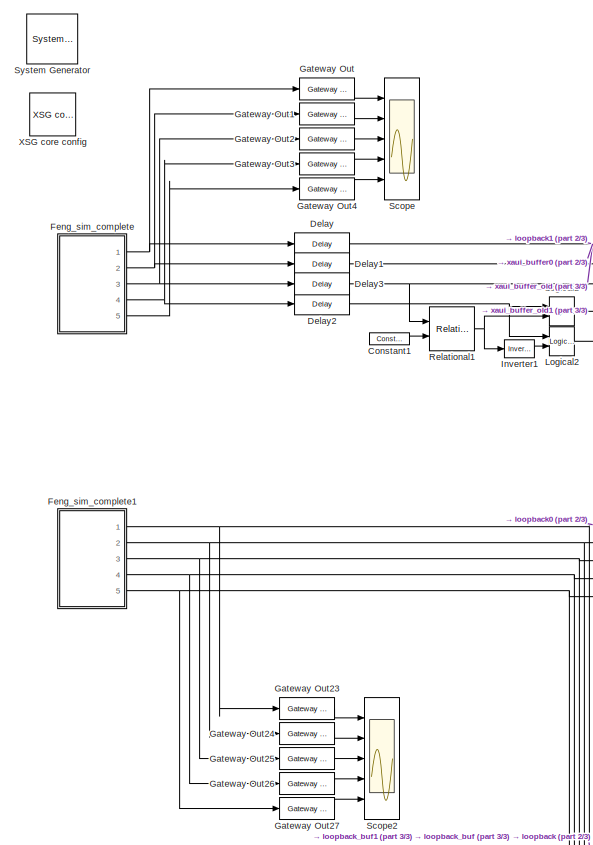
[diagram: root canvas - part 1/3, top left region]
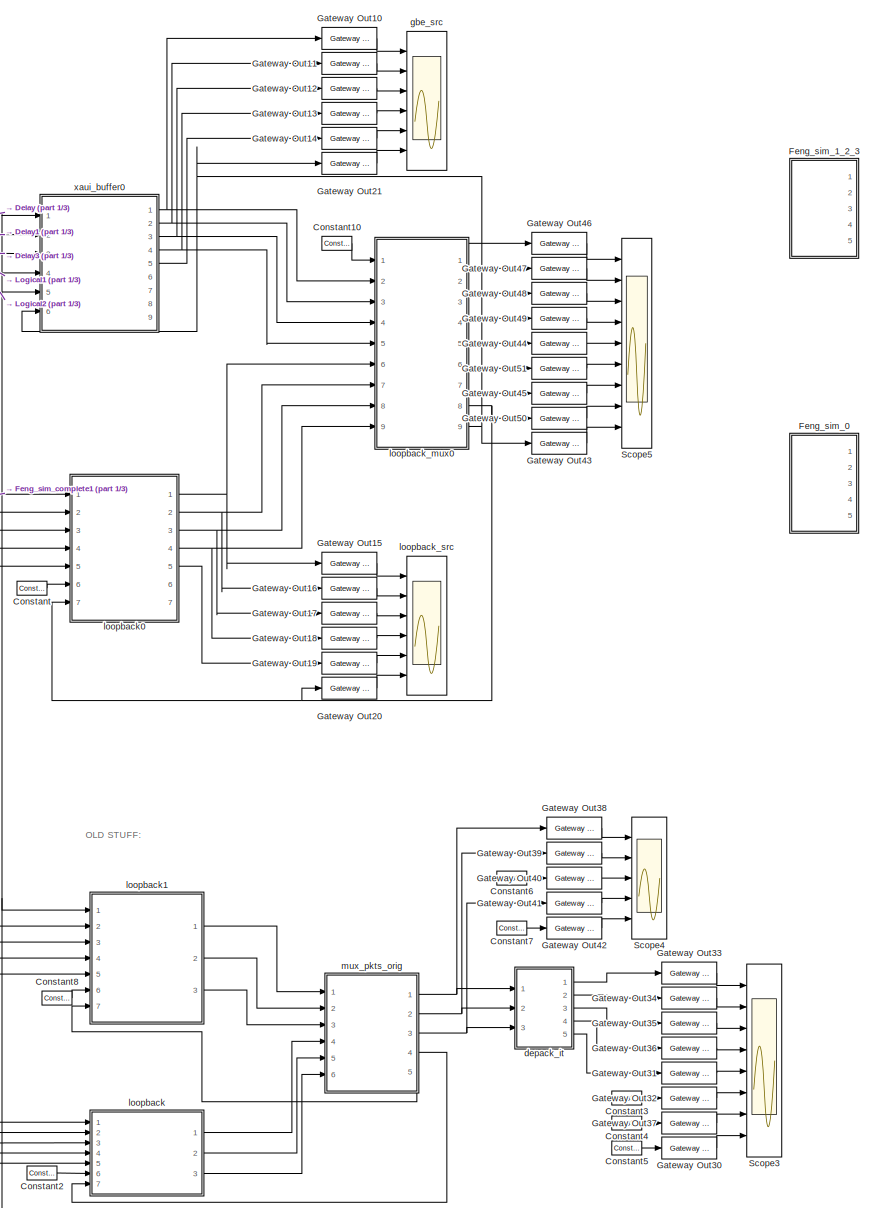
[diagram: root canvas - part 2/3, top right region]
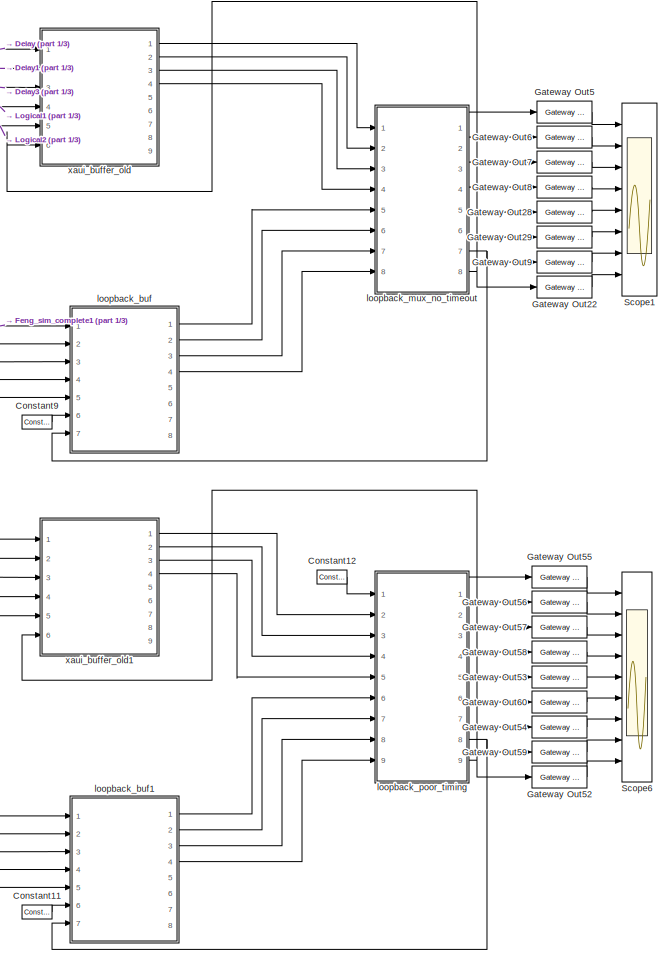
[diagram: root canvas - part 3/3, bottom right region]
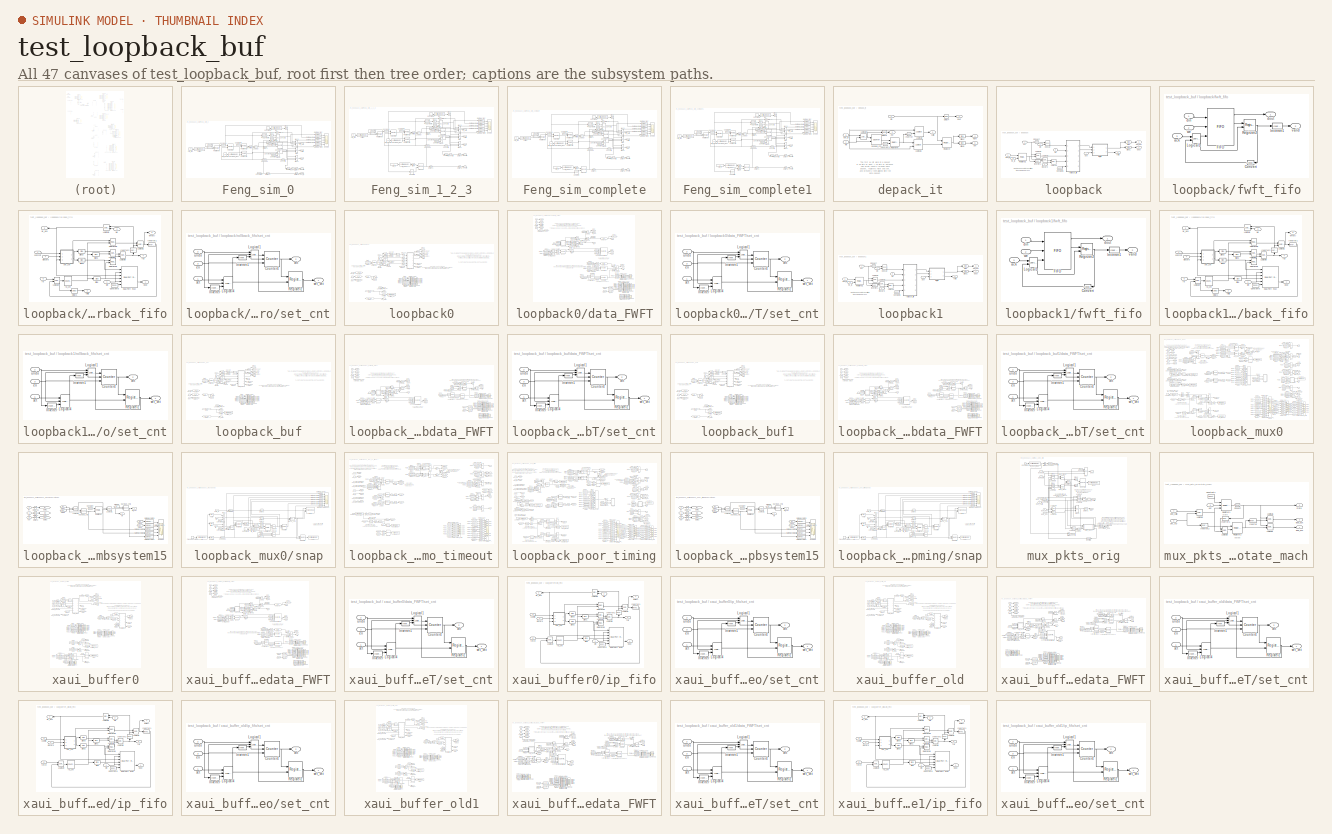
[diagram: thumbnail index - all 47 canvases of the model, root first then tree order]
MODEL test_loopback_buf
KIND model
BLOCK [Reference]  System Generator  REF=xbsIndex_r3/ System Generator
  AttributesFormatString = System\\nGenerator
  Ports = []
  ShowPortLabels = on
  SourceBlock = xbsIndex_r3/ System Generator
  SourceType = Xilinx System Generator
  Tag = genX
  UserData = DataTag0
  UserDataPersistent = on
  core_generation = According to Block Masks
  dbl_ovrd = According to Block Masks
  deprecated_control = off
  directory = ./b_2x_8a_r308d/sysgen
  eval_field = 0
  incr_netlist = off
  package = ff1704
  part = xc2vp70
  run_coregen = off
  simulink_period = 1
  speed = -7
  synthesis_tool = XST
  sysclk_period = 4.878
  testbench = off
  trim_vbits = Everywhere in SubSystem
  xilinxfamily = Virtex2P
BLOCK [Reference] Constant  REF=xbsIndex_r3/Constant
  Ports = [0, 1]
  SourceBlock = xbsIndex_r3/Constant
  SourceType = Xilinx Constant Block
  arith_type = Unsigned
  bin_pt = 0
  carry = CIN
  const = 0
  dbl_ovrd = off
  equ = P=C
  explicit_period = on
  inp1 = P
  inp2 = PCIN>>17
  iostate = 0
  n_bits = 1
  opr = +
  opselect = C
  period = 1
BLOCK [Reference] Constant1  REF=xbsIndex_r3/Constant
  Ports = [0, 1]
  SourceBlock = xbsIndex_r3/Constant
  SourceType = Xilinx Constant Block
  arith_type = Unsigned
  bin_pt = 0
  carry = CIN
  const = 0
  dbl_ovrd = off
  equ = P=C
  explicit_period = on
  inp1 = P
  inp2 = PCIN>>17
  iostate = 0
  n_bits = 1
  opr = +
  opselect = C
  period = 1
BLOCK [Reference] Constant10  REF=xbsIndex_r3/Constant
  Ports = [0, 1]
  SourceBlock = xbsIndex_r3/Constant
  SourceType = Xilinx Constant Block
  arith_type = Unsigned
  bin_pt = 0
  carry = CIN
  const = 0
  dbl_ovrd = off
  equ = P=C
  explicit_period = on
  inp1 = P
  inp2 = PCIN>>17
  iostate = 0
  n_bits = 1
  opr = +
  opselect = C
  period = 1
BLOCK [Reference] Constant11  REF=xbsIndex_r3/Constant
  Ports = [0, 1]
  SourceBlock = xbsIndex_r3/Constant
  SourceType = Xilinx Constant Block
  arith_type = Unsigned
  bin_pt = 0
  carry = CIN
  const = 0
  dbl_ovrd = off
  equ = P=C
  explicit_period = on
  inp1 = P
  inp2 = PCIN>>17
  iostate = 0
  n_bits = 1
  opr = +
  opselect = C
  period = 1
BLOCK [Reference] Constant12  REF=xbsIndex_r3/Constant
  Ports = [0, 1]
  SourceBlock = xbsIndex_r3/Constant
  SourceType = Xilinx Constant Block
  arith_type = Unsigned
  bin_pt = 0
  carry = CIN
  const = 0
  dbl_ovrd = off
  equ = P=C
  explicit_period = on
  inp1 = P
  inp2 = PCIN>>17
  iostate = 0
  n_bits = 1
  opr = +
  opselect = C
  period = 1
BLOCK [Reference] Constant2  REF=xbsIndex_r3/Constant
  Ports = [0, 1]
  SourceBlock = xbsIndex_r3/Constant
  SourceType = Xilinx Constant Block
  arith_type = Unsigned
  bin_pt = 0
  carry = CIN
  const = 0
  dbl_ovrd = off
  equ = P=C
  explicit_period = on
  inp1 = P
  inp2 = PCIN>>17
  iostate = 0
  n_bits = 1
  opr = +
  opselect = C
  period = 1
BLOCK [Reference] Constant3  REF=xbsIndex_r3/Constant
  Ports = [0, 1]
  SourceBlock = xbsIndex_r3/Constant
  SourceType = Xilinx Constant Block
  arith_type = Unsigned
  bin_pt = 0
  carry = CIN
  const = 0
  dbl_ovrd = off
  equ = P=C
  explicit_period = on
  inp1 = P
  inp2 = PCIN>>17
  iostate = 0
  n_bits = 1
  opr = +
  opselect = C
  period = 1
BLOCK [Reference] Constant4  REF=xbsIndex_r3/Constant
  Ports = [0, 1]
  SourceBlock = xbsIndex_r3/Constant
  SourceType = Xilinx Constant Block
  arith_type = Unsigned
  bin_pt = 0
  carry = CIN
  const = 0
  dbl_ovrd = off
  equ = P=C
  explicit_period = on
  inp1 = P
  inp2 = PCIN>>17
  iostate = 0
  n_bits = 1
  opr = +
  opselect = C
  period = 1
BLOCK [Reference] Constant5  REF=xbsIndex_r3/Constant
  Ports = [0, 1]
  SourceBlock = xbsIndex_r3/Constant
  SourceType = Xilinx Constant Block
  arith_type = Unsigned
  bin_pt = 0
  carry = CIN
  const = 0
  dbl_ovrd = off
  equ = P=C
  explicit_period = on
  inp1 = P
  inp2 = PCIN>>17
  iostate = 0
  n_bits = 1
  opr = +
  opselect = C
  period = 1
BLOCK [Reference] Constant6  REF=xbsIndex_r3/Constant
  Ports = [0, 1]
  SourceBlock = xbsIndex_r3/Constant
  SourceType = Xilinx Constant Block
  arith_type = Unsigned
  bin_pt = 0
  carry = CIN
  const = 0
  dbl_ovrd = off
  equ = P=C
  explicit_period = on
  inp1 = P
  inp2 = PCIN>>17
  iostate = 0
  n_bits = 1
  opr = +
  opselect = C
  period = 1
BLOCK [Reference] Constant7  REF=xbsIndex_r3/Constant
  Ports = [0, 1]
  SourceBlock = xbsIndex_r3/Constant
  SourceType = Xilinx Constant Block
  arith_type = Unsigned
  bin_pt = 0
  carry = CIN
  const = 0
  dbl_ovrd = off
  equ = P=C
  explicit_period = on
  inp1 = P
  inp2 = PCIN>>17
  iostate = 0
  n_bits = 1
  opr = +
  opselect = C
  period = 1
BLOCK [Reference] Constant8  REF=xbsIndex_r3/Constant
  Ports = [0, 1]
  SourceBlock = xbsIndex_r3/Constant
  SourceType = Xilinx Constant Block
  arith_type = Unsigned
  bin_pt = 0
  carry = CIN
  const = 0
  dbl_ovrd = off
  equ = P=C
  explicit_period = on
  inp1 = P
  inp2 = PCIN>>17
  iostate = 0
  n_bits = 1
  opr = +
  opselect = C
  period = 1
BLOCK [Reference] Constant9  REF=xbsIndex_r3/Constant
  Ports = [0, 1]
  SourceBlock = xbsIndex_r3/Constant
  SourceType = Xilinx Constant Block
  arith_type = Unsigned
  bin_pt = 0
  carry = CIN
  const = 0
  dbl_ovrd = off
  equ = P=C
  explicit_period = on
  inp1 = P
  inp2 = PCIN>>17
  iostate = 0
  n_bits = 1
  opr = +
  opselect = C
  period = 1
BLOCK [Reference] Delay  REF=xbsIndex_r3/Delay
  Ports = [1, 1]
  SourceBlock = xbsIndex_r3/Delay
  SourceType = Xilinx Delay Block
  accept_only_valid = off
  dbl_ovrd = off
  en = off
  explicit_period = off
  init_zero = on
  latency = 220
  period = 1
  reg_retiming = off
  show_param = off
  xl_area = [0, 0, 0, 0, 0, 0, 0]
  xl_use_area = off
BLOCK [Reference] Delay1  REF=xbsIndex_r3/Delay
  Ports = [1, 1]
  SourceBlock = xbsIndex_r3/Delay
  SourceType = Xilinx Delay Block
  accept_only_valid = off
  dbl_ovrd = off
  en = off
  explicit_period = off
  init_zero = on
  latency = 220
  period = 1
  reg_retiming = off
  show_param = off
  xl_area = [0, 0, 0, 0, 0, 0, 0]
  xl_use_area = off
BLOCK [Reference] Delay2  REF=xbsIndex_r3/Delay
  Ports = [1, 1]
  SourceBlock = xbsIndex_r3/Delay
  SourceType = Xilinx Delay Block
  accept_only_valid = off
  dbl_ovrd = off
  en = off
  explicit_period = off
  init_zero = on
  latency = 220
  period = 1
  reg_retiming = off
  show_param = off
  xl_area = [0, 0, 0, 0, 0, 0, 0]
  xl_use_area = off
BLOCK [Reference] Delay3  REF=xbsIndex_r3/Delay
  Ports = [1, 1]
  SourceBlock = xbsIndex_r3/Delay
  SourceType = Xilinx Delay Block
  accept_only_valid = off
  dbl_ovrd = off
  en = off
  explicit_period = off
  init_zero = on
  latency = 220
  period = 1
  reg_retiming = off
  show_param = off
  xl_area = [0, 0, 0, 0, 0, 0, 0]
  xl_use_area = off
BLOCK [SubSystem] Feng_sim_0
  MaskIconFrame = on
  MaskIconOpaque = on
  MaskIconRotate = none
  MaskIconUnits = autoscale
  MinAlgLoopOccurrences = off
  Ports = [0, 5]
  RTWSystemCode = Auto
  TreatAsAtomicUnit = off
BLOCK [Reference] Feng_sim_0/Concat1  REF=xbsIndex_r3/Concat
  Ports = [3, 1]
  SourceBlock = xbsIndex_r3/Concat
  SourceType = Xilinx Bus Concatenator
  dbl_ovrd = off
  explicit_period = off
  num_inputs = 3
  period = 1
BLOCK [Reference] Feng_sim_0/Constant  REF=xbsIndex_r3/Constant
  Ports = [0, 1]
  SourceBlock = xbsIndex_r3/Constant
  SourceType = Xilinx Constant Block
  arith_type = Boolean
  bin_pt = 0
  carry = CIN
  const = 0
  dbl_ovrd = off
  equ = P=C
  explicit_period = on
  inp1 = P
  inp2 = PCIN>>17
  iostate = 0
  n_bits = 1
  opr = +
  opselect = C
  period = 1
BLOCK [Reference] Feng_sim_0/Constant1  REF=xbsIndex_r3/Constant
  Ports = [0, 1]
  SourceBlock = xbsIndex_r3/Constant
  SourceType = Xilinx Constant Block
  arith_type = Boolean
  bin_pt = 0
  carry = CIN
  const = 1
  dbl_ovrd = off
  equ = P=C
  explicit_period = off
  inp1 = P
  inp2 = PCIN>>17
  iostate = 0
  n_bits = 1
  opr = +
  opselect = C
  period = 1
BLOCK [Constant] Feng_sim_0/Constant2
BLOCK [Reference] Feng_sim_0/Constant3  REF=xbsIndex_r3/Constant
  Ports = [0, 1]
  SourceBlock = xbsIndex_r3/Constant
  SourceType = Xilinx Constant Block
  arith_type = Boolean
  bin_pt = 0
  carry = CIN
  const = 0
  dbl_ovrd = off
  equ = P=C
  explicit_period = off
  inp1 = P
  inp2 = PCIN>>17
  iostate = 0
  n_bits = 1
  opr = +
  opselect = C
  period = 1
BLOCK [Reference] Feng_sim_0/Constant4  REF=xbsIndex_r3/Constant
  Ports = [0, 1]
  SourceBlock = xbsIndex_r3/Constant
  SourceType = Xilinx Constant Block
  arith_type = Unsigned
  bin_pt = 0
  carry = CIN
  const = 0
  dbl_ovrd = off
  equ = P=C
  explicit_period = on
  inp1 = P
  inp2 = PCIN>>17
  iostate = 0
  n_bits = 32
  opr = +
  opselect = C
  period = 1
BLOCK [Reference] Feng_sim_0/Constant5  REF=xbsIndex_r3/Constant
  Ports = [0, 1]
  SourceBlock = xbsIndex_r3/Constant
  SourceType = Xilinx Constant Block
  arith_type = Unsigned
  bin_pt = 0
  carry = CIN
  const = 0
  dbl_ovrd = off
  equ = P=C
  explicit_period = on
  inp1 = P
  inp2 = PCIN>>17
  iostate = 0
  n_bits = 16-2
  opr = +
  opselect = C
  period = 1
BLOCK [Reference] Feng_sim_0/Constant6  REF=xbsIndex_r3/Constant
  Ports = [0, 1]
  SourceBlock = xbsIndex_r3/Constant
  SourceType = Xilinx Constant Block
  arith_type = Unsigned
  bin_pt = 0
  carry = CIN
  const = 0
  dbl_ovrd = off
  equ = P=C
  explicit_period = on
  inp1 = P
  inp2 = PCIN>>17
  iostate = 0
  n_bits = 32
  opr = +
  opselect = C
  period = 1
BLOCK [Reference] Feng_sim_0/Convert1  REF=xbsIndex_r3/Convert
  Ports = [1, 1]
  SourceBlock = xbsIndex_r3/Convert
  SourceType = Xilinx Converter Block
  arith_type = Boolean
  bin_pt = 6
  dbl_ovrd = off
  explicit_period = on
  inserted_by_tool = off
  latency = 0
  n_bits = 8
  overflow = Wrap
  period = 1
  pipeline = off
  quantization = Truncate
  show_param = off
  xl_area = [0, 0, 0, 0, 0, 0, 0]
  xl_use_area = off
BLOCK [Reference] Feng_sim_0/Convert2  REF=xbsIndex_r3/Convert
  Ports = [1, 1]
  SourceBlock = xbsIndex_r3/Convert
  SourceType = Xilinx Converter Block
  arith_type = Boolean
  bin_pt = 6
  dbl_ovrd = off
  explicit_period = on
  inserted_by_tool = off
  latency = 0
  n_bits = 8
  overflow = Wrap
  period = 1
  pipeline = off
  quantization = Truncate
  show_param = off
  xl_area = [0, 0, 0, 0, 0, 0, 0]
  xl_use_area = off
BLOCK [Reference] Feng_sim_0/Convert3  REF=xbsIndex_r3/Convert
  Ports = [1, 1]
  SourceBlock = xbsIndex_r3/Convert
  SourceType = Xilinx Converter Block
  arith_type = Boolean
  bin_pt = 6
  dbl_ovrd = off
  explicit_period = on
  inserted_by_tool = off
  latency = 0
  n_bits = 8
  overflow = Wrap
  period = 1
  pipeline = off
  quantization = Truncate
  show_param = off
  xl_area = [0, 0, 0, 0, 0, 0, 0]
  xl_use_area = off
BLOCK [Reference] Feng_sim_0/Counter1  REF=xbsIndex_r3/Counter
  Ports = [2, 1]
  SourceBlock = xbsIndex_r3/Counter
  SourceType = Xilinx Counter Block
  arith_type = Unsigned
  bin_pt = 0
  cnt_by_val = 1
  cnt_to = Inf
  cnt_type = Free Running
  dbl_ovrd = off
  en = on
  explicit_period = off
  gen_core = off
  load_pin = off
  n_bits = 64
  operation = Up
  period = 1
  rst = on
  show_param = off
  start_count = 0
  use_rpm = off
  xl_area = [0, 0, 0, 0, 0, 0, 0]
  xl_use_area = off
BLOCK [Reference] Feng_sim_0/Counter2  REF=xbsIndex_r3/Counter
  Ports = [1, 1]
  SourceBlock = xbsIndex_r3/Counter
  SourceType = Xilinx Counter Block
  arith_type = Unsigned
  bin_pt = 0
  cnt_by_val = 1
  cnt_to = Inf
  cnt_type = Free Running
  dbl_ovrd = off
  en = off
  explicit_period = on
  gen_core = off
  load_pin = off
  n_bits = 32
  operation = Up
  period = 1
  rst = on
  show_param = off
  start_count = 1
  use_rpm = on
  xl_area = [0, 0, 0, 0, 0, 0, 0]
  xl_use_area = off
BLOCK [Reference] Feng_sim_0/Counter3  REF=xbsIndex_r3/Counter
  Ports = [2, 1]
  SourceBlock = xbsIndex_r3/Counter
  SourceType = Xilinx Counter Block
  arith_type = Unsigned
  bin_pt = 0
  cnt_by_val = 1
  cnt_to = 1023
  cnt_type = Free Running
  dbl_ovrd = off
  en = on
  explicit_period = on
  gen_core = off
  load_pin = off
  n_bits = 32
  operation = Up
  period = 1
  rst = on
  show_param = off
  start_count = 0
  use_rpm = on
  xl_area = [0, 0, 0, 0, 0, 0, 0]
  xl_use_area = off
BLOCK [Reference] Feng_sim_0/Delay1  REF=xbsIndex_r3/Delay
  Ports = [1, 1]
  SourceBlock = xbsIndex_r3/Delay
  SourceType = Xilinx Delay Block
  accept_only_valid = off
  dbl_ovrd = off
  en = off
  explicit_period = off
  init_zero = on
  latency = 1
  period = 1
  reg_retiming = on
  show_param = off
  xl_area = [0, 0, 0, 0, 0, 0, 0]
  xl_use_area = off
BLOCK [Reference] Feng_sim_0/Delay2  REF=xbsIndex_r3/Delay
  Ports = [1, 1]
  SourceBlock = xbsIndex_r3/Delay
  SourceType = Xilinx Delay Block
  accept_only_valid = off
  dbl_ovrd = off
  en = off
  explicit_period = off
  init_zero = on
  latency = 1
  period = 1
  reg_retiming = on
  show_param = off
  xl_area = [0, 0, 0, 0, 0, 0, 0]
  xl_use_area = off
BLOCK [Reference] Feng_sim_0/Delay4  REF=xbsIndex_r3/Delay
  Ports = [1, 1]
  SourceBlock = xbsIndex_r3/Delay
  SourceType = Xilinx Delay Block
  accept_only_valid = off
  dbl_ovrd = off
  en = off
  explicit_period = off
  init_zero = on
  latency = 1
  period = 1
  reg_retiming = on
  show_param = off
  xl_area = [0, 0, 0, 0, 0, 0, 0]
  xl_use_area = off
BLOCK [Reference] Feng_sim_0/Delay5  REF=xbsIndex_r3/Delay
  Ports = [1, 1]
  SourceBlock = xbsIndex_r3/Delay
  SourceType = Xilinx Delay Block
  accept_only_valid = off
  dbl_ovrd = off
  en = off
  explicit_period = off
  init_zero = on
  latency = 1
  period = 1
  reg_retiming = on
  show_param = off
  xl_area = [0, 0, 0, 0, 0, 0, 0]
  xl_use_area = off
BLOCK [Reference] Feng_sim_0/Delay8  REF=xbsIndex_r3/Delay
  Ports = [1, 1]
  SourceBlock = xbsIndex_r3/Delay
  SourceType = Xilinx Delay Block
  accept_only_valid = off
  dbl_ovrd = off
  en = off
  explicit_period = off
  init_zero = on
  latency = 1
  period = 1
  reg_retiming = on
  show_param = off
  xl_area = [0, 0, 0, 0, 0, 0, 0]
  xl_use_area = off
BLOCK [Reference] Feng_sim_0/Gateway Out  REF=xbsIndex_r3/Gateway Out
  LOCs = {}
  Ports = [1, 1]
  SourceBlock = xbsIndex_r3/Gateway Out
  SourceType = Xilinx Gateway Out
  arith_type = Boolean
  bin_pt = 6
  hdl_port = on
  locs_specified = off
  nbits = 8
  needs_fixed_name = off
  output_type = Double
  overflow = Wrap
  quantization = Truncate
  show_param = off
  timing_constraint = None
  xl_area = [0, 0, 0, 0, 0, 0, 0]
  xl_use_area = off
BLOCK [Reference] Feng_sim_0/Gateway Out1  REF=xbsIndex_r3/Gateway Out
  LOCs = {}
  Ports = [1, 1]
  SourceBlock = xbsIndex_r3/Gateway Out
  SourceType = Xilinx Gateway Out
  arith_type = Boolean
  bin_pt = 6
  hdl_port = on
  locs_specified = off
  nbits = 8
  needs_fixed_name = off
  output_type = Double
  overflow = Wrap
  quantization = Truncate
  show_param = off
  timing_constraint = None
  xl_area = [0, 0, 0, 0, 0, 0, 0]
  xl_use_area = off
BLOCK [Reference] Feng_sim_0/Gateway Out2  REF=xbsIndex_r3/Gateway Out
  LOCs = {}
  Ports = [1, 1]
  SourceBlock = xbsIndex_r3/Gateway Out
  SourceType = Xilinx Gateway Out
  arith_type = Boolean
  bin_pt = 6
  hdl_port = on
  locs_specified = off
  nbits = 8
  needs_fixed_name = off
  output_type = Double
  overflow = Wrap
  quantization = Truncate
  show_param = off
  timing_constraint = None
  xl_area = [0, 0, 0, 0, 0, 0, 0]
  xl_use_area = off
BLOCK [Reference] Feng_sim_0/Gateway Out3  REF=xbsIndex_r3/Gateway Out
  LOCs = {}
  Ports = [1, 1]
  SourceBlock = xbsIndex_r3/Gateway Out
  SourceType = Xilinx Gateway Out
  arith_type = Boolean
  bin_pt = 6
  hdl_port = on
  locs_specified = off
  nbits = 8
  needs_fixed_name = off
  output_type = Double
  overflow = Wrap
  quantization = Truncate
  show_param = off
  timing_constraint = None
  xl_area = [0, 0, 0, 0, 0, 0, 0]
  xl_use_area = off
BLOCK [Reference] Feng_sim_0/Gateway Out4  REF=xbsIndex_r3/Gateway Out
  LOCs = {}
  Ports = [1, 1]
  SourceBlock = xbsIndex_r3/Gateway Out
  SourceType = Xilinx Gateway Out
  arith_type = Boolean
  bin_pt = 6
  hdl_port = on
  locs_specified = off
  nbits = 8
  needs_fixed_name = off
  output_type = Double
  overflow = Wrap
  quantization = Truncate
  show_param = off
  timing_constraint = None
  xl_area = [0, 0, 0, 0, 0, 0, 0]
  xl_use_area = off
BLOCK [Reference] Feng_sim_0/Inverter  REF=xbsIndex_r3/Inverter
  Ports = [1, 1]
  SourceBlock = xbsIndex_r3/Inverter
  SourceType = Xilinx Inverter
  dbl_ovrd = off
  en = off
  explicit_period = off
  latency = 0
  period = 1
  show_param = off
  xl_area = [0, 0, 0, 0, 0, 0, 0]
  xl_use_area = off
BLOCK [Reference] Feng_sim_0/Inverter1  REF=xbsIndex_r3/Inverter
  Ports = [1, 1]
  SourceBlock = xbsIndex_r3/Inverter
  SourceType = Xilinx Inverter
  dbl_ovrd = off
  en = off
  explicit_period = off
  latency = 0
  period = 1
  show_param = off
  xl_area = [0, 0, 0, 0, 0, 0, 0]
  xl_use_area = off
BLOCK [Reference] Feng_sim_0/Inverter2  REF=xbsIndex_r3/Inverter
  Ports = [1, 1]
  SourceBlock = xbsIndex_r3/Inverter
  SourceType = Xilinx Inverter
  dbl_ovrd = off
  en = off
  explicit_period = off
  latency = 0
  period = 1
  show_param = off
  xl_area = [0, 0, 0, 0, 0, 0, 0]
  xl_use_area = off
BLOCK [Reference] Feng_sim_0/Logical  REF=xbsIndex_r3/Logical
  Ports = [2, 1]
  SourceBlock = xbsIndex_r3/Logical
  SourceType = Xilinx Logical Block
  align_bp = on
  arith_type = Unsigned
  bin_pt = 2
  dbl_ovrd = off
  en = off
  explicit_period = off
  inputs = 2
  latency = 0
  logical_function = AND
  n_bits = 8
  period = 1
  precision = Full
  show_param = off
  xl_area = [0, 0, 0, 0, 0, 0, 0]
  xl_use_area = off
BLOCK [Reference] Feng_sim_0/Mux  REF=xbsIndex_r3/Mux
  Ports = [3, 1]
  SourceBlock = xbsIndex_r3/Mux
  SourceType = Xilinx Multiplexer Block
  arith_type = Signed  (2's comp)
  bin_pt = 2
  dbl_ovrd = off
  en = off
  explicit_period = off
  gen_core = off
  inputs = 2
  latency = 1
  mux_type = off
  n_bits = 8
  overflow = Wrap
  period = 1
  precision = Full
  quantization = Truncate
  show_param = off
  use_rpm = off
  xl_area = [0, 0, 0, 0, 0, 0, 0]
  xl_use_area = off
BLOCK [Reference] Feng_sim_0/Mux1  REF=xbsIndex_r3/Mux
  Ports = [3, 1]
  SourceBlock = xbsIndex_r3/Mux
  SourceType = Xilinx Multiplexer Block
  arith_type = Signed  (2's comp)
  bin_pt = 2
  dbl_ovrd = off
  en = off
  explicit_period = off
  gen_core = off
  inputs = 2
  latency = 1
  mux_type = off
  n_bits = 8
  overflow = Wrap
  period = 1
  precision = Full
  quantization = Truncate
  show_param = off
  use_rpm = off
  xl_area = [0, 0, 0, 0, 0, 0, 0]
  xl_use_area = off
BLOCK [Reference] Feng_sim_0/Mux2  REF=xbsIndex_r3/Mux
  Ports = [3, 1]
  SourceBlock = xbsIndex_r3/Mux
  SourceType = Xilinx Multiplexer Block
  arith_type = Signed  (2's comp)
  bin_pt = 2
  dbl_ovrd = off
  en = off
  explicit_period = off
  gen_core = off
  inputs = 2
  latency = 1
  mux_type = off
  n_bits = 8
  overflow = Wrap
  period = 1
  precision = Full
  quantization = Truncate
  show_param = off
  use_rpm = off
  xl_area = [0, 0, 0, 0, 0, 0, 0]
  xl_use_area = off
BLOCK [Reference] Feng_sim_0/Mux3  REF=xbsIndex_r3/Mux
  Ports = [3, 1]
  SourceBlock = xbsIndex_r3/Mux
  SourceType = Xilinx Multiplexer Block
  arith_type = Signed  (2's comp)
  bin_pt = 2
  dbl_ovrd = off
  en = off
  explicit_period = off
  gen_core = off
  inputs = 2
  latency = 1
  mux_type = off
  n_bits = 8
  overflow = Wrap
  period = 1
  precision = Full
  quantization = Truncate
  show_param = off
  use_rpm = off
  xl_area = [0, 0, 0, 0, 0, 0, 0]
  xl_use_area = off
BLOCK [Reference] Feng_sim_0/Relational  REF=xbsIndex_r3/Relational
  Ports = [2, 1]
  SourceBlock = xbsIndex_r3/Relational
  SourceType = Xilinx Relational Block
  dbl_ovrd = off
  en = off
  explicit_period = on
  latency = 0
  mode = a>=b
  period = 1
  show_param = off
  xl_area = [0, 0, 0, 0, 0, 0, 0]
  xl_use_area = off
BLOCK [Reference] Feng_sim_0/Relational1  REF=xbsIndex_r3/Relational
  Ports = [2, 1]
  SourceBlock = xbsIndex_r3/Relational
  SourceType = Xilinx Relational Block
  dbl_ovrd = off
  en = off
  explicit_period = off
  latency = 0
  mode = a=b
  period = 1
  show_param = off
  xl_area = [0, 0, 0, 0, 0, 0, 0]
  xl_use_area = off
BLOCK [Reference] Feng_sim_0/Relational5  REF=xbsIndex_r3/Relational
  Ports = [2, 1]
  SourceBlock = xbsIndex_r3/Relational
  SourceType = Xilinx Relational Block
  dbl_ovrd = off
  en = off
  explicit_period = off
  latency = 0
  mode = a<=b
  period = 1
  show_param = off
  xl_area = [0, 0, 0, 0, 0, 0, 0]
  xl_use_area = off
BLOCK [Scope] Feng_sim_0/Scope
  DataFormat = StructureWithTime
  LimitDataPoints = off
  NumInputPorts = 5
  Ports = [5]
  SaveName = ScopeData11
  TimeRange = 4000
  YMax = 200000~1~1~1~1
  YMin = 130000~0~0~0~0
  ZoomMode = xonly
BLOCK [Reference] Feng_sim_0/Slice1  REF=xbsIndex_r3/Slice
  Ports = [1, 1]
  SourceBlock = xbsIndex_r3/Slice
  SourceType = Xilinx Slice Block
  base0 = LSB of Input
  base1 = MSB of Input
  bit0 = 0
  bit1 = 1
  boolean_output = off
  dbl_ovrd = off
  explicit_period = off
  mode = Lower Bit Location + Width
  nbits = 1
  period = 1
BLOCK [Reference] Feng_sim_0/Slice2  REF=xbsIndex_r3/Slice
  Ports = [1, 1]
  SourceBlock = xbsIndex_r3/Slice
  SourceType = Xilinx Slice Block
  base0 = LSB of Input
  base1 = MSB of Input
  bit0 = 0
  bit1 = 1
  boolean_output = off
  dbl_ovrd = off
  explicit_period = off
  mode = Lower Bit Location + Width
  nbits = 2
  period = 1
BLOCK [Reference] Feng_sim_0/Slice3  REF=xbsIndex_r3/Slice
  Ports = [1, 1]
  SourceBlock = xbsIndex_r3/Slice
  SourceType = Xilinx Slice Block
  base0 = LSB of Input
  base1 = MSB of Input
  bit0 = 2
  bit1 = 1
  boolean_output = off
  dbl_ovrd = off
  explicit_period = off
  mode = Lower Bit Location + Width
  nbits = 48
  period = 1
BLOCK [Outport] Feng_sim_0/d_out
  BusOutputAsStruct = off
  IconDisplay = Port number
BLOCK [Outport] Feng_sim_0/dest_ip
  BusOutputAsStruct = off
  IconDisplay = Port number
  Port = 3
BLOCK [Outport] Feng_sim_0/discard
  BusOutputAsStruct = off
  IconDisplay = Port number
  Port = 5
BLOCK [Outport] Feng_sim_0/eof
  BusOutputAsStruct = off
  IconDisplay = Port number
  Port = 4
BLOCK [Reference] Feng_sim_0/mcnt_cnt  REF=xbsIndex_r3/Counter
  Ports = [1, 1]
  SourceBlock = xbsIndex_r3/Counter
  SourceType = Xilinx Counter Block
  arith_type = Unsigned
  bin_pt = 0
  cnt_by_val = 1
  cnt_to = Inf
  cnt_type = Free Running
  dbl_ovrd = off
  en = on
  explicit_period = off
  gen_core = off
  load_pin = off
  n_bits = 64
  operation = Up
  period = 1
  rst = off
  show_param = off
  start_count = 0
  use_rpm = off
  xl_area = [0, 0, 0, 0, 0, 0, 0]
  xl_use_area = off
BLOCK [Reference] Feng_sim_0/negedge  REF=casper_library/Misc/negedge  (lib defined in mdl_138b2fc3435f, mdl_4ed325b712b3, +2 more)
  Ports = [1, 1]
  ShowPortLabels = on
  SourceBlock = casper_library/Misc/negedge
  SourceType = negedge
  Tag = Rising Edge Detector
BLOCK [Reference] Feng_sim_0/payload_len  REF=xps_library/software register  (lib defined in mdl_00b5cec29cd0, mdl_02ab6ecaa3d1, +5 more)
  Ports = [1, 1]
  ShowPortLabels = on
  SourceBlock = xps_library/software register
  SourceType = Unknown
  Tag = xps:sw_reg
  arith_type = Unsigned
  bin_pt = 0
  bitwidth = 32
  gw_name = test_loopback_buf_Feng_sim_0_payload_len_user_data_out
  io_dir = From Processor
  sample_period = 1
BLOCK [Reference] Feng_sim_0/period  REF=xps_library/software register  (lib defined in mdl_00b5cec29cd0, mdl_02ab6ecaa3d1, +5 more)
  Ports = [1, 1]
  ShowPortLabels = on
  SourceBlock = xps_library/software register
  SourceType = Unknown
  Tag = xps:sw_reg
  arith_type = Unsigned
  bin_pt = 0
  bitwidth = 32
  gw_name = test_loopback_buf_Feng_sim_0_period_user_data_out
  io_dir = From Processor
  sample_period = 1
BLOCK [Reference] Feng_sim_0/posedge  REF=casper_library/Misc/pulse_ext/posedge  (lib defined in mdl_138b2fc3435f, mdl_4ed325b712b3, +2 more)
  Ports = [1, 1]
  ShowPortLabels = on
  SourceBlock = casper_library/Misc/pulse_ext/posedge
  SourceType = SubSystem
  Tag = Rising Edge Detector
BLOCK [Reference] Feng_sim_0/run  REF=xps_library/software register  (lib defined in mdl_00b5cec29cd0, mdl_02ab6ecaa3d1, +5 more)
  Ports = [1, 1]
  ShowPortLabels = on
  SourceBlock = xps_library/software register
  SourceType = Unknown
  Tag = xps:sw_reg
  arith_type = Unsigned
  bin_pt = 0
  bitwidth = 32
  gw_name = test_loopback_buf_Feng_sim_0_run_user_data_out
  io_dir = From Processor
  sample_period = 1
BLOCK [Constant] Feng_sim_0/sim_freq
  Value = 100
BLOCK [Constant] Feng_sim_0/sim_length
  Value = 50
BLOCK [Outport] Feng_sim_0/valid
  BusOutputAsStruct = off
  IconDisplay = Port number
  Port = 2
BLOCK [SubSystem] Feng_sim_1_2_3
  MaskIconFrame = on
  MaskIconOpaque = on
  MaskIconRotate = none
  MaskIconUnits = autoscale
  MinAlgLoopOccurrences = off
  Ports = [0, 5]
  RTWSystemCode = Auto
  TreatAsAtomicUnit = off
BLOCK [Reference] Feng_sim_1_2_3/AddSub  REF=xbsIndex_r3/AddSub
  Ports = [2, 1]
  SourceBlock = xbsIndex_r3/AddSub
  SourceType = Xilinx Adder/Subtractor
  arith_type = Unsigned
  bin_pt = 2
  dbl_ovrd = off
  en = off
  explicit_period = off
  gen_core = off
  latency = 0
  mode = Addition
  n_bits = 8
  overflow = Wrap
  period = 1
  pipeline = off
  precision = Full
  quantization = Truncate
  show_param = off
  use_carryin = off
  use_carryout = off
  use_core = on
  use_rpm = on
  xl_area = [0, 0, 0, 0, 0, 0, 0]
  xl_use_area = off
BLOCK [Reference] Feng_sim_1_2_3/Concat1  REF=xbsIndex_r3/Concat
  Ports = [3, 1]
  SourceBlock = xbsIndex_r3/Concat
  SourceType = Xilinx Bus Concatenator
  dbl_ovrd = off
  explicit_period = off
  num_inputs = 3
  period = 1
BLOCK [Reference] Feng_sim_1_2_3/Constant  REF=xbsIndex_r3/Constant
  Ports = [0, 1]
  SourceBlock = xbsIndex_r3/Constant
  SourceType = Xilinx Constant Block
  arith_type = Boolean
  bin_pt = 0
  carry = CIN
  const = 0
  dbl_ovrd = off
  equ = P=C
  explicit_period = on
  inp1 = P
  inp2 = PCIN>>17
  iostate = 0
  n_bits = 1
  opr = +
  opselect = C
  period = 1
BLOCK [Reference] Feng_sim_1_2_3/Constant1  REF=xbsIndex_r3/Constant
  Ports = [0, 1]
  SourceBlock = xbsIndex_r3/Constant
  SourceType = Xilinx Constant Block
  arith_type = Boolean
  bin_pt = 0
  carry = CIN
  const = 1
  dbl_ovrd = off
  equ = P=C
  explicit_period = off
  inp1 = P
  inp2 = PCIN>>17
  iostate = 0
  n_bits = 1
  opr = +
  opselect = C
  period = 1
BLOCK [Constant] Feng_sim_1_2_3/Constant2
BLOCK [Reference] Feng_sim_1_2_3/Constant3  REF=xbsIndex_r3/Constant
  Ports = [0, 1]
  SourceBlock = xbsIndex_r3/Constant
  SourceType = Xilinx Constant Block
  arith_type = Boolean
  bin_pt = 0
  carry = CIN
  const = 0
  dbl_ovrd = off
  equ = P=C
  explicit_period = off
  inp1 = P
  inp2 = PCIN>>17
  iostate = 0
  n_bits = 1
  opr = +
  opselect = C
  period = 1
BLOCK [Reference] Feng_sim_1_2_3/Constant4  REF=xbsIndex_r3/Constant
  Ports = [0, 1]
  SourceBlock = xbsIndex_r3/Constant
  SourceType = Xilinx Constant Block
  arith_type = Unsigned
  bin_pt = 0
  carry = CIN
  const = 0
  dbl_ovrd = off
  equ = P=C
  explicit_period = on
  inp1 = P
  inp2 = PCIN>>17
  iostate = 0
  n_bits = 32
  opr = +
  opselect = C
  period = 1
BLOCK [Reference] Feng_sim_1_2_3/Constant5  REF=xbsIndex_r3/Constant
  Ports = [0, 1]
  SourceBlock = xbsIndex_r3/Constant
  SourceType = Xilinx Constant Block
  arith_type = Unsigned
  bin_pt = 0
  carry = CIN
  const = 0
  dbl_ovrd = off
  equ = P=C
  explicit_period = on
  inp1 = P
  inp2 = PCIN>>17
  iostate = 0
  n_bits = 16-2
  opr = +
  opselect = C
  period = 1
BLOCK [Reference] Feng_sim_1_2_3/Convert1  REF=xbsIndex_r3/Convert
  Ports = [1, 1]
  SourceBlock = xbsIndex_r3/Convert
  SourceType = Xilinx Converter Block
  arith_type = Boolean
  bin_pt = 6
  dbl_ovrd = off
  explicit_period = on
  inserted_by_tool = off
  latency = 0
  n_bits = 8
  overflow = Wrap
  period = 1
  pipeline = off
  quantization = Truncate
  show_param = off
  xl_area = [0, 0, 0, 0, 0, 0, 0]
  xl_use_area = off
BLOCK [Reference] Feng_sim_1_2_3/Convert2  REF=xbsIndex_r3/Convert
  Ports = [1, 1]
  SourceBlock = xbsIndex_r3/Convert
  SourceType = Xilinx Converter Block
  arith_type = Boolean
  bin_pt = 6
  dbl_ovrd = off
  explicit_period = on
  inserted_by_tool = off
  latency = 0
  n_bits = 8
  overflow = Wrap
  period = 1
  pipeline = off
  quantization = Truncate
  show_param = off
  xl_area = [0, 0, 0, 0, 0, 0, 0]
  xl_use_area = off
BLOCK [Reference] Feng_sim_1_2_3/Convert3  REF=xbsIndex_r3/Convert
  Ports = [1, 1]
  SourceBlock = xbsIndex_r3/Convert
  SourceType = Xilinx Converter Block
  arith_type = Boolean
  bin_pt = 6
  dbl_ovrd = off
  explicit_period = on
  inserted_by_tool = off
  latency = 0
  n_bits = 8
  overflow = Wrap
  period = 1
  pipeline = off
  quantization = Truncate
  show_param = off
  xl_area = [0, 0, 0, 0, 0, 0, 0]
  xl_use_area = off
BLOCK [Reference] Feng_sim_1_2_3/Counter1  REF=xbsIndex_r3/Counter
  Ports = [2, 1]
  SourceBlock = xbsIndex_r3/Counter
  SourceType = Xilinx Counter Block
  arith_type = Unsigned
  bin_pt = 0
  cnt_by_val = 1
  cnt_to = Inf
  cnt_type = Free Running
  dbl_ovrd = off
  en = on
  explicit_period = off
  gen_core = off
  load_pin = off
  n_bits = 64
  operation = Up
  period = 1
  rst = on
  show_param = off
  start_count = 0
  use_rpm = off
  xl_area = [0, 0, 0, 0, 0, 0, 0]
  xl_use_area = off
BLOCK [Reference] Feng_sim_1_2_3/Counter2  REF=xbsIndex_r3/Counter
  Ports = [1, 1]
  SourceBlock = xbsIndex_r3/Counter
  SourceType = Xilinx Counter Block
  arith_type = Unsigned
  bin_pt = 0
  cnt_by_val = 1
  cnt_to = Inf
  cnt_type = Free Running
  dbl_ovrd = off
  en = off
  explicit_period = on
  gen_core = off
  load_pin = off
  n_bits = 32
  operation = Up
  period = 1
  rst = on
  show_param = off
  start_count = 1
  use_rpm = on
  xl_area = [0, 0, 0, 0, 0, 0, 0]
  xl_use_area = off
BLOCK [Reference] Feng_sim_1_2_3/Counter3  REF=xbsIndex_r3/Counter
  Ports = [2, 1]
  SourceBlock = xbsIndex_r3/Counter
  SourceType = Xilinx Counter Block
  arith_type = Unsigned
  bin_pt = 0
  cnt_by_val = 1
  cnt_to = 1023
  cnt_type = Free Running
  dbl_ovrd = off
  en = on
  explicit_period = on
  gen_core = off
  load_pin = off
  n_bits = 32
  operation = Up
  period = 1
  rst = on
  show_param = off
  start_count = 0
  use_rpm = on
  xl_area = [0, 0, 0, 0, 0, 0, 0]
  xl_use_area = off
BLOCK [Reference] Feng_sim_1_2_3/Counter4  REF=xbsIndex_r3/Counter
  Ports = [1, 1]
  SourceBlock = xbsIndex_r3/Counter
  SourceType = Xilinx Counter Block
  arith_type = Unsigned
  bin_pt = 0
  cnt_by_val = 1
  cnt_to = 2
  cnt_type = Count Limited
  dbl_ovrd = off
  en = on
  explicit_period = on
  gen_core = off
  load_pin = off
  n_bits = 2
  operation = Up
  period = 1
  rst = off
  show_param = off
  start_count = 0
  use_rpm = on
  xl_area = [0, 0, 0, 0, 0, 0, 0]
  xl_use_area = off
BLOCK [Reference] Feng_sim_1_2_3/Delay1  REF=xbsIndex_r3/Delay
  Ports = [1, 1]
  SourceBlock = xbsIndex_r3/Delay
  SourceType = Xilinx Delay Block
  accept_only_valid = off
  dbl_ovrd = off
  en = off
  explicit_period = off
  init_zero = on
  latency = 1
  period = 1
  reg_retiming = on
  show_param = off
  xl_area = [0, 0, 0, 0, 0, 0, 0]
  xl_use_area = off
BLOCK [Reference] Feng_sim_1_2_3/Delay2  REF=xbsIndex_r3/Delay
  Ports = [1, 1]
  SourceBlock = xbsIndex_r3/Delay
  SourceType = Xilinx Delay Block
  accept_only_valid = off
  dbl_ovrd = off
  en = off
  explicit_period = off
  init_zero = on
  latency = 1
  period = 1
  reg_retiming = on
  show_param = off
  xl_area = [0, 0, 0, 0, 0, 0, 0]
  xl_use_area = off
BLOCK [Reference] Feng_sim_1_2_3/Delay4  REF=xbsIndex_r3/Delay
  Ports = [1, 1]
  SourceBlock = xbsIndex_r3/Delay
  SourceType = Xilinx Delay Block
  accept_only_valid = off
  dbl_ovrd = off
  en = off
  explicit_period = off
  init_zero = on
  latency = 1
  period = 1
  reg_retiming = on
  show_param = off
  xl_area = [0, 0, 0, 0, 0, 0, 0]
  xl_use_area = off
BLOCK [Reference] Feng_sim_1_2_3/Delay5  REF=xbsIndex_r3/Delay
  Ports = [1, 1]
  SourceBlock = xbsIndex_r3/Delay
  SourceType = Xilinx Delay Block
  accept_only_valid = off
  dbl_ovrd = off
  en = off
  explicit_period = off
  init_zero = on
  latency = 1
  period = 1
  reg_retiming = on
  show_param = off
  xl_area = [0, 0, 0, 0, 0, 0, 0]
  xl_use_area = off
BLOCK [Reference] Feng_sim_1_2_3/Delay8  REF=xbsIndex_r3/Delay
  Ports = [1, 1]
  SourceBlock = xbsIndex_r3/Delay
  SourceType = Xilinx Delay Block
  accept_only_valid = off
  dbl_ovrd = off
  en = off
  explicit_period = off
  init_zero = on
  latency = 1
  period = 1
  reg_retiming = on
  show_param = off
  xl_area = [0, 0, 0, 0, 0, 0, 0]
  xl_use_area = off
BLOCK [Reference] Feng_sim_1_2_3/Gateway Out  REF=xbsIndex_r3/Gateway Out
  LOCs = {}
  Ports = [1, 1]
  SourceBlock = xbsIndex_r3/Gateway Out
  SourceType = Xilinx Gateway Out
  arith_type = Boolean
  bin_pt = 6
  hdl_port = on
  locs_specified = off
  nbits = 8
  needs_fixed_name = off
  output_type = Double
  overflow = Wrap
  quantization = Truncate
  show_param = off
  timing_constraint = None
  xl_area = [0, 0, 0, 0, 0, 0, 0]
  xl_use_area = off
BLOCK [Reference] Feng_sim_1_2_3/Gateway Out1  REF=xbsIndex_r3/Gateway Out
  LOCs = {}
  Ports = [1, 1]
  SourceBlock = xbsIndex_r3/Gateway Out
  SourceType = Xilinx Gateway Out
  arith_type = Boolean
  bin_pt = 6
  hdl_port = on
  locs_specified = off
  nbits = 8
  needs_fixed_name = off
  output_type = Double
  overflow = Wrap
  quantization = Truncate
  show_param = off
  timing_constraint = None
  xl_area = [0, 0, 0, 0, 0, 0, 0]
  xl_use_area = off
BLOCK [Reference] Feng_sim_1_2_3/Gateway Out2  REF=xbsIndex_r3/Gateway Out
  LOCs = {}
  Ports = [1, 1]
  SourceBlock = xbsIndex_r3/Gateway Out
  SourceType = Xilinx Gateway Out
  arith_type = Boolean
  bin_pt = 6
  hdl_port = on
  locs_specified = off
  nbits = 8
  needs_fixed_name = off
  output_type = Double
  overflow = Wrap
  quantization = Truncate
  show_param = off
  timing_constraint = None
  xl_area = [0, 0, 0, 0, 0, 0, 0]
  xl_use_area = off
BLOCK [Reference] Feng_sim_1_2_3/Gateway Out3  REF=xbsIndex_r3/Gateway Out
  LOCs = {}
  Ports = [1, 1]
  SourceBlock = xbsIndex_r3/Gateway Out
  SourceType = Xilinx Gateway Out
  arith_type = Boolean
  bin_pt = 6
  hdl_port = on
  locs_specified = off
  nbits = 8
  needs_fixed_name = off
  output_type = Double
  overflow = Wrap
  quantization = Truncate
  show_param = off
  timing_constraint = None
  xl_area = [0, 0, 0, 0, 0, 0, 0]
  xl_use_area = off
BLOCK [Reference] Feng_sim_1_2_3/Gateway Out4  REF=xbsIndex_r3/Gateway Out
  LOCs = {}
  Ports = [1, 1]
  SourceBlock = xbsIndex_r3/Gateway Out
  SourceType = Xilinx Gateway Out
  arith_type = Boolean
  bin_pt = 6
  hdl_port = on
  locs_specified = off
  nbits = 8
  needs_fixed_name = off
  output_type = Double
  overflow = Wrap
  quantization = Truncate
  show_param = off
  timing_constraint = None
  xl_area = [0, 0, 0, 0, 0, 0, 0]
  xl_use_area = off
BLOCK [Reference] Feng_sim_1_2_3/Inverter  REF=xbsIndex_r3/Inverter
  Ports = [1, 1]
  SourceBlock = xbsIndex_r3/Inverter
  SourceType = Xilinx Inverter
  dbl_ovrd = off
  en = off
  explicit_period = off
  latency = 0
  period = 1
  show_param = off
  xl_area = [0, 0, 0, 0, 0, 0, 0]
  xl_use_area = off
BLOCK [Reference] Feng_sim_1_2_3/Inverter1  REF=xbsIndex_r3/Inverter
  Ports = [1, 1]
  SourceBlock = xbsIndex_r3/Inverter
  SourceType = Xilinx Inverter
  dbl_ovrd = off
  en = off
  explicit_period = off
  latency = 0
  period = 1
  show_param = off
  xl_area = [0, 0, 0, 0, 0, 0, 0]
  xl_use_area = off
BLOCK [Reference] Feng_sim_1_2_3/Inverter2  REF=xbsIndex_r3/Inverter
  Ports = [1, 1]
  SourceBlock = xbsIndex_r3/Inverter
  SourceType = Xilinx Inverter
  dbl_ovrd = off
  en = off
  explicit_period = off
  latency = 0
  period = 1
  show_param = off
  xl_area = [0, 0, 0, 0, 0, 0, 0]
  xl_use_area = off
BLOCK [Reference] Feng_sim_1_2_3/Logical  REF=xbsIndex_r3/Logical
  Ports = [2, 1]
  SourceBlock = xbsIndex_r3/Logical
  SourceType = Xilinx Logical Block
  align_bp = on
  arith_type = Unsigned
  bin_pt = 2
  dbl_ovrd = off
  en = off
  explicit_period = off
  inputs = 2
  latency = 0
  logical_function = AND
  n_bits = 8
  period = 1
  precision = Full
  show_param = off
  xl_area = [0, 0, 0, 0, 0, 0, 0]
  xl_use_area = off
BLOCK [Reference] Feng_sim_1_2_3/Mux  REF=xbsIndex_r3/Mux
  Ports = [3, 1]
  SourceBlock = xbsIndex_r3/Mux
  SourceType = Xilinx Multiplexer Block
  arith_type = Signed  (2's comp)
  bin_pt = 2
  dbl_ovrd = off
  en = off
  explicit_period = off
  gen_core = off
  inputs = 2
  latency = 1
  mux_type = off
  n_bits = 8
  overflow = Wrap
  period = 1
  precision = Full
  quantization = Truncate
  show_param = off
  use_rpm = off
  xl_area = [0, 0, 0, 0, 0, 0, 0]
  xl_use_area = off
BLOCK [Reference] Feng_sim_1_2_3/Mux1  REF=xbsIndex_r3/Mux
  Ports = [3, 1]
  SourceBlock = xbsIndex_r3/Mux
  SourceType = Xilinx Multiplexer Block
  arith_type = Signed  (2's comp)
  bin_pt = 2
  dbl_ovrd = off
  en = off
  explicit_period = off
  gen_core = off
  inputs = 2
  latency = 1
  mux_type = off
  n_bits = 8
  overflow = Wrap
  period = 1
  precision = Full
  quantization = Truncate
  show_param = off
  use_rpm = off
  xl_area = [0, 0, 0, 0, 0, 0, 0]
  xl_use_area = off
BLOCK [Reference] Feng_sim_1_2_3/Mux2  REF=xbsIndex_r3/Mux
  Ports = [3, 1]
  SourceBlock = xbsIndex_r3/Mux
  SourceType = Xilinx Multiplexer Block
  arith_type = Signed  (2's comp)
  bin_pt = 2
  dbl_ovrd = off
  en = off
  explicit_period = off
  gen_core = off
  inputs = 2
  latency = 1
  mux_type = off
  n_bits = 8
  overflow = Wrap
  period = 1
  precision = Full
  quantization = Truncate
  show_param = off
  use_rpm = off
  xl_area = [0, 0, 0, 0, 0, 0, 0]
  xl_use_area = off
BLOCK [Reference] Feng_sim_1_2_3/Mux3  REF=xbsIndex_r3/Mux
  Ports = [3, 1]
  SourceBlock = xbsIndex_r3/Mux
  SourceType = Xilinx Multiplexer Block
  arith_type = Signed  (2's comp)
  bin_pt = 2
  dbl_ovrd = off
  en = off
  explicit_period = off
  gen_core = off
  inputs = 2
  latency = 1
  mux_type = off
  n_bits = 8
  overflow = Wrap
  period = 1
  precision = Full
  quantization = Truncate
  show_param = off
  use_rpm = off
  xl_area = [0, 0, 0, 0, 0, 0, 0]
  xl_use_area = off
BLOCK [Reference] Feng_sim_1_2_3/Relational  REF=xbsIndex_r3/Relational
  Ports = [2, 1]
  SourceBlock = xbsIndex_r3/Relational
  SourceType = Xilinx Relational Block
  dbl_ovrd = off
  en = off
  explicit_period = on
  latency = 0
  mode = a>=b
  period = 1
  show_param = off
  xl_area = [0, 0, 0, 0, 0, 0, 0]
  xl_use_area = off
BLOCK [Reference] Feng_sim_1_2_3/Relational1  REF=xbsIndex_r3/Relational
  Ports = [2, 1]
  SourceBlock = xbsIndex_r3/Relational
  SourceType = Xilinx Relational Block
  dbl_ovrd = off
  en = off
  explicit_period = off
  latency = 0
  mode = a=b
  period = 1
  show_param = off
  xl_area = [0, 0, 0, 0, 0, 0, 0]
  xl_use_area = off
BLOCK [Reference] Feng_sim_1_2_3/Relational5  REF=xbsIndex_r3/Relational
  Ports = [2, 1]
  SourceBlock = xbsIndex_r3/Relational
  SourceType = Xilinx Relational Block
  dbl_ovrd = off
  en = off
  explicit_period = off
  latency = 0
  mode = a<=b
  period = 1
  show_param = off
  xl_area = [0, 0, 0, 0, 0, 0, 0]
  xl_use_area = off
BLOCK [Scope] Feng_sim_1_2_3/Scope
  DataFormat = StructureWithTime
  LimitDataPoints = off
  NumInputPorts = 5
  Ports = [5]
  SaveName = ScopeData11
  TimeRange = 4000
  YMax = 200000~1~1~1~1
  YMin = 130000~0~0~0~0
  ZoomMode = xonly
BLOCK [Reference] Feng_sim_1_2_3/Slice  REF=xbsIndex_r3/Slice
  Ports = [1, 1]
  SourceBlock = xbsIndex_r3/Slice
  SourceType = Xilinx Slice Block
  base0 = LSB of Input
  base1 = MSB of Input
  bit0 = 0
  bit1 = 0
  boolean_output = off
  dbl_ovrd = off
  explicit_period = off
  mode = Lower Bit Location + Width
  nbits = 31
  period = 1
BLOCK [Reference] Feng_sim_1_2_3/Slice1  REF=xbsIndex_r3/Slice
  Ports = [1, 1]
  SourceBlock = xbsIndex_r3/Slice
  SourceType = Xilinx Slice Block
  base0 = LSB of Input
  base1 = MSB of Input
  bit0 = 0
  bit1 = 1
  boolean_output = off
  dbl_ovrd = off
  explicit_period = off
  mode = Lower Bit Location + Width
  nbits = 1
  period = 1
BLOCK [Reference] Feng_sim_1_2_3/Slice2  REF=xbsIndex_r3/Slice
  Ports = [1, 1]
  SourceBlock = xbsIndex_r3/Slice
  SourceType = Xilinx Slice Block
  base0 = LSB of Input
  base1 = MSB of Input
  bit0 = 0
  bit1 = 1
  boolean_output = off
  dbl_ovrd = off
  explicit_period = off
  mode = Lower Bit Location + Width
  nbits = 2
  period = 1
BLOCK [Reference] Feng_sim_1_2_3/Slice3  REF=xbsIndex_r3/Slice
  Ports = [1, 1]
  SourceBlock = xbsIndex_r3/Slice
  SourceType = Xilinx Slice Block
  base0 = LSB of Input
  base1 = MSB of Input
  bit0 = 3
  bit1 = 1
  boolean_output = off
  dbl_ovrd = off
  explicit_period = off
  mode = Lower Bit Location + Width
  nbits = 48
  period = 1
BLOCK [Outport] Feng_sim_1_2_3/d_out
  BusOutputAsStruct = off
  IconDisplay = Port number
BLOCK [Outport] Feng_sim_1_2_3/dest_ip
  BusOutputAsStruct = off
  IconDisplay = Port number
  Port = 3
BLOCK [Outport] Feng_sim_1_2_3/discard
  BusOutputAsStruct = off
  IconDisplay = Port number
  Port = 5
BLOCK [Outport] Feng_sim_1_2_3/eof
  BusOutputAsStruct = off
  IconDisplay = Port number
  Port = 4
BLOCK [Reference] Feng_sim_1_2_3/ip_addr  REF=xps_library/software register  (lib defined in mdl_00b5cec29cd0, mdl_02ab6ecaa3d1, +5 more)
  Ports = [1, 1]
  ShowPortLabels = on
  SourceBlock = xps_library/software register
  SourceType = Unknown
  Tag = xps:sw_reg
  arith_type = Unsigned
  bin_pt = 0
  bitwidth = 32
  gw_name = test_loopback_buf_Feng_sim_1_2_3_ip_addr_user_data_out
  io_dir = From Processor
  sample_period = 1
BLOCK [Reference] Feng_sim_1_2_3/mcnt_cnt  REF=xbsIndex_r3/Counter
  Ports = [1, 1]
  SourceBlock = xbsIndex_r3/Counter
  SourceType = Xilinx Counter Block
  arith_type = Unsigned
  bin_pt = 0
  cnt_by_val = 1
  cnt_to = Inf
  cnt_type = Free Running
  dbl_ovrd = off
  en = on
  explicit_period = off
  gen_core = off
  load_pin = off
  n_bits = 64
  operation = Up
  period = 1
  rst = off
  show_param = off
  start_count = 0
  use_rpm = off
  xl_area = [0, 0, 0, 0, 0, 0, 0]
  xl_use_area = off
BLOCK [Reference] Feng_sim_1_2_3/negedge  REF=casper_library/Misc/negedge  (lib defined in mdl_138b2fc3435f, mdl_4ed325b712b3, +2 more)
  Ports = [1, 1]
  ShowPortLabels = on
  SourceBlock = casper_library/Misc/negedge
  SourceType = negedge
  Tag = Rising Edge Detector
BLOCK [Reference] Feng_sim_1_2_3/payload_len  REF=xps_library/software register  (lib defined in mdl_00b5cec29cd0, mdl_02ab6ecaa3d1, +5 more)
  Ports = [1, 1]
  ShowPortLabels = on
  SourceBlock = xps_library/software register
  SourceType = Unknown
  Tag = xps:sw_reg
  arith_type = Unsigned
  bin_pt = 0
  bitwidth = 32
  gw_name = test_loopback_buf_Feng_sim_1_2_3_payload_len_user_data_out
  io_dir = From Processor
  sample_period = 1
BLOCK [Reference] Feng_sim_1_2_3/period  REF=xps_library/software register  (lib defined in mdl_00b5cec29cd0, mdl_02ab6ecaa3d1, +5 more)
  Ports = [1, 1]
  ShowPortLabels = on
  SourceBlock = xps_library/software register
  SourceType = Unknown
  Tag = xps:sw_reg
  arith_type = Unsigned
  bin_pt = 0
  bitwidth = 32
  gw_name = test_loopback_buf_Feng_sim_1_2_3_period_user_data_out
  io_dir = From Processor
  sample_period = 1
BLOCK [Reference] Feng_sim_1_2_3/posedge  REF=casper_library/Misc/pulse_ext/posedge  (lib defined in mdl_138b2fc3435f, mdl_4ed325b712b3, +2 more)
  Ports = [1, 1]
  ShowPortLabels = on
  SourceBlock = casper_library/Misc/pulse_ext/posedge
  SourceType = SubSystem
  Tag = Rising Edge Detector
BLOCK [Reference] Feng_sim_1_2_3/run  REF=xps_library/software register  (lib defined in mdl_00b5cec29cd0, mdl_02ab6ecaa3d1, +5 more)
  Ports = [1, 1]
  ShowPortLabels = on
  SourceBlock = xps_library/software register
  SourceType = Unknown
  Tag = xps:sw_reg
  arith_type = Unsigned
  bin_pt = 0
  bitwidth = 32
  gw_name = test_loopback_buf_Feng_sim_1_2_3_run_user_data_out
  io_dir = From Processor
  sample_period = 1
BLOCK [Constant] Feng_sim_1_2_3/sim_IP
BLOCK [Constant] Feng_sim_1_2_3/sim_freq
  Value = 52
BLOCK [Constant] Feng_sim_1_2_3/sim_length
  Value = 50
BLOCK [Outport] Feng_sim_1_2_3/valid
  BusOutputAsStruct = off
  IconDisplay = Port number
  Port = 2
BLOCK [SubSystem] Feng_sim_complete
  MaskIconFrame = on
  MaskIconOpaque = on
  MaskIconRotate = none
  MaskIconUnits = autoscale
  MinAlgLoopOccurrences = off
  Ports = [0, 5]
  RTWSystemCode = Auto
  TreatAsAtomicUnit = off
BLOCK [Reference] Feng_sim_complete/Concat  REF=xbsIndex_r3/Concat
  Ports = [2, 1]
  SourceBlock = xbsIndex_r3/Concat
  SourceType = Xilinx Bus Concatenator
  dbl_ovrd = off
  explicit_period = off
  num_inputs = 2
  period = 1
BLOCK [Reference] Feng_sim_complete/Concat1  REF=xbsIndex_r3/Concat
  Ports = [3, 1]
  SourceBlock = xbsIndex_r3/Concat
  SourceType = Xilinx Bus Concatenator
  dbl_ovrd = off
  explicit_period = off
  num_inputs = 3
  period = 1
BLOCK [Reference] Feng_sim_complete/Constant  REF=xbsIndex_r3/Constant
  Ports = [0, 1]
  SourceBlock = xbsIndex_r3/Constant
  SourceType = Xilinx Constant Block
  arith_type = Boolean
  bin_pt = 0
  carry = CIN
  const = 0
  dbl_ovrd = off
  equ = P=C
  explicit_period = on
  inp1 = P
  inp2 = PCIN>>17
  iostate = 0
  n_bits = 1
  opr = +
  opselect = C
  period = 1
BLOCK [Reference] Feng_sim_complete/Constant1  REF=xbsIndex_r3/Constant
  Ports = [0, 1]
  SourceBlock = xbsIndex_r3/Constant
  SourceType = Xilinx Constant Block
  arith_type = Boolean
  bin_pt = 0
  carry = CIN
  const = 1
  dbl_ovrd = off
  equ = P=C
  explicit_period = off
  inp1 = P
  inp2 = PCIN>>17
  iostate = 0
  n_bits = 1
  opr = +
  opselect = C
  period = 1
BLOCK [Constant] Feng_sim_complete/Constant2
BLOCK [Reference] Feng_sim_complete/Constant3  REF=xbsIndex_r3/Constant
  Ports = [0, 1]
  SourceBlock = xbsIndex_r3/Constant
  SourceType = Xilinx Constant Block
  arith_type = Boolean
  bin_pt = 0
  carry = CIN
  const = 0
  dbl_ovrd = off
  equ = P=C
  explicit_period = off
  inp1 = P
  inp2 = PCIN>>17
  iostate = 0
  n_bits = 1
  opr = +
  opselect = C
  period = 1
BLOCK [Reference] Feng_sim_complete/Constant4  REF=xbsIndex_r3/Constant
  Ports = [0, 1]
  SourceBlock = xbsIndex_r3/Constant
  SourceType = Xilinx Constant Block
  arith_type = Unsigned
  bin_pt = 0
  carry = CIN
  const = 0
  dbl_ovrd = off
  equ = P=C
  explicit_period = on
  inp1 = P
  inp2 = PCIN>>17
  iostate = 0
  n_bits = 32
  opr = +
  opselect = C
  period = 1
BLOCK [Reference] Feng_sim_complete/Constant5  REF=xbsIndex_r3/Constant
  Ports = [0, 1]
  SourceBlock = xbsIndex_r3/Constant
  SourceType = Xilinx Constant Block
  arith_type = Unsigned
  bin_pt = 0
  carry = CIN
  const = 0
  dbl_ovrd = off
  equ = P=C
  explicit_period = on
  inp1 = P
  inp2 = PCIN>>17
  iostate = 0
  n_bits = 16-2
  opr = +
  opselect = C
  period = 1
BLOCK [Reference] Feng_sim_complete/Convert1  REF=xbsIndex_r3/Convert
  Ports = [1, 1]
  SourceBlock = xbsIndex_r3/Convert
  SourceType = Xilinx Converter Block
  arith_type = Boolean
  bin_pt = 6
  dbl_ovrd = off
  explicit_period = on
  inserted_by_tool = off
  latency = 0
  n_bits = 8
  overflow = Wrap
  period = 1
  pipeline = off
  quantization = Truncate
  show_param = off
  xl_area = [0, 0, 0, 0, 0, 0, 0]
  xl_use_area = off
BLOCK [Reference] Feng_sim_complete/Convert2  REF=xbsIndex_r3/Convert
  Ports = [1, 1]
  SourceBlock = xbsIndex_r3/Convert
  SourceType = Xilinx Converter Block
  arith_type = Boolean
  bin_pt = 6
  dbl_ovrd = off
  explicit_period = on
  inserted_by_tool = off
  latency = 0
  n_bits = 8
  overflow = Wrap
  period = 1
  pipeline = off
  quantization = Truncate
  show_param = off
  xl_area = [0, 0, 0, 0, 0, 0, 0]
  xl_use_area = off
BLOCK [Reference] Feng_sim_complete/Convert3  REF=xbsIndex_r3/Convert
  Ports = [1, 1]
  SourceBlock = xbsIndex_r3/Convert
  SourceType = Xilinx Converter Block
  arith_type = Boolean
  bin_pt = 6
  dbl_ovrd = off
  explicit_period = on
  inserted_by_tool = off
  latency = 0
  n_bits = 8
  overflow = Wrap
  period = 1
  pipeline = off
  quantization = Truncate
  show_param = off
  xl_area = [0, 0, 0, 0, 0, 0, 0]
  xl_use_area = off
BLOCK [Reference] Feng_sim_complete/Counter1  REF=xbsIndex_r3/Counter
  Ports = [2, 1]
  SourceBlock = xbsIndex_r3/Counter
  SourceType = Xilinx Counter Block
  arith_type = Unsigned
  bin_pt = 0
  cnt_by_val = 1
  cnt_to = Inf
  cnt_type = Free Running
  dbl_ovrd = off
  en = on
  explicit_period = off
  gen_core = off
  load_pin = off
  n_bits = 64
  operation = Up
  period = 1
  rst = on
  show_param = off
  start_count = 0
  use_rpm = off
  xl_area = [0, 0, 0, 0, 0, 0, 0]
  xl_use_area = off
BLOCK [Reference] Feng_sim_complete/Counter2  REF=xbsIndex_r3/Counter
  Ports = [1, 1]
  SourceBlock = xbsIndex_r3/Counter
  SourceType = Xilinx Counter Block
  arith_type = Unsigned
  bin_pt = 0
  cnt_by_val = 1
  cnt_to = Inf
  cnt_type = Free Running
  dbl_ovrd = off
  en = off
  explicit_period = on
  gen_core = off
  load_pin = off
  n_bits = 32
  operation = Up
  period = 1
  rst = on
  show_param = off
  start_count = 1
  use_rpm = on
  xl_area = [0, 0, 0, 0, 0, 0, 0]
  xl_use_area = off
BLOCK [Reference] Feng_sim_complete/Counter3  REF=xbsIndex_r3/Counter
  Ports = [2, 1]
  SourceBlock = xbsIndex_r3/Counter
  SourceType = Xilinx Counter Block
  arith_type = Unsigned
  bin_pt = 0
  cnt_by_val = 1
  cnt_to = 1023
  cnt_type = Free Running
  dbl_ovrd = off
  en = on
  explicit_period = on
  gen_core = off
  load_pin = off
  n_bits = 32
  operation = Up
  period = 1
  rst = on
  show_param = off
  start_count = 0
  use_rpm = on
  xl_area = [0, 0, 0, 0, 0, 0, 0]
  xl_use_area = off
BLOCK [Reference] Feng_sim_complete/Counter4  REF=xbsIndex_r3/Counter
  Ports = [1, 1]
  SourceBlock = xbsIndex_r3/Counter
  SourceType = Xilinx Counter Block
  arith_type = Unsigned
  bin_pt = 0
  cnt_by_val = 1
  cnt_to = 1023
  cnt_type = Free Running
  dbl_ovrd = off
  en = on
  explicit_period = on
  gen_core = off
  load_pin = off
  n_bits = 2
  operation = Up
  period = 1
  rst = off
  show_param = off
  start_count = 0
  use_rpm = on
  xl_area = [0, 0, 0, 0, 0, 0, 0]
  xl_use_area = off
BLOCK [Reference] Feng_sim_complete/Delay1  REF=xbsIndex_r3/Delay
  Ports = [1, 1]
  SourceBlock = xbsIndex_r3/Delay
  SourceType = Xilinx Delay Block
  accept_only_valid = off
  dbl_ovrd = off
  en = off
  explicit_period = off
  init_zero = on
  latency = 1
  period = 1
  reg_retiming = on
  show_param = off
  xl_area = [0, 0, 0, 0, 0, 0, 0]
  xl_use_area = off
BLOCK [Reference] Feng_sim_complete/Delay2  REF=xbsIndex_r3/Delay
  Ports = [1, 1]
  SourceBlock = xbsIndex_r3/Delay
  SourceType = Xilinx Delay Block
  accept_only_valid = off
  dbl_ovrd = off
  en = off
  explicit_period = off
  init_zero = on
  latency = 1
  period = 1
  reg_retiming = on
  show_param = off
  xl_area = [0, 0, 0, 0, 0, 0, 0]
  xl_use_area = off
BLOCK [Reference] Feng_sim_complete/Delay4  REF=xbsIndex_r3/Delay
  Ports = [1, 1]
  SourceBlock = xbsIndex_r3/Delay
  SourceType = Xilinx Delay Block
  accept_only_valid = off
  dbl_ovrd = off
  en = off
  explicit_period = off
  init_zero = on
  latency = 1
  period = 1
  reg_retiming = on
  show_param = off
  xl_area = [0, 0, 0, 0, 0, 0, 0]
  xl_use_area = off
BLOCK [Reference] Feng_sim_complete/Delay5  REF=xbsIndex_r3/Delay
  Ports = [1, 1]
  SourceBlock = xbsIndex_r3/Delay
  SourceType = Xilinx Delay Block
  accept_only_valid = off
  dbl_ovrd = off
  en = off
  explicit_period = off
  init_zero = on
  latency = 1
  period = 1
  reg_retiming = on
  show_param = off
  xl_area = [0, 0, 0, 0, 0, 0, 0]
  xl_use_area = off
BLOCK [Reference] Feng_sim_complete/Delay8  REF=xbsIndex_r3/Delay
  Ports = [1, 1]
  SourceBlock = xbsIndex_r3/Delay
  SourceType = Xilinx Delay Block
  accept_only_valid = off
  dbl_ovrd = off
  en = off
  explicit_period = off
  init_zero = on
  latency = 1
  period = 1
  reg_retiming = on
  show_param = off
  xl_area = [0, 0, 0, 0, 0, 0, 0]
  xl_use_area = off
BLOCK [Reference] Feng_sim_complete/Gateway Out  REF=xbsIndex_r3/Gateway Out
  LOCs = {}
  Ports = [1, 1]
  SourceBlock = xbsIndex_r3/Gateway Out
  SourceType = Xilinx Gateway Out
  arith_type = Boolean
  bin_pt = 6
  hdl_port = on
  locs_specified = off
  nbits = 8
  needs_fixed_name = off
  output_type = Double
  overflow = Wrap
  quantization = Truncate
  show_param = off
  timing_constraint = None
  xl_area = [0, 0, 0, 0, 0, 0, 0]
  xl_use_area = off
BLOCK [Reference] Feng_sim_complete/Gateway Out1  REF=xbsIndex_r3/Gateway Out
  LOCs = {}
  Ports = [1, 1]
  SourceBlock = xbsIndex_r3/Gateway Out
  SourceType = Xilinx Gateway Out
  arith_type = Boolean
  bin_pt = 6
  hdl_port = on
  locs_specified = off
  nbits = 8
  needs_fixed_name = off
  output_type = Double
  overflow = Wrap
  quantization = Truncate
  show_param = off
  timing_constraint = None
  xl_area = [0, 0, 0, 0, 0, 0, 0]
  xl_use_area = off
BLOCK [Reference] Feng_sim_complete/Gateway Out2  REF=xbsIndex_r3/Gateway Out
  LOCs = {}
  Ports = [1, 1]
  SourceBlock = xbsIndex_r3/Gateway Out
  SourceType = Xilinx Gateway Out
  arith_type = Boolean
  bin_pt = 6
  hdl_port = on
  locs_specified = off
  nbits = 8
  needs_fixed_name = off
  output_type = Double
  overflow = Wrap
  quantization = Truncate
  show_param = off
  timing_constraint = None
  xl_area = [0, 0, 0, 0, 0, 0, 0]
  xl_use_area = off
BLOCK [Reference] Feng_sim_complete/Gateway Out3  REF=xbsIndex_r3/Gateway Out
  LOCs = {}
  Ports = [1, 1]
  SourceBlock = xbsIndex_r3/Gateway Out
  SourceType = Xilinx Gateway Out
  arith_type = Boolean
  bin_pt = 6
  hdl_port = on
  locs_specified = off
  nbits = 8
  needs_fixed_name = off
  output_type = Double
  overflow = Wrap
  quantization = Truncate
  show_param = off
  timing_constraint = None
  xl_area = [0, 0, 0, 0, 0, 0, 0]
  xl_use_area = off
BLOCK [Reference] Feng_sim_complete/Gateway Out4  REF=xbsIndex_r3/Gateway Out
  LOCs = {}
  Ports = [1, 1]
  SourceBlock = xbsIndex_r3/Gateway Out
  SourceType = Xilinx Gateway Out
  arith_type = Boolean
  bin_pt = 6
  hdl_port = on
  locs_specified = off
  nbits = 8
  needs_fixed_name = off
  output_type = Double
  overflow = Wrap
  quantization = Truncate
  show_param = off
  timing_constraint = None
  xl_area = [0, 0, 0, 0, 0, 0, 0]
  xl_use_area = off
BLOCK [Reference] Feng_sim_complete/Inverter  REF=xbsIndex_r3/Inverter
  Ports = [1, 1]
  SourceBlock = xbsIndex_r3/Inverter
  SourceType = Xilinx Inverter
  dbl_ovrd = off
  en = off
  explicit_period = off
  latency = 0
  period = 1
  show_param = off
  xl_area = [0, 0, 0, 0, 0, 0, 0]
  xl_use_area = off
BLOCK [Reference] Feng_sim_complete/Inverter1  REF=xbsIndex_r3/Inverter
  Ports = [1, 1]
  SourceBlock = xbsIndex_r3/Inverter
  SourceType = Xilinx Inverter
  dbl_ovrd = off
  en = off
  explicit_period = off
  latency = 0
  period = 1
  show_param = off
  xl_area = [0, 0, 0, 0, 0, 0, 0]
  xl_use_area = off
BLOCK [Reference] Feng_sim_complete/Inverter2  REF=xbsIndex_r3/Inverter
  Ports = [1, 1]
  SourceBlock = xbsIndex_r3/Inverter
  SourceType = Xilinx Inverter
  dbl_ovrd = off
  en = off
  explicit_period = off
  latency = 0
  period = 1
  show_param = off
  xl_area = [0, 0, 0, 0, 0, 0, 0]
  xl_use_area = off
BLOCK [Reference] Feng_sim_complete/Logical  REF=xbsIndex_r3/Logical
  Ports = [2, 1]
  SourceBlock = xbsIndex_r3/Logical
  SourceType = Xilinx Logical Block
  align_bp = on
  arith_type = Unsigned
  bin_pt = 2
  dbl_ovrd = off
  en = off
  explicit_period = off
  inputs = 2
  latency = 0
  logical_function = AND
  n_bits = 8
  period = 1
  precision = Full
  show_param = off
  xl_area = [0, 0, 0, 0, 0, 0, 0]
  xl_use_area = off
BLOCK [Reference] Feng_sim_complete/Mux  REF=xbsIndex_r3/Mux
  Ports = [3, 1]
  SourceBlock = xbsIndex_r3/Mux
  SourceType = Xilinx Multiplexer Block
  arith_type = Signed  (2's comp)
  bin_pt = 2
  dbl_ovrd = off
  en = off
  explicit_period = off
  gen_core = off
  inputs = 2
  latency = 1
  mux_type = off
  n_bits = 8
  overflow = Wrap
  period = 1
  precision = Full
  quantization = Truncate
  show_param = off
  use_rpm = off
  xl_area = [0, 0, 0, 0, 0, 0, 0]
  xl_use_area = off
BLOCK [Reference] Feng_sim_complete/Mux1  REF=xbsIndex_r3/Mux
  Ports = [3, 1]
  SourceBlock = xbsIndex_r3/Mux
  SourceType = Xilinx Multiplexer Block
  arith_type = Signed  (2's comp)
  bin_pt = 2
  dbl_ovrd = off
  en = off
  explicit_period = off
  gen_core = off
  inputs = 2
  latency = 1
  mux_type = off
  n_bits = 8
  overflow = Wrap
  period = 1
  precision = Full
  quantization = Truncate
  show_param = off
  use_rpm = off
  xl_area = [0, 0, 0, 0, 0, 0, 0]
  xl_use_area = off
BLOCK [Reference] Feng_sim_complete/Mux2  REF=xbsIndex_r3/Mux
  Ports = [3, 1]
  SourceBlock = xbsIndex_r3/Mux
  SourceType = Xilinx Multiplexer Block
  arith_type = Signed  (2's comp)
  bin_pt = 2
  dbl_ovrd = off
  en = off
  explicit_period = off
  gen_core = off
  inputs = 2
  latency = 1
  mux_type = off
  n_bits = 8
  overflow = Wrap
  period = 1
  precision = Full
  quantization = Truncate
  show_param = off
  use_rpm = off
  xl_area = [0, 0, 0, 0, 0, 0, 0]
  xl_use_area = off
BLOCK [Reference] Feng_sim_complete/Mux3  REF=xbsIndex_r3/Mux
  Ports = [3, 1]
  SourceBlock = xbsIndex_r3/Mux
  SourceType = Xilinx Multiplexer Block
  arith_type = Signed  (2's comp)
  bin_pt = 2
  dbl_ovrd = off
  en = off
  explicit_period = off
  gen_core = off
  inputs = 2
  latency = 1
  mux_type = off
  n_bits = 8
  overflow = Wrap
  period = 1
  precision = Full
  quantization = Truncate
  show_param = off
  use_rpm = off
  xl_area = [0, 0, 0, 0, 0, 0, 0]
  xl_use_area = off
BLOCK [Reference] Feng_sim_complete/Relational  REF=xbsIndex_r3/Relational
  Ports = [2, 1]
  SourceBlock = xbsIndex_r3/Relational
  SourceType = Xilinx Relational Block
  dbl_ovrd = off
  en = off
  explicit_period = on
  latency = 0
  mode = a>=b
  period = 1
  show_param = off
  xl_area = [0, 0, 0, 0, 0, 0, 0]
  xl_use_area = off
BLOCK [Reference] Feng_sim_complete/Relational1  REF=xbsIndex_r3/Relational
  Ports = [2, 1]
  SourceBlock = xbsIndex_r3/Relational
  SourceType = Xilinx Relational Block
  dbl_ovrd = off
  en = off
  explicit_period = off
  latency = 0
  mode = a=b
  period = 1
  show_param = off
  xl_area = [0, 0, 0, 0, 0, 0, 0]
  xl_use_area = off
BLOCK [Reference] Feng_sim_complete/Relational5  REF=xbsIndex_r3/Relational
  Ports = [2, 1]
  SourceBlock = xbsIndex_r3/Relational
  SourceType = Xilinx Relational Block
  dbl_ovrd = off
  en = off
  explicit_period = off
  latency = 0
  mode = a<=b
  period = 1
  show_param = off
  xl_area = [0, 0, 0, 0, 0, 0, 0]
  xl_use_area = off
BLOCK [Scope] Feng_sim_complete/Scope
  DataFormat = StructureWithTime
  LimitDataPoints = off
  NumInputPorts = 5
  Ports = [5]
  SaveName = ScopeData11
  TimeRange = 4000
  YMax = 200000~1~1~1~1
  YMin = 130000~0~0~0~0
  ZoomMode = xonly
BLOCK [Reference] Feng_sim_complete/Slice  REF=xbsIndex_r3/Slice
  Ports = [1, 1]
  SourceBlock = xbsIndex_r3/Slice
  SourceType = Xilinx Slice Block
  base0 = LSB of Input
  base1 = MSB of Input
  bit0 = 0
  bit1 = 0
  boolean_output = off
  dbl_ovrd = off
  explicit_period = off
  mode = Upper Bit Location + Width
  nbits = 30
  period = 1
BLOCK [Reference] Feng_sim_complete/Slice1  REF=xbsIndex_r3/Slice
  Ports = [1, 1]
  SourceBlock = xbsIndex_r3/Slice
  SourceType = Xilinx Slice Block
  base0 = LSB of Input
  base1 = MSB of Input
  bit0 = 0
  bit1 = 1
  boolean_output = off
  dbl_ovrd = off
  explicit_period = off
  mode = Lower Bit Location + Width
  nbits = 1
  period = 1
BLOCK [Reference] Feng_sim_complete/Slice2  REF=xbsIndex_r3/Slice
  Ports = [1, 1]
  SourceBlock = xbsIndex_r3/Slice
  SourceType = Xilinx Slice Block
  base0 = LSB of Input
  base1 = MSB of Input
  bit0 = 0
  bit1 = 1
  boolean_output = off
  dbl_ovrd = off
  explicit_period = off
  mode = Lower Bit Location + Width
  nbits = 2
  period = 1
BLOCK [Reference] Feng_sim_complete/Slice3  REF=xbsIndex_r3/Slice
  Ports = [1, 1]
  SourceBlock = xbsIndex_r3/Slice
  SourceType = Xilinx Slice Block
  base0 = LSB of Input
  base1 = MSB of Input
  bit0 = 3
  bit1 = 1
  boolean_output = off
  dbl_ovrd = off
  explicit_period = off
  mode = Lower Bit Location + Width
  nbits = 48
  period = 1
BLOCK [Outport] Feng_sim_complete/d_out
  BusOutputAsStruct = off
  IconDisplay = Port number
BLOCK [Outport] Feng_sim_complete/dest_ip
  BusOutputAsStruct = off
  IconDisplay = Port number
  Port = 3
BLOCK [Outport] Feng_sim_complete/discard
  BusOutputAsStruct = off
  IconDisplay = Port number
  Port = 5
BLOCK [Outport] Feng_sim_complete/eof
  BusOutputAsStruct = off
  IconDisplay = Port number
  Port = 4
BLOCK [Reference] Feng_sim_complete/ip_addr  REF=xps_library/software register  (lib defined in mdl_00b5cec29cd0, mdl_02ab6ecaa3d1, +5 more)
  Ports = [1, 1]
  ShowPortLabels = on
  SourceBlock = xps_library/software register
  SourceType = Unknown
  Tag = xps:sw_reg
  arith_type = Unsigned
  bin_pt = 0
  bitwidth = 32
  gw_name = test_loopback_buf_Feng_sim_complete_ip_addr_user_data_out
  io_dir = From Processor
  sample_period = 1
BLOCK [Reference] Feng_sim_complete/mcnt_cnt  REF=xbsIndex_r3/Counter
  Ports = [1, 1]
  SourceBlock = xbsIndex_r3/Counter
  SourceType = Xilinx Counter Block
  arith_type = Unsigned
  bin_pt = 0
  cnt_by_val = 1
  cnt_to = Inf
  cnt_type = Free Running
  dbl_ovrd = off
  en = on
  explicit_period = off
  gen_core = off
  load_pin = off
  n_bits = 64
  operation = Up
  period = 1
  rst = off
  show_param = off
  start_count = 0
  use_rpm = off
  xl_area = [0, 0, 0, 0, 0, 0, 0]
  xl_use_area = off
BLOCK [Reference] Feng_sim_complete/negedge  REF=casper_library/Misc/negedge  (lib defined in mdl_138b2fc3435f, mdl_4ed325b712b3, +2 more)
  Ports = [1, 1]
  ShowPortLabels = on
  SourceBlock = casper_library/Misc/negedge
  SourceType = negedge
  Tag = Rising Edge Detector
BLOCK [Reference] Feng_sim_complete/payload_len  REF=xps_library/software register  (lib defined in mdl_00b5cec29cd0, mdl_02ab6ecaa3d1, +5 more)
  Ports = [1, 1]
  ShowPortLabels = on
  SourceBlock = xps_library/software register
  SourceType = Unknown
  Tag = xps:sw_reg
  arith_type = Unsigned
  bin_pt = 0
  bitwidth = 32
  gw_name = test_loopback_buf_Feng_sim_complete_payload_len_user_data_out
  io_dir = From Processor
  sample_period = 1
BLOCK [Reference] Feng_sim_complete/period  REF=xps_library/software register  (lib defined in mdl_00b5cec29cd0, mdl_02ab6ecaa3d1, +5 more)
  Ports = [1, 1]
  ShowPortLabels = on
  SourceBlock = xps_library/software register
  SourceType = Unknown
  Tag = xps:sw_reg
  arith_type = Unsigned
  bin_pt = 0
  bitwidth = 32
  gw_name = test_loopback_buf_Feng_sim_complete_period_user_data_out
  io_dir = From Processor
  sample_period = 1
BLOCK [Reference] Feng_sim_complete/posedge  REF=casper_library/Misc/pulse_ext/posedge  (lib defined in mdl_138b2fc3435f, mdl_4ed325b712b3, +2 more)
  Ports = [1, 1]
  ShowPortLabels = on
  SourceBlock = casper_library/Misc/pulse_ext/posedge
  SourceType = SubSystem
  Tag = Rising Edge Detector
BLOCK [Reference] Feng_sim_complete/run  REF=xps_library/software register  (lib defined in mdl_00b5cec29cd0, mdl_02ab6ecaa3d1, +5 more)
  Ports = [1, 1]
  ShowPortLabels = on
  SourceBlock = xps_library/software register
  SourceType = Unknown
  Tag = xps:sw_reg
  arith_type = Unsigned
  bin_pt = 0
  bitwidth = 32
  gw_name = test_loopback_buf_Feng_sim_complete_run_user_data_out
  io_dir = From Processor
  sample_period = 1
BLOCK [Constant] Feng_sim_complete/sim_IP
  Value = 0
BLOCK [Constant] Feng_sim_complete/sim_freq
  Value = 52
BLOCK [Constant] Feng_sim_complete/sim_length
  Value = 50
BLOCK [Outport] Feng_sim_complete/valid
  BusOutputAsStruct = off
  IconDisplay = Port number
  Port = 2
BLOCK [SubSystem] Feng_sim_complete1
  MaskIconFrame = on
  MaskIconOpaque = on
  MaskIconRotate = none
  MaskIconUnits = autoscale
  MinAlgLoopOccurrences = off
  Ports = [0, 5]
  RTWSystemCode = Auto
  TreatAsAtomicUnit = off
BLOCK [Reference] Feng_sim_complete1/Concat  REF=xbsIndex_r3/Concat
  Ports = [2, 1]
  SourceBlock = xbsIndex_r3/Concat
  SourceType = Xilinx Bus Concatenator
  dbl_ovrd = off
  explicit_period = off
  num_inputs = 2
  period = 1
BLOCK [Reference] Feng_sim_complete1/Concat1  REF=xbsIndex_r3/Concat
  Ports = [3, 1]
  SourceBlock = xbsIndex_r3/Concat
  SourceType = Xilinx Bus Concatenator
  dbl_ovrd = off
  explicit_period = off
  num_inputs = 3
  period = 1
BLOCK [Reference] Feng_sim_complete1/Constant  REF=xbsIndex_r3/Constant
  Ports = [0, 1]
  SourceBlock = xbsIndex_r3/Constant
  SourceType = Xilinx Constant Block
  arith_type = Boolean
  bin_pt = 0
  carry = CIN
  const = 0
  dbl_ovrd = off
  equ = P=C
  explicit_period = on
  inp1 = P
  inp2 = PCIN>>17
  iostate = 0
  n_bits = 1
  opr = +
  opselect = C
  period = 1
BLOCK [Reference] Feng_sim_complete1/Constant1  REF=xbsIndex_r3/Constant
  Ports = [0, 1]
  SourceBlock = xbsIndex_r3/Constant
  SourceType = Xilinx Constant Block
  arith_type = Boolean
  bin_pt = 0
  carry = CIN
  const = 1
  dbl_ovrd = off
  equ = P=C
  explicit_period = off
  inp1 = P
  inp2 = PCIN>>17
  iostate = 0
  n_bits = 1
  opr = +
  opselect = C
  period = 1
BLOCK [Constant] Feng_sim_complete1/Constant2
BLOCK [Reference] Feng_sim_complete1/Constant3  REF=xbsIndex_r3/Constant
  Ports = [0, 1]
  SourceBlock = xbsIndex_r3/Constant
  SourceType = Xilinx Constant Block
  arith_type = Boolean
  bin_pt = 0
  carry = CIN
  const = 0
  dbl_ovrd = off
  equ = P=C
  explicit_period = off
  inp1 = P
  inp2 = PCIN>>17
  iostate = 0
  n_bits = 1
  opr = +
  opselect = C
  period = 1
BLOCK [Reference] Feng_sim_complete1/Constant4  REF=xbsIndex_r3/Constant
  Ports = [0, 1]
  SourceBlock = xbsIndex_r3/Constant
  SourceType = Xilinx Constant Block
  arith_type = Unsigned
  bin_pt = 0
  carry = CIN
  const = 0
  dbl_ovrd = off
  equ = P=C
  explicit_period = on
  inp1 = P
  inp2 = PCIN>>17
  iostate = 0
  n_bits = 32
  opr = +
  opselect = C
  period = 1
BLOCK [Reference] Feng_sim_complete1/Constant5  REF=xbsIndex_r3/Constant
  Ports = [0, 1]
  SourceBlock = xbsIndex_r3/Constant
  SourceType = Xilinx Constant Block
  arith_type = Unsigned
  bin_pt = 0
  carry = CIN
  const = 0
  dbl_ovrd = off
  equ = P=C
  explicit_period = on
  inp1 = P
  inp2 = PCIN>>17
  iostate = 0
  n_bits = 16-2
  opr = +
  opselect = C
  period = 1
BLOCK [Reference] Feng_sim_complete1/Convert1  REF=xbsIndex_r3/Convert
  Ports = [1, 1]
  SourceBlock = xbsIndex_r3/Convert
  SourceType = Xilinx Converter Block
  arith_type = Boolean
  bin_pt = 6
  dbl_ovrd = off
  explicit_period = on
  inserted_by_tool = off
  latency = 0
  n_bits = 8
  overflow = Wrap
  period = 1
  pipeline = off
  quantization = Truncate
  show_param = off
  xl_area = [0, 0, 0, 0, 0, 0, 0]
  xl_use_area = off
BLOCK [Reference] Feng_sim_complete1/Convert2  REF=xbsIndex_r3/Convert
  Ports = [1, 1]
  SourceBlock = xbsIndex_r3/Convert
  SourceType = Xilinx Converter Block
  arith_type = Boolean
  bin_pt = 6
  dbl_ovrd = off
  explicit_period = on
  inserted_by_tool = off
  latency = 0
  n_bits = 8
  overflow = Wrap
  period = 1
  pipeline = off
  quantization = Truncate
  show_param = off
  xl_area = [0, 0, 0, 0, 0, 0, 0]
  xl_use_area = off
BLOCK [Reference] Feng_sim_complete1/Convert3  REF=xbsIndex_r3/Convert
  Ports = [1, 1]
  SourceBlock = xbsIndex_r3/Convert
  SourceType = Xilinx Converter Block
  arith_type = Boolean
  bin_pt = 6
  dbl_ovrd = off
  explicit_period = on
  inserted_by_tool = off
  latency = 0
  n_bits = 8
  overflow = Wrap
  period = 1
  pipeline = off
  quantization = Truncate
  show_param = off
  xl_area = [0, 0, 0, 0, 0, 0, 0]
  xl_use_area = off
BLOCK [Reference] Feng_sim_complete1/Counter1  REF=xbsIndex_r3/Counter
  Ports = [2, 1]
  SourceBlock = xbsIndex_r3/Counter
  SourceType = Xilinx Counter Block
  arith_type = Unsigned
  bin_pt = 0
  cnt_by_val = 1
  cnt_to = Inf
  cnt_type = Free Running
  dbl_ovrd = off
  en = on
  explicit_period = off
  gen_core = off
  load_pin = off
  n_bits = 64
  operation = Up
  period = 1
  rst = on
  show_param = off
  start_count = 0
  use_rpm = off
  xl_area = [0, 0, 0, 0, 0, 0, 0]
  xl_use_area = off
BLOCK [Reference] Feng_sim_complete1/Counter2  REF=xbsIndex_r3/Counter
  Ports = [1, 1]
  SourceBlock = xbsIndex_r3/Counter
  SourceType = Xilinx Counter Block
  arith_type = Unsigned
  bin_pt = 0
  cnt_by_val = 1
  cnt_to = Inf
  cnt_type = Free Running
  dbl_ovrd = off
  en = off
  explicit_period = on
  gen_core = off
  load_pin = off
  n_bits = 32
  operation = Up
  period = 1
  rst = on
  show_param = off
  start_count = 1
  use_rpm = on
  xl_area = [0, 0, 0, 0, 0, 0, 0]
  xl_use_area = off
BLOCK [Reference] Feng_sim_complete1/Counter3  REF=xbsIndex_r3/Counter
  Ports = [2, 1]
  SourceBlock = xbsIndex_r3/Counter
  SourceType = Xilinx Counter Block
  arith_type = Unsigned
  bin_pt = 0
  cnt_by_val = 1
  cnt_to = 1023
  cnt_type = Free Running
  dbl_ovrd = off
  en = on
  explicit_period = on
  gen_core = off
  load_pin = off
  n_bits = 32
  operation = Up
  period = 1
  rst = on
  show_param = off
  start_count = 0
  use_rpm = on
  xl_area = [0, 0, 0, 0, 0, 0, 0]
  xl_use_area = off
BLOCK [Reference] Feng_sim_complete1/Counter4  REF=xbsIndex_r3/Counter
  Ports = [1, 1]
  SourceBlock = xbsIndex_r3/Counter
  SourceType = Xilinx Counter Block
  arith_type = Unsigned
  bin_pt = 0
  cnt_by_val = 1
  cnt_to = 1023
  cnt_type = Free Running
  dbl_ovrd = off
  en = on
  explicit_period = on
  gen_core = off
  load_pin = off
  n_bits = 2
  operation = Up
  period = 1
  rst = off
  show_param = off
  start_count = 0
  use_rpm = on
  xl_area = [0, 0, 0, 0, 0, 0, 0]
  xl_use_area = off
BLOCK [Reference] Feng_sim_complete1/Delay1  REF=xbsIndex_r3/Delay
  Ports = [1, 1]
  SourceBlock = xbsIndex_r3/Delay
  SourceType = Xilinx Delay Block
  accept_only_valid = off
  dbl_ovrd = off
  en = off
  explicit_period = off
  init_zero = on
  latency = 1
  period = 1
  reg_retiming = on
  show_param = off
  xl_area = [0, 0, 0, 0, 0, 0, 0]
  xl_use_area = off
BLOCK [Reference] Feng_sim_complete1/Delay2  REF=xbsIndex_r3/Delay
  Ports = [1, 1]
  SourceBlock = xbsIndex_r3/Delay
  SourceType = Xilinx Delay Block
  accept_only_valid = off
  dbl_ovrd = off
  en = off
  explicit_period = off
  init_zero = on
  latency = 1
  period = 1
  reg_retiming = on
  show_param = off
  xl_area = [0, 0, 0, 0, 0, 0, 0]
  xl_use_area = off
BLOCK [Reference] Feng_sim_complete1/Delay4  REF=xbsIndex_r3/Delay
  Ports = [1, 1]
  SourceBlock = xbsIndex_r3/Delay
  SourceType = Xilinx Delay Block
  accept_only_valid = off
  dbl_ovrd = off
  en = off
  explicit_period = off
  init_zero = on
  latency = 1
  period = 1
  reg_retiming = on
  show_param = off
  xl_area = [0, 0, 0, 0, 0, 0, 0]
  xl_use_area = off
BLOCK [Reference] Feng_sim_complete1/Delay5  REF=xbsIndex_r3/Delay
  Ports = [1, 1]
  SourceBlock = xbsIndex_r3/Delay
  SourceType = Xilinx Delay Block
  accept_only_valid = off
  dbl_ovrd = off
  en = off
  explicit_period = off
  init_zero = on
  latency = 1
  period = 1
  reg_retiming = on
  show_param = off
  xl_area = [0, 0, 0, 0, 0, 0, 0]
  xl_use_area = off
BLOCK [Reference] Feng_sim_complete1/Delay8  REF=xbsIndex_r3/Delay
  Ports = [1, 1]
  SourceBlock = xbsIndex_r3/Delay
  SourceType = Xilinx Delay Block
  accept_only_valid = off
  dbl_ovrd = off
  en = off
  explicit_period = off
  init_zero = on
  latency = 1
  period = 1
  reg_retiming = on
  show_param = off
  xl_area = [0, 0, 0, 0, 0, 0, 0]
  xl_use_area = off
BLOCK [Reference] Feng_sim_complete1/Gateway Out  REF=xbsIndex_r3/Gateway Out
  LOCs = {}
  Ports = [1, 1]
  SourceBlock = xbsIndex_r3/Gateway Out
  SourceType = Xilinx Gateway Out
  arith_type = Boolean
  bin_pt = 6
  hdl_port = on
  locs_specified = off
  nbits = 8
  needs_fixed_name = off
  output_type = Double
  overflow = Wrap
  quantization = Truncate
  show_param = off
  timing_constraint = None
  xl_area = [0, 0, 0, 0, 0, 0, 0]
  xl_use_area = off
BLOCK [Reference] Feng_sim_complete1/Gateway Out1  REF=xbsIndex_r3/Gateway Out
  LOCs = {}
  Ports = [1, 1]
  SourceBlock = xbsIndex_r3/Gateway Out
  SourceType = Xilinx Gateway Out
  arith_type = Boolean
  bin_pt = 6
  hdl_port = on
  locs_specified = off
  nbits = 8
  needs_fixed_name = off
  output_type = Double
  overflow = Wrap
  quantization = Truncate
  show_param = off
  timing_constraint = None
  xl_area = [0, 0, 0, 0, 0, 0, 0]
  xl_use_area = off
BLOCK [Reference] Feng_sim_complete1/Gateway Out2  REF=xbsIndex_r3/Gateway Out
  LOCs = {}
  Ports = [1, 1]
  SourceBlock = xbsIndex_r3/Gateway Out
  SourceType = Xilinx Gateway Out
  arith_type = Boolean
  bin_pt = 6
  hdl_port = on
  locs_specified = off
  nbits = 8
  needs_fixed_name = off
  output_type = Double
  overflow = Wrap
  quantization = Truncate
  show_param = off
  timing_constraint = None
  xl_area = [0, 0, 0, 0, 0, 0, 0]
  xl_use_area = off
BLOCK [Reference] Feng_sim_complete1/Gateway Out3  REF=xbsIndex_r3/Gateway Out
  LOCs = {}
  Ports = [1, 1]
  SourceBlock = xbsIndex_r3/Gateway Out
  SourceType = Xilinx Gateway Out
  arith_type = Boolean
  bin_pt = 6
  hdl_port = on
  locs_specified = off
  nbits = 8
  needs_fixed_name = off
  output_type = Double
  overflow = Wrap
  quantization = Truncate
  show_param = off
  timing_constraint = None
  xl_area = [0, 0, 0, 0, 0, 0, 0]
  xl_use_area = off
BLOCK [Reference] Feng_sim_complete1/Gateway Out4  REF=xbsIndex_r3/Gateway Out
  LOCs = {}
  Ports = [1, 1]
  SourceBlock = xbsIndex_r3/Gateway Out
  SourceType = Xilinx Gateway Out
  arith_type = Boolean
  bin_pt = 6
  hdl_port = on
  locs_specified = off
  nbits = 8
  needs_fixed_name = off
  output_type = Double
  overflow = Wrap
  quantization = Truncate
  show_param = off
  timing_constraint = None
  xl_area = [0, 0, 0, 0, 0, 0, 0]
  xl_use_area = off
BLOCK [Reference] Feng_sim_complete1/Inverter  REF=xbsIndex_r3/Inverter
  Ports = [1, 1]
  SourceBlock = xbsIndex_r3/Inverter
  SourceType = Xilinx Inverter
  dbl_ovrd = off
  en = off
  explicit_period = off
  latency = 0
  period = 1
  show_param = off
  xl_area = [0, 0, 0, 0, 0, 0, 0]
  xl_use_area = off
BLOCK [Reference] Feng_sim_complete1/Inverter1  REF=xbsIndex_r3/Inverter
  Ports = [1, 1]
  SourceBlock = xbsIndex_r3/Inverter
  SourceType = Xilinx Inverter
  dbl_ovrd = off
  en = off
  explicit_period = off
  latency = 0
  period = 1
  show_param = off
  xl_area = [0, 0, 0, 0, 0, 0, 0]
  xl_use_area = off
BLOCK [Reference] Feng_sim_complete1/Inverter2  REF=xbsIndex_r3/Inverter
  Ports = [1, 1]
  SourceBlock = xbsIndex_r3/Inverter
  SourceType = Xilinx Inverter
  dbl_ovrd = off
  en = off
  explicit_period = off
  latency = 0
  period = 1
  show_param = off
  xl_area = [0, 0, 0, 0, 0, 0, 0]
  xl_use_area = off
BLOCK [Reference] Feng_sim_complete1/Logical  REF=xbsIndex_r3/Logical
  Ports = [2, 1]
  SourceBlock = xbsIndex_r3/Logical
  SourceType = Xilinx Logical Block
  align_bp = on
  arith_type = Unsigned
  bin_pt = 2
  dbl_ovrd = off
  en = off
  explicit_period = off
  inputs = 2
  latency = 0
  logical_function = AND
  n_bits = 8
  period = 1
  precision = Full
  show_param = off
  xl_area = [0, 0, 0, 0, 0, 0, 0]
  xl_use_area = off
BLOCK [Reference] Feng_sim_complete1/Mux  REF=xbsIndex_r3/Mux
  Ports = [3, 1]
  SourceBlock = xbsIndex_r3/Mux
  SourceType = Xilinx Multiplexer Block
  arith_type = Signed  (2's comp)
  bin_pt = 2
  dbl_ovrd = off
  en = off
  explicit_period = off
  gen_core = off
  inputs = 2
  latency = 1
  mux_type = off
  n_bits = 8
  overflow = Wrap
  period = 1
  precision = Full
  quantization = Truncate
  show_param = off
  use_rpm = off
  xl_area = [0, 0, 0, 0, 0, 0, 0]
  xl_use_area = off
BLOCK [Reference] Feng_sim_complete1/Mux1  REF=xbsIndex_r3/Mux
  Ports = [3, 1]
  SourceBlock = xbsIndex_r3/Mux
  SourceType = Xilinx Multiplexer Block
  arith_type = Signed  (2's comp)
  bin_pt = 2
  dbl_ovrd = off
  en = off
  explicit_period = off
  gen_core = off
  inputs = 2
  latency = 1
  mux_type = off
  n_bits = 8
  overflow = Wrap
  period = 1
  precision = Full
  quantization = Truncate
  show_param = off
  use_rpm = off
  xl_area = [0, 0, 0, 0, 0, 0, 0]
  xl_use_area = off
BLOCK [Reference] Feng_sim_complete1/Mux2  REF=xbsIndex_r3/Mux
  Ports = [3, 1]
  SourceBlock = xbsIndex_r3/Mux
  SourceType = Xilinx Multiplexer Block
  arith_type = Signed  (2's comp)
  bin_pt = 2
  dbl_ovrd = off
  en = off
  explicit_period = off
  gen_core = off
  inputs = 2
  latency = 1
  mux_type = off
  n_bits = 8
  overflow = Wrap
  period = 1
  precision = Full
  quantization = Truncate
  show_param = off
  use_rpm = off
  xl_area = [0, 0, 0, 0, 0, 0, 0]
  xl_use_area = off
BLOCK [Reference] Feng_sim_complete1/Mux3  REF=xbsIndex_r3/Mux
  Ports = [3, 1]
  SourceBlock = xbsIndex_r3/Mux
  SourceType = Xilinx Multiplexer Block
  arith_type = Signed  (2's comp)
  bin_pt = 2
  dbl_ovrd = off
  en = off
  explicit_period = off
  gen_core = off
  inputs = 2
  latency = 1
  mux_type = off
  n_bits = 8
  overflow = Wrap
  period = 1
  precision = Full
  quantization = Truncate
  show_param = off
  use_rpm = off
  xl_area = [0, 0, 0, 0, 0, 0, 0]
  xl_use_area = off
BLOCK [Reference] Feng_sim_complete1/Relational  REF=xbsIndex_r3/Relational
  Ports = [2, 1]
  SourceBlock = xbsIndex_r3/Relational
  SourceType = Xilinx Relational Block
  dbl_ovrd = off
  en = off
  explicit_period = on
  latency = 0
  mode = a>=b
  period = 1
  show_param = off
  xl_area = [0, 0, 0, 0, 0, 0, 0]
  xl_use_area = off
BLOCK [Reference] Feng_sim_complete1/Relational1  REF=xbsIndex_r3/Relational
  Ports = [2, 1]
  SourceBlock = xbsIndex_r3/Relational
  SourceType = Xilinx Relational Block
  dbl_ovrd = off
  en = off
  explicit_period = off
  latency = 0
  mode = a=b
  period = 1
  show_param = off
  xl_area = [0, 0, 0, 0, 0, 0, 0]
  xl_use_area = off
BLOCK [Reference] Feng_sim_complete1/Relational5  REF=xbsIndex_r3/Relational
  Ports = [2, 1]
  SourceBlock = xbsIndex_r3/Relational
  SourceType = Xilinx Relational Block
  dbl_ovrd = off
  en = off
  explicit_period = off
  latency = 0
  mode = a<=b
  period = 1
  show_param = off
  xl_area = [0, 0, 0, 0, 0, 0, 0]
  xl_use_area = off
BLOCK [Scope] Feng_sim_complete1/Scope
  DataFormat = StructureWithTime
  LimitDataPoints = off
  NumInputPorts = 5
  Ports = [5]
  SaveName = ScopeData11
  TimeRange = 4000
  YMax = 200000~1~1~1~1
  YMin = 130000~0~0~0~0
  ZoomMode = xonly
BLOCK [Reference] Feng_sim_complete1/Slice  REF=xbsIndex_r3/Slice
  Ports = [1, 1]
  SourceBlock = xbsIndex_r3/Slice
  SourceType = Xilinx Slice Block
  base0 = LSB of Input
  base1 = MSB of Input
  bit0 = 0
  bit1 = 0
  boolean_output = off
  dbl_ovrd = off
  explicit_period = off
  mode = Upper Bit Location + Width
  nbits = 31
  period = 1
BLOCK [Reference] Feng_sim_complete1/Slice1  REF=xbsIndex_r3/Slice
  Ports = [1, 1]
  SourceBlock = xbsIndex_r3/Slice
  SourceType = Xilinx Slice Block
  base0 = LSB of Input
  base1 = MSB of Input
  bit0 = 0
  bit1 = 1
  boolean_output = off
  dbl_ovrd = off
  explicit_period = off
  mode = Lower Bit Location + Width
  nbits = 1
  period = 1
BLOCK [Reference] Feng_sim_complete1/Slice2  REF=xbsIndex_r3/Slice
  Ports = [1, 1]
  SourceBlock = xbsIndex_r3/Slice
  SourceType = Xilinx Slice Block
  base0 = LSB of Input
  base1 = MSB of Input
  bit0 = 0
  bit1 = 1
  boolean_output = off
  dbl_ovrd = off
  explicit_period = off
  mode = Lower Bit Location + Width
  nbits = 2
  period = 1
BLOCK [Reference] Feng_sim_complete1/Slice3  REF=xbsIndex_r3/Slice
  Ports = [1, 1]
  SourceBlock = xbsIndex_r3/Slice
  SourceType = Xilinx Slice Block
  base0 = LSB of Input
  base1 = MSB of Input
  bit0 = 3
  bit1 = 1
  boolean_output = off
  dbl_ovrd = off
  explicit_period = off
  mode = Lower Bit Location + Width
  nbits = 48
  period = 1
BLOCK [Reference] Feng_sim_complete1/Slice4  REF=xbsIndex_r3/Slice
  Ports = [1, 1]
  SourceBlock = xbsIndex_r3/Slice
  SourceType = Xilinx Slice Block
  base0 = LSB of Input
  base1 = MSB of Input
  bit0 = 1
  bit1 = 1
  boolean_output = off
  dbl_ovrd = off
  explicit_period = off
  mode = Lower Bit Location + Width
  nbits = 1
  period = 1
BLOCK [Outport] Feng_sim_complete1/d_out
  BusOutputAsStruct = off
  IconDisplay = Port number
BLOCK [Outport] Feng_sim_complete1/dest_ip
  BusOutputAsStruct = off
  IconDisplay = Port number
  Port = 3
BLOCK [Outport] Feng_sim_complete1/discard
  BusOutputAsStruct = off
  IconDisplay = Port number
  Port = 5
BLOCK [Outport] Feng_sim_complete1/eof
  BusOutputAsStruct = off
  IconDisplay = Port number
  Port = 4
BLOCK [Reference] Feng_sim_complete1/ip_addr  REF=xps_library/software register  (lib defined in mdl_00b5cec29cd0, mdl_02ab6ecaa3d1, +5 more)
  Ports = [1, 1]
  ShowPortLabels = on
  SourceBlock = xps_library/software register
  SourceType = Unknown
  Tag = xps:sw_reg
  arith_type = Unsigned
  bin_pt = 0
  bitwidth = 32
  gw_name = test_loopback_buf_Feng_sim_complete1_ip_addr_user_data_out
  io_dir = From Processor
  sample_period = 1
BLOCK [Reference] Feng_sim_complete1/mcnt_cnt  REF=xbsIndex_r3/Counter
  Ports = [1, 1]
  SourceBlock = xbsIndex_r3/Counter
  SourceType = Xilinx Counter Block
  arith_type = Unsigned
  bin_pt = 0
  cnt_by_val = 1
  cnt_to = Inf
  cnt_type = Free Running
  dbl_ovrd = off
  en = on
  explicit_period = off
  gen_core = off
  load_pin = off
  n_bits = 64
  operation = Up
  period = 1
  rst = off
  show_param = off
  start_count = 0
  use_rpm = off
  xl_area = [0, 0, 0, 0, 0, 0, 0]
  xl_use_area = off
BLOCK [Reference] Feng_sim_complete1/negedge  REF=casper_library/Misc/negedge  (lib defined in mdl_138b2fc3435f, mdl_4ed325b712b3, +2 more)
  Ports = [1, 1]
  ShowPortLabels = on
  SourceBlock = casper_library/Misc/negedge
  SourceType = negedge
  Tag = Rising Edge Detector
BLOCK [Reference] Feng_sim_complete1/payload_len  REF=xps_library/software register  (lib defined in mdl_00b5cec29cd0, mdl_02ab6ecaa3d1, +5 more)
  Ports = [1, 1]
  ShowPortLabels = on
  SourceBlock = xps_library/software register
  SourceType = Unknown
  Tag = xps:sw_reg
  arith_type = Unsigned
  bin_pt = 0
  bitwidth = 32
  gw_name = test_loopback_buf_Feng_sim_complete1_payload_len_user_data_out
  io_dir = From Processor
  sample_period = 1
BLOCK [Reference] Feng_sim_complete1/period  REF=xps_library/software register  (lib defined in mdl_00b5cec29cd0, mdl_02ab6ecaa3d1, +5 more)
  Ports = [1, 1]
  ShowPortLabels = on
  SourceBlock = xps_library/software register
  SourceType = Unknown
  Tag = xps:sw_reg
  arith_type = Unsigned
  bin_pt = 0
  bitwidth = 32
  gw_name = test_loopback_buf_Feng_sim_complete1_period_user_data_out
  io_dir = From Processor
  sample_period = 1
BLOCK [Reference] Feng_sim_complete1/posedge  REF=casper_library/Misc/pulse_ext/posedge  (lib defined in mdl_138b2fc3435f, mdl_4ed325b712b3, +2 more)
  Ports = [1, 1]
  ShowPortLabels = on
  SourceBlock = casper_library/Misc/pulse_ext/posedge
  SourceType = SubSystem
  Tag = Rising Edge Detector
BLOCK [Reference] Feng_sim_complete1/run  REF=xps_library/software register  (lib defined in mdl_00b5cec29cd0, mdl_02ab6ecaa3d1, +5 more)
  Ports = [1, 1]
  ShowPortLabels = on
  SourceBlock = xps_library/software register
  SourceType = Unknown
  Tag = xps:sw_reg
  arith_type = Unsigned
  bin_pt = 0
  bitwidth = 32
  gw_name = test_loopback_buf_Feng_sim_complete1_run_user_data_out
  io_dir = From Processor
  sample_period = 1
BLOCK [Constant] Feng_sim_complete1/sim_IP
  Value = 0
BLOCK [Constant] Feng_sim_complete1/sim_freq
  Value = 52
BLOCK [Constant] Feng_sim_complete1/sim_length
  Value = 50
BLOCK [Outport] Feng_sim_complete1/valid
  BusOutputAsStruct = off
  IconDisplay = Port number
  Port = 2
BLOCK [Reference] Gateway Out  REF=xbsIndex_r3/Gateway Out
  LOCs = {}
  Ports = [1, 1]
  SourceBlock = xbsIndex_r3/Gateway Out
  SourceType = Xilinx Gateway Out
  arith_type = Boolean
  bin_pt = 6
  hdl_port = on
  locs_specified = off
  nbits = 8
  needs_fixed_name = off
  output_type = Double
  overflow = Wrap
  quantization = Truncate
  show_param = off
  timing_constraint = None
  xl_area = [0, 0, 0, 0, 0, 0, 0]
  xl_use_area = off
BLOCK [Reference] Gateway Out1  REF=xbsIndex_r3/Gateway Out
  LOCs = {}
  Ports = [1, 1]
  SourceBlock = xbsIndex_r3/Gateway Out
  SourceType = Xilinx Gateway Out
  arith_type = Boolean
  bin_pt = 6
  hdl_port = on
  locs_specified = off
  nbits = 8
  needs_fixed_name = off
  output_type = Double
  overflow = Wrap
  quantization = Truncate
  show_param = off
  timing_constraint = None
  xl_area = [0, 0, 0, 0, 0, 0, 0]
  xl_use_area = off
BLOCK [Reference] Gateway Out10  REF=xbsIndex_r3/Gateway Out
  LOCs = {}
  Ports = [1, 1]
  SourceBlock = xbsIndex_r3/Gateway Out
  SourceType = Xilinx Gateway Out
  arith_type = Boolean
  bin_pt = 6
  hdl_port = on
  locs_specified = off
  nbits = 8
  needs_fixed_name = off
  output_type = Double
  overflow = Wrap
  quantization = Truncate
  show_param = off
  timing_constraint = None
  xl_area = [0, 0, 0, 0, 0, 0, 0]
  xl_use_area = off
BLOCK [Reference] Gateway Out11  REF=xbsIndex_r3/Gateway Out
  LOCs = {}
  Ports = [1, 1]
  SourceBlock = xbsIndex_r3/Gateway Out
  SourceType = Xilinx Gateway Out
  arith_type = Boolean
  bin_pt = 6
  hdl_port = on
  locs_specified = off
  nbits = 8
  needs_fixed_name = off
  output_type = Double
  overflow = Wrap
  quantization = Truncate
  show_param = off
  timing_constraint = None
  xl_area = [0, 0, 0, 0, 0, 0, 0]
  xl_use_area = off
BLOCK [Reference] Gateway Out12  REF=xbsIndex_r3/Gateway Out
  LOCs = {}
  Ports = [1, 1]
  SourceBlock = xbsIndex_r3/Gateway Out
  SourceType = Xilinx Gateway Out
  arith_type = Boolean
  bin_pt = 6
  hdl_port = on
  locs_specified = off
  nbits = 8
  needs_fixed_name = off
  output_type = Double
  overflow = Wrap
  quantization = Truncate
  show_param = off
  timing_constraint = None
  xl_area = [0, 0, 0, 0, 0, 0, 0]
  xl_use_area = off
BLOCK [Reference] Gateway Out13  REF=xbsIndex_r3/Gateway Out
  LOCs = {}
  Ports = [1, 1]
  SourceBlock = xbsIndex_r3/Gateway Out
  SourceType = Xilinx Gateway Out
  arith_type = Boolean
  bin_pt = 6
  hdl_port = on
  locs_specified = off
  nbits = 8
  needs_fixed_name = off
  output_type = Double
  overflow = Wrap
  quantization = Truncate
  show_param = off
  timing_constraint = None
  xl_area = [0, 0, 0, 0, 0, 0, 0]
  xl_use_area = off
BLOCK [Reference] Gateway Out14  REF=xbsIndex_r3/Gateway Out
  LOCs = {}
  Ports = [1, 1]
  SourceBlock = xbsIndex_r3/Gateway Out
  SourceType = Xilinx Gateway Out
  arith_type = Boolean
  bin_pt = 6
  hdl_port = on
  locs_specified = off
  nbits = 8
  needs_fixed_name = off
  output_type = Double
  overflow = Wrap
  quantization = Truncate
  show_param = off
  timing_constraint = None
  xl_area = [0, 0, 0, 0, 0, 0, 0]
  xl_use_area = off
BLOCK [Reference] Gateway Out15  REF=xbsIndex_r3/Gateway Out
  LOCs = {}
  Ports = [1, 1]
  SourceBlock = xbsIndex_r3/Gateway Out
  SourceType = Xilinx Gateway Out
  arith_type = Boolean
  bin_pt = 6
  hdl_port = on
  locs_specified = off
  nbits = 8
  needs_fixed_name = off
  output_type = Double
  overflow = Wrap
  quantization = Truncate
  show_param = off
  timing_constraint = None
  xl_area = [0, 0, 0, 0, 0, 0, 0]
  xl_use_area = off
BLOCK [Reference] Gateway Out16  REF=xbsIndex_r3/Gateway Out
  LOCs = {}
  Ports = [1, 1]
  SourceBlock = xbsIndex_r3/Gateway Out
  SourceType = Xilinx Gateway Out
  arith_type = Boolean
  bin_pt = 6
  hdl_port = on
  locs_specified = off
  nbits = 8
  needs_fixed_name = off
  output_type = Double
  overflow = Wrap
  quantization = Truncate
  show_param = off
  timing_constraint = None
  xl_area = [0, 0, 0, 0, 0, 0, 0]
  xl_use_area = off
BLOCK [Reference] Gateway Out17  REF=xbsIndex_r3/Gateway Out
  LOCs = {}
  Ports = [1, 1]
  SourceBlock = xbsIndex_r3/Gateway Out
  SourceType = Xilinx Gateway Out
  arith_type = Boolean
  bin_pt = 6
  hdl_port = on
  locs_specified = off
  nbits = 8
  needs_fixed_name = off
  output_type = Double
  overflow = Wrap
  quantization = Truncate
  show_param = off
  timing_constraint = None
  xl_area = [0, 0, 0, 0, 0, 0, 0]
  xl_use_area = off
BLOCK [Reference] Gateway Out18  REF=xbsIndex_r3/Gateway Out
  LOCs = {}
  Ports = [1, 1]
  SourceBlock = xbsIndex_r3/Gateway Out
  SourceType = Xilinx Gateway Out
  arith_type = Boolean
  bin_pt = 6
  hdl_port = on
  locs_specified = off
  nbits = 8
  needs_fixed_name = off
  output_type = Double
  overflow = Wrap
  quantization = Truncate
  show_param = off
  timing_constraint = None
  xl_area = [0, 0, 0, 0, 0, 0, 0]
  xl_use_area = off
BLOCK [Reference] Gateway Out19  REF=xbsIndex_r3/Gateway Out
  LOCs = {}
  Ports = [1, 1]
  SourceBlock = xbsIndex_r3/Gateway Out
  SourceType = Xilinx Gateway Out
  arith_type = Boolean
  bin_pt = 6
  hdl_port = on
  locs_specified = off
  nbits = 8
  needs_fixed_name = off
  output_type = Double
  overflow = Wrap
  quantization = Truncate
  show_param = off
  timing_constraint = None
  xl_area = [0, 0, 0, 0, 0, 0, 0]
  xl_use_area = off
BLOCK [Reference] Gateway Out2  REF=xbsIndex_r3/Gateway Out
  LOCs = {}
  Ports = [1, 1]
  SourceBlock = xbsIndex_r3/Gateway Out
  SourceType = Xilinx Gateway Out
  arith_type = Boolean
  bin_pt = 6
  hdl_port = on
  locs_specified = off
  nbits = 8
  needs_fixed_name = off
  output_type = Double
  overflow = Wrap
  quantization = Truncate
  show_param = off
  timing_constraint = None
  xl_area = [0, 0, 0, 0, 0, 0, 0]
  xl_use_area = off
BLOCK [Reference] Gateway Out20  REF=xbsIndex_r3/Gateway Out
  LOCs = {}
  Ports = [1, 1]
  SourceBlock = xbsIndex_r3/Gateway Out
  SourceType = Xilinx Gateway Out
  arith_type = Boolean
  bin_pt = 6
  hdl_port = on
  locs_specified = off
  nbits = 8
  needs_fixed_name = off
  output_type = Double
  overflow = Wrap
  quantization = Truncate
  show_param = off
  timing_constraint = None
  xl_area = [0, 0, 0, 0, 0, 0, 0]
  xl_use_area = off
BLOCK [Reference] Gateway Out21  REF=xbsIndex_r3/Gateway Out
  LOCs = {}
  Ports = [1, 1]
  SourceBlock = xbsIndex_r3/Gateway Out
  SourceType = Xilinx Gateway Out
  arith_type = Boolean
  bin_pt = 6
  hdl_port = on
  locs_specified = off
  nbits = 8
  needs_fixed_name = off
  output_type = Double
  overflow = Wrap
  quantization = Truncate
  show_param = off
  timing_constraint = None
  xl_area = [0, 0, 0, 0, 0, 0, 0]
  xl_use_area = off
BLOCK [Reference] Gateway Out22  REF=xbsIndex_r3/Gateway Out
  LOCs = {}
  Ports = [1, 1]
  SourceBlock = xbsIndex_r3/Gateway Out
  SourceType = Xilinx Gateway Out
  arith_type = Boolean
  bin_pt = 6
  hdl_port = on
  locs_specified = off
  nbits = 8
  needs_fixed_name = off
  output_type = Double
  overflow = Wrap
  quantization = Truncate
  show_param = off
  timing_constraint = None
  xl_area = [0, 0, 0, 0, 0, 0, 0]
  xl_use_area = off
BLOCK [Reference] Gateway Out23  REF=xbsIndex_r3/Gateway Out
  LOCs = {}
  Ports = [1, 1]
  SourceBlock = xbsIndex_r3/Gateway Out
  SourceType = Xilinx Gateway Out
  arith_type = Boolean
  bin_pt = 6
  hdl_port = on
  locs_specified = off
  nbits = 8
  needs_fixed_name = off
  output_type = Double
  overflow = Wrap
  quantization = Truncate
  show_param = off
  timing_constraint = None
  xl_area = [0, 0, 0, 0, 0, 0, 0]
  xl_use_area = off
BLOCK [Reference] Gateway Out24  REF=xbsIndex_r3/Gateway Out
  LOCs = {}
  Ports = [1, 1]
  SourceBlock = xbsIndex_r3/Gateway Out
  SourceType = Xilinx Gateway Out
  arith_type = Boolean
  bin_pt = 6
  hdl_port = on
  locs_specified = off
  nbits = 8
  needs_fixed_name = off
  output_type = Double
  overflow = Wrap
  quantization = Truncate
  show_param = off
  timing_constraint = None
  xl_area = [0, 0, 0, 0, 0, 0, 0]
  xl_use_area = off
BLOCK [Reference] Gateway Out25  REF=xbsIndex_r3/Gateway Out
  LOCs = {}
  Ports = [1, 1]
  SourceBlock = xbsIndex_r3/Gateway Out
  SourceType = Xilinx Gateway Out
  arith_type = Boolean
  bin_pt = 6
  hdl_port = on
  locs_specified = off
  nbits = 8
  needs_fixed_name = off
  output_type = Double
  overflow = Wrap
  quantization = Truncate
  show_param = off
  timing_constraint = None
  xl_area = [0, 0, 0, 0, 0, 0, 0]
  xl_use_area = off
BLOCK [Reference] Gateway Out26  REF=xbsIndex_r3/Gateway Out
  LOCs = {}
  Ports = [1, 1]
  SourceBlock = xbsIndex_r3/Gateway Out
  SourceType = Xilinx Gateway Out
  arith_type = Boolean
  bin_pt = 6
  hdl_port = on
  locs_specified = off
  nbits = 8
  needs_fixed_name = off
  output_type = Double
  overflow = Wrap
  quantization = Truncate
  show_param = off
  timing_constraint = None
  xl_area = [0, 0, 0, 0, 0, 0, 0]
  xl_use_area = off
BLOCK [Reference] Gateway Out27  REF=xbsIndex_r3/Gateway Out
  LOCs = {}
  Ports = [1, 1]
  SourceBlock = xbsIndex_r3/Gateway Out
  SourceType = Xilinx Gateway Out
  arith_type = Boolean
  bin_pt = 6
  hdl_port = on
  locs_specified = off
  nbits = 8
  needs_fixed_name = off
  output_type = Double
  overflow = Wrap
  quantization = Truncate
  show_param = off
  timing_constraint = None
  xl_area = [0, 0, 0, 0, 0, 0, 0]
  xl_use_area = off
BLOCK [Reference] Gateway Out28  REF=xbsIndex_r3/Gateway Out
  LOCs = {}
  Ports = [1, 1]
  SourceBlock = xbsIndex_r3/Gateway Out
  SourceType = Xilinx Gateway Out
  arith_type = Boolean
  bin_pt = 6
  hdl_port = on
  locs_specified = off
  nbits = 8
  needs_fixed_name = off
  output_type = Double
  overflow = Wrap
  quantization = Truncate
  show_param = off
  timing_constraint = None
  xl_area = [0, 0, 0, 0, 0, 0, 0]
  xl_use_area = off
BLOCK [Reference] Gateway Out29  REF=xbsIndex_r3/Gateway Out
  LOCs = {}
  Ports = [1, 1]
  SourceBlock = xbsIndex_r3/Gateway Out
  SourceType = Xilinx Gateway Out
  arith_type = Boolean
  bin_pt = 6
  hdl_port = on
  locs_specified = off
  nbits = 8
  needs_fixed_name = off
  output_type = Double
  overflow = Wrap
  quantization = Truncate
  show_param = off
  timing_constraint = None
  xl_area = [0, 0, 0, 0, 0, 0, 0]
  xl_use_area = off
BLOCK [Reference] Gateway Out3  REF=xbsIndex_r3/Gateway Out
  LOCs = {}
  Ports = [1, 1]
  SourceBlock = xbsIndex_r3/Gateway Out
  SourceType = Xilinx Gateway Out
  arith_type = Boolean
  bin_pt = 6
  hdl_port = on
  locs_specified = off
  nbits = 8
  needs_fixed_name = off
  output_type = Double
  overflow = Wrap
  quantization = Truncate
  show_param = off
  timing_constraint = None
  xl_area = [0, 0, 0, 0, 0, 0, 0]
  xl_use_area = off
BLOCK [Reference] Gateway Out30  REF=xbsIndex_r3/Gateway Out
  LOCs = {}
  Ports = [1, 1]
  SourceBlock = xbsIndex_r3/Gateway Out
  SourceType = Xilinx Gateway Out
  arith_type = Boolean
  bin_pt = 6
  hdl_port = on
  locs_specified = off
  nbits = 8
  needs_fixed_name = off
  output_type = Double
  overflow = Wrap
  quantization = Truncate
  show_param = off
  timing_constraint = None
  xl_area = [0, 0, 0, 0, 0, 0, 0]
  xl_use_area = off
BLOCK [Reference] Gateway Out31  REF=xbsIndex_r3/Gateway Out
  LOCs = {}
  Ports = [1, 1]
  SourceBlock = xbsIndex_r3/Gateway Out
  SourceType = Xilinx Gateway Out
  arith_type = Boolean
  bin_pt = 6
  hdl_port = on
  locs_specified = off
  nbits = 8
  needs_fixed_name = off
  output_type = Double
  overflow = Wrap
  quantization = Truncate
  show_param = off
  timing_constraint = None
  xl_area = [0, 0, 0, 0, 0, 0, 0]
  xl_use_area = off
BLOCK [Reference] Gateway Out32  REF=xbsIndex_r3/Gateway Out
  LOCs = {}
  Ports = [1, 1]
  SourceBlock = xbsIndex_r3/Gateway Out
  SourceType = Xilinx Gateway Out
  arith_type = Boolean
  bin_pt = 6
  hdl_port = on
  locs_specified = off
  nbits = 8
  needs_fixed_name = off
  output_type = Double
  overflow = Wrap
  quantization = Truncate
  show_param = off
  timing_constraint = None
  xl_area = [0, 0, 0, 0, 0, 0, 0]
  xl_use_area = off
BLOCK [Reference] Gateway Out33  REF=xbsIndex_r3/Gateway Out
  LOCs = {}
  Ports = [1, 1]
  SourceBlock = xbsIndex_r3/Gateway Out
  SourceType = Xilinx Gateway Out
  arith_type = Boolean
  bin_pt = 6
  hdl_port = on
  locs_specified = off
  nbits = 8
  needs_fixed_name = off
  output_type = Double
  overflow = Wrap
  quantization = Truncate
  show_param = off
  timing_constraint = None
  xl_area = [0, 0, 0, 0, 0, 0, 0]
  xl_use_area = off
BLOCK [Reference] Gateway Out34  REF=xbsIndex_r3/Gateway Out
  LOCs = {}
  Ports = [1, 1]
  SourceBlock = xbsIndex_r3/Gateway Out
  SourceType = Xilinx Gateway Out
  arith_type = Boolean
  bin_pt = 6
  hdl_port = on
  locs_specified = off
  nbits = 8
  needs_fixed_name = off
  output_type = Double
  overflow = Wrap
  quantization = Truncate
  show_param = off
  timing_constraint = None
  xl_area = [0, 0, 0, 0, 0, 0, 0]
  xl_use_area = off
BLOCK [Reference] Gateway Out35  REF=xbsIndex_r3/Gateway Out
  LOCs = {}
  Ports = [1, 1]
  SourceBlock = xbsIndex_r3/Gateway Out
  SourceType = Xilinx Gateway Out
  arith_type = Boolean
  bin_pt = 6
  hdl_port = on
  locs_specified = off
  nbits = 8
  needs_fixed_name = off
  output_type = Double
  overflow = Wrap
  quantization = Truncate
  show_param = off
  timing_constraint = None
  xl_area = [0, 0, 0, 0, 0, 0, 0]
  xl_use_area = off
BLOCK [Reference] Gateway Out36  REF=xbsIndex_r3/Gateway Out
  LOCs = {}
  Ports = [1, 1]
  SourceBlock = xbsIndex_r3/Gateway Out
  SourceType = Xilinx Gateway Out
  arith_type = Boolean
  bin_pt = 6
  hdl_port = on
  locs_specified = off
  nbits = 8
  needs_fixed_name = off
  output_type = Double
  overflow = Wrap
  quantization = Truncate
  show_param = off
  timing_constraint = None
  xl_area = [0, 0, 0, 0, 0, 0, 0]
  xl_use_area = off
BLOCK [Reference] Gateway Out37  REF=xbsIndex_r3/Gateway Out
  LOCs = {}
  Ports = [1, 1]
  SourceBlock = xbsIndex_r3/Gateway Out
  SourceType = Xilinx Gateway Out
  arith_type = Boolean
  bin_pt = 6
  hdl_port = on
  locs_specified = off
  nbits = 8
  needs_fixed_name = off
  output_type = Double
  overflow = Wrap
  quantization = Truncate
  show_param = off
  timing_constraint = None
  xl_area = [0, 0, 0, 0, 0, 0, 0]
  xl_use_area = off
BLOCK [Reference] Gateway Out38  REF=xbsIndex_r3/Gateway Out
  LOCs = {}
  Ports = [1, 1]
  SourceBlock = xbsIndex_r3/Gateway Out
  SourceType = Xilinx Gateway Out
  arith_type = Boolean
  bin_pt = 6
  hdl_port = on
  locs_specified = off
  nbits = 8
  needs_fixed_name = off
  output_type = Double
  overflow = Wrap
  quantization = Truncate
  show_param = off
  timing_constraint = None
  xl_area = [0, 0, 0, 0, 0, 0, 0]
  xl_use_area = off
BLOCK [Reference] Gateway Out39  REF=xbsIndex_r3/Gateway Out
  LOCs = {}
  Ports = [1, 1]
  SourceBlock = xbsIndex_r3/Gateway Out
  SourceType = Xilinx Gateway Out
  arith_type = Boolean
  bin_pt = 6
  hdl_port = on
  locs_specified = off
  nbits = 8
  needs_fixed_name = off
  output_type = Double
  overflow = Wrap
  quantization = Truncate
  show_param = off
  timing_constraint = None
  xl_area = [0, 0, 0, 0, 0, 0, 0]
  xl_use_area = off
BLOCK [Reference] Gateway Out4  REF=xbsIndex_r3/Gateway Out
  LOCs = {}
  Ports = [1, 1]
  SourceBlock = xbsIndex_r3/Gateway Out
  SourceType = Xilinx Gateway Out
  arith_type = Boolean
  bin_pt = 6
  hdl_port = on
  locs_specified = off
  nbits = 8
  needs_fixed_name = off
  output_type = Double
  overflow = Wrap
  quantization = Truncate
  show_param = off
  timing_constraint = None
  xl_area = [0, 0, 0, 0, 0, 0, 0]
  xl_use_area = off
BLOCK [Reference] Gateway Out40  REF=xbsIndex_r3/Gateway Out
  LOCs = {}
  Ports = [1, 1]
  SourceBlock = xbsIndex_r3/Gateway Out
  SourceType = Xilinx Gateway Out
  arith_type = Boolean
  bin_pt = 6
  hdl_port = on
  locs_specified = off
  nbits = 8
  needs_fixed_name = off
  output_type = Double
  overflow = Wrap
  quantization = Truncate
  show_param = off
  timing_constraint = None
  xl_area = [0, 0, 0, 0, 0, 0, 0]
  xl_use_area = off
BLOCK [Reference] Gateway Out41  REF=xbsIndex_r3/Gateway Out
  LOCs = {}
  Ports = [1, 1]
  SourceBlock = xbsIndex_r3/Gateway Out
  SourceType = Xilinx Gateway Out
  arith_type = Boolean
  bin_pt = 6
  hdl_port = on
  locs_specified = off
  nbits = 8
  needs_fixed_name = off
  output_type = Double
  overflow = Wrap
  quantization = Truncate
  show_param = off
  timing_constraint = None
  xl_area = [0, 0, 0, 0, 0, 0, 0]
  xl_use_area = off
BLOCK [Reference] Gateway Out42  REF=xbsIndex_r3/Gateway Out
  LOCs = {}
  Ports = [1, 1]
  SourceBlock = xbsIndex_r3/Gateway Out
  SourceType = Xilinx Gateway Out
  arith_type = Boolean
  bin_pt = 6
  hdl_port = on
  locs_specified = off
  nbits = 8
  needs_fixed_name = off
  output_type = Double
  overflow = Wrap
  quantization = Truncate
  show_param = off
  timing_constraint = None
  xl_area = [0, 0, 0, 0, 0, 0, 0]
  xl_use_area = off
BLOCK [Reference] Gateway Out43  REF=xbsIndex_r3/Gateway Out
  LOCs = {}
  Ports = [1, 1]
  SourceBlock = xbsIndex_r3/Gateway Out
  SourceType = Xilinx Gateway Out
  arith_type = Boolean
  bin_pt = 6
  hdl_port = on
  locs_specified = off
  nbits = 8
  needs_fixed_name = off
  output_type = Double
  overflow = Wrap
  quantization = Truncate
  show_param = off
  timing_constraint = None
  xl_area = [0, 0, 0, 0, 0, 0, 0]
  xl_use_area = off
BLOCK [Reference] Gateway Out44  REF=xbsIndex_r3/Gateway Out
  LOCs = {}
  Ports = [1, 1]
  SourceBlock = xbsIndex_r3/Gateway Out
  SourceType = Xilinx Gateway Out
  arith_type = Boolean
  bin_pt = 6
  hdl_port = on
  locs_specified = off
  nbits = 8
  needs_fixed_name = off
  output_type = Double
  overflow = Wrap
  quantization = Truncate
  show_param = off
  timing_constraint = None
  xl_area = [0, 0, 0, 0, 0, 0, 0]
  xl_use_area = off
BLOCK [Reference] Gateway Out45  REF=xbsIndex_r3/Gateway Out
  LOCs = {}
  Ports = [1, 1]
  SourceBlock = xbsIndex_r3/Gateway Out
  SourceType = Xilinx Gateway Out
  arith_type = Boolean
  bin_pt = 6
  hdl_port = on
  locs_specified = off
  nbits = 8
  needs_fixed_name = off
  output_type = Double
  overflow = Wrap
  quantization = Truncate
  show_param = off
  timing_constraint = None
  xl_area = [0, 0, 0, 0, 0, 0, 0]
  xl_use_area = off
BLOCK [Reference] Gateway Out46  REF=xbsIndex_r3/Gateway Out
  LOCs = {}
  Ports = [1, 1]
  SourceBlock = xbsIndex_r3/Gateway Out
  SourceType = Xilinx Gateway Out
  arith_type = Boolean
  bin_pt = 6
  hdl_port = on
  locs_specified = off
  nbits = 8
  needs_fixed_name = off
  output_type = Double
  overflow = Wrap
  quantization = Truncate
  show_param = off
  timing_constraint = None
  xl_area = [0, 0, 0, 0, 0, 0, 0]
  xl_use_area = off
BLOCK [Reference] Gateway Out47  REF=xbsIndex_r3/Gateway Out
  LOCs = {}
  Ports = [1, 1]
  SourceBlock = xbsIndex_r3/Gateway Out
  SourceType = Xilinx Gateway Out
  arith_type = Boolean
  bin_pt = 6
  hdl_port = on
  locs_specified = off
  nbits = 8
  needs_fixed_name = off
  output_type = Double
  overflow = Wrap
  quantization = Truncate
  show_param = off
  timing_constraint = None
  xl_area = [0, 0, 0, 0, 0, 0, 0]
  xl_use_area = off
BLOCK [Reference] Gateway Out48  REF=xbsIndex_r3/Gateway Out
  LOCs = {}
  Ports = [1, 1]
  SourceBlock = xbsIndex_r3/Gateway Out
  SourceType = Xilinx Gateway Out
  arith_type = Boolean
  bin_pt = 6
  hdl_port = on
  locs_specified = off
  nbits = 8
  needs_fixed_name = off
  output_type = Double
  overflow = Wrap
  quantization = Truncate
  show_param = off
  timing_constraint = None
  xl_area = [0, 0, 0, 0, 0, 0, 0]
  xl_use_area = off
BLOCK [Reference] Gateway Out49  REF=xbsIndex_r3/Gateway Out
  LOCs = {}
  Ports = [1, 1]
  SourceBlock = xbsIndex_r3/Gateway Out
  SourceType = Xilinx Gateway Out
  arith_type = Boolean
  bin_pt = 6
  hdl_port = on
  locs_specified = off
  nbits = 8
  needs_fixed_name = off
  output_type = Double
  overflow = Wrap
  quantization = Truncate
  show_param = off
  timing_constraint = None
  xl_area = [0, 0, 0, 0, 0, 0, 0]
  xl_use_area = off
BLOCK [Reference] Gateway Out5  REF=xbsIndex_r3/Gateway Out
  LOCs = {}
  Ports = [1, 1]
  SourceBlock = xbsIndex_r3/Gateway Out
  SourceType = Xilinx Gateway Out
  arith_type = Boolean
  bin_pt = 6
  hdl_port = on
  locs_specified = off
  nbits = 8
  needs_fixed_name = off
  output_type = Double
  overflow = Wrap
  quantization = Truncate
  show_param = off
  timing_constraint = None
  xl_area = [0, 0, 0, 0, 0, 0, 0]
  xl_use_area = off
BLOCK [Reference] Gateway Out50  REF=xbsIndex_r3/Gateway Out
  LOCs = {}
  Ports = [1, 1]
  SourceBlock = xbsIndex_r3/Gateway Out
  SourceType = Xilinx Gateway Out
  arith_type = Boolean
  bin_pt = 6
  hdl_port = on
  locs_specified = off
  nbits = 8
  needs_fixed_name = off
  output_type = Double
  overflow = Wrap
  quantization = Truncate
  show_param = off
  timing_constraint = None
  xl_area = [0, 0, 0, 0, 0, 0, 0]
  xl_use_area = off
BLOCK [Reference] Gateway Out51  REF=xbsIndex_r3/Gateway Out
  LOCs = {}
  Ports = [1, 1]
  SourceBlock = xbsIndex_r3/Gateway Out
  SourceType = Xilinx Gateway Out
  arith_type = Boolean
  bin_pt = 6
  hdl_port = on
  locs_specified = off
  nbits = 8
  needs_fixed_name = off
  output_type = Double
  overflow = Wrap
  quantization = Truncate
  show_param = off
  timing_constraint = None
  xl_area = [0, 0, 0, 0, 0, 0, 0]
  xl_use_area = off
BLOCK [Reference] Gateway Out52  REF=xbsIndex_r3/Gateway Out
  LOCs = {}
  Ports = [1, 1]
  SourceBlock = xbsIndex_r3/Gateway Out
  SourceType = Xilinx Gateway Out
  arith_type = Boolean
  bin_pt = 6
  hdl_port = on
  locs_specified = off
  nbits = 8
  needs_fixed_name = off
  output_type = Double
  overflow = Wrap
  quantization = Truncate
  show_param = off
  timing_constraint = None
  xl_area = [0, 0, 0, 0, 0, 0, 0]
  xl_use_area = off
BLOCK [Reference] Gateway Out53  REF=xbsIndex_r3/Gateway Out
  LOCs = {}
  Ports = [1, 1]
  SourceBlock = xbsIndex_r3/Gateway Out
  SourceType = Xilinx Gateway Out
  arith_type = Boolean
  bin_pt = 6
  hdl_port = on
  locs_specified = off
  nbits = 8
  needs_fixed_name = off
  output_type = Double
  overflow = Wrap
  quantization = Truncate
  show_param = off
  timing_constraint = None
  xl_area = [0, 0, 0, 0, 0, 0, 0]
  xl_use_area = off
BLOCK [Reference] Gateway Out54  REF=xbsIndex_r3/Gateway Out
  LOCs = {}
  Ports = [1, 1]
  SourceBlock = xbsIndex_r3/Gateway Out
  SourceType = Xilinx Gateway Out
  arith_type = Boolean
  bin_pt = 6
  hdl_port = on
  locs_specified = off
  nbits = 8
  needs_fixed_name = off
  output_type = Double
  overflow = Wrap
  quantization = Truncate
  show_param = off
  timing_constraint = None
  xl_area = [0, 0, 0, 0, 0, 0, 0]
  xl_use_area = off
BLOCK [Reference] Gateway Out55  REF=xbsIndex_r3/Gateway Out
  LOCs = {}
  Ports = [1, 1]
  SourceBlock = xbsIndex_r3/Gateway Out
  SourceType = Xilinx Gateway Out
  arith_type = Boolean
  bin_pt = 6
  hdl_port = on
  locs_specified = off
  nbits = 8
  needs_fixed_name = off
  output_type = Double
  overflow = Wrap
  quantization = Truncate
  show_param = off
  timing_constraint = None
  xl_area = [0, 0, 0, 0, 0, 0, 0]
  xl_use_area = off
BLOCK [Reference] Gateway Out56  REF=xbsIndex_r3/Gateway Out
  LOCs = {}
  Ports = [1, 1]
  SourceBlock = xbsIndex_r3/Gateway Out
  SourceType = Xilinx Gateway Out
  arith_type = Boolean
  bin_pt = 6
  hdl_port = on
  locs_specified = off
  nbits = 8
  needs_fixed_name = off
  output_type = Double
  overflow = Wrap
  quantization = Truncate
  show_param = off
  timing_constraint = None
  xl_area = [0, 0, 0, 0, 0, 0, 0]
  xl_use_area = off
BLOCK [Reference] Gateway Out57  REF=xbsIndex_r3/Gateway Out
  LOCs = {}
  Ports = [1, 1]
  SourceBlock = xbsIndex_r3/Gateway Out
  SourceType = Xilinx Gateway Out
  arith_type = Boolean
  bin_pt = 6
  hdl_port = on
  locs_specified = off
  nbits = 8
  needs_fixed_name = off
  output_type = Double
  overflow = Wrap
  quantization = Truncate
  show_param = off
  timing_constraint = None
  xl_area = [0, 0, 0, 0, 0, 0, 0]
  xl_use_area = off
BLOCK [Reference] Gateway Out58  REF=xbsIndex_r3/Gateway Out
  LOCs = {}
  Ports = [1, 1]
  SourceBlock = xbsIndex_r3/Gateway Out
  SourceType = Xilinx Gateway Out
  arith_type = Boolean
  bin_pt = 6
  hdl_port = on
  locs_specified = off
  nbits = 8
  needs_fixed_name = off
  output_type = Double
  overflow = Wrap
  quantization = Truncate
  show_param = off
  timing_constraint = None
  xl_area = [0, 0, 0, 0, 0, 0, 0]
  xl_use_area = off
BLOCK [Reference] Gateway Out59  REF=xbsIndex_r3/Gateway Out
  LOCs = {}
  Ports = [1, 1]
  SourceBlock = xbsIndex_r3/Gateway Out
  SourceType = Xilinx Gateway Out
  arith_type = Boolean
  bin_pt = 6
  hdl_port = on
  locs_specified = off
  nbits = 8
  needs_fixed_name = off
  output_type = Double
  overflow = Wrap
  quantization = Truncate
  show_param = off
  timing_constraint = None
  xl_area = [0, 0, 0, 0, 0, 0, 0]
  xl_use_area = off
BLOCK [Reference] Gateway Out6  REF=xbsIndex_r3/Gateway Out
  LOCs = {}
  Ports = [1, 1]
  SourceBlock = xbsIndex_r3/Gateway Out
  SourceType = Xilinx Gateway Out
  arith_type = Boolean
  bin_pt = 6
  hdl_port = on
  locs_specified = off
  nbits = 8
  needs_fixed_name = off
  output_type = Double
  overflow = Wrap
  quantization = Truncate
  show_param = off
  timing_constraint = None
  xl_area = [0, 0, 0, 0, 0, 0, 0]
  xl_use_area = off
BLOCK [Reference] Gateway Out60  REF=xbsIndex_r3/Gateway Out
  LOCs = {}
  Ports = [1, 1]
  SourceBlock = xbsIndex_r3/Gateway Out
  SourceType = Xilinx Gateway Out
  arith_type = Boolean
  bin_pt = 6
  hdl_port = on
  locs_specified = off
  nbits = 8
  needs_fixed_name = off
  output_type = Double
  overflow = Wrap
  quantization = Truncate
  show_param = off
  timing_constraint = None
  xl_area = [0, 0, 0, 0, 0, 0, 0]
  xl_use_area = off
BLOCK [Reference] Gateway Out7  REF=xbsIndex_r3/Gateway Out
  LOCs = {}
  Ports = [1, 1]
  SourceBlock = xbsIndex_r3/Gateway Out
  SourceType = Xilinx Gateway Out
  arith_type = Boolean
  bin_pt = 6
  hdl_port = on
  locs_specified = off
  nbits = 8
  needs_fixed_name = off
  output_type = Double
  overflow = Wrap
  quantization = Truncate
  show_param = off
  timing_constraint = None
  xl_area = [0, 0, 0, 0, 0, 0, 0]
  xl_use_area = off
BLOCK [Reference] Gateway Out8  REF=xbsIndex_r3/Gateway Out
  LOCs = {}
  Ports = [1, 1]
  SourceBlock = xbsIndex_r3/Gateway Out
  SourceType = Xilinx Gateway Out
  arith_type = Boolean
  bin_pt = 6
  hdl_port = on
  locs_specified = off
  nbits = 8
  needs_fixed_name = off
  output_type = Double
  overflow = Wrap
  quantization = Truncate
  show_param = off
  timing_constraint = None
  xl_area = [0, 0, 0, 0, 0, 0, 0]
  xl_use_area = off
BLOCK [Reference] Gateway Out9  REF=xbsIndex_r3/Gateway Out
  LOCs = {}
  Ports = [1, 1]
  SourceBlock = xbsIndex_r3/Gateway Out
  SourceType = Xilinx Gateway Out
  arith_type = Boolean
  bin_pt = 6
  hdl_port = on
  locs_specified = off
  nbits = 8
  needs_fixed_name = off
  output_type = Double
  overflow = Wrap
  quantization = Truncate
  show_param = off
  timing_constraint = None
  xl_area = [0, 0, 0, 0, 0, 0, 0]
  xl_use_area = off
BLOCK [Reference] Inverter1  REF=xbsIndex_r3/Inverter
  Ports = [1, 1]
  SourceBlock = xbsIndex_r3/Inverter
  SourceType = Xilinx Inverter
  dbl_ovrd = off
  en = off
  explicit_period = off
  latency = 0
  period = 1
  show_param = off
  xl_area = [0, 0, 0, 0, 0, 0, 0]
  xl_use_area = off
BLOCK [Reference] Logical1  REF=xbsIndex_r3/Logical
  Ports = [2, 1]
  SourceBlock = xbsIndex_r3/Logical
  SourceType = Xilinx Logical Block
  align_bp = on
  arith_type = Unsigned
  bin_pt = 2
  dbl_ovrd = off
  en = off
  explicit_period = off
  inputs = 2
  latency = 0
  logical_function = AND
  n_bits = 8
  period = 1
  precision = Full
  show_param = off
  xl_area = [0, 0, 0, 0, 0, 0, 0]
  xl_use_area = off
BLOCK [Reference] Logical2  REF=xbsIndex_r3/Logical
  Ports = [2, 1]
  SourceBlock = xbsIndex_r3/Logical
  SourceType = Xilinx Logical Block
  align_bp = on
  arith_type = Unsigned
  bin_pt = 2
  dbl_ovrd = off
  en = off
  explicit_period = off
  inputs = 2
  latency = 0
  logical_function = AND
  n_bits = 8
  period = 1
  precision = Full
  show_param = off
  xl_area = [0, 0, 0, 0, 0, 0, 0]
  xl_use_area = off
BLOCK [Reference] Relational1  REF=xbsIndex_r3/Relational
  Ports = [2, 1]
  SourceBlock = xbsIndex_r3/Relational
  SourceType = Xilinx Relational Block
  dbl_ovrd = off
  en = off
  explicit_period = off
  latency = 0
  mode = a!=b
  period = 1
  show_param = off
  xl_area = [0, 0, 0, 0, 0, 0, 0]
  xl_use_area = off
BLOCK [Scope] Scope
  DataFormat = StructureWithTime
  LimitDataPoints = off
  NumInputPorts = 5
  Ports = [5]
  SaveName = ScopeData1
  TimeRange = 10000
  YMax = 5000~1~3~1~1
  YMin = 0~0~0~0~-1
  ZoomMode = xonly
BLOCK [Scope] Scope1
  DataFormat = StructureWithTime
  LimitDataPoints = off
  NumInputPorts = 8
  Ports = [8]
  SaveName = ScopeData19
  YMax = 1200~1~1~1~1.05~5~5~5
  YMin = 1100~0~0~-1~0.95~-5~-5~-5
  ZoomMode = xonly
BLOCK [Scope] Scope2
  DataFormat = StructureWithTime
  LimitDataPoints = off
  NumInputPorts = 5
  Ports = [5]
  SaveName = ScopeData12
  TimeRange = 10000
  YMax = 5000~1~3~1~1
  YMin = 0~0~0~0~-1
  ZoomMode = xonly
BLOCK [Scope] Scope3
  DataFormat = StructureWithTime
  LimitDataPoints = off
  NumInputPorts = 8
  Ports = [8]
  SaveName = ScopeData10
  YMax = 1200~1~1~1~1.05~5~5~5
  YMin = 1100~0~0~-1~0.95~-5~-5~-5
  ZoomMode = xonly
BLOCK [Scope] Scope4
  DataFormat = StructureWithTime
  LimitDataPoints = off
  NumInputPorts = 5
  Ports = [5]
  SaveName = ScopeData16
  TimeRange = 10000
  YMax = 5000~1~3~1~1
  YMin = 0~0~0~0~-1
  ZoomMode = xonly
BLOCK [Scope] Scope5
  DataFormat = StructureWithTime
  LimitDataPoints = off
  NumInputPorts = 9
  Ports = [9]
  SaveName = ScopeData17
  YMax = 1200~1~1~1~1.05~5~5~5~5
  YMin = 1100~0~0~-1~0.95~-5~-5~-5~-5
  ZoomMode = xonly
BLOCK [Scope] Scope6
  DataFormat = StructureWithTime
  LimitDataPoints = off
  NumInputPorts = 9
  Ports = [9]
  SaveName = ScopeData20
  YMax = 1200~1~1~1~1.05~5~5~5~5
  YMin = 1100~0~0~-1~0.95~-5~-5~-5~-5
  ZoomMode = xonly
BLOCK [Reference] XSG core config  REF=xps_library/XSG core config  (lib defined in mdl_00b5cec29cd0, mdl_02ab6ecaa3d1, +5 more)
  Ports = []
  ShowPortLabels = on
  SourceBlock = xps_library/XSG core config
  SourceType = xsg core config
  Tag = xps:xsg
  clk_rate = 205
  clk_src = sys_clk2x
  gpio_clk_bit_index = 0
  gpio_clk_io_group = iBOB:sma
  hw_sys = BEE2_usr
  ibob_linux = off
  mpc_type = powerpc405
  sample_period = 1
  synthesis_tool = XST
BLOCK [SubSystem] depack_it
  MaskEnableString = on
  MaskIconFrame = on
  MaskIconOpaque = on
  MaskIconRotate = none
  MaskIconUnits = autoscale
  MaskInitialization = payload_bits = ceil(log2(payload_len));\npacket_len = payload_len + 1;\npacket_bits = ceil(log2(packet_len));
  MaskPromptString = Payload Length
  MaskStyleString = edit
  MaskToolTipString = on
  MaskTunableValueString = on
  MaskValueString = 50
  MaskVariables = payload_len=@1;
  MaskVisibilityString = on
  MinAlgLoopOccurrences = off
  Ports = [3, 5]
  RTWSystemCode = Auto
  TreatAsAtomicUnit = off
BLOCK [Reference] depack_it/Constant1  REF=xbsIndex_r3/Constant
  Ports = [0, 1]
  SourceBlock = xbsIndex_r3/Constant
  SourceType = Xilinx Constant Block
  arith_type = Unsigned
  bin_pt = 0
  carry = CIN
  const = 0
  dbl_ovrd = off
  equ = P=C
  explicit_period = on
  inp1 = P
  inp2 = PCIN>>17
  iostate = 0
  n_bits = packet_bits
  opr = +
  opselect = C
  period = 1
BLOCK [Reference] depack_it/Delay4  REF=xbsIndex_r3/Delay
  Ports = [1, 1]
  SourceBlock = xbsIndex_r3/Delay
  SourceType = Xilinx Delay Block
  accept_only_valid = off
  dbl_ovrd = off
  en = off
  explicit_period = off
  init_zero = on
  latency = 1
  period = 1
  reg_retiming = off
  show_param = off
  xl_area = [0, 0, 0, 0, 0, 0, 0]
  xl_use_area = off
BLOCK [Reference] depack_it/Delay5  REF=xbsIndex_r3/Delay
  Ports = [1, 1]
  SourceBlock = xbsIndex_r3/Delay
  SourceType = Xilinx Delay Block
  accept_only_valid = off
  dbl_ovrd = off
  en = off
  explicit_period = off
  init_zero = on
  latency = 1
  period = 1
  reg_retiming = off
  show_param = off
  xl_area = [0, 0, 0, 0, 0, 0, 0]
  xl_use_area = off
BLOCK [Reference] depack_it/Inverter  REF=xbsIndex_r3/Inverter
  Ports = [1, 1]
  SourceBlock = xbsIndex_r3/Inverter
  SourceType = Xilinx Inverter
  dbl_ovrd = off
  en = off
  explicit_period = off
  latency = 0
  period = 1
  show_param = off
  xl_area = [0, 0, 0, 0, 0, 0, 0]
  xl_use_area = off
BLOCK [Reference] depack_it/Logical1  REF=xbsIndex_r3/Logical
  Ports = [2, 1]
  SourceBlock = xbsIndex_r3/Logical
  SourceType = Xilinx Logical Block
  align_bp = on
  arith_type = Unsigned
  bin_pt = 2
  dbl_ovrd = off
  en = off
  explicit_period = off
  inputs = 2
  latency = 0
  logical_function = AND
  n_bits = 8
  period = 1
  precision = Full
  show_param = off
  xl_area = [0, 0, 0, 0, 0, 0, 0]
  xl_use_area = off
BLOCK [Reference] depack_it/Logical2  REF=xbsIndex_r3/Logical
  Ports = [2, 1]
  SourceBlock = xbsIndex_r3/Logical
  SourceType = Xilinx Logical Block
  align_bp = on
  arith_type = Unsigned
  bin_pt = 2
  dbl_ovrd = off
  en = off
  explicit_period = off
  inputs = 2
  latency = 1
  logical_function = AND
  n_bits = 8
  period = 1
  precision = Full
  show_param = off
  xl_area = [0, 0, 0, 0, 0, 0, 0]
  xl_use_area = off
BLOCK [Reference] depack_it/Logical3  REF=xbsIndex_r3/Logical
  Ports = [2, 1]
  SourceBlock = xbsIndex_r3/Logical
  SourceType = Xilinx Logical Block
  align_bp = on
  arith_type = Unsigned
  bin_pt = 2
  dbl_ovrd = off
  en = off
  explicit_period = off
  inputs = 2
  latency = 0
  logical_function = AND
  n_bits = 8
  period = 1
  precision = Full
  show_param = off
  xl_area = [0, 0, 0, 0, 0, 0, 0]
  xl_use_area = off
BLOCK [Reference] depack_it/Register  REF=xbsIndex_r3/Register
  Ports = [2, 1]
  SourceBlock = xbsIndex_r3/Register
  SourceType = Xilinx Register Block
  dbl_ovrd = off
  en = on
  explicit_period = off
  init = 0
  out_en = off
  period = 1
  reg_only_valid = off
  rst = off
  show_param = off
  xl_area = [0, 0, 0, 0, 0, 0, 0]
  xl_use_area = off
BLOCK [Reference] depack_it/Relational  REF=xbsIndex_r3/Relational
  Ports = [2, 1]
  SourceBlock = xbsIndex_r3/Relational
  SourceType = Xilinx Relational Block
  dbl_ovrd = off
  en = off
  explicit_period = off
  latency = 0
  mode = a=b
  period = 1
  show_param = off
  xl_area = [0, 0, 0, 0, 0, 0, 0]
  xl_use_area = off
BLOCK [Reference] depack_it/Slice1  REF=xbsIndex_r3/Slice
  Ports = [1, 1]
  SourceBlock = xbsIndex_r3/Slice
  SourceType = Xilinx Slice Block
  base0 = LSB of Input
  base1 = MSB of Input
  bit0 = 16
  bit1 = 0
  boolean_output = off
  dbl_ovrd = off
  explicit_period = off
  mode = Lower Bit Location + Width
  nbits = 48
  period = 1
BLOCK [Reference] depack_it/Slice5  REF=xbsIndex_r3/Slice
  Ports = [1, 1]
  SourceBlock = xbsIndex_r3/Slice
  SourceType = Xilinx Slice Block
  base0 = LSB of Input
  base1 = MSB of Input
  bit0 = 0
  bit1 = 0
  boolean_output = off
  dbl_ovrd = off
  explicit_period = off
  mode = Lower Bit Location + Width
  nbits = 16
  period = 1
BLOCK [Outport] depack_it/ant
  BusOutputAsStruct = off
  IconDisplay = Port number
  Port = 5
BLOCK [Inport] depack_it/din
  IconDisplay = Port number
  LatchInput = off
  Port = 1
BLOCK [Outport] depack_it/dout
  BusOutputAsStruct = off
  IconDisplay = Port number
BLOCK [Outport] depack_it/eof
  BusOutputAsStruct = off
  IconDisplay = Port number
  Port = 3
BLOCK [Inport] depack_it/eof_in
  IconDisplay = Port number
  LatchInput = off
  Port = 3
BLOCK [Outport] depack_it/mcnt
  BusOutputAsStruct = off
  IconDisplay = Port number
  Port = 4
BLOCK [Reference] depack_it/payload_cnt  REF=xbsIndex_r3/Counter
  Ports = [2, 1]
  SourceBlock = xbsIndex_r3/Counter
  SourceType = Xilinx Counter Block
  arith_type = Unsigned
  bin_pt = 0
  cnt_by_val = 1
  cnt_to = packet_len - 1
  cnt_type = Count Limited
  dbl_ovrd = off
  en = on
  explicit_period = off
  gen_core = off
  load_pin = off
  n_bits = packet_bits
  operation = Up
  period = 1
  rst = on
  show_param = off
  start_count = 0
  use_rpm = on
  xl_area = [0, 0, 0, 0, 0, 0, 0]
  xl_use_area = off
BLOCK [Outport] depack_it/valid
  BusOutputAsStruct = off
  IconDisplay = Port number
  Port = 2
BLOCK [Inport] depack_it/we
  IconDisplay = Port number
  LatchInput = off
  Port = 2
BLOCK [Scope] gbe_src
  DataFormat = StructureWithTime
  LimitDataPoints = off
  NumInputPorts = 6
  Ports = [6]
  SaveName = ScopeData4
  YMax = 106.05~1.05~2.1~1~1~1
  YMin = 95.95~0.95~1.9~-1~-1~-1
  ZoomMode = xonly
BLOCK [SubSystem] loopback
  MaskDescription = A loopback is a buffer for holding packets which are to be transmitted to one's self.  Most switches drop any packets which have a destination IP address equal to the address of the transmitter.  Thus, a seperate buffer is needed to collect these packets for readback.  <repeated x5 — deduplicated; at blocks: loopback, loopback0, loopback1, loopback_buf, loopback_buf1>
  MaskEnableString = on
  MaskIconFrame = on
  MaskIconOpaque = on
  MaskIconRotate = none
  MaskIconUnits = autoscale
  MaskPromptString = Buffer Size (2^?):
  MaskStyleString = edit
  MaskToolTipString = on
  MaskTunableValueString = on
  MaskValueString = 8
  MaskVariables = depth_bits=@1;
  MaskVisibilityString = on
  MinAlgLoopOccurrences = off
  Ports = [7, 3]
  RTWSystemCode = Auto
  TreatAsAtomicUnit = off
BLOCK [Reference] loopback/Concat  REF=xbsIndex_r3/Concat
  Ports = [2, 1]
  SourceBlock = xbsIndex_r3/Concat
  SourceType = Xilinx Bus Concatenator
  dbl_ovrd = off
  explicit_period = off
  num_inputs = 2
  period = 1
BLOCK [Reference] loopback/Constant1  REF=xbsIndex_r3/Constant
  Ports = [0, 1]
  SourceBlock = xbsIndex_r3/Constant
  SourceType = Xilinx Constant Block
  arith_type = Boolean
  bin_pt = 0
  carry = CIN
  const = 1
  dbl_ovrd = off
  equ = P=C
  explicit_period = on
  inp1 = P
  inp2 = PCIN>>17
  iostate = 0
  n_bits = 2
  opr = +
  opselect = C
  period = 1
BLOCK [Reference] loopback/Convert  REF=xbsIndex_r3/Convert
  Ports = [1, 1]
  SourceBlock = xbsIndex_r3/Convert
  SourceType = Xilinx Converter Block
  arith_type = Unsigned
  bin_pt = 0
  dbl_ovrd = off
  explicit_period = off
  inserted_by_tool = off
  latency = 0
  n_bits = 1
  overflow = Wrap
  period = 1
  pipeline = off
  quantization = Truncate
  show_param = off
  xl_area = [0, 0, 0, 0, 0, 0, 0]
  xl_use_area = off
BLOCK [Reference] loopback/Inverter1  REF=xbsIndex_r3/Inverter
  Ports = [1, 1]
  SourceBlock = xbsIndex_r3/Inverter
  SourceType = Xilinx Inverter
  dbl_ovrd = off
  en = off
  explicit_period = off
  latency = 0
  period = 1
  show_param = off
  xl_area = [0, 0, 0, 0, 0, 0, 0]
  xl_use_area = off
BLOCK [Reference] loopback/Logical1  REF=xbsIndex_r3/Logical
  Ports = [2, 1]
  SourceBlock = xbsIndex_r3/Logical
  SourceType = Xilinx Logical Block
  align_bp = on
  arith_type = Unsigned
  bin_pt = 2
  dbl_ovrd = off
  en = off
  explicit_period = off
  inputs = 2
  latency = 0
  logical_function = OR
  n_bits = 8
  period = 1
  precision = Full
  show_param = off
  xl_area = [0, 0, 0, 0, 0, 0, 0]
  xl_use_area = off
BLOCK [Reference] loopback/Logical2  REF=xbsIndex_r3/Logical
  Ports = [2, 1]
  SourceBlock = xbsIndex_r3/Logical
  SourceType = Xilinx Logical Block
  align_bp = on
  arith_type = Unsigned
  bin_pt = 2
  dbl_ovrd = off
  en = off
  explicit_period = off
  inputs = 2
  latency = 0
  logical_function = AND
  n_bits = 8
  period = 1
  precision = Full
  show_param = off
  xl_area = [0, 0, 0, 0, 0, 0, 0]
  xl_use_area = off
BLOCK [Reference] loopback/Logical4  REF=xbsIndex_r3/Logical
  Ports = [2, 1]
  SourceBlock = xbsIndex_r3/Logical
  SourceType = Xilinx Logical Block
  align_bp = on
  arith_type = Unsigned
  bin_pt = 2
  dbl_ovrd = off
  en = off
  explicit_period = off
  inputs = 2
  latency = 0
  logical_function = AND
  n_bits = 8
  period = 1
  precision = Full
  show_param = off
  xl_area = [0, 0, 0, 0, 0, 0, 0]
  xl_use_area = off
BLOCK [Reference] loopback/Relational1  REF=xbsIndex_r3/Relational
  Ports = [2, 1]
  SourceBlock = xbsIndex_r3/Relational
  SourceType = Xilinx Relational Block
  dbl_ovrd = off
  en = off
  explicit_period = off
  latency = 1
  mode = a=b
  period = 1
  show_param = off
  xl_area = [0, 0, 0, 0, 0, 0, 0]
  xl_use_area = off
BLOCK [Reference] loopback/Slice  REF=xbsIndex_r3/Slice
  Ports = [1, 1]
  SourceBlock = xbsIndex_r3/Slice
  SourceType = Xilinx Slice Block
  base0 = LSB of Input
  base1 = MSB of Input
  bit0 = 0
  bit1 = 0
  boolean_output = on
  dbl_ovrd = off
  explicit_period = off
  mode = Upper Bit Location + Width
  nbits = 1
  period = 1
BLOCK [Reference] loopback/Slice1  REF=xbsIndex_r3/Slice
  Ports = [1, 1]
  SourceBlock = xbsIndex_r3/Slice
  SourceType = Xilinx Slice Block
  base0 = LSB of Input
  base1 = MSB of Input
  bit0 = 0
  bit1 = -1
  boolean_output = off
  dbl_ovrd = off
  explicit_period = off
  mode = Lower Bit Location + Width
  nbits = 64
  period = 1
BLOCK [Inport] loopback/ack
  IconDisplay = Port number
  LatchInput = off
  Port = 7
BLOCK [Inport] loopback/dest_ip
  IconDisplay = Port number
  LatchInput = off
  Port = 3
BLOCK [Inport] loopback/din
  IconDisplay = Port number
  LatchInput = off
  Port = 1
BLOCK [Inport] loopback/discard
  IconDisplay = Port number
  LatchInput = off
  Port = 5
BLOCK [Outport] loopback/dout
  BusOutputAsStruct = off
  IconDisplay = Port number
BLOCK [Inport] loopback/eof
  IconDisplay = Port number
  LatchInput = off
  Port = 4
BLOCK [Outport] loopback/eof_out
  BusOutputAsStruct = off
  IconDisplay = Port number
  Port = 3
BLOCK [SubSystem] loopback/fwft_fifo
  MinAlgLoopOccurrences = off
  Ports = [3, 2]
  RTWSystemCode = Auto
  TreatAsAtomicUnit = off
BLOCK [Reference] loopback/fwft_fifo/Convert  REF=xbsIndex_r3/Convert
  Ports = [1, 1]
  SourceBlock = xbsIndex_r3/Convert
  SourceType = Xilinx Converter Block
  arith_type = Boolean
  bin_pt = 0
  dbl_ovrd = off
  explicit_period = off
  inserted_by_tool = off
  latency = 0
  n_bits = 1
  overflow = Wrap
  period = 1
  pipeline = off
  quantization = Truncate
  show_param = off
  xl_area = [0, 0, 0, 0, 0, 0, 0]
  xl_use_area = off
BLOCK [Reference] loopback/fwft_fifo/FIFO  REF=xbsIndex_r3/FIFO
  Ports = [3, 4]
  SourceBlock = xbsIndex_r3/FIFO
  SourceType = Xilinx Synchronous FIFO
  almost_empty_offset = 6
  almost_full_offset = 6
  dbl_ovrd = off
  depth = 256
  en = off
  explicit_period = off
  gen_core = off
  init_zero = on
  mem_type = Block RAM
  percent_nbits = 1
  period = 1
  rst = off
  show_param = off
  store_only_valid = on
  use_almost_empty = off
  use_almost_full = off
  xl_area = [0, 0, 0, 0, 0, 0, 0]
  xl_use_area = off
BLOCK [Reference] loopback/fwft_fifo/Inverter1  REF=xbsIndex_r3/Inverter
  Ports = [1, 1]
  SourceBlock = xbsIndex_r3/Inverter
  SourceType = Xilinx Inverter
  dbl_ovrd = off
  en = off
  explicit_period = off
  latency = 0
  period = 1
  show_param = off
  xl_area = [0, 0, 0, 0, 0, 0, 0]
  xl_use_area = off
BLOCK [Reference] loopback/fwft_fifo/Logical1  REF=xbsIndex_r3/Logical
  Ports = [2, 1]
  SourceBlock = xbsIndex_r3/Logical
  SourceType = Xilinx Logical Block
  align_bp = on
  arith_type = Unsigned
  bin_pt = 2
  dbl_ovrd = off
  en = off
  explicit_period = off
  inputs = 2
  latency = 0
  logical_function = OR
  n_bits = 8
  period = 1
  precision = Full
  show_param = off
  xl_area = [0, 0, 0, 0, 0, 0, 0]
  xl_use_area = off
BLOCK [Reference] loopback/fwft_fifo/Register2  REF=xbsIndex_r3/Register
  Ports = [2, 1]
  SourceBlock = xbsIndex_r3/Register
  SourceType = Xilinx Register Block
  dbl_ovrd = off
  en = on
  explicit_period = on
  init = 0
  out_en = off
  period = 1
  reg_only_valid = off
  rst = off
  show_param = off
  xl_area = [0, 0, 0, 0, 0, 0, 0]
  xl_use_area = off
BLOCK [Inport] loopback/fwft_fifo/ack
  IconDisplay = Port number
  LatchInput = off
  Port = 3
BLOCK [Inport] loopback/fwft_fifo/din
  IconDisplay = Port number
  LatchInput = off
  Port = 1
BLOCK [Outport] loopback/fwft_fifo/dout
  BusOutputAsStruct = off
  IconDisplay = Port number
BLOCK [Outport] loopback/fwft_fifo/valid
  BusOutputAsStruct = off
  IconDisplay = Port number
  Port = 2
BLOCK [Inport] loopback/fwft_fifo/we
  IconDisplay = Port number
  LatchInput = off
  Port = 2
BLOCK [Inport] loopback/my_ip
  IconDisplay = Port number
  LatchInput = off
  Port = 6
BLOCK [SubSystem] loopback/rollback_fifo
  MaskDescription = A rollback fifo behaves as a normal fifo, except that data which are written in have to be \"committed\" before they become available for readout.  Moreover, any data which are written in and have not been committed can be \"discarded\", and will never be made available for readout.  <repeated x11 — deduplicated; at blocks: rollback_fifo, data_FWFT, ip_fifo>
  MaskEnableString = on
  MaskIconFrame = on
  MaskIconOpaque = on
  MaskIconRotate = none
  MaskIconUnits = autoscale
  MaskPromptString = Fifo Depth (2^?):
  MaskStyleString = edit
  MaskToolTipString = on
  MaskTunableValueString = on
  MaskValueString = depth_bits
  MaskVariables = depth_bits=@1;
  MaskVisibilityString = on
  MinAlgLoopOccurrences = off
  Ports = [5, 5]
  RTWSystemCode = Auto
  TreatAsAtomicUnit = off
BLOCK [Reference] loopback/rollback_fifo/Constant5  REF=xbsIndex_r3/Constant
  Ports = [0, 1]
  SourceBlock = xbsIndex_r3/Constant
  SourceType = Xilinx Constant Block
  arith_type = Boolean
  bin_pt = 0
  carry = CIN
  const = 0
  dbl_ovrd = off
  equ = P=C
  explicit_period = on
  inp1 = P
  inp2 = PCIN>>17
  iostate = 0
  n_bits = 1
  opr = +
  opselect = C
  period = 1
BLOCK [Reference] loopback/rollback_fifo/Delay1  REF=xbsIndex_r3/Delay
  Ports = [1, 1]
  SourceBlock = xbsIndex_r3/Delay
  SourceType = Xilinx Delay Block
  accept_only_valid = off
  dbl_ovrd = off
  en = off
  explicit_period = off
  init_zero = on
  latency = 1
  period = 1
  reg_retiming = off
  show_param = off
  xl_area = [0, 0, 0, 0, 0, 0, 0]
  xl_use_area = off
BLOCK [Reference] loopback/rollback_fifo/Dual Port RAM  REF=xbsIndex_r3/Dual Port RAM
  Ports = [6, 2]
  SourceBlock = xbsIndex_r3/Dual Port RAM
  SourceType = Xilinx Dual Port Random Access Memory
  dbl_ovrd = off
  depth = 2^depth_bits
  distributed_mem = off
  explicit_period = off
  gen_core = off
  initVector = 0
  init_a = 0
  init_b = 0
  init_zero = on
  latency = 1
  mem_collision = off
  period = 1
  rst_a = off
  rst_b = off
  show_param = off
  use_rpm = off
  write_mode_A = Read Before Write
  write_mode_B = Read Before Write
  xl_area = [0, 0, 0, 0, 0, 0, 0]
  xl_use_area = off
BLOCK [Reference] loopback/rollback_fifo/Inverter1  REF=xbsIndex_r3/Inverter
  Ports = [1, 1]
  SourceBlock = xbsIndex_r3/Inverter
  SourceType = Xilinx Inverter
  dbl_ovrd = off
  en = off
  explicit_period = off
  latency = 0
  period = 1
  show_param = off
  xl_area = [0, 0, 0, 0, 0, 0, 0]
  xl_use_area = off
BLOCK [Reference] loopback/rollback_fifo/Inverter2  REF=xbsIndex_r3/Inverter
  Ports = [1, 1]
  SourceBlock = xbsIndex_r3/Inverter
  SourceType = Xilinx Inverter
  dbl_ovrd = off
  en = off
  explicit_period = off
  latency = 0
  period = 1
  show_param = off
  xl_area = [0, 0, 0, 0, 0, 0, 0]
  xl_use_area = off
BLOCK [Reference] loopback/rollback_fifo/Logical1  REF=xbsIndex_r3/Logical
  Ports = [2, 1]
  SourceBlock = xbsIndex_r3/Logical
  SourceType = Xilinx Logical Block
  align_bp = on
  arith_type = Unsigned
  bin_pt = 2
  dbl_ovrd = off
  en = off
  explicit_period = off
  inputs = 2
  latency = 0
  logical_function = AND
  n_bits = 8
  period = 1
  precision = Full
  show_param = off
  xl_area = [0, 0, 0, 0, 0, 0, 0]
  xl_use_area = off
BLOCK [Reference] loopback/rollback_fifo/Logical3  REF=xbsIndex_r3/Logical
  Ports = [2, 1]
  SourceBlock = xbsIndex_r3/Logical
  SourceType = Xilinx Logical Block
  align_bp = on
  arith_type = Unsigned
  bin_pt = 2
  dbl_ovrd = off
  en = off
  explicit_period = off
  inputs = 2
  latency = 0
  logical_function = AND
  n_bits = 8
  period = 1
  precision = Full
  show_param = off
  xl_area = [0, 0, 0, 0, 0, 0, 0]
  xl_use_area = off
BLOCK [Reference] loopback/rollback_fifo/Logical4  REF=xbsIndex_r3/Logical
  Ports = [2, 1]
  SourceBlock = xbsIndex_r3/Logical
  SourceType = Xilinx Logical Block
  align_bp = on
  arith_type = Unsigned
  bin_pt = 2
  dbl_ovrd = off
  en = off
  explicit_period = off
  inputs = 2
  latency = 0
  logical_function = AND
  n_bits = 8
  period = 1
  precision = Full
  show_param = off
  xl_area = [0, 0, 0, 0, 0, 0, 0]
  xl_use_area = off
BLOCK [Reference] loopback/rollback_fifo/Logical5  REF=xbsIndex_r3/Logical
  Ports = [2, 1]
  SourceBlock = xbsIndex_r3/Logical
  SourceType = Xilinx Logical Block
  align_bp = on
  arith_type = Unsigned
  bin_pt = 2
  dbl_ovrd = off
  en = off
  explicit_period = off
  inputs = 2
  latency = 0
  logical_function = XOR
  n_bits = 8
  period = 1
  precision = Full
  show_param = off
  xl_area = [0, 0, 0, 0, 0, 0, 0]
  xl_use_area = off
BLOCK [Reference] loopback/rollback_fifo/Logical6  REF=xbsIndex_r3/Logical
  Ports = [2, 1]
  SourceBlock = xbsIndex_r3/Logical
  SourceType = Xilinx Logical Block
  align_bp = on
  arith_type = Unsigned
  bin_pt = 2
  dbl_ovrd = off
  en = off
  explicit_period = off
  inputs = 2
  latency = 0
  logical_function = AND
  n_bits = 8
  period = 1
  precision = Full
  show_param = off
  xl_area = [0, 0, 0, 0, 0, 0, 0]
  xl_use_area = off
BLOCK [Reference] loopback/rollback_fifo/Relational1  REF=xbsIndex_r3/Relational
  Ports = [2, 1]
  SourceBlock = xbsIndex_r3/Relational
  SourceType = Xilinx Relational Block
  dbl_ovrd = off
  en = off
  explicit_period = on
  latency = 0
  mode = a=b
  period = 1
  show_param = off
  xl_area = [0, 0, 0, 0, 0, 0, 0]
  xl_use_area = off
BLOCK [Reference] loopback/rollback_fifo/Relational2  REF=xbsIndex_r3/Relational
  Ports = [2, 1]
  SourceBlock = xbsIndex_r3/Relational
  SourceType = Xilinx Relational Block
  dbl_ovrd = off
  en = off
  explicit_period = on
  latency = 0
  mode = a=b
  period = 1
  show_param = off
  xl_area = [0, 0, 0, 0, 0, 0, 0]
  xl_use_area = off
BLOCK [Reference] loopback/rollback_fifo/Slice  REF=xbsIndex_r3/Slice
  Ports = [1, 1]
  SourceBlock = xbsIndex_r3/Slice
  SourceType = Xilinx Slice Block
  base0 = LSB of Input
  base1 = MSB of Input
  bit0 = 0
  bit1 = -1
  boolean_output = off
  dbl_ovrd = off
  explicit_period = off
  mode = Two Bit Locations
  nbits = 1
  period = 1
BLOCK [Reference] loopback/rollback_fifo/Slice1  REF=xbsIndex_r3/Slice
  Ports = [1, 1]
  SourceBlock = xbsIndex_r3/Slice
  SourceType = Xilinx Slice Block
  base0 = LSB of Input
  base1 = MSB of Input
  bit0 = 0
  bit1 = 0
  boolean_output = on
  dbl_ovrd = off
  explicit_period = off
  mode = Upper Bit Location + Width
  nbits = 1
  period = 1
BLOCK [Reference] loopback/rollback_fifo/Slice2  REF=xbsIndex_r3/Slice
  Ports = [1, 1]
  SourceBlock = xbsIndex_r3/Slice
  SourceType = Xilinx Slice Block
  base0 = LSB of Input
  base1 = MSB of Input
  bit0 = 0
  bit1 = -1
  boolean_output = off
  dbl_ovrd = off
  explicit_period = off
  mode = Two Bit Locations
  nbits = 1
  period = 1
BLOCK [Reference] loopback/rollback_fifo/Slice3  REF=xbsIndex_r3/Slice
  Ports = [1, 1]
  SourceBlock = xbsIndex_r3/Slice
  SourceType = Xilinx Slice Block
  base0 = LSB of Input
  base1 = MSB of Input
  bit0 = 0
  bit1 = 0
  boolean_output = on
  dbl_ovrd = off
  explicit_period = off
  mode = Upper Bit Location + Width
  nbits = 1
  period = 1
BLOCK [Inport] loopback/rollback_fifo/commit
  IconDisplay = Port number
  LatchInput = off
  Port = 3
BLOCK [Inport] loopback/rollback_fifo/din
  IconDisplay = Port number
  LatchInput = off
  Port = 1
BLOCK [Inport] loopback/rollback_fifo/discard
  IconDisplay = Port number
  LatchInput = off
  Port = 4
BLOCK [Outport] loopback/rollback_fifo/dout
  BusOutputAsStruct = off
  IconDisplay = Port number
BLOCK [Outport] loopback/rollback_fifo/empty
  BusOutputAsStruct = off
  IconDisplay = Port number
  Port = 5
BLOCK [Outport] loopback/rollback_fifo/full
  BusOutputAsStruct = off
  IconDisplay = Port number
  Port = 4
BLOCK [Reference] loopback/rollback_fifo/rd_cnt  REF=xbsIndex_r3/Counter
  Ports = [1, 1]
  SourceBlock = xbsIndex_r3/Counter
  SourceType = Xilinx Counter Block
  arith_type = Unsigned
  bin_pt = 0
  cnt_by_val = 1
  cnt_to = Inf
  cnt_type = Free Running
  dbl_ovrd = off
  en = on
  explicit_period = on
  gen_core = off
  load_pin = off
  n_bits = depth_bits + 1
  operation = Up
  period = 1
  rst = off
  show_param = off
  start_count = 0
  use_rpm = on
  xl_area = [0, 0, 0, 0, 0, 0, 0]
  xl_use_area = off
BLOCK [Inport] loopback/rollback_fifo/re
  IconDisplay = Port number
  LatchInput = off
  Port = 5
BLOCK [SubSystem] loopback/rollback_fifo/set_cnt
  MinAlgLoopOccurrences = off
  Ports = [3, 2]
  RTWSystemCode = Auto
  TreatAsAtomicUnit = off
BLOCK [Reference] loopback/rollback_fifo/set_cnt/Counter4  REF=xbsIndex_r3/Counter
  Ports = [3, 1]
  SourceBlock = xbsIndex_r3/Counter
  SourceType = Xilinx Counter Block
  arith_type = Unsigned
  bin_pt = 0
  cnt_by_val = 1
  cnt_to = Inf
  cnt_type = Free Running
  dbl_ovrd = off
  en = on
  explicit_period = on
  gen_core = off
  load_pin = on
  n_bits = depth_bits + 1
  operation = Up
  period = 1
  rst = off
  show_param = off
  start_count = 0
  use_rpm = on
  xl_area = [0, 0, 0, 0, 0, 0, 0]
  xl_use_area = off
BLOCK [Reference] loopback/rollback_fifo/set_cnt/Inverter  REF=xbsIndex_r3/Inverter
  Ports = [1, 1]
  SourceBlock = xbsIndex_r3/Inverter
  SourceType = Xilinx Inverter
  dbl_ovrd = off
  en = off
  explicit_period = off
  latency = 0
  period = 1
  show_param = off
  xl_area = [0, 0, 0, 0, 0, 0, 0]
  xl_use_area = off
BLOCK [Reference] loopback/rollback_fifo/set_cnt/Inverter1  REF=xbsIndex_r3/Inverter
  Ports = [1, 1]
  SourceBlock = xbsIndex_r3/Inverter
  SourceType = Xilinx Inverter
  dbl_ovrd = off
  en = off
  explicit_period = off
  latency = 0
  period = 1
  show_param = off
  xl_area = [0, 0, 0, 0, 0, 0, 0]
  xl_use_area = off
BLOCK [Reference] loopback/rollback_fifo/set_cnt/Logical1  REF=xbsIndex_r3/Logical
  Ports = [3, 1]
  SourceBlock = xbsIndex_r3/Logical
  SourceType = Xilinx Logical Block
  align_bp = on
  arith_type = Unsigned
  bin_pt = 2
  dbl_ovrd = off
  en = off
  explicit_period = off
  inputs = 3
  latency = 0
  logical_function = AND
  n_bits = 8
  period = 1
  precision = Full
  show_param = off
  xl_area = [0, 0, 0, 0, 0, 0, 0]
  xl_use_area = off
BLOCK [Reference] loopback/rollback_fifo/set_cnt/Logical4  REF=xbsIndex_r3/Logical
  Ports = [3, 1]
  SourceBlock = xbsIndex_r3/Logical
  SourceType = Xilinx Logical Block
  align_bp = on
  arith_type = Unsigned
  bin_pt = 2
  dbl_ovrd = off
  en = off
  explicit_period = off
  inputs = 3
  latency = 1
  logical_function = AND
  n_bits = 8
  period = 1
  precision = Full
  show_param = off
  xl_area = [0, 0, 0, 0, 0, 0, 0]
  xl_use_area = off
BLOCK [Reference] loopback/rollback_fifo/set_cnt/Register2  REF=xbsIndex_r3/Register
  Ports = [2, 1]
  SourceBlock = xbsIndex_r3/Register
  SourceType = Xilinx Register Block
  dbl_ovrd = off
  en = on
  explicit_period = off
  init = 0
  out_en = off
  period = 1
  reg_only_valid = off
  rst = off
  show_param = off
  xl_area = [0, 0, 0, 0, 0, 0, 0]
  xl_use_area = off
BLOCK [Outport] loopback/rollback_fifo/set_cnt/cnt
  BusOutputAsStruct = off
  IconDisplay = Port number
  Port = 2
BLOCK [Inport] loopback/rollback_fifo/set_cnt/en
  IconDisplay = Port number
  LatchInput = off
  Port = 3
BLOCK [Inport] loopback/rollback_fifo/set_cnt/set
  IconDisplay = Port number
  LatchInput = off
  Port = 1
BLOCK [Outport] loopback/rollback_fifo/set_cnt/set_cnt
  BusOutputAsStruct = off
  IconDisplay = Port number
BLOCK [Inport] loopback/rollback_fifo/set_cnt/undo
  IconDisplay = Port number
  LatchInput = off
  Port = 2
BLOCK [Outport] loopback/rollback_fifo/valid
  BusOutputAsStruct = off
  IconDisplay = Port number
  Port = 2
BLOCK [Inport] loopback/rollback_fifo/we
  IconDisplay = Port number
  LatchInput = off
  Port = 2
BLOCK [Outport] loopback/rollback_fifo/wr_ack
  BusOutputAsStruct = off
  IconDisplay = Port number
  Port = 3
BLOCK [Outport] loopback/valid
  BusOutputAsStruct = off
  IconDisplay = Port number
  Port = 2
BLOCK [Inport] loopback/we
  IconDisplay = Port number
  LatchInput = off
  Port = 2
BLOCK [SubSystem] loopback0
  MaskEnableString = on
  MaskIconFrame = on
  MaskIconOpaque = on
  MaskIconRotate = none
  MaskIconUnits = autoscale
  MaskPromptString = Buffer Size (2^?):
  MaskStyleString = edit
  MaskToolTipString = on
  MaskTunableValueString = on
  MaskValueString = 10
  MaskVariables = depth_bits=@1;
  MaskVisibilityString = on
  MinAlgLoopOccurrences = off
  Ports = [7, 7]
  RTWSystemCode = Auto
  TreatAsAtomicUnit = off
BLOCK [Reference] loopback0/Concat1  REF=xbsIndex_r3/Concat
  Ports = [2, 1]
  SourceBlock = xbsIndex_r3/Concat
  SourceType = Xilinx Bus Concatenator
  dbl_ovrd = off
  explicit_period = off
  num_inputs = 2
  period = 1
BLOCK [Reference] loopback0/Constant13  REF=xbsIndex_r3/Constant
  Ports = [0, 1]
  SourceBlock = xbsIndex_r3/Constant
  SourceType = Xilinx Constant Block
  arith_type = Boolean
  bin_pt = 0
  carry = CIN
  const = 0
  dbl_ovrd = off
  equ = P=C
  explicit_period = on
  inp1 = P
  inp2 = PCIN>>17
  iostate = 0
  n_bits = 1
  opr = +
  opselect = C
  period = 1
BLOCK [Reference] loopback0/Convert  REF=xbsIndex_r3/Convert
  Ports = [1, 1]
  SourceBlock = xbsIndex_r3/Convert
  SourceType = Xilinx Converter Block
  arith_type = Unsigned
  bin_pt = 0
  dbl_ovrd = off
  explicit_period = off
  inserted_by_tool = off
  latency = 0
  n_bits = 1
  overflow = Wrap
  period = 1
  pipeline = off
  quantization = Truncate
  show_param = off
  xl_area = [0, 0, 0, 0, 0, 0, 0]
  xl_use_area = off
BLOCK [Reference] loopback0/Delay1  REF=xbsIndex_r3/Delay
  Ports = [1, 1]
  SourceBlock = xbsIndex_r3/Delay
  SourceType = Xilinx Delay Block
  accept_only_valid = off
  dbl_ovrd = off
  en = off
  explicit_period = off
  init_zero = on
  latency = 2
  period = 1
  reg_retiming = on
  show_param = off
  xl_area = [0, 0, 0, 0, 0, 0, 0]
  xl_use_area = off
BLOCK [Reference] loopback0/Delay2  REF=xbsIndex_r3/Delay
  Ports = [1, 1]
  SourceBlock = xbsIndex_r3/Delay
  SourceType = Xilinx Delay Block
  accept_only_valid = off
  dbl_ovrd = off
  en = off
  explicit_period = off
  init_zero = on
  latency = 2
  period = 1
  reg_retiming = on
  show_param = off
  xl_area = [0, 0, 0, 0, 0, 0, 0]
  xl_use_area = off
BLOCK [Reference] loopback0/Delay3  REF=xbsIndex_r3/Delay
  Ports = [1, 1]
  SourceBlock = xbsIndex_r3/Delay
  SourceType = Xilinx Delay Block
  accept_only_valid = off
  dbl_ovrd = off
  en = off
  explicit_period = off
  init_zero = on
  latency = 2
  period = 1
  reg_retiming = on
  show_param = off
  xl_area = [0, 0, 0, 0, 0, 0, 0]
  xl_use_area = off
BLOCK [Reference] loopback0/Delay40  REF=xbsIndex_r3/Delay
  Ports = [1, 1]
  SourceBlock = xbsIndex_r3/Delay
  SourceType = Xilinx Delay Block
  accept_only_valid = off
  dbl_ovrd = off
  en = off
  explicit_period = off
  init_zero = on
  latency = 2
  period = 1
  reg_retiming = on
  show_param = off
  xl_area = [0, 0, 0, 0, 0, 0, 0]
  xl_use_area = off
BLOCK [From] loopback0/From1
  CloseFcn = tagdialog Close
  GotoTag = my_ip
BLOCK [From] loopback0/From10
  CloseFcn = tagdialog Close
  GotoTag = eof_out
BLOCK [From] loopback0/From11
  CloseFcn = tagdialog Close
  GotoTag = d_out
BLOCK [From] loopback0/From12
  CloseFcn = tagdialog Close
  GotoTag = v_out
BLOCK [From] loopback0/From13
  CloseFcn = tagdialog Close
  GotoTag = ip_out
BLOCK [From] loopback0/From14
  CloseFcn = tagdialog Close
  GotoTag = dest_ip
BLOCK [From] loopback0/From2
  CloseFcn = tagdialog Close
  GotoTag = in_valid_eof
BLOCK [From] loopback0/From21
  CloseFcn = tagdialog Close
  GotoTag = data_ack
BLOCK [From] loopback0/From26
  CloseFcn = tagdialog Close
  GotoTag = data_ack
BLOCK [From] loopback0/From3
  CloseFcn = tagdialog Close
  GotoTag = my_ip
BLOCK [From] loopback0/From4
  CloseFcn = tagdialog Close
  GotoTag = d_in
BLOCK [From] loopback0/From5
  CloseFcn = tagdialog Close
  GotoTag = v_in
BLOCK [From] loopback0/From6
  CloseFcn = tagdialog Close
  GotoTag = data_full
BLOCK [From] loopback0/From7
  CloseFcn = tagdialog Close
  GotoTag = dest_ip
BLOCK [From] loopback0/From9
  CloseFcn = tagdialog Close
  GotoTag = data_empty
BLOCK [Reference] loopback0/Gateway Out1  REF=xbsIndex_r3/Gateway Out
  LOCs = {}
  Ports = [1, 1]
  SourceBlock = xbsIndex_r3/Gateway Out
  SourceType = Xilinx Gateway Out
  arith_type = Boolean
  bin_pt = 6
  hdl_port = on
  locs_specified = off
  nbits = 8
  needs_fixed_name = off
  output_type = Double
  overflow = Wrap
  quantization = Truncate
  show_param = off
  timing_constraint = None
  xl_area = [0, 0, 0, 0, 0, 0, 0]
  xl_use_area = off
BLOCK [Reference] loopback0/Gateway Out2  REF=xbsIndex_r3/Gateway Out
  LOCs = {}
  Ports = [1, 1]
  SourceBlock = xbsIndex_r3/Gateway Out
  SourceType = Xilinx Gateway Out
  arith_type = Boolean
  bin_pt = 6
  hdl_port = on
  locs_specified = off
  nbits = 8
  needs_fixed_name = off
  output_type = Double
  overflow = Wrap
  quantization = Truncate
  show_param = off
  timing_constraint = None
  xl_area = [0, 0, 0, 0, 0, 0, 0]
  xl_use_area = off
BLOCK [Reference] loopback0/Gateway Out22  REF=xbsIndex_r3/Gateway Out
  LOCs = {}
  Ports = [1, 1]
  SourceBlock = xbsIndex_r3/Gateway Out
  SourceType = Xilinx Gateway Out
  arith_type = Boolean
  bin_pt = 6
  hdl_port = on
  locs_specified = off
  nbits = 8
  needs_fixed_name = off
  output_type = Double
  overflow = Wrap
  quantization = Truncate
  show_param = off
  timing_constraint = None
  xl_area = [0, 0, 0, 0, 0, 0, 0]
  xl_use_area = off
BLOCK [Reference] loopback0/Gateway Out23  REF=xbsIndex_r3/Gateway Out
  LOCs = {}
  Ports = [1, 1]
  SourceBlock = xbsIndex_r3/Gateway Out
  SourceType = Xilinx Gateway Out
  arith_type = Boolean
  bin_pt = 6
  hdl_port = on
  locs_specified = off
  nbits = 8
  needs_fixed_name = off
  output_type = Double
  overflow = Wrap
  quantization = Truncate
  show_param = off
  timing_constraint = None
  xl_area = [0, 0, 0, 0, 0, 0, 0]
  xl_use_area = off
BLOCK [Reference] loopback0/Gateway Out24  REF=xbsIndex_r3/Gateway Out
  LOCs = {}
  Ports = [1, 1]
  SourceBlock = xbsIndex_r3/Gateway Out
  SourceType = Xilinx Gateway Out
  arith_type = Boolean
  bin_pt = 6
  hdl_port = on
  locs_specified = off
  nbits = 8
  needs_fixed_name = off
  output_type = Double
  overflow = Wrap
  quantization = Truncate
  show_param = off
  timing_constraint = None
  xl_area = [0, 0, 0, 0, 0, 0, 0]
  xl_use_area = off
BLOCK [Reference] loopback0/Gateway Out25  REF=xbsIndex_r3/Gateway Out
  LOCs = {}
  Ports = [1, 1]
  SourceBlock = xbsIndex_r3/Gateway Out
  SourceType = Xilinx Gateway Out
  arith_type = Boolean
  bin_pt = 6
  hdl_port = on
  locs_specified = off
  nbits = 8
  needs_fixed_name = off
  output_type = Double
  overflow = Wrap
  quantization = Truncate
  show_param = off
  timing_constraint = None
  xl_area = [0, 0, 0, 0, 0, 0, 0]
  xl_use_area = off
BLOCK [Reference] loopback0/Gateway Out39  REF=xbsIndex_r3/Gateway Out
  LOCs = {}
  Ports = [1, 1]
  SourceBlock = xbsIndex_r3/Gateway Out
  SourceType = Xilinx Gateway Out
  arith_type = Boolean
  bin_pt = 6
  hdl_port = on
  locs_specified = off
  nbits = 8
  needs_fixed_name = off
  output_type = Double
  overflow = Wrap
  quantization = Truncate
  show_param = off
  timing_constraint = None
  xl_area = [0, 0, 0, 0, 0, 0, 0]
  xl_use_area = off
BLOCK [Reference] loopback0/Gateway Out40  REF=xbsIndex_r3/Gateway Out
  LOCs = {}
  Ports = [1, 1]
  SourceBlock = xbsIndex_r3/Gateway Out
  SourceType = Xilinx Gateway Out
  arith_type = Boolean
  bin_pt = 6
  hdl_port = on
  locs_specified = off
  nbits = 8
  needs_fixed_name = off
  output_type = Double
  overflow = Wrap
  quantization = Truncate
  show_param = off
  timing_constraint = None
  xl_area = [0, 0, 0, 0, 0, 0, 0]
  xl_use_area = off
BLOCK [Reference] loopback0/Gateway Out41  REF=xbsIndex_r3/Gateway Out
  LOCs = {}
  Ports = [1, 1]
  SourceBlock = xbsIndex_r3/Gateway Out
  SourceType = Xilinx Gateway Out
  arith_type = Boolean
  bin_pt = 6
  hdl_port = on
  locs_specified = off
  nbits = 8
  needs_fixed_name = off
  output_type = Double
  overflow = Wrap
  quantization = Truncate
  show_param = off
  timing_constraint = None
  xl_area = [0, 0, 0, 0, 0, 0, 0]
  xl_use_area = off
BLOCK [Goto] loopback0/Goto1
  GotoTag = dest_ip
  TagVisibility = local
BLOCK [Goto] loopback0/Goto10
  GotoTag = my_ip
  TagVisibility = local
BLOCK [Goto] loopback0/Goto11
  GotoTag = v_out
  TagVisibility = local
BLOCK [Goto] loopback0/Goto12
  GotoTag = eof_out
  TagVisibility = local
BLOCK [Goto] loopback0/Goto13
  GotoTag = ip_out
  TagVisibility = local
BLOCK [Goto] loopback0/Goto14
  GotoTag = data_ack
  TagVisibility = local
BLOCK [Goto] loopback0/Goto2
  GotoTag = data_empty
  TagVisibility = local
BLOCK [Goto] loopback0/Goto4
  GotoTag = in_valid_eof
  TagVisibility = local
BLOCK [Goto] loopback0/Goto5
  GotoTag = d_in
  TagVisibility = local
BLOCK [Goto] loopback0/Goto6
  GotoTag = data_full
  TagVisibility = local
BLOCK [Goto] loopback0/Goto8
  GotoTag = v_in
  TagVisibility = local
BLOCK [Goto] loopback0/Goto9
  GotoTag = d_out
  TagVisibility = local
BLOCK [Reference] loopback0/Inverter1  REF=xbsIndex_r3/Inverter
  Ports = [1, 1]
  SourceBlock = xbsIndex_r3/Inverter
  SourceType = Xilinx Inverter
  dbl_ovrd = off
  en = off
  explicit_period = off
  latency = 0
  period = 1
  show_param = off
  xl_area = [0, 0, 0, 0, 0, 0, 0]
  xl_use_area = off
BLOCK [Reference] loopback0/Logical1  REF=xbsIndex_r3/Logical
  Ports = [2, 1]
  SourceBlock = xbsIndex_r3/Logical
  SourceType = Xilinx Logical Block
  align_bp = on
  arith_type = Unsigned
  bin_pt = 2
  dbl_ovrd = off
  en = off
  explicit_period = off
  inputs = 2
  latency = 0
  logical_function = OR
  n_bits = 8
  period = 1
  precision = Full
  show_param = off
  xl_area = [0, 0, 0, 0, 0, 0, 0]
  xl_use_area = off
BLOCK [Reference] loopback0/Logical2  REF=xbsIndex_r3/Logical
  Ports = [2, 1]
  SourceBlock = xbsIndex_r3/Logical
  SourceType = Xilinx Logical Block
  align_bp = on
  arith_type = Unsigned
  bin_pt = 2
  dbl_ovrd = off
  en = off
  explicit_period = off
  inputs = 2
  latency = 0
  logical_function = AND
  n_bits = 8
  period = 1
  precision = Full
  show_param = off
  xl_area = [0, 0, 0, 0, 0, 0, 0]
  xl_use_area = off
BLOCK [Reference] loopback0/Reinterpret  REF=xbsIndex_r3/Reinterpret
  Ports = [1, 1]
  SourceBlock = xbsIndex_r3/Reinterpret
  SourceType = Xilinx Type Reinterpreting Block
  arith_type = Unsigned
  bin_pt = 0
  force_arith_type = on
  force_bin_pt = on
  force_valid = on
BLOCK [Reference] loopback0/Relational1  REF=xbsIndex_r3/Relational
  Ports = [2, 1]
  SourceBlock = xbsIndex_r3/Relational
  SourceType = Xilinx Relational Block
  dbl_ovrd = off
  en = off
  explicit_period = off
  latency = 0
  mode = a=b
  period = 1
  show_param = off
  xl_area = [0, 0, 0, 0, 0, 0, 0]
  xl_use_area = off
BLOCK [Inport] loopback0/ack
  IconDisplay = Port number
  LatchInput = off
  Port = 7
BLOCK [Reference] loopback0/buf_data3  REF=xbsIndex_r3/Slice
  Ports = [1, 1]
  SourceBlock = xbsIndex_r3/Slice
  SourceType = Xilinx Slice Block
  base0 = LSB of Input
  base1 = LSB of Input
  bit0 = 0
  bit1 = 33
  boolean_output = off
  dbl_ovrd = off
  explicit_period = off
  mode = Lower Bit Location + Width
  nbits = 64
  period = 1
BLOCK [Scope] loopback0/buf_debug
  DataFormat = StructureWithTime
  LimitDataPoints = off
  NumInputPorts = 9
  Ports = [9]
  YMax = 1000~1~1~3~1000~1~1~1.05~1
  YMin = 100~0~0~0~0~0~0~0.95~0
  ZoomMode = xonly
BLOCK [Outport] loopback0/buf_empt
  BusOutputAsStruct = off
  IconDisplay = Port number
  Port = 7
BLOCK [Reference] loopback0/buf_eof3  REF=xbsIndex_r3/Slice
  Ports = [1, 1]
  SourceBlock = xbsIndex_r3/Slice
  SourceType = Xilinx Slice Block
  base0 = LSB of Input
  base1 = LSB of Input
  bit0 = 0
  bit1 = 64
  boolean_output = on
  dbl_ovrd = off
  explicit_period = off
  mode = Upper Bit Location + Width
  nbits = 1
  period = 1
BLOCK [Outport] loopback0/buf_over
  BusOutputAsStruct = off
  IconDisplay = Port number
  Port = 6
BLOCK [SubSystem] loopback0/data_FWFT
  AttributesFormatString = Depth: 1024
  MaskEnableString = on
  MaskIconFrame = on
  MaskIconOpaque = on
  MaskIconRotate = none
  MaskIconUnits = autoscale
  MaskInitialization = fmtstr = sprintf('Depth: %d', 2^depth_bits);\nset_param(gcb, 'AttributesFormatString', fmtstr);
  MaskPromptString = Fifo Depth (2^?):
  MaskStyleString = edit
  MaskToolTipString = on
  MaskTunableValueString = on
  MaskValueString = depth_bits
  MaskVariables = depth_bits=@1;
  MaskVisibilityString = on
  MinAlgLoopOccurrences = off
  Ports = [5, 5]
  RTWSystemCode = Auto
  TreatAsAtomicUnit = off
BLOCK [Reference] loopback0/data_FWFT/Constant5  REF=xbsIndex_r3/Constant
  Ports = [0, 1]
  SourceBlock = xbsIndex_r3/Constant
  SourceType = Xilinx Constant Block
  arith_type = Boolean
  bin_pt = 0
  carry = CIN
  const = 0
  dbl_ovrd = off
  equ = P=C
  explicit_period = on
  inp1 = P
  inp2 = PCIN>>17
  iostate = 0
  n_bits = 1
  opr = +
  opselect = C
  period = 1
BLOCK [Reference] loopback0/data_FWFT/Delay  REF=xbsIndex_r3/Delay
  Ports = [1, 1]
  SourceBlock = xbsIndex_r3/Delay
  SourceType = Xilinx Delay Block
  accept_only_valid = off
  dbl_ovrd = off
  en = off
  explicit_period = off
  init_zero = on
  latency = 1
  period = 1
  reg_retiming = on
  show_param = off
  xl_area = [0, 0, 0, 0, 0, 0, 0]
  xl_use_area = off
BLOCK [Reference] loopback0/data_FWFT/Delay15  REF=xbsIndex_r3/Delay
  Ports = [1, 1]
  SourceBlock = xbsIndex_r3/Delay
  SourceType = Xilinx Delay Block
  accept_only_valid = off
  dbl_ovrd = off
  en = off
  explicit_period = off
  init_zero = on
  latency = 1
  period = 1
  reg_retiming = on
  show_param = off
  xl_area = [0, 0, 0, 0, 0, 0, 0]
  xl_use_area = off
BLOCK [Reference] loopback0/data_FWFT/Dual Port RAM  REF=xbsIndex_r3/Dual Port RAM
  Ports = [6, 2]
  SourceBlock = xbsIndex_r3/Dual Port RAM
  SourceType = Xilinx Dual Port Random Access Memory
  dbl_ovrd = off
  depth = 2^depth_bits
  distributed_mem = off
  explicit_period = off
  gen_core = off
  initVector = 0
  init_a = 0
  init_b = 0
  init_zero = on
  latency = 1
  mem_collision = off
  period = 1
  rst_a = off
  rst_b = off
  show_param = off
  use_rpm = off
  write_mode_A = Read Before Write
  write_mode_B = Read Before Write
  xl_area = [0, 0, 0, 0, 0, 0, 0]
  xl_use_area = off
BLOCK [From] loopback0/data_FWFT/From1
  CloseFcn = tagdialog Close
  GotoTag = v_out
BLOCK [From] loopback0/data_FWFT/From10
  CloseFcn = tagdialog Close
  GotoTag = ack_out
BLOCK [From] loopback0/data_FWFT/From11
  CloseFcn = tagdialog Close
  GotoTag = ack_negedge
BLOCK [From] loopback0/data_FWFT/From12
  CloseFcn = tagdialog Close
  GotoTag = empty
BLOCK [From] loopback0/data_FWFT/From13
  CloseFcn = tagdialog Close
  GotoTag = ack_out
BLOCK [From] loopback0/data_FWFT/From14
  CloseFcn = tagdialog Close
  GotoTag = ack_out
BLOCK [From] loopback0/data_FWFT/From15
  CloseFcn = tagdialog Close
  GotoTag = empty
BLOCK [From] loopback0/data_FWFT/From16
  CloseFcn = tagdialog Close
  GotoTag = v_out
BLOCK [From] loopback0/data_FWFT/From17
  CloseFcn = tagdialog Close
  GotoTag = wr_ack
BLOCK [From] loopback0/data_FWFT/From18
  CloseFcn = tagdialog Close
  GotoTag = wr_cnt
BLOCK [From] loopback0/data_FWFT/From19
  CloseFcn = tagdialog Close
  GotoTag = rd_cnt
BLOCK [From] loopback0/data_FWFT/From2
  CloseFcn = tagdialog Close
  GotoTag = ack_out
BLOCK [From] loopback0/data_FWFT/From20
  CloseFcn = tagdialog Close
  GotoTag = wr_ack
BLOCK [From] loopback0/data_FWFT/From21
  CloseFcn = tagdialog Close
  GotoTag = commit
BLOCK [From] loopback0/data_FWFT/From22
  CloseFcn = tagdialog Close
  GotoTag = dout
BLOCK [From] loopback0/data_FWFT/From23
  CloseFcn = tagdialog Close
  GotoTag = we
BLOCK [From] loopback0/data_FWFT/From24
  CloseFcn = tagdialog Close
  GotoTag = din
BLOCK [From] loopback0/data_FWFT/From25
  CloseFcn = tagdialog Close
  GotoTag = commit
BLOCK [From] loopback0/data_FWFT/From26
  CloseFcn = tagdialog Close
  GotoTag = wr_ack
BLOCK [From] loopback0/data_FWFT/From27
  CloseFcn = tagdialog Close
  GotoTag = wr_ack
BLOCK [From] loopback0/data_FWFT/From28
  CloseFcn = tagdialog Close
  GotoTag = we
BLOCK [From] loopback0/data_FWFT/From29
  CloseFcn = tagdialog Close
  GotoTag = din
BLOCK [From] loopback0/data_FWFT/From3
  CloseFcn = tagdialog Close
  GotoTag = ack_out
BLOCK [From] loopback0/data_FWFT/From30
  CloseFcn = tagdialog Close
  GotoTag = rd_cnt
BLOCK [From] loopback0/data_FWFT/From31
  CloseFcn = tagdialog Close
  GotoTag = rd_cnt
BLOCK [From] loopback0/data_FWFT/From32
  CloseFcn = tagdialog Close
  GotoTag = ack_negedge
BLOCK [From] loopback0/data_FWFT/From33
  CloseFcn = tagdialog Close
  GotoTag = ack_negedge
BLOCK [From] loopback0/data_FWFT/From34
  CloseFcn = tagdialog Close
  GotoTag = empty_out
BLOCK [From] loopback0/data_FWFT/From35
  CloseFcn = tagdialog Close
  GotoTag = empty_out
BLOCK [From] loopback0/data_FWFT/From4
  CloseFcn = tagdialog Close
  GotoTag = ack_out
BLOCK [From] loopback0/data_FWFT/From5
  CloseFcn = tagdialog Close
  GotoTag = ack_out
BLOCK [From] loopback0/data_FWFT/From6
  CloseFcn = tagdialog Close
  GotoTag = ack_out
BLOCK [From] loopback0/data_FWFT/From7
  CloseFcn = tagdialog Close
  GotoTag = empty
BLOCK [From] loopback0/data_FWFT/From8
  CloseFcn = tagdialog Close
  GotoTag = empty
BLOCK [From] loopback0/data_FWFT/From9
  CloseFcn = tagdialog Close
  GotoTag = empty
BLOCK [Reference] loopback0/data_FWFT/Gateway Out1  REF=xbsIndex_r3/Gateway Out
  LOCs = {}
  Ports = [1, 1]
  SourceBlock = xbsIndex_r3/Gateway Out
  SourceType = Xilinx Gateway Out
  arith_type = Boolean
  bin_pt = 6
  hdl_port = on
  locs_specified = off
  nbits = 8
  needs_fixed_name = off
  output_type = Double
  overflow = Wrap
  quantization = Truncate
  show_param = off
  timing_constraint = None
  xl_area = [0, 0, 0, 0, 0, 0, 0]
  xl_use_area = off
BLOCK [Reference] loopback0/data_FWFT/Gateway Out10  REF=xbsIndex_r3/Gateway Out
  LOCs = {}
  Ports = [1, 1]
  SourceBlock = xbsIndex_r3/Gateway Out
  SourceType = Xilinx Gateway Out
  arith_type = Boolean
  bin_pt = 6
  hdl_port = on
  locs_specified = off
  nbits = 8
  needs_fixed_name = off
  output_type = Double
  overflow = Wrap
  quantization = Truncate
  show_param = off
  timing_constraint = None
  xl_area = [0, 0, 0, 0, 0, 0, 0]
  xl_use_area = off
BLOCK [Reference] loopback0/data_FWFT/Gateway Out11  REF=xbsIndex_r3/Gateway Out
  LOCs = {}
  Ports = [1, 1]
  SourceBlock = xbsIndex_r3/Gateway Out
  SourceType = Xilinx Gateway Out
  arith_type = Boolean
  bin_pt = 6
  hdl_port = on
  locs_specified = off
  nbits = 8
  needs_fixed_name = off
  output_type = Double
  overflow = Wrap
  quantization = Truncate
  show_param = off
  timing_constraint = None
  xl_area = [0, 0, 0, 0, 0, 0, 0]
  xl_use_area = off
BLOCK [Reference] loopback0/data_FWFT/Gateway Out12  REF=xbsIndex_r3/Gateway Out
  LOCs = {}
  Ports = [1, 1]
  SourceBlock = xbsIndex_r3/Gateway Out
  SourceType = Xilinx Gateway Out
  arith_type = Boolean
  bin_pt = 6
  hdl_port = on
  locs_specified = off
  nbits = 8
  needs_fixed_name = off
  output_type = Double
  overflow = Wrap
  quantization = Truncate
  show_param = off
  timing_constraint = None
  xl_area = [0, 0, 0, 0, 0, 0, 0]
  xl_use_area = off
BLOCK [Reference] loopback0/data_FWFT/Gateway Out2  REF=xbsIndex_r3/Gateway Out
  LOCs = {}
  Ports = [1, 1]
  SourceBlock = xbsIndex_r3/Gateway Out
  SourceType = Xilinx Gateway Out
  arith_type = Boolean
  bin_pt = 6
  hdl_port = on
  locs_specified = off
  nbits = 8
  needs_fixed_name = off
  output_type = Double
  overflow = Wrap
  quantization = Truncate
  show_param = off
  timing_constraint = None
  xl_area = [0, 0, 0, 0, 0, 0, 0]
  xl_use_area = off
BLOCK [Reference] loopback0/data_FWFT/Gateway Out22  REF=xbsIndex_r3/Gateway Out
  LOCs = {}
  Ports = [1, 1]
  SourceBlock = xbsIndex_r3/Gateway Out
  SourceType = Xilinx Gateway Out
  arith_type = Boolean
  bin_pt = 6
  hdl_port = on
  locs_specified = off
  nbits = 8
  needs_fixed_name = off
  output_type = Double
  overflow = Wrap
  quantization = Truncate
  show_param = off
  timing_constraint = None
  xl_area = [0, 0, 0, 0, 0, 0, 0]
  xl_use_area = off
BLOCK [Reference] loopback0/data_FWFT/Gateway Out23  REF=xbsIndex_r3/Gateway Out
  LOCs = {}
  Ports = [1, 1]
  SourceBlock = xbsIndex_r3/Gateway Out
  SourceType = Xilinx Gateway Out
  arith_type = Boolean
  bin_pt = 6
  hdl_port = on
  locs_specified = off
  nbits = 8
  needs_fixed_name = off
  output_type = Double
  overflow = Wrap
  quantization = Truncate
  show_param = off
  timing_constraint = None
  xl_area = [0, 0, 0, 0, 0, 0, 0]
  xl_use_area = off
BLOCK [Reference] loopback0/data_FWFT/Gateway Out24  REF=xbsIndex_r3/Gateway Out
  LOCs = {}
  Ports = [1, 1]
  SourceBlock = xbsIndex_r3/Gateway Out
  SourceType = Xilinx Gateway Out
  arith_type = Boolean
  bin_pt = 6
  hdl_port = on
  locs_specified = off
  nbits = 8
  needs_fixed_name = off
  output_type = Double
  overflow = Wrap
  quantization = Truncate
  show_param = off
  timing_constraint = None
  xl_area = [0, 0, 0, 0, 0, 0, 0]
  xl_use_area = off
BLOCK [Reference] loopback0/data_FWFT/Gateway Out25  REF=xbsIndex_r3/Gateway Out
  LOCs = {}
  Ports = [1, 1]
  SourceBlock = xbsIndex_r3/Gateway Out
  SourceType = Xilinx Gateway Out
  arith_type = Boolean
  bin_pt = 6
  hdl_port = on
  locs_specified = off
  nbits = 8
  needs_fixed_name = off
  output_type = Double
  overflow = Wrap
  quantization = Truncate
  show_param = off
  timing_constraint = None
  xl_area = [0, 0, 0, 0, 0, 0, 0]
  xl_use_area = off
BLOCK [Reference] loopback0/data_FWFT/Gateway Out3  REF=xbsIndex_r3/Gateway Out
  LOCs = {}
  Ports = [1, 1]
  SourceBlock = xbsIndex_r3/Gateway Out
  SourceType = Xilinx Gateway Out
  arith_type = Boolean
  bin_pt = 6
  hdl_port = on
  locs_specified = off
  nbits = 8
  needs_fixed_name = off
  output_type = Double
  overflow = Wrap
  quantization = Truncate
  show_param = off
  timing_constraint = None
  xl_area = [0, 0, 0, 0, 0, 0, 0]
  xl_use_area = off
BLOCK [Reference] loopback0/data_FWFT/Gateway Out39  REF=xbsIndex_r3/Gateway Out
  LOCs = {}
  Ports = [1, 1]
  SourceBlock = xbsIndex_r3/Gateway Out
  SourceType = Xilinx Gateway Out
  arith_type = Boolean
  bin_pt = 6
  hdl_port = on
  locs_specified = off
  nbits = 8
  needs_fixed_name = off
  output_type = Double
  overflow = Wrap
  quantization = Truncate
  show_param = off
  timing_constraint = None
  xl_area = [0, 0, 0, 0, 0, 0, 0]
  xl_use_area = off
BLOCK [Reference] loopback0/data_FWFT/Gateway Out4  REF=xbsIndex_r3/Gateway Out
  LOCs = {}
  Ports = [1, 1]
  SourceBlock = xbsIndex_r3/Gateway Out
  SourceType = Xilinx Gateway Out
  arith_type = Boolean
  bin_pt = 6
  hdl_port = on
  locs_specified = off
  nbits = 8
  needs_fixed_name = off
  output_type = Double
  overflow = Wrap
  quantization = Truncate
  show_param = off
  timing_constraint = None
  xl_area = [0, 0, 0, 0, 0, 0, 0]
  xl_use_area = off
BLOCK [Reference] loopback0/data_FWFT/Gateway Out5  REF=xbsIndex_r3/Gateway Out
  LOCs = {}
  Ports = [1, 1]
  SourceBlock = xbsIndex_r3/Gateway Out
  SourceType = Xilinx Gateway Out
  arith_type = Boolean
  bin_pt = 6
  hdl_port = on
  locs_specified = off
  nbits = 8
  needs_fixed_name = off
  output_type = Double
  overflow = Wrap
  quantization = Truncate
  show_param = off
  timing_constraint = None
  xl_area = [0, 0, 0, 0, 0, 0, 0]
  xl_use_area = off
BLOCK [Reference] loopback0/data_FWFT/Gateway Out6  REF=xbsIndex_r3/Gateway Out
  LOCs = {}
  Ports = [1, 1]
  SourceBlock = xbsIndex_r3/Gateway Out
  SourceType = Xilinx Gateway Out
  arith_type = Boolean
  bin_pt = 6
  hdl_port = on
  locs_specified = off
  nbits = 8
  needs_fixed_name = off
  output_type = Double
  overflow = Wrap
  quantization = Truncate
  show_param = off
  timing_constraint = None
  xl_area = [0, 0, 0, 0, 0, 0, 0]
  xl_use_area = off
BLOCK [Reference] loopback0/data_FWFT/Gateway Out7  REF=xbsIndex_r3/Gateway Out
  LOCs = {}
  Ports = [1, 1]
  SourceBlock = xbsIndex_r3/Gateway Out
  SourceType = Xilinx Gateway Out
  arith_type = Boolean
  bin_pt = 6
  hdl_port = on
  locs_specified = off
  nbits = 8
  needs_fixed_name = off
  output_type = Double
  overflow = Wrap
  quantization = Truncate
  show_param = off
  timing_constraint = None
  xl_area = [0, 0, 0, 0, 0, 0, 0]
  xl_use_area = off
BLOCK [Reference] loopback0/data_FWFT/Gateway Out8  REF=xbsIndex_r3/Gateway Out
  LOCs = {}
  Ports = [1, 1]
  SourceBlock = xbsIndex_r3/Gateway Out
  SourceType = Xilinx Gateway Out
  arith_type = Boolean
  bin_pt = 6
  hdl_port = on
  locs_specified = off
  nbits = 8
  needs_fixed_name = off
  output_type = Double
  overflow = Wrap
  quantization = Truncate
  show_param = off
  timing_constraint = None
  xl_area = [0, 0, 0, 0, 0, 0, 0]
  xl_use_area = off
BLOCK [Reference] loopback0/data_FWFT/Gateway Out9  REF=xbsIndex_r3/Gateway Out
  LOCs = {}
  Ports = [1, 1]
  SourceBlock = xbsIndex_r3/Gateway Out
  SourceType = Xilinx Gateway Out
  arith_type = Boolean
  bin_pt = 6
  hdl_port = on
  locs_specified = off
  nbits = 8
  needs_fixed_name = off
  output_type = Double
  overflow = Wrap
  quantization = Truncate
  show_param = off
  timing_constraint = None
  xl_area = [0, 0, 0, 0, 0, 0, 0]
  xl_use_area = off
BLOCK [Goto] loopback0/data_FWFT/Goto1
  GotoTag = empty
  TagVisibility = local
BLOCK [Goto] loopback0/data_FWFT/Goto10
  GotoTag = ack_negedge
  TagVisibility = local
BLOCK [Goto] loopback0/data_FWFT/Goto11
  GotoTag = v_out
  TagVisibility = local
BLOCK [Goto] loopback0/data_FWFT/Goto12
  GotoTag = empty_out
  TagVisibility = local
BLOCK [Goto] loopback0/data_FWFT/Goto2
  GotoTag = ack_out
  TagVisibility = local
BLOCK [Goto] loopback0/data_FWFT/Goto3
  GotoTag = wr_ack
  TagVisibility = local
BLOCK [Goto] loopback0/data_FWFT/Goto4
  GotoTag = wr_cnt
  TagVisibility = local
BLOCK [Goto] loopback0/data_FWFT/Goto5
  GotoTag = rd_cnt
  TagVisibility = local
BLOCK [Goto] loopback0/data_FWFT/Goto6
  GotoTag = commit
  TagVisibility = local
BLOCK [Goto] loopback0/data_FWFT/Goto7
  GotoTag = dout
  TagVisibility = local
BLOCK [Goto] loopback0/data_FWFT/Goto8
  GotoTag = we
  TagVisibility = local
BLOCK [Goto] loopback0/data_FWFT/Goto9
  GotoTag = din
  TagVisibility = local
BLOCK [Reference] loopback0/data_FWFT/Inverter1  REF=xbsIndex_r3/Inverter
  Ports = [1, 1]
  SourceBlock = xbsIndex_r3/Inverter
  SourceType = Xilinx Inverter
  dbl_ovrd = off
  en = off
  explicit_period = off
  latency = 0
  period = 1
  show_param = off
  xl_area = [0, 0, 0, 0, 0, 0, 0]
  xl_use_area = off
BLOCK [Reference] loopback0/data_FWFT/Inverter2  REF=xbsIndex_r3/Inverter
  Ports = [1, 1]
  SourceBlock = xbsIndex_r3/Inverter
  SourceType = Xilinx Inverter
  dbl_ovrd = off
  en = off
  explicit_period = off
  latency = 0
  period = 1
  show_param = off
  xl_area = [0, 0, 0, 0, 0, 0, 0]
  xl_use_area = off
BLOCK [Reference] loopback0/data_FWFT/Inverter3  REF=xbsIndex_r3/Inverter
  Ports = [1, 1]
  SourceBlock = xbsIndex_r3/Inverter
  SourceType = Xilinx Inverter
  dbl_ovrd = off
  en = off
  explicit_period = off
  latency = 0
  period = 1
  show_param = off
  xl_area = [0, 0, 0, 0, 0, 0, 0]
  xl_use_area = off
BLOCK [Reference] loopback0/data_FWFT/Inverter4  REF=xbsIndex_r3/Inverter
  Ports = [1, 1]
  SourceBlock = xbsIndex_r3/Inverter
  SourceType = Xilinx Inverter
  dbl_ovrd = off
  en = off
  explicit_period = off
  latency = 0
  period = 1
  show_param = off
  xl_area = [0, 0, 0, 0, 0, 0, 0]
  xl_use_area = off
BLOCK [Reference] loopback0/data_FWFT/Inverter5  REF=xbsIndex_r3/Inverter
  Ports = [1, 1]
  SourceBlock = xbsIndex_r3/Inverter
  SourceType = Xilinx Inverter
  dbl_ovrd = off
  en = off
  explicit_period = off
  latency = 0
  period = 1
  show_param = off
  xl_area = [0, 0, 0, 0, 0, 0, 0]
  xl_use_area = off
BLOCK [Reference] loopback0/data_FWFT/Inverter6  REF=xbsIndex_r3/Inverter
  Ports = [1, 1]
  SourceBlock = xbsIndex_r3/Inverter
  SourceType = Xilinx Inverter
  dbl_ovrd = off
  en = off
  explicit_period = off
  latency = 0
  period = 1
  show_param = off
  xl_area = [0, 0, 0, 0, 0, 0, 0]
  xl_use_area = off
BLOCK [Reference] loopback0/data_FWFT/Inverter7  REF=xbsIndex_r3/Inverter
  Ports = [1, 1]
  SourceBlock = xbsIndex_r3/Inverter
  SourceType = Xilinx Inverter
  dbl_ovrd = off
  en = off
  explicit_period = off
  latency = 0
  period = 1
  show_param = off
  xl_area = [0, 0, 0, 0, 0, 0, 0]
  xl_use_area = off
BLOCK [Reference] loopback0/data_FWFT/Inverter8  REF=xbsIndex_r3/Inverter
  Ports = [1, 1]
  SourceBlock = xbsIndex_r3/Inverter
  SourceType = Xilinx Inverter
  dbl_ovrd = off
  en = off
  explicit_period = off
  latency = 0
  period = 1
  show_param = off
  xl_area = [0, 0, 0, 0, 0, 0, 0]
  xl_use_area = off
BLOCK [Reference] loopback0/data_FWFT/Logical  REF=xbsIndex_r3/Logical
  Ports = [2, 1]
  SourceBlock = xbsIndex_r3/Logical
  SourceType = Xilinx Logical Block
  align_bp = on
  arith_type = Unsigned
  bin_pt = 2
  dbl_ovrd = off
  en = off
  explicit_period = off
  inputs = 2
  latency = 0
  logical_function = OR
  n_bits = 8
  period = 1
  precision = Full
  show_param = off
  xl_area = [0, 0, 0, 0, 0, 0, 0]
  xl_use_area = off
BLOCK [Reference] loopback0/data_FWFT/Logical1  REF=xbsIndex_r3/Logical
  Ports = [2, 1]
  SourceBlock = xbsIndex_r3/Logical
  SourceType = Xilinx Logical Block
  align_bp = on
  arith_type = Unsigned
  bin_pt = 2
  dbl_ovrd = off
  en = off
  explicit_period = on
  inputs = 2
  latency = 0
  logical_function = AND
  n_bits = 8
  period = 1
  precision = Full
  show_param = off
  xl_area = [0, 0, 0, 0, 0, 0, 0]
  xl_use_area = off
BLOCK [Reference] loopback0/data_FWFT/Logical2  REF=xbsIndex_r3/Logical
  Ports = [3, 1]
  SourceBlock = xbsIndex_r3/Logical
  SourceType = Xilinx Logical Block
  align_bp = on
  arith_type = Unsigned
  bin_pt = 2
  dbl_ovrd = off
  en = off
  explicit_period = on
  inputs = 3
  latency = 0
  logical_function = AND
  n_bits = 8
  period = 1
  precision = Full
  show_param = off
  xl_area = [0, 0, 0, 0, 0, 0, 0]
  xl_use_area = off
BLOCK [Reference] loopback0/data_FWFT/Logical3  REF=xbsIndex_r3/Logical
  Ports = [2, 1]
  SourceBlock = xbsIndex_r3/Logical
  SourceType = Xilinx Logical Block
  align_bp = on
  arith_type = Unsigned
  bin_pt = 2
  dbl_ovrd = off
  en = off
  explicit_period = off
  inputs = 2
  latency = 0
  logical_function = AND
  n_bits = 8
  period = 1
  precision = Full
  show_param = off
  xl_area = [0, 0, 0, 0, 0, 0, 0]
  xl_use_area = off
BLOCK [Reference] loopback0/data_FWFT/Logical4  REF=xbsIndex_r3/Logical
  Ports = [2, 1]
  SourceBlock = xbsIndex_r3/Logical
  SourceType = Xilinx Logical Block
  align_bp = on
  arith_type = Unsigned
  bin_pt = 2
  dbl_ovrd = off
  en = off
  explicit_period = off
  inputs = 2
  latency = 0
  logical_function = AND
  n_bits = 8
  period = 1
  precision = Full
  show_param = off
  xl_area = [0, 0, 0, 0, 0, 0, 0]
  xl_use_area = off
BLOCK [Reference] loopback0/data_FWFT/Logical5  REF=xbsIndex_r3/Logical
  Ports = [2, 1]
  SourceBlock = xbsIndex_r3/Logical
  SourceType = Xilinx Logical Block
  align_bp = on
  arith_type = Unsigned
  bin_pt = 2
  dbl_ovrd = off
  en = off
  explicit_period = off
  inputs = 2
  latency = 0
  logical_function = XOR
  n_bits = 8
  period = 1
  precision = Full
  show_param = off
  xl_area = [0, 0, 0, 0, 0, 0, 0]
  xl_use_area = off
BLOCK [Reference] loopback0/data_FWFT/Logical6  REF=xbsIndex_r3/Logical
  Ports = [2, 1]
  SourceBlock = xbsIndex_r3/Logical
  SourceType = Xilinx Logical Block
  align_bp = on
  arith_type = Unsigned
  bin_pt = 2
  dbl_ovrd = off
  en = off
  explicit_period = off
  inputs = 2
  latency = 0
  logical_function = AND
  n_bits = 8
  period = 1
  precision = Full
  show_param = off
  xl_area = [0, 0, 0, 0, 0, 0, 0]
  xl_use_area = off
BLOCK [Reference] loopback0/data_FWFT/Logical7  REF=xbsIndex_r3/Logical
  Ports = [2, 1]
  SourceBlock = xbsIndex_r3/Logical
  SourceType = Xilinx Logical Block
  align_bp = on
  arith_type = Unsigned
  bin_pt = 2
  dbl_ovrd = off
  en = off
  explicit_period = off
  inputs = 2
  latency = 0
  logical_function = OR
  n_bits = 8
  period = 1
  precision = Full
  show_param = off
  xl_area = [0, 0, 0, 0, 0, 0, 0]
  xl_use_area = off
BLOCK [Reference] loopback0/data_FWFT/Logical8  REF=xbsIndex_r3/Logical
  Ports = [2, 1]
  SourceBlock = xbsIndex_r3/Logical
  SourceType = Xilinx Logical Block
  align_bp = on
  arith_type = Unsigned
  bin_pt = 2
  dbl_ovrd = off
  en = off
  explicit_period = off
  inputs = 2
  latency = 0
  logical_function = AND
  n_bits = 8
  period = 1
  precision = Full
  show_param = off
  xl_area = [0, 0, 0, 0, 0, 0, 0]
  xl_use_area = off
BLOCK [Reference] loopback0/data_FWFT/Logical9  REF=xbsIndex_r3/Logical
  Ports = [2, 1]
  SourceBlock = xbsIndex_r3/Logical
  SourceType = Xilinx Logical Block
  align_bp = on
  arith_type = Unsigned
  bin_pt = 2
  dbl_ovrd = off
  en = off
  explicit_period = off
  inputs = 2
  latency = 0
  logical_function = AND
  n_bits = 8
  period = 1
  precision = Full
  show_param = off
  xl_area = [0, 0, 0, 0, 0, 0, 0]
  xl_use_area = off
BLOCK [Reference] loopback0/data_FWFT/Register  REF=xbsIndex_r3/Register
  Ports = [2, 1]
  SourceBlock = xbsIndex_r3/Register
  SourceType = Xilinx Register Block
  dbl_ovrd = off
  en = on
  explicit_period = on
  init = 0
  out_en = off
  period = 1
  reg_only_valid = off
  rst = off
  show_param = off
  xl_area = [0, 0, 0, 0, 0, 0, 0]
  xl_use_area = off
BLOCK [Reference] loopback0/data_FWFT/Register1  REF=xbsIndex_r3/Register
  Ports = [3, 1]
  SourceBlock = xbsIndex_r3/Register
  SourceType = Xilinx Register Block
  dbl_ovrd = off
  en = on
  explicit_period = on
  init = 0
  out_en = off
  period = 1
  reg_only_valid = off
  rst = on
  show_param = off
  xl_area = [0, 0, 0, 0, 0, 0, 0]
  xl_use_area = off
BLOCK [Reference] loopback0/data_FWFT/Register2  REF=xbsIndex_r3/Register
  Ports = [3, 1]
  SourceBlock = xbsIndex_r3/Register
  SourceType = Xilinx Register Block
  dbl_ovrd = off
  en = on
  explicit_period = on
  init = 0
  out_en = off
  period = 1
  reg_only_valid = off
  rst = on
  show_param = off
  xl_area = [0, 0, 0, 0, 0, 0, 0]
  xl_use_area = off
BLOCK [Reference] loopback0/data_FWFT/Relational1  REF=xbsIndex_r3/Relational
  Ports = [2, 1]
  SourceBlock = xbsIndex_r3/Relational
  SourceType = Xilinx Relational Block
  dbl_ovrd = off
  en = off
  explicit_period = on
  latency = 0
  mode = a=b
  period = 1
  show_param = off
  xl_area = [0, 0, 0, 0, 0, 0, 0]
  xl_use_area = off
BLOCK [Reference] loopback0/data_FWFT/Relational2  REF=xbsIndex_r3/Relational
  Ports = [2, 1]
  SourceBlock = xbsIndex_r3/Relational
  SourceType = Xilinx Relational Block
  dbl_ovrd = off
  en = off
  explicit_period = on
  latency = 0
  mode = a=b
  period = 1
  show_param = off
  xl_area = [0, 0, 0, 0, 0, 0, 0]
  xl_use_area = off
BLOCK [Reference] loopback0/data_FWFT/Slice  REF=xbsIndex_r3/Slice
  Ports = [1, 1]
  SourceBlock = xbsIndex_r3/Slice
  SourceType = Xilinx Slice Block
  base0 = LSB of Input
  base1 = MSB of Input
  bit0 = 0
  bit1 = -1
  boolean_output = off
  dbl_ovrd = off
  explicit_period = off
  mode = Two Bit Locations
  nbits = 1
  period = 1
BLOCK [Reference] loopback0/data_FWFT/Slice1  REF=xbsIndex_r3/Slice
  Ports = [1, 1]
  SourceBlock = xbsIndex_r3/Slice
  SourceType = Xilinx Slice Block
  base0 = LSB of Input
  base1 = MSB of Input
  bit0 = 0
  bit1 = 0
  boolean_output = on
  dbl_ovrd = off
  explicit_period = off
  mode = Upper Bit Location + Width
  nbits = 1
  period = 1
BLOCK [Reference] loopback0/data_FWFT/Slice2  REF=xbsIndex_r3/Slice
  Ports = [1, 1]
  SourceBlock = xbsIndex_r3/Slice
  SourceType = Xilinx Slice Block
  base0 = LSB of Input
  base1 = MSB of Input
  bit0 = 0
  bit1 = -1
  boolean_output = off
  dbl_ovrd = off
  explicit_period = off
  mode = Two Bit Locations
  nbits = 1
  period = 1
BLOCK [Reference] loopback0/data_FWFT/Slice3  REF=xbsIndex_r3/Slice
  Ports = [1, 1]
  SourceBlock = xbsIndex_r3/Slice
  SourceType = Xilinx Slice Block
  base0 = LSB of Input
  base1 = MSB of Input
  bit0 = 0
  bit1 = 0
  boolean_output = on
  dbl_ovrd = off
  explicit_period = off
  mode = Upper Bit Location + Width
  nbits = 1
  period = 1
BLOCK [Inport] loopback0/data_FWFT/ack
  IconDisplay = Port number
  LatchInput = off
  Port = 5
BLOCK [Reference] loopback0/data_FWFT/ack_cnt  REF=xbsIndex_r3/Counter
  Ports = [1, 1]
  SourceBlock = xbsIndex_r3/Counter
  SourceType = Xilinx Counter Block
  arith_type = Unsigned
  bin_pt = 0
  cnt_by_val = 1
  cnt_to = Inf
  cnt_type = Free Running
  dbl_ovrd = off
  en = on
  explicit_period = on
  gen_core = off
  load_pin = off
  n_bits = depth_bits + 1
  operation = Up
  period = 1
  rst = off
  show_param = off
  start_count = 0
  use_rpm = on
  xl_area = [0, 0, 0, 0, 0, 0, 0]
  xl_use_area = off
BLOCK [Scope] loopback0/data_FWFT/buf_debug
  DataFormat = StructureWithTime
  LimitDataPoints = off
  NumInputPorts = 10
  Ports = [10]
  SaveName = ScopeData13
  YMax = 13300~1~10500~1~17250~5~5~5~5~5
  YMin = 12000~0~9500~0~15500~-5~-5~-5~-5~-5
  ZoomMode = xonly
BLOCK [Scope] loopback0/data_FWFT/buf_debug2
  DataFormat = StructureWithTime
  LimitDataPoints = off
  NumInputPorts = 4
  Ports = [4]
  SaveName = ScopeData15
  YMax = 1~1~1~1
  YMin = 0~1~0~-1
  ZoomMode = xonly
BLOCK [Inport] loopback0/data_FWFT/commit
  IconDisplay = Port number
  LatchInput = off
  Port = 3
BLOCK [Inport] loopback0/data_FWFT/din
  IconDisplay = Port number
  LatchInput = off
  Port = 1
BLOCK [Inport] loopback0/data_FWFT/discard
  IconDisplay = Port number
  LatchInput = off
  Port = 4
BLOCK [Outport] loopback0/data_FWFT/dout
  BusOutputAsStruct = off
  IconDisplay = Port number
BLOCK [Outport] loopback0/data_FWFT/empty
  BusOutputAsStruct = off
  IconDisplay = Port number
  Port = 5
BLOCK [Outport] loopback0/data_FWFT/full
  BusOutputAsStruct = off
  IconDisplay = Port number
  Port = 4
BLOCK [Reference] loopback0/data_FWFT/negedge  REF=casper_library/Misc/negedge  (lib defined in mdl_138b2fc3435f, mdl_4ed325b712b3, +2 more)
  Ports = [1, 1]
  ShowPortLabels = on
  SourceBlock = casper_library/Misc/negedge
  SourceType = negedge
  Tag = Rising Edge Detector
BLOCK [Reference] loopback0/data_FWFT/negedge2  REF=casper_library/Misc/negedge  (lib defined in mdl_138b2fc3435f, mdl_4ed325b712b3, +2 more)
  Ports = [1, 1]
  ShowPortLabels = on
  SourceBlock = casper_library/Misc/negedge
  SourceType = negedge
  Tag = Rising Edge Detector
BLOCK [Reference] loopback0/data_FWFT/rd_cnt  REF=xbsIndex_r3/Counter
  Ports = [2, 1]
  SourceBlock = xbsIndex_r3/Counter
  SourceType = Xilinx Counter Block
  arith_type = Unsigned
  bin_pt = 0
  cnt_by_val = 1
  cnt_to = Inf
  cnt_type = Free Running
  dbl_ovrd = off
  en = on
  explicit_period = on
  gen_core = off
  load_pin = off
  n_bits = depth_bits + 1
  operation = Up/Down
  period = 1
  rst = off
  show_param = off
  start_count = 0
  use_rpm = on
  xl_area = [0, 0, 0, 0, 0, 0, 0]
  xl_use_area = off
BLOCK [Scope] loopback0/data_FWFT/rd_wr_debug
  DataFormat = StructureWithTime
  LimitDataPoints = off
  NumInputPorts = 3
  Ports = [3]
  SaveName = ScopeData14
  YMax = 13300~1~5
  YMin = 12000~0~-5
  ZoomMode = yonly
BLOCK [SubSystem] loopback0/data_FWFT/set_cnt
  MinAlgLoopOccurrences = off
  Ports = [3, 2]
  RTWSystemCode = Auto
  TreatAsAtomicUnit = off
BLOCK [Reference] loopback0/data_FWFT/set_cnt/Counter4  REF=xbsIndex_r3/Counter
  Ports = [3, 1]
  SourceBlock = xbsIndex_r3/Counter
  SourceType = Xilinx Counter Block
  arith_type = Unsigned
  bin_pt = 0
  cnt_by_val = 1
  cnt_to = Inf
  cnt_type = Free Running
  dbl_ovrd = off
  en = on
  explicit_period = on
  gen_core = off
  load_pin = on
  n_bits = depth_bits + 1
  operation = Up
  period = 1
  rst = off
  show_param = off
  start_count = 0
  use_rpm = on
  xl_area = [0, 0, 0, 0, 0, 0, 0]
  xl_use_area = off
BLOCK [Reference] loopback0/data_FWFT/set_cnt/Inverter  REF=xbsIndex_r3/Inverter
  Ports = [1, 1]
  SourceBlock = xbsIndex_r3/Inverter
  SourceType = Xilinx Inverter
  dbl_ovrd = off
  en = off
  explicit_period = off
  latency = 0
  period = 1
  show_param = off
  xl_area = [0, 0, 0, 0, 0, 0, 0]
  xl_use_area = off
BLOCK [Reference] loopback0/data_FWFT/set_cnt/Inverter1  REF=xbsIndex_r3/Inverter
  Ports = [1, 1]
  SourceBlock = xbsIndex_r3/Inverter
  SourceType = Xilinx Inverter
  dbl_ovrd = off
  en = off
  explicit_period = off
  latency = 0
  period = 1
  show_param = off
  xl_area = [0, 0, 0, 0, 0, 0, 0]
  xl_use_area = off
BLOCK [Reference] loopback0/data_FWFT/set_cnt/Logical1  REF=xbsIndex_r3/Logical
  Ports = [3, 1]
  SourceBlock = xbsIndex_r3/Logical
  SourceType = Xilinx Logical Block
  align_bp = on
  arith_type = Unsigned
  bin_pt = 2
  dbl_ovrd = off
  en = off
  explicit_period = off
  inputs = 3
  latency = 0
  logical_function = AND
  n_bits = 8
  period = 1
  precision = Full
  show_param = off
  xl_area = [0, 0, 0, 0, 0, 0, 0]
  xl_use_area = off
BLOCK [Reference] loopback0/data_FWFT/set_cnt/Logical4  REF=xbsIndex_r3/Logical
  Ports = [3, 1]
  SourceBlock = xbsIndex_r3/Logical
  SourceType = Xilinx Logical Block
  align_bp = on
  arith_type = Unsigned
  bin_pt = 2
  dbl_ovrd = off
  en = off
  explicit_period = off
  inputs = 3
  latency = 1
  logical_function = AND
  n_bits = 8
  period = 1
  precision = Full
  show_param = off
  xl_area = [0, 0, 0, 0, 0, 0, 0]
  xl_use_area = off
BLOCK [Reference] loopback0/data_FWFT/set_cnt/Register2  REF=xbsIndex_r3/Register
  Ports = [2, 1]
  SourceBlock = xbsIndex_r3/Register
  SourceType = Xilinx Register Block
  dbl_ovrd = off
  en = on
  explicit_period = off
  init = 0
  out_en = off
  period = 1
  reg_only_valid = off
  rst = off
  show_param = off
  xl_area = [0, 0, 0, 0, 0, 0, 0]
  xl_use_area = off
BLOCK [Outport] loopback0/data_FWFT/set_cnt/cnt
  BusOutputAsStruct = off
  IconDisplay = Port number
  Port = 2
BLOCK [Inport] loopback0/data_FWFT/set_cnt/en
  IconDisplay = Port number
  LatchInput = off
  Port = 3
BLOCK [Inport] loopback0/data_FWFT/set_cnt/set
  IconDisplay = Port number
  LatchInput = off
  Port = 1
BLOCK [Outport] loopback0/data_FWFT/set_cnt/set_cnt
  BusOutputAsStruct = off
  IconDisplay = Port number
BLOCK [Inport] loopback0/data_FWFT/set_cnt/undo
  IconDisplay = Port number
  LatchInput = off
  Port = 2
BLOCK [Outport] loopback0/data_FWFT/valid
  BusOutputAsStruct = off
  IconDisplay = Port number
  Port = 2
BLOCK [Inport] loopback0/data_FWFT/we
  IconDisplay = Port number
  LatchInput = off
  Port = 2
BLOCK [Outport] loopback0/data_FWFT/wr_ack
  BusOutputAsStruct = off
  IconDisplay = Port number
  Port = 3
BLOCK [Reference] loopback0/data_FWFT/wr_cnt  REF=xbsIndex_r3/Counter
  Ports = [1, 1]
  SourceBlock = xbsIndex_r3/Counter
  SourceType = Xilinx Counter Block
  arith_type = Unsigned
  bin_pt = 0
  cnt_by_val = 1
  cnt_to = Inf
  cnt_type = Free Running
  dbl_ovrd = off
  en = on
  explicit_period = on
  gen_core = off
  load_pin = off
  n_bits = depth_bits + 1
  operation = Up
  period = 1
  rst = off
  show_param = off
  start_count = 0
  use_rpm = on
  xl_area = [0, 0, 0, 0, 0, 0, 0]
  xl_use_area = off
BLOCK [Inport] loopback0/dest_ip
  IconDisplay = Port number
  LatchInput = off
  Port = 3
BLOCK [Inport] loopback0/din
  IconDisplay = Port number
  LatchInput = off
  Port = 1
BLOCK [Inport] loopback0/discard
  IconDisplay = Port number
  LatchInput = off
  Port = 5
BLOCK [Outport] loopback0/discard_out
  BusOutputAsStruct = off
  IconDisplay = Port number
  Port = 5
BLOCK [Outport] loopback0/dout
  BusOutputAsStruct = off
  IconDisplay = Port number
BLOCK [Inport] loopback0/eof
  IconDisplay = Port number
  LatchInput = off
  Port = 4
BLOCK [Outport] loopback0/eof_out
  BusOutputAsStruct = off
  IconDisplay = Port number
  Port = 4
BLOCK [Outport] loopback0/ip_addr
  BusOutputAsStruct = off
  IconDisplay = Port number
  Port = 3
BLOCK [Inport] loopback0/my_ip
  IconDisplay = Port number
  LatchInput = off
  Port = 6
BLOCK [Reference] loopback0/overflow_cnt  REF=xps_library/software register  (lib defined in mdl_00b5cec29cd0, mdl_02ab6ecaa3d1, +5 more)
  Ports = [1, 1]
  ShowPortLabels = on
  SourceBlock = xps_library/software register
  Tag = xps:sw_reg
  arith_type = Unsigned
  bin_pt = 0
  bitwidth = 32
  gw_name = b_2x_8a_r310_a_loopback0_overflow_cnt_user_data_in
  io_dir = To Processor
  sample_period = 1
BLOCK [Reference] loopback0/overflows  REF=xbsIndex_r3/Counter
  Ports = [1, 1]
  SourceBlock = xbsIndex_r3/Counter
  SourceType = Xilinx Counter Block
  arith_type = Unsigned
  bin_pt = 0
  cnt_by_val = 1
  cnt_to = Inf
  cnt_type = Free Running
  dbl_ovrd = off
  en = on
  explicit_period = off
  gen_core = off
  load_pin = off
  n_bits = 32
  operation = Up
  period = 1
  rst = off
  show_param = off
  start_count = 0
  use_rpm = on
  xl_area = [0, 0, 0, 0, 0, 0, 0]
  xl_use_area = off
BLOCK [Outport] loopback0/valid
  BusOutputAsStruct = off
  IconDisplay = Port number
  Port = 2
BLOCK [Reference] loopback0/valid_eof_0  REF=xbsIndex_r3/Logical
  Ports = [3, 1]
  SourceBlock = xbsIndex_r3/Logical
  SourceType = Xilinx Logical Block
  align_bp = on
  arith_type = Unsigned
  bin_pt = 2
  dbl_ovrd = off
  en = off
  explicit_period = on
  inputs = 3
  latency = 0
  logical_function = AND
  n_bits = 8
  period = 1
  precision = Full
  show_param = off
  xl_area = [0, 0, 0, 0, 0, 0, 0]
  xl_use_area = off
BLOCK [Inport] loopback0/we
  IconDisplay = Port number
  LatchInput = off
  Port = 2
BLOCK [SubSystem] loopback1
  MaskEnableString = on
  MaskIconFrame = on
  MaskIconOpaque = on
  MaskIconRotate = none
  MaskIconUnits = autoscale
  MaskPromptString = Buffer Size (2^?):
  MaskStyleString = edit
  MaskToolTipString = on
  MaskTunableValueString = on
  MaskValueString = 8
  MaskVariables = depth_bits=@1;
  MaskVisibilityString = on
  MinAlgLoopOccurrences = off
  Ports = [7, 3]
  RTWSystemCode = Auto
  TreatAsAtomicUnit = off
BLOCK [Reference] loopback1/Concat  REF=xbsIndex_r3/Concat
  Ports = [2, 1]
  SourceBlock = xbsIndex_r3/Concat
  SourceType = Xilinx Bus Concatenator
  dbl_ovrd = off
  explicit_period = off
  num_inputs = 2
  period = 1
BLOCK [Reference] loopback1/Constant1  REF=xbsIndex_r3/Constant
  Ports = [0, 1]
  SourceBlock = xbsIndex_r3/Constant
  SourceType = Xilinx Constant Block
  arith_type = Boolean
  bin_pt = 0
  carry = CIN
  const = 1
  dbl_ovrd = off
  equ = P=C
  explicit_period = on
  inp1 = P
  inp2 = PCIN>>17
  iostate = 0
  n_bits = 2
  opr = +
  opselect = C
  period = 1
BLOCK [Reference] loopback1/Convert  REF=xbsIndex_r3/Convert
  Ports = [1, 1]
  SourceBlock = xbsIndex_r3/Convert
  SourceType = Xilinx Converter Block
  arith_type = Unsigned
  bin_pt = 0
  dbl_ovrd = off
  explicit_period = off
  inserted_by_tool = off
  latency = 0
  n_bits = 1
  overflow = Wrap
  period = 1
  pipeline = off
  quantization = Truncate
  show_param = off
  xl_area = [0, 0, 0, 0, 0, 0, 0]
  xl_use_area = off
BLOCK [Reference] loopback1/Inverter1  REF=xbsIndex_r3/Inverter
  Ports = [1, 1]
  SourceBlock = xbsIndex_r3/Inverter
  SourceType = Xilinx Inverter
  dbl_ovrd = off
  en = off
  explicit_period = off
  latency = 0
  period = 1
  show_param = off
  xl_area = [0, 0, 0, 0, 0, 0, 0]
  xl_use_area = off
BLOCK [Reference] loopback1/Logical1  REF=xbsIndex_r3/Logical
  Ports = [2, 1]
  SourceBlock = xbsIndex_r3/Logical
  SourceType = Xilinx Logical Block
  align_bp = on
  arith_type = Unsigned
  bin_pt = 2
  dbl_ovrd = off
  en = off
  explicit_period = off
  inputs = 2
  latency = 0
  logical_function = OR
  n_bits = 8
  period = 1
  precision = Full
  show_param = off
  xl_area = [0, 0, 0, 0, 0, 0, 0]
  xl_use_area = off
BLOCK [Reference] loopback1/Logical2  REF=xbsIndex_r3/Logical
  Ports = [2, 1]
  SourceBlock = xbsIndex_r3/Logical
  SourceType = Xilinx Logical Block
  align_bp = on
  arith_type = Unsigned
  bin_pt = 2
  dbl_ovrd = off
  en = off
  explicit_period = off
  inputs = 2
  latency = 0
  logical_function = AND
  n_bits = 8
  period = 1
  precision = Full
  show_param = off
  xl_area = [0, 0, 0, 0, 0, 0, 0]
  xl_use_area = off
BLOCK [Reference] loopback1/Logical4  REF=xbsIndex_r3/Logical
  Ports = [2, 1]
  SourceBlock = xbsIndex_r3/Logical
  SourceType = Xilinx Logical Block
  align_bp = on
  arith_type = Unsigned
  bin_pt = 2
  dbl_ovrd = off
  en = off
  explicit_period = off
  inputs = 2
  latency = 0
  logical_function = AND
  n_bits = 8
  period = 1
  precision = Full
  show_param = off
  xl_area = [0, 0, 0, 0, 0, 0, 0]
  xl_use_area = off
BLOCK [Reference] loopback1/Relational1  REF=xbsIndex_r3/Relational
  Ports = [2, 1]
  SourceBlock = xbsIndex_r3/Relational
  SourceType = Xilinx Relational Block
  dbl_ovrd = off
  en = off
  explicit_period = off
  latency = 1
  mode = a!=b
  period = 1
  show_param = off
  xl_area = [0, 0, 0, 0, 0, 0, 0]
  xl_use_area = off
BLOCK [Reference] loopback1/Slice  REF=xbsIndex_r3/Slice
  Ports = [1, 1]
  SourceBlock = xbsIndex_r3/Slice
  SourceType = Xilinx Slice Block
  base0 = LSB of Input
  base1 = MSB of Input
  bit0 = 0
  bit1 = 0
  boolean_output = on
  dbl_ovrd = off
  explicit_period = off
  mode = Upper Bit Location + Width
  nbits = 1
  period = 1
BLOCK [Reference] loopback1/Slice1  REF=xbsIndex_r3/Slice
  Ports = [1, 1]
  SourceBlock = xbsIndex_r3/Slice
  SourceType = Xilinx Slice Block
  base0 = LSB of Input
  base1 = MSB of Input
  bit0 = 0
  bit1 = -1
  boolean_output = off
  dbl_ovrd = off
  explicit_period = off
  mode = Lower Bit Location + Width
  nbits = 64
  period = 1
BLOCK [Inport] loopback1/ack
  IconDisplay = Port number
  LatchInput = off
  Port = 7
BLOCK [Inport] loopback1/dest_ip
  IconDisplay = Port number
  LatchInput = off
  Port = 3
BLOCK [Inport] loopback1/din
  IconDisplay = Port number
  LatchInput = off
  Port = 1
BLOCK [Inport] loopback1/discard
  IconDisplay = Port number
  LatchInput = off
  Port = 5
BLOCK [Outport] loopback1/dout
  BusOutputAsStruct = off
  IconDisplay = Port number
BLOCK [Inport] loopback1/eof
  IconDisplay = Port number
  LatchInput = off
  Port = 4
BLOCK [Outport] loopback1/eof_out
  BusOutputAsStruct = off
  IconDisplay = Port number
  Port = 3
BLOCK [SubSystem] loopback1/fwft_fifo
  MinAlgLoopOccurrences = off
  Ports = [3, 2]
  RTWSystemCode = Auto
  TreatAsAtomicUnit = off
BLOCK [Reference] loopback1/fwft_fifo/Convert  REF=xbsIndex_r3/Convert
  Ports = [1, 1]
  SourceBlock = xbsIndex_r3/Convert
  SourceType = Xilinx Converter Block
  arith_type = Boolean
  bin_pt = 0
  dbl_ovrd = off
  explicit_period = off
  inserted_by_tool = off
  latency = 0
  n_bits = 1
  overflow = Wrap
  period = 1
  pipeline = off
  quantization = Truncate
  show_param = off
  xl_area = [0, 0, 0, 0, 0, 0, 0]
  xl_use_area = off
BLOCK [Reference] loopback1/fwft_fifo/FIFO  REF=xbsIndex_r3/FIFO
  Ports = [3, 4]
  SourceBlock = xbsIndex_r3/FIFO
  SourceType = Xilinx Synchronous FIFO
  almost_empty_offset = 6
  almost_full_offset = 6
  dbl_ovrd = off
  depth = 256
  en = off
  explicit_period = off
  gen_core = off
  init_zero = on
  mem_type = Block RAM
  percent_nbits = 1
  period = 1
  rst = off
  show_param = off
  store_only_valid = on
  use_almost_empty = off
  use_almost_full = off
  xl_area = [0, 0, 0, 0, 0, 0, 0]
  xl_use_area = off
BLOCK [Reference] loopback1/fwft_fifo/Inverter1  REF=xbsIndex_r3/Inverter
  Ports = [1, 1]
  SourceBlock = xbsIndex_r3/Inverter
  SourceType = Xilinx Inverter
  dbl_ovrd = off
  en = off
  explicit_period = off
  latency = 0
  period = 1
  show_param = off
  xl_area = [0, 0, 0, 0, 0, 0, 0]
  xl_use_area = off
BLOCK [Reference] loopback1/fwft_fifo/Logical1  REF=xbsIndex_r3/Logical
  Ports = [2, 1]
  SourceBlock = xbsIndex_r3/Logical
  SourceType = Xilinx Logical Block
  align_bp = on
  arith_type = Unsigned
  bin_pt = 2
  dbl_ovrd = off
  en = off
  explicit_period = off
  inputs = 2
  latency = 0
  logical_function = OR
  n_bits = 8
  period = 1
  precision = Full
  show_param = off
  xl_area = [0, 0, 0, 0, 0, 0, 0]
  xl_use_area = off
BLOCK [Reference] loopback1/fwft_fifo/Register2  REF=xbsIndex_r3/Register
  Ports = [2, 1]
  SourceBlock = xbsIndex_r3/Register
  SourceType = Xilinx Register Block
  dbl_ovrd = off
  en = on
  explicit_period = on
  init = 0
  out_en = off
  period = 1
  reg_only_valid = off
  rst = off
  show_param = off
  xl_area = [0, 0, 0, 0, 0, 0, 0]
  xl_use_area = off
BLOCK [Inport] loopback1/fwft_fifo/ack
  IconDisplay = Port number
  LatchInput = off
  Port = 3
BLOCK [Inport] loopback1/fwft_fifo/din
  IconDisplay = Port number
  LatchInput = off
  Port = 1
BLOCK [Outport] loopback1/fwft_fifo/dout
  BusOutputAsStruct = off
  IconDisplay = Port number
BLOCK [Outport] loopback1/fwft_fifo/valid
  BusOutputAsStruct = off
  IconDisplay = Port number
  Port = 2
BLOCK [Inport] loopback1/fwft_fifo/we
  IconDisplay = Port number
  LatchInput = off
  Port = 2
BLOCK [Inport] loopback1/my_ip
  IconDisplay = Port number
  LatchInput = off
  Port = 6
BLOCK [SubSystem] loopback1/rollback_fifo
  MaskEnableString = on
  MaskIconFrame = on
  MaskIconOpaque = on
  MaskIconRotate = none
  MaskIconUnits = autoscale
  MaskPromptString = Fifo Depth (2^?):
  MaskStyleString = edit
  MaskToolTipString = on
  MaskTunableValueString = on
  MaskValueString = depth_bits
  MaskVariables = depth_bits=@1;
  MaskVisibilityString = on
  MinAlgLoopOccurrences = off
  Ports = [5, 5]
  RTWSystemCode = Auto
  TreatAsAtomicUnit = off
BLOCK [Reference] loopback1/rollback_fifo/Constant5  REF=xbsIndex_r3/Constant
  Ports = [0, 1]
  SourceBlock = xbsIndex_r3/Constant
  SourceType = Xilinx Constant Block
  arith_type = Boolean
  bin_pt = 0
  carry = CIN
  const = 0
  dbl_ovrd = off
  equ = P=C
  explicit_period = on
  inp1 = P
  inp2 = PCIN>>17
  iostate = 0
  n_bits = 1
  opr = +
  opselect = C
  period = 1
BLOCK [Reference] loopback1/rollback_fifo/Delay1  REF=xbsIndex_r3/Delay
  Ports = [1, 1]
  SourceBlock = xbsIndex_r3/Delay
  SourceType = Xilinx Delay Block
  accept_only_valid = off
  dbl_ovrd = off
  en = off
  explicit_period = off
  init_zero = on
  latency = 1
  period = 1
  reg_retiming = off
  show_param = off
  xl_area = [0, 0, 0, 0, 0, 0, 0]
  xl_use_area = off
BLOCK [Reference] loopback1/rollback_fifo/Dual Port RAM  REF=xbsIndex_r3/Dual Port RAM
  Ports = [6, 2]
  SourceBlock = xbsIndex_r3/Dual Port RAM
  SourceType = Xilinx Dual Port Random Access Memory
  dbl_ovrd = off
  depth = 2^depth_bits
  distributed_mem = off
  explicit_period = off
  gen_core = off
  initVector = 0
  init_a = 0
  init_b = 0
  init_zero = on
  latency = 1
  mem_collision = off
  period = 1
  rst_a = off
  rst_b = off
  show_param = off
  use_rpm = off
  write_mode_A = Read Before Write
  write_mode_B = Read Before Write
  xl_area = [0, 0, 0, 0, 0, 0, 0]
  xl_use_area = off
BLOCK [Reference] loopback1/rollback_fifo/Inverter1  REF=xbsIndex_r3/Inverter
  Ports = [1, 1]
  SourceBlock = xbsIndex_r3/Inverter
  SourceType = Xilinx Inverter
  dbl_ovrd = off
  en = off
  explicit_period = off
  latency = 0
  period = 1
  show_param = off
  xl_area = [0, 0, 0, 0, 0, 0, 0]
  xl_use_area = off
BLOCK [Reference] loopback1/rollback_fifo/Inverter2  REF=xbsIndex_r3/Inverter
  Ports = [1, 1]
  SourceBlock = xbsIndex_r3/Inverter
  SourceType = Xilinx Inverter
  dbl_ovrd = off
  en = off
  explicit_period = off
  latency = 0
  period = 1
  show_param = off
  xl_area = [0, 0, 0, 0, 0, 0, 0]
  xl_use_area = off
BLOCK [Reference] loopback1/rollback_fifo/Logical1  REF=xbsIndex_r3/Logical
  Ports = [2, 1]
  SourceBlock = xbsIndex_r3/Logical
  SourceType = Xilinx Logical Block
  align_bp = on
  arith_type = Unsigned
  bin_pt = 2
  dbl_ovrd = off
  en = off
  explicit_period = off
  inputs = 2
  latency = 0
  logical_function = AND
  n_bits = 8
  period = 1
  precision = Full
  show_param = off
  xl_area = [0, 0, 0, 0, 0, 0, 0]
  xl_use_area = off
BLOCK [Reference] loopback1/rollback_fifo/Logical3  REF=xbsIndex_r3/Logical
  Ports = [2, 1]
  SourceBlock = xbsIndex_r3/Logical
  SourceType = Xilinx Logical Block
  align_bp = on
  arith_type = Unsigned
  bin_pt = 2
  dbl_ovrd = off
  en = off
  explicit_period = off
  inputs = 2
  latency = 0
  logical_function = AND
  n_bits = 8
  period = 1
  precision = Full
  show_param = off
  xl_area = [0, 0, 0, 0, 0, 0, 0]
  xl_use_area = off
BLOCK [Reference] loopback1/rollback_fifo/Logical4  REF=xbsIndex_r3/Logical
  Ports = [2, 1]
  SourceBlock = xbsIndex_r3/Logical
  SourceType = Xilinx Logical Block
  align_bp = on
  arith_type = Unsigned
  bin_pt = 2
  dbl_ovrd = off
  en = off
  explicit_period = off
  inputs = 2
  latency = 0
  logical_function = AND
  n_bits = 8
  period = 1
  precision = Full
  show_param = off
  xl_area = [0, 0, 0, 0, 0, 0, 0]
  xl_use_area = off
BLOCK [Reference] loopback1/rollback_fifo/Logical5  REF=xbsIndex_r3/Logical
  Ports = [2, 1]
  SourceBlock = xbsIndex_r3/Logical
  SourceType = Xilinx Logical Block
  align_bp = on
  arith_type = Unsigned
  bin_pt = 2
  dbl_ovrd = off
  en = off
  explicit_period = off
  inputs = 2
  latency = 0
  logical_function = XOR
  n_bits = 8
  period = 1
  precision = Full
  show_param = off
  xl_area = [0, 0, 0, 0, 0, 0, 0]
  xl_use_area = off
BLOCK [Reference] loopback1/rollback_fifo/Logical6  REF=xbsIndex_r3/Logical
  Ports = [2, 1]
  SourceBlock = xbsIndex_r3/Logical
  SourceType = Xilinx Logical Block
  align_bp = on
  arith_type = Unsigned
  bin_pt = 2
  dbl_ovrd = off
  en = off
  explicit_period = off
  inputs = 2
  latency = 0
  logical_function = AND
  n_bits = 8
  period = 1
  precision = Full
  show_param = off
  xl_area = [0, 0, 0, 0, 0, 0, 0]
  xl_use_area = off
BLOCK [Reference] loopback1/rollback_fifo/Relational1  REF=xbsIndex_r3/Relational
  Ports = [2, 1]
  SourceBlock = xbsIndex_r3/Relational
  SourceType = Xilinx Relational Block
  dbl_ovrd = off
  en = off
  explicit_period = on
  latency = 0
  mode = a=b
  period = 1
  show_param = off
  xl_area = [0, 0, 0, 0, 0, 0, 0]
  xl_use_area = off
BLOCK [Reference] loopback1/rollback_fifo/Relational2  REF=xbsIndex_r3/Relational
  Ports = [2, 1]
  SourceBlock = xbsIndex_r3/Relational
  SourceType = Xilinx Relational Block
  dbl_ovrd = off
  en = off
  explicit_period = on
  latency = 0
  mode = a=b
  period = 1
  show_param = off
  xl_area = [0, 0, 0, 0, 0, 0, 0]
  xl_use_area = off
BLOCK [Reference] loopback1/rollback_fifo/Slice  REF=xbsIndex_r3/Slice
  Ports = [1, 1]
  SourceBlock = xbsIndex_r3/Slice
  SourceType = Xilinx Slice Block
  base0 = LSB of Input
  base1 = MSB of Input
  bit0 = 0
  bit1 = -1
  boolean_output = off
  dbl_ovrd = off
  explicit_period = off
  mode = Two Bit Locations
  nbits = 1
  period = 1
BLOCK [Reference] loopback1/rollback_fifo/Slice1  REF=xbsIndex_r3/Slice
  Ports = [1, 1]
  SourceBlock = xbsIndex_r3/Slice
  SourceType = Xilinx Slice Block
  base0 = LSB of Input
  base1 = MSB of Input
  bit0 = 0
  bit1 = 0
  boolean_output = on
  dbl_ovrd = off
  explicit_period = off
  mode = Upper Bit Location + Width
  nbits = 1
  period = 1
BLOCK [Reference] loopback1/rollback_fifo/Slice2  REF=xbsIndex_r3/Slice
  Ports = [1, 1]
  SourceBlock = xbsIndex_r3/Slice
  SourceType = Xilinx Slice Block
  base0 = LSB of Input
  base1 = MSB of Input
  bit0 = 0
  bit1 = -1
  boolean_output = off
  dbl_ovrd = off
  explicit_period = off
  mode = Two Bit Locations
  nbits = 1
  period = 1
BLOCK [Reference] loopback1/rollback_fifo/Slice3  REF=xbsIndex_r3/Slice
  Ports = [1, 1]
  SourceBlock = xbsIndex_r3/Slice
  SourceType = Xilinx Slice Block
  base0 = LSB of Input
  base1 = MSB of Input
  bit0 = 0
  bit1 = 0
  boolean_output = on
  dbl_ovrd = off
  explicit_period = off
  mode = Upper Bit Location + Width
  nbits = 1
  period = 1
BLOCK [Inport] loopback1/rollback_fifo/commit
  IconDisplay = Port number
  LatchInput = off
  Port = 3
BLOCK [Inport] loopback1/rollback_fifo/din
  IconDisplay = Port number
  LatchInput = off
  Port = 1
BLOCK [Inport] loopback1/rollback_fifo/discard
  IconDisplay = Port number
  LatchInput = off
  Port = 4
BLOCK [Outport] loopback1/rollback_fifo/dout
  BusOutputAsStruct = off
  IconDisplay = Port number
BLOCK [Outport] loopback1/rollback_fifo/empty
  BusOutputAsStruct = off
  IconDisplay = Port number
  Port = 5
BLOCK [Outport] loopback1/rollback_fifo/full
  BusOutputAsStruct = off
  IconDisplay = Port number
  Port = 4
BLOCK [Reference] loopback1/rollback_fifo/rd_cnt  REF=xbsIndex_r3/Counter
  Ports = [1, 1]
  SourceBlock = xbsIndex_r3/Counter
  SourceType = Xilinx Counter Block
  arith_type = Unsigned
  bin_pt = 0
  cnt_by_val = 1
  cnt_to = Inf
  cnt_type = Free Running
  dbl_ovrd = off
  en = on
  explicit_period = on
  gen_core = off
  load_pin = off
  n_bits = depth_bits + 1
  operation = Up
  period = 1
  rst = off
  show_param = off
  start_count = 0
  use_rpm = on
  xl_area = [0, 0, 0, 0, 0, 0, 0]
  xl_use_area = off
BLOCK [Inport] loopback1/rollback_fifo/re
  IconDisplay = Port number
  LatchInput = off
  Port = 5
BLOCK [SubSystem] loopback1/rollback_fifo/set_cnt
  MinAlgLoopOccurrences = off
  Ports = [3, 2]
  RTWSystemCode = Auto
  TreatAsAtomicUnit = off
BLOCK [Reference] loopback1/rollback_fifo/set_cnt/Counter4  REF=xbsIndex_r3/Counter
  Ports = [3, 1]
  SourceBlock = xbsIndex_r3/Counter
  SourceType = Xilinx Counter Block
  arith_type = Unsigned
  bin_pt = 0
  cnt_by_val = 1
  cnt_to = Inf
  cnt_type = Free Running
  dbl_ovrd = off
  en = on
  explicit_period = on
  gen_core = off
  load_pin = on
  n_bits = depth_bits + 1
  operation = Up
  period = 1
  rst = off
  show_param = off
  start_count = 0
  use_rpm = on
  xl_area = [0, 0, 0, 0, 0, 0, 0]
  xl_use_area = off
BLOCK [Reference] loopback1/rollback_fifo/set_cnt/Inverter  REF=xbsIndex_r3/Inverter
  Ports = [1, 1]
  SourceBlock = xbsIndex_r3/Inverter
  SourceType = Xilinx Inverter
  dbl_ovrd = off
  en = off
  explicit_period = off
  latency = 0
  period = 1
  show_param = off
  xl_area = [0, 0, 0, 0, 0, 0, 0]
  xl_use_area = off
BLOCK [Reference] loopback1/rollback_fifo/set_cnt/Inverter1  REF=xbsIndex_r3/Inverter
  Ports = [1, 1]
  SourceBlock = xbsIndex_r3/Inverter
  SourceType = Xilinx Inverter
  dbl_ovrd = off
  en = off
  explicit_period = off
  latency = 0
  period = 1
  show_param = off
  xl_area = [0, 0, 0, 0, 0, 0, 0]
  xl_use_area = off
BLOCK [Reference] loopback1/rollback_fifo/set_cnt/Logical1  REF=xbsIndex_r3/Logical
  Ports = [3, 1]
  SourceBlock = xbsIndex_r3/Logical
  SourceType = Xilinx Logical Block
  align_bp = on
  arith_type = Unsigned
  bin_pt = 2
  dbl_ovrd = off
  en = off
  explicit_period = off
  inputs = 3
  latency = 0
  logical_function = AND
  n_bits = 8
  period = 1
  precision = Full
  show_param = off
  xl_area = [0, 0, 0, 0, 0, 0, 0]
  xl_use_area = off
BLOCK [Reference] loopback1/rollback_fifo/set_cnt/Logical4  REF=xbsIndex_r3/Logical
  Ports = [3, 1]
  SourceBlock = xbsIndex_r3/Logical
  SourceType = Xilinx Logical Block
  align_bp = on
  arith_type = Unsigned
  bin_pt = 2
  dbl_ovrd = off
  en = off
  explicit_period = off
  inputs = 3
  latency = 1
  logical_function = AND
  n_bits = 8
  period = 1
  precision = Full
  show_param = off
  xl_area = [0, 0, 0, 0, 0, 0, 0]
  xl_use_area = off
BLOCK [Reference] loopback1/rollback_fifo/set_cnt/Register2  REF=xbsIndex_r3/Register
  Ports = [2, 1]
  SourceBlock = xbsIndex_r3/Register
  SourceType = Xilinx Register Block
  dbl_ovrd = off
  en = on
  explicit_period = off
  init = 0
  out_en = off
  period = 1
  reg_only_valid = off
  rst = off
  show_param = off
  xl_area = [0, 0, 0, 0, 0, 0, 0]
  xl_use_area = off
BLOCK [Outport] loopback1/rollback_fifo/set_cnt/cnt
  BusOutputAsStruct = off
  IconDisplay = Port number
  Port = 2
BLOCK [Inport] loopback1/rollback_fifo/set_cnt/en
  IconDisplay = Port number
  LatchInput = off
  Port = 3
BLOCK [Inport] loopback1/rollback_fifo/set_cnt/set
  IconDisplay = Port number
  LatchInput = off
  Port = 1
BLOCK [Outport] loopback1/rollback_fifo/set_cnt/set_cnt
  BusOutputAsStruct = off
  IconDisplay = Port number
BLOCK [Inport] loopback1/rollback_fifo/set_cnt/undo
  IconDisplay = Port number
  LatchInput = off
  Port = 2
BLOCK [Outport] loopback1/rollback_fifo/valid
  BusOutputAsStruct = off
  IconDisplay = Port number
  Port = 2
BLOCK [Inport] loopback1/rollback_fifo/we
  IconDisplay = Port number
  LatchInput = off
  Port = 2
BLOCK [Outport] loopback1/rollback_fifo/wr_ack
  BusOutputAsStruct = off
  IconDisplay = Port number
  Port = 3
BLOCK [Outport] loopback1/valid
  BusOutputAsStruct = off
  IconDisplay = Port number
  Port = 2
BLOCK [Inport] loopback1/we
  IconDisplay = Port number
  LatchInput = off
  Port = 2
BLOCK [SubSystem] loopback_buf
  MaskEnableString = on
  MaskIconFrame = on
  MaskIconOpaque = on
  MaskIconRotate = none
  MaskIconUnits = autoscale
  MaskPromptString = Buffer Size (2^?):
  MaskStyleString = edit
  MaskToolTipString = on
  MaskTunableValueString = on
  MaskValueString = 10
  MaskVariables = depth_bits=@1;
  MaskVisibilityString = on
  MinAlgLoopOccurrences = off
  Ports = [7, 8]
  RTWSystemCode = Auto
  TreatAsAtomicUnit = off
BLOCK [Reference] loopback_buf/Concat1  REF=xbsIndex_r3/Concat
  Ports = [2, 1]
  SourceBlock = xbsIndex_r3/Concat
  SourceType = Xilinx Bus Concatenator
  dbl_ovrd = off
  explicit_period = off
  num_inputs = 2
  period = 1
BLOCK [Reference] loopback_buf/Constant13  REF=xbsIndex_r3/Constant
  Ports = [0, 1]
  SourceBlock = xbsIndex_r3/Constant
  SourceType = Xilinx Constant Block
  arith_type = Boolean
  bin_pt = 0
  carry = CIN
  const = 0
  dbl_ovrd = off
  equ = P=C
  explicit_period = on
  inp1 = P
  inp2 = PCIN>>17
  iostate = 0
  n_bits = 1
  opr = +
  opselect = C
  period = 1
BLOCK [Reference] loopback_buf/Convert  REF=xbsIndex_r3/Convert
  Ports = [1, 1]
  SourceBlock = xbsIndex_r3/Convert
  SourceType = Xilinx Converter Block
  arith_type = Unsigned
  bin_pt = 0
  dbl_ovrd = off
  explicit_period = off
  inserted_by_tool = off
  latency = 0
  n_bits = 1
  overflow = Wrap
  period = 1
  pipeline = off
  quantization = Truncate
  show_param = off
  xl_area = [0, 0, 0, 0, 0, 0, 0]
  xl_use_area = off
BLOCK [From] loopback_buf/From1
  CloseFcn = tagdialog Close
  GotoTag = my_ip
BLOCK [From] loopback_buf/From10
  CloseFcn = tagdialog Close
  GotoTag = eof_out
BLOCK [From] loopback_buf/From11
  CloseFcn = tagdialog Close
  GotoTag = d_out
BLOCK [From] loopback_buf/From12
  CloseFcn = tagdialog Close
  GotoTag = v_out
BLOCK [From] loopback_buf/From13
  CloseFcn = tagdialog Close
  GotoTag = ip_out
BLOCK [From] loopback_buf/From14
  CloseFcn = tagdialog Close
  GotoTag = dest_ip
BLOCK [From] loopback_buf/From2
  CloseFcn = tagdialog Close
  GotoTag = in_valid_eof
BLOCK [From] loopback_buf/From21
  CloseFcn = tagdialog Close
  GotoTag = data_ack
BLOCK [From] loopback_buf/From26
  CloseFcn = tagdialog Close
  GotoTag = data_ack
BLOCK [From] loopback_buf/From3
  CloseFcn = tagdialog Close
  GotoTag = my_ip
BLOCK [From] loopback_buf/From4
  CloseFcn = tagdialog Close
  GotoTag = d_in
BLOCK [From] loopback_buf/From5
  CloseFcn = tagdialog Close
  GotoTag = v_in
BLOCK [From] loopback_buf/From6
  CloseFcn = tagdialog Close
  GotoTag = data_full
BLOCK [From] loopback_buf/From7
  CloseFcn = tagdialog Close
  GotoTag = dest_ip
BLOCK [From] loopback_buf/From9
  CloseFcn = tagdialog Close
  GotoTag = data_empty
BLOCK [Reference] loopback_buf/Gateway Out1  REF=xbsIndex_r3/Gateway Out
  LOCs = {}
  Ports = [1, 1]
  SourceBlock = xbsIndex_r3/Gateway Out
  SourceType = Xilinx Gateway Out
  arith_type = Boolean
  bin_pt = 6
  hdl_port = on
  locs_specified = off
  nbits = 8
  needs_fixed_name = off
  output_type = Double
  overflow = Wrap
  quantization = Truncate
  show_param = off
  timing_constraint = None
  xl_area = [0, 0, 0, 0, 0, 0, 0]
  xl_use_area = off
BLOCK [Reference] loopback_buf/Gateway Out2  REF=xbsIndex_r3/Gateway Out
  LOCs = {}
  Ports = [1, 1]
  SourceBlock = xbsIndex_r3/Gateway Out
  SourceType = Xilinx Gateway Out
  arith_type = Boolean
  bin_pt = 6
  hdl_port = on
  locs_specified = off
  nbits = 8
  needs_fixed_name = off
  output_type = Double
  overflow = Wrap
  quantization = Truncate
  show_param = off
  timing_constraint = None
  xl_area = [0, 0, 0, 0, 0, 0, 0]
  xl_use_area = off
BLOCK [Reference] loopback_buf/Gateway Out22  REF=xbsIndex_r3/Gateway Out
  LOCs = {}
  Ports = [1, 1]
  SourceBlock = xbsIndex_r3/Gateway Out
  SourceType = Xilinx Gateway Out
  arith_type = Boolean
  bin_pt = 6
  hdl_port = on
  locs_specified = off
  nbits = 8
  needs_fixed_name = off
  output_type = Double
  overflow = Wrap
  quantization = Truncate
  show_param = off
  timing_constraint = None
  xl_area = [0, 0, 0, 0, 0, 0, 0]
  xl_use_area = off
BLOCK [Reference] loopback_buf/Gateway Out23  REF=xbsIndex_r3/Gateway Out
  LOCs = {}
  Ports = [1, 1]
  SourceBlock = xbsIndex_r3/Gateway Out
  SourceType = Xilinx Gateway Out
  arith_type = Boolean
  bin_pt = 6
  hdl_port = on
  locs_specified = off
  nbits = 8
  needs_fixed_name = off
  output_type = Double
  overflow = Wrap
  quantization = Truncate
  show_param = off
  timing_constraint = None
  xl_area = [0, 0, 0, 0, 0, 0, 0]
  xl_use_area = off
BLOCK [Reference] loopback_buf/Gateway Out24  REF=xbsIndex_r3/Gateway Out
  LOCs = {}
  Ports = [1, 1]
  SourceBlock = xbsIndex_r3/Gateway Out
  SourceType = Xilinx Gateway Out
  arith_type = Boolean
  bin_pt = 6
  hdl_port = on
  locs_specified = off
  nbits = 8
  needs_fixed_name = off
  output_type = Double
  overflow = Wrap
  quantization = Truncate
  show_param = off
  timing_constraint = None
  xl_area = [0, 0, 0, 0, 0, 0, 0]
  xl_use_area = off
BLOCK [Reference] loopback_buf/Gateway Out25  REF=xbsIndex_r3/Gateway Out
  LOCs = {}
  Ports = [1, 1]
  SourceBlock = xbsIndex_r3/Gateway Out
  SourceType = Xilinx Gateway Out
  arith_type = Boolean
  bin_pt = 6
  hdl_port = on
  locs_specified = off
  nbits = 8
  needs_fixed_name = off
  output_type = Double
  overflow = Wrap
  quantization = Truncate
  show_param = off
  timing_constraint = None
  xl_area = [0, 0, 0, 0, 0, 0, 0]
  xl_use_area = off
BLOCK [Reference] loopback_buf/Gateway Out39  REF=xbsIndex_r3/Gateway Out
  LOCs = {}
  Ports = [1, 1]
  SourceBlock = xbsIndex_r3/Gateway Out
  SourceType = Xilinx Gateway Out
  arith_type = Boolean
  bin_pt = 6
  hdl_port = on
  locs_specified = off
  nbits = 8
  needs_fixed_name = off
  output_type = Double
  overflow = Wrap
  quantization = Truncate
  show_param = off
  timing_constraint = None
  xl_area = [0, 0, 0, 0, 0, 0, 0]
  xl_use_area = off
BLOCK [Reference] loopback_buf/Gateway Out40  REF=xbsIndex_r3/Gateway Out
  LOCs = {}
  Ports = [1, 1]
  SourceBlock = xbsIndex_r3/Gateway Out
  SourceType = Xilinx Gateway Out
  arith_type = Boolean
  bin_pt = 6
  hdl_port = on
  locs_specified = off
  nbits = 8
  needs_fixed_name = off
  output_type = Double
  overflow = Wrap
  quantization = Truncate
  show_param = off
  timing_constraint = None
  xl_area = [0, 0, 0, 0, 0, 0, 0]
  xl_use_area = off
BLOCK [Reference] loopback_buf/Gateway Out41  REF=xbsIndex_r3/Gateway Out
  LOCs = {}
  Ports = [1, 1]
  SourceBlock = xbsIndex_r3/Gateway Out
  SourceType = Xilinx Gateway Out
  arith_type = Boolean
  bin_pt = 6
  hdl_port = on
  locs_specified = off
  nbits = 8
  needs_fixed_name = off
  output_type = Double
  overflow = Wrap
  quantization = Truncate
  show_param = off
  timing_constraint = None
  xl_area = [0, 0, 0, 0, 0, 0, 0]
  xl_use_area = off
BLOCK [Goto] loopback_buf/Goto1
  GotoTag = dest_ip
  TagVisibility = local
BLOCK [Goto] loopback_buf/Goto10
  GotoTag = my_ip
  TagVisibility = local
BLOCK [Goto] loopback_buf/Goto11
  GotoTag = v_out
  TagVisibility = local
BLOCK [Goto] loopback_buf/Goto12
  GotoTag = eof_out
  TagVisibility = local
BLOCK [Goto] loopback_buf/Goto13
  GotoTag = ip_out
  TagVisibility = local
BLOCK [Goto] loopback_buf/Goto14
  GotoTag = data_ack
  TagVisibility = local
BLOCK [Goto] loopback_buf/Goto2
  GotoTag = data_empty
  TagVisibility = local
BLOCK [Goto] loopback_buf/Goto4
  GotoTag = in_valid_eof
  TagVisibility = local
BLOCK [Goto] loopback_buf/Goto5
  GotoTag = d_in
  TagVisibility = local
BLOCK [Goto] loopback_buf/Goto6
  GotoTag = data_full
  TagVisibility = local
BLOCK [Goto] loopback_buf/Goto8
  GotoTag = v_in
  TagVisibility = local
BLOCK [Goto] loopback_buf/Goto9
  GotoTag = d_out
  TagVisibility = local
BLOCK [Reference] loopback_buf/Inverter1  REF=xbsIndex_r3/Inverter
  Ports = [1, 1]
  SourceBlock = xbsIndex_r3/Inverter
  SourceType = Xilinx Inverter
  dbl_ovrd = off
  en = off
  explicit_period = off
  latency = 0
  period = 1
  show_param = off
  xl_area = [0, 0, 0, 0, 0, 0, 0]
  xl_use_area = off
BLOCK [Reference] loopback_buf/Logical1  REF=xbsIndex_r3/Logical
  Ports = [2, 1]
  SourceBlock = xbsIndex_r3/Logical
  SourceType = Xilinx Logical Block
  align_bp = on
  arith_type = Unsigned
  bin_pt = 2
  dbl_ovrd = off
  en = off
  explicit_period = off
  inputs = 2
  latency = 0
  logical_function = OR
  n_bits = 8
  period = 1
  precision = Full
  show_param = off
  xl_area = [0, 0, 0, 0, 0, 0, 0]
  xl_use_area = off
BLOCK [Reference] loopback_buf/Logical2  REF=xbsIndex_r3/Logical
  Ports = [2, 1]
  SourceBlock = xbsIndex_r3/Logical
  SourceType = Xilinx Logical Block
  align_bp = on
  arith_type = Unsigned
  bin_pt = 2
  dbl_ovrd = off
  en = off
  explicit_period = off
  inputs = 2
  latency = 0
  logical_function = AND
  n_bits = 8
  period = 1
  precision = Full
  show_param = off
  xl_area = [0, 0, 0, 0, 0, 0, 0]
  xl_use_area = off
BLOCK [Reference] loopback_buf/Reinterpret  REF=xbsIndex_r3/Reinterpret
  Ports = [1, 1]
  SourceBlock = xbsIndex_r3/Reinterpret
  SourceType = Xilinx Type Reinterpreting Block
  arith_type = Unsigned
  bin_pt = 0
  force_arith_type = on
  force_bin_pt = on
  force_valid = on
BLOCK [Reference] loopback_buf/Relational1  REF=xbsIndex_r3/Relational
  Ports = [2, 1]
  SourceBlock = xbsIndex_r3/Relational
  SourceType = Xilinx Relational Block
  dbl_ovrd = off
  en = off
  explicit_period = off
  latency = 0
  mode = a=b
  period = 1
  show_param = off
  xl_area = [0, 0, 0, 0, 0, 0, 0]
  xl_use_area = off
BLOCK [Inport] loopback_buf/ack
  IconDisplay = Port number
  LatchInput = off
  Port = 7
BLOCK [Outport] loopback_buf/ack_in
  BusOutputAsStruct = off
  IconDisplay = Port number
  Port = 8
BLOCK [Reference] loopback_buf/buf_data3  REF=xbsIndex_r3/Slice
  Ports = [1, 1]
  SourceBlock = xbsIndex_r3/Slice
  SourceType = Xilinx Slice Block
  base0 = LSB of Input
  base1 = LSB of Input
  bit0 = 0
  bit1 = 33
  boolean_output = off
  dbl_ovrd = off
  explicit_period = off
  mode = Lower Bit Location + Width
  nbits = 64
  period = 1
BLOCK [Scope] loopback_buf/buf_debug
  DataFormat = StructureWithTime
  LimitDataPoints = off
  NumInputPorts = 9
  Ports = [9]
  YMax = 1000~1~1~3~1000~1~1~1~1
  YMin = 100~0~0~0~0~0~0~1~0
  ZoomMode = xonly
BLOCK [Outport] loopback_buf/buf_empt
  BusOutputAsStruct = off
  IconDisplay = Port number
  Port = 7
BLOCK [Reference] loopback_buf/buf_eof3  REF=xbsIndex_r3/Slice
  Ports = [1, 1]
  SourceBlock = xbsIndex_r3/Slice
  SourceType = Xilinx Slice Block
  base0 = LSB of Input
  base1 = LSB of Input
  bit0 = 0
  bit1 = 64
  boolean_output = on
  dbl_ovrd = off
  explicit_period = off
  mode = Upper Bit Location + Width
  nbits = 1
  period = 1
BLOCK [Outport] loopback_buf/buf_over
  BusOutputAsStruct = off
  IconDisplay = Port number
  Port = 6
BLOCK [SubSystem] loopback_buf/data_FWFT
  AttributesFormatString = Depth: 1024
  MaskEnableString = on
  MaskIconFrame = on
  MaskIconOpaque = on
  MaskIconRotate = none
  MaskIconUnits = autoscale
  MaskInitialization = fmtstr = sprintf('Depth: %d', 2^depth_bits);\nset_param(gcb, 'AttributesFormatString', fmtstr);
  MaskPromptString = Fifo Depth (2^?):
  MaskStyleString = edit
  MaskToolTipString = on
  MaskTunableValueString = on
  MaskValueString = depth_bits
  MaskVariables = depth_bits=@1;
  MaskVisibilityString = on
  MinAlgLoopOccurrences = off
  Ports = [5, 5]
  RTWSystemCode = Auto
  TreatAsAtomicUnit = off
BLOCK [Reference] loopback_buf/data_FWFT/Constant5  REF=xbsIndex_r3/Constant
  Ports = [0, 1]
  SourceBlock = xbsIndex_r3/Constant
  SourceType = Xilinx Constant Block
  arith_type = Boolean
  bin_pt = 0
  carry = CIN
  const = 0
  dbl_ovrd = off
  equ = P=C
  explicit_period = on
  inp1 = P
  inp2 = PCIN>>17
  iostate = 0
  n_bits = 1
  opr = +
  opselect = C
  period = 1
BLOCK [Reference] loopback_buf/data_FWFT/Delay  REF=xbsIndex_r3/Delay
  Ports = [1, 1]
  SourceBlock = xbsIndex_r3/Delay
  SourceType = Xilinx Delay Block
  accept_only_valid = off
  dbl_ovrd = off
  en = off
  explicit_period = off
  init_zero = on
  latency = 1
  period = 1
  reg_retiming = off
  show_param = off
  xl_area = [0, 0, 0, 0, 0, 0, 0]
  xl_use_area = off
BLOCK [Reference] loopback_buf/data_FWFT/Dual Port RAM  REF=xbsIndex_r3/Dual Port RAM
  Ports = [6, 2]
  SourceBlock = xbsIndex_r3/Dual Port RAM
  SourceType = Xilinx Dual Port Random Access Memory
  dbl_ovrd = off
  depth = 2^depth_bits
  distributed_mem = off
  explicit_period = off
  gen_core = off
  initVector = 0
  init_a = 0
  init_b = 0
  init_zero = on
  latency = 1
  mem_collision = off
  period = 1
  rst_a = off
  rst_b = off
  show_param = off
  use_rpm = off
  write_mode_A = Read Before Write
  write_mode_B = Read Before Write
  xl_area = [0, 0, 0, 0, 0, 0, 0]
  xl_use_area = off
BLOCK [From] loopback_buf/data_FWFT/From1
  CloseFcn = tagdialog Close
  GotoTag = v_out
BLOCK [From] loopback_buf/data_FWFT/From10
  CloseFcn = tagdialog Close
  GotoTag = ack_out
BLOCK [From] loopback_buf/data_FWFT/From11
  CloseFcn = tagdialog Close
  GotoTag = ack_negedge
BLOCK [From] loopback_buf/data_FWFT/From12
  CloseFcn = tagdialog Close
  GotoTag = empty
BLOCK [From] loopback_buf/data_FWFT/From13
  CloseFcn = tagdialog Close
  GotoTag = ack_out
BLOCK [From] loopback_buf/data_FWFT/From14
  CloseFcn = tagdialog Close
  GotoTag = ack_out
BLOCK [From] loopback_buf/data_FWFT/From15
  CloseFcn = tagdialog Close
  GotoTag = empty
BLOCK [From] loopback_buf/data_FWFT/From16
  CloseFcn = tagdialog Close
  GotoTag = v_out
BLOCK [From] loopback_buf/data_FWFT/From17
  CloseFcn = tagdialog Close
  GotoTag = wr_ack
BLOCK [From] loopback_buf/data_FWFT/From18
  CloseFcn = tagdialog Close
  GotoTag = wr_cnt
BLOCK [From] loopback_buf/data_FWFT/From19
  CloseFcn = tagdialog Close
  GotoTag = rd_cnt
BLOCK [From] loopback_buf/data_FWFT/From2
  CloseFcn = tagdialog Close
  GotoTag = ack_out
BLOCK [From] loopback_buf/data_FWFT/From20
  CloseFcn = tagdialog Close
  GotoTag = wr_ack
BLOCK [From] loopback_buf/data_FWFT/From21
  CloseFcn = tagdialog Close
  GotoTag = commit
BLOCK [From] loopback_buf/data_FWFT/From22
  CloseFcn = tagdialog Close
  GotoTag = dout
BLOCK [From] loopback_buf/data_FWFT/From23
  CloseFcn = tagdialog Close
  GotoTag = we
BLOCK [From] loopback_buf/data_FWFT/From24
  CloseFcn = tagdialog Close
  GotoTag = din
BLOCK [From] loopback_buf/data_FWFT/From25
  CloseFcn = tagdialog Close
  GotoTag = commit
BLOCK [From] loopback_buf/data_FWFT/From26
  CloseFcn = tagdialog Close
  GotoTag = wr_ack
BLOCK [From] loopback_buf/data_FWFT/From27
  CloseFcn = tagdialog Close
  GotoTag = wr_ack
BLOCK [From] loopback_buf/data_FWFT/From28
  CloseFcn = tagdialog Close
  GotoTag = we
BLOCK [From] loopback_buf/data_FWFT/From29
  CloseFcn = tagdialog Close
  GotoTag = din
BLOCK [From] loopback_buf/data_FWFT/From3
  CloseFcn = tagdialog Close
  GotoTag = ack_out
BLOCK [From] loopback_buf/data_FWFT/From30
  CloseFcn = tagdialog Close
  GotoTag = rd_cnt
BLOCK [From] loopback_buf/data_FWFT/From31
  CloseFcn = tagdialog Close
  GotoTag = rd_cnt
BLOCK [From] loopback_buf/data_FWFT/From32
  CloseFcn = tagdialog Close
  GotoTag = ack_negedge
BLOCK [From] loopback_buf/data_FWFT/From33
  CloseFcn = tagdialog Close
  GotoTag = ack_negedge
BLOCK [From] loopback_buf/data_FWFT/From34
  CloseFcn = tagdialog Close
  GotoTag = empty
BLOCK [From] loopback_buf/data_FWFT/From35
  CloseFcn = tagdialog Close
  GotoTag = empty
BLOCK [From] loopback_buf/data_FWFT/From4
  CloseFcn = tagdialog Close
  GotoTag = ack_out
BLOCK [From] loopback_buf/data_FWFT/From5
  CloseFcn = tagdialog Close
  GotoTag = ack_out
BLOCK [From] loopback_buf/data_FWFT/From6
  CloseFcn = tagdialog Close
  GotoTag = ack_out
BLOCK [From] loopback_buf/data_FWFT/From7
  CloseFcn = tagdialog Close
  GotoTag = empty
BLOCK [From] loopback_buf/data_FWFT/From8
  CloseFcn = tagdialog Close
  GotoTag = empty
BLOCK [From] loopback_buf/data_FWFT/From9
  CloseFcn = tagdialog Close
  GotoTag = empty
BLOCK [Reference] loopback_buf/data_FWFT/Gateway Out1  REF=xbsIndex_r3/Gateway Out
  LOCs = {}
  Ports = [1, 1]
  SourceBlock = xbsIndex_r3/Gateway Out
  SourceType = Xilinx Gateway Out
  arith_type = Boolean
  bin_pt = 6
  hdl_port = on
  locs_specified = off
  nbits = 8
  needs_fixed_name = off
  output_type = Double
  overflow = Wrap
  quantization = Truncate
  show_param = off
  timing_constraint = None
  xl_area = [0, 0, 0, 0, 0, 0, 0]
  xl_use_area = off
BLOCK [Reference] loopback_buf/data_FWFT/Gateway Out10  REF=xbsIndex_r3/Gateway Out
  LOCs = {}
  Ports = [1, 1]
  SourceBlock = xbsIndex_r3/Gateway Out
  SourceType = Xilinx Gateway Out
  arith_type = Boolean
  bin_pt = 6
  hdl_port = on
  locs_specified = off
  nbits = 8
  needs_fixed_name = off
  output_type = Double
  overflow = Wrap
  quantization = Truncate
  show_param = off
  timing_constraint = None
  xl_area = [0, 0, 0, 0, 0, 0, 0]
  xl_use_area = off
BLOCK [Reference] loopback_buf/data_FWFT/Gateway Out11  REF=xbsIndex_r3/Gateway Out
  LOCs = {}
  Ports = [1, 1]
  SourceBlock = xbsIndex_r3/Gateway Out
  SourceType = Xilinx Gateway Out
  arith_type = Boolean
  bin_pt = 6
  hdl_port = on
  locs_specified = off
  nbits = 8
  needs_fixed_name = off
  output_type = Double
  overflow = Wrap
  quantization = Truncate
  show_param = off
  timing_constraint = None
  xl_area = [0, 0, 0, 0, 0, 0, 0]
  xl_use_area = off
BLOCK [Reference] loopback_buf/data_FWFT/Gateway Out12  REF=xbsIndex_r3/Gateway Out
  LOCs = {}
  Ports = [1, 1]
  SourceBlock = xbsIndex_r3/Gateway Out
  SourceType = Xilinx Gateway Out
  arith_type = Boolean
  bin_pt = 6
  hdl_port = on
  locs_specified = off
  nbits = 8
  needs_fixed_name = off
  output_type = Double
  overflow = Wrap
  quantization = Truncate
  show_param = off
  timing_constraint = None
  xl_area = [0, 0, 0, 0, 0, 0, 0]
  xl_use_area = off
BLOCK [Reference] loopback_buf/data_FWFT/Gateway Out2  REF=xbsIndex_r3/Gateway Out
  LOCs = {}
  Ports = [1, 1]
  SourceBlock = xbsIndex_r3/Gateway Out
  SourceType = Xilinx Gateway Out
  arith_type = Boolean
  bin_pt = 6
  hdl_port = on
  locs_specified = off
  nbits = 8
  needs_fixed_name = off
  output_type = Double
  overflow = Wrap
  quantization = Truncate
  show_param = off
  timing_constraint = None
  xl_area = [0, 0, 0, 0, 0, 0, 0]
  xl_use_area = off
BLOCK [Reference] loopback_buf/data_FWFT/Gateway Out22  REF=xbsIndex_r3/Gateway Out
  LOCs = {}
  Ports = [1, 1]
  SourceBlock = xbsIndex_r3/Gateway Out
  SourceType = Xilinx Gateway Out
  arith_type = Boolean
  bin_pt = 6
  hdl_port = on
  locs_specified = off
  nbits = 8
  needs_fixed_name = off
  output_type = Double
  overflow = Wrap
  quantization = Truncate
  show_param = off
  timing_constraint = None
  xl_area = [0, 0, 0, 0, 0, 0, 0]
  xl_use_area = off
BLOCK [Reference] loopback_buf/data_FWFT/Gateway Out23  REF=xbsIndex_r3/Gateway Out
  LOCs = {}
  Ports = [1, 1]
  SourceBlock = xbsIndex_r3/Gateway Out
  SourceType = Xilinx Gateway Out
  arith_type = Boolean
  bin_pt = 6
  hdl_port = on
  locs_specified = off
  nbits = 8
  needs_fixed_name = off
  output_type = Double
  overflow = Wrap
  quantization = Truncate
  show_param = off
  timing_constraint = None
  xl_area = [0, 0, 0, 0, 0, 0, 0]
  xl_use_area = off
BLOCK [Reference] loopback_buf/data_FWFT/Gateway Out24  REF=xbsIndex_r3/Gateway Out
  LOCs = {}
  Ports = [1, 1]
  SourceBlock = xbsIndex_r3/Gateway Out
  SourceType = Xilinx Gateway Out
  arith_type = Boolean
  bin_pt = 6
  hdl_port = on
  locs_specified = off
  nbits = 8
  needs_fixed_name = off
  output_type = Double
  overflow = Wrap
  quantization = Truncate
  show_param = off
  timing_constraint = None
  xl_area = [0, 0, 0, 0, 0, 0, 0]
  xl_use_area = off
BLOCK [Reference] loopback_buf/data_FWFT/Gateway Out25  REF=xbsIndex_r3/Gateway Out
  LOCs = {}
  Ports = [1, 1]
  SourceBlock = xbsIndex_r3/Gateway Out
  SourceType = Xilinx Gateway Out
  arith_type = Boolean
  bin_pt = 6
  hdl_port = on
  locs_specified = off
  nbits = 8
  needs_fixed_name = off
  output_type = Double
  overflow = Wrap
  quantization = Truncate
  show_param = off
  timing_constraint = None
  xl_area = [0, 0, 0, 0, 0, 0, 0]
  xl_use_area = off
BLOCK [Reference] loopback_buf/data_FWFT/Gateway Out3  REF=xbsIndex_r3/Gateway Out
  LOCs = {}
  Ports = [1, 1]
  SourceBlock = xbsIndex_r3/Gateway Out
  SourceType = Xilinx Gateway Out
  arith_type = Boolean
  bin_pt = 6
  hdl_port = on
  locs_specified = off
  nbits = 8
  needs_fixed_name = off
  output_type = Double
  overflow = Wrap
  quantization = Truncate
  show_param = off
  timing_constraint = None
  xl_area = [0, 0, 0, 0, 0, 0, 0]
  xl_use_area = off
BLOCK [Reference] loopback_buf/data_FWFT/Gateway Out39  REF=xbsIndex_r3/Gateway Out
  LOCs = {}
  Ports = [1, 1]
  SourceBlock = xbsIndex_r3/Gateway Out
  SourceType = Xilinx Gateway Out
  arith_type = Boolean
  bin_pt = 6
  hdl_port = on
  locs_specified = off
  nbits = 8
  needs_fixed_name = off
  output_type = Double
  overflow = Wrap
  quantization = Truncate
  show_param = off
  timing_constraint = None
  xl_area = [0, 0, 0, 0, 0, 0, 0]
  xl_use_area = off
BLOCK [Reference] loopback_buf/data_FWFT/Gateway Out4  REF=xbsIndex_r3/Gateway Out
  LOCs = {}
  Ports = [1, 1]
  SourceBlock = xbsIndex_r3/Gateway Out
  SourceType = Xilinx Gateway Out
  arith_type = Boolean
  bin_pt = 6
  hdl_port = on
  locs_specified = off
  nbits = 8
  needs_fixed_name = off
  output_type = Double
  overflow = Wrap
  quantization = Truncate
  show_param = off
  timing_constraint = None
  xl_area = [0, 0, 0, 0, 0, 0, 0]
  xl_use_area = off
BLOCK [Reference] loopback_buf/data_FWFT/Gateway Out5  REF=xbsIndex_r3/Gateway Out
  LOCs = {}
  Ports = [1, 1]
  SourceBlock = xbsIndex_r3/Gateway Out
  SourceType = Xilinx Gateway Out
  arith_type = Boolean
  bin_pt = 6
  hdl_port = on
  locs_specified = off
  nbits = 8
  needs_fixed_name = off
  output_type = Double
  overflow = Wrap
  quantization = Truncate
  show_param = off
  timing_constraint = None
  xl_area = [0, 0, 0, 0, 0, 0, 0]
  xl_use_area = off
BLOCK [Reference] loopback_buf/data_FWFT/Gateway Out6  REF=xbsIndex_r3/Gateway Out
  LOCs = {}
  Ports = [1, 1]
  SourceBlock = xbsIndex_r3/Gateway Out
  SourceType = Xilinx Gateway Out
  arith_type = Boolean
  bin_pt = 6
  hdl_port = on
  locs_specified = off
  nbits = 8
  needs_fixed_name = off
  output_type = Double
  overflow = Wrap
  quantization = Truncate
  show_param = off
  timing_constraint = None
  xl_area = [0, 0, 0, 0, 0, 0, 0]
  xl_use_area = off
BLOCK [Reference] loopback_buf/data_FWFT/Gateway Out7  REF=xbsIndex_r3/Gateway Out
  LOCs = {}
  Ports = [1, 1]
  SourceBlock = xbsIndex_r3/Gateway Out
  SourceType = Xilinx Gateway Out
  arith_type = Boolean
  bin_pt = 6
  hdl_port = on
  locs_specified = off
  nbits = 8
  needs_fixed_name = off
  output_type = Double
  overflow = Wrap
  quantization = Truncate
  show_param = off
  timing_constraint = None
  xl_area = [0, 0, 0, 0, 0, 0, 0]
  xl_use_area = off
BLOCK [Reference] loopback_buf/data_FWFT/Gateway Out8  REF=xbsIndex_r3/Gateway Out
  LOCs = {}
  Ports = [1, 1]
  SourceBlock = xbsIndex_r3/Gateway Out
  SourceType = Xilinx Gateway Out
  arith_type = Boolean
  bin_pt = 6
  hdl_port = on
  locs_specified = off
  nbits = 8
  needs_fixed_name = off
  output_type = Double
  overflow = Wrap
  quantization = Truncate
  show_param = off
  timing_constraint = None
  xl_area = [0, 0, 0, 0, 0, 0, 0]
  xl_use_area = off
BLOCK [Reference] loopback_buf/data_FWFT/Gateway Out9  REF=xbsIndex_r3/Gateway Out
  LOCs = {}
  Ports = [1, 1]
  SourceBlock = xbsIndex_r3/Gateway Out
  SourceType = Xilinx Gateway Out
  arith_type = Boolean
  bin_pt = 6
  hdl_port = on
  locs_specified = off
  nbits = 8
  needs_fixed_name = off
  output_type = Double
  overflow = Wrap
  quantization = Truncate
  show_param = off
  timing_constraint = None
  xl_area = [0, 0, 0, 0, 0, 0, 0]
  xl_use_area = off
BLOCK [Goto] loopback_buf/data_FWFT/Goto1
  GotoTag = empty
  TagVisibility = local
BLOCK [Goto] loopback_buf/data_FWFT/Goto10
  GotoTag = ack_negedge
  TagVisibility = local
BLOCK [Goto] loopback_buf/data_FWFT/Goto11
  GotoTag = v_out
  TagVisibility = local
BLOCK [Goto] loopback_buf/data_FWFT/Goto2
  GotoTag = ack_out
  TagVisibility = local
BLOCK [Goto] loopback_buf/data_FWFT/Goto3
  GotoTag = wr_ack
  TagVisibility = local
BLOCK [Goto] loopback_buf/data_FWFT/Goto4
  GotoTag = wr_cnt
  TagVisibility = local
BLOCK [Goto] loopback_buf/data_FWFT/Goto5
  GotoTag = rd_cnt
  TagVisibility = local
BLOCK [Goto] loopback_buf/data_FWFT/Goto6
  GotoTag = commit
  TagVisibility = local
BLOCK [Goto] loopback_buf/data_FWFT/Goto7
  GotoTag = dout
  TagVisibility = local
BLOCK [Goto] loopback_buf/data_FWFT/Goto8
  GotoTag = we
  TagVisibility = local
BLOCK [Goto] loopback_buf/data_FWFT/Goto9
  GotoTag = din
  TagVisibility = local
BLOCK [Reference] loopback_buf/data_FWFT/Inverter1  REF=xbsIndex_r3/Inverter
  Ports = [1, 1]
  SourceBlock = xbsIndex_r3/Inverter
  SourceType = Xilinx Inverter
  dbl_ovrd = off
  en = off
  explicit_period = off
  latency = 0
  period = 1
  show_param = off
  xl_area = [0, 0, 0, 0, 0, 0, 0]
  xl_use_area = off
BLOCK [Reference] loopback_buf/data_FWFT/Inverter2  REF=xbsIndex_r3/Inverter
  Ports = [1, 1]
  SourceBlock = xbsIndex_r3/Inverter
  SourceType = Xilinx Inverter
  dbl_ovrd = off
  en = off
  explicit_period = off
  latency = 0
  period = 1
  show_param = off
  xl_area = [0, 0, 0, 0, 0, 0, 0]
  xl_use_area = off
BLOCK [Reference] loopback_buf/data_FWFT/Inverter3  REF=xbsIndex_r3/Inverter
  Ports = [1, 1]
  SourceBlock = xbsIndex_r3/Inverter
  SourceType = Xilinx Inverter
  dbl_ovrd = off
  en = off
  explicit_period = off
  latency = 0
  period = 1
  show_param = off
  xl_area = [0, 0, 0, 0, 0, 0, 0]
  xl_use_area = off
BLOCK [Reference] loopback_buf/data_FWFT/Inverter4  REF=xbsIndex_r3/Inverter
  Ports = [1, 1]
  SourceBlock = xbsIndex_r3/Inverter
  SourceType = Xilinx Inverter
  dbl_ovrd = off
  en = off
  explicit_period = off
  latency = 0
  period = 1
  show_param = off
  xl_area = [0, 0, 0, 0, 0, 0, 0]
  xl_use_area = off
BLOCK [Reference] loopback_buf/data_FWFT/Inverter5  REF=xbsIndex_r3/Inverter
  Ports = [1, 1]
  SourceBlock = xbsIndex_r3/Inverter
  SourceType = Xilinx Inverter
  dbl_ovrd = off
  en = off
  explicit_period = off
  latency = 0
  period = 1
  show_param = off
  xl_area = [0, 0, 0, 0, 0, 0, 0]
  xl_use_area = off
BLOCK [Reference] loopback_buf/data_FWFT/Inverter6  REF=xbsIndex_r3/Inverter
  Ports = [1, 1]
  SourceBlock = xbsIndex_r3/Inverter
  SourceType = Xilinx Inverter
  dbl_ovrd = off
  en = off
  explicit_period = off
  latency = 0
  period = 1
  show_param = off
  xl_area = [0, 0, 0, 0, 0, 0, 0]
  xl_use_area = off
BLOCK [Reference] loopback_buf/data_FWFT/Inverter7  REF=xbsIndex_r3/Inverter
  Ports = [1, 1]
  SourceBlock = xbsIndex_r3/Inverter
  SourceType = Xilinx Inverter
  dbl_ovrd = off
  en = off
  explicit_period = off
  latency = 0
  period = 1
  show_param = off
  xl_area = [0, 0, 0, 0, 0, 0, 0]
  xl_use_area = off
BLOCK [Reference] loopback_buf/data_FWFT/Inverter8  REF=xbsIndex_r3/Inverter
  Ports = [1, 1]
  SourceBlock = xbsIndex_r3/Inverter
  SourceType = Xilinx Inverter
  dbl_ovrd = off
  en = off
  explicit_period = off
  latency = 0
  period = 1
  show_param = off
  xl_area = [0, 0, 0, 0, 0, 0, 0]
  xl_use_area = off
BLOCK [Reference] loopback_buf/data_FWFT/Logical  REF=xbsIndex_r3/Logical
  Ports = [2, 1]
  SourceBlock = xbsIndex_r3/Logical
  SourceType = Xilinx Logical Block
  align_bp = on
  arith_type = Unsigned
  bin_pt = 2
  dbl_ovrd = off
  en = off
  explicit_period = off
  inputs = 2
  latency = 0
  logical_function = OR
  n_bits = 8
  period = 1
  precision = Full
  show_param = off
  xl_area = [0, 0, 0, 0, 0, 0, 0]
  xl_use_area = off
BLOCK [Reference] loopback_buf/data_FWFT/Logical1  REF=xbsIndex_r3/Logical
  Ports = [2, 1]
  SourceBlock = xbsIndex_r3/Logical
  SourceType = Xilinx Logical Block
  align_bp = on
  arith_type = Unsigned
  bin_pt = 2
  dbl_ovrd = off
  en = off
  explicit_period = on
  inputs = 2
  latency = 0
  logical_function = AND
  n_bits = 8
  period = 1
  precision = Full
  show_param = off
  xl_area = [0, 0, 0, 0, 0, 0, 0]
  xl_use_area = off
BLOCK [Reference] loopback_buf/data_FWFT/Logical2  REF=xbsIndex_r3/Logical
  Ports = [3, 1]
  SourceBlock = xbsIndex_r3/Logical
  SourceType = Xilinx Logical Block
  align_bp = on
  arith_type = Unsigned
  bin_pt = 2
  dbl_ovrd = off
  en = off
  explicit_period = on
  inputs = 3
  latency = 0
  logical_function = AND
  n_bits = 8
  period = 1
  precision = Full
  show_param = off
  xl_area = [0, 0, 0, 0, 0, 0, 0]
  xl_use_area = off
BLOCK [Reference] loopback_buf/data_FWFT/Logical3  REF=xbsIndex_r3/Logical
  Ports = [2, 1]
  SourceBlock = xbsIndex_r3/Logical
  SourceType = Xilinx Logical Block
  align_bp = on
  arith_type = Unsigned
  bin_pt = 2
  dbl_ovrd = off
  en = off
  explicit_period = off
  inputs = 2
  latency = 0
  logical_function = AND
  n_bits = 8
  period = 1
  precision = Full
  show_param = off
  xl_area = [0, 0, 0, 0, 0, 0, 0]
  xl_use_area = off
BLOCK [Reference] loopback_buf/data_FWFT/Logical4  REF=xbsIndex_r3/Logical
  Ports = [2, 1]
  SourceBlock = xbsIndex_r3/Logical
  SourceType = Xilinx Logical Block
  align_bp = on
  arith_type = Unsigned
  bin_pt = 2
  dbl_ovrd = off
  en = off
  explicit_period = off
  inputs = 2
  latency = 0
  logical_function = AND
  n_bits = 8
  period = 1
  precision = Full
  show_param = off
  xl_area = [0, 0, 0, 0, 0, 0, 0]
  xl_use_area = off
BLOCK [Reference] loopback_buf/data_FWFT/Logical5  REF=xbsIndex_r3/Logical
  Ports = [2, 1]
  SourceBlock = xbsIndex_r3/Logical
  SourceType = Xilinx Logical Block
  align_bp = on
  arith_type = Unsigned
  bin_pt = 2
  dbl_ovrd = off
  en = off
  explicit_period = off
  inputs = 2
  latency = 0
  logical_function = XOR
  n_bits = 8
  period = 1
  precision = Full
  show_param = off
  xl_area = [0, 0, 0, 0, 0, 0, 0]
  xl_use_area = off
BLOCK [Reference] loopback_buf/data_FWFT/Logical6  REF=xbsIndex_r3/Logical
  Ports = [2, 1]
  SourceBlock = xbsIndex_r3/Logical
  SourceType = Xilinx Logical Block
  align_bp = on
  arith_type = Unsigned
  bin_pt = 2
  dbl_ovrd = off
  en = off
  explicit_period = off
  inputs = 2
  latency = 0
  logical_function = AND
  n_bits = 8
  period = 1
  precision = Full
  show_param = off
  xl_area = [0, 0, 0, 0, 0, 0, 0]
  xl_use_area = off
BLOCK [Reference] loopback_buf/data_FWFT/Logical7  REF=xbsIndex_r3/Logical
  Ports = [2, 1]
  SourceBlock = xbsIndex_r3/Logical
  SourceType = Xilinx Logical Block
  align_bp = on
  arith_type = Unsigned
  bin_pt = 2
  dbl_ovrd = off
  en = off
  explicit_period = off
  inputs = 2
  latency = 0
  logical_function = OR
  n_bits = 8
  period = 1
  precision = Full
  show_param = off
  xl_area = [0, 0, 0, 0, 0, 0, 0]
  xl_use_area = off
BLOCK [Reference] loopback_buf/data_FWFT/Logical8  REF=xbsIndex_r3/Logical
  Ports = [2, 1]
  SourceBlock = xbsIndex_r3/Logical
  SourceType = Xilinx Logical Block
  align_bp = on
  arith_type = Unsigned
  bin_pt = 2
  dbl_ovrd = off
  en = off
  explicit_period = off
  inputs = 2
  latency = 0
  logical_function = AND
  n_bits = 8
  period = 1
  precision = Full
  show_param = off
  xl_area = [0, 0, 0, 0, 0, 0, 0]
  xl_use_area = off
BLOCK [Reference] loopback_buf/data_FWFT/Logical9  REF=xbsIndex_r3/Logical
  Ports = [2, 1]
  SourceBlock = xbsIndex_r3/Logical
  SourceType = Xilinx Logical Block
  align_bp = on
  arith_type = Unsigned
  bin_pt = 2
  dbl_ovrd = off
  en = off
  explicit_period = off
  inputs = 2
  latency = 0
  logical_function = AND
  n_bits = 8
  period = 1
  precision = Full
  show_param = off
  xl_area = [0, 0, 0, 0, 0, 0, 0]
  xl_use_area = off
BLOCK [Reference] loopback_buf/data_FWFT/Register  REF=xbsIndex_r3/Register
  Ports = [2, 1]
  SourceBlock = xbsIndex_r3/Register
  SourceType = Xilinx Register Block
  dbl_ovrd = off
  en = on
  explicit_period = on
  init = 0
  out_en = off
  period = 1
  reg_only_valid = off
  rst = off
  show_param = off
  xl_area = [0, 0, 0, 0, 0, 0, 0]
  xl_use_area = off
BLOCK [Reference] loopback_buf/data_FWFT/Register1  REF=xbsIndex_r3/Register
  Ports = [3, 1]
  SourceBlock = xbsIndex_r3/Register
  SourceType = Xilinx Register Block
  dbl_ovrd = off
  en = on
  explicit_period = on
  init = 0
  out_en = off
  period = 1
  reg_only_valid = off
  rst = on
  show_param = off
  xl_area = [0, 0, 0, 0, 0, 0, 0]
  xl_use_area = off
BLOCK [Reference] loopback_buf/data_FWFT/Register2  REF=xbsIndex_r3/Register
  Ports = [3, 1]
  SourceBlock = xbsIndex_r3/Register
  SourceType = Xilinx Register Block
  dbl_ovrd = off
  en = on
  explicit_period = on
  init = 0
  out_en = off
  period = 1
  reg_only_valid = off
  rst = on
  show_param = off
  xl_area = [0, 0, 0, 0, 0, 0, 0]
  xl_use_area = off
BLOCK [Reference] loopback_buf/data_FWFT/Relational1  REF=xbsIndex_r3/Relational
  Ports = [2, 1]
  SourceBlock = xbsIndex_r3/Relational
  SourceType = Xilinx Relational Block
  dbl_ovrd = off
  en = off
  explicit_period = on
  latency = 0
  mode = a=b
  period = 1
  show_param = off
  xl_area = [0, 0, 0, 0, 0, 0, 0]
  xl_use_area = off
BLOCK [Reference] loopback_buf/data_FWFT/Relational2  REF=xbsIndex_r3/Relational
  Ports = [2, 1]
  SourceBlock = xbsIndex_r3/Relational
  SourceType = Xilinx Relational Block
  dbl_ovrd = off
  en = off
  explicit_period = on
  latency = 0
  mode = a=b
  period = 1
  show_param = off
  xl_area = [0, 0, 0, 0, 0, 0, 0]
  xl_use_area = off
BLOCK [Reference] loopback_buf/data_FWFT/Slice  REF=xbsIndex_r3/Slice
  Ports = [1, 1]
  SourceBlock = xbsIndex_r3/Slice
  SourceType = Xilinx Slice Block
  base0 = LSB of Input
  base1 = MSB of Input
  bit0 = 0
  bit1 = -1
  boolean_output = off
  dbl_ovrd = off
  explicit_period = off
  mode = Two Bit Locations
  nbits = 1
  period = 1
BLOCK [Reference] loopback_buf/data_FWFT/Slice1  REF=xbsIndex_r3/Slice
  Ports = [1, 1]
  SourceBlock = xbsIndex_r3/Slice
  SourceType = Xilinx Slice Block
  base0 = LSB of Input
  base1 = MSB of Input
  bit0 = 0
  bit1 = 0
  boolean_output = on
  dbl_ovrd = off
  explicit_period = off
  mode = Upper Bit Location + Width
  nbits = 1
  period = 1
BLOCK [Reference] loopback_buf/data_FWFT/Slice2  REF=xbsIndex_r3/Slice
  Ports = [1, 1]
  SourceBlock = xbsIndex_r3/Slice
  SourceType = Xilinx Slice Block
  base0 = LSB of Input
  base1 = MSB of Input
  bit0 = 0
  bit1 = -1
  boolean_output = off
  dbl_ovrd = off
  explicit_period = off
  mode = Two Bit Locations
  nbits = 1
  period = 1
BLOCK [Reference] loopback_buf/data_FWFT/Slice3  REF=xbsIndex_r3/Slice
  Ports = [1, 1]
  SourceBlock = xbsIndex_r3/Slice
  SourceType = Xilinx Slice Block
  base0 = LSB of Input
  base1 = MSB of Input
  bit0 = 0
  bit1 = 0
  boolean_output = on
  dbl_ovrd = off
  explicit_period = off
  mode = Upper Bit Location + Width
  nbits = 1
  period = 1
BLOCK [Inport] loopback_buf/data_FWFT/ack
  IconDisplay = Port number
  LatchInput = off
  Port = 5
BLOCK [Reference] loopback_buf/data_FWFT/ack_cnt  REF=xbsIndex_r3/Counter
  Ports = [1, 1]
  SourceBlock = xbsIndex_r3/Counter
  SourceType = Xilinx Counter Block
  arith_type = Unsigned
  bin_pt = 0
  cnt_by_val = 1
  cnt_to = Inf
  cnt_type = Free Running
  dbl_ovrd = off
  en = on
  explicit_period = on
  gen_core = off
  load_pin = off
  n_bits = depth_bits + 1
  operation = Up
  period = 1
  rst = off
  show_param = off
  start_count = 0
  use_rpm = on
  xl_area = [0, 0, 0, 0, 0, 0, 0]
  xl_use_area = off
BLOCK [Scope] loopback_buf/data_FWFT/buf_debug
  DataFormat = StructureWithTime
  LimitDataPoints = off
  NumInputPorts = 10
  Ports = [10]
  SaveName = ScopeData13
  YMax = 13300~1~10500~1~17250~5~5~5~5~5
  YMin = 12000~0~9500~0~15500~-5~-5~-5~-5~-5
  ZoomMode = xonly
BLOCK [Scope] loopback_buf/data_FWFT/buf_debug2
  DataFormat = StructureWithTime
  LimitDataPoints = off
  NumInputPorts = 4
  Ports = [4]
  SaveName = ScopeData15
  YMax = 1~1~1~1
  YMin = 0~1~0~-1
  ZoomMode = xonly
BLOCK [Inport] loopback_buf/data_FWFT/commit
  IconDisplay = Port number
  LatchInput = off
  Port = 3
BLOCK [Inport] loopback_buf/data_FWFT/din
  IconDisplay = Port number
  LatchInput = off
  Port = 1
BLOCK [Inport] loopback_buf/data_FWFT/discard
  IconDisplay = Port number
  LatchInput = off
  Port = 4
BLOCK [Outport] loopback_buf/data_FWFT/dout
  BusOutputAsStruct = off
  IconDisplay = Port number
BLOCK [Outport] loopback_buf/data_FWFT/empty
  BusOutputAsStruct = off
  IconDisplay = Port number
  Port = 5
BLOCK [Outport] loopback_buf/data_FWFT/full
  BusOutputAsStruct = off
  IconDisplay = Port number
  Port = 4
BLOCK [Reference] loopback_buf/data_FWFT/negedge  REF=casper_library/Misc/negedge  (lib defined in mdl_138b2fc3435f, mdl_4ed325b712b3, +2 more)
  Ports = [1, 1]
  ShowPortLabels = on
  SourceBlock = casper_library/Misc/negedge
  SourceType = negedge
  Tag = Rising Edge Detector
BLOCK [Reference] loopback_buf/data_FWFT/negedge2  REF=casper_library/Misc/negedge  (lib defined in mdl_138b2fc3435f, mdl_4ed325b712b3, +2 more)
  Ports = [1, 1]
  ShowPortLabels = on
  SourceBlock = casper_library/Misc/negedge
  SourceType = negedge
  Tag = Rising Edge Detector
BLOCK [Reference] loopback_buf/data_FWFT/rd_cnt  REF=xbsIndex_r3/Counter
  Ports = [2, 1]
  SourceBlock = xbsIndex_r3/Counter
  SourceType = Xilinx Counter Block
  arith_type = Unsigned
  bin_pt = 0
  cnt_by_val = 1
  cnt_to = Inf
  cnt_type = Free Running
  dbl_ovrd = off
  en = on
  explicit_period = on
  gen_core = off
  load_pin = off
  n_bits = depth_bits + 1
  operation = Up/Down
  period = 1
  rst = off
  show_param = off
  start_count = 0
  use_rpm = on
  xl_area = [0, 0, 0, 0, 0, 0, 0]
  xl_use_area = off
BLOCK [Scope] loopback_buf/data_FWFT/rd_wr_debug
  DataFormat = StructureWithTime
  LimitDataPoints = off
  NumInputPorts = 3
  Ports = [3]
  SaveName = ScopeData14
  YMax = 13300~1~5
  YMin = 12000~0~-5
  ZoomMode = xonly
BLOCK [SubSystem] loopback_buf/data_FWFT/set_cnt
  MinAlgLoopOccurrences = off
  Ports = [3, 2]
  RTWSystemCode = Auto
  TreatAsAtomicUnit = off
BLOCK [Reference] loopback_buf/data_FWFT/set_cnt/Counter4  REF=xbsIndex_r3/Counter
  Ports = [3, 1]
  SourceBlock = xbsIndex_r3/Counter
  SourceType = Xilinx Counter Block
  arith_type = Unsigned
  bin_pt = 0
  cnt_by_val = 1
  cnt_to = Inf
  cnt_type = Free Running
  dbl_ovrd = off
  en = on
  explicit_period = on
  gen_core = off
  load_pin = on
  n_bits = depth_bits + 1
  operation = Up
  period = 1
  rst = off
  show_param = off
  start_count = 0
  use_rpm = on
  xl_area = [0, 0, 0, 0, 0, 0, 0]
  xl_use_area = off
BLOCK [Reference] loopback_buf/data_FWFT/set_cnt/Inverter  REF=xbsIndex_r3/Inverter
  Ports = [1, 1]
  SourceBlock = xbsIndex_r3/Inverter
  SourceType = Xilinx Inverter
  dbl_ovrd = off
  en = off
  explicit_period = off
  latency = 0
  period = 1
  show_param = off
  xl_area = [0, 0, 0, 0, 0, 0, 0]
  xl_use_area = off
BLOCK [Reference] loopback_buf/data_FWFT/set_cnt/Inverter1  REF=xbsIndex_r3/Inverter
  Ports = [1, 1]
  SourceBlock = xbsIndex_r3/Inverter
  SourceType = Xilinx Inverter
  dbl_ovrd = off
  en = off
  explicit_period = off
  latency = 0
  period = 1
  show_param = off
  xl_area = [0, 0, 0, 0, 0, 0, 0]
  xl_use_area = off
BLOCK [Reference] loopback_buf/data_FWFT/set_cnt/Logical1  REF=xbsIndex_r3/Logical
  Ports = [3, 1]
  SourceBlock = xbsIndex_r3/Logical
  SourceType = Xilinx Logical Block
  align_bp = on
  arith_type = Unsigned
  bin_pt = 2
  dbl_ovrd = off
  en = off
  explicit_period = off
  inputs = 3
  latency = 0
  logical_function = AND
  n_bits = 8
  period = 1
  precision = Full
  show_param = off
  xl_area = [0, 0, 0, 0, 0, 0, 0]
  xl_use_area = off
BLOCK [Reference] loopback_buf/data_FWFT/set_cnt/Logical4  REF=xbsIndex_r3/Logical
  Ports = [3, 1]
  SourceBlock = xbsIndex_r3/Logical
  SourceType = Xilinx Logical Block
  align_bp = on
  arith_type = Unsigned
  bin_pt = 2
  dbl_ovrd = off
  en = off
  explicit_period = off
  inputs = 3
  latency = 1
  logical_function = AND
  n_bits = 8
  period = 1
  precision = Full
  show_param = off
  xl_area = [0, 0, 0, 0, 0, 0, 0]
  xl_use_area = off
BLOCK [Reference] loopback_buf/data_FWFT/set_cnt/Register2  REF=xbsIndex_r3/Register
  Ports = [2, 1]
  SourceBlock = xbsIndex_r3/Register
  SourceType = Xilinx Register Block
  dbl_ovrd = off
  en = on
  explicit_period = off
  init = 0
  out_en = off
  period = 1
  reg_only_valid = off
  rst = off
  show_param = off
  xl_area = [0, 0, 0, 0, 0, 0, 0]
  xl_use_area = off
BLOCK [Outport] loopback_buf/data_FWFT/set_cnt/cnt
  BusOutputAsStruct = off
  IconDisplay = Port number
  Port = 2
BLOCK [Inport] loopback_buf/data_FWFT/set_cnt/en
  IconDisplay = Port number
  LatchInput = off
  Port = 3
BLOCK [Inport] loopback_buf/data_FWFT/set_cnt/set
  IconDisplay = Port number
  LatchInput = off
  Port = 1
BLOCK [Outport] loopback_buf/data_FWFT/set_cnt/set_cnt
  BusOutputAsStruct = off
  IconDisplay = Port number
BLOCK [Inport] loopback_buf/data_FWFT/set_cnt/undo
  IconDisplay = Port number
  LatchInput = off
  Port = 2
BLOCK [Outport] loopback_buf/data_FWFT/valid
  BusOutputAsStruct = off
  IconDisplay = Port number
  Port = 2
BLOCK [Inport] loopback_buf/data_FWFT/we
  IconDisplay = Port number
  LatchInput = off
  Port = 2
BLOCK [Outport] loopback_buf/data_FWFT/wr_ack
  BusOutputAsStruct = off
  IconDisplay = Port number
  Port = 3
BLOCK [Reference] loopback_buf/data_FWFT/wr_cnt  REF=xbsIndex_r3/Counter
  Ports = [1, 1]
  SourceBlock = xbsIndex_r3/Counter
  SourceType = Xilinx Counter Block
  arith_type = Unsigned
  bin_pt = 0
  cnt_by_val = 1
  cnt_to = Inf
  cnt_type = Free Running
  dbl_ovrd = off
  en = on
  explicit_period = on
  gen_core = off
  load_pin = off
  n_bits = depth_bits + 1
  operation = Up
  period = 1
  rst = off
  show_param = off
  start_count = 0
  use_rpm = on
  xl_area = [0, 0, 0, 0, 0, 0, 0]
  xl_use_area = off
BLOCK [Inport] loopback_buf/dest_ip
  IconDisplay = Port number
  LatchInput = off
  Port = 3
BLOCK [Inport] loopback_buf/din
  IconDisplay = Port number
  LatchInput = off
  Port = 1
BLOCK [Inport] loopback_buf/discard
  IconDisplay = Port number
  LatchInput = off
  Port = 5
BLOCK [Outport] loopback_buf/discard_out
  BusOutputAsStruct = off
  IconDisplay = Port number
  Port = 5
BLOCK [Outport] loopback_buf/dout
  BusOutputAsStruct = off
  IconDisplay = Port number
BLOCK [Inport] loopback_buf/eof
  IconDisplay = Port number
  LatchInput = off
  Port = 4
BLOCK [Outport] loopback_buf/eof_out
  BusOutputAsStruct = off
  IconDisplay = Port number
  Port = 4
BLOCK [Outport] loopback_buf/ip_addr
  BusOutputAsStruct = off
  IconDisplay = Port number
  Port = 3
BLOCK [Inport] loopback_buf/my_ip
  IconDisplay = Port number
  LatchInput = off
  Port = 6
BLOCK [Reference] loopback_buf/overflow_cnt  REF=xps_library/software register  (lib defined in mdl_00b5cec29cd0, mdl_02ab6ecaa3d1, +5 more)
  Ports = [1, 1]
  ShowPortLabels = on
  SourceBlock = xps_library/software register
  SourceType = Unknown
  Tag = xps:sw_reg
  arith_type = Unsigned
  bin_pt = 0
  bitwidth = 32
  gw_name = test_loopback_buf_loopback_buf_overflow_cnt_user_data_in
  io_dir = To Processor
  sample_period = 1
BLOCK [Reference] loopback_buf/overflows  REF=xbsIndex_r3/Counter
  Ports = [1, 1]
  SourceBlock = xbsIndex_r3/Counter
  SourceType = Xilinx Counter Block
  arith_type = Unsigned
  bin_pt = 0
  cnt_by_val = 1
  cnt_to = Inf
  cnt_type = Free Running
  dbl_ovrd = off
  en = on
  explicit_period = off
  gen_core = off
  load_pin = off
  n_bits = 32
  operation = Up
  period = 1
  rst = off
  show_param = off
  start_count = 0
  use_rpm = on
  xl_area = [0, 0, 0, 0, 0, 0, 0]
  xl_use_area = off
BLOCK [Outport] loopback_buf/valid
  BusOutputAsStruct = off
  IconDisplay = Port number
  Port = 2
BLOCK [Reference] loopback_buf/valid_eof_0  REF=xbsIndex_r3/Logical
  Ports = [3, 1]
  SourceBlock = xbsIndex_r3/Logical
  SourceType = Xilinx Logical Block
  align_bp = on
  arith_type = Unsigned
  bin_pt = 2
  dbl_ovrd = off
  en = off
  explicit_period = on
  inputs = 3
  latency = 0
  logical_function = AND
  n_bits = 8
  period = 1
  precision = Full
  show_param = off
  xl_area = [0, 0, 0, 0, 0, 0, 0]
  xl_use_area = off
BLOCK [Inport] loopback_buf/we
  IconDisplay = Port number
  LatchInput = off
  Port = 2
BLOCK [SubSystem] loopback_buf1
  MaskEnableString = on
  MaskIconFrame = on
  MaskIconOpaque = on
  MaskIconRotate = none
  MaskIconUnits = autoscale
  MaskPromptString = Buffer Size (2^?):
  MaskStyleString = edit
  MaskToolTipString = on
  MaskTunableValueString = on
  MaskValueString = 10
  MaskVariables = depth_bits=@1;
  MaskVisibilityString = on
  MinAlgLoopOccurrences = off
  Ports = [7, 8]
  RTWSystemCode = Auto
  TreatAsAtomicUnit = off
BLOCK [Reference] loopback_buf1/Concat1  REF=xbsIndex_r3/Concat
  Ports = [2, 1]
  SourceBlock = xbsIndex_r3/Concat
  SourceType = Xilinx Bus Concatenator
  dbl_ovrd = off
  explicit_period = off
  num_inputs = 2
  period = 1
BLOCK [Reference] loopback_buf1/Constant13  REF=xbsIndex_r3/Constant
  Ports = [0, 1]
  SourceBlock = xbsIndex_r3/Constant
  SourceType = Xilinx Constant Block
  arith_type = Boolean
  bin_pt = 0
  carry = CIN
  const = 0
  dbl_ovrd = off
  equ = P=C
  explicit_period = on
  inp1 = P
  inp2 = PCIN>>17
  iostate = 0
  n_bits = 1
  opr = +
  opselect = C
  period = 1
BLOCK [Reference] loopback_buf1/Convert  REF=xbsIndex_r3/Convert
  Ports = [1, 1]
  SourceBlock = xbsIndex_r3/Convert
  SourceType = Xilinx Converter Block
  arith_type = Unsigned
  bin_pt = 0
  dbl_ovrd = off
  explicit_period = off
  inserted_by_tool = off
  latency = 0
  n_bits = 1
  overflow = Wrap
  period = 1
  pipeline = off
  quantization = Truncate
  show_param = off
  xl_area = [0, 0, 0, 0, 0, 0, 0]
  xl_use_area = off
BLOCK [From] loopback_buf1/From1
  CloseFcn = tagdialog Close
  GotoTag = my_ip
BLOCK [From] loopback_buf1/From10
  CloseFcn = tagdialog Close
  GotoTag = eof_out
BLOCK [From] loopback_buf1/From11
  CloseFcn = tagdialog Close
  GotoTag = d_out
BLOCK [From] loopback_buf1/From12
  CloseFcn = tagdialog Close
  GotoTag = v_out
BLOCK [From] loopback_buf1/From13
  CloseFcn = tagdialog Close
  GotoTag = ip_out
BLOCK [From] loopback_buf1/From14
  CloseFcn = tagdialog Close
  GotoTag = dest_ip
BLOCK [From] loopback_buf1/From2
  CloseFcn = tagdialog Close
  GotoTag = in_valid_eof
BLOCK [From] loopback_buf1/From21
  CloseFcn = tagdialog Close
  GotoTag = data_ack
BLOCK [From] loopback_buf1/From26
  CloseFcn = tagdialog Close
  GotoTag = data_ack
BLOCK [From] loopback_buf1/From3
  CloseFcn = tagdialog Close
  GotoTag = my_ip
BLOCK [From] loopback_buf1/From4
  CloseFcn = tagdialog Close
  GotoTag = d_in
BLOCK [From] loopback_buf1/From5
  CloseFcn = tagdialog Close
  GotoTag = v_in
BLOCK [From] loopback_buf1/From6
  CloseFcn = tagdialog Close
  GotoTag = data_full
BLOCK [From] loopback_buf1/From7
  CloseFcn = tagdialog Close
  GotoTag = dest_ip
BLOCK [From] loopback_buf1/From9
  CloseFcn = tagdialog Close
  GotoTag = data_empty
BLOCK [Reference] loopback_buf1/Gateway Out1  REF=xbsIndex_r3/Gateway Out
  LOCs = {}
  Ports = [1, 1]
  SourceBlock = xbsIndex_r3/Gateway Out
  SourceType = Xilinx Gateway Out
  arith_type = Boolean
  bin_pt = 6
  hdl_port = on
  locs_specified = off
  nbits = 8
  needs_fixed_name = off
  output_type = Double
  overflow = Wrap
  quantization = Truncate
  show_param = off
  timing_constraint = None
  xl_area = [0, 0, 0, 0, 0, 0, 0]
  xl_use_area = off
BLOCK [Reference] loopback_buf1/Gateway Out2  REF=xbsIndex_r3/Gateway Out
  LOCs = {}
  Ports = [1, 1]
  SourceBlock = xbsIndex_r3/Gateway Out
  SourceType = Xilinx Gateway Out
  arith_type = Boolean
  bin_pt = 6
  hdl_port = on
  locs_specified = off
  nbits = 8
  needs_fixed_name = off
  output_type = Double
  overflow = Wrap
  quantization = Truncate
  show_param = off
  timing_constraint = None
  xl_area = [0, 0, 0, 0, 0, 0, 0]
  xl_use_area = off
BLOCK [Reference] loopback_buf1/Gateway Out22  REF=xbsIndex_r3/Gateway Out
  LOCs = {}
  Ports = [1, 1]
  SourceBlock = xbsIndex_r3/Gateway Out
  SourceType = Xilinx Gateway Out
  arith_type = Boolean
  bin_pt = 6
  hdl_port = on
  locs_specified = off
  nbits = 8
  needs_fixed_name = off
  output_type = Double
  overflow = Wrap
  quantization = Truncate
  show_param = off
  timing_constraint = None
  xl_area = [0, 0, 0, 0, 0, 0, 0]
  xl_use_area = off
BLOCK [Reference] loopback_buf1/Gateway Out23  REF=xbsIndex_r3/Gateway Out
  LOCs = {}
  Ports = [1, 1]
  SourceBlock = xbsIndex_r3/Gateway Out
  SourceType = Xilinx Gateway Out
  arith_type = Boolean
  bin_pt = 6
  hdl_port = on
  locs_specified = off
  nbits = 8
  needs_fixed_name = off
  output_type = Double
  overflow = Wrap
  quantization = Truncate
  show_param = off
  timing_constraint = None
  xl_area = [0, 0, 0, 0, 0, 0, 0]
  xl_use_area = off
BLOCK [Reference] loopback_buf1/Gateway Out24  REF=xbsIndex_r3/Gateway Out
  LOCs = {}
  Ports = [1, 1]
  SourceBlock = xbsIndex_r3/Gateway Out
  SourceType = Xilinx Gateway Out
  arith_type = Boolean
  bin_pt = 6
  hdl_port = on
  locs_specified = off
  nbits = 8
  needs_fixed_name = off
  output_type = Double
  overflow = Wrap
  quantization = Truncate
  show_param = off
  timing_constraint = None
  xl_area = [0, 0, 0, 0, 0, 0, 0]
  xl_use_area = off
BLOCK [Reference] loopback_buf1/Gateway Out25  REF=xbsIndex_r3/Gateway Out
  LOCs = {}
  Ports = [1, 1]
  SourceBlock = xbsIndex_r3/Gateway Out
  SourceType = Xilinx Gateway Out
  arith_type = Boolean
  bin_pt = 6
  hdl_port = on
  locs_specified = off
  nbits = 8
  needs_fixed_name = off
  output_type = Double
  overflow = Wrap
  quantization = Truncate
  show_param = off
  timing_constraint = None
  xl_area = [0, 0, 0, 0, 0, 0, 0]
  xl_use_area = off
BLOCK [Reference] loopback_buf1/Gateway Out39  REF=xbsIndex_r3/Gateway Out
  LOCs = {}
  Ports = [1, 1]
  SourceBlock = xbsIndex_r3/Gateway Out
  SourceType = Xilinx Gateway Out
  arith_type = Boolean
  bin_pt = 6
  hdl_port = on
  locs_specified = off
  nbits = 8
  needs_fixed_name = off
  output_type = Double
  overflow = Wrap
  quantization = Truncate
  show_param = off
  timing_constraint = None
  xl_area = [0, 0, 0, 0, 0, 0, 0]
  xl_use_area = off
BLOCK [Reference] loopback_buf1/Gateway Out40  REF=xbsIndex_r3/Gateway Out
  LOCs = {}
  Ports = [1, 1]
  SourceBlock = xbsIndex_r3/Gateway Out
  SourceType = Xilinx Gateway Out
  arith_type = Boolean
  bin_pt = 6
  hdl_port = on
  locs_specified = off
  nbits = 8
  needs_fixed_name = off
  output_type = Double
  overflow = Wrap
  quantization = Truncate
  show_param = off
  timing_constraint = None
  xl_area = [0, 0, 0, 0, 0, 0, 0]
  xl_use_area = off
BLOCK [Reference] loopback_buf1/Gateway Out41  REF=xbsIndex_r3/Gateway Out
  LOCs = {}
  Ports = [1, 1]
  SourceBlock = xbsIndex_r3/Gateway Out
  SourceType = Xilinx Gateway Out
  arith_type = Boolean
  bin_pt = 6
  hdl_port = on
  locs_specified = off
  nbits = 8
  needs_fixed_name = off
  output_type = Double
  overflow = Wrap
  quantization = Truncate
  show_param = off
  timing_constraint = None
  xl_area = [0, 0, 0, 0, 0, 0, 0]
  xl_use_area = off
BLOCK [Goto] loopback_buf1/Goto1
  GotoTag = dest_ip
  TagVisibility = local
BLOCK [Goto] loopback_buf1/Goto10
  GotoTag = my_ip
  TagVisibility = local
BLOCK [Goto] loopback_buf1/Goto11
  GotoTag = v_out
  TagVisibility = local
BLOCK [Goto] loopback_buf1/Goto12
  GotoTag = eof_out
  TagVisibility = local
BLOCK [Goto] loopback_buf1/Goto13
  GotoTag = ip_out
  TagVisibility = local
BLOCK [Goto] loopback_buf1/Goto14
  GotoTag = data_ack
  TagVisibility = local
BLOCK [Goto] loopback_buf1/Goto2
  GotoTag = data_empty
  TagVisibility = local
BLOCK [Goto] loopback_buf1/Goto4
  GotoTag = in_valid_eof
  TagVisibility = local
BLOCK [Goto] loopback_buf1/Goto5
  GotoTag = d_in
  TagVisibility = local
BLOCK [Goto] loopback_buf1/Goto6
  GotoTag = data_full
  TagVisibility = local
BLOCK [Goto] loopback_buf1/Goto8
  GotoTag = v_in
  TagVisibility = local
BLOCK [Goto] loopback_buf1/Goto9
  GotoTag = d_out
  TagVisibility = local
BLOCK [Reference] loopback_buf1/Inverter1  REF=xbsIndex_r3/Inverter
  Ports = [1, 1]
  SourceBlock = xbsIndex_r3/Inverter
  SourceType = Xilinx Inverter
  dbl_ovrd = off
  en = off
  explicit_period = off
  latency = 0
  period = 1
  show_param = off
  xl_area = [0, 0, 0, 0, 0, 0, 0]
  xl_use_area = off
BLOCK [Reference] loopback_buf1/Logical1  REF=xbsIndex_r3/Logical
  Ports = [2, 1]
  SourceBlock = xbsIndex_r3/Logical
  SourceType = Xilinx Logical Block
  align_bp = on
  arith_type = Unsigned
  bin_pt = 2
  dbl_ovrd = off
  en = off
  explicit_period = off
  inputs = 2
  latency = 0
  logical_function = OR
  n_bits = 8
  period = 1
  precision = Full
  show_param = off
  xl_area = [0, 0, 0, 0, 0, 0, 0]
  xl_use_area = off
BLOCK [Reference] loopback_buf1/Logical2  REF=xbsIndex_r3/Logical
  Ports = [2, 1]
  SourceBlock = xbsIndex_r3/Logical
  SourceType = Xilinx Logical Block
  align_bp = on
  arith_type = Unsigned
  bin_pt = 2
  dbl_ovrd = off
  en = off
  explicit_period = off
  inputs = 2
  latency = 0
  logical_function = AND
  n_bits = 8
  period = 1
  precision = Full
  show_param = off
  xl_area = [0, 0, 0, 0, 0, 0, 0]
  xl_use_area = off
BLOCK [Reference] loopback_buf1/Reinterpret  REF=xbsIndex_r3/Reinterpret
  Ports = [1, 1]
  SourceBlock = xbsIndex_r3/Reinterpret
  SourceType = Xilinx Type Reinterpreting Block
  arith_type = Unsigned
  bin_pt = 0
  force_arith_type = on
  force_bin_pt = on
  force_valid = on
BLOCK [Reference] loopback_buf1/Relational1  REF=xbsIndex_r3/Relational
  Ports = [2, 1]
  SourceBlock = xbsIndex_r3/Relational
  SourceType = Xilinx Relational Block
  dbl_ovrd = off
  en = off
  explicit_period = off
  latency = 0
  mode = a=b
  period = 1
  show_param = off
  xl_area = [0, 0, 0, 0, 0, 0, 0]
  xl_use_area = off
BLOCK [Inport] loopback_buf1/ack
  IconDisplay = Port number
  LatchInput = off
  Port = 7
BLOCK [Outport] loopback_buf1/ack_in
  BusOutputAsStruct = off
  IconDisplay = Port number
  Port = 8
BLOCK [Reference] loopback_buf1/buf_data3  REF=xbsIndex_r3/Slice
  Ports = [1, 1]
  SourceBlock = xbsIndex_r3/Slice
  SourceType = Xilinx Slice Block
  base0 = LSB of Input
  base1 = LSB of Input
  bit0 = 0
  bit1 = 33
  boolean_output = off
  dbl_ovrd = off
  explicit_period = off
  mode = Lower Bit Location + Width
  nbits = 64
  period = 1
BLOCK [Scope] loopback_buf1/buf_debug
  DataFormat = StructureWithTime
  LimitDataPoints = off
  NumInputPorts = 9
  Ports = [9]
  YMax = 1000~1~1~3~1000~1~1~1~1
  YMin = 100~0~0~0~0~0~0~1~0
  ZoomMode = xonly
BLOCK [Outport] loopback_buf1/buf_empt
  BusOutputAsStruct = off
  IconDisplay = Port number
  Port = 7
BLOCK [Reference] loopback_buf1/buf_eof3  REF=xbsIndex_r3/Slice
  Ports = [1, 1]
  SourceBlock = xbsIndex_r3/Slice
  SourceType = Xilinx Slice Block
  base0 = LSB of Input
  base1 = LSB of Input
  bit0 = 0
  bit1 = 64
  boolean_output = on
  dbl_ovrd = off
  explicit_period = off
  mode = Upper Bit Location + Width
  nbits = 1
  period = 1
BLOCK [Outport] loopback_buf1/buf_over
  BusOutputAsStruct = off
  IconDisplay = Port number
  Port = 6
BLOCK [SubSystem] loopback_buf1/data_FWFT
  AttributesFormatString = Depth: 1024
  MaskEnableString = on
  MaskIconFrame = on
  MaskIconOpaque = on
  MaskIconRotate = none
  MaskIconUnits = autoscale
  MaskInitialization = fmtstr = sprintf('Depth: %d', 2^depth_bits);\nset_param(gcb, 'AttributesFormatString', fmtstr);
  MaskPromptString = Fifo Depth (2^?):
  MaskStyleString = edit
  MaskToolTipString = on
  MaskTunableValueString = on
  MaskValueString = depth_bits
  MaskVariables = depth_bits=@1;
  MaskVisibilityString = on
  MinAlgLoopOccurrences = off
  Ports = [5, 5]
  RTWSystemCode = Auto
  TreatAsAtomicUnit = off
BLOCK [Reference] loopback_buf1/data_FWFT/Constant5  REF=xbsIndex_r3/Constant
  Ports = [0, 1]
  SourceBlock = xbsIndex_r3/Constant
  SourceType = Xilinx Constant Block
  arith_type = Boolean
  bin_pt = 0
  carry = CIN
  const = 0
  dbl_ovrd = off
  equ = P=C
  explicit_period = on
  inp1 = P
  inp2 = PCIN>>17
  iostate = 0
  n_bits = 1
  opr = +
  opselect = C
  period = 1
BLOCK [Reference] loopback_buf1/data_FWFT/Delay  REF=xbsIndex_r3/Delay
  Ports = [1, 1]
  SourceBlock = xbsIndex_r3/Delay
  SourceType = Xilinx Delay Block
  accept_only_valid = off
  dbl_ovrd = off
  en = off
  explicit_period = off
  init_zero = on
  latency = 1
  period = 1
  reg_retiming = off
  show_param = off
  xl_area = [0, 0, 0, 0, 0, 0, 0]
  xl_use_area = off
BLOCK [Reference] loopback_buf1/data_FWFT/Dual Port RAM  REF=xbsIndex_r3/Dual Port RAM
  Ports = [6, 2]
  SourceBlock = xbsIndex_r3/Dual Port RAM
  SourceType = Xilinx Dual Port Random Access Memory
  dbl_ovrd = off
  depth = 2^depth_bits
  distributed_mem = off
  explicit_period = off
  gen_core = off
  initVector = 0
  init_a = 0
  init_b = 0
  init_zero = on
  latency = 1
  mem_collision = off
  period = 1
  rst_a = off
  rst_b = off
  show_param = off
  use_rpm = off
  write_mode_A = Read Before Write
  write_mode_B = Read Before Write
  xl_area = [0, 0, 0, 0, 0, 0, 0]
  xl_use_area = off
BLOCK [From] loopback_buf1/data_FWFT/From1
  CloseFcn = tagdialog Close
  GotoTag = v_out
BLOCK [From] loopback_buf1/data_FWFT/From10
  CloseFcn = tagdialog Close
  GotoTag = ack_out
BLOCK [From] loopback_buf1/data_FWFT/From11
  CloseFcn = tagdialog Close
  GotoTag = ack_negedge
BLOCK [From] loopback_buf1/data_FWFT/From12
  CloseFcn = tagdialog Close
  GotoTag = empty
BLOCK [From] loopback_buf1/data_FWFT/From13
  CloseFcn = tagdialog Close
  GotoTag = ack_out
BLOCK [From] loopback_buf1/data_FWFT/From14
  CloseFcn = tagdialog Close
  GotoTag = ack_out
BLOCK [From] loopback_buf1/data_FWFT/From15
  CloseFcn = tagdialog Close
  GotoTag = empty
BLOCK [From] loopback_buf1/data_FWFT/From16
  CloseFcn = tagdialog Close
  GotoTag = v_out
BLOCK [From] loopback_buf1/data_FWFT/From17
  CloseFcn = tagdialog Close
  GotoTag = wr_ack
BLOCK [From] loopback_buf1/data_FWFT/From18
  CloseFcn = tagdialog Close
  GotoTag = wr_cnt
BLOCK [From] loopback_buf1/data_FWFT/From19
  CloseFcn = tagdialog Close
  GotoTag = rd_cnt
BLOCK [From] loopback_buf1/data_FWFT/From2
  CloseFcn = tagdialog Close
  GotoTag = ack_out
BLOCK [From] loopback_buf1/data_FWFT/From20
  CloseFcn = tagdialog Close
  GotoTag = wr_ack
BLOCK [From] loopback_buf1/data_FWFT/From21
  CloseFcn = tagdialog Close
  GotoTag = commit
BLOCK [From] loopback_buf1/data_FWFT/From22
  CloseFcn = tagdialog Close
  GotoTag = dout
BLOCK [From] loopback_buf1/data_FWFT/From23
  CloseFcn = tagdialog Close
  GotoTag = we
BLOCK [From] loopback_buf1/data_FWFT/From24
  CloseFcn = tagdialog Close
  GotoTag = din
BLOCK [From] loopback_buf1/data_FWFT/From25
  CloseFcn = tagdialog Close
  GotoTag = commit
BLOCK [From] loopback_buf1/data_FWFT/From26
  CloseFcn = tagdialog Close
  GotoTag = wr_ack
BLOCK [From] loopback_buf1/data_FWFT/From27
  CloseFcn = tagdialog Close
  GotoTag = wr_ack
BLOCK [From] loopback_buf1/data_FWFT/From28
  CloseFcn = tagdialog Close
  GotoTag = we
BLOCK [From] loopback_buf1/data_FWFT/From29
  CloseFcn = tagdialog Close
  GotoTag = din
BLOCK [From] loopback_buf1/data_FWFT/From3
  CloseFcn = tagdialog Close
  GotoTag = ack_out
BLOCK [From] loopback_buf1/data_FWFT/From30
  CloseFcn = tagdialog Close
  GotoTag = rd_cnt
BLOCK [From] loopback_buf1/data_FWFT/From31
  CloseFcn = tagdialog Close
  GotoTag = rd_cnt
BLOCK [From] loopback_buf1/data_FWFT/From32
  CloseFcn = tagdialog Close
  GotoTag = ack_negedge
BLOCK [From] loopback_buf1/data_FWFT/From33
  CloseFcn = tagdialog Close
  GotoTag = ack_negedge
BLOCK [From] loopback_buf1/data_FWFT/From34
  CloseFcn = tagdialog Close
  GotoTag = empty
BLOCK [From] loopback_buf1/data_FWFT/From35
  CloseFcn = tagdialog Close
  GotoTag = empty
BLOCK [From] loopback_buf1/data_FWFT/From4
  CloseFcn = tagdialog Close
  GotoTag = ack_out
BLOCK [From] loopback_buf1/data_FWFT/From5
  CloseFcn = tagdialog Close
  GotoTag = ack_out
BLOCK [From] loopback_buf1/data_FWFT/From6
  CloseFcn = tagdialog Close
  GotoTag = ack_out
BLOCK [From] loopback_buf1/data_FWFT/From7
  CloseFcn = tagdialog Close
  GotoTag = empty
BLOCK [From] loopback_buf1/data_FWFT/From8
  CloseFcn = tagdialog Close
  GotoTag = empty
BLOCK [From] loopback_buf1/data_FWFT/From9
  CloseFcn = tagdialog Close
  GotoTag = empty
BLOCK [Reference] loopback_buf1/data_FWFT/Gateway Out1  REF=xbsIndex_r3/Gateway Out
  LOCs = {}
  Ports = [1, 1]
  SourceBlock = xbsIndex_r3/Gateway Out
  SourceType = Xilinx Gateway Out
  arith_type = Boolean
  bin_pt = 6
  hdl_port = on
  locs_specified = off
  nbits = 8
  needs_fixed_name = off
  output_type = Double
  overflow = Wrap
  quantization = Truncate
  show_param = off
  timing_constraint = None
  xl_area = [0, 0, 0, 0, 0, 0, 0]
  xl_use_area = off
BLOCK [Reference] loopback_buf1/data_FWFT/Gateway Out10  REF=xbsIndex_r3/Gateway Out
  LOCs = {}
  Ports = [1, 1]
  SourceBlock = xbsIndex_r3/Gateway Out
  SourceType = Xilinx Gateway Out
  arith_type = Boolean
  bin_pt = 6
  hdl_port = on
  locs_specified = off
  nbits = 8
  needs_fixed_name = off
  output_type = Double
  overflow = Wrap
  quantization = Truncate
  show_param = off
  timing_constraint = None
  xl_area = [0, 0, 0, 0, 0, 0, 0]
  xl_use_area = off
BLOCK [Reference] loopback_buf1/data_FWFT/Gateway Out11  REF=xbsIndex_r3/Gateway Out
  LOCs = {}
  Ports = [1, 1]
  SourceBlock = xbsIndex_r3/Gateway Out
  SourceType = Xilinx Gateway Out
  arith_type = Boolean
  bin_pt = 6
  hdl_port = on
  locs_specified = off
  nbits = 8
  needs_fixed_name = off
  output_type = Double
  overflow = Wrap
  quantization = Truncate
  show_param = off
  timing_constraint = None
  xl_area = [0, 0, 0, 0, 0, 0, 0]
  xl_use_area = off
BLOCK [Reference] loopback_buf1/data_FWFT/Gateway Out12  REF=xbsIndex_r3/Gateway Out
  LOCs = {}
  Ports = [1, 1]
  SourceBlock = xbsIndex_r3/Gateway Out
  SourceType = Xilinx Gateway Out
  arith_type = Boolean
  bin_pt = 6
  hdl_port = on
  locs_specified = off
  nbits = 8
  needs_fixed_name = off
  output_type = Double
  overflow = Wrap
  quantization = Truncate
  show_param = off
  timing_constraint = None
  xl_area = [0, 0, 0, 0, 0, 0, 0]
  xl_use_area = off
BLOCK [Reference] loopback_buf1/data_FWFT/Gateway Out2  REF=xbsIndex_r3/Gateway Out
  LOCs = {}
  Ports = [1, 1]
  SourceBlock = xbsIndex_r3/Gateway Out
  SourceType = Xilinx Gateway Out
  arith_type = Boolean
  bin_pt = 6
  hdl_port = on
  locs_specified = off
  nbits = 8
  needs_fixed_name = off
  output_type = Double
  overflow = Wrap
  quantization = Truncate
  show_param = off
  timing_constraint = None
  xl_area = [0, 0, 0, 0, 0, 0, 0]
  xl_use_area = off
BLOCK [Reference] loopback_buf1/data_FWFT/Gateway Out22  REF=xbsIndex_r3/Gateway Out
  LOCs = {}
  Ports = [1, 1]
  SourceBlock = xbsIndex_r3/Gateway Out
  SourceType = Xilinx Gateway Out
  arith_type = Boolean
  bin_pt = 6
  hdl_port = on
  locs_specified = off
  nbits = 8
  needs_fixed_name = off
  output_type = Double
  overflow = Wrap
  quantization = Truncate
  show_param = off
  timing_constraint = None
  xl_area = [0, 0, 0, 0, 0, 0, 0]
  xl_use_area = off
BLOCK [Reference] loopback_buf1/data_FWFT/Gateway Out23  REF=xbsIndex_r3/Gateway Out
  LOCs = {}
  Ports = [1, 1]
  SourceBlock = xbsIndex_r3/Gateway Out
  SourceType = Xilinx Gateway Out
  arith_type = Boolean
  bin_pt = 6
  hdl_port = on
  locs_specified = off
  nbits = 8
  needs_fixed_name = off
  output_type = Double
  overflow = Wrap
  quantization = Truncate
  show_param = off
  timing_constraint = None
  xl_area = [0, 0, 0, 0, 0, 0, 0]
  xl_use_area = off
BLOCK [Reference] loopback_buf1/data_FWFT/Gateway Out24  REF=xbsIndex_r3/Gateway Out
  LOCs = {}
  Ports = [1, 1]
  SourceBlock = xbsIndex_r3/Gateway Out
  SourceType = Xilinx Gateway Out
  arith_type = Boolean
  bin_pt = 6
  hdl_port = on
  locs_specified = off
  nbits = 8
  needs_fixed_name = off
  output_type = Double
  overflow = Wrap
  quantization = Truncate
  show_param = off
  timing_constraint = None
  xl_area = [0, 0, 0, 0, 0, 0, 0]
  xl_use_area = off
BLOCK [Reference] loopback_buf1/data_FWFT/Gateway Out25  REF=xbsIndex_r3/Gateway Out
  LOCs = {}
  Ports = [1, 1]
  SourceBlock = xbsIndex_r3/Gateway Out
  SourceType = Xilinx Gateway Out
  arith_type = Boolean
  bin_pt = 6
  hdl_port = on
  locs_specified = off
  nbits = 8
  needs_fixed_name = off
  output_type = Double
  overflow = Wrap
  quantization = Truncate
  show_param = off
  timing_constraint = None
  xl_area = [0, 0, 0, 0, 0, 0, 0]
  xl_use_area = off
BLOCK [Reference] loopback_buf1/data_FWFT/Gateway Out3  REF=xbsIndex_r3/Gateway Out
  LOCs = {}
  Ports = [1, 1]
  SourceBlock = xbsIndex_r3/Gateway Out
  SourceType = Xilinx Gateway Out
  arith_type = Boolean
  bin_pt = 6
  hdl_port = on
  locs_specified = off
  nbits = 8
  needs_fixed_name = off
  output_type = Double
  overflow = Wrap
  quantization = Truncate
  show_param = off
  timing_constraint = None
  xl_area = [0, 0, 0, 0, 0, 0, 0]
  xl_use_area = off
BLOCK [Reference] loopback_buf1/data_FWFT/Gateway Out39  REF=xbsIndex_r3/Gateway Out
  LOCs = {}
  Ports = [1, 1]
  SourceBlock = xbsIndex_r3/Gateway Out
  SourceType = Xilinx Gateway Out
  arith_type = Boolean
  bin_pt = 6
  hdl_port = on
  locs_specified = off
  nbits = 8
  needs_fixed_name = off
  output_type = Double
  overflow = Wrap
  quantization = Truncate
  show_param = off
  timing_constraint = None
  xl_area = [0, 0, 0, 0, 0, 0, 0]
  xl_use_area = off
BLOCK [Reference] loopback_buf1/data_FWFT/Gateway Out4  REF=xbsIndex_r3/Gateway Out
  LOCs = {}
  Ports = [1, 1]
  SourceBlock = xbsIndex_r3/Gateway Out
  SourceType = Xilinx Gateway Out
  arith_type = Boolean
  bin_pt = 6
  hdl_port = on
  locs_specified = off
  nbits = 8
  needs_fixed_name = off
  output_type = Double
  overflow = Wrap
  quantization = Truncate
  show_param = off
  timing_constraint = None
  xl_area = [0, 0, 0, 0, 0, 0, 0]
  xl_use_area = off
BLOCK [Reference] loopback_buf1/data_FWFT/Gateway Out5  REF=xbsIndex_r3/Gateway Out
  LOCs = {}
  Ports = [1, 1]
  SourceBlock = xbsIndex_r3/Gateway Out
  SourceType = Xilinx Gateway Out
  arith_type = Boolean
  bin_pt = 6
  hdl_port = on
  locs_specified = off
  nbits = 8
  needs_fixed_name = off
  output_type = Double
  overflow = Wrap
  quantization = Truncate
  show_param = off
  timing_constraint = None
  xl_area = [0, 0, 0, 0, 0, 0, 0]
  xl_use_area = off
BLOCK [Reference] loopback_buf1/data_FWFT/Gateway Out6  REF=xbsIndex_r3/Gateway Out
  LOCs = {}
  Ports = [1, 1]
  SourceBlock = xbsIndex_r3/Gateway Out
  SourceType = Xilinx Gateway Out
  arith_type = Boolean
  bin_pt = 6
  hdl_port = on
  locs_specified = off
  nbits = 8
  needs_fixed_name = off
  output_type = Double
  overflow = Wrap
  quantization = Truncate
  show_param = off
  timing_constraint = None
  xl_area = [0, 0, 0, 0, 0, 0, 0]
  xl_use_area = off
BLOCK [Reference] loopback_buf1/data_FWFT/Gateway Out7  REF=xbsIndex_r3/Gateway Out
  LOCs = {}
  Ports = [1, 1]
  SourceBlock = xbsIndex_r3/Gateway Out
  SourceType = Xilinx Gateway Out
  arith_type = Boolean
  bin_pt = 6
  hdl_port = on
  locs_specified = off
  nbits = 8
  needs_fixed_name = off
  output_type = Double
  overflow = Wrap
  quantization = Truncate
  show_param = off
  timing_constraint = None
  xl_area = [0, 0, 0, 0, 0, 0, 0]
  xl_use_area = off
BLOCK [Reference] loopback_buf1/data_FWFT/Gateway Out8  REF=xbsIndex_r3/Gateway Out
  LOCs = {}
  Ports = [1, 1]
  SourceBlock = xbsIndex_r3/Gateway Out
  SourceType = Xilinx Gateway Out
  arith_type = Boolean
  bin_pt = 6
  hdl_port = on
  locs_specified = off
  nbits = 8
  needs_fixed_name = off
  output_type = Double
  overflow = Wrap
  quantization = Truncate
  show_param = off
  timing_constraint = None
  xl_area = [0, 0, 0, 0, 0, 0, 0]
  xl_use_area = off
BLOCK [Reference] loopback_buf1/data_FWFT/Gateway Out9  REF=xbsIndex_r3/Gateway Out
  LOCs = {}
  Ports = [1, 1]
  SourceBlock = xbsIndex_r3/Gateway Out
  SourceType = Xilinx Gateway Out
  arith_type = Boolean
  bin_pt = 6
  hdl_port = on
  locs_specified = off
  nbits = 8
  needs_fixed_name = off
  output_type = Double
  overflow = Wrap
  quantization = Truncate
  show_param = off
  timing_constraint = None
  xl_area = [0, 0, 0, 0, 0, 0, 0]
  xl_use_area = off
BLOCK [Goto] loopback_buf1/data_FWFT/Goto1
  GotoTag = empty
  TagVisibility = local
BLOCK [Goto] loopback_buf1/data_FWFT/Goto10
  GotoTag = ack_negedge
  TagVisibility = local
BLOCK [Goto] loopback_buf1/data_FWFT/Goto11
  GotoTag = v_out
  TagVisibility = local
BLOCK [Goto] loopback_buf1/data_FWFT/Goto2
  GotoTag = ack_out
  TagVisibility = local
BLOCK [Goto] loopback_buf1/data_FWFT/Goto3
  GotoTag = wr_ack
  TagVisibility = local
BLOCK [Goto] loopback_buf1/data_FWFT/Goto4
  GotoTag = wr_cnt
  TagVisibility = local
BLOCK [Goto] loopback_buf1/data_FWFT/Goto5
  GotoTag = rd_cnt
  TagVisibility = local
BLOCK [Goto] loopback_buf1/data_FWFT/Goto6
  GotoTag = commit
  TagVisibility = local
BLOCK [Goto] loopback_buf1/data_FWFT/Goto7
  GotoTag = dout
  TagVisibility = local
BLOCK [Goto] loopback_buf1/data_FWFT/Goto8
  GotoTag = we
  TagVisibility = local
BLOCK [Goto] loopback_buf1/data_FWFT/Goto9
  GotoTag = din
  TagVisibility = local
BLOCK [Reference] loopback_buf1/data_FWFT/Inverter1  REF=xbsIndex_r3/Inverter
  Ports = [1, 1]
  SourceBlock = xbsIndex_r3/Inverter
  SourceType = Xilinx Inverter
  dbl_ovrd = off
  en = off
  explicit_period = off
  latency = 0
  period = 1
  show_param = off
  xl_area = [0, 0, 0, 0, 0, 0, 0]
  xl_use_area = off
BLOCK [Reference] loopback_buf1/data_FWFT/Inverter2  REF=xbsIndex_r3/Inverter
  Ports = [1, 1]
  SourceBlock = xbsIndex_r3/Inverter
  SourceType = Xilinx Inverter
  dbl_ovrd = off
  en = off
  explicit_period = off
  latency = 0
  period = 1
  show_param = off
  xl_area = [0, 0, 0, 0, 0, 0, 0]
  xl_use_area = off
BLOCK [Reference] loopback_buf1/data_FWFT/Inverter3  REF=xbsIndex_r3/Inverter
  Ports = [1, 1]
  SourceBlock = xbsIndex_r3/Inverter
  SourceType = Xilinx Inverter
  dbl_ovrd = off
  en = off
  explicit_period = off
  latency = 0
  period = 1
  show_param = off
  xl_area = [0, 0, 0, 0, 0, 0, 0]
  xl_use_area = off
BLOCK [Reference] loopback_buf1/data_FWFT/Inverter4  REF=xbsIndex_r3/Inverter
  Ports = [1, 1]
  SourceBlock = xbsIndex_r3/Inverter
  SourceType = Xilinx Inverter
  dbl_ovrd = off
  en = off
  explicit_period = off
  latency = 0
  period = 1
  show_param = off
  xl_area = [0, 0, 0, 0, 0, 0, 0]
  xl_use_area = off
BLOCK [Reference] loopback_buf1/data_FWFT/Inverter5  REF=xbsIndex_r3/Inverter
  Ports = [1, 1]
  SourceBlock = xbsIndex_r3/Inverter
  SourceType = Xilinx Inverter
  dbl_ovrd = off
  en = off
  explicit_period = off
  latency = 0
  period = 1
  show_param = off
  xl_area = [0, 0, 0, 0, 0, 0, 0]
  xl_use_area = off
BLOCK [Reference] loopback_buf1/data_FWFT/Inverter6  REF=xbsIndex_r3/Inverter
  Ports = [1, 1]
  SourceBlock = xbsIndex_r3/Inverter
  SourceType = Xilinx Inverter
  dbl_ovrd = off
  en = off
  explicit_period = off
  latency = 0
  period = 1
  show_param = off
  xl_area = [0, 0, 0, 0, 0, 0, 0]
  xl_use_area = off
BLOCK [Reference] loopback_buf1/data_FWFT/Inverter7  REF=xbsIndex_r3/Inverter
  Ports = [1, 1]
  SourceBlock = xbsIndex_r3/Inverter
  SourceType = Xilinx Inverter
  dbl_ovrd = off
  en = off
  explicit_period = off
  latency = 0
  period = 1
  show_param = off
  xl_area = [0, 0, 0, 0, 0, 0, 0]
  xl_use_area = off
BLOCK [Reference] loopback_buf1/data_FWFT/Inverter8  REF=xbsIndex_r3/Inverter
  Ports = [1, 1]
  SourceBlock = xbsIndex_r3/Inverter
  SourceType = Xilinx Inverter
  dbl_ovrd = off
  en = off
  explicit_period = off
  latency = 0
  period = 1
  show_param = off
  xl_area = [0, 0, 0, 0, 0, 0, 0]
  xl_use_area = off
BLOCK [Reference] loopback_buf1/data_FWFT/Logical  REF=xbsIndex_r3/Logical
  Ports = [2, 1]
  SourceBlock = xbsIndex_r3/Logical
  SourceType = Xilinx Logical Block
  align_bp = on
  arith_type = Unsigned
  bin_pt = 2
  dbl_ovrd = off
  en = off
  explicit_period = off
  inputs = 2
  latency = 0
  logical_function = OR
  n_bits = 8
  period = 1
  precision = Full
  show_param = off
  xl_area = [0, 0, 0, 0, 0, 0, 0]
  xl_use_area = off
BLOCK [Reference] loopback_buf1/data_FWFT/Logical1  REF=xbsIndex_r3/Logical
  Ports = [2, 1]
  SourceBlock = xbsIndex_r3/Logical
  SourceType = Xilinx Logical Block
  align_bp = on
  arith_type = Unsigned
  bin_pt = 2
  dbl_ovrd = off
  en = off
  explicit_period = on
  inputs = 2
  latency = 0
  logical_function = AND
  n_bits = 8
  period = 1
  precision = Full
  show_param = off
  xl_area = [0, 0, 0, 0, 0, 0, 0]
  xl_use_area = off
BLOCK [Reference] loopback_buf1/data_FWFT/Logical2  REF=xbsIndex_r3/Logical
  Ports = [3, 1]
  SourceBlock = xbsIndex_r3/Logical
  SourceType = Xilinx Logical Block
  align_bp = on
  arith_type = Unsigned
  bin_pt = 2
  dbl_ovrd = off
  en = off
  explicit_period = on
  inputs = 3
  latency = 0
  logical_function = AND
  n_bits = 8
  period = 1
  precision = Full
  show_param = off
  xl_area = [0, 0, 0, 0, 0, 0, 0]
  xl_use_area = off
BLOCK [Reference] loopback_buf1/data_FWFT/Logical3  REF=xbsIndex_r3/Logical
  Ports = [2, 1]
  SourceBlock = xbsIndex_r3/Logical
  SourceType = Xilinx Logical Block
  align_bp = on
  arith_type = Unsigned
  bin_pt = 2
  dbl_ovrd = off
  en = off
  explicit_period = off
  inputs = 2
  latency = 0
  logical_function = AND
  n_bits = 8
  period = 1
  precision = Full
  show_param = off
  xl_area = [0, 0, 0, 0, 0, 0, 0]
  xl_use_area = off
BLOCK [Reference] loopback_buf1/data_FWFT/Logical4  REF=xbsIndex_r3/Logical
  Ports = [2, 1]
  SourceBlock = xbsIndex_r3/Logical
  SourceType = Xilinx Logical Block
  align_bp = on
  arith_type = Unsigned
  bin_pt = 2
  dbl_ovrd = off
  en = off
  explicit_period = off
  inputs = 2
  latency = 0
  logical_function = AND
  n_bits = 8
  period = 1
  precision = Full
  show_param = off
  xl_area = [0, 0, 0, 0, 0, 0, 0]
  xl_use_area = off
BLOCK [Reference] loopback_buf1/data_FWFT/Logical5  REF=xbsIndex_r3/Logical
  Ports = [2, 1]
  SourceBlock = xbsIndex_r3/Logical
  SourceType = Xilinx Logical Block
  align_bp = on
  arith_type = Unsigned
  bin_pt = 2
  dbl_ovrd = off
  en = off
  explicit_period = off
  inputs = 2
  latency = 0
  logical_function = XOR
  n_bits = 8
  period = 1
  precision = Full
  show_param = off
  xl_area = [0, 0, 0, 0, 0, 0, 0]
  xl_use_area = off
BLOCK [Reference] loopback_buf1/data_FWFT/Logical6  REF=xbsIndex_r3/Logical
  Ports = [2, 1]
  SourceBlock = xbsIndex_r3/Logical
  SourceType = Xilinx Logical Block
  align_bp = on
  arith_type = Unsigned
  bin_pt = 2
  dbl_ovrd = off
  en = off
  explicit_period = off
  inputs = 2
  latency = 0
  logical_function = AND
  n_bits = 8
  period = 1
  precision = Full
  show_param = off
  xl_area = [0, 0, 0, 0, 0, 0, 0]
  xl_use_area = off
BLOCK [Reference] loopback_buf1/data_FWFT/Logical7  REF=xbsIndex_r3/Logical
  Ports = [2, 1]
  SourceBlock = xbsIndex_r3/Logical
  SourceType = Xilinx Logical Block
  align_bp = on
  arith_type = Unsigned
  bin_pt = 2
  dbl_ovrd = off
  en = off
  explicit_period = off
  inputs = 2
  latency = 0
  logical_function = OR
  n_bits = 8
  period = 1
  precision = Full
  show_param = off
  xl_area = [0, 0, 0, 0, 0, 0, 0]
  xl_use_area = off
BLOCK [Reference] loopback_buf1/data_FWFT/Logical8  REF=xbsIndex_r3/Logical
  Ports = [2, 1]
  SourceBlock = xbsIndex_r3/Logical
  SourceType = Xilinx Logical Block
  align_bp = on
  arith_type = Unsigned
  bin_pt = 2
  dbl_ovrd = off
  en = off
  explicit_period = off
  inputs = 2
  latency = 0
  logical_function = AND
  n_bits = 8
  period = 1
  precision = Full
  show_param = off
  xl_area = [0, 0, 0, 0, 0, 0, 0]
  xl_use_area = off
BLOCK [Reference] loopback_buf1/data_FWFT/Logical9  REF=xbsIndex_r3/Logical
  Ports = [2, 1]
  SourceBlock = xbsIndex_r3/Logical
  SourceType = Xilinx Logical Block
  align_bp = on
  arith_type = Unsigned
  bin_pt = 2
  dbl_ovrd = off
  en = off
  explicit_period = off
  inputs = 2
  latency = 0
  logical_function = AND
  n_bits = 8
  period = 1
  precision = Full
  show_param = off
  xl_area = [0, 0, 0, 0, 0, 0, 0]
  xl_use_area = off
BLOCK [Reference] loopback_buf1/data_FWFT/Register  REF=xbsIndex_r3/Register
  Ports = [2, 1]
  SourceBlock = xbsIndex_r3/Register
  SourceType = Xilinx Register Block
  dbl_ovrd = off
  en = on
  explicit_period = on
  init = 0
  out_en = off
  period = 1
  reg_only_valid = off
  rst = off
  show_param = off
  xl_area = [0, 0, 0, 0, 0, 0, 0]
  xl_use_area = off
BLOCK [Reference] loopback_buf1/data_FWFT/Register1  REF=xbsIndex_r3/Register
  Ports = [3, 1]
  SourceBlock = xbsIndex_r3/Register
  SourceType = Xilinx Register Block
  dbl_ovrd = off
  en = on
  explicit_period = on
  init = 0
  out_en = off
  period = 1
  reg_only_valid = off
  rst = on
  show_param = off
  xl_area = [0, 0, 0, 0, 0, 0, 0]
  xl_use_area = off
BLOCK [Reference] loopback_buf1/data_FWFT/Register2  REF=xbsIndex_r3/Register
  Ports = [3, 1]
  SourceBlock = xbsIndex_r3/Register
  SourceType = Xilinx Register Block
  dbl_ovrd = off
  en = on
  explicit_period = on
  init = 0
  out_en = off
  period = 1
  reg_only_valid = off
  rst = on
  show_param = off
  xl_area = [0, 0, 0, 0, 0, 0, 0]
  xl_use_area = off
BLOCK [Reference] loopback_buf1/data_FWFT/Relational1  REF=xbsIndex_r3/Relational
  Ports = [2, 1]
  SourceBlock = xbsIndex_r3/Relational
  SourceType = Xilinx Relational Block
  dbl_ovrd = off
  en = off
  explicit_period = on
  latency = 0
  mode = a=b
  period = 1
  show_param = off
  xl_area = [0, 0, 0, 0, 0, 0, 0]
  xl_use_area = off
BLOCK [Reference] loopback_buf1/data_FWFT/Relational2  REF=xbsIndex_r3/Relational
  Ports = [2, 1]
  SourceBlock = xbsIndex_r3/Relational
  SourceType = Xilinx Relational Block
  dbl_ovrd = off
  en = off
  explicit_period = on
  latency = 0
  mode = a=b
  period = 1
  show_param = off
  xl_area = [0, 0, 0, 0, 0, 0, 0]
  xl_use_area = off
BLOCK [Reference] loopback_buf1/data_FWFT/Slice  REF=xbsIndex_r3/Slice
  Ports = [1, 1]
  SourceBlock = xbsIndex_r3/Slice
  SourceType = Xilinx Slice Block
  base0 = LSB of Input
  base1 = MSB of Input
  bit0 = 0
  bit1 = -1
  boolean_output = off
  dbl_ovrd = off
  explicit_period = off
  mode = Two Bit Locations
  nbits = 1
  period = 1
BLOCK [Reference] loopback_buf1/data_FWFT/Slice1  REF=xbsIndex_r3/Slice
  Ports = [1, 1]
  SourceBlock = xbsIndex_r3/Slice
  SourceType = Xilinx Slice Block
  base0 = LSB of Input
  base1 = MSB of Input
  bit0 = 0
  bit1 = 0
  boolean_output = on
  dbl_ovrd = off
  explicit_period = off
  mode = Upper Bit Location + Width
  nbits = 1
  period = 1
BLOCK [Reference] loopback_buf1/data_FWFT/Slice2  REF=xbsIndex_r3/Slice
  Ports = [1, 1]
  SourceBlock = xbsIndex_r3/Slice
  SourceType = Xilinx Slice Block
  base0 = LSB of Input
  base1 = MSB of Input
  bit0 = 0
  bit1 = -1
  boolean_output = off
  dbl_ovrd = off
  explicit_period = off
  mode = Two Bit Locations
  nbits = 1
  period = 1
BLOCK [Reference] loopback_buf1/data_FWFT/Slice3  REF=xbsIndex_r3/Slice
  Ports = [1, 1]
  SourceBlock = xbsIndex_r3/Slice
  SourceType = Xilinx Slice Block
  base0 = LSB of Input
  base1 = MSB of Input
  bit0 = 0
  bit1 = 0
  boolean_output = on
  dbl_ovrd = off
  explicit_period = off
  mode = Upper Bit Location + Width
  nbits = 1
  period = 1
BLOCK [Inport] loopback_buf1/data_FWFT/ack
  IconDisplay = Port number
  LatchInput = off
  Port = 5
BLOCK [Reference] loopback_buf1/data_FWFT/ack_cnt  REF=xbsIndex_r3/Counter
  Ports = [1, 1]
  SourceBlock = xbsIndex_r3/Counter
  SourceType = Xilinx Counter Block
  arith_type = Unsigned
  bin_pt = 0
  cnt_by_val = 1
  cnt_to = Inf
  cnt_type = Free Running
  dbl_ovrd = off
  en = on
  explicit_period = on
  gen_core = off
  load_pin = off
  n_bits = depth_bits + 1
  operation = Up
  period = 1
  rst = off
  show_param = off
  start_count = 0
  use_rpm = on
  xl_area = [0, 0, 0, 0, 0, 0, 0]
  xl_use_area = off
BLOCK [Scope] loopback_buf1/data_FWFT/buf_debug
  DataFormat = StructureWithTime
  LimitDataPoints = off
  NumInputPorts = 10
  Ports = [10]
  SaveName = ScopeData13
  YMax = 13300~1~10500~1~17250~5~5~5~5~5
  YMin = 12000~0~9500~0~15500~-5~-5~-5~-5~-5
  ZoomMode = xonly
BLOCK [Scope] loopback_buf1/data_FWFT/buf_debug2
  DataFormat = StructureWithTime
  LimitDataPoints = off
  NumInputPorts = 4
  Ports = [4]
  SaveName = ScopeData15
  YMax = 1~1~1~1
  YMin = 0~1~0~-1
  ZoomMode = xonly
BLOCK [Inport] loopback_buf1/data_FWFT/commit
  IconDisplay = Port number
  LatchInput = off
  Port = 3
BLOCK [Inport] loopback_buf1/data_FWFT/din
  IconDisplay = Port number
  LatchInput = off
  Port = 1
BLOCK [Inport] loopback_buf1/data_FWFT/discard
  IconDisplay = Port number
  LatchInput = off
  Port = 4
BLOCK [Outport] loopback_buf1/data_FWFT/dout
  BusOutputAsStruct = off
  IconDisplay = Port number
BLOCK [Outport] loopback_buf1/data_FWFT/empty
  BusOutputAsStruct = off
  IconDisplay = Port number
  Port = 5
BLOCK [Outport] loopback_buf1/data_FWFT/full
  BusOutputAsStruct = off
  IconDisplay = Port number
  Port = 4
BLOCK [Reference] loopback_buf1/data_FWFT/negedge  REF=casper_library/Misc/negedge  (lib defined in mdl_138b2fc3435f, mdl_4ed325b712b3, +2 more)
  Ports = [1, 1]
  ShowPortLabels = on
  SourceBlock = casper_library/Misc/negedge
  SourceType = negedge
  Tag = Rising Edge Detector
BLOCK [Reference] loopback_buf1/data_FWFT/negedge2  REF=casper_library/Misc/negedge  (lib defined in mdl_138b2fc3435f, mdl_4ed325b712b3, +2 more)
  Ports = [1, 1]
  ShowPortLabels = on
  SourceBlock = casper_library/Misc/negedge
  SourceType = negedge
  Tag = Rising Edge Detector
BLOCK [Reference] loopback_buf1/data_FWFT/rd_cnt  REF=xbsIndex_r3/Counter
  Ports = [2, 1]
  SourceBlock = xbsIndex_r3/Counter
  SourceType = Xilinx Counter Block
  arith_type = Unsigned
  bin_pt = 0
  cnt_by_val = 1
  cnt_to = Inf
  cnt_type = Free Running
  dbl_ovrd = off
  en = on
  explicit_period = on
  gen_core = off
  load_pin = off
  n_bits = depth_bits + 1
  operation = Up/Down
  period = 1
  rst = off
  show_param = off
  start_count = 0
  use_rpm = on
  xl_area = [0, 0, 0, 0, 0, 0, 0]
  xl_use_area = off
BLOCK [Scope] loopback_buf1/data_FWFT/rd_wr_debug
  DataFormat = StructureWithTime
  LimitDataPoints = off
  NumInputPorts = 3
  Ports = [3]
  SaveName = ScopeData14
  YMax = 13300~1~5
  YMin = 12000~0~-5
  ZoomMode = xonly
BLOCK [SubSystem] loopback_buf1/data_FWFT/set_cnt
  MinAlgLoopOccurrences = off
  Ports = [3, 2]
  RTWSystemCode = Auto
  TreatAsAtomicUnit = off
BLOCK [Reference] loopback_buf1/data_FWFT/set_cnt/Counter4  REF=xbsIndex_r3/Counter
  Ports = [3, 1]
  SourceBlock = xbsIndex_r3/Counter
  SourceType = Xilinx Counter Block
  arith_type = Unsigned
  bin_pt = 0
  cnt_by_val = 1
  cnt_to = Inf
  cnt_type = Free Running
  dbl_ovrd = off
  en = on
  explicit_period = on
  gen_core = off
  load_pin = on
  n_bits = depth_bits + 1
  operation = Up
  period = 1
  rst = off
  show_param = off
  start_count = 0
  use_rpm = on
  xl_area = [0, 0, 0, 0, 0, 0, 0]
  xl_use_area = off
BLOCK [Reference] loopback_buf1/data_FWFT/set_cnt/Inverter  REF=xbsIndex_r3/Inverter
  Ports = [1, 1]
  SourceBlock = xbsIndex_r3/Inverter
  SourceType = Xilinx Inverter
  dbl_ovrd = off
  en = off
  explicit_period = off
  latency = 0
  period = 1
  show_param = off
  xl_area = [0, 0, 0, 0, 0, 0, 0]
  xl_use_area = off
BLOCK [Reference] loopback_buf1/data_FWFT/set_cnt/Inverter1  REF=xbsIndex_r3/Inverter
  Ports = [1, 1]
  SourceBlock = xbsIndex_r3/Inverter
  SourceType = Xilinx Inverter
  dbl_ovrd = off
  en = off
  explicit_period = off
  latency = 0
  period = 1
  show_param = off
  xl_area = [0, 0, 0, 0, 0, 0, 0]
  xl_use_area = off
BLOCK [Reference] loopback_buf1/data_FWFT/set_cnt/Logical1  REF=xbsIndex_r3/Logical
  Ports = [3, 1]
  SourceBlock = xbsIndex_r3/Logical
  SourceType = Xilinx Logical Block
  align_bp = on
  arith_type = Unsigned
  bin_pt = 2
  dbl_ovrd = off
  en = off
  explicit_period = off
  inputs = 3
  latency = 0
  logical_function = AND
  n_bits = 8
  period = 1
  precision = Full
  show_param = off
  xl_area = [0, 0, 0, 0, 0, 0, 0]
  xl_use_area = off
BLOCK [Reference] loopback_buf1/data_FWFT/set_cnt/Logical4  REF=xbsIndex_r3/Logical
  Ports = [3, 1]
  SourceBlock = xbsIndex_r3/Logical
  SourceType = Xilinx Logical Block
  align_bp = on
  arith_type = Unsigned
  bin_pt = 2
  dbl_ovrd = off
  en = off
  explicit_period = off
  inputs = 3
  latency = 1
  logical_function = AND
  n_bits = 8
  period = 1
  precision = Full
  show_param = off
  xl_area = [0, 0, 0, 0, 0, 0, 0]
  xl_use_area = off
BLOCK [Reference] loopback_buf1/data_FWFT/set_cnt/Register2  REF=xbsIndex_r3/Register
  Ports = [2, 1]
  SourceBlock = xbsIndex_r3/Register
  SourceType = Xilinx Register Block
  dbl_ovrd = off
  en = on
  explicit_period = off
  init = 0
  out_en = off
  period = 1
  reg_only_valid = off
  rst = off
  show_param = off
  xl_area = [0, 0, 0, 0, 0, 0, 0]
  xl_use_area = off
BLOCK [Outport] loopback_buf1/data_FWFT/set_cnt/cnt
  BusOutputAsStruct = off
  IconDisplay = Port number
  Port = 2
BLOCK [Inport] loopback_buf1/data_FWFT/set_cnt/en
  IconDisplay = Port number
  LatchInput = off
  Port = 3
BLOCK [Inport] loopback_buf1/data_FWFT/set_cnt/set
  IconDisplay = Port number
  LatchInput = off
  Port = 1
BLOCK [Outport] loopback_buf1/data_FWFT/set_cnt/set_cnt
  BusOutputAsStruct = off
  IconDisplay = Port number
BLOCK [Inport] loopback_buf1/data_FWFT/set_cnt/undo
  IconDisplay = Port number
  LatchInput = off
  Port = 2
BLOCK [Outport] loopback_buf1/data_FWFT/valid
  BusOutputAsStruct = off
  IconDisplay = Port number
  Port = 2
BLOCK [Inport] loopback_buf1/data_FWFT/we
  IconDisplay = Port number
  LatchInput = off
  Port = 2
BLOCK [Outport] loopback_buf1/data_FWFT/wr_ack
  BusOutputAsStruct = off
  IconDisplay = Port number
  Port = 3
BLOCK [Reference] loopback_buf1/data_FWFT/wr_cnt  REF=xbsIndex_r3/Counter
  Ports = [1, 1]
  SourceBlock = xbsIndex_r3/Counter
  SourceType = Xilinx Counter Block
  arith_type = Unsigned
  bin_pt = 0
  cnt_by_val = 1
  cnt_to = Inf
  cnt_type = Free Running
  dbl_ovrd = off
  en = on
  explicit_period = on
  gen_core = off
  load_pin = off
  n_bits = depth_bits + 1
  operation = Up
  period = 1
  rst = off
  show_param = off
  start_count = 0
  use_rpm = on
  xl_area = [0, 0, 0, 0, 0, 0, 0]
  xl_use_area = off
BLOCK [Inport] loopback_buf1/dest_ip
  IconDisplay = Port number
  LatchInput = off
  Port = 3
BLOCK [Inport] loopback_buf1/din
  IconDisplay = Port number
  LatchInput = off
  Port = 1
BLOCK [Inport] loopback_buf1/discard
  IconDisplay = Port number
  LatchInput = off
  Port = 5
BLOCK [Outport] loopback_buf1/discard_out
  BusOutputAsStruct = off
  IconDisplay = Port number
  Port = 5
BLOCK [Outport] loopback_buf1/dout
  BusOutputAsStruct = off
  IconDisplay = Port number
BLOCK [Inport] loopback_buf1/eof
  IconDisplay = Port number
  LatchInput = off
  Port = 4
BLOCK [Outport] loopback_buf1/eof_out
  BusOutputAsStruct = off
  IconDisplay = Port number
  Port = 4
BLOCK [Outport] loopback_buf1/ip_addr
  BusOutputAsStruct = off
  IconDisplay = Port number
  Port = 3
BLOCK [Inport] loopback_buf1/my_ip
  IconDisplay = Port number
  LatchInput = off
  Port = 6
BLOCK [Reference] loopback_buf1/overflow_cnt  REF=xps_library/software register  (lib defined in mdl_00b5cec29cd0, mdl_02ab6ecaa3d1, +5 more)
  Ports = [1, 1]
  ShowPortLabels = on
  SourceBlock = xps_library/software register
  SourceType = Unknown
  Tag = xps:sw_reg
  arith_type = Unsigned
  bin_pt = 0
  bitwidth = 32
  gw_name = test_loopback_buf_loopback_buf1_overflow_cnt_user_data_in
  io_dir = To Processor
  sample_period = 1
BLOCK [Reference] loopback_buf1/overflows  REF=xbsIndex_r3/Counter
  Ports = [1, 1]
  SourceBlock = xbsIndex_r3/Counter
  SourceType = Xilinx Counter Block
  arith_type = Unsigned
  bin_pt = 0
  cnt_by_val = 1
  cnt_to = Inf
  cnt_type = Free Running
  dbl_ovrd = off
  en = on
  explicit_period = off
  gen_core = off
  load_pin = off
  n_bits = 32
  operation = Up
  period = 1
  rst = off
  show_param = off
  start_count = 0
  use_rpm = on
  xl_area = [0, 0, 0, 0, 0, 0, 0]
  xl_use_area = off
BLOCK [Outport] loopback_buf1/valid
  BusOutputAsStruct = off
  IconDisplay = Port number
  Port = 2
BLOCK [Reference] loopback_buf1/valid_eof_0  REF=xbsIndex_r3/Logical
  Ports = [3, 1]
  SourceBlock = xbsIndex_r3/Logical
  SourceType = Xilinx Logical Block
  align_bp = on
  arith_type = Unsigned
  bin_pt = 2
  dbl_ovrd = off
  en = off
  explicit_period = on
  inputs = 3
  latency = 0
  logical_function = AND
  n_bits = 8
  period = 1
  precision = Full
  show_param = off
  xl_area = [0, 0, 0, 0, 0, 0, 0]
  xl_use_area = off
BLOCK [Inport] loopback_buf1/we
  IconDisplay = Port number
  LatchInput = off
  Port = 2
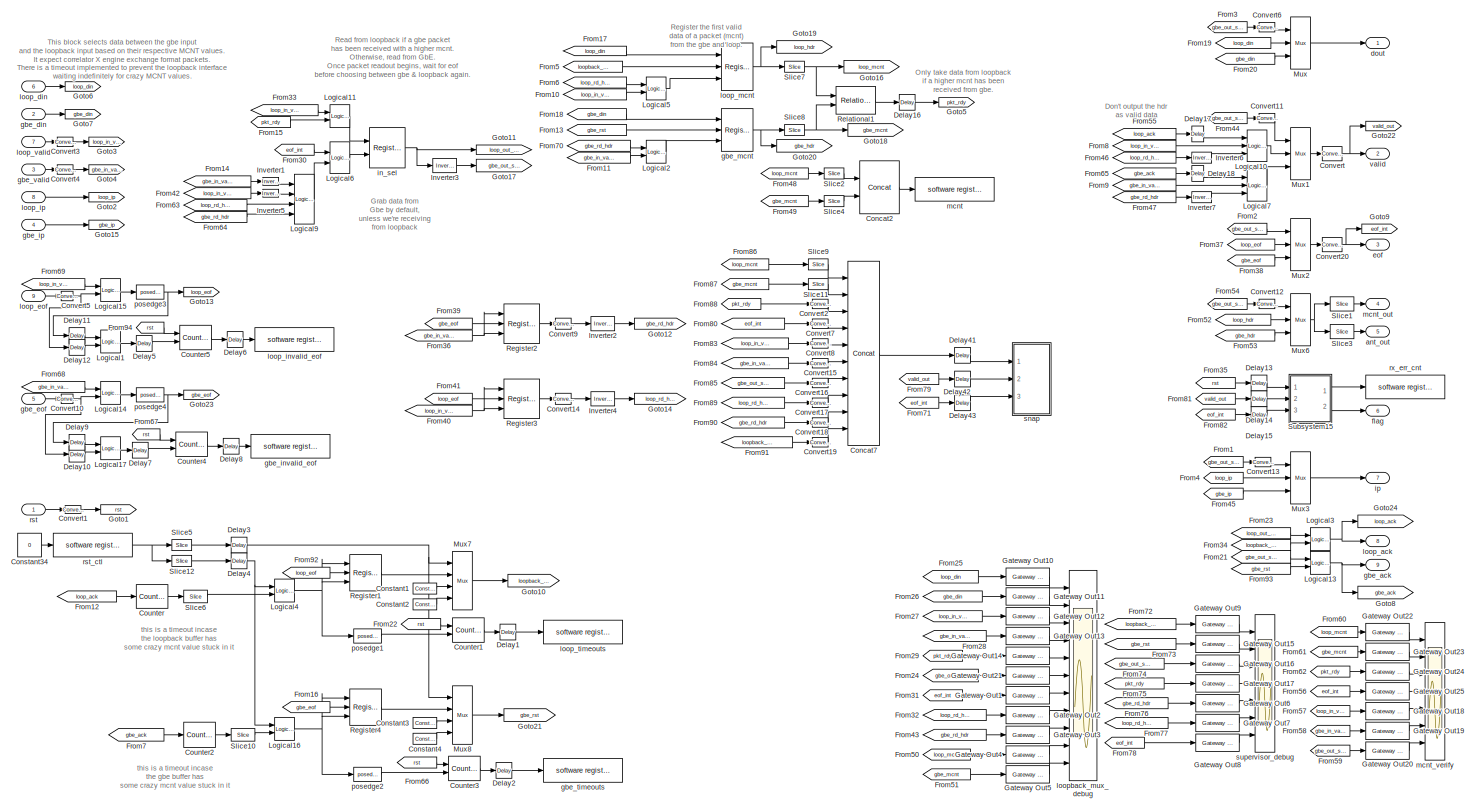
[diagram: loopback_mux0 - part 1/1, most of the canvas]
BLOCK [SubSystem] loopback_mux0
  AttributesFormatString = Payload Len: 32
  MaskCallbackString = |
  MaskEnableString = on,on
  MaskIconFrame = on
  MaskIconOpaque = on
  MaskIconRotate = none
  MaskIconUnits = autoscale
  MaskInitialization = fmtstr = sprintf('Payload Len: %i', payload_len);\nset_param(gcb, 'AttributesFormatString', fmtstr);\n
  MaskPromptString = Timeout (clock cycles, 2^?)|Expected payload length (in 64bit words)
  MaskStyleString = edit,edit
  MaskTabNameString = ,
  MaskToolTipString = on,on
  MaskTunableValueString = on,on
  MaskValueString = 27|32
  MaskVarAliasString = ,
  MaskVariables = timeout_bits=@1;payload_len=@2;
  MaskVisibilityString = on,on
  MinAlgLoopOccurrences = off
  Ports = [9, 9]
  RTWSystemCode = Auto
  TreatAsAtomicUnit = off
BLOCK [Reference] loopback_mux0/Concat2  REF=xbsIndex_r3/Concat
  Ports = [2, 1]
  SourceBlock = xbsIndex_r3/Concat
  SourceType = Xilinx Bus Concatenator
  dbl_ovrd = off
  explicit_period = off
  num_inputs = 2
  period = 1
BLOCK [Reference] loopback_mux0/Concat7  REF=xbsIndex_r3/Concat
  Ports = [10, 1]
  SourceBlock = xbsIndex_r3/Concat
  SourceType = Xilinx Bus Concatenator
  dbl_ovrd = off
  explicit_period = off
  num_inputs = 10
  period = 1
BLOCK [Reference] loopback_mux0/Constant1  REF=xbsIndex_r3/Constant
  Ports = [0, 1]
  SourceBlock = xbsIndex_r3/Constant
  SourceType = Xilinx Constant Block
  arith_type = Boolean
  bin_pt = 0
  carry = CIN
  const = 0
  dbl_ovrd = off
  equ = P=C
  explicit_period = on
  inp1 = P
  inp2 = PCIN>>17
  iostate = 0
  n_bits = 1
  opr = +
  opselect = C
  period = 1
BLOCK [Reference] loopback_mux0/Constant2  REF=xbsIndex_r3/Constant
  Ports = [0, 1]
  SourceBlock = xbsIndex_r3/Constant
  SourceType = Xilinx Constant Block
  arith_type = Boolean
  bin_pt = 0
  carry = CIN
  const = 1
  dbl_ovrd = off
  equ = P=C
  explicit_period = on
  inp1 = P
  inp2 = PCIN>>17
  iostate = 0
  n_bits = 1
  opr = +
  opselect = C
  period = 1
BLOCK [Reference] loopback_mux0/Constant3  REF=xbsIndex_r3/Constant
  Ports = [0, 1]
  SourceBlock = xbsIndex_r3/Constant
  SourceType = Xilinx Constant Block
  arith_type = Boolean
  bin_pt = 0
  carry = CIN
  const = 0
  dbl_ovrd = off
  equ = P=C
  explicit_period = on
  inp1 = P
  inp2 = PCIN>>17
  iostate = 0
  n_bits = 1
  opr = +
  opselect = C
  period = 1
BLOCK [Constant] loopback_mux0/Constant34
  Value = 0
BLOCK [Reference] loopback_mux0/Constant4  REF=xbsIndex_r3/Constant
  Ports = [0, 1]
  SourceBlock = xbsIndex_r3/Constant
  SourceType = Xilinx Constant Block
  arith_type = Boolean
  bin_pt = 0
  carry = CIN
  const = 1
  dbl_ovrd = off
  equ = P=C
  explicit_period = on
  inp1 = P
  inp2 = PCIN>>17
  iostate = 0
  n_bits = 1
  opr = +
  opselect = C
  period = 1
BLOCK [Reference] loopback_mux0/Convert  REF=xbsIndex_r3/Convert
  Ports = [1, 1]
  SourceBlock = xbsIndex_r3/Convert
  SourceType = Xilinx Converter Block
  arith_type = Boolean
  bin_pt = 6
  dbl_ovrd = off
  explicit_period = off
  inserted_by_tool = off
  latency = 0
  n_bits = 8
  overflow = Wrap
  period = 1
  pipeline = off
  quantization = Truncate
  show_param = off
  xl_area = [0, 0, 0, 0, 0, 0, 0]
  xl_use_area = off
BLOCK [Reference] loopback_mux0/Convert1  REF=xbsIndex_r3/Convert
  Ports = [1, 1]
  SourceBlock = xbsIndex_r3/Convert
  SourceType = Xilinx Converter Block
  arith_type = Boolean
  bin_pt = 6
  dbl_ovrd = off
  explicit_period = off
  inserted_by_tool = off
  latency = 0
  n_bits = 8
  overflow = Wrap
  period = 1
  pipeline = off
  quantization = Truncate
  show_param = off
  xl_area = [0, 0, 0, 0, 0, 0, 0]
  xl_use_area = off
BLOCK [Reference] loopback_mux0/Convert10  REF=xbsIndex_r3/Convert
  Ports = [1, 1]
  SourceBlock = xbsIndex_r3/Convert
  SourceType = Xilinx Converter Block
  arith_type = Boolean
  bin_pt = 0
  dbl_ovrd = off
  explicit_period = on
  inserted_by_tool = off
  latency = 0
  n_bits = 1
  overflow = Wrap
  period = 1
  pipeline = off
  quantization = Truncate
  show_param = off
  xl_area = [0, 0, 0, 0, 0, 0, 0]
  xl_use_area = off
BLOCK [Reference] loopback_mux0/Convert11  REF=xbsIndex_r3/Convert
  Ports = [1, 1]
  SourceBlock = xbsIndex_r3/Convert
  SourceType = Xilinx Converter Block
  arith_type = Unsigned
  bin_pt = 0
  dbl_ovrd = off
  explicit_period = off
  inserted_by_tool = off
  latency = 0
  n_bits = 1
  overflow = Wrap
  period = 1
  pipeline = off
  quantization = Truncate
  show_param = off
  xl_area = [0, 0, 0, 0, 0, 0, 0]
  xl_use_area = off
BLOCK [Reference] loopback_mux0/Convert12  REF=xbsIndex_r3/Convert
  Ports = [1, 1]
  SourceBlock = xbsIndex_r3/Convert
  SourceType = Xilinx Converter Block
  arith_type = Unsigned
  bin_pt = 0
  dbl_ovrd = off
  explicit_period = off
  inserted_by_tool = off
  latency = 0
  n_bits = 1
  overflow = Wrap
  period = 1
  pipeline = off
  quantization = Truncate
  show_param = off
  xl_area = [0, 0, 0, 0, 0, 0, 0]
  xl_use_area = off
BLOCK [Reference] loopback_mux0/Convert13  REF=xbsIndex_r3/Convert
  Ports = [1, 1]
  SourceBlock = xbsIndex_r3/Convert
  SourceType = Xilinx Converter Block
  arith_type = Unsigned
  bin_pt = 0
  dbl_ovrd = off
  explicit_period = off
  inserted_by_tool = off
  latency = 0
  n_bits = 1
  overflow = Wrap
  period = 1
  pipeline = off
  quantization = Truncate
  show_param = off
  xl_area = [0, 0, 0, 0, 0, 0, 0]
  xl_use_area = off
BLOCK [Reference] loopback_mux0/Convert14  REF=xbsIndex_r3/Convert
  Ports = [1, 1]
  SourceBlock = xbsIndex_r3/Convert
  SourceType = Xilinx Converter Block
  arith_type = Boolean
  bin_pt = 6
  dbl_ovrd = off
  explicit_period = off
  inserted_by_tool = off
  latency = 0
  n_bits = 8
  overflow = Wrap
  period = 1
  pipeline = off
  quantization = Truncate
  show_param = off
  xl_area = [0, 0, 0, 0, 0, 0, 0]
  xl_use_area = off
BLOCK [Reference] loopback_mux0/Convert15  REF=xbsIndex_r3/Convert
  Ports = [1, 1]
  SourceBlock = xbsIndex_r3/Convert
  SourceType = Xilinx Converter Block
  arith_type = Unsigned
  bin_pt = 0
  dbl_ovrd = off
  explicit_period = off
  inserted_by_tool = off
  latency = 0
  n_bits = 1
  overflow = Wrap
  period = 1
  pipeline = off
  quantization = Truncate
  show_param = off
  xl_area = [0, 0, 0, 0, 0, 0, 0]
  xl_use_area = off
BLOCK [Reference] loopback_mux0/Convert16  REF=xbsIndex_r3/Convert
  Ports = [1, 1]
  SourceBlock = xbsIndex_r3/Convert
  SourceType = Xilinx Converter Block
  arith_type = Unsigned
  bin_pt = 0
  dbl_ovrd = off
  explicit_period = off
  inserted_by_tool = off
  latency = 0
  n_bits = 1
  overflow = Wrap
  period = 1
  pipeline = off
  quantization = Truncate
  show_param = off
  xl_area = [0, 0, 0, 0, 0, 0, 0]
  xl_use_area = off
BLOCK [Reference] loopback_mux0/Convert17  REF=xbsIndex_r3/Convert
  Ports = [1, 1]
  SourceBlock = xbsIndex_r3/Convert
  SourceType = Xilinx Converter Block
  arith_type = Unsigned
  bin_pt = 0
  dbl_ovrd = off
  explicit_period = off
  inserted_by_tool = off
  latency = 0
  n_bits = 1
  overflow = Wrap
  period = 1
  pipeline = off
  quantization = Truncate
  show_param = off
  xl_area = [0, 0, 0, 0, 0, 0, 0]
  xl_use_area = off
BLOCK [Reference] loopback_mux0/Convert18  REF=xbsIndex_r3/Convert
  Ports = [1, 1]
  SourceBlock = xbsIndex_r3/Convert
  SourceType = Xilinx Converter Block
  arith_type = Unsigned
  bin_pt = 0
  dbl_ovrd = off
  explicit_period = off
  inserted_by_tool = off
  latency = 0
  n_bits = 1
  overflow = Wrap
  period = 1
  pipeline = off
  quantization = Truncate
  show_param = off
  xl_area = [0, 0, 0, 0, 0, 0, 0]
  xl_use_area = off
BLOCK [Reference] loopback_mux0/Convert19  REF=xbsIndex_r3/Convert
  Ports = [1, 1]
  SourceBlock = xbsIndex_r3/Convert
  SourceType = Xilinx Converter Block
  arith_type = Unsigned
  bin_pt = 0
  dbl_ovrd = off
  explicit_period = off
  inserted_by_tool = off
  latency = 0
  n_bits = 1
  overflow = Wrap
  period = 1
  pipeline = off
  quantization = Truncate
  show_param = off
  xl_area = [0, 0, 0, 0, 0, 0, 0]
  xl_use_area = off
BLOCK [Reference] loopback_mux0/Convert2  REF=xbsIndex_r3/Convert
  Ports = [1, 1]
  SourceBlock = xbsIndex_r3/Convert
  SourceType = Xilinx Converter Block
  arith_type = Unsigned
  bin_pt = 0
  dbl_ovrd = off
  explicit_period = off
  inserted_by_tool = off
  latency = 0
  n_bits = 1
  overflow = Wrap
  period = 1
  pipeline = off
  quantization = Truncate
  show_param = off
  xl_area = [0, 0, 0, 0, 0, 0, 0]
  xl_use_area = off
BLOCK [Reference] loopback_mux0/Convert20  REF=xbsIndex_r3/Convert
  Ports = [1, 1]
  SourceBlock = xbsIndex_r3/Convert
  SourceType = Xilinx Converter Block
  arith_type = Boolean
  bin_pt = 6
  dbl_ovrd = off
  explicit_period = off
  inserted_by_tool = off
  latency = 0
  n_bits = 8
  overflow = Wrap
  period = 1
  pipeline = off
  quantization = Truncate
  show_param = off
  xl_area = [0, 0, 0, 0, 0, 0, 0]
  xl_use_area = off
BLOCK [Reference] loopback_mux0/Convert3  REF=xbsIndex_r3/Convert
  Ports = [1, 1]
  SourceBlock = xbsIndex_r3/Convert
  SourceType = Xilinx Converter Block
  arith_type = Boolean
  bin_pt = 0
  dbl_ovrd = off
  explicit_period = on
  inserted_by_tool = off
  latency = 0
  n_bits = 1
  overflow = Wrap
  period = 1
  pipeline = off
  quantization = Truncate
  show_param = off
  xl_area = [0, 0, 0, 0, 0, 0, 0]
  xl_use_area = off
BLOCK [Reference] loopback_mux0/Convert4  REF=xbsIndex_r3/Convert
  Ports = [1, 1]
  SourceBlock = xbsIndex_r3/Convert
  SourceType = Xilinx Converter Block
  arith_type = Boolean
  bin_pt = 0
  dbl_ovrd = off
  explicit_period = on
  inserted_by_tool = off
  latency = 0
  n_bits = 1
  overflow = Wrap
  period = 1
  pipeline = off
  quantization = Truncate
  show_param = off
  xl_area = [0, 0, 0, 0, 0, 0, 0]
  xl_use_area = off
BLOCK [Reference] loopback_mux0/Convert5  REF=xbsIndex_r3/Convert
  Ports = [1, 1]
  SourceBlock = xbsIndex_r3/Convert
  SourceType = Xilinx Converter Block
  arith_type = Boolean
  bin_pt = 0
  dbl_ovrd = off
  explicit_period = on
  inserted_by_tool = off
  latency = 0
  n_bits = 1
  overflow = Wrap
  period = 1
  pipeline = off
  quantization = Truncate
  show_param = off
  xl_area = [0, 0, 0, 0, 0, 0, 0]
  xl_use_area = off
BLOCK [Reference] loopback_mux0/Convert6  REF=xbsIndex_r3/Convert
  Ports = [1, 1]
  SourceBlock = xbsIndex_r3/Convert
  SourceType = Xilinx Converter Block
  arith_type = Unsigned
  bin_pt = 0
  dbl_ovrd = off
  explicit_period = off
  inserted_by_tool = off
  latency = 0
  n_bits = 1
  overflow = Wrap
  period = 1
  pipeline = off
  quantization = Truncate
  show_param = off
  xl_area = [0, 0, 0, 0, 0, 0, 0]
  xl_use_area = off
BLOCK [Reference] loopback_mux0/Convert7  REF=xbsIndex_r3/Convert
  Ports = [1, 1]
  SourceBlock = xbsIndex_r3/Convert
  SourceType = Xilinx Converter Block
  arith_type = Unsigned
  bin_pt = 0
  dbl_ovrd = off
  explicit_period = off
  inserted_by_tool = off
  latency = 0
  n_bits = 1
  overflow = Wrap
  period = 1
  pipeline = off
  quantization = Truncate
  show_param = off
  xl_area = [0, 0, 0, 0, 0, 0, 0]
  xl_use_area = off
BLOCK [Reference] loopback_mux0/Convert8  REF=xbsIndex_r3/Convert
  Ports = [1, 1]
  SourceBlock = xbsIndex_r3/Convert
  SourceType = Xilinx Converter Block
  arith_type = Unsigned
  bin_pt = 0
  dbl_ovrd = off
  explicit_period = off
  inserted_by_tool = off
  latency = 0
  n_bits = 1
  overflow = Wrap
  period = 1
  pipeline = off
  quantization = Truncate
  show_param = off
  xl_area = [0, 0, 0, 0, 0, 0, 0]
  xl_use_area = off
BLOCK [Reference] loopback_mux0/Convert9  REF=xbsIndex_r3/Convert
  Ports = [1, 1]
  SourceBlock = xbsIndex_r3/Convert
  SourceType = Xilinx Converter Block
  arith_type = Boolean
  bin_pt = 6
  dbl_ovrd = off
  explicit_period = off
  inserted_by_tool = off
  latency = 0
  n_bits = 8
  overflow = Wrap
  period = 1
  pipeline = off
  quantization = Truncate
  show_param = off
  xl_area = [0, 0, 0, 0, 0, 0, 0]
  xl_use_area = off
BLOCK [Reference] loopback_mux0/Counter  REF=xbsIndex_r3/Counter
  Ports = [1, 1]
  SourceBlock = xbsIndex_r3/Counter
  SourceType = Xilinx Counter Block
  arith_type = Unsigned
  bin_pt = 0
  cnt_by_val = 1
  cnt_to = Inf
  cnt_type = Free Running
  dbl_ovrd = off
  en = off
  explicit_period = off
  gen_core = off
  load_pin = off
  n_bits = timeout_bits+1
  operation = Up
  period = 1
  rst = on
  show_param = off
  start_count = 0
  use_rpm = on
  xl_area = [0, 0, 0, 0, 0, 0, 0]
  xl_use_area = off
BLOCK [Reference] loopback_mux0/Counter1  REF=xbsIndex_r3/Counter
  Ports = [2, 1]
  SourceBlock = xbsIndex_r3/Counter
  SourceType = Xilinx Counter Block
  arith_type = Unsigned
  bin_pt = 0
  cnt_by_val = 1
  cnt_to = Inf
  cnt_type = Free Running
  dbl_ovrd = off
  en = on
  explicit_period = off
  gen_core = off
  load_pin = off
  n_bits = 27
  operation = Up
  period = 1
  rst = on
  show_param = off
  start_count = 0
  use_rpm = on
  xl_area = [0, 0, 0, 0, 0, 0, 0]
  xl_use_area = off
BLOCK [Reference] loopback_mux0/Counter2  REF=xbsIndex_r3/Counter
  Ports = [1, 1]
  SourceBlock = xbsIndex_r3/Counter
  SourceType = Xilinx Counter Block
  arith_type = Unsigned
  bin_pt = 0
  cnt_by_val = 1
  cnt_to = Inf
  cnt_type = Free Running
  dbl_ovrd = off
  en = off
  explicit_period = off
  gen_core = off
  load_pin = off
  n_bits = timeout_bits+1
  operation = Up
  period = 1
  rst = on
  show_param = off
  start_count = 0
  use_rpm = on
  xl_area = [0, 0, 0, 0, 0, 0, 0]
  xl_use_area = off
BLOCK [Reference] loopback_mux0/Counter3  REF=xbsIndex_r3/Counter
  Ports = [2, 1]
  SourceBlock = xbsIndex_r3/Counter
  SourceType = Xilinx Counter Block
  arith_type = Unsigned
  bin_pt = 0
  cnt_by_val = 1
  cnt_to = Inf
  cnt_type = Free Running
  dbl_ovrd = off
  en = on
  explicit_period = off
  gen_core = off
  load_pin = off
  n_bits = 27
  operation = Up
  period = 1
  rst = on
  show_param = off
  start_count = 0
  use_rpm = on
  xl_area = [0, 0, 0, 0, 0, 0, 0]
  xl_use_area = off
BLOCK [Reference] loopback_mux0/Counter4  REF=xbsIndex_r3/Counter
  Ports = [2, 1]
  SourceBlock = xbsIndex_r3/Counter
  SourceType = Xilinx Counter Block
  arith_type = Unsigned
  bin_pt = 0
  cnt_by_val = 1
  cnt_to = Inf
  cnt_type = Free Running
  dbl_ovrd = off
  en = on
  explicit_period = off
  gen_core = off
  load_pin = off
  n_bits = 27
  operation = Up
  period = 1
  rst = on
  show_param = off
  start_count = 0
  use_rpm = on
  xl_area = [0, 0, 0, 0, 0, 0, 0]
  xl_use_area = off
BLOCK [Reference] loopback_mux0/Counter5  REF=xbsIndex_r3/Counter
  Ports = [2, 1]
  SourceBlock = xbsIndex_r3/Counter
  SourceType = Xilinx Counter Block
  arith_type = Unsigned
  bin_pt = 0
  cnt_by_val = 1
  cnt_to = Inf
  cnt_type = Free Running
  dbl_ovrd = off
  en = on
  explicit_period = off
  gen_core = off
  load_pin = off
  n_bits = 27
  operation = Up
  period = 1
  rst = on
  show_param = off
  start_count = 0
  use_rpm = on
  xl_area = [0, 0, 0, 0, 0, 0, 0]
  xl_use_area = off
BLOCK [Reference] loopback_mux0/Delay1  REF=xbsIndex_r3/Delay
  Ports = [1, 1]
  SourceBlock = xbsIndex_r3/Delay
  SourceType = Xilinx Delay Block
  accept_only_valid = off
  dbl_ovrd = off
  en = off
  explicit_period = on
  init_zero = on
  latency = 2
  period = 1
  reg_retiming = on
  show_param = off
  xl_area = [0, 0, 0, 0, 0, 0, 0]
  xl_use_area = off
BLOCK [Reference] loopback_mux0/Delay10  REF=xbsIndex_r3/Delay
  Ports = [1, 1]
  SourceBlock = xbsIndex_r3/Delay
  SourceType = Xilinx Delay Block
  accept_only_valid = off
  dbl_ovrd = off
  en = off
  explicit_period = on
  init_zero = on
  latency = 2
  period = 1
  reg_retiming = on
  show_param = off
  xl_area = [0, 0, 0, 0, 0, 0, 0]
  xl_use_area = off
BLOCK [Reference] loopback_mux0/Delay11  REF=xbsIndex_r3/Delay
  Ports = [1, 1]
  SourceBlock = xbsIndex_r3/Delay
  SourceType = Xilinx Delay Block
  accept_only_valid = off
  dbl_ovrd = off
  en = off
  explicit_period = on
  init_zero = on
  latency = 2
  period = 1
  reg_retiming = on
  show_param = off
  xl_area = [0, 0, 0, 0, 0, 0, 0]
  xl_use_area = off
BLOCK [Reference] loopback_mux0/Delay12  REF=xbsIndex_r3/Delay
  Ports = [1, 1]
  SourceBlock = xbsIndex_r3/Delay
  SourceType = Xilinx Delay Block
  accept_only_valid = off
  dbl_ovrd = off
  en = off
  explicit_period = on
  init_zero = on
  latency = 2
  period = 1
  reg_retiming = on
  show_param = off
  xl_area = [0, 0, 0, 0, 0, 0, 0]
  xl_use_area = off
BLOCK [Reference] loopback_mux0/Delay13  REF=xbsIndex_r3/Delay
  Ports = [1, 1]
  SourceBlock = xbsIndex_r3/Delay
  SourceType = Xilinx Delay Block
  accept_only_valid = off
  dbl_ovrd = off
  en = off
  explicit_period = on
  init_zero = on
  latency = 2
  period = 1
  reg_retiming = on
  show_param = off
  xl_area = [0, 0, 0, 0, 0, 0, 0]
  xl_use_area = off
BLOCK [Reference] loopback_mux0/Delay14  REF=xbsIndex_r3/Delay
  Ports = [1, 1]
  SourceBlock = xbsIndex_r3/Delay
  SourceType = Xilinx Delay Block
  accept_only_valid = off
  dbl_ovrd = off
  en = off
  explicit_period = on
  init_zero = on
  latency = 2
  period = 1
  reg_retiming = on
  show_param = off
  xl_area = [0, 0, 0, 0, 0, 0, 0]
  xl_use_area = off
BLOCK [Reference] loopback_mux0/Delay15  REF=xbsIndex_r3/Delay
  Ports = [1, 1]
  SourceBlock = xbsIndex_r3/Delay
  SourceType = Xilinx Delay Block
  accept_only_valid = off
  dbl_ovrd = off
  en = off
  explicit_period = on
  init_zero = on
  latency = 2
  period = 1
  reg_retiming = on
  show_param = off
  xl_area = [0, 0, 0, 0, 0, 0, 0]
  xl_use_area = off
BLOCK [Reference] loopback_mux0/Delay16  REF=xbsIndex_r3/Delay
  Ports = [1, 1]
  SourceBlock = xbsIndex_r3/Delay
  SourceType = Xilinx Delay Block
  accept_only_valid = off
  dbl_ovrd = off
  en = off
  explicit_period = on
  init_zero = on
  latency = 1
  period = 1
  reg_retiming = on
  show_param = off
  xl_area = [0, 0, 0, 0, 0, 0, 0]
  xl_use_area = off
BLOCK [Reference] loopback_mux0/Delay17  REF=xbsIndex_r3/Delay
  Ports = [1, 1]
  SourceBlock = xbsIndex_r3/Delay
  SourceType = Xilinx Delay Block
  accept_only_valid = off
  dbl_ovrd = off
  en = off
  explicit_period = on
  init_zero = on
  latency = 1
  period = 1
  reg_retiming = on
  show_param = off
  xl_area = [0, 0, 0, 0, 0, 0, 0]
  xl_use_area = off
BLOCK [Reference] loopback_mux0/Delay18  REF=xbsIndex_r3/Delay
  Ports = [1, 1]
  SourceBlock = xbsIndex_r3/Delay
  SourceType = Xilinx Delay Block
  accept_only_valid = off
  dbl_ovrd = off
  en = off
  explicit_period = on
  init_zero = on
  latency = 1
  period = 1
  reg_retiming = on
  show_param = off
  xl_area = [0, 0, 0, 0, 0, 0, 0]
  xl_use_area = off
BLOCK [Reference] loopback_mux0/Delay2  REF=xbsIndex_r3/Delay
  Ports = [1, 1]
  SourceBlock = xbsIndex_r3/Delay
  SourceType = Xilinx Delay Block
  accept_only_valid = off
  dbl_ovrd = off
  en = off
  explicit_period = on
  init_zero = on
  latency = 2
  period = 1
  reg_retiming = on
  show_param = off
  xl_area = [0, 0, 0, 0, 0, 0, 0]
  xl_use_area = off
BLOCK [Reference] loopback_mux0/Delay3  REF=xbsIndex_r3/Delay
  Ports = [1, 1]
  SourceBlock = xbsIndex_r3/Delay
  SourceType = Xilinx Delay Block
  accept_only_valid = off
  dbl_ovrd = off
  en = off
  explicit_period = on
  init_zero = on
  latency = 2
  period = 1
  reg_retiming = on
  show_param = off
  xl_area = [0, 0, 0, 0, 0, 0, 0]
  xl_use_area = off
BLOCK [Reference] loopback_mux0/Delay4  REF=xbsIndex_r3/Delay
  Ports = [1, 1]
  SourceBlock = xbsIndex_r3/Delay
  SourceType = Xilinx Delay Block
  accept_only_valid = off
  dbl_ovrd = off
  en = off
  explicit_period = on
  init_zero = on
  latency = 2
  period = 1
  reg_retiming = on
  show_param = off
  xl_area = [0, 0, 0, 0, 0, 0, 0]
  xl_use_area = off
BLOCK [Reference] loopback_mux0/Delay41  REF=xbsIndex_r3/Delay
  Ports = [1, 1]
  SourceBlock = xbsIndex_r3/Delay
  SourceType = Xilinx Delay Block
  accept_only_valid = off
  dbl_ovrd = off
  en = off
  explicit_period = on
  init_zero = on
  latency = 3
  period = 1
  reg_retiming = on
  show_param = off
  xl_area = [0, 0, 0, 0, 0, 0, 0]
  xl_use_area = off
BLOCK [Reference] loopback_mux0/Delay42  REF=xbsIndex_r3/Delay
  Ports = [1, 1]
  SourceBlock = xbsIndex_r3/Delay
  SourceType = Xilinx Delay Block
  accept_only_valid = off
  dbl_ovrd = off
  en = off
  explicit_period = on
  init_zero = on
  latency = 3
  period = 1
  reg_retiming = on
  show_param = off
  xl_area = [0, 0, 0, 0, 0, 0, 0]
  xl_use_area = off
BLOCK [Reference] loopback_mux0/Delay43  REF=xbsIndex_r3/Delay
  Ports = [1, 1]
  SourceBlock = xbsIndex_r3/Delay
  SourceType = Xilinx Delay Block
  accept_only_valid = off
  dbl_ovrd = off
  en = off
  explicit_period = on
  init_zero = on
  latency = 3
  period = 1
  reg_retiming = on
  show_param = off
  xl_area = [0, 0, 0, 0, 0, 0, 0]
  xl_use_area = off
BLOCK [Reference] loopback_mux0/Delay5  REF=xbsIndex_r3/Delay
  Ports = [1, 1]
  SourceBlock = xbsIndex_r3/Delay
  SourceType = Xilinx Delay Block
  accept_only_valid = off
  dbl_ovrd = off
  en = off
  explicit_period = on
  init_zero = on
  latency = 2
  period = 1
  reg_retiming = on
  show_param = off
  xl_area = [0, 0, 0, 0, 0, 0, 0]
  xl_use_area = off
BLOCK [Reference] loopback_mux0/Delay6  REF=xbsIndex_r3/Delay
  Ports = [1, 1]
  SourceBlock = xbsIndex_r3/Delay
  SourceType = Xilinx Delay Block
  accept_only_valid = off
  dbl_ovrd = off
  en = off
  explicit_period = on
  init_zero = on
  latency = 2
  period = 1
  reg_retiming = on
  show_param = off
  xl_area = [0, 0, 0, 0, 0, 0, 0]
  xl_use_area = off
BLOCK [Reference] loopback_mux0/Delay7  REF=xbsIndex_r3/Delay
  Ports = [1, 1]
  SourceBlock = xbsIndex_r3/Delay
  SourceType = Xilinx Delay Block
  accept_only_valid = off
  dbl_ovrd = off
  en = off
  explicit_period = on
  init_zero = on
  latency = 2
  period = 1
  reg_retiming = on
  show_param = off
  xl_area = [0, 0, 0, 0, 0, 0, 0]
  xl_use_area = off
BLOCK [Reference] loopback_mux0/Delay8  REF=xbsIndex_r3/Delay
  Ports = [1, 1]
  SourceBlock = xbsIndex_r3/Delay
  SourceType = Xilinx Delay Block
  accept_only_valid = off
  dbl_ovrd = off
  en = off
  explicit_period = on
  init_zero = on
  latency = 2
  period = 1
  reg_retiming = on
  show_param = off
  xl_area = [0, 0, 0, 0, 0, 0, 0]
  xl_use_area = off
BLOCK [Reference] loopback_mux0/Delay9  REF=xbsIndex_r3/Delay
  Ports = [1, 1]
  SourceBlock = xbsIndex_r3/Delay
  SourceType = Xilinx Delay Block
  accept_only_valid = off
  dbl_ovrd = off
  en = off
  explicit_period = on
  init_zero = on
  latency = 2
  period = 1
  reg_retiming = on
  show_param = off
  xl_area = [0, 0, 0, 0, 0, 0, 0]
  xl_use_area = off
BLOCK [From] loopback_mux0/From1
  CloseFcn = tagdialog Close
  GotoTag = gbe_out_sel
BLOCK [From] loopback_mux0/From10
  CloseFcn = tagdialog Close
  GotoTag = loop_in_valid
BLOCK [From] loopback_mux0/From11
  CloseFcn = tagdialog Close
  GotoTag = gbe_in_valid
BLOCK [From] loopback_mux0/From12
  CloseFcn = tagdialog Close
  GotoTag = loop_ack
BLOCK [From] loopback_mux0/From13
  CloseFcn = tagdialog Close
  GotoTag = gbe_rst
BLOCK [From] loopback_mux0/From14
  CloseFcn = tagdialog Close
  GotoTag = gbe_in_valid
BLOCK [From] loopback_mux0/From15
  CloseFcn = tagdialog Close
  GotoTag = pkt_rdy
BLOCK [From] loopback_mux0/From16
  CloseFcn = tagdialog Close
  GotoTag = gbe_eof
BLOCK [From] loopback_mux0/From17
  CloseFcn = tagdialog Close
  GotoTag = loop_din
BLOCK [From] loopback_mux0/From18
  CloseFcn = tagdialog Close
  GotoTag = gbe_din
BLOCK [From] loopback_mux0/From19
  CloseFcn = tagdialog Close
  GotoTag = loop_din
BLOCK [From] loopback_mux0/From2
  CloseFcn = tagdialog Close
  GotoTag = gbe_out_sel
BLOCK [From] loopback_mux0/From20
  CloseFcn = tagdialog Close
  GotoTag = gbe_din
BLOCK [From] loopback_mux0/From21
  CloseFcn = tagdialog Close
  GotoTag = gbe_out_sel
BLOCK [From] loopback_mux0/From22
  CloseFcn = tagdialog Close
  GotoTag = rst
BLOCK [From] loopback_mux0/From23
  CloseFcn = tagdialog Close
  GotoTag = loop_out_sel
BLOCK [From] loopback_mux0/From24
  CloseFcn = tagdialog Close
  GotoTag = gbe_out_sel
BLOCK [From] loopback_mux0/From25
  CloseFcn = tagdialog Close
  GotoTag = loop_din
BLOCK [From] loopback_mux0/From26
  CloseFcn = tagdialog Close
  GotoTag = gbe_din
BLOCK [From] loopback_mux0/From27
  CloseFcn = tagdialog Close
  GotoTag = loop_in_valid
BLOCK [From] loopback_mux0/From28
  CloseFcn = tagdialog Close
  GotoTag = gbe_in_valid
BLOCK [From] loopback_mux0/From29
  CloseFcn = tagdialog Close
  GotoTag = pkt_rdy
BLOCK [From] loopback_mux0/From3
  CloseFcn = tagdialog Close
  GotoTag = gbe_out_sel
BLOCK [From] loopback_mux0/From30
  CloseFcn = tagdialog Close
  GotoTag = eof_int
BLOCK [From] loopback_mux0/From31
  CloseFcn = tagdialog Close
  GotoTag = eof_int
BLOCK [From] loopback_mux0/From32
  CloseFcn = tagdialog Close
  GotoTag = loop_rd_hdr
BLOCK [From] loopback_mux0/From33
  CloseFcn = tagdialog Close
  GotoTag = loop_in_valid
BLOCK [From] loopback_mux0/From34
  CloseFcn = tagdialog Close
  GotoTag = loopback_rst
BLOCK [From] loopback_mux0/From35
  CloseFcn = tagdialog Close
  GotoTag = rst
BLOCK [From] loopback_mux0/From36
  CloseFcn = tagdialog Close
  GotoTag = gbe_in_valid
BLOCK [From] loopback_mux0/From37
  CloseFcn = tagdialog Close
  GotoTag = loop_eof
BLOCK [From] loopback_mux0/From38
  CloseFcn = tagdialog Close
  GotoTag = gbe_eof
BLOCK [From] loopback_mux0/From39
  CloseFcn = tagdialog Close
  GotoTag = gbe_eof
BLOCK [From] loopback_mux0/From4
  CloseFcn = tagdialog Close
  GotoTag = loop_ip
BLOCK [From] loopback_mux0/From40
  CloseFcn = tagdialog Close
  GotoTag = loop_in_valid
BLOCK [From] loopback_mux0/From41
  CloseFcn = tagdialog Close
  GotoTag = loop_eof
BLOCK [From] loopback_mux0/From42
  CloseFcn = tagdialog Close
  GotoTag = loop_in_valid
BLOCK [From] loopback_mux0/From43
  CloseFcn = tagdialog Close
  GotoTag = gbe_rd_hdr
BLOCK [From] loopback_mux0/From44
  CloseFcn = tagdialog Close
  GotoTag = gbe_out_sel
BLOCK [From] loopback_mux0/From45
  CloseFcn = tagdialog Close
  GotoTag = gbe_ip
BLOCK [From] loopback_mux0/From46
  CloseFcn = tagdialog Close
  GotoTag = loop_rd_hdr
BLOCK [From] loopback_mux0/From47
  CloseFcn = tagdialog Close
  GotoTag = gbe_rd_hdr
BLOCK [From] loopback_mux0/From48
  CloseFcn = tagdialog Close
  GotoTag = loop_mcnt
BLOCK [From] loopback_mux0/From49
  CloseFcn = tagdialog Close
  GotoTag = gbe_mcnt
BLOCK [From] loopback_mux0/From5
  CloseFcn = tagdialog Close
  GotoTag = loopback_rst
BLOCK [From] loopback_mux0/From50
  CloseFcn = tagdialog Close
  GotoTag = loop_mcnt
BLOCK [From] loopback_mux0/From51
  CloseFcn = tagdialog Close
  GotoTag = gbe_mcnt
BLOCK [From] loopback_mux0/From52
  CloseFcn = tagdialog Close
  GotoTag = loop_hdr
BLOCK [From] loopback_mux0/From53
  CloseFcn = tagdialog Close
  GotoTag = gbe_hdr
BLOCK [From] loopback_mux0/From54
  CloseFcn = tagdialog Close
  GotoTag = gbe_out_sel
BLOCK [From] loopback_mux0/From55
  CloseFcn = tagdialog Close
  GotoTag = loop_ack
BLOCK [From] loopback_mux0/From56
  CloseFcn = tagdialog Close
  GotoTag = eof_int
BLOCK [From] loopback_mux0/From57
  CloseFcn = tagdialog Close
  GotoTag = loop_in_valid
BLOCK [From] loopback_mux0/From58
  CloseFcn = tagdialog Close
  GotoTag = gbe_in_valid
BLOCK [From] loopback_mux0/From59
  CloseFcn = tagdialog Close
  GotoTag = gbe_out_sel
BLOCK [From] loopback_mux0/From6
  CloseFcn = tagdialog Close
  GotoTag = loop_rd_hdr
BLOCK [From] loopback_mux0/From60
  CloseFcn = tagdialog Close
  GotoTag = loop_mcnt
BLOCK [From] loopback_mux0/From61
  CloseFcn = tagdialog Close
  GotoTag = gbe_mcnt
BLOCK [From] loopback_mux0/From62
  CloseFcn = tagdialog Close
  GotoTag = pkt_rdy
BLOCK [From] loopback_mux0/From63
  CloseFcn = tagdialog Close
  GotoTag = loop_rd_hdr
BLOCK [From] loopback_mux0/From64
  CloseFcn = tagdialog Close
  GotoTag = gbe_rd_hdr
BLOCK [From] loopback_mux0/From65
  CloseFcn = tagdialog Close
  GotoTag = gbe_ack
BLOCK [From] loopback_mux0/From66
  CloseFcn = tagdialog Close
  GotoTag = rst
BLOCK [From] loopback_mux0/From67
  CloseFcn = tagdialog Close
  GotoTag = rst
BLOCK [From] loopback_mux0/From68
  CloseFcn = tagdialog Close
  GotoTag = gbe_in_valid
BLOCK [From] loopback_mux0/From69
  CloseFcn = tagdialog Close
  GotoTag = loop_in_valid
BLOCK [From] loopback_mux0/From7
  CloseFcn = tagdialog Close
  GotoTag = gbe_ack
BLOCK [From] loopback_mux0/From70
  CloseFcn = tagdialog Close
  GotoTag = gbe_rd_hdr
BLOCK [From] loopback_mux0/From71
  CloseFcn = tagdialog Close
  GotoTag = eof_int
BLOCK [From] loopback_mux0/From72
  CloseFcn = tagdialog Close
  GotoTag = loopback_rst
BLOCK [From] loopback_mux0/From73
  CloseFcn = tagdialog Close
  GotoTag = gbe_rst
BLOCK [From] loopback_mux0/From74
  CloseFcn = tagdialog Close
  GotoTag = gbe_out_sel
BLOCK [From] loopback_mux0/From75
  CloseFcn = tagdialog Close
  GotoTag = pkt_rdy
BLOCK [From] loopback_mux0/From76
  CloseFcn = tagdialog Close
  GotoTag = gbe_rd_hdr
BLOCK [From] loopback_mux0/From77
  CloseFcn = tagdialog Close
  GotoTag = loop_rd_hdr
BLOCK [From] loopback_mux0/From78
  CloseFcn = tagdialog Close
  GotoTag = eof_int
BLOCK [From] loopback_mux0/From79
  CloseFcn = tagdialog Close
  GotoTag = valid_out
BLOCK [From] loopback_mux0/From8
  CloseFcn = tagdialog Close
  GotoTag = loop_in_valid
BLOCK [From] loopback_mux0/From80
  CloseFcn = tagdialog Close
  GotoTag = eof_int
BLOCK [From] loopback_mux0/From81
  CloseFcn = tagdialog Close
  GotoTag = valid_out
BLOCK [From] loopback_mux0/From82
  CloseFcn = tagdialog Close
  GotoTag = eof_int
BLOCK [From] loopback_mux0/From83
  CloseFcn = tagdialog Close
  GotoTag = loop_in_valid
BLOCK [From] loopback_mux0/From84
  CloseFcn = tagdialog Close
  GotoTag = gbe_in_valid
BLOCK [From] loopback_mux0/From85
  CloseFcn = tagdialog Close
  GotoTag = gbe_out_sel
BLOCK [From] loopback_mux0/From86
  CloseFcn = tagdialog Close
  GotoTag = loop_mcnt
BLOCK [From] loopback_mux0/From87
  CloseFcn = tagdialog Close
  GotoTag = gbe_mcnt
BLOCK [From] loopback_mux0/From88
  CloseFcn = tagdialog Close
  GotoTag = pkt_rdy
BLOCK [From] loopback_mux0/From89
  CloseFcn = tagdialog Close
  GotoTag = loop_rd_hdr
BLOCK [From] loopback_mux0/From9
  CloseFcn = tagdialog Close
  GotoTag = gbe_in_valid
BLOCK [From] loopback_mux0/From90
  CloseFcn = tagdialog Close
  GotoTag = gbe_rd_hdr
BLOCK [From] loopback_mux0/From91
  CloseFcn = tagdialog Close
  GotoTag = loopback_rst
BLOCK [From] loopback_mux0/From92
  CloseFcn = tagdialog Close
  GotoTag = loop_eof
BLOCK [From] loopback_mux0/From93
  CloseFcn = tagdialog Close
  GotoTag = gbe_rst
BLOCK [From] loopback_mux0/From94
  CloseFcn = tagdialog Close
  GotoTag = rst
BLOCK [Reference] loopback_mux0/Gateway Out1  REF=xbsIndex_r3/Gateway Out
  LOCs = {}
  Ports = [1, 1]
  SourceBlock = xbsIndex_r3/Gateway Out
  SourceType = Xilinx Gateway Out
  arith_type = Boolean
  bin_pt = 6
  hdl_port = on
  locs_specified = off
  nbits = 8
  needs_fixed_name = off
  output_type = Double
  overflow = Wrap
  quantization = Truncate
  show_param = off
  timing_constraint = None
  xl_area = [0, 0, 0, 0, 0, 0, 0]
  xl_use_area = off
BLOCK [Reference] loopback_mux0/Gateway Out10  REF=xbsIndex_r3/Gateway Out
  LOCs = {}
  Ports = [1, 1]
  SourceBlock = xbsIndex_r3/Gateway Out
  SourceType = Xilinx Gateway Out
  arith_type = Boolean
  bin_pt = 6
  hdl_port = on
  locs_specified = off
  nbits = 8
  needs_fixed_name = off
  output_type = Double
  overflow = Wrap
  quantization = Truncate
  show_param = off
  timing_constraint = None
  xl_area = [0, 0, 0, 0, 0, 0, 0]
  xl_use_area = off
BLOCK [Reference] loopback_mux0/Gateway Out11  REF=xbsIndex_r3/Gateway Out
  LOCs = {}
  Ports = [1, 1]
  SourceBlock = xbsIndex_r3/Gateway Out
  SourceType = Xilinx Gateway Out
  arith_type = Boolean
  bin_pt = 6
  hdl_port = on
  locs_specified = off
  nbits = 8
  needs_fixed_name = off
  output_type = Double
  overflow = Wrap
  quantization = Truncate
  show_param = off
  timing_constraint = None
  xl_area = [0, 0, 0, 0, 0, 0, 0]
  xl_use_area = off
BLOCK [Reference] loopback_mux0/Gateway Out12  REF=xbsIndex_r3/Gateway Out
  LOCs = {}
  Ports = [1, 1]
  SourceBlock = xbsIndex_r3/Gateway Out
  SourceType = Xilinx Gateway Out
  arith_type = Boolean
  bin_pt = 6
  hdl_port = on
  locs_specified = off
  nbits = 8
  needs_fixed_name = off
  output_type = Double
  overflow = Wrap
  quantization = Truncate
  show_param = off
  timing_constraint = None
  xl_area = [0, 0, 0, 0, 0, 0, 0]
  xl_use_area = off
BLOCK [Reference] loopback_mux0/Gateway Out13  REF=xbsIndex_r3/Gateway Out
  LOCs = {}
  Ports = [1, 1]
  SourceBlock = xbsIndex_r3/Gateway Out
  SourceType = Xilinx Gateway Out
  arith_type = Boolean
  bin_pt = 6
  hdl_port = on
  locs_specified = off
  nbits = 8
  needs_fixed_name = off
  output_type = Double
  overflow = Wrap
  quantization = Truncate
  show_param = off
  timing_constraint = None
  xl_area = [0, 0, 0, 0, 0, 0, 0]
  xl_use_area = off
BLOCK [Reference] loopback_mux0/Gateway Out14  REF=xbsIndex_r3/Gateway Out
  LOCs = {}
  Ports = [1, 1]
  SourceBlock = xbsIndex_r3/Gateway Out
  SourceType = Xilinx Gateway Out
  arith_type = Boolean
  bin_pt = 6
  hdl_port = on
  locs_specified = off
  nbits = 8
  needs_fixed_name = off
  output_type = Double
  overflow = Wrap
  quantization = Truncate
  show_param = off
  timing_constraint = None
  xl_area = [0, 0, 0, 0, 0, 0, 0]
  xl_use_area = off
BLOCK [Reference] loopback_mux0/Gateway Out15  REF=xbsIndex_r3/Gateway Out
  LOCs = {}
  Ports = [1, 1]
  SourceBlock = xbsIndex_r3/Gateway Out
  SourceType = Xilinx Gateway Out
  arith_type = Boolean
  bin_pt = 6
  hdl_port = on
  locs_specified = off
  nbits = 8
  needs_fixed_name = off
  output_type = Double
  overflow = Wrap
  quantization = Truncate
  show_param = off
  timing_constraint = None
  xl_area = [0, 0, 0, 0, 0, 0, 0]
  xl_use_area = off
BLOCK [Reference] loopback_mux0/Gateway Out16  REF=xbsIndex_r3/Gateway Out
  LOCs = {}
  Ports = [1, 1]
  SourceBlock = xbsIndex_r3/Gateway Out
  SourceType = Xilinx Gateway Out
  arith_type = Boolean
  bin_pt = 6
  hdl_port = on
  locs_specified = off
  nbits = 8
  needs_fixed_name = off
  output_type = Double
  overflow = Wrap
  quantization = Truncate
  show_param = off
  timing_constraint = None
  xl_area = [0, 0, 0, 0, 0, 0, 0]
  xl_use_area = off
BLOCK [Reference] loopback_mux0/Gateway Out17  REF=xbsIndex_r3/Gateway Out
  LOCs = {}
  Ports = [1, 1]
  SourceBlock = xbsIndex_r3/Gateway Out
  SourceType = Xilinx Gateway Out
  arith_type = Boolean
  bin_pt = 6
  hdl_port = on
  locs_specified = off
  nbits = 8
  needs_fixed_name = off
  output_type = Double
  overflow = Wrap
  quantization = Truncate
  show_param = off
  timing_constraint = None
  xl_area = [0, 0, 0, 0, 0, 0, 0]
  xl_use_area = off
BLOCK [Reference] loopback_mux0/Gateway Out18  REF=xbsIndex_r3/Gateway Out
  LOCs = {}
  Ports = [1, 1]
  SourceBlock = xbsIndex_r3/Gateway Out
  SourceType = Xilinx Gateway Out
  arith_type = Boolean
  bin_pt = 6
  hdl_port = on
  locs_specified = off
  nbits = 8
  needs_fixed_name = off
  output_type = Double
  overflow = Wrap
  quantization = Truncate
  show_param = off
  timing_constraint = None
  xl_area = [0, 0, 0, 0, 0, 0, 0]
  xl_use_area = off
BLOCK [Reference] loopback_mux0/Gateway Out19  REF=xbsIndex_r3/Gateway Out
  LOCs = {}
  Ports = [1, 1]
  SourceBlock = xbsIndex_r3/Gateway Out
  SourceType = Xilinx Gateway Out
  arith_type = Boolean
  bin_pt = 6
  hdl_port = on
  locs_specified = off
  nbits = 8
  needs_fixed_name = off
  output_type = Double
  overflow = Wrap
  quantization = Truncate
  show_param = off
  timing_constraint = None
  xl_area = [0, 0, 0, 0, 0, 0, 0]
  xl_use_area = off
BLOCK [Reference] loopback_mux0/Gateway Out2  REF=xbsIndex_r3/Gateway Out
  LOCs = {}
  Ports = [1, 1]
  SourceBlock = xbsIndex_r3/Gateway Out
  SourceType = Xilinx Gateway Out
  arith_type = Boolean
  bin_pt = 6
  hdl_port = on
  locs_specified = off
  nbits = 8
  needs_fixed_name = off
  output_type = Double
  overflow = Wrap
  quantization = Truncate
  show_param = off
  timing_constraint = None
  xl_area = [0, 0, 0, 0, 0, 0, 0]
  xl_use_area = off
BLOCK [Reference] loopback_mux0/Gateway Out20  REF=xbsIndex_r3/Gateway Out
  LOCs = {}
  Ports = [1, 1]
  SourceBlock = xbsIndex_r3/Gateway Out
  SourceType = Xilinx Gateway Out
  arith_type = Boolean
  bin_pt = 6
  hdl_port = on
  locs_specified = off
  nbits = 8
  needs_fixed_name = off
  output_type = Double
  overflow = Wrap
  quantization = Truncate
  show_param = off
  timing_constraint = None
  xl_area = [0, 0, 0, 0, 0, 0, 0]
  xl_use_area = off
BLOCK [Reference] loopback_mux0/Gateway Out21  REF=xbsIndex_r3/Gateway Out
  LOCs = {}
  Ports = [1, 1]
  SourceBlock = xbsIndex_r3/Gateway Out
  SourceType = Xilinx Gateway Out
  arith_type = Boolean
  bin_pt = 6
  hdl_port = on
  locs_specified = off
  nbits = 8
  needs_fixed_name = off
  output_type = Double
  overflow = Wrap
  quantization = Truncate
  show_param = off
  timing_constraint = None
  xl_area = [0, 0, 0, 0, 0, 0, 0]
  xl_use_area = off
BLOCK [Reference] loopback_mux0/Gateway Out22  REF=xbsIndex_r3/Gateway Out
  LOCs = {}
  Ports = [1, 1]
  SourceBlock = xbsIndex_r3/Gateway Out
  SourceType = Xilinx Gateway Out
  arith_type = Boolean
  bin_pt = 6
  hdl_port = on
  locs_specified = off
  nbits = 8
  needs_fixed_name = off
  output_type = Double
  overflow = Wrap
  quantization = Truncate
  show_param = off
  timing_constraint = None
  xl_area = [0, 0, 0, 0, 0, 0, 0]
  xl_use_area = off
BLOCK [Reference] loopback_mux0/Gateway Out23  REF=xbsIndex_r3/Gateway Out
  LOCs = {}
  Ports = [1, 1]
  SourceBlock = xbsIndex_r3/Gateway Out
  SourceType = Xilinx Gateway Out
  arith_type = Boolean
  bin_pt = 6
  hdl_port = on
  locs_specified = off
  nbits = 8
  needs_fixed_name = off
  output_type = Double
  overflow = Wrap
  quantization = Truncate
  show_param = off
  timing_constraint = None
  xl_area = [0, 0, 0, 0, 0, 0, 0]
  xl_use_area = off
BLOCK [Reference] loopback_mux0/Gateway Out24  REF=xbsIndex_r3/Gateway Out
  LOCs = {}
  Ports = [1, 1]
  SourceBlock = xbsIndex_r3/Gateway Out
  SourceType = Xilinx Gateway Out
  arith_type = Boolean
  bin_pt = 6
  hdl_port = on
  locs_specified = off
  nbits = 8
  needs_fixed_name = off
  output_type = Double
  overflow = Wrap
  quantization = Truncate
  show_param = off
  timing_constraint = None
  xl_area = [0, 0, 0, 0, 0, 0, 0]
  xl_use_area = off
BLOCK [Reference] loopback_mux0/Gateway Out25  REF=xbsIndex_r3/Gateway Out
  LOCs = {}
  Ports = [1, 1]
  SourceBlock = xbsIndex_r3/Gateway Out
  SourceType = Xilinx Gateway Out
  arith_type = Boolean
  bin_pt = 6
  hdl_port = on
  locs_specified = off
  nbits = 8
  needs_fixed_name = off
  output_type = Double
  overflow = Wrap
  quantization = Truncate
  show_param = off
  timing_constraint = None
  xl_area = [0, 0, 0, 0, 0, 0, 0]
  xl_use_area = off
BLOCK [Reference] loopback_mux0/Gateway Out3  REF=xbsIndex_r3/Gateway Out
  LOCs = {}
  Ports = [1, 1]
  SourceBlock = xbsIndex_r3/Gateway Out
  SourceType = Xilinx Gateway Out
  arith_type = Boolean
  bin_pt = 6
  hdl_port = on
  locs_specified = off
  nbits = 8
  needs_fixed_name = off
  output_type = Double
  overflow = Wrap
  quantization = Truncate
  show_param = off
  timing_constraint = None
  xl_area = [0, 0, 0, 0, 0, 0, 0]
  xl_use_area = off
BLOCK [Reference] loopback_mux0/Gateway Out4  REF=xbsIndex_r3/Gateway Out
  LOCs = {}
  Ports = [1, 1]
  SourceBlock = xbsIndex_r3/Gateway Out
  SourceType = Xilinx Gateway Out
  arith_type = Boolean
  bin_pt = 6
  hdl_port = on
  locs_specified = off
  nbits = 8
  needs_fixed_name = off
  output_type = Double
  overflow = Wrap
  quantization = Truncate
  show_param = off
  timing_constraint = None
  xl_area = [0, 0, 0, 0, 0, 0, 0]
  xl_use_area = off
BLOCK [Reference] loopback_mux0/Gateway Out5  REF=xbsIndex_r3/Gateway Out
  LOCs = {}
  Ports = [1, 1]
  SourceBlock = xbsIndex_r3/Gateway Out
  SourceType = Xilinx Gateway Out
  arith_type = Boolean
  bin_pt = 6
  hdl_port = on
  locs_specified = off
  nbits = 8
  needs_fixed_name = off
  output_type = Double
  overflow = Wrap
  quantization = Truncate
  show_param = off
  timing_constraint = None
  xl_area = [0, 0, 0, 0, 0, 0, 0]
  xl_use_area = off
BLOCK [Reference] loopback_mux0/Gateway Out6  REF=xbsIndex_r3/Gateway Out
  LOCs = {}
  Ports = [1, 1]
  SourceBlock = xbsIndex_r3/Gateway Out
  SourceType = Xilinx Gateway Out
  arith_type = Boolean
  bin_pt = 6
  hdl_port = on
  locs_specified = off
  nbits = 8
  needs_fixed_name = off
  output_type = Double
  overflow = Wrap
  quantization = Truncate
  show_param = off
  timing_constraint = None
  xl_area = [0, 0, 0, 0, 0, 0, 0]
  xl_use_area = off
BLOCK [Reference] loopback_mux0/Gateway Out7  REF=xbsIndex_r3/Gateway Out
  LOCs = {}
  Ports = [1, 1]
  SourceBlock = xbsIndex_r3/Gateway Out
  SourceType = Xilinx Gateway Out
  arith_type = Boolean
  bin_pt = 6
  hdl_port = on
  locs_specified = off
  nbits = 8
  needs_fixed_name = off
  output_type = Double
  overflow = Wrap
  quantization = Truncate
  show_param = off
  timing_constraint = None
  xl_area = [0, 0, 0, 0, 0, 0, 0]
  xl_use_area = off
BLOCK [Reference] loopback_mux0/Gateway Out8  REF=xbsIndex_r3/Gateway Out
  LOCs = {}
  Ports = [1, 1]
  SourceBlock = xbsIndex_r3/Gateway Out
  SourceType = Xilinx Gateway Out
  arith_type = Boolean
  bin_pt = 6
  hdl_port = on
  locs_specified = off
  nbits = 8
  needs_fixed_name = off
  output_type = Double
  overflow = Wrap
  quantization = Truncate
  show_param = off
  timing_constraint = None
  xl_area = [0, 0, 0, 0, 0, 0, 0]
  xl_use_area = off
BLOCK [Reference] loopback_mux0/Gateway Out9  REF=xbsIndex_r3/Gateway Out
  LOCs = {}
  Ports = [1, 1]
  SourceBlock = xbsIndex_r3/Gateway Out
  SourceType = Xilinx Gateway Out
  arith_type = Boolean
  bin_pt = 6
  hdl_port = on
  locs_specified = off
  nbits = 8
  needs_fixed_name = off
  output_type = Double
  overflow = Wrap
  quantization = Truncate
  show_param = off
  timing_constraint = None
  xl_area = [0, 0, 0, 0, 0, 0, 0]
  xl_use_area = off
BLOCK [Goto] loopback_mux0/Goto1
  GotoTag = rst
  TagVisibility = local
BLOCK [Goto] loopback_mux0/Goto10
  GotoTag = loopback_rst
  TagVisibility = local
BLOCK [Goto] loopback_mux0/Goto11
  GotoTag = loop_out_sel
  TagVisibility = local
BLOCK [Goto] loopback_mux0/Goto12
  GotoTag = gbe_rd_hdr
  TagVisibility = local
BLOCK [Goto] loopback_mux0/Goto13
  GotoTag = loop_eof
  TagVisibility = local
BLOCK [Goto] loopback_mux0/Goto14
  GotoTag = loop_rd_hdr
  TagVisibility = local
BLOCK [Goto] loopback_mux0/Goto15
  GotoTag = gbe_ip
  TagVisibility = local
BLOCK [Goto] loopback_mux0/Goto16
  GotoTag = loop_mcnt
  TagVisibility = local
BLOCK [Goto] loopback_mux0/Goto17
  GotoTag = gbe_out_sel
  TagVisibility = local
BLOCK [Goto] loopback_mux0/Goto18
  GotoTag = gbe_mcnt
  TagVisibility = local
BLOCK [Goto] loopback_mux0/Goto19
  GotoTag = loop_hdr
  TagVisibility = local
BLOCK [Goto] loopback_mux0/Goto2
  GotoTag = loop_ip
  TagVisibility = local
BLOCK [Goto] loopback_mux0/Goto20
  GotoTag = gbe_hdr
  TagVisibility = local
BLOCK [Goto] loopback_mux0/Goto21
  GotoTag = gbe_rst
  TagVisibility = local
BLOCK [Goto] loopback_mux0/Goto22
  GotoTag = valid_out
  TagVisibility = local
BLOCK [Goto] loopback_mux0/Goto23
  GotoTag = gbe_eof
  TagVisibility = local
BLOCK [Goto] loopback_mux0/Goto24
  GotoTag = loop_ack
  TagVisibility = local
BLOCK [Goto] loopback_mux0/Goto3
  GotoTag = loop_in_valid
  TagVisibility = local
BLOCK [Goto] loopback_mux0/Goto4
  GotoTag = gbe_in_valid
  TagVisibility = local
BLOCK [Goto] loopback_mux0/Goto5
  GotoTag = pkt_rdy
  TagVisibility = local
BLOCK [Goto] loopback_mux0/Goto6
  GotoTag = loop_din
  TagVisibility = local
BLOCK [Goto] loopback_mux0/Goto7
  GotoTag = gbe_din
  TagVisibility = local
BLOCK [Goto] loopback_mux0/Goto8
  GotoTag = gbe_ack
  TagVisibility = local
BLOCK [Goto] loopback_mux0/Goto9
  GotoTag = eof_int
  TagVisibility = local
BLOCK [Reference] loopback_mux0/Inverter1  REF=xbsIndex_r3/Inverter
  Ports = [1, 1]
  SourceBlock = xbsIndex_r3/Inverter
  SourceType = Xilinx Inverter
  dbl_ovrd = off
  en = off
  explicit_period = off
  latency = 0
  period = 1
  show_param = off
  xl_area = [0, 0, 0, 0, 0, 0, 0]
  xl_use_area = off
BLOCK [Reference] loopback_mux0/Inverter2  REF=xbsIndex_r3/Inverter
  Ports = [1, 1]
  SourceBlock = xbsIndex_r3/Inverter
  SourceType = Xilinx Inverter
  dbl_ovrd = off
  en = off
  explicit_period = off
  latency = 0
  period = 1
  show_param = off
  xl_area = [0, 0, 0, 0, 0, 0, 0]
  xl_use_area = off
BLOCK [Reference] loopback_mux0/Inverter3  REF=xbsIndex_r3/Inverter
  Ports = [1, 1]
  SourceBlock = xbsIndex_r3/Inverter
  SourceType = Xilinx Inverter
  dbl_ovrd = off
  en = off
  explicit_period = off
  latency = 0
  period = 1
  show_param = off
  xl_area = [0, 0, 0, 0, 0, 0, 0]
  xl_use_area = off
BLOCK [Reference] loopback_mux0/Inverter4  REF=xbsIndex_r3/Inverter
  Ports = [1, 1]
  SourceBlock = xbsIndex_r3/Inverter
  SourceType = Xilinx Inverter
  dbl_ovrd = off
  en = off
  explicit_period = off
  latency = 0
  period = 1
  show_param = off
  xl_area = [0, 0, 0, 0, 0, 0, 0]
  xl_use_area = off
BLOCK [Reference] loopback_mux0/Inverter5  REF=xbsIndex_r3/Inverter
  Ports = [1, 1]
  SourceBlock = xbsIndex_r3/Inverter
  SourceType = Xilinx Inverter
  dbl_ovrd = off
  en = off
  explicit_period = off
  latency = 0
  period = 1
  show_param = off
  xl_area = [0, 0, 0, 0, 0, 0, 0]
  xl_use_area = off
BLOCK [Reference] loopback_mux0/Inverter6  REF=xbsIndex_r3/Inverter
  Ports = [1, 1]
  SourceBlock = xbsIndex_r3/Inverter
  SourceType = Xilinx Inverter
  dbl_ovrd = off
  en = off
  explicit_period = off
  latency = 0
  period = 1
  show_param = off
  xl_area = [0, 0, 0, 0, 0, 0, 0]
  xl_use_area = off
BLOCK [Reference] loopback_mux0/Inverter7  REF=xbsIndex_r3/Inverter
  Ports = [1, 1]
  SourceBlock = xbsIndex_r3/Inverter
  SourceType = Xilinx Inverter
  dbl_ovrd = off
  en = off
  explicit_period = off
  latency = 0
  period = 1
  show_param = off
  xl_area = [0, 0, 0, 0, 0, 0, 0]
  xl_use_area = off
BLOCK [Reference] loopback_mux0/Logical1  REF=xbsIndex_r3/Logical
  Ports = [2, 1]
  SourceBlock = xbsIndex_r3/Logical
  SourceType = Xilinx Logical Block
  align_bp = on
  arith_type = Unsigned
  bin_pt = 2
  dbl_ovrd = off
  en = off
  explicit_period = on
  inputs = 2
  latency = 0
  logical_function = XOR
  n_bits = 8
  period = 1
  precision = Full
  show_param = off
  xl_area = [0, 0, 0, 0, 0, 0, 0]
  xl_use_area = off
BLOCK [Reference] loopback_mux0/Logical10  REF=xbsIndex_r3/Logical
  Ports = [3, 1]
  SourceBlock = xbsIndex_r3/Logical
  SourceType = Xilinx Logical Block
  align_bp = on
  arith_type = Unsigned
  bin_pt = 2
  dbl_ovrd = off
  en = off
  explicit_period = on
  inputs = 3
  latency = 0
  logical_function = AND
  n_bits = 8
  period = 1
  precision = Full
  show_param = off
  xl_area = [0, 0, 0, 0, 0, 0, 0]
  xl_use_area = off
BLOCK [Reference] loopback_mux0/Logical11  REF=xbsIndex_r3/Logical
  Ports = [2, 1]
  SourceBlock = xbsIndex_r3/Logical
  SourceType = Xilinx Logical Block
  align_bp = on
  arith_type = Unsigned
  bin_pt = 2
  dbl_ovrd = off
  en = off
  explicit_period = off
  inputs = 2
  latency = 0
  logical_function = AND
  n_bits = 8
  period = 1
  precision = Full
  show_param = off
  xl_area = [0, 0, 0, 0, 0, 0, 0]
  xl_use_area = off
BLOCK [Reference] loopback_mux0/Logical13  REF=xbsIndex_r3/Logical
  Ports = [2, 1]
  SourceBlock = xbsIndex_r3/Logical
  SourceType = Xilinx Logical Block
  align_bp = on
  arith_type = Unsigned
  bin_pt = 2
  dbl_ovrd = off
  en = off
  explicit_period = off
  inputs = 2
  latency = 0
  logical_function = OR
  n_bits = 8
  period = 1
  precision = Full
  show_param = off
  xl_area = [0, 0, 0, 0, 0, 0, 0]
  xl_use_area = off
BLOCK [Reference] loopback_mux0/Logical14  REF=xbsIndex_r3/Logical
  Ports = [2, 1]
  SourceBlock = xbsIndex_r3/Logical
  SourceType = Xilinx Logical Block
  align_bp = on
  arith_type = Unsigned
  bin_pt = 2
  dbl_ovrd = off
  en = off
  explicit_period = on
  inputs = 2
  latency = 0
  logical_function = AND
  n_bits = 8
  period = 1
  precision = Full
  show_param = off
  xl_area = [0, 0, 0, 0, 0, 0, 0]
  xl_use_area = off
BLOCK [Reference] loopback_mux0/Logical15  REF=xbsIndex_r3/Logical
  Ports = [2, 1]
  SourceBlock = xbsIndex_r3/Logical
  SourceType = Xilinx Logical Block
  align_bp = on
  arith_type = Unsigned
  bin_pt = 2
  dbl_ovrd = off
  en = off
  explicit_period = on
  inputs = 2
  latency = 0
  logical_function = AND
  n_bits = 8
  period = 1
  precision = Full
  show_param = off
  xl_area = [0, 0, 0, 0, 0, 0, 0]
  xl_use_area = off
BLOCK [Reference] loopback_mux0/Logical16  REF=xbsIndex_r3/Logical
  Ports = [2, 1]
  SourceBlock = xbsIndex_r3/Logical
  SourceType = Xilinx Logical Block
  align_bp = on
  arith_type = Unsigned
  bin_pt = 2
  dbl_ovrd = off
  en = off
  explicit_period = on
  inputs = 2
  latency = 0
  logical_function = OR
  n_bits = 8
  period = 1
  precision = Full
  show_param = off
  xl_area = [0, 0, 0, 0, 0, 0, 0]
  xl_use_area = off
BLOCK [Reference] loopback_mux0/Logical17  REF=xbsIndex_r3/Logical
  Ports = [2, 1]
  SourceBlock = xbsIndex_r3/Logical
  SourceType = Xilinx Logical Block
  align_bp = on
  arith_type = Unsigned
  bin_pt = 2
  dbl_ovrd = off
  en = off
  explicit_period = on
  inputs = 2
  latency = 0
  logical_function = XOR
  n_bits = 8
  period = 1
  precision = Full
  show_param = off
  xl_area = [0, 0, 0, 0, 0, 0, 0]
  xl_use_area = off
BLOCK [Reference] loopback_mux0/Logical2  REF=xbsIndex_r3/Logical
  Ports = [2, 1]
  SourceBlock = xbsIndex_r3/Logical
  SourceType = Xilinx Logical Block
  align_bp = on
  arith_type = Unsigned
  bin_pt = 2
  dbl_ovrd = off
  en = off
  explicit_period = off
  inputs = 2
  latency = 0
  logical_function = AND
  n_bits = 8
  period = 1
  precision = Full
  show_param = off
  xl_area = [0, 0, 0, 0, 0, 0, 0]
  xl_use_area = off
BLOCK [Reference] loopback_mux0/Logical3  REF=xbsIndex_r3/Logical
  Ports = [2, 1]
  SourceBlock = xbsIndex_r3/Logical
  SourceType = Xilinx Logical Block
  align_bp = on
  arith_type = Unsigned
  bin_pt = 2
  dbl_ovrd = off
  en = off
  explicit_period = off
  inputs = 2
  latency = 0
  logical_function = OR
  n_bits = 8
  period = 1
  precision = Full
  show_param = off
  xl_area = [0, 0, 0, 0, 0, 0, 0]
  xl_use_area = off
BLOCK [Reference] loopback_mux0/Logical4  REF=xbsIndex_r3/Logical
  Ports = [2, 1]
  SourceBlock = xbsIndex_r3/Logical
  SourceType = Xilinx Logical Block
  align_bp = on
  arith_type = Unsigned
  bin_pt = 2
  dbl_ovrd = off
  en = off
  explicit_period = on
  inputs = 2
  latency = 0
  logical_function = OR
  n_bits = 8
  period = 1
  precision = Full
  show_param = off
  xl_area = [0, 0, 0, 0, 0, 0, 0]
  xl_use_area = off
BLOCK [Reference] loopback_mux0/Logical5  REF=xbsIndex_r3/Logical
  Ports = [2, 1]
  SourceBlock = xbsIndex_r3/Logical
  SourceType = Xilinx Logical Block
  align_bp = on
  arith_type = Unsigned
  bin_pt = 2
  dbl_ovrd = off
  en = off
  explicit_period = off
  inputs = 2
  latency = 0
  logical_function = AND
  n_bits = 8
  period = 1
  precision = Full
  show_param = off
  xl_area = [0, 0, 0, 0, 0, 0, 0]
  xl_use_area = off
BLOCK [Reference] loopback_mux0/Logical6  REF=xbsIndex_r3/Logical
  Ports = [2, 1]
  SourceBlock = xbsIndex_r3/Logical
  SourceType = Xilinx Logical Block
  align_bp = on
  arith_type = Unsigned
  bin_pt = 2
  dbl_ovrd = off
  en = off
  explicit_period = off
  inputs = 2
  latency = 0
  logical_function = OR
  n_bits = 8
  period = 1
  precision = Full
  show_param = off
  xl_area = [0, 0, 0, 0, 0, 0, 0]
  xl_use_area = off
BLOCK [Reference] loopback_mux0/Logical7  REF=xbsIndex_r3/Logical
  Ports = [3, 1]
  SourceBlock = xbsIndex_r3/Logical
  SourceType = Xilinx Logical Block
  align_bp = on
  arith_type = Unsigned
  bin_pt = 2
  dbl_ovrd = off
  en = off
  explicit_period = on
  inputs = 3
  latency = 0
  logical_function = AND
  n_bits = 8
  period = 1
  precision = Full
  show_param = off
  xl_area = [0, 0, 0, 0, 0, 0, 0]
  xl_use_area = off
BLOCK [Reference] loopback_mux0/Logical9  REF=xbsIndex_r3/Logical
  Ports = [4, 1]
  SourceBlock = xbsIndex_r3/Logical
  SourceType = Xilinx Logical Block
  align_bp = on
  arith_type = Unsigned
  bin_pt = 2
  dbl_ovrd = off
  en = off
  explicit_period = on
  inputs = 4
  latency = 0
  logical_function = AND
  n_bits = 8
  period = 1
  precision = Full
  show_param = off
  xl_area = [0, 0, 0, 0, 0, 0, 0]
  xl_use_area = off
BLOCK [Reference] loopback_mux0/Mux  REF=xbsIndex_r3/Mux
  Ports = [3, 1]
  SourceBlock = xbsIndex_r3/Mux
  SourceType = Xilinx Multiplexer Block
  arith_type = Signed  (2's comp)
  bin_pt = 2
  dbl_ovrd = off
  en = off
  explicit_period = off
  gen_core = off
  inputs = 2
  latency = 0
  mux_type = off
  n_bits = 8
  overflow = Wrap
  period = 1
  precision = Full
  quantization = Truncate
  show_param = off
  use_rpm = off
  xl_area = [0, 0, 0, 0, 0, 0, 0]
  xl_use_area = off
BLOCK [Reference] loopback_mux0/Mux1  REF=xbsIndex_r3/Mux
  Ports = [3, 1]
  SourceBlock = xbsIndex_r3/Mux
  SourceType = Xilinx Multiplexer Block
  arith_type = Signed  (2's comp)
  bin_pt = 2
  dbl_ovrd = off
  en = off
  explicit_period = off
  gen_core = off
  inputs = 2
  latency = 0
  mux_type = off
  n_bits = 8
  overflow = Wrap
  period = 1
  precision = Full
  quantization = Truncate
  show_param = off
  use_rpm = off
  xl_area = [0, 0, 0, 0, 0, 0, 0]
  xl_use_area = off
BLOCK [Reference] loopback_mux0/Mux2  REF=xbsIndex_r3/Mux
  Ports = [3, 1]
  SourceBlock = xbsIndex_r3/Mux
  SourceType = Xilinx Multiplexer Block
  arith_type = Signed  (2's comp)
  bin_pt = 2
  dbl_ovrd = off
  en = off
  explicit_period = on
  gen_core = off
  inputs = 2
  latency = 0
  mux_type = off
  n_bits = 8
  overflow = Wrap
  period = 1
  precision = Full
  quantization = Truncate
  show_param = off
  use_rpm = off
  xl_area = [0, 0, 0, 0, 0, 0, 0]
  xl_use_area = off
BLOCK [Reference] loopback_mux0/Mux3  REF=xbsIndex_r3/Mux
  Ports = [3, 1]
  SourceBlock = xbsIndex_r3/Mux
  SourceType = Xilinx Multiplexer Block
  arith_type = Signed  (2's comp)
  bin_pt = 2
  dbl_ovrd = off
  en = off
  explicit_period = off
  gen_core = off
  inputs = 2
  latency = 0
  mux_type = off
  n_bits = 8
  overflow = Wrap
  period = 1
  precision = Full
  quantization = Truncate
  show_param = off
  use_rpm = off
  xl_area = [0, 0, 0, 0, 0, 0, 0]
  xl_use_area = off
BLOCK [Reference] loopback_mux0/Mux6  REF=xbsIndex_r3/Mux
  Ports = [3, 1]
  SourceBlock = xbsIndex_r3/Mux
  SourceType = Xilinx Multiplexer Block
  arith_type = Signed  (2's comp)
  bin_pt = 2
  dbl_ovrd = off
  en = off
  explicit_period = off
  gen_core = off
  inputs = 2
  latency = 0
  mux_type = off
  n_bits = 8
  overflow = Wrap
  period = 1
  precision = Full
  quantization = Truncate
  show_param = off
  use_rpm = off
  xl_area = [0, 0, 0, 0, 0, 0, 0]
  xl_use_area = off
BLOCK [Reference] loopback_mux0/Mux7  REF=xbsIndex_r3/Mux
  Ports = [4, 1]
  SourceBlock = xbsIndex_r3/Mux
  SourceType = Xilinx Multiplexer Block
  arith_type = Signed  (2's comp)
  bin_pt = 2
  dbl_ovrd = off
  en = off
  explicit_period = off
  gen_core = off
  inputs = 3
  latency = 2
  mux_type = off
  n_bits = 8
  overflow = Wrap
  period = 1
  precision = Full
  quantization = Truncate
  show_param = off
  use_rpm = off
  xl_area = [0, 0, 0, 0, 0, 0, 0]
  xl_use_area = off
BLOCK [Reference] loopback_mux0/Mux8  REF=xbsIndex_r3/Mux
  Ports = [4, 1]
  SourceBlock = xbsIndex_r3/Mux
  SourceType = Xilinx Multiplexer Block
  arith_type = Signed  (2's comp)
  bin_pt = 2
  dbl_ovrd = off
  en = off
  explicit_period = off
  gen_core = off
  inputs = 3
  latency = 2
  mux_type = off
  n_bits = 8
  overflow = Wrap
  period = 1
  precision = Full
  quantization = Truncate
  show_param = off
  use_rpm = off
  xl_area = [0, 0, 0, 0, 0, 0, 0]
  xl_use_area = off
BLOCK [Reference] loopback_mux0/Register1  REF=xbsIndex_r3/Register
  Ports = [3, 1]
  SourceBlock = xbsIndex_r3/Register
  SourceType = Xilinx Register Block
  dbl_ovrd = off
  en = on
  explicit_period = on
  init = 0
  out_en = off
  period = 1
  reg_only_valid = off
  rst = on
  show_param = off
  xl_area = [0, 0, 0, 0, 0, 0, 0]
  xl_use_area = off
BLOCK [Reference] loopback_mux0/Register2  REF=xbsIndex_r3/Register
  Ports = [3, 1]
  SourceBlock = xbsIndex_r3/Register
  SourceType = Xilinx Register Block
  dbl_ovrd = off
  en = on
  explicit_period = on
  init = 0
  out_en = off
  period = 1
  reg_only_valid = off
  rst = on
  show_param = off
  xl_area = [0, 0, 0, 0, 0, 0, 0]
  xl_use_area = off
BLOCK [Reference] loopback_mux0/Register3  REF=xbsIndex_r3/Register
  Ports = [3, 1]
  SourceBlock = xbsIndex_r3/Register
  SourceType = Xilinx Register Block
  dbl_ovrd = off
  en = on
  explicit_period = on
  init = 0
  out_en = off
  period = 1
  reg_only_valid = off
  rst = on
  show_param = off
  xl_area = [0, 0, 0, 0, 0, 0, 0]
  xl_use_area = off
BLOCK [Reference] loopback_mux0/Register4  REF=xbsIndex_r3/Register
  Ports = [3, 1]
  SourceBlock = xbsIndex_r3/Register
  SourceType = Xilinx Register Block
  dbl_ovrd = off
  en = on
  explicit_period = on
  init = 0
  out_en = off
  period = 1
  reg_only_valid = off
  rst = on
  show_param = off
  xl_area = [0, 0, 0, 0, 0, 0, 0]
  xl_use_area = off
BLOCK [Reference] loopback_mux0/Relational1  REF=xbsIndex_r3/Relational
  Ports = [2, 1]
  SourceBlock = xbsIndex_r3/Relational
  SourceType = Xilinx Relational Block
  dbl_ovrd = off
  en = off
  explicit_period = off
  latency = 1
  mode = a<b
  period = 1
  show_param = off
  xl_area = [0, 0, 0, 0, 0, 0, 0]
  xl_use_area = off
BLOCK [Reference] loopback_mux0/Slice1  REF=xbsIndex_r3/Slice
  Ports = [1, 1]
  SourceBlock = xbsIndex_r3/Slice
  SourceType = Xilinx Slice Block
  base0 = LSB of Input
  base1 = MSB of Input
  bit0 = 16
  bit1 = 0
  boolean_output = off
  dbl_ovrd = off
  explicit_period = off
  mode = Lower Bit Location + Width
  nbits = 48
  period = 1
BLOCK [Reference] loopback_mux0/Slice10  REF=xbsIndex_r3/Slice
  Ports = [1, 1]
  SourceBlock = xbsIndex_r3/Slice
  SourceType = Xilinx Slice Block
  base0 = LSB of Input
  base1 = MSB of Input
  bit0 = 1
  bit1 = 0
  boolean_output = on
  dbl_ovrd = off
  explicit_period = off
  mode = Upper Bit Location + Width
  nbits = 1
  period = 1
BLOCK [Reference] loopback_mux0/Slice11  REF=xbsIndex_r3/Slice
  Ports = [1, 1]
  SourceBlock = xbsIndex_r3/Slice
  SourceType = Xilinx Slice Block
  base0 = LSB of Input
  base1 = MSB of Input
  bit0 = 0
  bit1 = 0
  boolean_output = off
  dbl_ovrd = off
  explicit_period = off
  mode = Lower Bit Location + Width
  nbits = 12
  period = 1
BLOCK [Reference] loopback_mux0/Slice12  REF=xbsIndex_r3/Slice
  Ports = [1, 1]
  SourceBlock = xbsIndex_r3/Slice
  SourceType = Xilinx Slice Block
  base0 = LSB of Input
  base1 = MSB of Input
  bit0 = 0
  bit1 = 0
  boolean_output = on
  dbl_ovrd = off
  explicit_period = off
  mode = Lower Bit Location + Width
  nbits = 1
  period = 1
BLOCK [Reference] loopback_mux0/Slice2  REF=xbsIndex_r3/Slice
  Ports = [1, 1]
  SourceBlock = xbsIndex_r3/Slice
  SourceType = Xilinx Slice Block
  base0 = LSB of Input
  base1 = MSB of Input
  bit0 = 0
  bit1 = 0
  boolean_output = off
  dbl_ovrd = off
  explicit_period = off
  mode = Lower Bit Location + Width
  nbits = 16
  period = 1
BLOCK [Reference] loopback_mux0/Slice3  REF=xbsIndex_r3/Slice
  Ports = [1, 1]
  SourceBlock = xbsIndex_r3/Slice
  SourceType = Xilinx Slice Block
  base0 = LSB of Input
  base1 = MSB of Input
  bit0 = 0
  bit1 = 0
  boolean_output = off
  dbl_ovrd = off
  explicit_period = off
  mode = Lower Bit Location + Width
  nbits = 16
  period = 1
BLOCK [Reference] loopback_mux0/Slice4  REF=xbsIndex_r3/Slice
  Ports = [1, 1]
  SourceBlock = xbsIndex_r3/Slice
  SourceType = Xilinx Slice Block
  base0 = LSB of Input
  base1 = MSB of Input
  bit0 = 0
  bit1 = 0
  boolean_output = off
  dbl_ovrd = off
  explicit_period = off
  mode = Lower Bit Location + Width
  nbits = 16
  period = 1
BLOCK [Reference] loopback_mux0/Slice5  REF=xbsIndex_r3/Slice
  Ports = [1, 1]
  SourceBlock = xbsIndex_r3/Slice
  SourceType = Xilinx Slice Block
  base0 = LSB of Input
  base1 = MSB of Input
  bit0 = 1
  bit1 = 0
  boolean_output = off
  dbl_ovrd = off
  explicit_period = off
  mode = Lower Bit Location + Width
  nbits = 2
  period = 1
BLOCK [Reference] loopback_mux0/Slice6  REF=xbsIndex_r3/Slice
  Ports = [1, 1]
  SourceBlock = xbsIndex_r3/Slice
  SourceType = Xilinx Slice Block
  base0 = LSB of Input
  base1 = MSB of Input
  bit0 = 1
  bit1 = 0
  boolean_output = on
  dbl_ovrd = off
  explicit_period = off
  mode = Upper Bit Location + Width
  nbits = 1
  period = 1
BLOCK [Reference] loopback_mux0/Slice7  REF=xbsIndex_r3/Slice
  Ports = [1, 1]
  SourceBlock = xbsIndex_r3/Slice
  SourceType = Xilinx Slice Block
  base0 = LSB of Input
  base1 = MSB of Input
  bit0 = 0
  bit1 = 0
  boolean_output = off
  dbl_ovrd = off
  explicit_period = off
  mode = Upper Bit Location + Width
  nbits = 48
  period = 1
BLOCK [Reference] loopback_mux0/Slice8  REF=xbsIndex_r3/Slice
  Ports = [1, 1]
  SourceBlock = xbsIndex_r3/Slice
  SourceType = Xilinx Slice Block
  base0 = LSB of Input
  base1 = MSB of Input
  bit0 = 0
  bit1 = 0
  boolean_output = off
  dbl_ovrd = off
  explicit_period = off
  mode = Upper Bit Location + Width
  nbits = 48
  period = 1
BLOCK [Reference] loopback_mux0/Slice9  REF=xbsIndex_r3/Slice
  Ports = [1, 1]
  SourceBlock = xbsIndex_r3/Slice
  SourceType = Xilinx Slice Block
  base0 = LSB of Input
  base1 = MSB of Input
  bit0 = 0
  bit1 = 0
  boolean_output = off
  dbl_ovrd = off
  explicit_period = off
  mode = Lower Bit Location + Width
  nbits = 12
  period = 1
BLOCK [SubSystem] loopback_mux0/Subsystem15
  AttributesFormatString = Payload Length: 32
  MaskEnableString = on
  MaskIconFrame = on
  MaskIconOpaque = on
  MaskIconRotate = none
  MaskIconUnits = autoscale
  MaskInitialization = fmtstr = sprintf('Payload Length: %d', payload_len);\nset_param(gcb, 'AttributesFormatString', fmtstr);\n
  MaskPromptString = payload_len
  MaskStyleString = edit
  MaskToolTipString = on
  MaskTunableValueString = on
  MaskValueString = payload_len
  MaskVariables = payload_len=@1;
  MaskVisibilityString = on
  MinAlgLoopOccurrences = off
  Ports = [3, 2]
  RTWSystemCode = Auto
  TreatAsAtomicUnit = off
BLOCK [Reference] loopback_mux0/Subsystem15/Constant  REF=xbsIndex_r3/Constant
  Ports = [0, 1]
  SourceBlock = xbsIndex_r3/Constant
  SourceType = Xilinx Constant Block
  arith_type = Unsigned
  bin_pt = 0
  carry = CIN
  const = payload_len -1
  dbl_ovrd = off
  equ = P=C
  explicit_period = off
  inp1 = P
  inp2 = PCIN>>17
  iostate = 0
  n_bits = 8
  opr = +
  opselect = C
  period = 1
BLOCK [Reference] loopback_mux0/Subsystem15/Delay1  REF=xbsIndex_r3/Delay
  Ports = [1, 1]
  SourceBlock = xbsIndex_r3/Delay
  SourceType = Xilinx Delay Block
  accept_only_valid = off
  dbl_ovrd = off
  en = off
  explicit_period = off
  init_zero = on
  latency = 1
  period = 1
  reg_retiming = on
  show_param = off
  xl_area = [0, 0, 0, 0, 0, 0, 0]
  xl_use_area = off
BLOCK [Reference] loopback_mux0/Subsystem15/Delay15  REF=xbsIndex_r3/Delay
  Ports = [1, 1]
  SourceBlock = xbsIndex_r3/Delay
  SourceType = Xilinx Delay Block
  accept_only_valid = off
  dbl_ovrd = off
  en = off
  explicit_period = off
  init_zero = on
  latency = 1
  period = 1
  reg_retiming = on
  show_param = off
  xl_area = [0, 0, 0, 0, 0, 0, 0]
  xl_use_area = off
BLOCK [Reference] loopback_mux0/Subsystem15/Delay2  REF=xbsIndex_r3/Delay
  Ports = [1, 1]
  SourceBlock = xbsIndex_r3/Delay
  SourceType = Xilinx Delay Block
  accept_only_valid = off
  dbl_ovrd = off
  en = off
  explicit_period = off
  init_zero = on
  latency = 1
  period = 1
  reg_retiming = on
  show_param = off
  xl_area = [0, 0, 0, 0, 0, 0, 0]
  xl_use_area = off
BLOCK [From] loopback_mux0/Subsystem15/From1
  CloseFcn = tagdialog Close
  GotoTag = we
BLOCK [From] loopback_mux0/Subsystem15/From15
  CloseFcn = tagdialog Close
  GotoTag = rst
BLOCK [From] loopback_mux0/Subsystem15/From2
  CloseFcn = tagdialog Close
  GotoTag = eof
BLOCK [From] loopback_mux0/Subsystem15/From3
  CloseFcn = tagdialog Close
  GotoTag = we
BLOCK [From] loopback_mux0/Subsystem15/From4
  CloseFcn = tagdialog Close
  GotoTag = eof
BLOCK [Reference] loopback_mux0/Subsystem15/Gateway Out23  REF=xbsIndex_r3/Gateway Out
  LOCs = {}
  Ports = [1, 1]
  SourceBlock = xbsIndex_r3/Gateway Out
  SourceType = Xilinx Gateway Out
  arith_type = Boolean
  bin_pt = 6
  hdl_port = on
  locs_specified = off
  nbits = 8
  needs_fixed_name = off
  output_type = Double
  overflow = Wrap
  quantization = Truncate
  show_param = off
  timing_constraint = None
  xl_area = [0, 0, 0, 0, 0, 0, 0]
  xl_use_area = off
BLOCK [Reference] loopback_mux0/Subsystem15/Gateway Out24  REF=xbsIndex_r3/Gateway Out
  LOCs = {}
  Ports = [1, 1]
  SourceBlock = xbsIndex_r3/Gateway Out
  SourceType = Xilinx Gateway Out
  arith_type = Boolean
  bin_pt = 6
  hdl_port = on
  locs_specified = off
  nbits = 8
  needs_fixed_name = off
  output_type = Double
  overflow = Wrap
  quantization = Truncate
  show_param = off
  timing_constraint = None
  xl_area = [0, 0, 0, 0, 0, 0, 0]
  xl_use_area = off
BLOCK [Reference] loopback_mux0/Subsystem15/Gateway Out25  REF=xbsIndex_r3/Gateway Out
  LOCs = {}
  Ports = [1, 1]
  SourceBlock = xbsIndex_r3/Gateway Out
  SourceType = Xilinx Gateway Out
  arith_type = Boolean
  bin_pt = 6
  hdl_port = on
  locs_specified = off
  nbits = 8
  needs_fixed_name = off
  output_type = Double
  overflow = Wrap
  quantization = Truncate
  show_param = off
  timing_constraint = None
  xl_area = [0, 0, 0, 0, 0, 0, 0]
  xl_use_area = off
BLOCK [Reference] loopback_mux0/Subsystem15/Gateway Out26  REF=xbsIndex_r3/Gateway Out
  LOCs = {}
  Ports = [1, 1]
  SourceBlock = xbsIndex_r3/Gateway Out
  SourceType = Xilinx Gateway Out
  arith_type = Boolean
  bin_pt = 6
  hdl_port = on
  locs_specified = off
  nbits = 8
  needs_fixed_name = off
  output_type = Double
  overflow = Wrap
  quantization = Truncate
  show_param = off
  timing_constraint = None
  xl_area = [0, 0, 0, 0, 0, 0, 0]
  xl_use_area = off
BLOCK [Reference] loopback_mux0/Subsystem15/Gateway Out27  REF=xbsIndex_r3/Gateway Out
  LOCs = {}
  Ports = [1, 1]
  SourceBlock = xbsIndex_r3/Gateway Out
  SourceType = Xilinx Gateway Out
  arith_type = Boolean
  bin_pt = 6
  hdl_port = on
  locs_specified = off
  nbits = 8
  needs_fixed_name = off
  output_type = Double
  overflow = Wrap
  quantization = Truncate
  show_param = off
  timing_constraint = None
  xl_area = [0, 0, 0, 0, 0, 0, 0]
  xl_use_area = off
BLOCK [Goto] loopback_mux0/Subsystem15/Goto1
  GotoTag = rst
  TagVisibility = local
BLOCK [Goto] loopback_mux0/Subsystem15/Goto2
  GotoTag = we
  TagVisibility = local
BLOCK [Goto] loopback_mux0/Subsystem15/Goto3
  GotoTag = eof
  TagVisibility = local
BLOCK [Reference] loopback_mux0/Subsystem15/Logical1  REF=xbsIndex_r3/Logical
  Ports = [2, 1]
  SourceBlock = xbsIndex_r3/Logical
  SourceType = Xilinx Logical Block
  align_bp = on
  arith_type = Unsigned
  bin_pt = 2
  dbl_ovrd = off
  en = off
  explicit_period = on
  inputs = 2
  latency = 0
  logical_function = AND
  n_bits = 8
  period = 1
  precision = Full
  show_param = off
  xl_area = [0, 0, 0, 0, 0, 0, 0]
  xl_use_area = off
BLOCK [Reference] loopback_mux0/Subsystem15/Logical2  REF=xbsIndex_r3/Logical
  Ports = [2, 1]
  SourceBlock = xbsIndex_r3/Logical
  SourceType = Xilinx Logical Block
  align_bp = on
  arith_type = Unsigned
  bin_pt = 2
  dbl_ovrd = off
  en = off
  explicit_period = on
  inputs = 2
  latency = 0
  logical_function = AND
  n_bits = 8
  period = 1
  precision = Full
  show_param = off
  xl_area = [0, 0, 0, 0, 0, 0, 0]
  xl_use_area = off
BLOCK [Reference] loopback_mux0/Subsystem15/Relational  REF=xbsIndex_r3/Relational
  Ports = [2, 1]
  SourceBlock = xbsIndex_r3/Relational
  SourceType = Xilinx Relational Block
  dbl_ovrd = off
  en = off
  explicit_period = off
  latency = 0
  mode = a!=b
  period = 1
  show_param = off
  xl_area = [0, 0, 0, 0, 0, 0, 0]
  xl_use_area = off
BLOCK [Scope] loopback_mux0/Subsystem15/Scope2
  DataFormat = StructureWithTime
  LimitDataPoints = off
  NumInputPorts = 5
  Ports = [5]
  SaveName = ScopeData2
  TimeRange = 10000
  YMax = 5000~1~3~1~1
  YMin = 0~0~0~0~-1
  ZoomMode = xonly
BLOCK [Inport] loopback_mux0/Subsystem15/eof
  IconDisplay = Port number
  LatchInput = off
  Port = 3
BLOCK [Outport] loopback_mux0/Subsystem15/err
  BusOutputAsStruct = off
  IconDisplay = Port number
  Port = 2
BLOCK [Outport] loopback_mux0/Subsystem15/err_cnt
  BusOutputAsStruct = off
  IconDisplay = Port number
BLOCK [Reference] loopback_mux0/Subsystem15/payload_cnt1  REF=xbsIndex_r3/Counter
  Ports = [2, 1]
  SourceBlock = xbsIndex_r3/Counter
  SourceType = Xilinx Counter Block
  arith_type = Unsigned
  bin_pt = 0
  cnt_by_val = 1
  cnt_to = 0
  cnt_type = Free Running
  dbl_ovrd = off
  en = on
  explicit_period = on
  gen_core = off
  load_pin = off
  n_bits = 32
  operation = Up
  period = 1
  rst = on
  show_param = off
  start_count = 0
  use_rpm = on
  xl_area = [0, 0, 0, 0, 0, 0, 0]
  xl_use_area = off
BLOCK [Reference] loopback_mux0/Subsystem15/payload_cnt2  REF=xbsIndex_r3/Counter
  Ports = [2, 1]
  SourceBlock = xbsIndex_r3/Counter
  SourceType = Xilinx Counter Block
  arith_type = Unsigned
  bin_pt = 0
  cnt_by_val = 1
  cnt_to = 0
  cnt_type = Free Running
  dbl_ovrd = off
  en = on
  explicit_period = on
  gen_core = off
  load_pin = off
  n_bits = 8
  operation = Up
  period = 1
  rst = on
  show_param = off
  start_count = 0
  use_rpm = on
  xl_area = [0, 0, 0, 0, 0, 0, 0]
  xl_use_area = off
BLOCK [Inport] loopback_mux0/Subsystem15/rst
  IconDisplay = Port number
  LatchInput = off
  Port = 1
BLOCK [Inport] loopback_mux0/Subsystem15/we
  IconDisplay = Port number
  LatchInput = off
  Port = 2
BLOCK [Outport] loopback_mux0/ant_out
  BusOutputAsStruct = off
  IconDisplay = Port number
  Port = 5
BLOCK [Outport] loopback_mux0/dout
  BusOutputAsStruct = off
  IconDisplay = Port number
BLOCK [Outport] loopback_mux0/eof
  BusOutputAsStruct = off
  IconDisplay = Port number
  Port = 3
BLOCK [Outport] loopback_mux0/flag
  BusOutputAsStruct = off
  IconDisplay = Port number
  Port = 6
BLOCK [Outport] loopback_mux0/gbe_ack
  BusOutputAsStruct = off
  IconDisplay = Port number
  Port = 9
BLOCK [Inport] loopback_mux0/gbe_din
  IconDisplay = Port number
  LatchInput = off
  Port = 2
BLOCK [Inport] loopback_mux0/gbe_eof
  IconDisplay = Port number
  LatchInput = off
  Port = 5
BLOCK [Reference] loopback_mux0/gbe_invalid_eof  REF=xps_library/software register  (lib defined in mdl_00b5cec29cd0, mdl_02ab6ecaa3d1, +5 more)
  Ports = [1, 1]
  ShowPortLabels = on
  SourceBlock = xps_library/software register
  Tag = xps:sw_reg
  arith_type = Unsigned
  bin_pt = 0
  bitwidth = 32
  gw_name = b_2x_8a_r310_a_loopback_mux0_gbe_invalid_eof_user_data_in
  io_dir = To Processor
  sample_period = 1
BLOCK [Inport] loopback_mux0/gbe_ip
  IconDisplay = Port number
  LatchInput = off
  Port = 4
BLOCK [Reference] loopback_mux0/gbe_mcnt  REF=xbsIndex_r3/Register
  Ports = [3, 1]
  SourceBlock = xbsIndex_r3/Register
  SourceType = Xilinx Register Block
  dbl_ovrd = off
  en = on
  explicit_period = on
  init = 0
  out_en = off
  period = 1
  reg_only_valid = off
  rst = on
  show_param = off
  xl_area = [0, 0, 0, 0, 0, 0, 0]
  xl_use_area = off
BLOCK [Reference] loopback_mux0/gbe_timeouts  REF=xps_library/software register  (lib defined in mdl_00b5cec29cd0, mdl_02ab6ecaa3d1, +5 more)
  Ports = [1, 1]
  ShowPortLabels = on
  SourceBlock = xps_library/software register
  Tag = xps:sw_reg
  arith_type = Unsigned
  bin_pt = 0
  bitwidth = 32
  gw_name = b_2x_8a_r310_a_loopback_mux0_gbe_timeouts_user_data_in
  io_dir = To Processor
  sample_period = 1
BLOCK [Inport] loopback_mux0/gbe_valid
  IconDisplay = Port number
  LatchInput = off
  Port = 3
BLOCK [Reference] loopback_mux0/in_sel  REF=xbsIndex_r3/Register
  Ports = [2, 1]
  SourceBlock = xbsIndex_r3/Register
  SourceType = Xilinx Register Block
  dbl_ovrd = off
  en = on
  explicit_period = on
  init = 0
  out_en = off
  period = 1
  reg_only_valid = off
  rst = off
  show_param = off
  xl_area = [0, 0, 0, 0, 0, 0, 0]
  xl_use_area = off
BLOCK [Outport] loopback_mux0/ip
  BusOutputAsStruct = off
  IconDisplay = Port number
  Port = 7
BLOCK [Outport] loopback_mux0/loop_ack
  BusOutputAsStruct = off
  IconDisplay = Port number
  Port = 8
BLOCK [Inport] loopback_mux0/loop_din
  IconDisplay = Port number
  LatchInput = off
  Port = 6
BLOCK [Inport] loopback_mux0/loop_eof
  IconDisplay = Port number
  LatchInput = off
  Port = 9
BLOCK [Reference] loopback_mux0/loop_invalid_eof  REF=xps_library/software register  (lib defined in mdl_00b5cec29cd0, mdl_02ab6ecaa3d1, +5 more)
  Ports = [1, 1]
  ShowPortLabels = on
  SourceBlock = xps_library/software register
  Tag = xps:sw_reg
  arith_type = Unsigned
  bin_pt = 0
  bitwidth = 32
  gw_name = b_2x_8a_r310_a_loopback_mux0_loop_invalid_eof_user_data_in
  io_dir = To Processor
  sample_period = 1
BLOCK [Inport] loopback_mux0/loop_ip
  IconDisplay = Port number
  LatchInput = off
  Port = 8
BLOCK [Reference] loopback_mux0/loop_mcnt  REF=xbsIndex_r3/Register
  Ports = [3, 1]
  SourceBlock = xbsIndex_r3/Register
  SourceType = Xilinx Register Block
  dbl_ovrd = off
  en = on
  explicit_period = on
  init = 0
  out_en = off
  period = 1
  reg_only_valid = off
  rst = on
  show_param = off
  xl_area = [0, 0, 0, 0, 0, 0, 0]
  xl_use_area = off
BLOCK [Reference] loopback_mux0/loop_timeouts  REF=xps_library/software register  (lib defined in mdl_00b5cec29cd0, mdl_02ab6ecaa3d1, +5 more)
  Ports = [1, 1]
  ShowPortLabels = on
  SourceBlock = xps_library/software register
  Tag = xps:sw_reg
  arith_type = Unsigned
  bin_pt = 0
  bitwidth = 32
  gw_name = b_2x_8a_r310_a_loopback_mux0_loop_timeouts_user_data_in
  io_dir = To Processor
  sample_period = 1
BLOCK [Inport] loopback_mux0/loop_valid
  IconDisplay = Port number
  LatchInput = off
  Port = 7
BLOCK [Scope] loopback_mux0/loopback_mux_debug
  DataFormat = StructureWithTime
  LimitDataPoints = off
  NumInputPorts = 11
  Ports = [11]
  SaveName = ScopeData7
  YMax = 525~211.05~1~1.05~1.05~1~1~1~5~5~5
  YMin = 300~190.95~0~0.95~0.95~-1~-1~-1~-5~-5~-5
  ZoomMode = xonly
BLOCK [Reference] loopback_mux0/mcnt  REF=xps_library/software register  (lib defined in mdl_00b5cec29cd0, mdl_02ab6ecaa3d1, +5 more)
  Ports = [1, 1]
  ShowPortLabels = on
  SourceBlock = xps_library/software register
  Tag = xps:sw_reg
  arith_type = Unsigned
  bin_pt = 0
  bitwidth = 32
  gw_name = b_2x_8a_r310_a_loopback_mux0_mcnt_user_data_in
  io_dir = To Processor
  sample_period = 1
BLOCK [Outport] loopback_mux0/mcnt_out
  BusOutputAsStruct = off
  IconDisplay = Port number
  Port = 4
BLOCK [Scope] loopback_mux0/mcnt_verify
  DataFormat = StructureWithTime
  LimitDataPoints = off
  NumInputPorts = 7
  Ports = [7]
  SaveName = ScopeData2
  YMax = 525~211.05~1~5~5~5~5
  YMin = 300~190.95~0~-5~-5~-5~-5
  ZoomMode = xonly
BLOCK [Reference] loopback_mux0/posedge1  REF=casper_library/Misc/posedge  (lib defined in mdl_138b2fc3435f, mdl_4ed325b712b3, +2 more)
  Ports = [1, 1]
  ShowPortLabels = on
  SourceBlock = casper_library/Misc/posedge
  SourceType = posedge
  Tag = Rising Edge Detector
BLOCK [Reference] loopback_mux0/posedge2  REF=casper_library/Misc/posedge  (lib defined in mdl_138b2fc3435f, mdl_4ed325b712b3, +2 more)
  Ports = [1, 1]
  ShowPortLabels = on
  SourceBlock = casper_library/Misc/posedge
  SourceType = posedge
  Tag = Rising Edge Detector
BLOCK [Reference] loopback_mux0/posedge3  REF=casper_library/Misc/posedge  (lib defined in mdl_138b2fc3435f, mdl_4ed325b712b3, +2 more)
  Ports = [1, 1]
  ShowPortLabels = on
  SourceBlock = casper_library/Misc/posedge
  SourceType = posedge
  Tag = Rising Edge Detector
BLOCK [Reference] loopback_mux0/posedge4  REF=casper_library/Misc/posedge  (lib defined in mdl_138b2fc3435f, mdl_4ed325b712b3, +2 more)
  Ports = [1, 1]
  ShowPortLabels = on
  SourceBlock = casper_library/Misc/posedge
  SourceType = posedge
  Tag = Rising Edge Detector
BLOCK [Inport] loopback_mux0/rst
  IconDisplay = Port number
  LatchInput = off
  Port = 1
BLOCK [Reference] loopback_mux0/rst_ctl  REF=xps_library/software register  (lib defined in mdl_00b5cec29cd0, mdl_02ab6ecaa3d1, +5 more)
  Ports = [1, 1]
  ShowPortLabels = on
  SourceBlock = xps_library/software register
  Tag = xps:sw_reg
  arith_type = Unsigned
  bin_pt = 0
  bitwidth = 32
  gw_name = b_2x_8a_r310_a_loopback_mux0_rst_ctl_user_data_out
  io_dir = From Processor
  sample_period = 1
BLOCK [Reference] loopback_mux0/rx_err_cnt  REF=xps_library/software register  (lib defined in mdl_00b5cec29cd0, mdl_02ab6ecaa3d1, +5 more)
  Ports = [1, 1]
  ShowPortLabels = on
  SourceBlock = xps_library/software register
  Tag = xps:sw_reg
  arith_type = Unsigned
  bin_pt = 0
  bitwidth = 32
  gw_name = b_2x_8a_r310_a_loopback_mux0_rx_err_cnt_user_data_in
  io_dir = To Processor
  sample_period = 1
BLOCK [SubSystem] loopback_mux0/snap
  MaskEnableString = on
  MaskIconFrame = on
  MaskIconOpaque = on
  MaskIconRotate = none
  MaskIconUnits = autoscale
  MaskPromptString = Number of Samples (2^?)
  MaskStyleString = edit
  MaskToolTipString = on
  MaskTunableValueString = on
  MaskValueString = 12
  MaskVariables = nsamples=@1;
  MaskVisibilityString = on
  MinAlgLoopOccurrences = off
  Ports = [3]
  RTWSystemCode = Auto
  TreatAsAtomicUnit = off
BLOCK [Reference] loopback_mux0/snap/Constant1  REF=xbsIndex_r3/Constant
  Ports = [0, 1]
  SourceBlock = xbsIndex_r3/Constant
  SourceType = Xilinx Constant Block
  arith_type = Boolean
  bin_pt = 0
  carry = CIN
  const = 1
  dbl_ovrd = off
  equ = P=C
  explicit_period = on
  inp1 = P
  inp2 = PCIN>>17
  iostate = 0
  n_bits = 1
  opr = +
  opselect = C
  period = 1
BLOCK [Reference] loopback_mux0/snap/Constant2  REF=xbsIndex_r3/Constant
  Ports = [0, 1]
  SourceBlock = xbsIndex_r3/Constant
  SourceType = Xilinx Constant Block
  arith_type = Boolean
  bin_pt = 0
  carry = CIN
  const = 1
  dbl_ovrd = off
  equ = P=C
  explicit_period = on
  inp1 = P
  inp2 = PCIN>>17
  iostate = 0
  n_bits = 1
  opr = +
  opselect = C
  period = 1
BLOCK [Constant] loopback_mux0/snap/Constant3
  Value = 0
BLOCK [Reference] loopback_mux0/snap/Counter  REF=xbsIndex_r3/Counter
  Ports = [2, 1]
  SourceBlock = xbsIndex_r3/Counter
  SourceType = Xilinx Counter Block
  arith_type = Unsigned
  bin_pt = 0
  cnt_by_val = 1
  cnt_to = Inf
  cnt_type = Free Running
  dbl_ovrd = off
  en = on
  explicit_period = on
  gen_core = off
  load_pin = off
  n_bits = 32
  operation = Up
  period = 1
  rst = on
  show_param = off
  start_count = 1
  use_rpm = on
  xl_area = [0, 0, 0, 0, 0, 0, 0]
  xl_use_area = off
BLOCK [Reference] loopback_mux0/snap/Delay2  REF=xbsIndex_r3/Delay
  Ports = [1, 1]
  SourceBlock = xbsIndex_r3/Delay
  SourceType = Xilinx Delay Block
  accept_only_valid = off
  dbl_ovrd = off
  en = off
  explicit_period = on
  init_zero = on
  latency = 2
  period = 1
  reg_retiming = on
  show_param = off
  xl_area = [0, 0, 0, 0, 0, 0, 0]
  xl_use_area = off
BLOCK [Reference] loopback_mux0/snap/Delay3  REF=xbsIndex_r3/Delay
  Ports = [1, 1]
  SourceBlock = xbsIndex_r3/Delay
  SourceType = Xilinx Delay Block
  accept_only_valid = off
  dbl_ovrd = off
  en = off
  explicit_period = on
  init_zero = on
  latency = 1
  period = 1
  reg_retiming = on
  show_param = off
  xl_area = [0, 0, 0, 0, 0, 0, 0]
  xl_use_area = off
BLOCK [Reference] loopback_mux0/snap/Delay4  REF=xbsIndex_r3/Delay
  Ports = [1, 1]
  SourceBlock = xbsIndex_r3/Delay
  SourceType = Xilinx Delay Block
  accept_only_valid = off
  dbl_ovrd = off
  en = off
  explicit_period = on
  init_zero = on
  latency = 1
  period = 1
  reg_retiming = on
  show_param = off
  xl_area = [0, 0, 0, 0, 0, 0, 0]
  xl_use_area = off
BLOCK [Reference] loopback_mux0/snap/Delay5  REF=xbsIndex_r3/Delay
  Ports = [1, 1]
  SourceBlock = xbsIndex_r3/Delay
  SourceType = Xilinx Delay Block
  accept_only_valid = off
  dbl_ovrd = off
  en = off
  explicit_period = on
  init_zero = on
  latency = 1
  period = 1
  reg_retiming = on
  show_param = off
  xl_area = [0, 0, 0, 0, 0, 0, 0]
  xl_use_area = off
BLOCK [Reference] loopback_mux0/snap/Delay6  REF=xbsIndex_r3/Delay
  Ports = [1, 1]
  SourceBlock = xbsIndex_r3/Delay
  SourceType = Xilinx Delay Block
  accept_only_valid = off
  dbl_ovrd = off
  en = off
  explicit_period = on
  init_zero = on
  latency = 1
  period = 1
  reg_retiming = on
  show_param = off
  xl_area = [0, 0, 0, 0, 0, 0, 0]
  xl_use_area = off
BLOCK [Reference] loopback_mux0/snap/Delay7  REF=xbsIndex_r3/Delay
  Ports = [1, 1]
  SourceBlock = xbsIndex_r3/Delay
  SourceType = Xilinx Delay Block
  accept_only_valid = off
  dbl_ovrd = off
  en = off
  explicit_period = on
  init_zero = on
  latency = 1
  period = 1
  reg_retiming = on
  show_param = off
  xl_area = [0, 0, 0, 0, 0, 0, 0]
  xl_use_area = off
BLOCK [Reference] loopback_mux0/snap/Gateway Out1  REF=xbsIndex_r3/Gateway Out
  LOCs = {}
  Ports = [1, 1]
  SourceBlock = xbsIndex_r3/Gateway Out
  SourceType = Xilinx Gateway Out
  arith_type = Boolean
  bin_pt = 6
  hdl_port = off
  locs_specified = off
  nbits = 8
  needs_fixed_name = off
  output_type = Double
  overflow = Wrap
  quantization = Truncate
  show_param = off
  timing_constraint = None
  xl_area = [0, 0, 0, 0, 0, 0, 0]
  xl_use_area = off
BLOCK [Reference] loopback_mux0/snap/Gateway Out10  REF=xbsIndex_r3/Gateway Out
  LOCs = {}
  Ports = [1, 1]
  SourceBlock = xbsIndex_r3/Gateway Out
  SourceType = Xilinx Gateway Out
  arith_type = Boolean
  bin_pt = 6
  hdl_port = off
  locs_specified = off
  nbits = 8
  needs_fixed_name = off
  output_type = Double
  overflow = Wrap
  quantization = Truncate
  show_param = off
  timing_constraint = None
  xl_area = [0, 0, 0, 0, 0, 0, 0]
  xl_use_area = off
BLOCK [Reference] loopback_mux0/snap/Gateway Out5  REF=xbsIndex_r3/Gateway Out
  LOCs = {}
  Ports = [1, 1]
  SourceBlock = xbsIndex_r3/Gateway Out
  SourceType = Xilinx Gateway Out
  arith_type = Boolean
  bin_pt = 6
  hdl_port = off
  locs_specified = off
  nbits = 8
  needs_fixed_name = off
  output_type = Double
  overflow = Wrap
  quantization = Truncate
  show_param = off
  timing_constraint = None
  xl_area = [0, 0, 0, 0, 0, 0, 0]
  xl_use_area = off
BLOCK [Reference] loopback_mux0/snap/Gateway Out6  REF=xbsIndex_r3/Gateway Out
  LOCs = {}
  Ports = [1, 1]
  SourceBlock = xbsIndex_r3/Gateway Out
  SourceType = Xilinx Gateway Out
  arith_type = Boolean
  bin_pt = 6
  hdl_port = off
  locs_specified = off
  nbits = 8
  needs_fixed_name = off
  output_type = Double
  overflow = Wrap
  quantization = Truncate
  show_param = off
  timing_constraint = None
  xl_area = [0, 0, 0, 0, 0, 0, 0]
  xl_use_area = off
BLOCK [Reference] loopback_mux0/snap/Gateway Out7  REF=xbsIndex_r3/Gateway Out
  LOCs = {}
  Ports = [1, 1]
  SourceBlock = xbsIndex_r3/Gateway Out
  SourceType = Xilinx Gateway Out
  arith_type = Boolean
  bin_pt = 6
  hdl_port = off
  locs_specified = off
  nbits = 8
  needs_fixed_name = off
  output_type = Double
  overflow = Wrap
  quantization = Truncate
  show_param = off
  timing_constraint = None
  xl_area = [0, 0, 0, 0, 0, 0, 0]
  xl_use_area = off
BLOCK [Reference] loopback_mux0/snap/Gateway Out8  REF=xbsIndex_r3/Gateway Out
  LOCs = {}
  Ports = [1, 1]
  SourceBlock = xbsIndex_r3/Gateway Out
  SourceType = Xilinx Gateway Out
  arith_type = Boolean
  bin_pt = 6
  hdl_port = off
  locs_specified = off
  nbits = 8
  needs_fixed_name = off
  output_type = Double
  overflow = Wrap
  quantization = Truncate
  show_param = off
  timing_constraint = None
  xl_area = [0, 0, 0, 0, 0, 0, 0]
  xl_use_area = off
BLOCK [Reference] loopback_mux0/snap/Gateway Out9  REF=xbsIndex_r3/Gateway Out
  LOCs = {}
  Ports = [1, 1]
  SourceBlock = xbsIndex_r3/Gateway Out
  SourceType = Xilinx Gateway Out
  arith_type = Boolean
  bin_pt = 6
  hdl_port = off
  locs_specified = off
  nbits = 8
  needs_fixed_name = off
  output_type = Double
  overflow = Wrap
  quantization = Truncate
  show_param = off
  timing_constraint = None
  xl_area = [0, 0, 0, 0, 0, 0, 0]
  xl_use_area = off
BLOCK [Reference] loopback_mux0/snap/Inverter  REF=xbsIndex_r3/Inverter
  Ports = [1, 1]
  SourceBlock = xbsIndex_r3/Inverter
  SourceType = Xilinx Inverter
  dbl_ovrd = off
  en = off
  explicit_period = off
  latency = 0
  period = 1
  show_param = off
  xl_area = [0, 0, 0, 0, 0, 0, 0]
  xl_use_area = off
BLOCK [Reference] loopback_mux0/snap/Logical1  REF=xbsIndex_r3/Logical
  Ports = [2, 1]
  SourceBlock = xbsIndex_r3/Logical
  SourceType = Xilinx Logical Block
  align_bp = on
  arith_type = Unsigned
  bin_pt = 2
  dbl_ovrd = off
  en = off
  explicit_period = off
  inputs = 2
  latency = 0
  logical_function = AND
  n_bits = 8
  period = 1
  precision = Full
  show_param = off
  xl_area = [0, 0, 0, 0, 0, 0, 0]
  xl_use_area = off
BLOCK [Reference] loopback_mux0/snap/Logical2  REF=xbsIndex_r3/Logical
  Ports = [2, 1]
  SourceBlock = xbsIndex_r3/Logical
  SourceType = Xilinx Logical Block
  align_bp = on
  arith_type = Unsigned
  bin_pt = 2
  dbl_ovrd = off
  en = off
  explicit_period = on
  inputs = 2
  latency = 0
  logical_function = OR
  n_bits = 8
  period = 1
  precision = Full
  show_param = off
  xl_area = [0, 0, 0, 0, 0, 0, 0]
  xl_use_area = off
BLOCK [Reference] loopback_mux0/snap/Logical3  REF=xbsIndex_r3/Logical
  Ports = [3, 1]
  SourceBlock = xbsIndex_r3/Logical
  SourceType = Xilinx Logical Block
  align_bp = on
  arith_type = Unsigned
  bin_pt = 2
  dbl_ovrd = off
  en = off
  explicit_period = on
  inputs = 3
  latency = 0
  logical_function = OR
  n_bits = 8
  period = 1
  precision = Full
  show_param = off
  xl_area = [0, 0, 0, 0, 0, 0, 0]
  xl_use_area = off
BLOCK [Reference] loopback_mux0/snap/Logical4  REF=xbsIndex_r3/Logical
  Ports = [2, 1]
  SourceBlock = xbsIndex_r3/Logical
  SourceType = Xilinx Logical Block
  align_bp = on
  arith_type = Unsigned
  bin_pt = 2
  dbl_ovrd = off
  en = off
  explicit_period = on
  inputs = 2
  latency = 0
  logical_function = AND
  n_bits = 8
  period = 1
  precision = Full
  show_param = off
  xl_area = [0, 0, 0, 0, 0, 0, 0]
  xl_use_area = off
BLOCK [Reference] loopback_mux0/snap/Mux1  REF=xbsIndex_r3/Mux
  Ports = [3, 1]
  SourceBlock = xbsIndex_r3/Mux
  SourceType = Xilinx Multiplexer Block
  arith_type = Signed  (2's comp)
  bin_pt = 2
  dbl_ovrd = off
  en = off
  explicit_period = off
  gen_core = off
  inputs = 2
  latency = 0
  mux_type = off
  n_bits = 8
  overflow = Wrap
  period = 1
  precision = Full
  quantization = Truncate
  show_param = off
  use_rpm = off
  xl_area = [0, 0, 0, 0, 0, 0, 0]
  xl_use_area = off
BLOCK [Reference] loopback_mux0/snap/Mux2  REF=xbsIndex_r3/Mux
  Ports = [3, 1]
  SourceBlock = xbsIndex_r3/Mux
  SourceType = Xilinx Multiplexer Block
  arith_type = Signed  (2's comp)
  bin_pt = 2
  dbl_ovrd = off
  en = off
  explicit_period = off
  gen_core = off
  inputs = 2
  latency = 0
  mux_type = off
  n_bits = 8
  overflow = Wrap
  period = 1
  precision = Full
  quantization = Truncate
  show_param = off
  use_rpm = off
  xl_area = [0, 0, 0, 0, 0, 0, 0]
  xl_use_area = off
BLOCK [DiscretePulseGenerator] loopback_mux0/snap/Pulse\nGenerator1
  Period = 4196
  Ports = [0, 1]
  PulseWidth = 2
BLOCK [Reference] loopback_mux0/snap/Register  REF=xbsIndex_r3/Register
  Ports = [3, 1]
  SourceBlock = xbsIndex_r3/Register
  SourceType = Xilinx Register Block
  dbl_ovrd = off
  en = on
  explicit_period = off
  init = 0
  out_en = off
  period = 1
  reg_only_valid = off
  rst = on
  show_param = off
  xl_area = [0, 0, 0, 0, 0, 0, 0]
  xl_use_area = off
BLOCK [Reference] loopback_mux0/snap/Register1  REF=xbsIndex_r3/Register
  Ports = [3, 1]
  SourceBlock = xbsIndex_r3/Register
  SourceType = Xilinx Register Block
  dbl_ovrd = off
  en = on
  explicit_period = off
  init = 0
  out_en = off
  period = 1
  reg_only_valid = off
  rst = on
  show_param = off
  xl_area = [0, 0, 0, 0, 0, 0, 0]
  xl_use_area = off
BLOCK [Reference] loopback_mux0/snap/Register2  REF=xbsIndex_r3/Register
  Ports = [3, 1]
  SourceBlock = xbsIndex_r3/Register
  SourceType = Xilinx Register Block
  dbl_ovrd = off
  en = on
  explicit_period = off
  init = 0
  out_en = off
  period = 1
  reg_only_valid = off
  rst = on
  show_param = off
  xl_area = [0, 0, 0, 0, 0, 0, 0]
  xl_use_area = off
BLOCK [Reference] loopback_mux0/snap/Reinterpret  REF=xbsIndex_r3/Reinterpret
  Ports = [1, 1]
  SourceBlock = xbsIndex_r3/Reinterpret
  SourceType = Xilinx Type Reinterpreting Block
  arith_type = Unsigned
  bin_pt = 0
  force_arith_type = on
  force_bin_pt = on
  force_valid = on
BLOCK [Reference] loopback_mux0/snap/Relational  REF=xbsIndex_r3/Relational
  Ports = [2, 1]
  SourceBlock = xbsIndex_r3/Relational
  SourceType = Xilinx Relational Block
  dbl_ovrd = off
  en = off
  explicit_period = on
  latency = 0
  mode = a>=b
  period = 1
  show_param = off
  xl_area = [0, 0, 0, 0, 0, 0, 0]
  xl_use_area = off
BLOCK [Scope] loopback_mux0/snap/Scope2
  DataFormat = StructureWithTime
  LimitDataPoints = off
  NumInputPorts = 7
  Ports = [7]
  SaveName = ScopeData3
  YMax = 3.00648e+008~110~1~5~5~5~5
  YMin = 2.72014e+008~0~0~-5~-5~-5~-5
  ZoomMode = xonly
BLOCK [Reference] loopback_mux0/snap/addr  REF=xps_library/software register  (lib defined in mdl_00b5cec29cd0, mdl_02ab6ecaa3d1, +5 more)
  Ports = [1, 1]
  ShowPortLabels = on
  SourceBlock = xps_library/software register
  Tag = xps:sw_reg
  arith_type = Unsigned
  bin_pt = 0
  bitwidth = 32
  gw_name = b_2x_8a_r310_a_loopback_mux0_snap_addr_user_data_in
  io_dir = To Processor
  sample_period = 1
BLOCK [Reference] loopback_mux0/snap/bram  REF=xps_library/Shared BRAM  (lib defined in mdl_00b5cec29cd0, mdl_02ab6ecaa3d1, +5 more)
  Ports = [3, 1]
  ShowPortLabels = on
  SourceBlock = xps_library/Shared BRAM
  Tag = xps:bram
  addr_width = nsamples
  arith_type = Unsigned
  data_bin_pt = 0
  data_width = 32
  init_vals = 0
  sample_rate = 1
BLOCK [Reference] loopback_mux0/snap/ctrl  REF=xps_library/software register  (lib defined in mdl_00b5cec29cd0, mdl_02ab6ecaa3d1, +5 more)
  Ports = [1, 1]
  ShowPortLabels = on
  SourceBlock = xps_library/software register
  Tag = xps:sw_reg
  arith_type = Unsigned
  bin_pt = 0
  bitwidth = 32
  gw_name = b_2x_8a_r310_a_loopback_mux0_snap_ctrl_user_data_out
  io_dir = From Processor
  sample_period = 1
BLOCK [Inport] loopback_mux0/snap/data_in
  IconDisplay = Port number
  LatchInput = off
  Port = 1
BLOCK [Reference] loopback_mux0/snap/enable  REF=xbsIndex_r3/Slice
  Ports = [1, 1]
  SourceBlock = xbsIndex_r3/Slice
  SourceType = Xilinx Slice Block
  base0 = LSB of Input
  base1 = LSB of Input
  bit0 = 0
  bit1 = 0
  boolean_output = on
  dbl_ovrd = off
  explicit_period = on
  mode = Lower Bit Location + Width
  nbits = 1
  period = 1
BLOCK [Reference] loopback_mux0/snap/freeze_cntr  REF=casper_library/Misc/freeze_cntr  (lib defined in mdl_138b2fc3435f, mdl_4ed325b712b3, +2 more)
  CounterBits = nsamples
  Ports = [2, 3]
  ShowPortLabels = on
  SourceBlock = casper_library/Misc/freeze_cntr
  SourceType = freeze_cntr
BLOCK [Reference] loopback_mux0/snap/posedge  REF=casper_library/Misc/posedge  (lib defined in mdl_138b2fc3435f, mdl_4ed325b712b3, +2 more)
  Ports = [1, 1]
  ShowPortLabels = on
  SourceBlock = casper_library/Misc/posedge
  SourceType = posedge
  Tag = Rising Edge Detector
BLOCK [Inport] loopback_mux0/snap/trig
  IconDisplay = Port number
  LatchInput = off
  Port = 3
BLOCK [Reference] loopback_mux0/snap/trig1  REF=xbsIndex_r3/Slice
  Ports = [1, 1]
  SourceBlock = xbsIndex_r3/Slice
  SourceType = Xilinx Slice Block
  base0 = LSB of Input
  base1 = LSB of Input
  bit0 = 1
  bit1 = 0
  boolean_output = on
  dbl_ovrd = off
  explicit_period = off
  mode = Lower Bit Location + Width
  nbits = 1
  period = 1
BLOCK [Reference] loopback_mux0/snap/trig_offset  REF=xps_library/software register  (lib defined in mdl_00b5cec29cd0, mdl_02ab6ecaa3d1, +5 more)
  Ports = [1, 1]
  ShowPortLabels = on
  SourceBlock = xps_library/software register
  Tag = xps:sw_reg
  arith_type = Unsigned
  bin_pt = 0
  bitwidth = 32
  gw_name = b_2x_8a_r310_a_loopback_mux0_snap_trig_offset_user_data_out
  io_dir = From Processor
  sample_period = 1
BLOCK [Reference] loopback_mux0/snap/valid  REF=xbsIndex_r3/Slice
  Ports = [1, 1]
  SourceBlock = xbsIndex_r3/Slice
  SourceType = Xilinx Slice Block
  base0 = LSB of Input
  base1 = LSB of Input
  bit0 = 2
  bit1 = 0
  boolean_output = on
  dbl_ovrd = off
  explicit_period = off
  mode = Lower Bit Location + Width
  nbits = 1
  period = 1
BLOCK [Inport] loopback_mux0/snap/we
  IconDisplay = Port number
  LatchInput = off
  Port = 2
BLOCK [Scope] loopback_mux0/supervisor_debug
  DataFormat = StructureWithTime
  LimitDataPoints = off
  NumInputPorts = 7
  Ports = [7]
  SaveName = ScopeData18
  YMax = 525~211.05~1~5~5~5~5
  YMin = 300~190.95~0~-5~-5~-5~-5
  ZoomMode = xonly
BLOCK [Outport] loopback_mux0/valid
  BusOutputAsStruct = off
  IconDisplay = Port number
  Port = 2
BLOCK [SubSystem] loopback_mux_no_timeout
  MaskEnableString = on
  MaskIconFrame = on
  MaskIconOpaque = on
  MaskIconRotate = none
  MaskIconUnits = autoscale
  MaskPromptString = loopback timeout (2^? clocks)
  MaskStyleString = edit
  MaskToolTipString = on
  MaskTunableValueString = on
  MaskValueString = 20
  MaskVariables = loopback_timeout=@1;
  MaskVisibilityString = on
  MinAlgLoopOccurrences = off
  Ports = [8, 8]
  RTWSystemCode = Auto
  TreatAsAtomicUnit = off
BLOCK [Reference] loopback_mux_no_timeout/Concat2  REF=xbsIndex_r3/Concat
  Ports = [2, 1]
  SourceBlock = xbsIndex_r3/Concat
  SourceType = Xilinx Bus Concatenator
  dbl_ovrd = off
  explicit_period = off
  num_inputs = 2
  period = 1
BLOCK [Constant] loopback_mux_no_timeout/Constant1
  Value = 0
BLOCK [Reference] loopback_mux_no_timeout/Convert  REF=xbsIndex_r3/Convert
  Ports = [1, 1]
  SourceBlock = xbsIndex_r3/Convert
  SourceType = Xilinx Converter Block
  arith_type = Boolean
  bin_pt = 6
  dbl_ovrd = off
  explicit_period = off
  inserted_by_tool = off
  latency = 0
  n_bits = 8
  overflow = Wrap
  period = 1
  pipeline = off
  quantization = Truncate
  show_param = off
  xl_area = [0, 0, 0, 0, 0, 0, 0]
  xl_use_area = off
BLOCK [Reference] loopback_mux_no_timeout/Convert1  REF=xbsIndex_r3/Convert
  Ports = [1, 1]
  SourceBlock = xbsIndex_r3/Convert
  SourceType = Xilinx Converter Block
  arith_type = Boolean
  bin_pt = 6
  dbl_ovrd = off
  explicit_period = off
  inserted_by_tool = off
  latency = 0
  n_bits = 8
  overflow = Wrap
  period = 1
  pipeline = off
  quantization = Truncate
  show_param = off
  xl_area = [0, 0, 0, 0, 0, 0, 0]
  xl_use_area = off
BLOCK [Reference] loopback_mux_no_timeout/Convert10  REF=xbsIndex_r3/Convert
  Ports = [1, 1]
  SourceBlock = xbsIndex_r3/Convert
  SourceType = Xilinx Converter Block
  arith_type = Boolean
  bin_pt = 0
  dbl_ovrd = off
  explicit_period = on
  inserted_by_tool = off
  latency = 0
  n_bits = 1
  overflow = Wrap
  period = 1
  pipeline = off
  quantization = Truncate
  show_param = off
  xl_area = [0, 0, 0, 0, 0, 0, 0]
  xl_use_area = off
BLOCK [Reference] loopback_mux_no_timeout/Convert11  REF=xbsIndex_r3/Convert
  Ports = [1, 1]
  SourceBlock = xbsIndex_r3/Convert
  SourceType = Xilinx Converter Block
  arith_type = Unsigned
  bin_pt = 0
  dbl_ovrd = off
  explicit_period = off
  inserted_by_tool = off
  latency = 0
  n_bits = 1
  overflow = Wrap
  period = 1
  pipeline = off
  quantization = Truncate
  show_param = off
  xl_area = [0, 0, 0, 0, 0, 0, 0]
  xl_use_area = off
BLOCK [Reference] loopback_mux_no_timeout/Convert12  REF=xbsIndex_r3/Convert
  Ports = [1, 1]
  SourceBlock = xbsIndex_r3/Convert
  SourceType = Xilinx Converter Block
  arith_type = Unsigned
  bin_pt = 0
  dbl_ovrd = off
  explicit_period = off
  inserted_by_tool = off
  latency = 0
  n_bits = 1
  overflow = Wrap
  period = 1
  pipeline = off
  quantization = Truncate
  show_param = off
  xl_area = [0, 0, 0, 0, 0, 0, 0]
  xl_use_area = off
BLOCK [Reference] loopback_mux_no_timeout/Convert13  REF=xbsIndex_r3/Convert
  Ports = [1, 1]
  SourceBlock = xbsIndex_r3/Convert
  SourceType = Xilinx Converter Block
  arith_type = Unsigned
  bin_pt = 0
  dbl_ovrd = off
  explicit_period = off
  inserted_by_tool = off
  latency = 0
  n_bits = 1
  overflow = Wrap
  period = 1
  pipeline = off
  quantization = Truncate
  show_param = off
  xl_area = [0, 0, 0, 0, 0, 0, 0]
  xl_use_area = off
BLOCK [Reference] loopback_mux_no_timeout/Convert2  REF=xbsIndex_r3/Convert
  Ports = [1, 1]
  SourceBlock = xbsIndex_r3/Convert
  SourceType = Xilinx Converter Block
  arith_type = Boolean
  bin_pt = 6
  dbl_ovrd = off
  explicit_period = off
  inserted_by_tool = off
  latency = 0
  n_bits = 8
  overflow = Wrap
  period = 1
  pipeline = off
  quantization = Truncate
  show_param = off
  xl_area = [0, 0, 0, 0, 0, 0, 0]
  xl_use_area = off
BLOCK [Reference] loopback_mux_no_timeout/Convert3  REF=xbsIndex_r3/Convert
  Ports = [1, 1]
  SourceBlock = xbsIndex_r3/Convert
  SourceType = Xilinx Converter Block
  arith_type = Boolean
  bin_pt = 0
  dbl_ovrd = off
  explicit_period = on
  inserted_by_tool = off
  latency = 0
  n_bits = 1
  overflow = Wrap
  period = 1
  pipeline = off
  quantization = Truncate
  show_param = off
  xl_area = [0, 0, 0, 0, 0, 0, 0]
  xl_use_area = off
BLOCK [Reference] loopback_mux_no_timeout/Convert4  REF=xbsIndex_r3/Convert
  Ports = [1, 1]
  SourceBlock = xbsIndex_r3/Convert
  SourceType = Xilinx Converter Block
  arith_type = Boolean
  bin_pt = 0
  dbl_ovrd = off
  explicit_period = on
  inserted_by_tool = off
  latency = 0
  n_bits = 1
  overflow = Wrap
  period = 1
  pipeline = off
  quantization = Truncate
  show_param = off
  xl_area = [0, 0, 0, 0, 0, 0, 0]
  xl_use_area = off
BLOCK [Reference] loopback_mux_no_timeout/Convert5  REF=xbsIndex_r3/Convert
  Ports = [1, 1]
  SourceBlock = xbsIndex_r3/Convert
  SourceType = Xilinx Converter Block
  arith_type = Boolean
  bin_pt = 0
  dbl_ovrd = off
  explicit_period = on
  inserted_by_tool = off
  latency = 0
  n_bits = 1
  overflow = Wrap
  period = 1
  pipeline = off
  quantization = Truncate
  show_param = off
  xl_area = [0, 0, 0, 0, 0, 0, 0]
  xl_use_area = off
BLOCK [Reference] loopback_mux_no_timeout/Convert6  REF=xbsIndex_r3/Convert
  Ports = [1, 1]
  SourceBlock = xbsIndex_r3/Convert
  SourceType = Xilinx Converter Block
  arith_type = Unsigned
  bin_pt = 0
  dbl_ovrd = off
  explicit_period = off
  inserted_by_tool = off
  latency = 0
  n_bits = 1
  overflow = Wrap
  period = 1
  pipeline = off
  quantization = Truncate
  show_param = off
  xl_area = [0, 0, 0, 0, 0, 0, 0]
  xl_use_area = off
BLOCK [Reference] loopback_mux_no_timeout/Convert7  REF=xbsIndex_r3/Convert
  Ports = [1, 1]
  SourceBlock = xbsIndex_r3/Convert
  SourceType = Xilinx Converter Block
  arith_type = Boolean
  bin_pt = 6
  dbl_ovrd = off
  explicit_period = off
  inserted_by_tool = off
  latency = 0
  n_bits = 8
  overflow = Wrap
  period = 1
  pipeline = off
  quantization = Truncate
  show_param = off
  xl_area = [0, 0, 0, 0, 0, 0, 0]
  xl_use_area = off
BLOCK [Reference] loopback_mux_no_timeout/Convert8  REF=xbsIndex_r3/Convert
  Ports = [1, 1]
  SourceBlock = xbsIndex_r3/Convert
  SourceType = Xilinx Converter Block
  arith_type = Boolean
  bin_pt = 6
  dbl_ovrd = off
  explicit_period = off
  inserted_by_tool = off
  latency = 0
  n_bits = 8
  overflow = Wrap
  period = 1
  pipeline = off
  quantization = Truncate
  show_param = off
  xl_area = [0, 0, 0, 0, 0, 0, 0]
  xl_use_area = off
BLOCK [Reference] loopback_mux_no_timeout/Convert9  REF=xbsIndex_r3/Convert
  Ports = [1, 1]
  SourceBlock = xbsIndex_r3/Convert
  SourceType = Xilinx Converter Block
  arith_type = Boolean
  bin_pt = 6
  dbl_ovrd = off
  explicit_period = off
  inserted_by_tool = off
  latency = 0
  n_bits = 8
  overflow = Wrap
  period = 1
  pipeline = off
  quantization = Truncate
  show_param = off
  xl_area = [0, 0, 0, 0, 0, 0, 0]
  xl_use_area = off
BLOCK [Reference] loopback_mux_no_timeout/Counter  REF=xbsIndex_r3/Counter
  Ports = [1, 1]
  SourceBlock = xbsIndex_r3/Counter
  SourceType = Xilinx Counter Block
  arith_type = Unsigned
  bin_pt = 0
  cnt_by_val = 1
  cnt_to = Inf
  cnt_type = Free Running
  dbl_ovrd = off
  en = off
  explicit_period = off
  gen_core = off
  load_pin = off
  n_bits = loopback_timeout + 1
  operation = Up
  period = 1
  rst = on
  show_param = off
  start_count = 0
  use_rpm = on
  xl_area = [0, 0, 0, 0, 0, 0, 0]
  xl_use_area = off
BLOCK [Reference] loopback_mux_no_timeout/Counter1  REF=xbsIndex_r3/Counter
  Ports = [2, 1]
  SourceBlock = xbsIndex_r3/Counter
  SourceType = Xilinx Counter Block
  arith_type = Unsigned
  bin_pt = 0
  cnt_by_val = 1
  cnt_to = Inf
  cnt_type = Free Running
  dbl_ovrd = off
  en = on
  explicit_period = off
  gen_core = off
  load_pin = off
  n_bits = 27
  operation = Up
  period = 1
  rst = on
  show_param = off
  start_count = 0
  use_rpm = on
  xl_area = [0, 0, 0, 0, 0, 0, 0]
  xl_use_area = off
BLOCK [From] loopback_mux_no_timeout/From1
  CloseFcn = tagdialog Close
  GotoTag = gbe_out_sel
BLOCK [From] loopback_mux_no_timeout/From10
  CloseFcn = tagdialog Close
  GotoTag = loop_in_valid
BLOCK [From] loopback_mux_no_timeout/From11
  CloseFcn = tagdialog Close
  GotoTag = gbe_in_valid
BLOCK [From] loopback_mux_no_timeout/From12
  CloseFcn = tagdialog Close
  GotoTag = loop_in_valid
BLOCK [From] loopback_mux_no_timeout/From13
  CloseFcn = tagdialog Close
  GotoTag = gbe_in_valid
BLOCK [From] loopback_mux_no_timeout/From14
  CloseFcn = tagdialog Close
  GotoTag = gbe_in_valid
BLOCK [From] loopback_mux_no_timeout/From15
  CloseFcn = tagdialog Close
  GotoTag = pkt_rdy
BLOCK [From] loopback_mux_no_timeout/From16
  CloseFcn = tagdialog Close
  GotoTag = rst
BLOCK [From] loopback_mux_no_timeout/From17
  CloseFcn = tagdialog Close
  GotoTag = loop_din
BLOCK [From] loopback_mux_no_timeout/From18
  CloseFcn = tagdialog Close
  GotoTag = gbe_din
BLOCK [From] loopback_mux_no_timeout/From19
  CloseFcn = tagdialog Close
  GotoTag = loop_din
BLOCK [From] loopback_mux_no_timeout/From2
  CloseFcn = tagdialog Close
  GotoTag = gbe_out_sel
BLOCK [From] loopback_mux_no_timeout/From20
  CloseFcn = tagdialog Close
  GotoTag = gbe_din
BLOCK [From] loopback_mux_no_timeout/From21
  CloseFcn = tagdialog Close
  GotoTag = gbe_out_sel
BLOCK [From] loopback_mux_no_timeout/From22
  CloseFcn = tagdialog Close
  GotoTag = rst
BLOCK [From] loopback_mux_no_timeout/From23
  CloseFcn = tagdialog Close
  GotoTag = loop_out_sel
BLOCK [From] loopback_mux_no_timeout/From24
  CloseFcn = tagdialog Close
  GotoTag = gbe_out_sel
BLOCK [From] loopback_mux_no_timeout/From25
  CloseFcn = tagdialog Close
  GotoTag = loop_din
BLOCK [From] loopback_mux_no_timeout/From26
  CloseFcn = tagdialog Close
  GotoTag = gbe_din
BLOCK [From] loopback_mux_no_timeout/From27
  CloseFcn = tagdialog Close
  GotoTag = loop_in_valid
BLOCK [From] loopback_mux_no_timeout/From28
  CloseFcn = tagdialog Close
  GotoTag = gbe_in_valid
BLOCK [From] loopback_mux_no_timeout/From29
  CloseFcn = tagdialog Close
  GotoTag = pkt_rdy
BLOCK [From] loopback_mux_no_timeout/From3
  CloseFcn = tagdialog Close
  GotoTag = gbe_out_sel
BLOCK [From] loopback_mux_no_timeout/From30
  CloseFcn = tagdialog Close
  GotoTag = eof_int
BLOCK [From] loopback_mux_no_timeout/From31
  CloseFcn = tagdialog Close
  GotoTag = eof_int
BLOCK [From] loopback_mux_no_timeout/From32
  CloseFcn = tagdialog Close
  GotoTag = loop_rd_hdr
BLOCK [From] loopback_mux_no_timeout/From33
  CloseFcn = tagdialog Close
  GotoTag = loop_in_valid
BLOCK [From] loopback_mux_no_timeout/From34
  CloseFcn = tagdialog Close
  GotoTag = loopback_rst
BLOCK [From] loopback_mux_no_timeout/From35
  CloseFcn = tagdialog Close
  GotoTag = loopback_rst
BLOCK [From] loopback_mux_no_timeout/From36
  CloseFcn = tagdialog Close
  GotoTag = gbe_in_valid
BLOCK [From] loopback_mux_no_timeout/From37
  CloseFcn = tagdialog Close
  GotoTag = loop_eof
BLOCK [From] loopback_mux_no_timeout/From38
  CloseFcn = tagdialog Close
  GotoTag = gbe_eof
BLOCK [From] loopback_mux_no_timeout/From39
  CloseFcn = tagdialog Close
  GotoTag = gbe_eof
BLOCK [From] loopback_mux_no_timeout/From4
  CloseFcn = tagdialog Close
  GotoTag = loop_ip
BLOCK [From] loopback_mux_no_timeout/From40
  CloseFcn = tagdialog Close
  GotoTag = loop_in_valid
BLOCK [From] loopback_mux_no_timeout/From41
  CloseFcn = tagdialog Close
  GotoTag = loop_eof
BLOCK [From] loopback_mux_no_timeout/From42
  CloseFcn = tagdialog Close
  GotoTag = loop_in_valid
BLOCK [From] loopback_mux_no_timeout/From43
  CloseFcn = tagdialog Close
  GotoTag = gbe_rd_hdr
BLOCK [From] loopback_mux_no_timeout/From44
  CloseFcn = tagdialog Close
  GotoTag = gbe_out_sel
BLOCK [From] loopback_mux_no_timeout/From45
  CloseFcn = tagdialog Close
  GotoTag = gbe_ip
BLOCK [From] loopback_mux_no_timeout/From46
  CloseFcn = tagdialog Close
  GotoTag = gbe_out_sel
BLOCK [From] loopback_mux_no_timeout/From47
  CloseFcn = tagdialog Close
  GotoTag = loop_out_sel
BLOCK [From] loopback_mux_no_timeout/From48
  CloseFcn = tagdialog Close
  GotoTag = loop_mcnt
BLOCK [From] loopback_mux_no_timeout/From49
  CloseFcn = tagdialog Close
  GotoTag = gbe_mcnt
BLOCK [From] loopback_mux_no_timeout/From5
  CloseFcn = tagdialog Close
  GotoTag = loop_rd_hdr
BLOCK [From] loopback_mux_no_timeout/From50
  CloseFcn = tagdialog Close
  GotoTag = loop_mcnt
BLOCK [From] loopback_mux_no_timeout/From51
  CloseFcn = tagdialog Close
  GotoTag = gbe_mcnt
BLOCK [From] loopback_mux_no_timeout/From52
  CloseFcn = tagdialog Close
  GotoTag = loop_hdr
BLOCK [From] loopback_mux_no_timeout/From53
  CloseFcn = tagdialog Close
  GotoTag = gbe_hdr
BLOCK [From] loopback_mux_no_timeout/From54
  CloseFcn = tagdialog Close
  GotoTag = gbe_out_sel
BLOCK [From] loopback_mux_no_timeout/From55
  CloseFcn = tagdialog Close
  GotoTag = loop_rd_hdr
BLOCK [From] loopback_mux_no_timeout/From56
  CloseFcn = tagdialog Close
  GotoTag = eof_int
BLOCK [From] loopback_mux_no_timeout/From57
  CloseFcn = tagdialog Close
  GotoTag = loop_in_valid
BLOCK [From] loopback_mux_no_timeout/From58
  CloseFcn = tagdialog Close
  GotoTag = gbe_in_valid
BLOCK [From] loopback_mux_no_timeout/From59
  CloseFcn = tagdialog Close
  GotoTag = gbe_out_sel
BLOCK [From] loopback_mux_no_timeout/From6
  CloseFcn = tagdialog Close
  GotoTag = gbe_rd_hdr
BLOCK [From] loopback_mux_no_timeout/From60
  CloseFcn = tagdialog Close
  GotoTag = loop_mcnt
BLOCK [From] loopback_mux_no_timeout/From61
  CloseFcn = tagdialog Close
  GotoTag = gbe_mcnt
BLOCK [From] loopback_mux_no_timeout/From62
  CloseFcn = tagdialog Close
  GotoTag = pkt_rdy
BLOCK [From] loopback_mux_no_timeout/From63
  CloseFcn = tagdialog Close
  GotoTag = loop_rd_hdr
BLOCK [From] loopback_mux_no_timeout/From64
  CloseFcn = tagdialog Close
  GotoTag = gbe_rd_hdr
BLOCK [From] loopback_mux_no_timeout/From65
  CloseFcn = tagdialog Close
  GotoTag = gbe_rd_hdr
BLOCK [From] loopback_mux_no_timeout/From7
  CloseFcn = tagdialog Close
  GotoTag = loop_out_sel
BLOCK [From] loopback_mux_no_timeout/From8
  CloseFcn = tagdialog Close
  GotoTag = loop_in_valid
BLOCK [From] loopback_mux_no_timeout/From9
  CloseFcn = tagdialog Close
  GotoTag = gbe_in_valid
BLOCK [Reference] loopback_mux_no_timeout/Gateway Out1  REF=xbsIndex_r3/Gateway Out
  LOCs = {}
  Ports = [1, 1]
  SourceBlock = xbsIndex_r3/Gateway Out
  SourceType = Xilinx Gateway Out
  arith_type = Boolean
  bin_pt = 6
  hdl_port = on
  locs_specified = off
  nbits = 8
  needs_fixed_name = off
  output_type = Double
  overflow = Wrap
  quantization = Truncate
  show_param = off
  timing_constraint = None
  xl_area = [0, 0, 0, 0, 0, 0, 0]
  xl_use_area = off
BLOCK [Reference] loopback_mux_no_timeout/Gateway Out10  REF=xbsIndex_r3/Gateway Out
  LOCs = {}
  Ports = [1, 1]
  SourceBlock = xbsIndex_r3/Gateway Out
  SourceType = Xilinx Gateway Out
  arith_type = Boolean
  bin_pt = 6
  hdl_port = on
  locs_specified = off
  nbits = 8
  needs_fixed_name = off
  output_type = Double
  overflow = Wrap
  quantization = Truncate
  show_param = off
  timing_constraint = None
  xl_area = [0, 0, 0, 0, 0, 0, 0]
  xl_use_area = off
BLOCK [Reference] loopback_mux_no_timeout/Gateway Out11  REF=xbsIndex_r3/Gateway Out
  LOCs = {}
  Ports = [1, 1]
  SourceBlock = xbsIndex_r3/Gateway Out
  SourceType = Xilinx Gateway Out
  arith_type = Boolean
  bin_pt = 6
  hdl_port = on
  locs_specified = off
  nbits = 8
  needs_fixed_name = off
  output_type = Double
  overflow = Wrap
  quantization = Truncate
  show_param = off
  timing_constraint = None
  xl_area = [0, 0, 0, 0, 0, 0, 0]
  xl_use_area = off
BLOCK [Reference] loopback_mux_no_timeout/Gateway Out12  REF=xbsIndex_r3/Gateway Out
  LOCs = {}
  Ports = [1, 1]
  SourceBlock = xbsIndex_r3/Gateway Out
  SourceType = Xilinx Gateway Out
  arith_type = Boolean
  bin_pt = 6
  hdl_port = on
  locs_specified = off
  nbits = 8
  needs_fixed_name = off
  output_type = Double
  overflow = Wrap
  quantization = Truncate
  show_param = off
  timing_constraint = None
  xl_area = [0, 0, 0, 0, 0, 0, 0]
  xl_use_area = off
BLOCK [Reference] loopback_mux_no_timeout/Gateway Out13  REF=xbsIndex_r3/Gateway Out
  LOCs = {}
  Ports = [1, 1]
  SourceBlock = xbsIndex_r3/Gateway Out
  SourceType = Xilinx Gateway Out
  arith_type = Boolean
  bin_pt = 6
  hdl_port = on
  locs_specified = off
  nbits = 8
  needs_fixed_name = off
  output_type = Double
  overflow = Wrap
  quantization = Truncate
  show_param = off
  timing_constraint = None
  xl_area = [0, 0, 0, 0, 0, 0, 0]
  xl_use_area = off
BLOCK [Reference] loopback_mux_no_timeout/Gateway Out14  REF=xbsIndex_r3/Gateway Out
  LOCs = {}
  Ports = [1, 1]
  SourceBlock = xbsIndex_r3/Gateway Out
  SourceType = Xilinx Gateway Out
  arith_type = Boolean
  bin_pt = 6
  hdl_port = on
  locs_specified = off
  nbits = 8
  needs_fixed_name = off
  output_type = Double
  overflow = Wrap
  quantization = Truncate
  show_param = off
  timing_constraint = None
  xl_area = [0, 0, 0, 0, 0, 0, 0]
  xl_use_area = off
BLOCK [Reference] loopback_mux_no_timeout/Gateway Out18  REF=xbsIndex_r3/Gateway Out
  LOCs = {}
  Ports = [1, 1]
  SourceBlock = xbsIndex_r3/Gateway Out
  SourceType = Xilinx Gateway Out
  arith_type = Boolean
  bin_pt = 6
  hdl_port = on
  locs_specified = off
  nbits = 8
  needs_fixed_name = off
  output_type = Double
  overflow = Wrap
  quantization = Truncate
  show_param = off
  timing_constraint = None
  xl_area = [0, 0, 0, 0, 0, 0, 0]
  xl_use_area = off
BLOCK [Reference] loopback_mux_no_timeout/Gateway Out19  REF=xbsIndex_r3/Gateway Out
  LOCs = {}
  Ports = [1, 1]
  SourceBlock = xbsIndex_r3/Gateway Out
  SourceType = Xilinx Gateway Out
  arith_type = Boolean
  bin_pt = 6
  hdl_port = on
  locs_specified = off
  nbits = 8
  needs_fixed_name = off
  output_type = Double
  overflow = Wrap
  quantization = Truncate
  show_param = off
  timing_constraint = None
  xl_area = [0, 0, 0, 0, 0, 0, 0]
  xl_use_area = off
BLOCK [Reference] loopback_mux_no_timeout/Gateway Out2  REF=xbsIndex_r3/Gateway Out
  LOCs = {}
  Ports = [1, 1]
  SourceBlock = xbsIndex_r3/Gateway Out
  SourceType = Xilinx Gateway Out
  arith_type = Boolean
  bin_pt = 6
  hdl_port = on
  locs_specified = off
  nbits = 8
  needs_fixed_name = off
  output_type = Double
  overflow = Wrap
  quantization = Truncate
  show_param = off
  timing_constraint = None
  xl_area = [0, 0, 0, 0, 0, 0, 0]
  xl_use_area = off
BLOCK [Reference] loopback_mux_no_timeout/Gateway Out20  REF=xbsIndex_r3/Gateway Out
  LOCs = {}
  Ports = [1, 1]
  SourceBlock = xbsIndex_r3/Gateway Out
  SourceType = Xilinx Gateway Out
  arith_type = Boolean
  bin_pt = 6
  hdl_port = on
  locs_specified = off
  nbits = 8
  needs_fixed_name = off
  output_type = Double
  overflow = Wrap
  quantization = Truncate
  show_param = off
  timing_constraint = None
  xl_area = [0, 0, 0, 0, 0, 0, 0]
  xl_use_area = off
BLOCK [Reference] loopback_mux_no_timeout/Gateway Out21  REF=xbsIndex_r3/Gateway Out
  LOCs = {}
  Ports = [1, 1]
  SourceBlock = xbsIndex_r3/Gateway Out
  SourceType = Xilinx Gateway Out
  arith_type = Boolean
  bin_pt = 6
  hdl_port = on
  locs_specified = off
  nbits = 8
  needs_fixed_name = off
  output_type = Double
  overflow = Wrap
  quantization = Truncate
  show_param = off
  timing_constraint = None
  xl_area = [0, 0, 0, 0, 0, 0, 0]
  xl_use_area = off
BLOCK [Reference] loopback_mux_no_timeout/Gateway Out22  REF=xbsIndex_r3/Gateway Out
  LOCs = {}
  Ports = [1, 1]
  SourceBlock = xbsIndex_r3/Gateway Out
  SourceType = Xilinx Gateway Out
  arith_type = Boolean
  bin_pt = 6
  hdl_port = on
  locs_specified = off
  nbits = 8
  needs_fixed_name = off
  output_type = Double
  overflow = Wrap
  quantization = Truncate
  show_param = off
  timing_constraint = None
  xl_area = [0, 0, 0, 0, 0, 0, 0]
  xl_use_area = off
BLOCK [Reference] loopback_mux_no_timeout/Gateway Out23  REF=xbsIndex_r3/Gateway Out
  LOCs = {}
  Ports = [1, 1]
  SourceBlock = xbsIndex_r3/Gateway Out
  SourceType = Xilinx Gateway Out
  arith_type = Boolean
  bin_pt = 6
  hdl_port = on
  locs_specified = off
  nbits = 8
  needs_fixed_name = off
  output_type = Double
  overflow = Wrap
  quantization = Truncate
  show_param = off
  timing_constraint = None
  xl_area = [0, 0, 0, 0, 0, 0, 0]
  xl_use_area = off
BLOCK [Reference] loopback_mux_no_timeout/Gateway Out24  REF=xbsIndex_r3/Gateway Out
  LOCs = {}
  Ports = [1, 1]
  SourceBlock = xbsIndex_r3/Gateway Out
  SourceType = Xilinx Gateway Out
  arith_type = Boolean
  bin_pt = 6
  hdl_port = on
  locs_specified = off
  nbits = 8
  needs_fixed_name = off
  output_type = Double
  overflow = Wrap
  quantization = Truncate
  show_param = off
  timing_constraint = None
  xl_area = [0, 0, 0, 0, 0, 0, 0]
  xl_use_area = off
BLOCK [Reference] loopback_mux_no_timeout/Gateway Out25  REF=xbsIndex_r3/Gateway Out
  LOCs = {}
  Ports = [1, 1]
  SourceBlock = xbsIndex_r3/Gateway Out
  SourceType = Xilinx Gateway Out
  arith_type = Boolean
  bin_pt = 6
  hdl_port = on
  locs_specified = off
  nbits = 8
  needs_fixed_name = off
  output_type = Double
  overflow = Wrap
  quantization = Truncate
  show_param = off
  timing_constraint = None
  xl_area = [0, 0, 0, 0, 0, 0, 0]
  xl_use_area = off
BLOCK [Reference] loopback_mux_no_timeout/Gateway Out3  REF=xbsIndex_r3/Gateway Out
  LOCs = {}
  Ports = [1, 1]
  SourceBlock = xbsIndex_r3/Gateway Out
  SourceType = Xilinx Gateway Out
  arith_type = Boolean
  bin_pt = 6
  hdl_port = on
  locs_specified = off
  nbits = 8
  needs_fixed_name = off
  output_type = Double
  overflow = Wrap
  quantization = Truncate
  show_param = off
  timing_constraint = None
  xl_area = [0, 0, 0, 0, 0, 0, 0]
  xl_use_area = off
BLOCK [Reference] loopback_mux_no_timeout/Gateway Out4  REF=xbsIndex_r3/Gateway Out
  LOCs = {}
  Ports = [1, 1]
  SourceBlock = xbsIndex_r3/Gateway Out
  SourceType = Xilinx Gateway Out
  arith_type = Boolean
  bin_pt = 6
  hdl_port = on
  locs_specified = off
  nbits = 8
  needs_fixed_name = off
  output_type = Double
  overflow = Wrap
  quantization = Truncate
  show_param = off
  timing_constraint = None
  xl_area = [0, 0, 0, 0, 0, 0, 0]
  xl_use_area = off
BLOCK [Reference] loopback_mux_no_timeout/Gateway Out5  REF=xbsIndex_r3/Gateway Out
  LOCs = {}
  Ports = [1, 1]
  SourceBlock = xbsIndex_r3/Gateway Out
  SourceType = Xilinx Gateway Out
  arith_type = Boolean
  bin_pt = 6
  hdl_port = on
  locs_specified = off
  nbits = 8
  needs_fixed_name = off
  output_type = Double
  overflow = Wrap
  quantization = Truncate
  show_param = off
  timing_constraint = None
  xl_area = [0, 0, 0, 0, 0, 0, 0]
  xl_use_area = off
BLOCK [Goto] loopback_mux_no_timeout/Goto1
  GotoTag = loop_out_sel
  TagVisibility = local
BLOCK [Goto] loopback_mux_no_timeout/Goto10
  GotoTag = loopback_rst
  TagVisibility = local
BLOCK [Goto] loopback_mux_no_timeout/Goto11
  GotoTag = gbe_rd_hdr
  TagVisibility = local
BLOCK [Goto] loopback_mux_no_timeout/Goto12
  GotoTag = loop_eof
  TagVisibility = local
BLOCK [Goto] loopback_mux_no_timeout/Goto13
  GotoTag = gbe_eof
  TagVisibility = local
BLOCK [Goto] loopback_mux_no_timeout/Goto14
  GotoTag = loop_rd_hdr
  TagVisibility = local
BLOCK [Goto] loopback_mux_no_timeout/Goto15
  GotoTag = gbe_ip
  TagVisibility = local
BLOCK [Goto] loopback_mux_no_timeout/Goto16
  GotoTag = loop_mcnt
  TagVisibility = local
BLOCK [Goto] loopback_mux_no_timeout/Goto17
  GotoTag = gbe_out_sel
  TagVisibility = local
BLOCK [Goto] loopback_mux_no_timeout/Goto18
  GotoTag = gbe_mcnt
  TagVisibility = local
BLOCK [Goto] loopback_mux_no_timeout/Goto19
  GotoTag = loop_hdr
  TagVisibility = local
BLOCK [Goto] loopback_mux_no_timeout/Goto2
  GotoTag = loop_ip
  TagVisibility = local
BLOCK [Goto] loopback_mux_no_timeout/Goto20
  GotoTag = gbe_hdr
  TagVisibility = local
BLOCK [Goto] loopback_mux_no_timeout/Goto3
  GotoTag = loop_in_valid
  TagVisibility = local
BLOCK [Goto] loopback_mux_no_timeout/Goto4
  GotoTag = gbe_in_valid
  TagVisibility = local
BLOCK [Goto] loopback_mux_no_timeout/Goto5
  GotoTag = pkt_rdy
  TagVisibility = local
BLOCK [Goto] loopback_mux_no_timeout/Goto6
  GotoTag = loop_din
  TagVisibility = local
BLOCK [Goto] loopback_mux_no_timeout/Goto7
  GotoTag = gbe_din
  TagVisibility = local
BLOCK [Goto] loopback_mux_no_timeout/Goto8
  GotoTag = rst
  TagVisibility = local
BLOCK [Goto] loopback_mux_no_timeout/Goto9
  GotoTag = eof_int
  TagVisibility = local
BLOCK [Reference] loopback_mux_no_timeout/Inverter1  REF=xbsIndex_r3/Inverter
  Ports = [1, 1]
  SourceBlock = xbsIndex_r3/Inverter
  SourceType = Xilinx Inverter
  dbl_ovrd = off
  en = off
  explicit_period = off
  latency = 0
  period = 1
  show_param = off
  xl_area = [0, 0, 0, 0, 0, 0, 0]
  xl_use_area = off
BLOCK [Reference] loopback_mux_no_timeout/Inverter2  REF=xbsIndex_r3/Inverter
  Ports = [1, 1]
  SourceBlock = xbsIndex_r3/Inverter
  SourceType = Xilinx Inverter
  dbl_ovrd = off
  en = off
  explicit_period = off
  latency = 0
  period = 1
  show_param = off
  xl_area = [0, 0, 0, 0, 0, 0, 0]
  xl_use_area = off
BLOCK [Reference] loopback_mux_no_timeout/Inverter3  REF=xbsIndex_r3/Inverter
  Ports = [1, 1]
  SourceBlock = xbsIndex_r3/Inverter
  SourceType = Xilinx Inverter
  dbl_ovrd = off
  en = off
  explicit_period = off
  latency = 0
  period = 1
  show_param = off
  xl_area = [0, 0, 0, 0, 0, 0, 0]
  xl_use_area = off
BLOCK [Reference] loopback_mux_no_timeout/Inverter4  REF=xbsIndex_r3/Inverter
  Ports = [1, 1]
  SourceBlock = xbsIndex_r3/Inverter
  SourceType = Xilinx Inverter
  dbl_ovrd = off
  en = off
  explicit_period = off
  latency = 0
  period = 1
  show_param = off
  xl_area = [0, 0, 0, 0, 0, 0, 0]
  xl_use_area = off
BLOCK [Reference] loopback_mux_no_timeout/Inverter5  REF=xbsIndex_r3/Inverter
  Ports = [1, 1]
  SourceBlock = xbsIndex_r3/Inverter
  SourceType = Xilinx Inverter
  dbl_ovrd = off
  en = off
  explicit_period = off
  latency = 0
  period = 1
  show_param = off
  xl_area = [0, 0, 0, 0, 0, 0, 0]
  xl_use_area = off
BLOCK [Reference] loopback_mux_no_timeout/Inverter6  REF=xbsIndex_r3/Inverter
  Ports = [1, 1]
  SourceBlock = xbsIndex_r3/Inverter
  SourceType = Xilinx Inverter
  dbl_ovrd = off
  en = off
  explicit_period = off
  latency = 0
  period = 1
  show_param = off
  xl_area = [0, 0, 0, 0, 0, 0, 0]
  xl_use_area = off
BLOCK [Reference] loopback_mux_no_timeout/Inverter7  REF=xbsIndex_r3/Inverter
  Ports = [1, 1]
  SourceBlock = xbsIndex_r3/Inverter
  SourceType = Xilinx Inverter
  dbl_ovrd = off
  en = off
  explicit_period = off
  latency = 0
  period = 1
  show_param = off
  xl_area = [0, 0, 0, 0, 0, 0, 0]
  xl_use_area = off
BLOCK [Reference] loopback_mux_no_timeout/Logical  REF=xbsIndex_r3/Logical
  Ports = [2, 1]
  SourceBlock = xbsIndex_r3/Logical
  SourceType = Xilinx Logical Block
  align_bp = on
  arith_type = Unsigned
  bin_pt = 2
  dbl_ovrd = off
  en = off
  explicit_period = off
  inputs = 2
  latency = 0
  logical_function = OR
  n_bits = 8
  period = 1
  precision = Full
  show_param = off
  xl_area = [0, 0, 0, 0, 0, 0, 0]
  xl_use_area = off
BLOCK [Reference] loopback_mux_no_timeout/Logical1  REF=xbsIndex_r3/Logical
  Ports = [2, 1]
  SourceBlock = xbsIndex_r3/Logical
  SourceType = Xilinx Logical Block
  align_bp = on
  arith_type = Unsigned
  bin_pt = 2
  dbl_ovrd = off
  en = off
  explicit_period = on
  inputs = 2
  latency = 0
  logical_function = AND
  n_bits = 8
  period = 1
  precision = Full
  show_param = off
  xl_area = [0, 0, 0, 0, 0, 0, 0]
  xl_use_area = off
BLOCK [Reference] loopback_mux_no_timeout/Logical10  REF=xbsIndex_r3/Logical
  Ports = [2, 1]
  SourceBlock = xbsIndex_r3/Logical
  SourceType = Xilinx Logical Block
  align_bp = on
  arith_type = Unsigned
  bin_pt = 2
  dbl_ovrd = off
  en = off
  explicit_period = on
  inputs = 2
  latency = 0
  logical_function = AND
  n_bits = 8
  period = 1
  precision = Full
  show_param = off
  xl_area = [0, 0, 0, 0, 0, 0, 0]
  xl_use_area = off
BLOCK [Reference] loopback_mux_no_timeout/Logical11  REF=xbsIndex_r3/Logical
  Ports = [2, 1]
  SourceBlock = xbsIndex_r3/Logical
  SourceType = Xilinx Logical Block
  align_bp = on
  arith_type = Unsigned
  bin_pt = 2
  dbl_ovrd = off
  en = off
  explicit_period = off
  inputs = 2
  latency = 0
  logical_function = AND
  n_bits = 8
  period = 1
  precision = Full
  show_param = off
  xl_area = [0, 0, 0, 0, 0, 0, 0]
  xl_use_area = off
BLOCK [Reference] loopback_mux_no_timeout/Logical12  REF=xbsIndex_r3/Logical
  Ports = [2, 1]
  SourceBlock = xbsIndex_r3/Logical
  SourceType = Xilinx Logical Block
  align_bp = on
  arith_type = Unsigned
  bin_pt = 2
  dbl_ovrd = off
  en = off
  explicit_period = off
  inputs = 2
  latency = 0
  logical_function = AND
  n_bits = 8
  period = 1
  precision = Full
  show_param = off
  xl_area = [0, 0, 0, 0, 0, 0, 0]
  xl_use_area = off
BLOCK [Reference] loopback_mux_no_timeout/Logical2  REF=xbsIndex_r3/Logical
  Ports = [2, 1]
  SourceBlock = xbsIndex_r3/Logical
  SourceType = Xilinx Logical Block
  align_bp = on
  arith_type = Unsigned
  bin_pt = 2
  dbl_ovrd = off
  en = off
  explicit_period = off
  inputs = 2
  latency = 0
  logical_function = AND
  n_bits = 8
  period = 1
  precision = Full
  show_param = off
  xl_area = [0, 0, 0, 0, 0, 0, 0]
  xl_use_area = off
BLOCK [Reference] loopback_mux_no_timeout/Logical3  REF=xbsIndex_r3/Logical
  Ports = [2, 1]
  SourceBlock = xbsIndex_r3/Logical
  SourceType = Xilinx Logical Block
  align_bp = on
  arith_type = Unsigned
  bin_pt = 2
  dbl_ovrd = off
  en = off
  explicit_period = off
  inputs = 2
  latency = 0
  logical_function = OR
  n_bits = 8
  period = 1
  precision = Full
  show_param = off
  xl_area = [0, 0, 0, 0, 0, 0, 0]
  xl_use_area = off
BLOCK [Reference] loopback_mux_no_timeout/Logical4  REF=xbsIndex_r3/Logical
  Ports = [2, 1]
  SourceBlock = xbsIndex_r3/Logical
  SourceType = Xilinx Logical Block
  align_bp = on
  arith_type = Unsigned
  bin_pt = 2
  dbl_ovrd = off
  en = off
  explicit_period = on
  inputs = 2
  latency = 0
  logical_function = AND
  n_bits = 8
  period = 1
  precision = Full
  show_param = off
  xl_area = [0, 0, 0, 0, 0, 0, 0]
  xl_use_area = off
BLOCK [Reference] loopback_mux_no_timeout/Logical5  REF=xbsIndex_r3/Logical
  Ports = [2, 1]
  SourceBlock = xbsIndex_r3/Logical
  SourceType = Xilinx Logical Block
  align_bp = on
  arith_type = Unsigned
  bin_pt = 2
  dbl_ovrd = off
  en = off
  explicit_period = off
  inputs = 2
  latency = 0
  logical_function = AND
  n_bits = 8
  period = 1
  precision = Full
  show_param = off
  xl_area = [0, 0, 0, 0, 0, 0, 0]
  xl_use_area = off
BLOCK [Reference] loopback_mux_no_timeout/Logical6  REF=xbsIndex_r3/Logical
  Ports = [3, 1]
  SourceBlock = xbsIndex_r3/Logical
  SourceType = Xilinx Logical Block
  align_bp = on
  arith_type = Unsigned
  bin_pt = 2
  dbl_ovrd = off
  en = off
  explicit_period = off
  inputs = 3
  latency = 0
  logical_function = OR
  n_bits = 8
  period = 1
  precision = Full
  show_param = off
  xl_area = [0, 0, 0, 0, 0, 0, 0]
  xl_use_area = off
BLOCK [Reference] loopback_mux_no_timeout/Logical7  REF=xbsIndex_r3/Logical
  Ports = [2, 1]
  SourceBlock = xbsIndex_r3/Logical
  SourceType = Xilinx Logical Block
  align_bp = on
  arith_type = Unsigned
  bin_pt = 2
  dbl_ovrd = off
  en = off
  explicit_period = on
  inputs = 2
  latency = 0
  logical_function = AND
  n_bits = 8
  period = 1
  precision = Full
  show_param = off
  xl_area = [0, 0, 0, 0, 0, 0, 0]
  xl_use_area = off
BLOCK [Reference] loopback_mux_no_timeout/Logical8  REF=xbsIndex_r3/Logical
  Ports = [2, 1]
  SourceBlock = xbsIndex_r3/Logical
  SourceType = Xilinx Logical Block
  align_bp = on
  arith_type = Unsigned
  bin_pt = 2
  dbl_ovrd = off
  en = off
  explicit_period = on
  inputs = 2
  latency = 0
  logical_function = AND
  n_bits = 8
  period = 1
  precision = Full
  show_param = off
  xl_area = [0, 0, 0, 0, 0, 0, 0]
  xl_use_area = off
BLOCK [Reference] loopback_mux_no_timeout/Logical9  REF=xbsIndex_r3/Logical
  Ports = [4, 1]
  SourceBlock = xbsIndex_r3/Logical
  SourceType = Xilinx Logical Block
  align_bp = on
  arith_type = Unsigned
  bin_pt = 2
  dbl_ovrd = off
  en = off
  explicit_period = on
  inputs = 4
  latency = 0
  logical_function = AND
  n_bits = 8
  period = 1
  precision = Full
  show_param = off
  xl_area = [0, 0, 0, 0, 0, 0, 0]
  xl_use_area = off
BLOCK [Reference] loopback_mux_no_timeout/Mux  REF=xbsIndex_r3/Mux
  Ports = [3, 1]
  SourceBlock = xbsIndex_r3/Mux
  SourceType = Xilinx Multiplexer Block
  arith_type = Signed  (2's comp)
  bin_pt = 2
  dbl_ovrd = off
  en = off
  explicit_period = off
  gen_core = off
  inputs = 2
  latency = 0
  mux_type = off
  n_bits = 8
  overflow = Wrap
  period = 1
  precision = Full
  quantization = Truncate
  show_param = off
  use_rpm = off
  xl_area = [0, 0, 0, 0, 0, 0, 0]
  xl_use_area = off
BLOCK [Reference] loopback_mux_no_timeout/Mux1  REF=xbsIndex_r3/Mux
  Ports = [3, 1]
  SourceBlock = xbsIndex_r3/Mux
  SourceType = Xilinx Multiplexer Block
  arith_type = Signed  (2's comp)
  bin_pt = 2
  dbl_ovrd = off
  en = off
  explicit_period = off
  gen_core = off
  inputs = 2
  latency = 0
  mux_type = off
  n_bits = 8
  overflow = Wrap
  period = 1
  precision = Full
  quantization = Truncate
  show_param = off
  use_rpm = off
  xl_area = [0, 0, 0, 0, 0, 0, 0]
  xl_use_area = off
BLOCK [Reference] loopback_mux_no_timeout/Mux2  REF=xbsIndex_r3/Mux
  Ports = [3, 1]
  SourceBlock = xbsIndex_r3/Mux
  SourceType = Xilinx Multiplexer Block
  arith_type = Signed  (2's comp)
  bin_pt = 2
  dbl_ovrd = off
  en = off
  explicit_period = on
  gen_core = off
  inputs = 2
  latency = 0
  mux_type = off
  n_bits = 8
  overflow = Wrap
  period = 1
  precision = Full
  quantization = Truncate
  show_param = off
  use_rpm = off
  xl_area = [0, 0, 0, 0, 0, 0, 0]
  xl_use_area = off
BLOCK [Reference] loopback_mux_no_timeout/Mux3  REF=xbsIndex_r3/Mux
  Ports = [3, 1]
  SourceBlock = xbsIndex_r3/Mux
  SourceType = Xilinx Multiplexer Block
  arith_type = Signed  (2's comp)
  bin_pt = 2
  dbl_ovrd = off
  en = off
  explicit_period = off
  gen_core = off
  inputs = 2
  latency = 0
  mux_type = off
  n_bits = 8
  overflow = Wrap
  period = 1
  precision = Full
  quantization = Truncate
  show_param = off
  use_rpm = off
  xl_area = [0, 0, 0, 0, 0, 0, 0]
  xl_use_area = off
BLOCK [Reference] loopback_mux_no_timeout/Mux4  REF=xbsIndex_r3/Mux
  Ports = [3, 1]
  SourceBlock = xbsIndex_r3/Mux
  SourceType = Xilinx Multiplexer Block
  arith_type = Signed  (2's comp)
  bin_pt = 2
  dbl_ovrd = off
  en = off
  explicit_period = off
  gen_core = off
  inputs = 2
  latency = 0
  mux_type = off
  n_bits = 8
  overflow = Wrap
  period = 1
  precision = Full
  quantization = Truncate
  show_param = off
  use_rpm = off
  xl_area = [0, 0, 0, 0, 0, 0, 0]
  xl_use_area = off
BLOCK [Reference] loopback_mux_no_timeout/Mux5  REF=xbsIndex_r3/Mux
  Ports = [3, 1]
  SourceBlock = xbsIndex_r3/Mux
  SourceType = Xilinx Multiplexer Block
  arith_type = Signed  (2's comp)
  bin_pt = 2
  dbl_ovrd = off
  en = off
  explicit_period = off
  gen_core = off
  inputs = 2
  latency = 0
  mux_type = off
  n_bits = 8
  overflow = Wrap
  period = 1
  precision = Full
  quantization = Truncate
  show_param = off
  use_rpm = off
  xl_area = [0, 0, 0, 0, 0, 0, 0]
  xl_use_area = off
BLOCK [Reference] loopback_mux_no_timeout/Mux6  REF=xbsIndex_r3/Mux
  Ports = [3, 1]
  SourceBlock = xbsIndex_r3/Mux
  SourceType = Xilinx Multiplexer Block
  arith_type = Signed  (2's comp)
  bin_pt = 2
  dbl_ovrd = off
  en = off
  explicit_period = off
  gen_core = off
  inputs = 2
  latency = 0
  mux_type = off
  n_bits = 8
  overflow = Wrap
  period = 1
  precision = Full
  quantization = Truncate
  show_param = off
  use_rpm = off
  xl_area = [0, 0, 0, 0, 0, 0, 0]
  xl_use_area = off
BLOCK [Reference] loopback_mux_no_timeout/Register2  REF=xbsIndex_r3/Register
  Ports = [3, 1]
  SourceBlock = xbsIndex_r3/Register
  SourceType = Xilinx Register Block
  dbl_ovrd = off
  en = on
  explicit_period = on
  init = 0
  out_en = off
  period = 1
  reg_only_valid = off
  rst = on
  show_param = off
  xl_area = [0, 0, 0, 0, 0, 0, 0]
  xl_use_area = off
BLOCK [Reference] loopback_mux_no_timeout/Register3  REF=xbsIndex_r3/Register
  Ports = [3, 1]
  SourceBlock = xbsIndex_r3/Register
  SourceType = Xilinx Register Block
  dbl_ovrd = off
  en = on
  explicit_period = on
  init = 0
  out_en = off
  period = 1
  reg_only_valid = off
  rst = on
  show_param = off
  xl_area = [0, 0, 0, 0, 0, 0, 0]
  xl_use_area = off
BLOCK [Reference] loopback_mux_no_timeout/Relational1  REF=xbsIndex_r3/Relational
  Ports = [2, 1]
  SourceBlock = xbsIndex_r3/Relational
  SourceType = Xilinx Relational Block
  dbl_ovrd = off
  en = off
  explicit_period = off
  latency = 0
  mode = a<b
  period = 1
  show_param = off
  xl_area = [0, 0, 0, 0, 0, 0, 0]
  xl_use_area = off
BLOCK [Reference] loopback_mux_no_timeout/Slice  REF=xbsIndex_r3/Slice
  Ports = [1, 1]
  SourceBlock = xbsIndex_r3/Slice
  SourceType = Xilinx Slice Block
  base0 = LSB of Input
  base1 = MSB of Input
  bit0 = 1
  bit1 = 0
  boolean_output = off
  dbl_ovrd = off
  explicit_period = off
  mode = Lower Bit Location + Width
  nbits = 1
  period = 1
BLOCK [Reference] loopback_mux_no_timeout/Slice1  REF=xbsIndex_r3/Slice
  Ports = [1, 1]
  SourceBlock = xbsIndex_r3/Slice
  SourceType = Xilinx Slice Block
  base0 = LSB of Input
  base1 = MSB of Input
  bit0 = 16
  bit1 = 0
  boolean_output = off
  dbl_ovrd = off
  explicit_period = off
  mode = Lower Bit Location + Width
  nbits = 48
  period = 1
BLOCK [Reference] loopback_mux_no_timeout/Slice2  REF=xbsIndex_r3/Slice
  Ports = [1, 1]
  SourceBlock = xbsIndex_r3/Slice
  SourceType = Xilinx Slice Block
  base0 = LSB of Input
  base1 = MSB of Input
  bit0 = 0
  bit1 = 0
  boolean_output = off
  dbl_ovrd = off
  explicit_period = off
  mode = Lower Bit Location + Width
  nbits = 16
  period = 1
BLOCK [Reference] loopback_mux_no_timeout/Slice3  REF=xbsIndex_r3/Slice
  Ports = [1, 1]
  SourceBlock = xbsIndex_r3/Slice
  SourceType = Xilinx Slice Block
  base0 = LSB of Input
  base1 = MSB of Input
  bit0 = 0
  bit1 = 0
  boolean_output = off
  dbl_ovrd = off
  explicit_period = off
  mode = Lower Bit Location + Width
  nbits = 16
  period = 1
BLOCK [Reference] loopback_mux_no_timeout/Slice4  REF=xbsIndex_r3/Slice
  Ports = [1, 1]
  SourceBlock = xbsIndex_r3/Slice
  SourceType = Xilinx Slice Block
  base0 = LSB of Input
  base1 = MSB of Input
  bit0 = 0
  bit1 = 0
  boolean_output = off
  dbl_ovrd = off
  explicit_period = off
  mode = Lower Bit Location + Width
  nbits = 16
  period = 1
BLOCK [Reference] loopback_mux_no_timeout/Slice5  REF=xbsIndex_r3/Slice
  Ports = [1, 1]
  SourceBlock = xbsIndex_r3/Slice
  SourceType = Xilinx Slice Block
  base0 = LSB of Input
  base1 = MSB of Input
  bit0 = 0
  bit1 = 0
  boolean_output = off
  dbl_ovrd = off
  explicit_period = off
  mode = Lower Bit Location + Width
  nbits = 1
  period = 1
BLOCK [Reference] loopback_mux_no_timeout/Slice6  REF=xbsIndex_r3/Slice
  Ports = [1, 1]
  SourceBlock = xbsIndex_r3/Slice
  SourceType = Xilinx Slice Block
  base0 = LSB of Input
  base1 = MSB of Input
  bit0 = 1
  bit1 = 0
  boolean_output = on
  dbl_ovrd = off
  explicit_period = off
  mode = Upper Bit Location + Width
  nbits = 1
  period = 1
BLOCK [Reference] loopback_mux_no_timeout/Slice7  REF=xbsIndex_r3/Slice
  Ports = [1, 1]
  SourceBlock = xbsIndex_r3/Slice
  SourceType = Xilinx Slice Block
  base0 = LSB of Input
  base1 = MSB of Input
  bit0 = 0
  bit1 = 0
  boolean_output = off
  dbl_ovrd = off
  explicit_period = off
  mode = Upper Bit Location + Width
  nbits = 48
  period = 1
BLOCK [Reference] loopback_mux_no_timeout/Slice8  REF=xbsIndex_r3/Slice
  Ports = [1, 1]
  SourceBlock = xbsIndex_r3/Slice
  SourceType = Xilinx Slice Block
  base0 = LSB of Input
  base1 = MSB of Input
  bit0 = 0
  bit1 = 0
  boolean_output = off
  dbl_ovrd = off
  explicit_period = off
  mode = Upper Bit Location + Width
  nbits = 48
  period = 1
BLOCK [Outport] loopback_mux_no_timeout/ant_out
  BusOutputAsStruct = off
  IconDisplay = Port number
  Port = 5
BLOCK [Outport] loopback_mux_no_timeout/dout
  BusOutputAsStruct = off
  IconDisplay = Port number
BLOCK [Outport] loopback_mux_no_timeout/eof
  BusOutputAsStruct = off
  IconDisplay = Port number
  Port = 3
BLOCK [Outport] loopback_mux_no_timeout/gbe_ack
  BusOutputAsStruct = off
  IconDisplay = Port number
  Port = 8
BLOCK [Inport] loopback_mux_no_timeout/gbe_din
  IconDisplay = Port number
  LatchInput = off
  Port = 1
BLOCK [Inport] loopback_mux_no_timeout/gbe_eof
  IconDisplay = Port number
  LatchInput = off
  Port = 4
BLOCK [Inport] loopback_mux_no_timeout/gbe_ip
  IconDisplay = Port number
  LatchInput = off
  Port = 3
BLOCK [Reference] loopback_mux_no_timeout/gbe_mcnt  REF=xbsIndex_r3/Register
  Ports = [3, 1]
  SourceBlock = xbsIndex_r3/Register
  SourceType = Xilinx Register Block
  dbl_ovrd = off
  en = on
  explicit_period = on
  init = 0
  out_en = off
  period = 1
  reg_only_valid = off
  rst = on
  show_param = off
  xl_area = [0, 0, 0, 0, 0, 0, 0]
  xl_use_area = off
BLOCK [Inport] loopback_mux_no_timeout/gbe_valid
  IconDisplay = Port number
  LatchInput = off
  Port = 2
BLOCK [Reference] loopback_mux_no_timeout/in_sel  REF=xbsIndex_r3/Register
  Ports = [2, 1]
  SourceBlock = xbsIndex_r3/Register
  SourceType = Xilinx Register Block
  dbl_ovrd = off
  en = on
  explicit_period = on
  init = 0
  out_en = off
  period = 1
  reg_only_valid = off
  rst = off
  show_param = off
  xl_area = [0, 0, 0, 0, 0, 0, 0]
  xl_use_area = off
BLOCK [Outport] loopback_mux_no_timeout/ip
  BusOutputAsStruct = off
  IconDisplay = Port number
  Port = 6
BLOCK [Outport] loopback_mux_no_timeout/loop_ack
  BusOutputAsStruct = off
  IconDisplay = Port number
  Port = 7
BLOCK [Inport] loopback_mux_no_timeout/loop_din
  IconDisplay = Port number
  LatchInput = off
  Port = 5
BLOCK [Inport] loopback_mux_no_timeout/loop_eof
  IconDisplay = Port number
  LatchInput = off
  Port = 8
BLOCK [Inport] loopback_mux_no_timeout/loop_ip
  IconDisplay = Port number
  LatchInput = off
  Port = 7
BLOCK [Reference] loopback_mux_no_timeout/loop_mcnt  REF=xbsIndex_r3/Register
  Ports = [3, 1]
  SourceBlock = xbsIndex_r3/Register
  SourceType = Xilinx Register Block
  dbl_ovrd = off
  en = on
  explicit_period = on
  init = 0
  out_en = off
  period = 1
  reg_only_valid = off
  rst = on
  show_param = off
  xl_area = [0, 0, 0, 0, 0, 0, 0]
  xl_use_area = off
BLOCK [Reference] loopback_mux_no_timeout/loop_timeouts  REF=xps_library/software register  (lib defined in mdl_00b5cec29cd0, mdl_02ab6ecaa3d1, +5 more)
  Ports = [1, 1]
  ShowPortLabels = on
  SourceBlock = xps_library/software register
  SourceType = Unknown
  Tag = xps:sw_reg
  arith_type = Unsigned
  bin_pt = 0
  bitwidth = 32
  gw_name = test_loopback_buf_loopback_mux_no_timeout_loop_timeouts_user_data_in
  io_dir = To Processor
  sample_period = 1
BLOCK [Inport] loopback_mux_no_timeout/loop_valid
  IconDisplay = Port number
  LatchInput = off
  Port = 6
BLOCK [Scope] loopback_mux_no_timeout/loopback_mux_debug
  DataFormat = StructureWithTime
  LimitDataPoints = off
  NumInputPorts = 11
  Ports = [11]
  SaveName = ScopeData7
  YMax = 525~211.05~1~1.05~1.05~1~1~1~5~5~5
  YMin = 300~190.95~0~0.95~0.95~-1~-1~-1~-5~-5~-5
  ZoomMode = xonly
BLOCK [Reference] loopback_mux_no_timeout/mcnt  REF=xps_library/software register  (lib defined in mdl_00b5cec29cd0, mdl_02ab6ecaa3d1, +5 more)
  Ports = [1, 1]
  ShowPortLabels = on
  SourceBlock = xps_library/software register
  SourceType = Unknown
  Tag = xps:sw_reg
  arith_type = Unsigned
  bin_pt = 0
  bitwidth = 32
  gw_name = test_loopback_buf_loopback_mux_no_timeout_mcnt_user_data_in
  io_dir = To Processor
  sample_period = 1
BLOCK [Outport] loopback_mux_no_timeout/mcnt_out
  BusOutputAsStruct = off
  IconDisplay = Port number
  Port = 4
BLOCK [Scope] loopback_mux_no_timeout/mcnt_verify
  DataFormat = StructureWithTime
  LimitDataPoints = off
  NumInputPorts = 7
  Ports = [7]
  SaveName = ScopeData2
  YMax = 525~211.05~1~5~5~5~5
  YMin = 300~190.95~0~-5~-5~-5~-5
  ZoomMode = xonly
BLOCK [Reference] loopback_mux_no_timeout/posedge  REF=casper_library/Misc/posedge  (lib defined in mdl_138b2fc3435f, mdl_4ed325b712b3, +2 more)
  Ports = [1, 1]
  ShowPortLabels = on
  SourceBlock = casper_library/Misc/posedge
  SourceType = posedge
  Tag = Rising Edge Detector
BLOCK [Reference] loopback_mux_no_timeout/posedge1  REF=casper_library/Misc/posedge  (lib defined in mdl_138b2fc3435f, mdl_4ed325b712b3, +2 more)
  Ports = [1, 1]
  ShowPortLabels = on
  SourceBlock = casper_library/Misc/posedge
  SourceType = posedge
  Tag = Rising Edge Detector
BLOCK [Reference] loopback_mux_no_timeout/rst_mcnt_regs  REF=xps_library/software register  (lib defined in mdl_00b5cec29cd0, mdl_02ab6ecaa3d1, +5 more)
  Ports = [1, 1]
  ShowPortLabels = on
  SourceBlock = xps_library/software register
  SourceType = Unknown
  Tag = xps:sw_reg
  arith_type = Unsigned
  bin_pt = 0
  bitwidth = 32
  gw_name = test_loopback_buf_loopback_mux_no_timeout_rst_mcnt_regs_user_data_out
  io_dir = From Processor
  sample_period = 1
BLOCK [Outport] loopback_mux_no_timeout/valid
  BusOutputAsStruct = off
  IconDisplay = Port number
  Port = 2
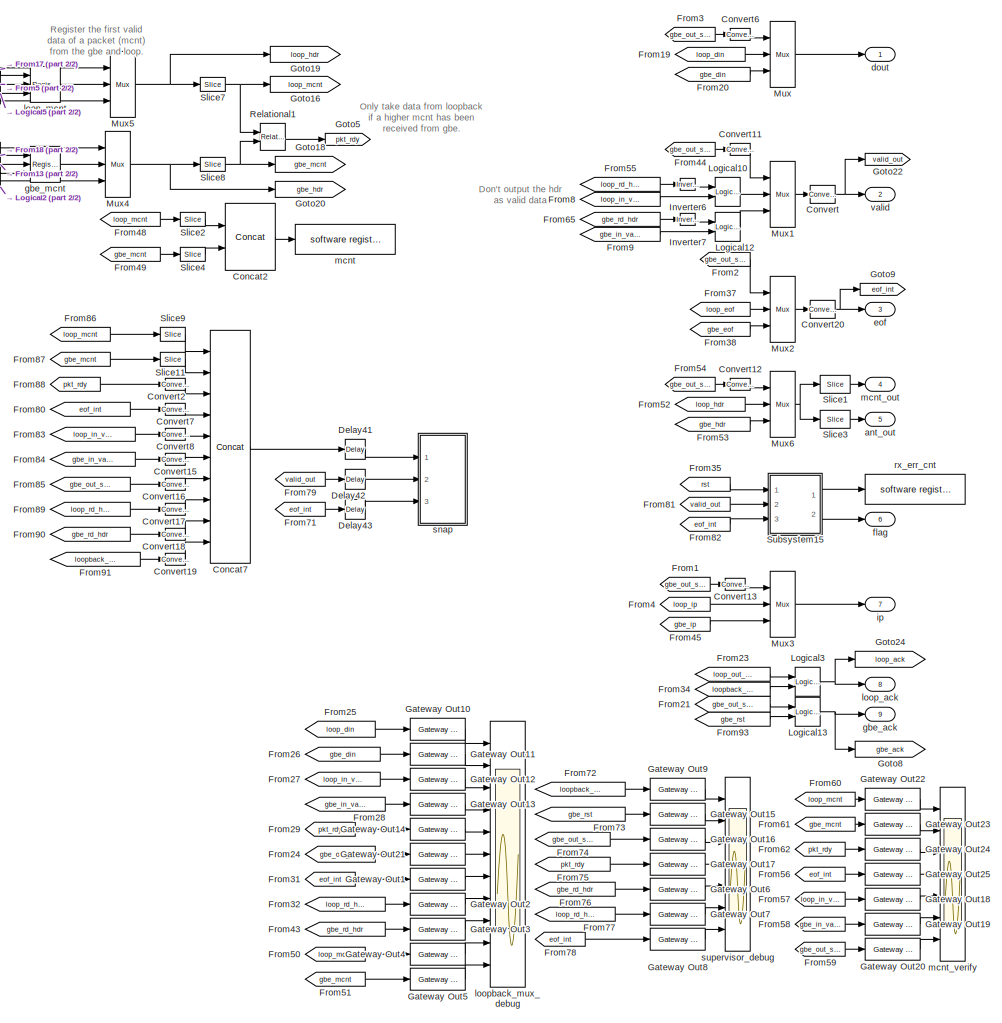
[diagram: loopback_poor_timing - part 1/2, right side, full height]
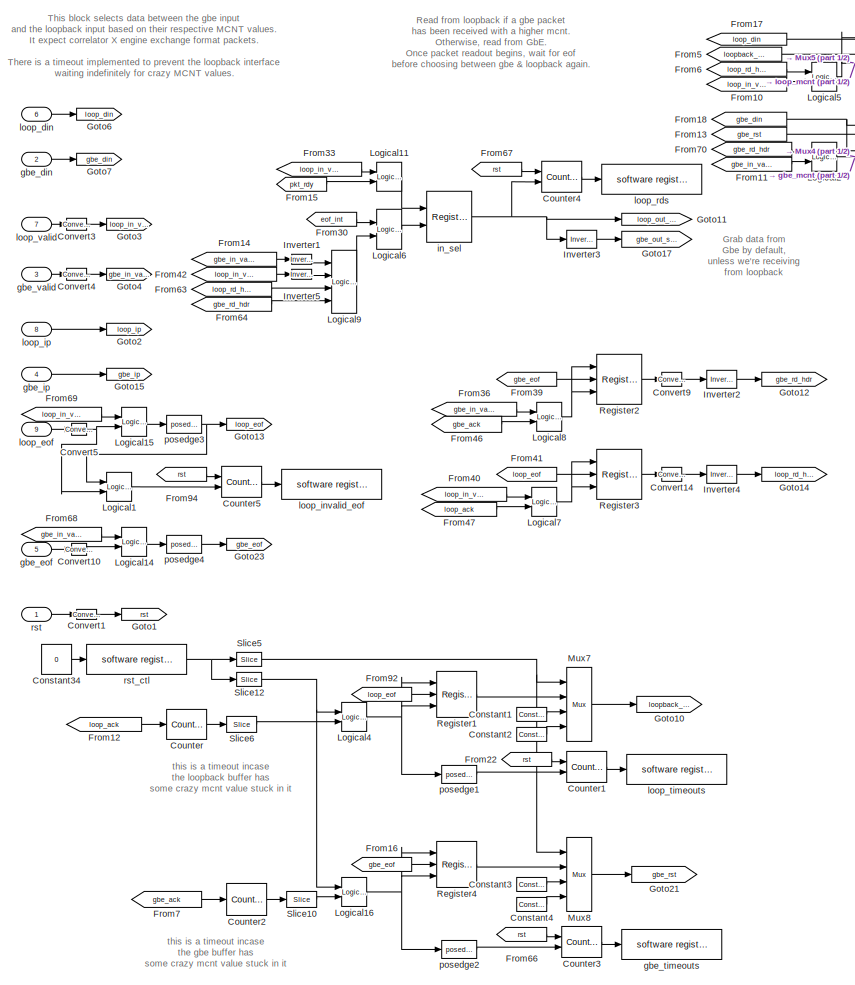
[diagram: loopback_poor_timing - part 2/2, left side, full height]
BLOCK [SubSystem] loopback_poor_timing
  AttributesFormatString = Payload Len: 50
  MaskCallbackString = |
  MaskEnableString = on,on
  MaskIconFrame = on
  MaskIconOpaque = on
  MaskIconRotate = none
  MaskIconUnits = autoscale
  MaskInitialization = fmtstr = sprintf('Payload Len: %i', payload_len);\nset_param(gcb, 'AttributesFormatString', fmtstr);\n
  MaskPromptString = Timeout (clock cycles, 2^?)|Expected payload length (in 64bit words)
  MaskStyleString = edit,edit
  MaskTabNameString = ,
  MaskToolTipString = on,on
  MaskTunableValueString = on,on
  MaskValueString = 27|50
  MaskVarAliasString = ,
  MaskVariables = timeout_bits=@1;payload_len=@2;
  MaskVisibilityString = on,on
  MinAlgLoopOccurrences = off
  Ports = [9, 9]
  RTWSystemCode = Auto
  TreatAsAtomicUnit = off
BLOCK [Reference] loopback_poor_timing/Concat2  REF=xbsIndex_r3/Concat
  Ports = [2, 1]
  SourceBlock = xbsIndex_r3/Concat
  SourceType = Xilinx Bus Concatenator
  dbl_ovrd = off
  explicit_period = off
  num_inputs = 2
  period = 1
BLOCK [Reference] loopback_poor_timing/Concat7  REF=xbsIndex_r3/Concat
  Ports = [10, 1]
  SourceBlock = xbsIndex_r3/Concat
  SourceType = Xilinx Bus Concatenator
  dbl_ovrd = off
  explicit_period = off
  num_inputs = 10
  period = 1
BLOCK [Reference] loopback_poor_timing/Constant1  REF=xbsIndex_r3/Constant
  Ports = [0, 1]
  SourceBlock = xbsIndex_r3/Constant
  SourceType = Xilinx Constant Block
  arith_type = Boolean
  bin_pt = 0
  carry = CIN
  const = 0
  dbl_ovrd = off
  equ = P=C
  explicit_period = on
  inp1 = P
  inp2 = PCIN>>17
  iostate = 0
  n_bits = 1
  opr = +
  opselect = C
  period = 1
BLOCK [Reference] loopback_poor_timing/Constant2  REF=xbsIndex_r3/Constant
  Ports = [0, 1]
  SourceBlock = xbsIndex_r3/Constant
  SourceType = Xilinx Constant Block
  arith_type = Boolean
  bin_pt = 0
  carry = CIN
  const = 1
  dbl_ovrd = off
  equ = P=C
  explicit_period = on
  inp1 = P
  inp2 = PCIN>>17
  iostate = 0
  n_bits = 1
  opr = +
  opselect = C
  period = 1
BLOCK [Reference] loopback_poor_timing/Constant3  REF=xbsIndex_r3/Constant
  Ports = [0, 1]
  SourceBlock = xbsIndex_r3/Constant
  SourceType = Xilinx Constant Block
  arith_type = Boolean
  bin_pt = 0
  carry = CIN
  const = 0
  dbl_ovrd = off
  equ = P=C
  explicit_period = on
  inp1 = P
  inp2 = PCIN>>17
  iostate = 0
  n_bits = 1
  opr = +
  opselect = C
  period = 1
BLOCK [Constant] loopback_poor_timing/Constant34
  Value = 0
BLOCK [Reference] loopback_poor_timing/Constant4  REF=xbsIndex_r3/Constant
  Ports = [0, 1]
  SourceBlock = xbsIndex_r3/Constant
  SourceType = Xilinx Constant Block
  arith_type = Boolean
  bin_pt = 0
  carry = CIN
  const = 1
  dbl_ovrd = off
  equ = P=C
  explicit_period = on
  inp1 = P
  inp2 = PCIN>>17
  iostate = 0
  n_bits = 1
  opr = +
  opselect = C
  period = 1
BLOCK [Reference] loopback_poor_timing/Convert  REF=xbsIndex_r3/Convert
  Ports = [1, 1]
  SourceBlock = xbsIndex_r3/Convert
  SourceType = Xilinx Converter Block
  arith_type = Boolean
  bin_pt = 6
  dbl_ovrd = off
  explicit_period = off
  inserted_by_tool = off
  latency = 0
  n_bits = 8
  overflow = Wrap
  period = 1
  pipeline = off
  quantization = Truncate
  show_param = off
  xl_area = [0, 0, 0, 0, 0, 0, 0]
  xl_use_area = off
BLOCK [Reference] loopback_poor_timing/Convert1  REF=xbsIndex_r3/Convert
  Ports = [1, 1]
  SourceBlock = xbsIndex_r3/Convert
  SourceType = Xilinx Converter Block
  arith_type = Boolean
  bin_pt = 6
  dbl_ovrd = off
  explicit_period = off
  inserted_by_tool = off
  latency = 0
  n_bits = 8
  overflow = Wrap
  period = 1
  pipeline = off
  quantization = Truncate
  show_param = off
  xl_area = [0, 0, 0, 0, 0, 0, 0]
  xl_use_area = off
BLOCK [Reference] loopback_poor_timing/Convert10  REF=xbsIndex_r3/Convert
  Ports = [1, 1]
  SourceBlock = xbsIndex_r3/Convert
  SourceType = Xilinx Converter Block
  arith_type = Boolean
  bin_pt = 0
  dbl_ovrd = off
  explicit_period = on
  inserted_by_tool = off
  latency = 0
  n_bits = 1
  overflow = Wrap
  period = 1
  pipeline = off
  quantization = Truncate
  show_param = off
  xl_area = [0, 0, 0, 0, 0, 0, 0]
  xl_use_area = off
BLOCK [Reference] loopback_poor_timing/Convert11  REF=xbsIndex_r3/Convert
  Ports = [1, 1]
  SourceBlock = xbsIndex_r3/Convert
  SourceType = Xilinx Converter Block
  arith_type = Unsigned
  bin_pt = 0
  dbl_ovrd = off
  explicit_period = off
  inserted_by_tool = off
  latency = 0
  n_bits = 1
  overflow = Wrap
  period = 1
  pipeline = off
  quantization = Truncate
  show_param = off
  xl_area = [0, 0, 0, 0, 0, 0, 0]
  xl_use_area = off
BLOCK [Reference] loopback_poor_timing/Convert12  REF=xbsIndex_r3/Convert
  Ports = [1, 1]
  SourceBlock = xbsIndex_r3/Convert
  SourceType = Xilinx Converter Block
  arith_type = Unsigned
  bin_pt = 0
  dbl_ovrd = off
  explicit_period = off
  inserted_by_tool = off
  latency = 0
  n_bits = 1
  overflow = Wrap
  period = 1
  pipeline = off
  quantization = Truncate
  show_param = off
  xl_area = [0, 0, 0, 0, 0, 0, 0]
  xl_use_area = off
BLOCK [Reference] loopback_poor_timing/Convert13  REF=xbsIndex_r3/Convert
  Ports = [1, 1]
  SourceBlock = xbsIndex_r3/Convert
  SourceType = Xilinx Converter Block
  arith_type = Unsigned
  bin_pt = 0
  dbl_ovrd = off
  explicit_period = off
  inserted_by_tool = off
  latency = 0
  n_bits = 1
  overflow = Wrap
  period = 1
  pipeline = off
  quantization = Truncate
  show_param = off
  xl_area = [0, 0, 0, 0, 0, 0, 0]
  xl_use_area = off
BLOCK [Reference] loopback_poor_timing/Convert14  REF=xbsIndex_r3/Convert
  Ports = [1, 1]
  SourceBlock = xbsIndex_r3/Convert
  SourceType = Xilinx Converter Block
  arith_type = Boolean
  bin_pt = 6
  dbl_ovrd = off
  explicit_period = off
  inserted_by_tool = off
  latency = 0
  n_bits = 8
  overflow = Wrap
  period = 1
  pipeline = off
  quantization = Truncate
  show_param = off
  xl_area = [0, 0, 0, 0, 0, 0, 0]
  xl_use_area = off
BLOCK [Reference] loopback_poor_timing/Convert15  REF=xbsIndex_r3/Convert
  Ports = [1, 1]
  SourceBlock = xbsIndex_r3/Convert
  SourceType = Xilinx Converter Block
  arith_type = Unsigned
  bin_pt = 0
  dbl_ovrd = off
  explicit_period = off
  inserted_by_tool = off
  latency = 0
  n_bits = 1
  overflow = Wrap
  period = 1
  pipeline = off
  quantization = Truncate
  show_param = off
  xl_area = [0, 0, 0, 0, 0, 0, 0]
  xl_use_area = off
BLOCK [Reference] loopback_poor_timing/Convert16  REF=xbsIndex_r3/Convert
  Ports = [1, 1]
  SourceBlock = xbsIndex_r3/Convert
  SourceType = Xilinx Converter Block
  arith_type = Unsigned
  bin_pt = 0
  dbl_ovrd = off
  explicit_period = off
  inserted_by_tool = off
  latency = 0
  n_bits = 1
  overflow = Wrap
  period = 1
  pipeline = off
  quantization = Truncate
  show_param = off
  xl_area = [0, 0, 0, 0, 0, 0, 0]
  xl_use_area = off
BLOCK [Reference] loopback_poor_timing/Convert17  REF=xbsIndex_r3/Convert
  Ports = [1, 1]
  SourceBlock = xbsIndex_r3/Convert
  SourceType = Xilinx Converter Block
  arith_type = Unsigned
  bin_pt = 0
  dbl_ovrd = off
  explicit_period = off
  inserted_by_tool = off
  latency = 0
  n_bits = 1
  overflow = Wrap
  period = 1
  pipeline = off
  quantization = Truncate
  show_param = off
  xl_area = [0, 0, 0, 0, 0, 0, 0]
  xl_use_area = off
BLOCK [Reference] loopback_poor_timing/Convert18  REF=xbsIndex_r3/Convert
  Ports = [1, 1]
  SourceBlock = xbsIndex_r3/Convert
  SourceType = Xilinx Converter Block
  arith_type = Unsigned
  bin_pt = 0
  dbl_ovrd = off
  explicit_period = off
  inserted_by_tool = off
  latency = 0
  n_bits = 1
  overflow = Wrap
  period = 1
  pipeline = off
  quantization = Truncate
  show_param = off
  xl_area = [0, 0, 0, 0, 0, 0, 0]
  xl_use_area = off
BLOCK [Reference] loopback_poor_timing/Convert19  REF=xbsIndex_r3/Convert
  Ports = [1, 1]
  SourceBlock = xbsIndex_r3/Convert
  SourceType = Xilinx Converter Block
  arith_type = Unsigned
  bin_pt = 0
  dbl_ovrd = off
  explicit_period = off
  inserted_by_tool = off
  latency = 0
  n_bits = 1
  overflow = Wrap
  period = 1
  pipeline = off
  quantization = Truncate
  show_param = off
  xl_area = [0, 0, 0, 0, 0, 0, 0]
  xl_use_area = off
BLOCK [Reference] loopback_poor_timing/Convert2  REF=xbsIndex_r3/Convert
  Ports = [1, 1]
  SourceBlock = xbsIndex_r3/Convert
  SourceType = Xilinx Converter Block
  arith_type = Unsigned
  bin_pt = 0
  dbl_ovrd = off
  explicit_period = off
  inserted_by_tool = off
  latency = 0
  n_bits = 1
  overflow = Wrap
  period = 1
  pipeline = off
  quantization = Truncate
  show_param = off
  xl_area = [0, 0, 0, 0, 0, 0, 0]
  xl_use_area = off
BLOCK [Reference] loopback_poor_timing/Convert20  REF=xbsIndex_r3/Convert
  Ports = [1, 1]
  SourceBlock = xbsIndex_r3/Convert
  SourceType = Xilinx Converter Block
  arith_type = Boolean
  bin_pt = 6
  dbl_ovrd = off
  explicit_period = off
  inserted_by_tool = off
  latency = 0
  n_bits = 8
  overflow = Wrap
  period = 1
  pipeline = off
  quantization = Truncate
  show_param = off
  xl_area = [0, 0, 0, 0, 0, 0, 0]
  xl_use_area = off
BLOCK [Reference] loopback_poor_timing/Convert3  REF=xbsIndex_r3/Convert
  Ports = [1, 1]
  SourceBlock = xbsIndex_r3/Convert
  SourceType = Xilinx Converter Block
  arith_type = Boolean
  bin_pt = 0
  dbl_ovrd = off
  explicit_period = on
  inserted_by_tool = off
  latency = 0
  n_bits = 1
  overflow = Wrap
  period = 1
  pipeline = off
  quantization = Truncate
  show_param = off
  xl_area = [0, 0, 0, 0, 0, 0, 0]
  xl_use_area = off
BLOCK [Reference] loopback_poor_timing/Convert4  REF=xbsIndex_r3/Convert
  Ports = [1, 1]
  SourceBlock = xbsIndex_r3/Convert
  SourceType = Xilinx Converter Block
  arith_type = Boolean
  bin_pt = 0
  dbl_ovrd = off
  explicit_period = on
  inserted_by_tool = off
  latency = 0
  n_bits = 1
  overflow = Wrap
  period = 1
  pipeline = off
  quantization = Truncate
  show_param = off
  xl_area = [0, 0, 0, 0, 0, 0, 0]
  xl_use_area = off
BLOCK [Reference] loopback_poor_timing/Convert5  REF=xbsIndex_r3/Convert
  Ports = [1, 1]
  SourceBlock = xbsIndex_r3/Convert
  SourceType = Xilinx Converter Block
  arith_type = Boolean
  bin_pt = 0
  dbl_ovrd = off
  explicit_period = on
  inserted_by_tool = off
  latency = 0
  n_bits = 1
  overflow = Wrap
  period = 1
  pipeline = off
  quantization = Truncate
  show_param = off
  xl_area = [0, 0, 0, 0, 0, 0, 0]
  xl_use_area = off
BLOCK [Reference] loopback_poor_timing/Convert6  REF=xbsIndex_r3/Convert
  Ports = [1, 1]
  SourceBlock = xbsIndex_r3/Convert
  SourceType = Xilinx Converter Block
  arith_type = Unsigned
  bin_pt = 0
  dbl_ovrd = off
  explicit_period = off
  inserted_by_tool = off
  latency = 0
  n_bits = 1
  overflow = Wrap
  period = 1
  pipeline = off
  quantization = Truncate
  show_param = off
  xl_area = [0, 0, 0, 0, 0, 0, 0]
  xl_use_area = off
BLOCK [Reference] loopback_poor_timing/Convert7  REF=xbsIndex_r3/Convert
  Ports = [1, 1]
  SourceBlock = xbsIndex_r3/Convert
  SourceType = Xilinx Converter Block
  arith_type = Unsigned
  bin_pt = 0
  dbl_ovrd = off
  explicit_period = off
  inserted_by_tool = off
  latency = 0
  n_bits = 1
  overflow = Wrap
  period = 1
  pipeline = off
  quantization = Truncate
  show_param = off
  xl_area = [0, 0, 0, 0, 0, 0, 0]
  xl_use_area = off
BLOCK [Reference] loopback_poor_timing/Convert8  REF=xbsIndex_r3/Convert
  Ports = [1, 1]
  SourceBlock = xbsIndex_r3/Convert
  SourceType = Xilinx Converter Block
  arith_type = Unsigned
  bin_pt = 0
  dbl_ovrd = off
  explicit_period = off
  inserted_by_tool = off
  latency = 0
  n_bits = 1
  overflow = Wrap
  period = 1
  pipeline = off
  quantization = Truncate
  show_param = off
  xl_area = [0, 0, 0, 0, 0, 0, 0]
  xl_use_area = off
BLOCK [Reference] loopback_poor_timing/Convert9  REF=xbsIndex_r3/Convert
  Ports = [1, 1]
  SourceBlock = xbsIndex_r3/Convert
  SourceType = Xilinx Converter Block
  arith_type = Boolean
  bin_pt = 6
  dbl_ovrd = off
  explicit_period = off
  inserted_by_tool = off
  latency = 0
  n_bits = 8
  overflow = Wrap
  period = 1
  pipeline = off
  quantization = Truncate
  show_param = off
  xl_area = [0, 0, 0, 0, 0, 0, 0]
  xl_use_area = off
BLOCK [Reference] loopback_poor_timing/Counter  REF=xbsIndex_r3/Counter
  Ports = [1, 1]
  SourceBlock = xbsIndex_r3/Counter
  SourceType = Xilinx Counter Block
  arith_type = Unsigned
  bin_pt = 0
  cnt_by_val = 1
  cnt_to = Inf
  cnt_type = Free Running
  dbl_ovrd = off
  en = off
  explicit_period = off
  gen_core = off
  load_pin = off
  n_bits = timeout_bits+1
  operation = Up
  period = 1
  rst = on
  show_param = off
  start_count = 0
  use_rpm = on
  xl_area = [0, 0, 0, 0, 0, 0, 0]
  xl_use_area = off
BLOCK [Reference] loopback_poor_timing/Counter1  REF=xbsIndex_r3/Counter
  Ports = [2, 1]
  SourceBlock = xbsIndex_r3/Counter
  SourceType = Xilinx Counter Block
  arith_type = Unsigned
  bin_pt = 0
  cnt_by_val = 1
  cnt_to = Inf
  cnt_type = Free Running
  dbl_ovrd = off
  en = on
  explicit_period = off
  gen_core = off
  load_pin = off
  n_bits = 27
  operation = Up
  period = 1
  rst = on
  show_param = off
  start_count = 0
  use_rpm = on
  xl_area = [0, 0, 0, 0, 0, 0, 0]
  xl_use_area = off
BLOCK [Reference] loopback_poor_timing/Counter2  REF=xbsIndex_r3/Counter
  Ports = [1, 1]
  SourceBlock = xbsIndex_r3/Counter
  SourceType = Xilinx Counter Block
  arith_type = Unsigned
  bin_pt = 0
  cnt_by_val = 1
  cnt_to = Inf
  cnt_type = Free Running
  dbl_ovrd = off
  en = off
  explicit_period = off
  gen_core = off
  load_pin = off
  n_bits = timeout_bits+1
  operation = Up
  period = 1
  rst = on
  show_param = off
  start_count = 0
  use_rpm = on
  xl_area = [0, 0, 0, 0, 0, 0, 0]
  xl_use_area = off
BLOCK [Reference] loopback_poor_timing/Counter3  REF=xbsIndex_r3/Counter
  Ports = [2, 1]
  SourceBlock = xbsIndex_r3/Counter
  SourceType = Xilinx Counter Block
  arith_type = Unsigned
  bin_pt = 0
  cnt_by_val = 1
  cnt_to = Inf
  cnt_type = Free Running
  dbl_ovrd = off
  en = on
  explicit_period = off
  gen_core = off
  load_pin = off
  n_bits = 27
  operation = Up
  period = 1
  rst = on
  show_param = off
  start_count = 0
  use_rpm = on
  xl_area = [0, 0, 0, 0, 0, 0, 0]
  xl_use_area = off
BLOCK [Reference] loopback_poor_timing/Counter4  REF=xbsIndex_r3/Counter
  Ports = [2, 1]
  SourceBlock = xbsIndex_r3/Counter
  SourceType = Xilinx Counter Block
  arith_type = Unsigned
  bin_pt = 0
  cnt_by_val = 1
  cnt_to = Inf
  cnt_type = Free Running
  dbl_ovrd = off
  en = on
  explicit_period = off
  gen_core = off
  load_pin = off
  n_bits = 27
  operation = Up
  period = 1
  rst = on
  show_param = off
  start_count = 0
  use_rpm = on
  xl_area = [0, 0, 0, 0, 0, 0, 0]
  xl_use_area = off
BLOCK [Reference] loopback_poor_timing/Counter5  REF=xbsIndex_r3/Counter
  Ports = [2, 1]
  SourceBlock = xbsIndex_r3/Counter
  SourceType = Xilinx Counter Block
  arith_type = Unsigned
  bin_pt = 0
  cnt_by_val = 1
  cnt_to = Inf
  cnt_type = Free Running
  dbl_ovrd = off
  en = on
  explicit_period = off
  gen_core = off
  load_pin = off
  n_bits = 27
  operation = Up
  period = 1
  rst = on
  show_param = off
  start_count = 0
  use_rpm = on
  xl_area = [0, 0, 0, 0, 0, 0, 0]
  xl_use_area = off
BLOCK [Reference] loopback_poor_timing/Delay41  REF=xbsIndex_r3/Delay
  Ports = [1, 1]
  SourceBlock = xbsIndex_r3/Delay
  SourceType = Xilinx Delay Block
  accept_only_valid = off
  dbl_ovrd = off
  en = off
  explicit_period = on
  init_zero = on
  latency = 2
  period = 1
  reg_retiming = on
  show_param = off
  xl_area = [0, 0, 0, 0, 0, 0, 0]
  xl_use_area = off
BLOCK [Reference] loopback_poor_timing/Delay42  REF=xbsIndex_r3/Delay
  Ports = [1, 1]
  SourceBlock = xbsIndex_r3/Delay
  SourceType = Xilinx Delay Block
  accept_only_valid = off
  dbl_ovrd = off
  en = off
  explicit_period = on
  init_zero = on
  latency = 2
  period = 1
  reg_retiming = on
  show_param = off
  xl_area = [0, 0, 0, 0, 0, 0, 0]
  xl_use_area = off
BLOCK [Reference] loopback_poor_timing/Delay43  REF=xbsIndex_r3/Delay
  Ports = [1, 1]
  SourceBlock = xbsIndex_r3/Delay
  SourceType = Xilinx Delay Block
  accept_only_valid = off
  dbl_ovrd = off
  en = off
  explicit_period = on
  init_zero = on
  latency = 2
  period = 1
  reg_retiming = on
  show_param = off
  xl_area = [0, 0, 0, 0, 0, 0, 0]
  xl_use_area = off
BLOCK [From] loopback_poor_timing/From1
  CloseFcn = tagdialog Close
  GotoTag = gbe_out_sel
BLOCK [From] loopback_poor_timing/From10
  CloseFcn = tagdialog Close
  GotoTag = loop_in_valid
BLOCK [From] loopback_poor_timing/From11
  CloseFcn = tagdialog Close
  GotoTag = gbe_in_valid
BLOCK [From] loopback_poor_timing/From12
  CloseFcn = tagdialog Close
  GotoTag = loop_ack
BLOCK [From] loopback_poor_timing/From13
  CloseFcn = tagdialog Close
  GotoTag = gbe_rst
BLOCK [From] loopback_poor_timing/From14
  CloseFcn = tagdialog Close
  GotoTag = gbe_in_valid
BLOCK [From] loopback_poor_timing/From15
  CloseFcn = tagdialog Close
  GotoTag = pkt_rdy
BLOCK [From] loopback_poor_timing/From16
  CloseFcn = tagdialog Close
  GotoTag = gbe_eof
BLOCK [From] loopback_poor_timing/From17
  CloseFcn = tagdialog Close
  GotoTag = loop_din
BLOCK [From] loopback_poor_timing/From18
  CloseFcn = tagdialog Close
  GotoTag = gbe_din
BLOCK [From] loopback_poor_timing/From19
  CloseFcn = tagdialog Close
  GotoTag = loop_din
BLOCK [From] loopback_poor_timing/From2
  CloseFcn = tagdialog Close
  GotoTag = gbe_out_sel
BLOCK [From] loopback_poor_timing/From20
  CloseFcn = tagdialog Close
  GotoTag = gbe_din
BLOCK [From] loopback_poor_timing/From21
  CloseFcn = tagdialog Close
  GotoTag = gbe_out_sel
BLOCK [From] loopback_poor_timing/From22
  CloseFcn = tagdialog Close
  GotoTag = rst
BLOCK [From] loopback_poor_timing/From23
  CloseFcn = tagdialog Close
  GotoTag = loop_out_sel
BLOCK [From] loopback_poor_timing/From24
  CloseFcn = tagdialog Close
  GotoTag = gbe_out_sel
BLOCK [From] loopback_poor_timing/From25
  CloseFcn = tagdialog Close
  GotoTag = loop_din
BLOCK [From] loopback_poor_timing/From26
  CloseFcn = tagdialog Close
  GotoTag = gbe_din
BLOCK [From] loopback_poor_timing/From27
  CloseFcn = tagdialog Close
  GotoTag = loop_in_valid
BLOCK [From] loopback_poor_timing/From28
  CloseFcn = tagdialog Close
  GotoTag = gbe_in_valid
BLOCK [From] loopback_poor_timing/From29
  CloseFcn = tagdialog Close
  GotoTag = pkt_rdy
BLOCK [From] loopback_poor_timing/From3
  CloseFcn = tagdialog Close
  GotoTag = gbe_out_sel
BLOCK [From] loopback_poor_timing/From30
  CloseFcn = tagdialog Close
  GotoTag = eof_int
BLOCK [From] loopback_poor_timing/From31
  CloseFcn = tagdialog Close
  GotoTag = eof_int
BLOCK [From] loopback_poor_timing/From32
  CloseFcn = tagdialog Close
  GotoTag = loop_rd_hdr
BLOCK [From] loopback_poor_timing/From33
  CloseFcn = tagdialog Close
  GotoTag = loop_in_valid
BLOCK [From] loopback_poor_timing/From34
  CloseFcn = tagdialog Close
  GotoTag = loopback_rst
BLOCK [From] loopback_poor_timing/From35
  CloseFcn = tagdialog Close
  GotoTag = rst
BLOCK [From] loopback_poor_timing/From36
  CloseFcn = tagdialog Close
  GotoTag = gbe_in_valid
BLOCK [From] loopback_poor_timing/From37
  CloseFcn = tagdialog Close
  GotoTag = loop_eof
BLOCK [From] loopback_poor_timing/From38
  CloseFcn = tagdialog Close
  GotoTag = gbe_eof
BLOCK [From] loopback_poor_timing/From39
  CloseFcn = tagdialog Close
  GotoTag = gbe_eof
BLOCK [From] loopback_poor_timing/From4
  CloseFcn = tagdialog Close
  GotoTag = loop_ip
BLOCK [From] loopback_poor_timing/From40
  CloseFcn = tagdialog Close
  GotoTag = loop_in_valid
BLOCK [From] loopback_poor_timing/From41
  CloseFcn = tagdialog Close
  GotoTag = loop_eof
BLOCK [From] loopback_poor_timing/From42
  CloseFcn = tagdialog Close
  GotoTag = loop_in_valid
BLOCK [From] loopback_poor_timing/From43
  CloseFcn = tagdialog Close
  GotoTag = gbe_rd_hdr
BLOCK [From] loopback_poor_timing/From44
  CloseFcn = tagdialog Close
  GotoTag = gbe_out_sel
BLOCK [From] loopback_poor_timing/From45
  CloseFcn = tagdialog Close
  GotoTag = gbe_ip
BLOCK [From] loopback_poor_timing/From46
  CloseFcn = tagdialog Close
  GotoTag = gbe_ack
BLOCK [From] loopback_poor_timing/From47
  CloseFcn = tagdialog Close
  GotoTag = loop_ack
BLOCK [From] loopback_poor_timing/From48
  CloseFcn = tagdialog Close
  GotoTag = loop_mcnt
BLOCK [From] loopback_poor_timing/From49
  CloseFcn = tagdialog Close
  GotoTag = gbe_mcnt
BLOCK [From] loopback_poor_timing/From5
  CloseFcn = tagdialog Close
  GotoTag = loopback_rst
BLOCK [From] loopback_poor_timing/From50
  CloseFcn = tagdialog Close
  GotoTag = loop_mcnt
BLOCK [From] loopback_poor_timing/From51
  CloseFcn = tagdialog Close
  GotoTag = gbe_mcnt
BLOCK [From] loopback_poor_timing/From52
  CloseFcn = tagdialog Close
  GotoTag = loop_hdr
BLOCK [From] loopback_poor_timing/From53
  CloseFcn = tagdialog Close
  GotoTag = gbe_hdr
BLOCK [From] loopback_poor_timing/From54
  CloseFcn = tagdialog Close
  GotoTag = gbe_out_sel
BLOCK [From] loopback_poor_timing/From55
  CloseFcn = tagdialog Close
  GotoTag = loop_rd_hdr
BLOCK [From] loopback_poor_timing/From56
  CloseFcn = tagdialog Close
  GotoTag = eof_int
BLOCK [From] loopback_poor_timing/From57
  CloseFcn = tagdialog Close
  GotoTag = loop_in_valid
BLOCK [From] loopback_poor_timing/From58
  CloseFcn = tagdialog Close
  GotoTag = gbe_in_valid
BLOCK [From] loopback_poor_timing/From59
  CloseFcn = tagdialog Close
  GotoTag = gbe_out_sel
BLOCK [From] loopback_poor_timing/From6
  CloseFcn = tagdialog Close
  GotoTag = loop_rd_hdr
BLOCK [From] loopback_poor_timing/From60
  CloseFcn = tagdialog Close
  GotoTag = loop_mcnt
BLOCK [From] loopback_poor_timing/From61
  CloseFcn = tagdialog Close
  GotoTag = gbe_mcnt
BLOCK [From] loopback_poor_timing/From62
  CloseFcn = tagdialog Close
  GotoTag = pkt_rdy
BLOCK [From] loopback_poor_timing/From63
  CloseFcn = tagdialog Close
  GotoTag = loop_rd_hdr
BLOCK [From] loopback_poor_timing/From64
  CloseFcn = tagdialog Close
  GotoTag = gbe_rd_hdr
BLOCK [From] loopback_poor_timing/From65
  CloseFcn = tagdialog Close
  GotoTag = gbe_rd_hdr
BLOCK [From] loopback_poor_timing/From66
  CloseFcn = tagdialog Close
  GotoTag = rst
BLOCK [From] loopback_poor_timing/From67
  CloseFcn = tagdialog Close
  GotoTag = rst
BLOCK [From] loopback_poor_timing/From68
  CloseFcn = tagdialog Close
  GotoTag = gbe_in_valid
BLOCK [From] loopback_poor_timing/From69
  CloseFcn = tagdialog Close
  GotoTag = loop_in_valid
BLOCK [From] loopback_poor_timing/From7
  CloseFcn = tagdialog Close
  GotoTag = gbe_ack
BLOCK [From] loopback_poor_timing/From70
  CloseFcn = tagdialog Close
  GotoTag = gbe_rd_hdr
BLOCK [From] loopback_poor_timing/From71
  CloseFcn = tagdialog Close
  GotoTag = eof_int
BLOCK [From] loopback_poor_timing/From72
  CloseFcn = tagdialog Close
  GotoTag = loopback_rst
BLOCK [From] loopback_poor_timing/From73
  CloseFcn = tagdialog Close
  GotoTag = gbe_rst
BLOCK [From] loopback_poor_timing/From74
  CloseFcn = tagdialog Close
  GotoTag = gbe_out_sel
BLOCK [From] loopback_poor_timing/From75
  CloseFcn = tagdialog Close
  GotoTag = pkt_rdy
BLOCK [From] loopback_poor_timing/From76
  CloseFcn = tagdialog Close
  GotoTag = gbe_rd_hdr
BLOCK [From] loopback_poor_timing/From77
  CloseFcn = tagdialog Close
  GotoTag = loop_rd_hdr
BLOCK [From] loopback_poor_timing/From78
  CloseFcn = tagdialog Close
  GotoTag = eof_int
BLOCK [From] loopback_poor_timing/From79
  CloseFcn = tagdialog Close
  GotoTag = valid_out
BLOCK [From] loopback_poor_timing/From8
  CloseFcn = tagdialog Close
  GotoTag = loop_in_valid
BLOCK [From] loopback_poor_timing/From80
  CloseFcn = tagdialog Close
  GotoTag = eof_int
BLOCK [From] loopback_poor_timing/From81
  CloseFcn = tagdialog Close
  GotoTag = valid_out
BLOCK [From] loopback_poor_timing/From82
  CloseFcn = tagdialog Close
  GotoTag = eof_int
BLOCK [From] loopback_poor_timing/From83
  CloseFcn = tagdialog Close
  GotoTag = loop_in_valid
BLOCK [From] loopback_poor_timing/From84
  CloseFcn = tagdialog Close
  GotoTag = gbe_in_valid
BLOCK [From] loopback_poor_timing/From85
  CloseFcn = tagdialog Close
  GotoTag = gbe_out_sel
BLOCK [From] loopback_poor_timing/From86
  CloseFcn = tagdialog Close
  GotoTag = loop_mcnt
BLOCK [From] loopback_poor_timing/From87
  CloseFcn = tagdialog Close
  GotoTag = gbe_mcnt
BLOCK [From] loopback_poor_timing/From88
  CloseFcn = tagdialog Close
  GotoTag = pkt_rdy
BLOCK [From] loopback_poor_timing/From89
  CloseFcn = tagdialog Close
  GotoTag = loop_rd_hdr
BLOCK [From] loopback_poor_timing/From9
  CloseFcn = tagdialog Close
  GotoTag = gbe_in_valid
BLOCK [From] loopback_poor_timing/From90
  CloseFcn = tagdialog Close
  GotoTag = gbe_rd_hdr
BLOCK [From] loopback_poor_timing/From91
  CloseFcn = tagdialog Close
  GotoTag = loopback_rst
BLOCK [From] loopback_poor_timing/From92
  CloseFcn = tagdialog Close
  GotoTag = loop_eof
BLOCK [From] loopback_poor_timing/From93
  CloseFcn = tagdialog Close
  GotoTag = gbe_rst
BLOCK [From] loopback_poor_timing/From94
  CloseFcn = tagdialog Close
  GotoTag = rst
BLOCK [Reference] loopback_poor_timing/Gateway Out1  REF=xbsIndex_r3/Gateway Out
  LOCs = {}
  Ports = [1, 1]
  SourceBlock = xbsIndex_r3/Gateway Out
  SourceType = Xilinx Gateway Out
  arith_type = Boolean
  bin_pt = 6
  hdl_port = on
  locs_specified = off
  nbits = 8
  needs_fixed_name = off
  output_type = Double
  overflow = Wrap
  quantization = Truncate
  show_param = off
  timing_constraint = None
  xl_area = [0, 0, 0, 0, 0, 0, 0]
  xl_use_area = off
BLOCK [Reference] loopback_poor_timing/Gateway Out10  REF=xbsIndex_r3/Gateway Out
  LOCs = {}
  Ports = [1, 1]
  SourceBlock = xbsIndex_r3/Gateway Out
  SourceType = Xilinx Gateway Out
  arith_type = Boolean
  bin_pt = 6
  hdl_port = on
  locs_specified = off
  nbits = 8
  needs_fixed_name = off
  output_type = Double
  overflow = Wrap
  quantization = Truncate
  show_param = off
  timing_constraint = None
  xl_area = [0, 0, 0, 0, 0, 0, 0]
  xl_use_area = off
BLOCK [Reference] loopback_poor_timing/Gateway Out11  REF=xbsIndex_r3/Gateway Out
  LOCs = {}
  Ports = [1, 1]
  SourceBlock = xbsIndex_r3/Gateway Out
  SourceType = Xilinx Gateway Out
  arith_type = Boolean
  bin_pt = 6
  hdl_port = on
  locs_specified = off
  nbits = 8
  needs_fixed_name = off
  output_type = Double
  overflow = Wrap
  quantization = Truncate
  show_param = off
  timing_constraint = None
  xl_area = [0, 0, 0, 0, 0, 0, 0]
  xl_use_area = off
BLOCK [Reference] loopback_poor_timing/Gateway Out12  REF=xbsIndex_r3/Gateway Out
  LOCs = {}
  Ports = [1, 1]
  SourceBlock = xbsIndex_r3/Gateway Out
  SourceType = Xilinx Gateway Out
  arith_type = Boolean
  bin_pt = 6
  hdl_port = on
  locs_specified = off
  nbits = 8
  needs_fixed_name = off
  output_type = Double
  overflow = Wrap
  quantization = Truncate
  show_param = off
  timing_constraint = None
  xl_area = [0, 0, 0, 0, 0, 0, 0]
  xl_use_area = off
BLOCK [Reference] loopback_poor_timing/Gateway Out13  REF=xbsIndex_r3/Gateway Out
  LOCs = {}
  Ports = [1, 1]
  SourceBlock = xbsIndex_r3/Gateway Out
  SourceType = Xilinx Gateway Out
  arith_type = Boolean
  bin_pt = 6
  hdl_port = on
  locs_specified = off
  nbits = 8
  needs_fixed_name = off
  output_type = Double
  overflow = Wrap
  quantization = Truncate
  show_param = off
  timing_constraint = None
  xl_area = [0, 0, 0, 0, 0, 0, 0]
  xl_use_area = off
BLOCK [Reference] loopback_poor_timing/Gateway Out14  REF=xbsIndex_r3/Gateway Out
  LOCs = {}
  Ports = [1, 1]
  SourceBlock = xbsIndex_r3/Gateway Out
  SourceType = Xilinx Gateway Out
  arith_type = Boolean
  bin_pt = 6
  hdl_port = on
  locs_specified = off
  nbits = 8
  needs_fixed_name = off
  output_type = Double
  overflow = Wrap
  quantization = Truncate
  show_param = off
  timing_constraint = None
  xl_area = [0, 0, 0, 0, 0, 0, 0]
  xl_use_area = off
BLOCK [Reference] loopback_poor_timing/Gateway Out15  REF=xbsIndex_r3/Gateway Out
  LOCs = {}
  Ports = [1, 1]
  SourceBlock = xbsIndex_r3/Gateway Out
  SourceType = Xilinx Gateway Out
  arith_type = Boolean
  bin_pt = 6
  hdl_port = on
  locs_specified = off
  nbits = 8
  needs_fixed_name = off
  output_type = Double
  overflow = Wrap
  quantization = Truncate
  show_param = off
  timing_constraint = None
  xl_area = [0, 0, 0, 0, 0, 0, 0]
  xl_use_area = off
BLOCK [Reference] loopback_poor_timing/Gateway Out16  REF=xbsIndex_r3/Gateway Out
  LOCs = {}
  Ports = [1, 1]
  SourceBlock = xbsIndex_r3/Gateway Out
  SourceType = Xilinx Gateway Out
  arith_type = Boolean
  bin_pt = 6
  hdl_port = on
  locs_specified = off
  nbits = 8
  needs_fixed_name = off
  output_type = Double
  overflow = Wrap
  quantization = Truncate
  show_param = off
  timing_constraint = None
  xl_area = [0, 0, 0, 0, 0, 0, 0]
  xl_use_area = off
BLOCK [Reference] loopback_poor_timing/Gateway Out17  REF=xbsIndex_r3/Gateway Out
  LOCs = {}
  Ports = [1, 1]
  SourceBlock = xbsIndex_r3/Gateway Out
  SourceType = Xilinx Gateway Out
  arith_type = Boolean
  bin_pt = 6
  hdl_port = on
  locs_specified = off
  nbits = 8
  needs_fixed_name = off
  output_type = Double
  overflow = Wrap
  quantization = Truncate
  show_param = off
  timing_constraint = None
  xl_area = [0, 0, 0, 0, 0, 0, 0]
  xl_use_area = off
BLOCK [Reference] loopback_poor_timing/Gateway Out18  REF=xbsIndex_r3/Gateway Out
  LOCs = {}
  Ports = [1, 1]
  SourceBlock = xbsIndex_r3/Gateway Out
  SourceType = Xilinx Gateway Out
  arith_type = Boolean
  bin_pt = 6
  hdl_port = on
  locs_specified = off
  nbits = 8
  needs_fixed_name = off
  output_type = Double
  overflow = Wrap
  quantization = Truncate
  show_param = off
  timing_constraint = None
  xl_area = [0, 0, 0, 0, 0, 0, 0]
  xl_use_area = off
BLOCK [Reference] loopback_poor_timing/Gateway Out19  REF=xbsIndex_r3/Gateway Out
  LOCs = {}
  Ports = [1, 1]
  SourceBlock = xbsIndex_r3/Gateway Out
  SourceType = Xilinx Gateway Out
  arith_type = Boolean
  bin_pt = 6
  hdl_port = on
  locs_specified = off
  nbits = 8
  needs_fixed_name = off
  output_type = Double
  overflow = Wrap
  quantization = Truncate
  show_param = off
  timing_constraint = None
  xl_area = [0, 0, 0, 0, 0, 0, 0]
  xl_use_area = off
BLOCK [Reference] loopback_poor_timing/Gateway Out2  REF=xbsIndex_r3/Gateway Out
  LOCs = {}
  Ports = [1, 1]
  SourceBlock = xbsIndex_r3/Gateway Out
  SourceType = Xilinx Gateway Out
  arith_type = Boolean
  bin_pt = 6
  hdl_port = on
  locs_specified = off
  nbits = 8
  needs_fixed_name = off
  output_type = Double
  overflow = Wrap
  quantization = Truncate
  show_param = off
  timing_constraint = None
  xl_area = [0, 0, 0, 0, 0, 0, 0]
  xl_use_area = off
BLOCK [Reference] loopback_poor_timing/Gateway Out20  REF=xbsIndex_r3/Gateway Out
  LOCs = {}
  Ports = [1, 1]
  SourceBlock = xbsIndex_r3/Gateway Out
  SourceType = Xilinx Gateway Out
  arith_type = Boolean
  bin_pt = 6
  hdl_port = on
  locs_specified = off
  nbits = 8
  needs_fixed_name = off
  output_type = Double
  overflow = Wrap
  quantization = Truncate
  show_param = off
  timing_constraint = None
  xl_area = [0, 0, 0, 0, 0, 0, 0]
  xl_use_area = off
BLOCK [Reference] loopback_poor_timing/Gateway Out21  REF=xbsIndex_r3/Gateway Out
  LOCs = {}
  Ports = [1, 1]
  SourceBlock = xbsIndex_r3/Gateway Out
  SourceType = Xilinx Gateway Out
  arith_type = Boolean
  bin_pt = 6
  hdl_port = on
  locs_specified = off
  nbits = 8
  needs_fixed_name = off
  output_type = Double
  overflow = Wrap
  quantization = Truncate
  show_param = off
  timing_constraint = None
  xl_area = [0, 0, 0, 0, 0, 0, 0]
  xl_use_area = off
BLOCK [Reference] loopback_poor_timing/Gateway Out22  REF=xbsIndex_r3/Gateway Out
  LOCs = {}
  Ports = [1, 1]
  SourceBlock = xbsIndex_r3/Gateway Out
  SourceType = Xilinx Gateway Out
  arith_type = Boolean
  bin_pt = 6
  hdl_port = on
  locs_specified = off
  nbits = 8
  needs_fixed_name = off
  output_type = Double
  overflow = Wrap
  quantization = Truncate
  show_param = off
  timing_constraint = None
  xl_area = [0, 0, 0, 0, 0, 0, 0]
  xl_use_area = off
BLOCK [Reference] loopback_poor_timing/Gateway Out23  REF=xbsIndex_r3/Gateway Out
  LOCs = {}
  Ports = [1, 1]
  SourceBlock = xbsIndex_r3/Gateway Out
  SourceType = Xilinx Gateway Out
  arith_type = Boolean
  bin_pt = 6
  hdl_port = on
  locs_specified = off
  nbits = 8
  needs_fixed_name = off
  output_type = Double
  overflow = Wrap
  quantization = Truncate
  show_param = off
  timing_constraint = None
  xl_area = [0, 0, 0, 0, 0, 0, 0]
  xl_use_area = off
BLOCK [Reference] loopback_poor_timing/Gateway Out24  REF=xbsIndex_r3/Gateway Out
  LOCs = {}
  Ports = [1, 1]
  SourceBlock = xbsIndex_r3/Gateway Out
  SourceType = Xilinx Gateway Out
  arith_type = Boolean
  bin_pt = 6
  hdl_port = on
  locs_specified = off
  nbits = 8
  needs_fixed_name = off
  output_type = Double
  overflow = Wrap
  quantization = Truncate
  show_param = off
  timing_constraint = None
  xl_area = [0, 0, 0, 0, 0, 0, 0]
  xl_use_area = off
BLOCK [Reference] loopback_poor_timing/Gateway Out25  REF=xbsIndex_r3/Gateway Out
  LOCs = {}
  Ports = [1, 1]
  SourceBlock = xbsIndex_r3/Gateway Out
  SourceType = Xilinx Gateway Out
  arith_type = Boolean
  bin_pt = 6
  hdl_port = on
  locs_specified = off
  nbits = 8
  needs_fixed_name = off
  output_type = Double
  overflow = Wrap
  quantization = Truncate
  show_param = off
  timing_constraint = None
  xl_area = [0, 0, 0, 0, 0, 0, 0]
  xl_use_area = off
BLOCK [Reference] loopback_poor_timing/Gateway Out3  REF=xbsIndex_r3/Gateway Out
  LOCs = {}
  Ports = [1, 1]
  SourceBlock = xbsIndex_r3/Gateway Out
  SourceType = Xilinx Gateway Out
  arith_type = Boolean
  bin_pt = 6
  hdl_port = on
  locs_specified = off
  nbits = 8
  needs_fixed_name = off
  output_type = Double
  overflow = Wrap
  quantization = Truncate
  show_param = off
  timing_constraint = None
  xl_area = [0, 0, 0, 0, 0, 0, 0]
  xl_use_area = off
BLOCK [Reference] loopback_poor_timing/Gateway Out4  REF=xbsIndex_r3/Gateway Out
  LOCs = {}
  Ports = [1, 1]
  SourceBlock = xbsIndex_r3/Gateway Out
  SourceType = Xilinx Gateway Out
  arith_type = Boolean
  bin_pt = 6
  hdl_port = on
  locs_specified = off
  nbits = 8
  needs_fixed_name = off
  output_type = Double
  overflow = Wrap
  quantization = Truncate
  show_param = off
  timing_constraint = None
  xl_area = [0, 0, 0, 0, 0, 0, 0]
  xl_use_area = off
BLOCK [Reference] loopback_poor_timing/Gateway Out5  REF=xbsIndex_r3/Gateway Out
  LOCs = {}
  Ports = [1, 1]
  SourceBlock = xbsIndex_r3/Gateway Out
  SourceType = Xilinx Gateway Out
  arith_type = Boolean
  bin_pt = 6
  hdl_port = on
  locs_specified = off
  nbits = 8
  needs_fixed_name = off
  output_type = Double
  overflow = Wrap
  quantization = Truncate
  show_param = off
  timing_constraint = None
  xl_area = [0, 0, 0, 0, 0, 0, 0]
  xl_use_area = off
BLOCK [Reference] loopback_poor_timing/Gateway Out6  REF=xbsIndex_r3/Gateway Out
  LOCs = {}
  Ports = [1, 1]
  SourceBlock = xbsIndex_r3/Gateway Out
  SourceType = Xilinx Gateway Out
  arith_type = Boolean
  bin_pt = 6
  hdl_port = on
  locs_specified = off
  nbits = 8
  needs_fixed_name = off
  output_type = Double
  overflow = Wrap
  quantization = Truncate
  show_param = off
  timing_constraint = None
  xl_area = [0, 0, 0, 0, 0, 0, 0]
  xl_use_area = off
BLOCK [Reference] loopback_poor_timing/Gateway Out7  REF=xbsIndex_r3/Gateway Out
  LOCs = {}
  Ports = [1, 1]
  SourceBlock = xbsIndex_r3/Gateway Out
  SourceType = Xilinx Gateway Out
  arith_type = Boolean
  bin_pt = 6
  hdl_port = on
  locs_specified = off
  nbits = 8
  needs_fixed_name = off
  output_type = Double
  overflow = Wrap
  quantization = Truncate
  show_param = off
  timing_constraint = None
  xl_area = [0, 0, 0, 0, 0, 0, 0]
  xl_use_area = off
BLOCK [Reference] loopback_poor_timing/Gateway Out8  REF=xbsIndex_r3/Gateway Out
  LOCs = {}
  Ports = [1, 1]
  SourceBlock = xbsIndex_r3/Gateway Out
  SourceType = Xilinx Gateway Out
  arith_type = Boolean
  bin_pt = 6
  hdl_port = on
  locs_specified = off
  nbits = 8
  needs_fixed_name = off
  output_type = Double
  overflow = Wrap
  quantization = Truncate
  show_param = off
  timing_constraint = None
  xl_area = [0, 0, 0, 0, 0, 0, 0]
  xl_use_area = off
BLOCK [Reference] loopback_poor_timing/Gateway Out9  REF=xbsIndex_r3/Gateway Out
  LOCs = {}
  Ports = [1, 1]
  SourceBlock = xbsIndex_r3/Gateway Out
  SourceType = Xilinx Gateway Out
  arith_type = Boolean
  bin_pt = 6
  hdl_port = on
  locs_specified = off
  nbits = 8
  needs_fixed_name = off
  output_type = Double
  overflow = Wrap
  quantization = Truncate
  show_param = off
  timing_constraint = None
  xl_area = [0, 0, 0, 0, 0, 0, 0]
  xl_use_area = off
BLOCK [Goto] loopback_poor_timing/Goto1
  GotoTag = rst
  TagVisibility = local
BLOCK [Goto] loopback_poor_timing/Goto10
  GotoTag = loopback_rst
  TagVisibility = local
BLOCK [Goto] loopback_poor_timing/Goto11
  GotoTag = loop_out_sel
  TagVisibility = local
BLOCK [Goto] loopback_poor_timing/Goto12
  GotoTag = gbe_rd_hdr
  TagVisibility = local
BLOCK [Goto] loopback_poor_timing/Goto13
  GotoTag = loop_eof
  TagVisibility = local
BLOCK [Goto] loopback_poor_timing/Goto14
  GotoTag = loop_rd_hdr
  TagVisibility = local
BLOCK [Goto] loopback_poor_timing/Goto15
  GotoTag = gbe_ip
  TagVisibility = local
BLOCK [Goto] loopback_poor_timing/Goto16
  GotoTag = loop_mcnt
  TagVisibility = local
BLOCK [Goto] loopback_poor_timing/Goto17
  GotoTag = gbe_out_sel
  TagVisibility = local
BLOCK [Goto] loopback_poor_timing/Goto18
  GotoTag = gbe_mcnt
  TagVisibility = local
BLOCK [Goto] loopback_poor_timing/Goto19
  GotoTag = loop_hdr
  TagVisibility = local
BLOCK [Goto] loopback_poor_timing/Goto2
  GotoTag = loop_ip
  TagVisibility = local
BLOCK [Goto] loopback_poor_timing/Goto20
  GotoTag = gbe_hdr
  TagVisibility = local
BLOCK [Goto] loopback_poor_timing/Goto21
  GotoTag = gbe_rst
  TagVisibility = local
BLOCK [Goto] loopback_poor_timing/Goto22
  GotoTag = valid_out
  TagVisibility = local
BLOCK [Goto] loopback_poor_timing/Goto23
  GotoTag = gbe_eof
  TagVisibility = local
BLOCK [Goto] loopback_poor_timing/Goto24
  GotoTag = loop_ack
  TagVisibility = local
BLOCK [Goto] loopback_poor_timing/Goto3
  GotoTag = loop_in_valid
  TagVisibility = local
BLOCK [Goto] loopback_poor_timing/Goto4
  GotoTag = gbe_in_valid
  TagVisibility = local
BLOCK [Goto] loopback_poor_timing/Goto5
  GotoTag = pkt_rdy
  TagVisibility = local
BLOCK [Goto] loopback_poor_timing/Goto6
  GotoTag = loop_din
  TagVisibility = local
BLOCK [Goto] loopback_poor_timing/Goto7
  GotoTag = gbe_din
  TagVisibility = local
BLOCK [Goto] loopback_poor_timing/Goto8
  GotoTag = gbe_ack
  TagVisibility = local
BLOCK [Goto] loopback_poor_timing/Goto9
  GotoTag = eof_int
  TagVisibility = local
BLOCK [Reference] loopback_poor_timing/Inverter1  REF=xbsIndex_r3/Inverter
  Ports = [1, 1]
  SourceBlock = xbsIndex_r3/Inverter
  SourceType = Xilinx Inverter
  dbl_ovrd = off
  en = off
  explicit_period = off
  latency = 0
  period = 1
  show_param = off
  xl_area = [0, 0, 0, 0, 0, 0, 0]
  xl_use_area = off
BLOCK [Reference] loopback_poor_timing/Inverter2  REF=xbsIndex_r3/Inverter
  Ports = [1, 1]
  SourceBlock = xbsIndex_r3/Inverter
  SourceType = Xilinx Inverter
  dbl_ovrd = off
  en = off
  explicit_period = off
  latency = 0
  period = 1
  show_param = off
  xl_area = [0, 0, 0, 0, 0, 0, 0]
  xl_use_area = off
BLOCK [Reference] loopback_poor_timing/Inverter3  REF=xbsIndex_r3/Inverter
  Ports = [1, 1]
  SourceBlock = xbsIndex_r3/Inverter
  SourceType = Xilinx Inverter
  dbl_ovrd = off
  en = off
  explicit_period = off
  latency = 0
  period = 1
  show_param = off
  xl_area = [0, 0, 0, 0, 0, 0, 0]
  xl_use_area = off
BLOCK [Reference] loopback_poor_timing/Inverter4  REF=xbsIndex_r3/Inverter
  Ports = [1, 1]
  SourceBlock = xbsIndex_r3/Inverter
  SourceType = Xilinx Inverter
  dbl_ovrd = off
  en = off
  explicit_period = off
  latency = 0
  period = 1
  show_param = off
  xl_area = [0, 0, 0, 0, 0, 0, 0]
  xl_use_area = off
BLOCK [Reference] loopback_poor_timing/Inverter5  REF=xbsIndex_r3/Inverter
  Ports = [1, 1]
  SourceBlock = xbsIndex_r3/Inverter
  SourceType = Xilinx Inverter
  dbl_ovrd = off
  en = off
  explicit_period = off
  latency = 0
  period = 1
  show_param = off
  xl_area = [0, 0, 0, 0, 0, 0, 0]
  xl_use_area = off
BLOCK [Reference] loopback_poor_timing/Inverter6  REF=xbsIndex_r3/Inverter
  Ports = [1, 1]
  SourceBlock = xbsIndex_r3/Inverter
  SourceType = Xilinx Inverter
  dbl_ovrd = off
  en = off
  explicit_period = off
  latency = 0
  period = 1
  show_param = off
  xl_area = [0, 0, 0, 0, 0, 0, 0]
  xl_use_area = off
BLOCK [Reference] loopback_poor_timing/Inverter7  REF=xbsIndex_r3/Inverter
  Ports = [1, 1]
  SourceBlock = xbsIndex_r3/Inverter
  SourceType = Xilinx Inverter
  dbl_ovrd = off
  en = off
  explicit_period = off
  latency = 0
  period = 1
  show_param = off
  xl_area = [0, 0, 0, 0, 0, 0, 0]
  xl_use_area = off
BLOCK [Reference] loopback_poor_timing/Logical1  REF=xbsIndex_r3/Logical
  Ports = [2, 1]
  SourceBlock = xbsIndex_r3/Logical
  SourceType = Xilinx Logical Block
  align_bp = on
  arith_type = Unsigned
  bin_pt = 2
  dbl_ovrd = off
  en = off
  explicit_period = on
  inputs = 2
  latency = 0
  logical_function = XOR
  n_bits = 8
  period = 1
  precision = Full
  show_param = off
  xl_area = [0, 0, 0, 0, 0, 0, 0]
  xl_use_area = off
BLOCK [Reference] loopback_poor_timing/Logical10  REF=xbsIndex_r3/Logical
  Ports = [2, 1]
  SourceBlock = xbsIndex_r3/Logical
  SourceType = Xilinx Logical Block
  align_bp = on
  arith_type = Unsigned
  bin_pt = 2
  dbl_ovrd = off
  en = off
  explicit_period = on
  inputs = 2
  latency = 0
  logical_function = AND
  n_bits = 8
  period = 1
  precision = Full
  show_param = off
  xl_area = [0, 0, 0, 0, 0, 0, 0]
  xl_use_area = off
BLOCK [Reference] loopback_poor_timing/Logical11  REF=xbsIndex_r3/Logical
  Ports = [2, 1]
  SourceBlock = xbsIndex_r3/Logical
  SourceType = Xilinx Logical Block
  align_bp = on
  arith_type = Unsigned
  bin_pt = 2
  dbl_ovrd = off
  en = off
  explicit_period = off
  inputs = 2
  latency = 0
  logical_function = AND
  n_bits = 8
  period = 1
  precision = Full
  show_param = off
  xl_area = [0, 0, 0, 0, 0, 0, 0]
  xl_use_area = off
BLOCK [Reference] loopback_poor_timing/Logical12  REF=xbsIndex_r3/Logical
  Ports = [2, 1]
  SourceBlock = xbsIndex_r3/Logical
  SourceType = Xilinx Logical Block
  align_bp = on
  arith_type = Unsigned
  bin_pt = 2
  dbl_ovrd = off
  en = off
  explicit_period = off
  inputs = 2
  latency = 0
  logical_function = AND
  n_bits = 8
  period = 1
  precision = Full
  show_param = off
  xl_area = [0, 0, 0, 0, 0, 0, 0]
  xl_use_area = off
BLOCK [Reference] loopback_poor_timing/Logical13  REF=xbsIndex_r3/Logical
  Ports = [2, 1]
  SourceBlock = xbsIndex_r3/Logical
  SourceType = Xilinx Logical Block
  align_bp = on
  arith_type = Unsigned
  bin_pt = 2
  dbl_ovrd = off
  en = off
  explicit_period = off
  inputs = 2
  latency = 0
  logical_function = OR
  n_bits = 8
  period = 1
  precision = Full
  show_param = off
  xl_area = [0, 0, 0, 0, 0, 0, 0]
  xl_use_area = off
BLOCK [Reference] loopback_poor_timing/Logical14  REF=xbsIndex_r3/Logical
  Ports = [2, 1]
  SourceBlock = xbsIndex_r3/Logical
  SourceType = Xilinx Logical Block
  align_bp = on
  arith_type = Unsigned
  bin_pt = 2
  dbl_ovrd = off
  en = off
  explicit_period = on
  inputs = 2
  latency = 0
  logical_function = AND
  n_bits = 8
  period = 1
  precision = Full
  show_param = off
  xl_area = [0, 0, 0, 0, 0, 0, 0]
  xl_use_area = off
BLOCK [Reference] loopback_poor_timing/Logical15  REF=xbsIndex_r3/Logical
  Ports = [2, 1]
  SourceBlock = xbsIndex_r3/Logical
  SourceType = Xilinx Logical Block
  align_bp = on
  arith_type = Unsigned
  bin_pt = 2
  dbl_ovrd = off
  en = off
  explicit_period = on
  inputs = 2
  latency = 0
  logical_function = AND
  n_bits = 8
  period = 1
  precision = Full
  show_param = off
  xl_area = [0, 0, 0, 0, 0, 0, 0]
  xl_use_area = off
BLOCK [Reference] loopback_poor_timing/Logical16  REF=xbsIndex_r3/Logical
  Ports = [2, 1]
  SourceBlock = xbsIndex_r3/Logical
  SourceType = Xilinx Logical Block
  align_bp = on
  arith_type = Unsigned
  bin_pt = 2
  dbl_ovrd = off
  en = off
  explicit_period = on
  inputs = 2
  latency = 0
  logical_function = OR
  n_bits = 8
  period = 1
  precision = Full
  show_param = off
  xl_area = [0, 0, 0, 0, 0, 0, 0]
  xl_use_area = off
BLOCK [Reference] loopback_poor_timing/Logical2  REF=xbsIndex_r3/Logical
  Ports = [2, 1]
  SourceBlock = xbsIndex_r3/Logical
  SourceType = Xilinx Logical Block
  align_bp = on
  arith_type = Unsigned
  bin_pt = 2
  dbl_ovrd = off
  en = off
  explicit_period = off
  inputs = 2
  latency = 0
  logical_function = AND
  n_bits = 8
  period = 1
  precision = Full
  show_param = off
  xl_area = [0, 0, 0, 0, 0, 0, 0]
  xl_use_area = off
BLOCK [Reference] loopback_poor_timing/Logical3  REF=xbsIndex_r3/Logical
  Ports = [2, 1]
  SourceBlock = xbsIndex_r3/Logical
  SourceType = Xilinx Logical Block
  align_bp = on
  arith_type = Unsigned
  bin_pt = 2
  dbl_ovrd = off
  en = off
  explicit_period = off
  inputs = 2
  latency = 0
  logical_function = OR
  n_bits = 8
  period = 1
  precision = Full
  show_param = off
  xl_area = [0, 0, 0, 0, 0, 0, 0]
  xl_use_area = off
BLOCK [Reference] loopback_poor_timing/Logical4  REF=xbsIndex_r3/Logical
  Ports = [2, 1]
  SourceBlock = xbsIndex_r3/Logical
  SourceType = Xilinx Logical Block
  align_bp = on
  arith_type = Unsigned
  bin_pt = 2
  dbl_ovrd = off
  en = off
  explicit_period = on
  inputs = 2
  latency = 0
  logical_function = OR
  n_bits = 8
  period = 1
  precision = Full
  show_param = off
  xl_area = [0, 0, 0, 0, 0, 0, 0]
  xl_use_area = off
BLOCK [Reference] loopback_poor_timing/Logical5  REF=xbsIndex_r3/Logical
  Ports = [2, 1]
  SourceBlock = xbsIndex_r3/Logical
  SourceType = Xilinx Logical Block
  align_bp = on
  arith_type = Unsigned
  bin_pt = 2
  dbl_ovrd = off
  en = off
  explicit_period = off
  inputs = 2
  latency = 0
  logical_function = AND
  n_bits = 8
  period = 1
  precision = Full
  show_param = off
  xl_area = [0, 0, 0, 0, 0, 0, 0]
  xl_use_area = off
BLOCK [Reference] loopback_poor_timing/Logical6  REF=xbsIndex_r3/Logical
  Ports = [2, 1]
  SourceBlock = xbsIndex_r3/Logical
  SourceType = Xilinx Logical Block
  align_bp = on
  arith_type = Unsigned
  bin_pt = 2
  dbl_ovrd = off
  en = off
  explicit_period = off
  inputs = 2
  latency = 0
  logical_function = OR
  n_bits = 8
  period = 1
  precision = Full
  show_param = off
  xl_area = [0, 0, 0, 0, 0, 0, 0]
  xl_use_area = off
BLOCK [Reference] loopback_poor_timing/Logical7  REF=xbsIndex_r3/Logical
  Ports = [2, 1]
  SourceBlock = xbsIndex_r3/Logical
  SourceType = Xilinx Logical Block
  align_bp = on
  arith_type = Unsigned
  bin_pt = 2
  dbl_ovrd = off
  en = off
  explicit_period = on
  inputs = 2
  latency = 0
  logical_function = AND
  n_bits = 8
  period = 1
  precision = Full
  show_param = off
  xl_area = [0, 0, 0, 0, 0, 0, 0]
  xl_use_area = off
BLOCK [Reference] loopback_poor_timing/Logical8  REF=xbsIndex_r3/Logical
  Ports = [2, 1]
  SourceBlock = xbsIndex_r3/Logical
  SourceType = Xilinx Logical Block
  align_bp = on
  arith_type = Unsigned
  bin_pt = 2
  dbl_ovrd = off
  en = off
  explicit_period = on
  inputs = 2
  latency = 0
  logical_function = AND
  n_bits = 8
  period = 1
  precision = Full
  show_param = off
  xl_area = [0, 0, 0, 0, 0, 0, 0]
  xl_use_area = off
BLOCK [Reference] loopback_poor_timing/Logical9  REF=xbsIndex_r3/Logical
  Ports = [4, 1]
  SourceBlock = xbsIndex_r3/Logical
  SourceType = Xilinx Logical Block
  align_bp = on
  arith_type = Unsigned
  bin_pt = 2
  dbl_ovrd = off
  en = off
  explicit_period = on
  inputs = 4
  latency = 0
  logical_function = AND
  n_bits = 8
  period = 1
  precision = Full
  show_param = off
  xl_area = [0, 0, 0, 0, 0, 0, 0]
  xl_use_area = off
BLOCK [Reference] loopback_poor_timing/Mux  REF=xbsIndex_r3/Mux
  Ports = [3, 1]
  SourceBlock = xbsIndex_r3/Mux
  SourceType = Xilinx Multiplexer Block
  arith_type = Signed  (2's comp)
  bin_pt = 2
  dbl_ovrd = off
  en = off
  explicit_period = off
  gen_core = off
  inputs = 2
  latency = 0
  mux_type = off
  n_bits = 8
  overflow = Wrap
  period = 1
  precision = Full
  quantization = Truncate
  show_param = off
  use_rpm = off
  xl_area = [0, 0, 0, 0, 0, 0, 0]
  xl_use_area = off
BLOCK [Reference] loopback_poor_timing/Mux1  REF=xbsIndex_r3/Mux
  Ports = [3, 1]
  SourceBlock = xbsIndex_r3/Mux
  SourceType = Xilinx Multiplexer Block
  arith_type = Signed  (2's comp)
  bin_pt = 2
  dbl_ovrd = off
  en = off
  explicit_period = off
  gen_core = off
  inputs = 2
  latency = 0
  mux_type = off
  n_bits = 8
  overflow = Wrap
  period = 1
  precision = Full
  quantization = Truncate
  show_param = off
  use_rpm = off
  xl_area = [0, 0, 0, 0, 0, 0, 0]
  xl_use_area = off
BLOCK [Reference] loopback_poor_timing/Mux2  REF=xbsIndex_r3/Mux
  Ports = [3, 1]
  SourceBlock = xbsIndex_r3/Mux
  SourceType = Xilinx Multiplexer Block
  arith_type = Signed  (2's comp)
  bin_pt = 2
  dbl_ovrd = off
  en = off
  explicit_period = on
  gen_core = off
  inputs = 2
  latency = 0
  mux_type = off
  n_bits = 8
  overflow = Wrap
  period = 1
  precision = Full
  quantization = Truncate
  show_param = off
  use_rpm = off
  xl_area = [0, 0, 0, 0, 0, 0, 0]
  xl_use_area = off
BLOCK [Reference] loopback_poor_timing/Mux3  REF=xbsIndex_r3/Mux
  Ports = [3, 1]
  SourceBlock = xbsIndex_r3/Mux
  SourceType = Xilinx Multiplexer Block
  arith_type = Signed  (2's comp)
  bin_pt = 2
  dbl_ovrd = off
  en = off
  explicit_period = off
  gen_core = off
  inputs = 2
  latency = 0
  mux_type = off
  n_bits = 8
  overflow = Wrap
  period = 1
  precision = Full
  quantization = Truncate
  show_param = off
  use_rpm = off
  xl_area = [0, 0, 0, 0, 0, 0, 0]
  xl_use_area = off
BLOCK [Reference] loopback_poor_timing/Mux4  REF=xbsIndex_r3/Mux
  Ports = [3, 1]
  SourceBlock = xbsIndex_r3/Mux
  SourceType = Xilinx Multiplexer Block
  arith_type = Signed  (2's comp)
  bin_pt = 2
  dbl_ovrd = off
  en = off
  explicit_period = off
  gen_core = off
  inputs = 2
  latency = 0
  mux_type = off
  n_bits = 8
  overflow = Wrap
  period = 1
  precision = Full
  quantization = Truncate
  show_param = off
  use_rpm = off
  xl_area = [0, 0, 0, 0, 0, 0, 0]
  xl_use_area = off
BLOCK [Reference] loopback_poor_timing/Mux5  REF=xbsIndex_r3/Mux
  Ports = [3, 1]
  SourceBlock = xbsIndex_r3/Mux
  SourceType = Xilinx Multiplexer Block
  arith_type = Signed  (2's comp)
  bin_pt = 2
  dbl_ovrd = off
  en = off
  explicit_period = off
  gen_core = off
  inputs = 2
  latency = 0
  mux_type = off
  n_bits = 8
  overflow = Wrap
  period = 1
  precision = Full
  quantization = Truncate
  show_param = off
  use_rpm = off
  xl_area = [0, 0, 0, 0, 0, 0, 0]
  xl_use_area = off
BLOCK [Reference] loopback_poor_timing/Mux6  REF=xbsIndex_r3/Mux
  Ports = [3, 1]
  SourceBlock = xbsIndex_r3/Mux
  SourceType = Xilinx Multiplexer Block
  arith_type = Signed  (2's comp)
  bin_pt = 2
  dbl_ovrd = off
  en = off
  explicit_period = off
  gen_core = off
  inputs = 2
  latency = 0
  mux_type = off
  n_bits = 8
  overflow = Wrap
  period = 1
  precision = Full
  quantization = Truncate
  show_param = off
  use_rpm = off
  xl_area = [0, 0, 0, 0, 0, 0, 0]
  xl_use_area = off
BLOCK [Reference] loopback_poor_timing/Mux7  REF=xbsIndex_r3/Mux
  Ports = [4, 1]
  SourceBlock = xbsIndex_r3/Mux
  SourceType = Xilinx Multiplexer Block
  arith_type = Signed  (2's comp)
  bin_pt = 2
  dbl_ovrd = off
  en = off
  explicit_period = off
  gen_core = off
  inputs = 3
  latency = 0
  mux_type = off
  n_bits = 8
  overflow = Wrap
  period = 1
  precision = Full
  quantization = Truncate
  show_param = off
  use_rpm = off
  xl_area = [0, 0, 0, 0, 0, 0, 0]
  xl_use_area = off
BLOCK [Reference] loopback_poor_timing/Mux8  REF=xbsIndex_r3/Mux
  Ports = [4, 1]
  SourceBlock = xbsIndex_r3/Mux
  SourceType = Xilinx Multiplexer Block
  arith_type = Signed  (2's comp)
  bin_pt = 2
  dbl_ovrd = off
  en = off
  explicit_period = off
  gen_core = off
  inputs = 3
  latency = 0
  mux_type = off
  n_bits = 8
  overflow = Wrap
  period = 1
  precision = Full
  quantization = Truncate
  show_param = off
  use_rpm = off
  xl_area = [0, 0, 0, 0, 0, 0, 0]
  xl_use_area = off
BLOCK [Reference] loopback_poor_timing/Register1  REF=xbsIndex_r3/Register
  Ports = [3, 1]
  SourceBlock = xbsIndex_r3/Register
  SourceType = Xilinx Register Block
  dbl_ovrd = off
  en = on
  explicit_period = on
  init = 0
  out_en = off
  period = 1
  reg_only_valid = off
  rst = on
  show_param = off
  xl_area = [0, 0, 0, 0, 0, 0, 0]
  xl_use_area = off
BLOCK [Reference] loopback_poor_timing/Register2  REF=xbsIndex_r3/Register
  Ports = [3, 1]
  SourceBlock = xbsIndex_r3/Register
  SourceType = Xilinx Register Block
  dbl_ovrd = off
  en = on
  explicit_period = on
  init = 0
  out_en = off
  period = 1
  reg_only_valid = off
  rst = on
  show_param = off
  xl_area = [0, 0, 0, 0, 0, 0, 0]
  xl_use_area = off
BLOCK [Reference] loopback_poor_timing/Register3  REF=xbsIndex_r3/Register
  Ports = [3, 1]
  SourceBlock = xbsIndex_r3/Register
  SourceType = Xilinx Register Block
  dbl_ovrd = off
  en = on
  explicit_period = on
  init = 0
  out_en = off
  period = 1
  reg_only_valid = off
  rst = on
  show_param = off
  xl_area = [0, 0, 0, 0, 0, 0, 0]
  xl_use_area = off
BLOCK [Reference] loopback_poor_timing/Register4  REF=xbsIndex_r3/Register
  Ports = [3, 1]
  SourceBlock = xbsIndex_r3/Register
  SourceType = Xilinx Register Block
  dbl_ovrd = off
  en = on
  explicit_period = on
  init = 0
  out_en = off
  period = 1
  reg_only_valid = off
  rst = on
  show_param = off
  xl_area = [0, 0, 0, 0, 0, 0, 0]
  xl_use_area = off
BLOCK [Reference] loopback_poor_timing/Relational1  REF=xbsIndex_r3/Relational
  Ports = [2, 1]
  SourceBlock = xbsIndex_r3/Relational
  SourceType = Xilinx Relational Block
  dbl_ovrd = off
  en = off
  explicit_period = off
  latency = 0
  mode = a<b
  period = 1
  show_param = off
  xl_area = [0, 0, 0, 0, 0, 0, 0]
  xl_use_area = off
BLOCK [Reference] loopback_poor_timing/Slice1  REF=xbsIndex_r3/Slice
  Ports = [1, 1]
  SourceBlock = xbsIndex_r3/Slice
  SourceType = Xilinx Slice Block
  base0 = LSB of Input
  base1 = MSB of Input
  bit0 = 16
  bit1 = 0
  boolean_output = off
  dbl_ovrd = off
  explicit_period = off
  mode = Lower Bit Location + Width
  nbits = 48
  period = 1
BLOCK [Reference] loopback_poor_timing/Slice10  REF=xbsIndex_r3/Slice
  Ports = [1, 1]
  SourceBlock = xbsIndex_r3/Slice
  SourceType = Xilinx Slice Block
  base0 = LSB of Input
  base1 = MSB of Input
  bit0 = 1
  bit1 = 0
  boolean_output = on
  dbl_ovrd = off
  explicit_period = off
  mode = Upper Bit Location + Width
  nbits = 1
  period = 1
BLOCK [Reference] loopback_poor_timing/Slice11  REF=xbsIndex_r3/Slice
  Ports = [1, 1]
  SourceBlock = xbsIndex_r3/Slice
  SourceType = Xilinx Slice Block
  base0 = LSB of Input
  base1 = MSB of Input
  bit0 = 0
  bit1 = 0
  boolean_output = off
  dbl_ovrd = off
  explicit_period = off
  mode = Lower Bit Location + Width
  nbits = 12
  period = 1
BLOCK [Reference] loopback_poor_timing/Slice12  REF=xbsIndex_r3/Slice
  Ports = [1, 1]
  SourceBlock = xbsIndex_r3/Slice
  SourceType = Xilinx Slice Block
  base0 = LSB of Input
  base1 = MSB of Input
  bit0 = 0
  bit1 = 0
  boolean_output = on
  dbl_ovrd = off
  explicit_period = off
  mode = Lower Bit Location + Width
  nbits = 1
  period = 1
BLOCK [Reference] loopback_poor_timing/Slice2  REF=xbsIndex_r3/Slice
  Ports = [1, 1]
  SourceBlock = xbsIndex_r3/Slice
  SourceType = Xilinx Slice Block
  base0 = LSB of Input
  base1 = MSB of Input
  bit0 = 0
  bit1 = 0
  boolean_output = off
  dbl_ovrd = off
  explicit_period = off
  mode = Lower Bit Location + Width
  nbits = 16
  period = 1
BLOCK [Reference] loopback_poor_timing/Slice3  REF=xbsIndex_r3/Slice
  Ports = [1, 1]
  SourceBlock = xbsIndex_r3/Slice
  SourceType = Xilinx Slice Block
  base0 = LSB of Input
  base1 = MSB of Input
  bit0 = 0
  bit1 = 0
  boolean_output = off
  dbl_ovrd = off
  explicit_period = off
  mode = Lower Bit Location + Width
  nbits = 16
  period = 1
BLOCK [Reference] loopback_poor_timing/Slice4  REF=xbsIndex_r3/Slice
  Ports = [1, 1]
  SourceBlock = xbsIndex_r3/Slice
  SourceType = Xilinx Slice Block
  base0 = LSB of Input
  base1 = MSB of Input
  bit0 = 0
  bit1 = 0
  boolean_output = off
  dbl_ovrd = off
  explicit_period = off
  mode = Lower Bit Location + Width
  nbits = 16
  period = 1
BLOCK [Reference] loopback_poor_timing/Slice5  REF=xbsIndex_r3/Slice
  Ports = [1, 1]
  SourceBlock = xbsIndex_r3/Slice
  SourceType = Xilinx Slice Block
  base0 = LSB of Input
  base1 = MSB of Input
  bit0 = 1
  bit1 = 0
  boolean_output = off
  dbl_ovrd = off
  explicit_period = off
  mode = Lower Bit Location + Width
  nbits = 2
  period = 1
BLOCK [Reference] loopback_poor_timing/Slice6  REF=xbsIndex_r3/Slice
  Ports = [1, 1]
  SourceBlock = xbsIndex_r3/Slice
  SourceType = Xilinx Slice Block
  base0 = LSB of Input
  base1 = MSB of Input
  bit0 = 1
  bit1 = 0
  boolean_output = on
  dbl_ovrd = off
  explicit_period = off
  mode = Upper Bit Location + Width
  nbits = 1
  period = 1
BLOCK [Reference] loopback_poor_timing/Slice7  REF=xbsIndex_r3/Slice
  Ports = [1, 1]
  SourceBlock = xbsIndex_r3/Slice
  SourceType = Xilinx Slice Block
  base0 = LSB of Input
  base1 = MSB of Input
  bit0 = 0
  bit1 = 0
  boolean_output = off
  dbl_ovrd = off
  explicit_period = off
  mode = Upper Bit Location + Width
  nbits = 48
  period = 1
BLOCK [Reference] loopback_poor_timing/Slice8  REF=xbsIndex_r3/Slice
  Ports = [1, 1]
  SourceBlock = xbsIndex_r3/Slice
  SourceType = Xilinx Slice Block
  base0 = LSB of Input
  base1 = MSB of Input
  bit0 = 0
  bit1 = 0
  boolean_output = off
  dbl_ovrd = off
  explicit_period = off
  mode = Upper Bit Location + Width
  nbits = 48
  period = 1
BLOCK [Reference] loopback_poor_timing/Slice9  REF=xbsIndex_r3/Slice
  Ports = [1, 1]
  SourceBlock = xbsIndex_r3/Slice
  SourceType = Xilinx Slice Block
  base0 = LSB of Input
  base1 = MSB of Input
  bit0 = 0
  bit1 = 0
  boolean_output = off
  dbl_ovrd = off
  explicit_period = off
  mode = Lower Bit Location + Width
  nbits = 12
  period = 1
BLOCK [SubSystem] loopback_poor_timing/Subsystem15
  AttributesFormatString = Payload Length: 50
  MaskEnableString = on
  MaskIconFrame = on
  MaskIconOpaque = on
  MaskIconRotate = none
  MaskIconUnits = autoscale
  MaskInitialization = fmtstr = sprintf('Payload Length: %d', payload_len);\nset_param(gcb, 'AttributesFormatString', fmtstr);\n
  MaskPromptString = payload_len
  MaskStyleString = edit
  MaskToolTipString = on
  MaskTunableValueString = on
  MaskValueString = payload_len
  MaskVariables = payload_len=@1;
  MaskVisibilityString = on
  MinAlgLoopOccurrences = off
  Ports = [3, 2]
  RTWSystemCode = Auto
  TreatAsAtomicUnit = off
BLOCK [Reference] loopback_poor_timing/Subsystem15/Constant  REF=xbsIndex_r3/Constant
  Ports = [0, 1]
  SourceBlock = xbsIndex_r3/Constant
  SourceType = Xilinx Constant Block
  arith_type = Unsigned
  bin_pt = 0
  carry = CIN
  const = payload_len -1
  dbl_ovrd = off
  equ = P=C
  explicit_period = off
  inp1 = P
  inp2 = PCIN>>17
  iostate = 0
  n_bits = 8
  opr = +
  opselect = C
  period = 1
BLOCK [Reference] loopback_poor_timing/Subsystem15/Delay1  REF=xbsIndex_r3/Delay
  Ports = [1, 1]
  SourceBlock = xbsIndex_r3/Delay
  SourceType = Xilinx Delay Block
  accept_only_valid = off
  dbl_ovrd = off
  en = off
  explicit_period = off
  init_zero = on
  latency = 1
  period = 1
  reg_retiming = on
  show_param = off
  xl_area = [0, 0, 0, 0, 0, 0, 0]
  xl_use_area = off
BLOCK [Reference] loopback_poor_timing/Subsystem15/Delay15  REF=xbsIndex_r3/Delay
  Ports = [1, 1]
  SourceBlock = xbsIndex_r3/Delay
  SourceType = Xilinx Delay Block
  accept_only_valid = off
  dbl_ovrd = off
  en = off
  explicit_period = off
  init_zero = on
  latency = 1
  period = 1
  reg_retiming = on
  show_param = off
  xl_area = [0, 0, 0, 0, 0, 0, 0]
  xl_use_area = off
BLOCK [Reference] loopback_poor_timing/Subsystem15/Delay2  REF=xbsIndex_r3/Delay
  Ports = [1, 1]
  SourceBlock = xbsIndex_r3/Delay
  SourceType = Xilinx Delay Block
  accept_only_valid = off
  dbl_ovrd = off
  en = off
  explicit_period = off
  init_zero = on
  latency = 1
  period = 1
  reg_retiming = on
  show_param = off
  xl_area = [0, 0, 0, 0, 0, 0, 0]
  xl_use_area = off
BLOCK [From] loopback_poor_timing/Subsystem15/From1
  CloseFcn = tagdialog Close
  GotoTag = we
BLOCK [From] loopback_poor_timing/Subsystem15/From15
  CloseFcn = tagdialog Close
  GotoTag = rst
BLOCK [From] loopback_poor_timing/Subsystem15/From2
  CloseFcn = tagdialog Close
  GotoTag = eof
BLOCK [From] loopback_poor_timing/Subsystem15/From3
  CloseFcn = tagdialog Close
  GotoTag = we
BLOCK [From] loopback_poor_timing/Subsystem15/From4
  CloseFcn = tagdialog Close
  GotoTag = eof
BLOCK [Reference] loopback_poor_timing/Subsystem15/Gateway Out23  REF=xbsIndex_r3/Gateway Out
  LOCs = {}
  Ports = [1, 1]
  SourceBlock = xbsIndex_r3/Gateway Out
  SourceType = Xilinx Gateway Out
  arith_type = Boolean
  bin_pt = 6
  hdl_port = on
  locs_specified = off
  nbits = 8
  needs_fixed_name = off
  output_type = Double
  overflow = Wrap
  quantization = Truncate
  show_param = off
  timing_constraint = None
  xl_area = [0, 0, 0, 0, 0, 0, 0]
  xl_use_area = off
BLOCK [Reference] loopback_poor_timing/Subsystem15/Gateway Out24  REF=xbsIndex_r3/Gateway Out
  LOCs = {}
  Ports = [1, 1]
  SourceBlock = xbsIndex_r3/Gateway Out
  SourceType = Xilinx Gateway Out
  arith_type = Boolean
  bin_pt = 6
  hdl_port = on
  locs_specified = off
  nbits = 8
  needs_fixed_name = off
  output_type = Double
  overflow = Wrap
  quantization = Truncate
  show_param = off
  timing_constraint = None
  xl_area = [0, 0, 0, 0, 0, 0, 0]
  xl_use_area = off
BLOCK [Reference] loopback_poor_timing/Subsystem15/Gateway Out25  REF=xbsIndex_r3/Gateway Out
  LOCs = {}
  Ports = [1, 1]
  SourceBlock = xbsIndex_r3/Gateway Out
  SourceType = Xilinx Gateway Out
  arith_type = Boolean
  bin_pt = 6
  hdl_port = on
  locs_specified = off
  nbits = 8
  needs_fixed_name = off
  output_type = Double
  overflow = Wrap
  quantization = Truncate
  show_param = off
  timing_constraint = None
  xl_area = [0, 0, 0, 0, 0, 0, 0]
  xl_use_area = off
BLOCK [Reference] loopback_poor_timing/Subsystem15/Gateway Out26  REF=xbsIndex_r3/Gateway Out
  LOCs = {}
  Ports = [1, 1]
  SourceBlock = xbsIndex_r3/Gateway Out
  SourceType = Xilinx Gateway Out
  arith_type = Boolean
  bin_pt = 6
  hdl_port = on
  locs_specified = off
  nbits = 8
  needs_fixed_name = off
  output_type = Double
  overflow = Wrap
  quantization = Truncate
  show_param = off
  timing_constraint = None
  xl_area = [0, 0, 0, 0, 0, 0, 0]
  xl_use_area = off
BLOCK [Reference] loopback_poor_timing/Subsystem15/Gateway Out27  REF=xbsIndex_r3/Gateway Out
  LOCs = {}
  Ports = [1, 1]
  SourceBlock = xbsIndex_r3/Gateway Out
  SourceType = Xilinx Gateway Out
  arith_type = Boolean
  bin_pt = 6
  hdl_port = on
  locs_specified = off
  nbits = 8
  needs_fixed_name = off
  output_type = Double
  overflow = Wrap
  quantization = Truncate
  show_param = off
  timing_constraint = None
  xl_area = [0, 0, 0, 0, 0, 0, 0]
  xl_use_area = off
BLOCK [Goto] loopback_poor_timing/Subsystem15/Goto1
  GotoTag = rst
  TagVisibility = local
BLOCK [Goto] loopback_poor_timing/Subsystem15/Goto2
  GotoTag = we
  TagVisibility = local
BLOCK [Goto] loopback_poor_timing/Subsystem15/Goto3
  GotoTag = eof
  TagVisibility = local
BLOCK [Reference] loopback_poor_timing/Subsystem15/Logical1  REF=xbsIndex_r3/Logical
  Ports = [2, 1]
  SourceBlock = xbsIndex_r3/Logical
  SourceType = Xilinx Logical Block
  align_bp = on
  arith_type = Unsigned
  bin_pt = 2
  dbl_ovrd = off
  en = off
  explicit_period = on
  inputs = 2
  latency = 0
  logical_function = AND
  n_bits = 8
  period = 1
  precision = Full
  show_param = off
  xl_area = [0, 0, 0, 0, 0, 0, 0]
  xl_use_area = off
BLOCK [Reference] loopback_poor_timing/Subsystem15/Logical2  REF=xbsIndex_r3/Logical
  Ports = [2, 1]
  SourceBlock = xbsIndex_r3/Logical
  SourceType = Xilinx Logical Block
  align_bp = on
  arith_type = Unsigned
  bin_pt = 2
  dbl_ovrd = off
  en = off
  explicit_period = on
  inputs = 2
  latency = 0
  logical_function = AND
  n_bits = 8
  period = 1
  precision = Full
  show_param = off
  xl_area = [0, 0, 0, 0, 0, 0, 0]
  xl_use_area = off
BLOCK [Reference] loopback_poor_timing/Subsystem15/Relational  REF=xbsIndex_r3/Relational
  Ports = [2, 1]
  SourceBlock = xbsIndex_r3/Relational
  SourceType = Xilinx Relational Block
  dbl_ovrd = off
  en = off
  explicit_period = off
  latency = 0
  mode = a!=b
  period = 1
  show_param = off
  xl_area = [0, 0, 0, 0, 0, 0, 0]
  xl_use_area = off
BLOCK [Scope] loopback_poor_timing/Subsystem15/Scope2
  DataFormat = StructureWithTime
  LimitDataPoints = off
  NumInputPorts = 5
  Ports = [5]
  SaveName = ScopeData2
  TimeRange = 10000
  YMax = 5000~1~3~1~1
  YMin = 0~0~0~0~-1
  ZoomMode = xonly
BLOCK [Inport] loopback_poor_timing/Subsystem15/eof
  IconDisplay = Port number
  LatchInput = off
  Port = 3
BLOCK [Outport] loopback_poor_timing/Subsystem15/err
  BusOutputAsStruct = off
  IconDisplay = Port number
  Port = 2
BLOCK [Outport] loopback_poor_timing/Subsystem15/err_cnt
  BusOutputAsStruct = off
  IconDisplay = Port number
BLOCK [Reference] loopback_poor_timing/Subsystem15/payload_cnt1  REF=xbsIndex_r3/Counter
  Ports = [2, 1]
  SourceBlock = xbsIndex_r3/Counter
  SourceType = Xilinx Counter Block
  arith_type = Unsigned
  bin_pt = 0
  cnt_by_val = 1
  cnt_to = 0
  cnt_type = Free Running
  dbl_ovrd = off
  en = on
  explicit_period = on
  gen_core = off
  load_pin = off
  n_bits = 32
  operation = Up
  period = 1
  rst = on
  show_param = off
  start_count = 0
  use_rpm = on
  xl_area = [0, 0, 0, 0, 0, 0, 0]
  xl_use_area = off
BLOCK [Reference] loopback_poor_timing/Subsystem15/payload_cnt2  REF=xbsIndex_r3/Counter
  Ports = [2, 1]
  SourceBlock = xbsIndex_r3/Counter
  SourceType = Xilinx Counter Block
  arith_type = Unsigned
  bin_pt = 0
  cnt_by_val = 1
  cnt_to = 0
  cnt_type = Free Running
  dbl_ovrd = off
  en = on
  explicit_period = on
  gen_core = off
  load_pin = off
  n_bits = 8
  operation = Up
  period = 1
  rst = on
  show_param = off
  start_count = 0
  use_rpm = on
  xl_area = [0, 0, 0, 0, 0, 0, 0]
  xl_use_area = off
BLOCK [Inport] loopback_poor_timing/Subsystem15/rst
  IconDisplay = Port number
  LatchInput = off
  Port = 1
BLOCK [Inport] loopback_poor_timing/Subsystem15/we
  IconDisplay = Port number
  LatchInput = off
  Port = 2
BLOCK [Outport] loopback_poor_timing/ant_out
  BusOutputAsStruct = off
  IconDisplay = Port number
  Port = 5
BLOCK [Outport] loopback_poor_timing/dout
  BusOutputAsStruct = off
  IconDisplay = Port number
BLOCK [Outport] loopback_poor_timing/eof
  BusOutputAsStruct = off
  IconDisplay = Port number
  Port = 3
BLOCK [Outport] loopback_poor_timing/flag
  BusOutputAsStruct = off
  IconDisplay = Port number
  Port = 6
BLOCK [Outport] loopback_poor_timing/gbe_ack
  BusOutputAsStruct = off
  IconDisplay = Port number
  Port = 9
BLOCK [Inport] loopback_poor_timing/gbe_din
  IconDisplay = Port number
  LatchInput = off
  Port = 2
BLOCK [Inport] loopback_poor_timing/gbe_eof
  IconDisplay = Port number
  LatchInput = off
  Port = 5
BLOCK [Inport] loopback_poor_timing/gbe_ip
  IconDisplay = Port number
  LatchInput = off
  Port = 4
BLOCK [Reference] loopback_poor_timing/gbe_mcnt  REF=xbsIndex_r3/Register
  Ports = [3, 1]
  SourceBlock = xbsIndex_r3/Register
  SourceType = Xilinx Register Block
  dbl_ovrd = off
  en = on
  explicit_period = on
  init = 0
  out_en = off
  period = 1
  reg_only_valid = off
  rst = on
  show_param = off
  xl_area = [0, 0, 0, 0, 0, 0, 0]
  xl_use_area = off
BLOCK [Reference] loopback_poor_timing/gbe_timeouts  REF=xps_library/software register  (lib defined in mdl_00b5cec29cd0, mdl_02ab6ecaa3d1, +5 more)
  Ports = [1, 1]
  ShowPortLabels = on
  SourceBlock = xps_library/software register
  SourceType = Unknown
  Tag = xps:sw_reg
  arith_type = Unsigned
  bin_pt = 0
  bitwidth = 32
  gw_name = test_loopback_buf_loopback_poor_timing_gbe_timeouts_user_data_in
  io_dir = To Processor
  sample_period = 1
BLOCK [Inport] loopback_poor_timing/gbe_valid
  IconDisplay = Port number
  LatchInput = off
  Port = 3
BLOCK [Reference] loopback_poor_timing/in_sel  REF=xbsIndex_r3/Register
  Ports = [2, 1]
  SourceBlock = xbsIndex_r3/Register
  SourceType = Xilinx Register Block
  dbl_ovrd = off
  en = on
  explicit_period = on
  init = 0
  out_en = off
  period = 1
  reg_only_valid = off
  rst = off
  show_param = off
  xl_area = [0, 0, 0, 0, 0, 0, 0]
  xl_use_area = off
BLOCK [Outport] loopback_poor_timing/ip
  BusOutputAsStruct = off
  IconDisplay = Port number
  Port = 7
BLOCK [Outport] loopback_poor_timing/loop_ack
  BusOutputAsStruct = off
  IconDisplay = Port number
  Port = 8
BLOCK [Inport] loopback_poor_timing/loop_din
  IconDisplay = Port number
  LatchInput = off
  Port = 6
BLOCK [Inport] loopback_poor_timing/loop_eof
  IconDisplay = Port number
  LatchInput = off
  Port = 9
BLOCK [Reference] loopback_poor_timing/loop_invalid_eof  REF=xps_library/software register  (lib defined in mdl_00b5cec29cd0, mdl_02ab6ecaa3d1, +5 more)
  Ports = [1, 1]
  ShowPortLabels = on
  SourceBlock = xps_library/software register
  SourceType = Unknown
  Tag = xps:sw_reg
  arith_type = Unsigned
  bin_pt = 0
  bitwidth = 32
  gw_name = test_loopback_buf_loopback_poor_timing_loop_invalid_eof_user_data_in
  io_dir = To Processor
  sample_period = 1
BLOCK [Inport] loopback_poor_timing/loop_ip
  IconDisplay = Port number
  LatchInput = off
  Port = 8
BLOCK [Reference] loopback_poor_timing/loop_mcnt  REF=xbsIndex_r3/Register
  Ports = [3, 1]
  SourceBlock = xbsIndex_r3/Register
  SourceType = Xilinx Register Block
  dbl_ovrd = off
  en = on
  explicit_period = on
  init = 0
  out_en = off
  period = 1
  reg_only_valid = off
  rst = on
  show_param = off
  xl_area = [0, 0, 0, 0, 0, 0, 0]
  xl_use_area = off
BLOCK [Reference] loopback_poor_timing/loop_rds  REF=xps_library/software register  (lib defined in mdl_00b5cec29cd0, mdl_02ab6ecaa3d1, +5 more)
  Ports = [1, 1]
  ShowPortLabels = on
  SourceBlock = xps_library/software register
  SourceType = Unknown
  Tag = xps:sw_reg
  arith_type = Unsigned
  bin_pt = 0
  bitwidth = 32
  gw_name = test_loopback_buf_loopback_poor_timing_loop_rds_user_data_in
  io_dir = To Processor
  sample_period = 1
BLOCK [Reference] loopback_poor_timing/loop_timeouts  REF=xps_library/software register  (lib defined in mdl_00b5cec29cd0, mdl_02ab6ecaa3d1, +5 more)
  Ports = [1, 1]
  ShowPortLabels = on
  SourceBlock = xps_library/software register
  SourceType = Unknown
  Tag = xps:sw_reg
  arith_type = Unsigned
  bin_pt = 0
  bitwidth = 32
  gw_name = test_loopback_buf_loopback_poor_timing_loop_timeouts_user_data_in
  io_dir = To Processor
  sample_period = 1
BLOCK [Inport] loopback_poor_timing/loop_valid
  IconDisplay = Port number
  LatchInput = off
  Port = 7
BLOCK [Scope] loopback_poor_timing/loopback_mux_debug
  DataFormat = StructureWithTime
  LimitDataPoints = off
  NumInputPorts = 11
  Ports = [11]
  SaveName = ScopeData7
  YMax = 525~211.05~1~1.05~1.05~1~1~1~5~5~5
  YMin = 300~190.95~0~0.95~0.95~-1~-1~-1~-5~-5~-5
  ZoomMode = xonly
BLOCK [Reference] loopback_poor_timing/mcnt  REF=xps_library/software register  (lib defined in mdl_00b5cec29cd0, mdl_02ab6ecaa3d1, +5 more)
  Ports = [1, 1]
  ShowPortLabels = on
  SourceBlock = xps_library/software register
  SourceType = Unknown
  Tag = xps:sw_reg
  arith_type = Unsigned
  bin_pt = 0
  bitwidth = 32
  gw_name = test_loopback_buf_loopback_poor_timing_mcnt_user_data_in
  io_dir = To Processor
  sample_period = 1
BLOCK [Outport] loopback_poor_timing/mcnt_out
  BusOutputAsStruct = off
  IconDisplay = Port number
  Port = 4
BLOCK [Scope] loopback_poor_timing/mcnt_verify
  DataFormat = StructureWithTime
  LimitDataPoints = off
  NumInputPorts = 7
  Ports = [7]
  SaveName = ScopeData2
  YMax = 525~211.05~1~5~5~5~5
  YMin = 300~190.95~0~-5~-5~-5~-5
  ZoomMode = xonly
BLOCK [Reference] loopback_poor_timing/posedge1  REF=casper_library/Misc/posedge  (lib defined in mdl_138b2fc3435f, mdl_4ed325b712b3, +2 more)
  Ports = [1, 1]
  ShowPortLabels = on
  SourceBlock = casper_library/Misc/posedge
  SourceType = posedge
  Tag = Rising Edge Detector
BLOCK [Reference] loopback_poor_timing/posedge2  REF=casper_library/Misc/posedge  (lib defined in mdl_138b2fc3435f, mdl_4ed325b712b3, +2 more)
  Ports = [1, 1]
  ShowPortLabels = on
  SourceBlock = casper_library/Misc/posedge
  SourceType = posedge
  Tag = Rising Edge Detector
BLOCK [Reference] loopback_poor_timing/posedge3  REF=casper_library/Misc/posedge  (lib defined in mdl_138b2fc3435f, mdl_4ed325b712b3, +2 more)
  Ports = [1, 1]
  ShowPortLabels = on
  SourceBlock = casper_library/Misc/posedge
  SourceType = posedge
  Tag = Rising Edge Detector
BLOCK [Reference] loopback_poor_timing/posedge4  REF=casper_library/Misc/posedge  (lib defined in mdl_138b2fc3435f, mdl_4ed325b712b3, +2 more)
  Ports = [1, 1]
  ShowPortLabels = on
  SourceBlock = casper_library/Misc/posedge
  SourceType = posedge
  Tag = Rising Edge Detector
BLOCK [Inport] loopback_poor_timing/rst
  IconDisplay = Port number
  LatchInput = off
  Port = 1
BLOCK [Reference] loopback_poor_timing/rst_ctl  REF=xps_library/software register  (lib defined in mdl_00b5cec29cd0, mdl_02ab6ecaa3d1, +5 more)
  Ports = [1, 1]
  ShowPortLabels = on
  SourceBlock = xps_library/software register
  SourceType = Unknown
  Tag = xps:sw_reg
  arith_type = Unsigned
  bin_pt = 0
  bitwidth = 32
  gw_name = test_loopback_buf_loopback_poor_timing_rst_ctl_user_data_out
  io_dir = From Processor
  sample_period = 1
BLOCK [Reference] loopback_poor_timing/rx_err_cnt  REF=xps_library/software register  (lib defined in mdl_00b5cec29cd0, mdl_02ab6ecaa3d1, +5 more)
  Ports = [1, 1]
  ShowPortLabels = on
  SourceBlock = xps_library/software register
  SourceType = Unknown
  Tag = xps:sw_reg
  arith_type = Unsigned
  bin_pt = 0
  bitwidth = 32
  gw_name = test_loopback_buf_loopback_poor_timing_rx_err_cnt_user_data_in
  io_dir = To Processor
  sample_period = 1
BLOCK [SubSystem] loopback_poor_timing/snap
  MaskEnableString = on
  MaskIconFrame = on
  MaskIconOpaque = on
  MaskIconRotate = none
  MaskIconUnits = autoscale
  MaskPromptString = Number of Samples (2^?)
  MaskStyleString = edit
  MaskToolTipString = on
  MaskTunableValueString = on
  MaskValueString = 12
  MaskVariables = nsamples=@1;
  MaskVisibilityString = on
  MinAlgLoopOccurrences = off
  Ports = [3]
  RTWSystemCode = Auto
  TreatAsAtomicUnit = off
BLOCK [Reference] loopback_poor_timing/snap/Constant1  REF=xbsIndex_r3/Constant
  Ports = [0, 1]
  SourceBlock = xbsIndex_r3/Constant
  SourceType = Xilinx Constant Block
  arith_type = Boolean
  bin_pt = 0
  carry = CIN
  const = 1
  dbl_ovrd = off
  equ = P=C
  explicit_period = on
  inp1 = P
  inp2 = PCIN>>17
  iostate = 0
  n_bits = 1
  opr = +
  opselect = C
  period = 1
BLOCK [Reference] loopback_poor_timing/snap/Constant2  REF=xbsIndex_r3/Constant
  Ports = [0, 1]
  SourceBlock = xbsIndex_r3/Constant
  SourceType = Xilinx Constant Block
  arith_type = Boolean
  bin_pt = 0
  carry = CIN
  const = 1
  dbl_ovrd = off
  equ = P=C
  explicit_period = on
  inp1 = P
  inp2 = PCIN>>17
  iostate = 0
  n_bits = 1
  opr = +
  opselect = C
  period = 1
BLOCK [Constant] loopback_poor_timing/snap/Constant3
  Value = 0
BLOCK [Reference] loopback_poor_timing/snap/Counter  REF=xbsIndex_r3/Counter
  Ports = [2, 1]
  SourceBlock = xbsIndex_r3/Counter
  SourceType = Xilinx Counter Block
  arith_type = Unsigned
  bin_pt = 0
  cnt_by_val = 1
  cnt_to = Inf
  cnt_type = Free Running
  dbl_ovrd = off
  en = on
  explicit_period = on
  gen_core = off
  load_pin = off
  n_bits = 32
  operation = Up
  period = 1
  rst = on
  show_param = off
  start_count = 1
  use_rpm = on
  xl_area = [0, 0, 0, 0, 0, 0, 0]
  xl_use_area = off
BLOCK [Reference] loopback_poor_timing/snap/Delay2  REF=xbsIndex_r3/Delay
  Ports = [1, 1]
  SourceBlock = xbsIndex_r3/Delay
  SourceType = Xilinx Delay Block
  accept_only_valid = off
  dbl_ovrd = off
  en = off
  explicit_period = on
  init_zero = on
  latency = 2
  period = 1
  reg_retiming = on
  show_param = off
  xl_area = [0, 0, 0, 0, 0, 0, 0]
  xl_use_area = off
BLOCK [Reference] loopback_poor_timing/snap/Delay3  REF=xbsIndex_r3/Delay
  Ports = [1, 1]
  SourceBlock = xbsIndex_r3/Delay
  SourceType = Xilinx Delay Block
  accept_only_valid = off
  dbl_ovrd = off
  en = off
  explicit_period = on
  init_zero = on
  latency = 1
  period = 1
  reg_retiming = on
  show_param = off
  xl_area = [0, 0, 0, 0, 0, 0, 0]
  xl_use_area = off
BLOCK [Reference] loopback_poor_timing/snap/Delay4  REF=xbsIndex_r3/Delay
  Ports = [1, 1]
  SourceBlock = xbsIndex_r3/Delay
  SourceType = Xilinx Delay Block
  accept_only_valid = off
  dbl_ovrd = off
  en = off
  explicit_period = on
  init_zero = on
  latency = 1
  period = 1
  reg_retiming = on
  show_param = off
  xl_area = [0, 0, 0, 0, 0, 0, 0]
  xl_use_area = off
BLOCK [Reference] loopback_poor_timing/snap/Delay5  REF=xbsIndex_r3/Delay
  Ports = [1, 1]
  SourceBlock = xbsIndex_r3/Delay
  SourceType = Xilinx Delay Block
  accept_only_valid = off
  dbl_ovrd = off
  en = off
  explicit_period = on
  init_zero = on
  latency = 1
  period = 1
  reg_retiming = on
  show_param = off
  xl_area = [0, 0, 0, 0, 0, 0, 0]
  xl_use_area = off
BLOCK [Reference] loopback_poor_timing/snap/Delay6  REF=xbsIndex_r3/Delay
  Ports = [1, 1]
  SourceBlock = xbsIndex_r3/Delay
  SourceType = Xilinx Delay Block
  accept_only_valid = off
  dbl_ovrd = off
  en = off
  explicit_period = on
  init_zero = on
  latency = 1
  period = 1
  reg_retiming = on
  show_param = off
  xl_area = [0, 0, 0, 0, 0, 0, 0]
  xl_use_area = off
BLOCK [Reference] loopback_poor_timing/snap/Delay7  REF=xbsIndex_r3/Delay
  Ports = [1, 1]
  SourceBlock = xbsIndex_r3/Delay
  SourceType = Xilinx Delay Block
  accept_only_valid = off
  dbl_ovrd = off
  en = off
  explicit_period = on
  init_zero = on
  latency = 1
  period = 1
  reg_retiming = on
  show_param = off
  xl_area = [0, 0, 0, 0, 0, 0, 0]
  xl_use_area = off
BLOCK [Reference] loopback_poor_timing/snap/Gateway Out1  REF=xbsIndex_r3/Gateway Out
  LOCs = {}
  Ports = [1, 1]
  SourceBlock = xbsIndex_r3/Gateway Out
  SourceType = Xilinx Gateway Out
  arith_type = Boolean
  bin_pt = 6
  hdl_port = off
  locs_specified = off
  nbits = 8
  needs_fixed_name = off
  output_type = Double
  overflow = Wrap
  quantization = Truncate
  show_param = off
  timing_constraint = None
  xl_area = [0, 0, 0, 0, 0, 0, 0]
  xl_use_area = off
BLOCK [Reference] loopback_poor_timing/snap/Gateway Out10  REF=xbsIndex_r3/Gateway Out
  LOCs = {}
  Ports = [1, 1]
  SourceBlock = xbsIndex_r3/Gateway Out
  SourceType = Xilinx Gateway Out
  arith_type = Boolean
  bin_pt = 6
  hdl_port = off
  locs_specified = off
  nbits = 8
  needs_fixed_name = off
  output_type = Double
  overflow = Wrap
  quantization = Truncate
  show_param = off
  timing_constraint = None
  xl_area = [0, 0, 0, 0, 0, 0, 0]
  xl_use_area = off
BLOCK [Reference] loopback_poor_timing/snap/Gateway Out5  REF=xbsIndex_r3/Gateway Out
  LOCs = {}
  Ports = [1, 1]
  SourceBlock = xbsIndex_r3/Gateway Out
  SourceType = Xilinx Gateway Out
  arith_type = Boolean
  bin_pt = 6
  hdl_port = off
  locs_specified = off
  nbits = 8
  needs_fixed_name = off
  output_type = Double
  overflow = Wrap
  quantization = Truncate
  show_param = off
  timing_constraint = None
  xl_area = [0, 0, 0, 0, 0, 0, 0]
  xl_use_area = off
BLOCK [Reference] loopback_poor_timing/snap/Gateway Out6  REF=xbsIndex_r3/Gateway Out
  LOCs = {}
  Ports = [1, 1]
  SourceBlock = xbsIndex_r3/Gateway Out
  SourceType = Xilinx Gateway Out
  arith_type = Boolean
  bin_pt = 6
  hdl_port = off
  locs_specified = off
  nbits = 8
  needs_fixed_name = off
  output_type = Double
  overflow = Wrap
  quantization = Truncate
  show_param = off
  timing_constraint = None
  xl_area = [0, 0, 0, 0, 0, 0, 0]
  xl_use_area = off
BLOCK [Reference] loopback_poor_timing/snap/Gateway Out7  REF=xbsIndex_r3/Gateway Out
  LOCs = {}
  Ports = [1, 1]
  SourceBlock = xbsIndex_r3/Gateway Out
  SourceType = Xilinx Gateway Out
  arith_type = Boolean
  bin_pt = 6
  hdl_port = off
  locs_specified = off
  nbits = 8
  needs_fixed_name = off
  output_type = Double
  overflow = Wrap
  quantization = Truncate
  show_param = off
  timing_constraint = None
  xl_area = [0, 0, 0, 0, 0, 0, 0]
  xl_use_area = off
BLOCK [Reference] loopback_poor_timing/snap/Gateway Out8  REF=xbsIndex_r3/Gateway Out
  LOCs = {}
  Ports = [1, 1]
  SourceBlock = xbsIndex_r3/Gateway Out
  SourceType = Xilinx Gateway Out
  arith_type = Boolean
  bin_pt = 6
  hdl_port = off
  locs_specified = off
  nbits = 8
  needs_fixed_name = off
  output_type = Double
  overflow = Wrap
  quantization = Truncate
  show_param = off
  timing_constraint = None
  xl_area = [0, 0, 0, 0, 0, 0, 0]
  xl_use_area = off
BLOCK [Reference] loopback_poor_timing/snap/Gateway Out9  REF=xbsIndex_r3/Gateway Out
  LOCs = {}
  Ports = [1, 1]
  SourceBlock = xbsIndex_r3/Gateway Out
  SourceType = Xilinx Gateway Out
  arith_type = Boolean
  bin_pt = 6
  hdl_port = off
  locs_specified = off
  nbits = 8
  needs_fixed_name = off
  output_type = Double
  overflow = Wrap
  quantization = Truncate
  show_param = off
  timing_constraint = None
  xl_area = [0, 0, 0, 0, 0, 0, 0]
  xl_use_area = off
BLOCK [Reference] loopback_poor_timing/snap/Inverter  REF=xbsIndex_r3/Inverter
  Ports = [1, 1]
  SourceBlock = xbsIndex_r3/Inverter
  SourceType = Xilinx Inverter
  dbl_ovrd = off
  en = off
  explicit_period = off
  latency = 0
  period = 1
  show_param = off
  xl_area = [0, 0, 0, 0, 0, 0, 0]
  xl_use_area = off
BLOCK [Reference] loopback_poor_timing/snap/Logical1  REF=xbsIndex_r3/Logical
  Ports = [2, 1]
  SourceBlock = xbsIndex_r3/Logical
  SourceType = Xilinx Logical Block
  align_bp = on
  arith_type = Unsigned
  bin_pt = 2
  dbl_ovrd = off
  en = off
  explicit_period = off
  inputs = 2
  latency = 0
  logical_function = AND
  n_bits = 8
  period = 1
  precision = Full
  show_param = off
  xl_area = [0, 0, 0, 0, 0, 0, 0]
  xl_use_area = off
BLOCK [Reference] loopback_poor_timing/snap/Logical2  REF=xbsIndex_r3/Logical
  Ports = [2, 1]
  SourceBlock = xbsIndex_r3/Logical
  SourceType = Xilinx Logical Block
  align_bp = on
  arith_type = Unsigned
  bin_pt = 2
  dbl_ovrd = off
  en = off
  explicit_period = on
  inputs = 2
  latency = 0
  logical_function = OR
  n_bits = 8
  period = 1
  precision = Full
  show_param = off
  xl_area = [0, 0, 0, 0, 0, 0, 0]
  xl_use_area = off
BLOCK [Reference] loopback_poor_timing/snap/Logical3  REF=xbsIndex_r3/Logical
  Ports = [3, 1]
  SourceBlock = xbsIndex_r3/Logical
  SourceType = Xilinx Logical Block
  align_bp = on
  arith_type = Unsigned
  bin_pt = 2
  dbl_ovrd = off
  en = off
  explicit_period = on
  inputs = 3
  latency = 0
  logical_function = OR
  n_bits = 8
  period = 1
  precision = Full
  show_param = off
  xl_area = [0, 0, 0, 0, 0, 0, 0]
  xl_use_area = off
BLOCK [Reference] loopback_poor_timing/snap/Logical4  REF=xbsIndex_r3/Logical
  Ports = [2, 1]
  SourceBlock = xbsIndex_r3/Logical
  SourceType = Xilinx Logical Block
  align_bp = on
  arith_type = Unsigned
  bin_pt = 2
  dbl_ovrd = off
  en = off
  explicit_period = on
  inputs = 2
  latency = 0
  logical_function = AND
  n_bits = 8
  period = 1
  precision = Full
  show_param = off
  xl_area = [0, 0, 0, 0, 0, 0, 0]
  xl_use_area = off
BLOCK [Reference] loopback_poor_timing/snap/Mux1  REF=xbsIndex_r3/Mux
  Ports = [3, 1]
  SourceBlock = xbsIndex_r3/Mux
  SourceType = Xilinx Multiplexer Block
  arith_type = Signed  (2's comp)
  bin_pt = 2
  dbl_ovrd = off
  en = off
  explicit_period = off
  gen_core = off
  inputs = 2
  latency = 0
  mux_type = off
  n_bits = 8
  overflow = Wrap
  period = 1
  precision = Full
  quantization = Truncate
  show_param = off
  use_rpm = off
  xl_area = [0, 0, 0, 0, 0, 0, 0]
  xl_use_area = off
BLOCK [Reference] loopback_poor_timing/snap/Mux2  REF=xbsIndex_r3/Mux
  Ports = [3, 1]
  SourceBlock = xbsIndex_r3/Mux
  SourceType = Xilinx Multiplexer Block
  arith_type = Signed  (2's comp)
  bin_pt = 2
  dbl_ovrd = off
  en = off
  explicit_period = off
  gen_core = off
  inputs = 2
  latency = 0
  mux_type = off
  n_bits = 8
  overflow = Wrap
  period = 1
  precision = Full
  quantization = Truncate
  show_param = off
  use_rpm = off
  xl_area = [0, 0, 0, 0, 0, 0, 0]
  xl_use_area = off
BLOCK [DiscretePulseGenerator] loopback_poor_timing/snap/Pulse\nGenerator1
  Period = 4196
  Ports = [0, 1]
  PulseWidth = 2
BLOCK [Reference] loopback_poor_timing/snap/Register  REF=xbsIndex_r3/Register
  Ports = [3, 1]
  SourceBlock = xbsIndex_r3/Register
  SourceType = Xilinx Register Block
  dbl_ovrd = off
  en = on
  explicit_period = off
  init = 0
  out_en = off
  period = 1
  reg_only_valid = off
  rst = on
  show_param = off
  xl_area = [0, 0, 0, 0, 0, 0, 0]
  xl_use_area = off
BLOCK [Reference] loopback_poor_timing/snap/Register1  REF=xbsIndex_r3/Register
  Ports = [3, 1]
  SourceBlock = xbsIndex_r3/Register
  SourceType = Xilinx Register Block
  dbl_ovrd = off
  en = on
  explicit_period = off
  init = 0
  out_en = off
  period = 1
  reg_only_valid = off
  rst = on
  show_param = off
  xl_area = [0, 0, 0, 0, 0, 0, 0]
  xl_use_area = off
BLOCK [Reference] loopback_poor_timing/snap/Register2  REF=xbsIndex_r3/Register
  Ports = [3, 1]
  SourceBlock = xbsIndex_r3/Register
  SourceType = Xilinx Register Block
  dbl_ovrd = off
  en = on
  explicit_period = off
  init = 0
  out_en = off
  period = 1
  reg_only_valid = off
  rst = on
  show_param = off
  xl_area = [0, 0, 0, 0, 0, 0, 0]
  xl_use_area = off
BLOCK [Reference] loopback_poor_timing/snap/Reinterpret  REF=xbsIndex_r3/Reinterpret
  Ports = [1, 1]
  SourceBlock = xbsIndex_r3/Reinterpret
  SourceType = Xilinx Type Reinterpreting Block
  arith_type = Unsigned
  bin_pt = 0
  force_arith_type = on
  force_bin_pt = on
  force_valid = on
BLOCK [Reference] loopback_poor_timing/snap/Relational  REF=xbsIndex_r3/Relational
  Ports = [2, 1]
  SourceBlock = xbsIndex_r3/Relational
  SourceType = Xilinx Relational Block
  dbl_ovrd = off
  en = off
  explicit_period = on
  latency = 0
  mode = a>=b
  period = 1
  show_param = off
  xl_area = [0, 0, 0, 0, 0, 0, 0]
  xl_use_area = off
BLOCK [Scope] loopback_poor_timing/snap/Scope2
  DataFormat = StructureWithTime
  LimitDataPoints = off
  NumInputPorts = 7
  Ports = [7]
  SaveName = ScopeData3
  YMax = 3.00648e+008~110~1~5~5~5~5
  YMin = 2.72014e+008~0~0~-5~-5~-5~-5
  ZoomMode = xonly
BLOCK [Reference] loopback_poor_timing/snap/addr  REF=xps_library/software register  (lib defined in mdl_00b5cec29cd0, mdl_02ab6ecaa3d1, +5 more)
  Ports = [1, 1]
  ShowPortLabels = on
  SourceBlock = xps_library/software register
  SourceType = Unknown
  Tag = xps:sw_reg
  arith_type = Unsigned
  bin_pt = 0
  bitwidth = 32
  gw_name = test_loopback_buf_loopback_poor_timing_snap_addr_user_data_in
  io_dir = To Processor
  sample_period = 1
BLOCK [Reference] loopback_poor_timing/snap/bram  REF=xps_library/Shared BRAM  (lib defined in mdl_00b5cec29cd0, mdl_02ab6ecaa3d1, +5 more)
  Ports = [3, 1]
  ShowPortLabels = on
  SourceBlock = xps_library/Shared BRAM
  SourceType = Unknown
  Tag = xps:bram
  addr_width = nsamples
  arith_type = Unsigned
  data_bin_pt = 0
  data_width = 32
  init_vals = 0
  sample_rate = 1
BLOCK [Reference] loopback_poor_timing/snap/ctrl  REF=xps_library/software register  (lib defined in mdl_00b5cec29cd0, mdl_02ab6ecaa3d1, +5 more)
  Ports = [1, 1]
  ShowPortLabels = on
  SourceBlock = xps_library/software register
  SourceType = Unknown
  Tag = xps:sw_reg
  arith_type = Unsigned
  bin_pt = 0
  bitwidth = 32
  gw_name = test_loopback_buf_loopback_poor_timing_snap_ctrl_user_data_out
  io_dir = From Processor
  sample_period = 1
BLOCK [Inport] loopback_poor_timing/snap/data_in
  IconDisplay = Port number
  LatchInput = off
  Port = 1
BLOCK [Reference] loopback_poor_timing/snap/enable  REF=xbsIndex_r3/Slice
  Ports = [1, 1]
  SourceBlock = xbsIndex_r3/Slice
  SourceType = Xilinx Slice Block
  base0 = LSB of Input
  base1 = LSB of Input
  bit0 = 0
  bit1 = 0
  boolean_output = on
  dbl_ovrd = off
  explicit_period = on
  mode = Lower Bit Location + Width
  nbits = 1
  period = 1
BLOCK [Reference] loopback_poor_timing/snap/freeze_cntr  REF=casper_library/Misc/freeze_cntr  (lib defined in mdl_138b2fc3435f, mdl_4ed325b712b3, +2 more)
  CounterBits = nsamples
  Ports = [2, 3]
  ShowPortLabels = on
  SourceBlock = casper_library/Misc/freeze_cntr
  SourceType = freeze_cntr
BLOCK [Reference] loopback_poor_timing/snap/posedge  REF=casper_library/Misc/posedge  (lib defined in mdl_138b2fc3435f, mdl_4ed325b712b3, +2 more)
  Ports = [1, 1]
  ShowPortLabels = on
  SourceBlock = casper_library/Misc/posedge
  SourceType = posedge
  Tag = Rising Edge Detector
BLOCK [Inport] loopback_poor_timing/snap/trig
  IconDisplay = Port number
  LatchInput = off
  Port = 3
BLOCK [Reference] loopback_poor_timing/snap/trig1  REF=xbsIndex_r3/Slice
  Ports = [1, 1]
  SourceBlock = xbsIndex_r3/Slice
  SourceType = Xilinx Slice Block
  base0 = LSB of Input
  base1 = LSB of Input
  bit0 = 1
  bit1 = 0
  boolean_output = on
  dbl_ovrd = off
  explicit_period = off
  mode = Lower Bit Location + Width
  nbits = 1
  period = 1
BLOCK [Reference] loopback_poor_timing/snap/trig_offset  REF=xps_library/software register  (lib defined in mdl_00b5cec29cd0, mdl_02ab6ecaa3d1, +5 more)
  Ports = [1, 1]
  ShowPortLabels = on
  SourceBlock = xps_library/software register
  SourceType = Unknown
  Tag = xps:sw_reg
  arith_type = Unsigned
  bin_pt = 0
  bitwidth = 32
  gw_name = test_loopback_buf_loopback_poor_timing_snap_trig_offset_user_data_out
  io_dir = From Processor
  sample_period = 1
BLOCK [Reference] loopback_poor_timing/snap/valid  REF=xbsIndex_r3/Slice
  Ports = [1, 1]
  SourceBlock = xbsIndex_r3/Slice
  SourceType = Xilinx Slice Block
  base0 = LSB of Input
  base1 = LSB of Input
  bit0 = 2
  bit1 = 0
  boolean_output = on
  dbl_ovrd = off
  explicit_period = off
  mode = Lower Bit Location + Width
  nbits = 1
  period = 1
BLOCK [Inport] loopback_poor_timing/snap/we
  IconDisplay = Port number
  LatchInput = off
  Port = 2
BLOCK [Scope] loopback_poor_timing/supervisor_debug
  DataFormat = StructureWithTime
  LimitDataPoints = off
  NumInputPorts = 7
  Ports = [7]
  SaveName = ScopeData18
  YMax = 525~211.05~1~5~5~5~5
  YMin = 300~190.95~0~-5~-5~-5~-5
  ZoomMode = xonly
BLOCK [Outport] loopback_poor_timing/valid
  BusOutputAsStruct = off
  IconDisplay = Port number
  Port = 2
BLOCK [Scope] loopback_src
  DataFormat = StructureWithTime
  LimitDataPoints = off
  NumInputPorts = 6
  Ports = [6]
  SaveName = ScopeData5
  YMax = 3000~1~1.76161e+008~1~1~5
  YMin = 1500~0~1.59383e+008~0~-1~-5
  ZoomMode = xonly
BLOCK [SubSystem] mux_pkts_orig
  MinAlgLoopOccurrences = off
  Ports = [6, 5]
  RTWSystemCode = Auto
  TreatAsAtomicUnit = off
BLOCK [Reference] mux_pkts_orig/Concat2  REF=xbsIndex_r3/Concat
  Ports = [2, 1]
  SourceBlock = xbsIndex_r3/Concat
  SourceType = Xilinx Bus Concatenator
  dbl_ovrd = off
  explicit_period = off
  num_inputs = 2
  period = 1
BLOCK [Constant] mux_pkts_orig/Constant1
  Value = 0
BLOCK [Reference] mux_pkts_orig/Convert  REF=xbsIndex_r3/Convert
  Ports = [1, 1]
  SourceBlock = xbsIndex_r3/Convert
  SourceType = Xilinx Converter Block
  arith_type = Boolean
  bin_pt = 6
  dbl_ovrd = off
  explicit_period = off
  inserted_by_tool = off
  latency = 0
  n_bits = 8
  overflow = Wrap
  period = 1
  pipeline = off
  quantization = Truncate
  show_param = off
  xl_area = [0, 0, 0, 0, 0, 0, 0]
  xl_use_area = off
BLOCK [Reference] mux_pkts_orig/Convert1  REF=xbsIndex_r3/Convert
  Ports = [1, 1]
  SourceBlock = xbsIndex_r3/Convert
  SourceType = Xilinx Converter Block
  arith_type = Boolean
  bin_pt = 6
  dbl_ovrd = off
  explicit_period = off
  inserted_by_tool = off
  latency = 0
  n_bits = 8
  overflow = Wrap
  period = 1
  pipeline = off
  quantization = Truncate
  show_param = off
  xl_area = [0, 0, 0, 0, 0, 0, 0]
  xl_use_area = off
BLOCK [Reference] mux_pkts_orig/Convert2  REF=xbsIndex_r3/Convert
  Ports = [1, 1]
  SourceBlock = xbsIndex_r3/Convert
  SourceType = Xilinx Converter Block
  arith_type = Boolean
  bin_pt = 6
  dbl_ovrd = off
  explicit_period = off
  inserted_by_tool = off
  latency = 0
  n_bits = 8
  overflow = Wrap
  period = 1
  pipeline = off
  quantization = Truncate
  show_param = off
  xl_area = [0, 0, 0, 0, 0, 0, 0]
  xl_use_area = off
BLOCK [Reference] mux_pkts_orig/Convert4  REF=xbsIndex_r3/Convert
  Ports = [1, 1]
  SourceBlock = xbsIndex_r3/Convert
  SourceType = Xilinx Converter Block
  arith_type = Boolean
  bin_pt = 0
  dbl_ovrd = off
  explicit_period = on
  inserted_by_tool = off
  latency = 0
  n_bits = 1
  overflow = Wrap
  period = 1
  pipeline = off
  quantization = Truncate
  show_param = off
  xl_area = [0, 0, 0, 0, 0, 0, 0]
  xl_use_area = off
BLOCK [Reference] mux_pkts_orig/Convert5  REF=xbsIndex_r3/Convert
  Ports = [1, 1]
  SourceBlock = xbsIndex_r3/Convert
  SourceType = Xilinx Converter Block
  arith_type = Boolean
  bin_pt = 0
  dbl_ovrd = off
  explicit_period = on
  inserted_by_tool = off
  latency = 0
  n_bits = 1
  overflow = Wrap
  period = 1
  pipeline = off
  quantization = Truncate
  show_param = off
  xl_area = [0, 0, 0, 0, 0, 0, 0]
  xl_use_area = off
BLOCK [Reference] mux_pkts_orig/Convert6  REF=xbsIndex_r3/Convert
  Ports = [1, 1]
  SourceBlock = xbsIndex_r3/Convert
  SourceType = Xilinx Converter Block
  arith_type = Unsigned
  bin_pt = 0
  dbl_ovrd = off
  explicit_period = off
  inserted_by_tool = off
  latency = 0
  n_bits = 1
  overflow = Wrap
  period = 1
  pipeline = off
  quantization = Truncate
  show_param = off
  xl_area = [0, 0, 0, 0, 0, 0, 0]
  xl_use_area = off
BLOCK [Reference] mux_pkts_orig/Convert7  REF=xbsIndex_r3/Convert
  Ports = [1, 1]
  SourceBlock = xbsIndex_r3/Convert
  SourceType = Xilinx Converter Block
  arith_type = Boolean
  bin_pt = 0
  dbl_ovrd = off
  explicit_period = on
  inserted_by_tool = off
  latency = 0
  n_bits = 1
  overflow = Wrap
  period = 1
  pipeline = off
  quantization = Truncate
  show_param = off
  xl_area = [0, 0, 0, 0, 0, 0, 0]
  xl_use_area = off
BLOCK [Reference] mux_pkts_orig/Convert8  REF=xbsIndex_r3/Convert
  Ports = [1, 1]
  SourceBlock = xbsIndex_r3/Convert
  SourceType = Xilinx Converter Block
  arith_type = Boolean
  bin_pt = 0
  dbl_ovrd = off
  explicit_period = on
  inserted_by_tool = off
  latency = 0
  n_bits = 1
  overflow = Wrap
  period = 1
  pipeline = off
  quantization = Truncate
  show_param = off
  xl_area = [0, 0, 0, 0, 0, 0, 0]
  xl_use_area = off
BLOCK [Reference] mux_pkts_orig/Delay1  REF=xbsIndex_r3/Delay
  Ports = [1, 1]
  SourceBlock = xbsIndex_r3/Delay
  SourceType = Xilinx Delay Block
  accept_only_valid = off
  dbl_ovrd = off
  en = off
  explicit_period = off
  init_zero = on
  latency = 1
  period = 1
  reg_retiming = off
  show_param = off
  xl_area = [0, 0, 0, 0, 0, 0, 0]
  xl_use_area = off
BLOCK [Reference] mux_pkts_orig/Inverter2  REF=xbsIndex_r3/Inverter
  Ports = [1, 1]
  SourceBlock = xbsIndex_r3/Inverter
  SourceType = Xilinx Inverter
  dbl_ovrd = off
  en = off
  explicit_period = off
  latency = 0
  period = 1
  show_param = off
  xl_area = [0, 0, 0, 0, 0, 0, 0]
  xl_use_area = off
BLOCK [Reference] mux_pkts_orig/Logical  REF=xbsIndex_r3/Logical
  Ports = [2, 1]
  SourceBlock = xbsIndex_r3/Logical
  SourceType = Xilinx Logical Block
  align_bp = on
  arith_type = Unsigned
  bin_pt = 2
  dbl_ovrd = off
  en = off
  explicit_period = off
  inputs = 2
  latency = 0
  logical_function = OR
  n_bits = 8
  period = 1
  precision = Full
  show_param = off
  xl_area = [0, 0, 0, 0, 0, 0, 0]
  xl_use_area = off
BLOCK [Reference] mux_pkts_orig/Logical1  REF=xbsIndex_r3/Logical
  Ports = [2, 1]
  SourceBlock = xbsIndex_r3/Logical
  SourceType = Xilinx Logical Block
  align_bp = on
  arith_type = Unsigned
  bin_pt = 2
  dbl_ovrd = off
  en = off
  explicit_period = off
  inputs = 2
  latency = 0
  logical_function = AND
  n_bits = 8
  period = 1
  precision = Full
  show_param = off
  xl_area = [0, 0, 0, 0, 0, 0, 0]
  xl_use_area = off
BLOCK [Reference] mux_pkts_orig/Logical2  REF=xbsIndex_r3/Logical
  Ports = [2, 1]
  SourceBlock = xbsIndex_r3/Logical
  SourceType = Xilinx Logical Block
  align_bp = on
  arith_type = Unsigned
  bin_pt = 2
  dbl_ovrd = off
  en = off
  explicit_period = off
  inputs = 2
  latency = 0
  logical_function = AND
  n_bits = 8
  period = 1
  precision = Full
  show_param = off
  xl_area = [0, 0, 0, 0, 0, 0, 0]
  xl_use_area = off
BLOCK [Reference] mux_pkts_orig/Logical3  REF=xbsIndex_r3/Logical
  Ports = [2, 1]
  SourceBlock = xbsIndex_r3/Logical
  SourceType = Xilinx Logical Block
  align_bp = on
  arith_type = Unsigned
  bin_pt = 2
  dbl_ovrd = off
  en = off
  explicit_period = off
  inputs = 2
  latency = 0
  logical_function = AND
  n_bits = 8
  period = 1
  precision = Full
  show_param = off
  xl_area = [0, 0, 0, 0, 0, 0, 0]
  xl_use_area = off
BLOCK [Reference] mux_pkts_orig/Logical4  REF=xbsIndex_r3/Logical
  Ports = [2, 1]
  SourceBlock = xbsIndex_r3/Logical
  SourceType = Xilinx Logical Block
  align_bp = on
  arith_type = Unsigned
  bin_pt = 2
  dbl_ovrd = off
  en = off
  explicit_period = off
  inputs = 2
  latency = 0
  logical_function = AND
  n_bits = 8
  period = 1
  precision = Full
  show_param = off
  xl_area = [0, 0, 0, 0, 0, 0, 0]
  xl_use_area = off
BLOCK [Reference] mux_pkts_orig/Logical5  REF=xbsIndex_r3/Logical
  Ports = [2, 1]
  SourceBlock = xbsIndex_r3/Logical
  SourceType = Xilinx Logical Block
  align_bp = on
  arith_type = Unsigned
  bin_pt = 2
  dbl_ovrd = off
  en = off
  explicit_period = off
  inputs = 2
  latency = 0
  logical_function = AND
  n_bits = 8
  period = 1
  precision = Full
  show_param = off
  xl_area = [0, 0, 0, 0, 0, 0, 0]
  xl_use_area = off
BLOCK [Reference] mux_pkts_orig/Logical7  REF=xbsIndex_r3/Logical
  Ports = [2, 1]
  SourceBlock = xbsIndex_r3/Logical
  SourceType = Xilinx Logical Block
  align_bp = on
  arith_type = Unsigned
  bin_pt = 2
  dbl_ovrd = off
  en = off
  explicit_period = off
  inputs = 2
  latency = 0
  logical_function = AND
  n_bits = 8
  period = 1
  precision = Full
  show_param = off
  xl_area = [0, 0, 0, 0, 0, 0, 0]
  xl_use_area = off
BLOCK [Reference] mux_pkts_orig/Logical8  REF=xbsIndex_r3/Logical
  Ports = [2, 1]
  SourceBlock = xbsIndex_r3/Logical
  SourceType = Xilinx Logical Block
  align_bp = on
  arith_type = Unsigned
  bin_pt = 2
  dbl_ovrd = off
  en = off
  explicit_period = off
  inputs = 2
  latency = 0
  logical_function = AND
  n_bits = 8
  period = 1
  precision = Full
  show_param = off
  xl_area = [0, 0, 0, 0, 0, 0, 0]
  xl_use_area = off
BLOCK [Reference] mux_pkts_orig/Logical9  REF=xbsIndex_r3/Logical
  Ports = [2, 1]
  SourceBlock = xbsIndex_r3/Logical
  SourceType = Xilinx Logical Block
  align_bp = on
  arith_type = Unsigned
  bin_pt = 2
  dbl_ovrd = off
  en = off
  explicit_period = off
  inputs = 2
  latency = 1
  logical_function = OR
  n_bits = 8
  period = 1
  precision = Full
  show_param = off
  xl_area = [0, 0, 0, 0, 0, 0, 0]
  xl_use_area = off
BLOCK [Reference] mux_pkts_orig/Mux  REF=xbsIndex_r3/Mux
  Ports = [3, 1]
  SourceBlock = xbsIndex_r3/Mux
  SourceType = Xilinx Multiplexer Block
  arith_type = Signed  (2's comp)
  bin_pt = 2
  dbl_ovrd = off
  en = off
  explicit_period = off
  gen_core = off
  inputs = 2
  latency = 1
  mux_type = off
  n_bits = 8
  overflow = Wrap
  period = 1
  precision = Full
  quantization = Truncate
  show_param = off
  use_rpm = off
  xl_area = [0, 0, 0, 0, 0, 0, 0]
  xl_use_area = off
BLOCK [Reference] mux_pkts_orig/Mux2  REF=xbsIndex_r3/Mux
  Ports = [3, 1]
  SourceBlock = xbsIndex_r3/Mux
  SourceType = Xilinx Multiplexer Block
  arith_type = Signed  (2's comp)
  bin_pt = 2
  dbl_ovrd = off
  en = off
  explicit_period = off
  gen_core = off
  inputs = 2
  latency = 0
  mux_type = off
  n_bits = 8
  overflow = Wrap
  period = 1
  precision = Full
  quantization = Truncate
  show_param = off
  use_rpm = off
  xl_area = [0, 0, 0, 0, 0, 0, 0]
  xl_use_area = off
BLOCK [Reference] mux_pkts_orig/Relational1  REF=xbsIndex_r3/Relational
  Ports = [2, 1]
  SourceBlock = xbsIndex_r3/Relational
  SourceType = Xilinx Relational Block
  dbl_ovrd = off
  en = off
  explicit_period = off
  latency = 1
  mode = a<=b
  period = 1
  show_param = off
  xl_area = [0, 0, 0, 0, 0, 0, 0]
  xl_use_area = off
BLOCK [Reference] mux_pkts_orig/Slice  REF=xbsIndex_r3/Slice
  Ports = [1, 1]
  SourceBlock = xbsIndex_r3/Slice
  SourceType = Xilinx Slice Block
  base0 = LSB of Input
  base1 = MSB of Input
  bit0 = 1
  bit1 = 0
  boolean_output = off
  dbl_ovrd = off
  explicit_period = off
  mode = Lower Bit Location + Width
  nbits = 1
  period = 1
BLOCK [Reference] mux_pkts_orig/Slice1  REF=xbsIndex_r3/Slice
  Ports = [1, 1]
  SourceBlock = xbsIndex_r3/Slice
  SourceType = Xilinx Slice Block
  base0 = LSB of Input
  base1 = MSB of Input
  bit0 = 0
  bit1 = 0
  boolean_output = off
  dbl_ovrd = off
  explicit_period = off
  mode = Upper Bit Location + Width
  nbits = 48
  period = 1
BLOCK [Reference] mux_pkts_orig/Slice2  REF=xbsIndex_r3/Slice
  Ports = [1, 1]
  SourceBlock = xbsIndex_r3/Slice
  SourceType = Xilinx Slice Block
  base0 = LSB of Input
  base1 = MSB of Input
  bit0 = 0
  bit1 = 0
  boolean_output = off
  dbl_ovrd = off
  explicit_period = off
  mode = Lower Bit Location + Width
  nbits = 16
  period = 1
BLOCK [Reference] mux_pkts_orig/Slice3  REF=xbsIndex_r3/Slice
  Ports = [1, 1]
  SourceBlock = xbsIndex_r3/Slice
  SourceType = Xilinx Slice Block
  base0 = LSB of Input
  base1 = MSB of Input
  bit0 = 0
  bit1 = 0
  boolean_output = off
  dbl_ovrd = off
  explicit_period = off
  mode = Upper Bit Location + Width
  nbits = 48
  period = 1
BLOCK [Reference] mux_pkts_orig/Slice4  REF=xbsIndex_r3/Slice
  Ports = [1, 1]
  SourceBlock = xbsIndex_r3/Slice
  SourceType = Xilinx Slice Block
  base0 = LSB of Input
  base1 = MSB of Input
  bit0 = 0
  bit1 = 0
  boolean_output = off
  dbl_ovrd = off
  explicit_period = off
  mode = Lower Bit Location + Width
  nbits = 16
  period = 1
BLOCK [Reference] mux_pkts_orig/Slice5  REF=xbsIndex_r3/Slice
  Ports = [1, 1]
  SourceBlock = xbsIndex_r3/Slice
  SourceType = Xilinx Slice Block
  base0 = LSB of Input
  base1 = MSB of Input
  bit0 = 0
  bit1 = 0
  boolean_output = off
  dbl_ovrd = off
  explicit_period = off
  mode = Lower Bit Location + Width
  nbits = 1
  period = 1
BLOCK [Outport] mux_pkts_orig/dout
  BusOutputAsStruct = off
  IconDisplay = Port number
BLOCK [Outport] mux_pkts_orig/eof
  BusOutputAsStruct = off
  IconDisplay = Port number
  Port = 3
BLOCK [Outport] mux_pkts_orig/gbe_ack
  BusOutputAsStruct = off
  IconDisplay = Port number
  Port = 5
BLOCK [Inport] mux_pkts_orig/gbe_din
  IconDisplay = Port number
  LatchInput = off
  Port = 1
BLOCK [Inport] mux_pkts_orig/gbe_eof
  IconDisplay = Port number
  LatchInput = off
  Port = 3
BLOCK [Reference] mux_pkts_orig/gbe_mcnt  REF=xbsIndex_r3/Register
  Ports = [3, 1]
  SourceBlock = xbsIndex_r3/Register
  SourceType = Xilinx Register Block
  dbl_ovrd = off
  en = on
  explicit_period = on
  init = 0
  out_en = off
  period = 1
  reg_only_valid = off
  rst = on
  show_param = off
  xl_area = [0, 0, 0, 0, 0, 0, 0]
  xl_use_area = off
BLOCK [Inport] mux_pkts_orig/gbe_valid
  IconDisplay = Port number
  LatchInput = off
  Port = 2
BLOCK [Outport] mux_pkts_orig/loop_ack
  BusOutputAsStruct = off
  IconDisplay = Port number
  Port = 4
BLOCK [Inport] mux_pkts_orig/loop_din
  IconDisplay = Port number
  LatchInput = off
  Port = 4
BLOCK [Inport] mux_pkts_orig/loop_eof
  IconDisplay = Port number
  LatchInput = off
  Port = 6
BLOCK [Reference] mux_pkts_orig/loop_mcnt  REF=xbsIndex_r3/Register
  Ports = [3, 1]
  SourceBlock = xbsIndex_r3/Register
  SourceType = Xilinx Register Block
  dbl_ovrd = off
  en = on
  explicit_period = on
  init = 0
  out_en = off
  period = 1
  reg_only_valid = off
  rst = on
  show_param = off
  xl_area = [0, 0, 0, 0, 0, 0, 0]
  xl_use_area = off
BLOCK [Inport] mux_pkts_orig/loop_valid
  IconDisplay = Port number
  LatchInput = off
  Port = 5
BLOCK [Reference] mux_pkts_orig/mcnt  REF=xps_library/software register  (lib defined in mdl_00b5cec29cd0, mdl_02ab6ecaa3d1, +5 more)
  Ports = [1, 1]
  ShowPortLabels = on
  SourceBlock = xps_library/software register
  SourceType = Unknown
  Tag = xps:sw_reg
  arith_type = Unsigned
  bin_pt = 0
  bitwidth = 32
  gw_name = test_loopback_buf_mux_pkts_orig_mcnt_user_data_in
  io_dir = To Processor
  sample_period = 1
BLOCK [Reference] mux_pkts_orig/posedge  REF=casper_library/Misc/posedge  (lib defined in mdl_138b2fc3435f, mdl_4ed325b712b3, +2 more)
  Ports = [1, 1]
  ShowPortLabels = on
  SourceBlock = casper_library/Misc/posedge
  SourceType = posedge
  Tag = Rising Edge Detector
BLOCK [Reference] mux_pkts_orig/rst_mcnt_regs  REF=xps_library/software register  (lib defined in mdl_00b5cec29cd0, mdl_02ab6ecaa3d1, +5 more)
  Ports = [1, 1]
  ShowPortLabels = on
  SourceBlock = xps_library/software register
  SourceType = Unknown
  Tag = xps:sw_reg
  arith_type = Unsigned
  bin_pt = 0
  bitwidth = 32
  gw_name = test_loopback_buf_mux_pkts_orig_rst_mcnt_regs_user_data_out
  io_dir = From Processor
  sample_period = 1
BLOCK [SubSystem] mux_pkts_orig/state_mach
  MinAlgLoopOccurrences = off
  Ports = [3, 3]
  RTWSystemCode = Auto
  TreatAsAtomicUnit = off
BLOCK [Reference] mux_pkts_orig/state_mach/Constant4  REF=xbsIndex_r3/Constant
  Ports = [0, 1]
  SourceBlock = xbsIndex_r3/Constant
  SourceType = Xilinx Constant Block
  arith_type = Boolean
  bin_pt = 0
  carry = CIN
  const = 1
  dbl_ovrd = off
  equ = P=C
  explicit_period = on
  inp1 = P
  inp2 = PCIN>>17
  iostate = 0
  n_bits = 1
  opr = +
  opselect = C
  period = 1
BLOCK [Reference] mux_pkts_orig/state_mach/Convert  REF=xbsIndex_r3/Convert
  Ports = [1, 1]
  SourceBlock = xbsIndex_r3/Convert
  SourceType = Xilinx Converter Block
  arith_type = Boolean
  bin_pt = 6
  dbl_ovrd = off
  explicit_period = off
  inserted_by_tool = off
  latency = 0
  n_bits = 8
  overflow = Wrap
  period = 1
  pipeline = off
  quantization = Truncate
  show_param = off
  xl_area = [0, 0, 0, 0, 0, 0, 0]
  xl_use_area = off
BLOCK [Reference] mux_pkts_orig/state_mach/Inverter  REF=xbsIndex_r3/Inverter
  Ports = [1, 1]
  SourceBlock = xbsIndex_r3/Inverter
  SourceType = Xilinx Inverter
  dbl_ovrd = off
  en = off
  explicit_period = off
  latency = 0
  period = 1
  show_param = off
  xl_area = [0, 0, 0, 0, 0, 0, 0]
  xl_use_area = off
BLOCK [Reference] mux_pkts_orig/state_mach/Inverter1  REF=xbsIndex_r3/Inverter
  Ports = [1, 1]
  SourceBlock = xbsIndex_r3/Inverter
  SourceType = Xilinx Inverter
  dbl_ovrd = off
  en = off
  explicit_period = off
  latency = 0
  period = 1
  show_param = off
  xl_area = [0, 0, 0, 0, 0, 0, 0]
  xl_use_area = off
BLOCK [Reference] mux_pkts_orig/state_mach/Inverter2  REF=xbsIndex_r3/Inverter
  Ports = [1, 1]
  SourceBlock = xbsIndex_r3/Inverter
  SourceType = Xilinx Inverter
  dbl_ovrd = off
  en = off
  explicit_period = off
  latency = 0
  period = 1
  show_param = off
  xl_area = [0, 0, 0, 0, 0, 0, 0]
  xl_use_area = off
BLOCK [Reference] mux_pkts_orig/state_mach/Logical1  REF=xbsIndex_r3/Logical
  Ports = [2, 1]
  SourceBlock = xbsIndex_r3/Logical
  SourceType = Xilinx Logical Block
  align_bp = on
  arith_type = Unsigned
  bin_pt = 2
  dbl_ovrd = off
  en = off
  explicit_period = off
  inputs = 2
  latency = 0
  logical_function = AND
  n_bits = 8
  period = 1
  precision = Full
  show_param = off
  xl_area = [0, 0, 0, 0, 0, 0, 0]
  xl_use_area = off
BLOCK [Reference] mux_pkts_orig/state_mach/Logical2  REF=xbsIndex_r3/Logical
  Ports = [2, 1]
  SourceBlock = xbsIndex_r3/Logical
  SourceType = Xilinx Logical Block
  align_bp = on
  arith_type = Unsigned
  bin_pt = 2
  dbl_ovrd = off
  en = off
  explicit_period = off
  inputs = 2
  latency = 0
  logical_function = OR
  n_bits = 8
  period = 1
  precision = Full
  show_param = off
  xl_area = [0, 0, 0, 0, 0, 0, 0]
  xl_use_area = off
BLOCK [Reference] mux_pkts_orig/state_mach/Logical3  REF=xbsIndex_r3/Logical
  Ports = [2, 1]
  SourceBlock = xbsIndex_r3/Logical
  SourceType = Xilinx Logical Block
  align_bp = on
  arith_type = Unsigned
  bin_pt = 2
  dbl_ovrd = off
  en = off
  explicit_period = off
  inputs = 2
  latency = 0
  logical_function = AND
  n_bits = 8
  period = 1
  precision = Full
  show_param = off
  xl_area = [0, 0, 0, 0, 0, 0, 0]
  xl_use_area = off
BLOCK [Reference] mux_pkts_orig/state_mach/Logical4  REF=xbsIndex_r3/Logical
  Ports = [2, 1]
  SourceBlock = xbsIndex_r3/Logical
  SourceType = Xilinx Logical Block
  align_bp = on
  arith_type = Unsigned
  bin_pt = 2
  dbl_ovrd = off
  en = off
  explicit_period = off
  inputs = 2
  latency = 0
  logical_function = AND
  n_bits = 8
  period = 1
  precision = Full
  show_param = off
  xl_area = [0, 0, 0, 0, 0, 0, 0]
  xl_use_area = off
BLOCK [Reference] mux_pkts_orig/state_mach/Register1  REF=xbsIndex_r3/Register
  Ports = [3, 1]
  SourceBlock = xbsIndex_r3/Register
  SourceType = Xilinx Register Block
  dbl_ovrd = off
  en = on
  explicit_period = on
  init = 0
  out_en = off
  period = 1
  reg_only_valid = off
  rst = on
  show_param = off
  xl_area = [0, 0, 0, 0, 0, 0, 0]
  xl_use_area = off
BLOCK [Reference] mux_pkts_orig/state_mach/Register2  REF=xbsIndex_r3/Register
  Ports = [2, 1]
  SourceBlock = xbsIndex_r3/Register
  SourceType = Xilinx Register Block
  dbl_ovrd = off
  en = on
  explicit_period = on
  init = 0
  out_en = off
  period = 1
  reg_only_valid = off
  rst = off
  show_param = off
  xl_area = [0, 0, 0, 0, 0, 0, 0]
  xl_use_area = off
BLOCK [Inport] mux_pkts_orig/state_mach/eof
  IconDisplay = Port number
  LatchInput = off
  Port = 3
BLOCK [Outport] mux_pkts_orig/state_mach/gbe_ack
  BusOutputAsStruct = off
  IconDisplay = Port number
BLOCK [Inport] mux_pkts_orig/state_mach/gbe_valid
  IconDisplay = Port number
  LatchInput = off
  Port = 1
BLOCK [Outport] mux_pkts_orig/state_mach/loop_ack
  BusOutputAsStruct = off
  IconDisplay = Port number
  Port = 2
BLOCK [Inport] mux_pkts_orig/state_mach/pkt_rdy
  IconDisplay = Port number
  LatchInput = off
  Port = 2
BLOCK [Outport] mux_pkts_orig/state_mach/state
  BusOutputAsStruct = off
  IconDisplay = Port number
  Port = 3
BLOCK [Outport] mux_pkts_orig/valid
  BusOutputAsStruct = off
  IconDisplay = Port number
  Port = 2
BLOCK [SubSystem] xaui_buffer0
  AttributesFormatString = Max 1024 data words.\nMax 32 pkts.
  MaskCallbackString = |
  MaskDescription = This block allows you to buffer a 10GbE datastream.
  MaskEnableString = on,on
  MaskIconFrame = on
  MaskIconOpaque = on
  MaskIconRotate = none
  MaskIconUnits = autoscale
  MaskInitialization = fmtstr = sprintf('Max %d data words.\\nMax %d pkts.', 2^depth_data_bits,2^depth_hdr_bits);\nset_param(gcb, 'AttributesFormatString', fmtstr);\n
  MaskPromptString = Depth contents (2^?)|Maximum number of packets to buffer? (2^?)
  MaskStyleString = edit,edit
  MaskTabNameString = ,
  MaskToolTipString = on,on
  MaskTunableValueString = off,on
  MaskType = mux_packets
  MaskValueString = 10|5
  MaskVarAliasString = ,
  MaskVariables = depth_data_bits=@1;depth_hdr_bits=@2;
  MaskVisibilityString = on,on
  MinAlgLoopOccurrences = off
  Ports = [6, 9]
  RTWSystemCode = Auto
  TreatAsAtomicUnit = off
BLOCK [Reference] xaui_buffer0/Concat  REF=xbsIndex_r3/Concat
  Ports = [2, 1]
  SourceBlock = xbsIndex_r3/Concat
  SourceType = Xilinx Bus Concatenator
  dbl_ovrd = off
  explicit_period = off
  num_inputs = 2
  period = 1
BLOCK [Reference] xaui_buffer0/Concat3  REF=xbsIndex_r3/Concat
  Ports = [2, 1]
  SourceBlock = xbsIndex_r3/Concat
  SourceType = Xilinx Bus Concatenator
  dbl_ovrd = off
  explicit_period = off
  num_inputs = 2
  period = 1
BLOCK [Reference] xaui_buffer0/Concat_status  REF=xbsIndex_r3/Concat
  Ports = [4, 1]
  SourceBlock = xbsIndex_r3/Concat
  SourceType = Xilinx Bus Concatenator
  dbl_ovrd = off
  explicit_period = on
  num_inputs = 4
  period = 1
BLOCK [Reference] xaui_buffer0/Constant13  REF=xbsIndex_r3/Constant
  Ports = [0, 1]
  SourceBlock = xbsIndex_r3/Constant
  SourceType = Xilinx Constant Block
  arith_type = Boolean
  bin_pt = 0
  carry = CIN
  const = 0
  dbl_ovrd = off
  equ = P=C
  explicit_period = on
  inp1 = P
  inp2 = PCIN>>17
  iostate = 0
  n_bits = 1
  opr = +
  opselect = C
  period = 1
BLOCK [Reference] xaui_buffer0/Constant7  REF=xbsIndex_r3/Constant
  Ports = [0, 1]
  SourceBlock = xbsIndex_r3/Constant
  SourceType = Xilinx Constant Block
  arith_type = Unsigned
  bin_pt = 0
  carry = CIN
  const = 0
  dbl_ovrd = off
  equ = P=C
  explicit_period = on
  inp1 = P
  inp2 = PCIN>>17
  iostate = 0
  n_bits = 32-9
  opr = +
  opselect = C
  period = 1
BLOCK [Reference] xaui_buffer0/Constant9  REF=xbsIndex_r3/Constant
  Ports = [0, 1]
  SourceBlock = xbsIndex_r3/Constant
  SourceType = Xilinx Constant Block
  arith_type = Boolean
  bin_pt = 0
  carry = CIN
  const = 0
  dbl_ovrd = off
  equ = P=C
  explicit_period = on
  inp1 = P
  inp2 = PCIN>>17
  iostate = 0
  n_bits = 1
  opr = +
  opselect = C
  period = 1
BLOCK [Reference] xaui_buffer0/Convert  REF=xbsIndex_r3/Convert
  Ports = [1, 1]
  SourceBlock = xbsIndex_r3/Convert
  SourceType = Xilinx Converter Block
  arith_type = Boolean
  bin_pt = 6
  dbl_ovrd = off
  explicit_period = on
  inserted_by_tool = off
  latency = 0
  n_bits = 8
  overflow = Wrap
  period = 1
  pipeline = off
  quantization = Truncate
  show_param = off
  xl_area = [0, 0, 0, 0, 0, 0, 0]
  xl_use_area = off
BLOCK [Reference] xaui_buffer0/Convert1  REF=xbsIndex_r3/Convert
  Ports = [1, 1]
  SourceBlock = xbsIndex_r3/Convert
  SourceType = Xilinx Converter Block
  arith_type = Unsigned
  bin_pt = 0
  dbl_ovrd = off
  explicit_period = off
  inserted_by_tool = off
  latency = 0
  n_bits = 1
  overflow = Wrap
  period = 1
  pipeline = off
  quantization = Truncate
  show_param = off
  xl_area = [0, 0, 0, 0, 0, 0, 0]
  xl_use_area = off
BLOCK [Reference] xaui_buffer0/Convert2  REF=xbsIndex_r3/Convert
  Ports = [1, 1]
  SourceBlock = xbsIndex_r3/Convert
  SourceType = Xilinx Converter Block
  arith_type = Boolean
  bin_pt = 6
  dbl_ovrd = off
  explicit_period = on
  inserted_by_tool = off
  latency = 0
  n_bits = 8
  overflow = Wrap
  period = 1
  pipeline = off
  quantization = Truncate
  show_param = off
  xl_area = [0, 0, 0, 0, 0, 0, 0]
  xl_use_area = off
BLOCK [Reference] xaui_buffer0/Convert3  REF=xbsIndex_r3/Convert
  Ports = [1, 1]
  SourceBlock = xbsIndex_r3/Convert
  SourceType = Xilinx Converter Block
  arith_type = Boolean
  bin_pt = 6
  dbl_ovrd = off
  explicit_period = on
  inserted_by_tool = off
  latency = 0
  n_bits = 8
  overflow = Wrap
  period = 1
  pipeline = off
  quantization = Truncate
  show_param = off
  xl_area = [0, 0, 0, 0, 0, 0, 0]
  xl_use_area = off
BLOCK [Reference] xaui_buffer0/Convert4  REF=xbsIndex_r3/Convert
  Ports = [1, 1]
  SourceBlock = xbsIndex_r3/Convert
  SourceType = Xilinx Converter Block
  arith_type = Boolean
  bin_pt = 6
  dbl_ovrd = off
  explicit_period = on
  inserted_by_tool = off
  latency = 0
  n_bits = 8
  overflow = Wrap
  period = 1
  pipeline = off
  quantization = Truncate
  show_param = off
  xl_area = [0, 0, 0, 0, 0, 0, 0]
  xl_use_area = off
BLOCK [Reference] xaui_buffer0/Convert5  REF=xbsIndex_r3/Convert
  Ports = [1, 1]
  SourceBlock = xbsIndex_r3/Convert
  SourceType = Xilinx Converter Block
  arith_type = Unsigned
  bin_pt = 0
  dbl_ovrd = off
  explicit_period = off
  inserted_by_tool = off
  latency = 0
  n_bits = 1
  overflow = Wrap
  period = 1
  pipeline = off
  quantization = Truncate
  show_param = off
  xl_area = [0, 0, 0, 0, 0, 0, 0]
  xl_use_area = off
BLOCK [Reference] xaui_buffer0/Convert8  REF=xbsIndex_r3/Convert
  Ports = [1, 1]
  SourceBlock = xbsIndex_r3/Convert
  SourceType = Xilinx Converter Block
  arith_type = Unsigned
  bin_pt = 0
  dbl_ovrd = off
  explicit_period = off
  inserted_by_tool = off
  latency = 0
  n_bits = 1
  overflow = Wrap
  period = 1
  pipeline = off
  quantization = Truncate
  show_param = off
  xl_area = [0, 0, 0, 0, 0, 0, 0]
  xl_use_area = off
BLOCK [Reference] xaui_buffer0/Convert9  REF=xbsIndex_r3/Convert
  Ports = [1, 1]
  SourceBlock = xbsIndex_r3/Convert
  SourceType = Xilinx Converter Block
  arith_type = Unsigned
  bin_pt = 0
  dbl_ovrd = off
  explicit_period = off
  inserted_by_tool = off
  latency = 0
  n_bits = 1
  overflow = Wrap
  period = 1
  pipeline = off
  quantization = Truncate
  show_param = off
  xl_area = [0, 0, 0, 0, 0, 0, 0]
  xl_use_area = off
BLOCK [From] xaui_buffer0/From1
  CloseFcn = tagdialog Close
  GotoTag = data_full
BLOCK [From] xaui_buffer0/From10
  CloseFcn = tagdialog Close
  GotoTag = eof_out
BLOCK [From] xaui_buffer0/From11
  CloseFcn = tagdialog Close
  GotoTag = d_out
BLOCK [From] xaui_buffer0/From12
  CloseFcn = tagdialog Close
  GotoTag = v_out
BLOCK [From] xaui_buffer0/From13
  CloseFcn = tagdialog Close
  GotoTag = ip_out
BLOCK [From] xaui_buffer0/From14
  CloseFcn = tagdialog Close
  GotoTag = ip_in
BLOCK [From] xaui_buffer0/From15
  CloseFcn = tagdialog Close
  GotoTag = ip_in
BLOCK [From] xaui_buffer0/From16
  CloseFcn = tagdialog Close
  GotoTag = ip_fetch
BLOCK [From] xaui_buffer0/From17
  CloseFcn = tagdialog Close
  GotoTag = ip_out
BLOCK [From] xaui_buffer0/From18
  CloseFcn = tagdialog Close
  GotoTag = eof_out
BLOCK [From] xaui_buffer0/From19
  CloseFcn = tagdialog Close
  GotoTag = data_ack
BLOCK [From] xaui_buffer0/From2
  CloseFcn = tagdialog Close
  GotoTag = in_valid_eof
BLOCK [From] xaui_buffer0/From20
  CloseFcn = tagdialog Close
  GotoTag = ip_commit
BLOCK [From] xaui_buffer0/From21
  CloseFcn = tagdialog Close
  GotoTag = data_ack
BLOCK [From] xaui_buffer0/From22
  CloseFcn = tagdialog Close
  GotoTag = ip_fetch
BLOCK [From] xaui_buffer0/From23
  CloseFcn = tagdialog Close
  GotoTag = data_full
BLOCK [From] xaui_buffer0/From26
  CloseFcn = tagdialog Close
  GotoTag = data_ack
BLOCK [From] xaui_buffer0/From3
  CloseFcn = tagdialog Close
  GotoTag = in_valid_eof
BLOCK [From] xaui_buffer0/From39
  CloseFcn = tagdialog Close
  GotoTag = data_full
BLOCK [From] xaui_buffer0/From4
  CloseFcn = tagdialog Close
  GotoTag = d_in
BLOCK [From] xaui_buffer0/From40
  CloseFcn = tagdialog Close
  GotoTag = ip_empty
BLOCK [From] xaui_buffer0/From41
  CloseFcn = tagdialog Close
  GotoTag = ip_full
BLOCK [From] xaui_buffer0/From42
  CloseFcn = tagdialog Close
  GotoTag = data_empty
BLOCK [From] xaui_buffer0/From5
  CloseFcn = tagdialog Close
  GotoTag = v_in
BLOCK [From] xaui_buffer0/From6
  CloseFcn = tagdialog Close
  GotoTag = data_full
BLOCK [From] xaui_buffer0/From7
  CloseFcn = tagdialog Close
  GotoTag = ip_empty
BLOCK [From] xaui_buffer0/From8
  CloseFcn = tagdialog Close
  GotoTag = ip_full
BLOCK [From] xaui_buffer0/From9
  CloseFcn = tagdialog Close
  GotoTag = data_empty
BLOCK [Reference] xaui_buffer0/Gateway Out1  REF=xbsIndex_r3/Gateway Out
  LOCs = {}
  Ports = [1, 1]
  SourceBlock = xbsIndex_r3/Gateway Out
  SourceType = Xilinx Gateway Out
  arith_type = Boolean
  bin_pt = 6
  hdl_port = on
  locs_specified = off
  nbits = 8
  needs_fixed_name = off
  output_type = Double
  overflow = Wrap
  quantization = Truncate
  show_param = off
  timing_constraint = None
  xl_area = [0, 0, 0, 0, 0, 0, 0]
  xl_use_area = off
BLOCK [Reference] xaui_buffer0/Gateway Out14  REF=xbsIndex_r3/Gateway Out
  LOCs = {}
  Ports = [1, 1]
  SourceBlock = xbsIndex_r3/Gateway Out
  SourceType = Xilinx Gateway Out
  arith_type = Boolean
  bin_pt = 6
  hdl_port = on
  locs_specified = off
  nbits = 8
  needs_fixed_name = off
  output_type = Double
  overflow = Wrap
  quantization = Truncate
  show_param = off
  timing_constraint = None
  xl_area = [0, 0, 0, 0, 0, 0, 0]
  xl_use_area = off
BLOCK [Reference] xaui_buffer0/Gateway Out2  REF=xbsIndex_r3/Gateway Out
  LOCs = {}
  Ports = [1, 1]
  SourceBlock = xbsIndex_r3/Gateway Out
  SourceType = Xilinx Gateway Out
  arith_type = Boolean
  bin_pt = 6
  hdl_port = on
  locs_specified = off
  nbits = 8
  needs_fixed_name = off
  output_type = Double
  overflow = Wrap
  quantization = Truncate
  show_param = off
  timing_constraint = None
  xl_area = [0, 0, 0, 0, 0, 0, 0]
  xl_use_area = off
BLOCK [Reference] xaui_buffer0/Gateway Out22  REF=xbsIndex_r3/Gateway Out
  LOCs = {}
  Ports = [1, 1]
  SourceBlock = xbsIndex_r3/Gateway Out
  SourceType = Xilinx Gateway Out
  arith_type = Boolean
  bin_pt = 6
  hdl_port = on
  locs_specified = off
  nbits = 8
  needs_fixed_name = off
  output_type = Double
  overflow = Wrap
  quantization = Truncate
  show_param = off
  timing_constraint = None
  xl_area = [0, 0, 0, 0, 0, 0, 0]
  xl_use_area = off
BLOCK [Reference] xaui_buffer0/Gateway Out23  REF=xbsIndex_r3/Gateway Out
  LOCs = {}
  Ports = [1, 1]
  SourceBlock = xbsIndex_r3/Gateway Out
  SourceType = Xilinx Gateway Out
  arith_type = Boolean
  bin_pt = 6
  hdl_port = on
  locs_specified = off
  nbits = 8
  needs_fixed_name = off
  output_type = Double
  overflow = Wrap
  quantization = Truncate
  show_param = off
  timing_constraint = None
  xl_area = [0, 0, 0, 0, 0, 0, 0]
  xl_use_area = off
BLOCK [Reference] xaui_buffer0/Gateway Out24  REF=xbsIndex_r3/Gateway Out
  LOCs = {}
  Ports = [1, 1]
  SourceBlock = xbsIndex_r3/Gateway Out
  SourceType = Xilinx Gateway Out
  arith_type = Boolean
  bin_pt = 6
  hdl_port = on
  locs_specified = off
  nbits = 8
  needs_fixed_name = off
  output_type = Double
  overflow = Wrap
  quantization = Truncate
  show_param = off
  timing_constraint = None
  xl_area = [0, 0, 0, 0, 0, 0, 0]
  xl_use_area = off
BLOCK [Reference] xaui_buffer0/Gateway Out25  REF=xbsIndex_r3/Gateway Out
  LOCs = {}
  Ports = [1, 1]
  SourceBlock = xbsIndex_r3/Gateway Out
  SourceType = Xilinx Gateway Out
  arith_type = Boolean
  bin_pt = 6
  hdl_port = on
  locs_specified = off
  nbits = 8
  needs_fixed_name = off
  output_type = Double
  overflow = Wrap
  quantization = Truncate
  show_param = off
  timing_constraint = None
  xl_area = [0, 0, 0, 0, 0, 0, 0]
  xl_use_area = off
BLOCK [Reference] xaui_buffer0/Gateway Out27  REF=xbsIndex_r3/Gateway Out
  LOCs = {}
  Ports = [1, 1]
  SourceBlock = xbsIndex_r3/Gateway Out
  SourceType = Xilinx Gateway Out
  arith_type = Boolean
  bin_pt = 6
  hdl_port = on
  locs_specified = off
  nbits = 8
  needs_fixed_name = off
  output_type = Double
  overflow = Wrap
  quantization = Truncate
  show_param = off
  timing_constraint = None
  xl_area = [0, 0, 0, 0, 0, 0, 0]
  xl_use_area = off
BLOCK [Reference] xaui_buffer0/Gateway Out28  REF=xbsIndex_r3/Gateway Out
  LOCs = {}
  Ports = [1, 1]
  SourceBlock = xbsIndex_r3/Gateway Out
  SourceType = Xilinx Gateway Out
  arith_type = Boolean
  bin_pt = 6
  hdl_port = on
  locs_specified = off
  nbits = 8
  needs_fixed_name = off
  output_type = Double
  overflow = Wrap
  quantization = Truncate
  show_param = off
  timing_constraint = None
  xl_area = [0, 0, 0, 0, 0, 0, 0]
  xl_use_area = off
BLOCK [Reference] xaui_buffer0/Gateway Out29  REF=xbsIndex_r3/Gateway Out
  LOCs = {}
  Ports = [1, 1]
  SourceBlock = xbsIndex_r3/Gateway Out
  SourceType = Xilinx Gateway Out
  arith_type = Boolean
  bin_pt = 6
  hdl_port = on
  locs_specified = off
  nbits = 8
  needs_fixed_name = off
  output_type = Double
  overflow = Wrap
  quantization = Truncate
  show_param = off
  timing_constraint = None
  xl_area = [0, 0, 0, 0, 0, 0, 0]
  xl_use_area = off
BLOCK [Reference] xaui_buffer0/Gateway Out3  REF=xbsIndex_r3/Gateway Out
  LOCs = {}
  Ports = [1, 1]
  SourceBlock = xbsIndex_r3/Gateway Out
  SourceType = Xilinx Gateway Out
  arith_type = Boolean
  bin_pt = 6
  hdl_port = on
  locs_specified = off
  nbits = 8
  needs_fixed_name = off
  output_type = Double
  overflow = Wrap
  quantization = Truncate
  show_param = off
  timing_constraint = None
  xl_area = [0, 0, 0, 0, 0, 0, 0]
  xl_use_area = off
BLOCK [Reference] xaui_buffer0/Gateway Out30  REF=xbsIndex_r3/Gateway Out
  LOCs = {}
  Ports = [1, 1]
  SourceBlock = xbsIndex_r3/Gateway Out
  SourceType = Xilinx Gateway Out
  arith_type = Boolean
  bin_pt = 6
  hdl_port = on
  locs_specified = off
  nbits = 8
  needs_fixed_name = off
  output_type = Double
  overflow = Wrap
  quantization = Truncate
  show_param = off
  timing_constraint = None
  xl_area = [0, 0, 0, 0, 0, 0, 0]
  xl_use_area = off
BLOCK [Reference] xaui_buffer0/Gateway Out31  REF=xbsIndex_r3/Gateway Out
  LOCs = {}
  Ports = [1, 1]
  SourceBlock = xbsIndex_r3/Gateway Out
  SourceType = Xilinx Gateway Out
  arith_type = Boolean
  bin_pt = 6
  hdl_port = on
  locs_specified = off
  nbits = 8
  needs_fixed_name = off
  output_type = Double
  overflow = Wrap
  quantization = Truncate
  show_param = off
  timing_constraint = None
  xl_area = [0, 0, 0, 0, 0, 0, 0]
  xl_use_area = off
BLOCK [Reference] xaui_buffer0/Gateway Out39  REF=xbsIndex_r3/Gateway Out
  LOCs = {}
  Ports = [1, 1]
  SourceBlock = xbsIndex_r3/Gateway Out
  SourceType = Xilinx Gateway Out
  arith_type = Boolean
  bin_pt = 6
  hdl_port = on
  locs_specified = off
  nbits = 8
  needs_fixed_name = off
  output_type = Double
  overflow = Wrap
  quantization = Truncate
  show_param = off
  timing_constraint = None
  xl_area = [0, 0, 0, 0, 0, 0, 0]
  xl_use_area = off
BLOCK [Reference] xaui_buffer0/Gateway Out40  REF=xbsIndex_r3/Gateway Out
  LOCs = {}
  Ports = [1, 1]
  SourceBlock = xbsIndex_r3/Gateway Out
  SourceType = Xilinx Gateway Out
  arith_type = Boolean
  bin_pt = 6
  hdl_port = on
  locs_specified = off
  nbits = 8
  needs_fixed_name = off
  output_type = Double
  overflow = Wrap
  quantization = Truncate
  show_param = off
  timing_constraint = None
  xl_area = [0, 0, 0, 0, 0, 0, 0]
  xl_use_area = off
BLOCK [Reference] xaui_buffer0/Gateway Out41  REF=xbsIndex_r3/Gateway Out
  LOCs = {}
  Ports = [1, 1]
  SourceBlock = xbsIndex_r3/Gateway Out
  SourceType = Xilinx Gateway Out
  arith_type = Boolean
  bin_pt = 6
  hdl_port = on
  locs_specified = off
  nbits = 8
  needs_fixed_name = off
  output_type = Double
  overflow = Wrap
  quantization = Truncate
  show_param = off
  timing_constraint = None
  xl_area = [0, 0, 0, 0, 0, 0, 0]
  xl_use_area = off
BLOCK [Reference] xaui_buffer0/Gateway Out42  REF=xbsIndex_r3/Gateway Out
  LOCs = {}
  Ports = [1, 1]
  SourceBlock = xbsIndex_r3/Gateway Out
  SourceType = Xilinx Gateway Out
  arith_type = Boolean
  bin_pt = 6
  hdl_port = on
  locs_specified = off
  nbits = 8
  needs_fixed_name = off
  output_type = Double
  overflow = Wrap
  quantization = Truncate
  show_param = off
  timing_constraint = None
  xl_area = [0, 0, 0, 0, 0, 0, 0]
  xl_use_area = off
BLOCK [Reference] xaui_buffer0/Gateway Out6  REF=xbsIndex_r3/Gateway Out
  LOCs = {}
  Ports = [1, 1]
  SourceBlock = xbsIndex_r3/Gateway Out
  SourceType = Xilinx Gateway Out
  arith_type = Boolean
  bin_pt = 6
  hdl_port = on
  locs_specified = off
  nbits = 8
  needs_fixed_name = off
  output_type = Double
  overflow = Wrap
  quantization = Truncate
  show_param = off
  timing_constraint = None
  xl_area = [0, 0, 0, 0, 0, 0, 0]
  xl_use_area = off
BLOCK [Reference] xaui_buffer0/Gateway Out7  REF=xbsIndex_r3/Gateway Out
  LOCs = {}
  Ports = [1, 1]
  SourceBlock = xbsIndex_r3/Gateway Out
  SourceType = Xilinx Gateway Out
  arith_type = Boolean
  bin_pt = 6
  hdl_port = on
  locs_specified = off
  nbits = 8
  needs_fixed_name = off
  output_type = Double
  overflow = Wrap
  quantization = Truncate
  show_param = off
  timing_constraint = None
  xl_area = [0, 0, 0, 0, 0, 0, 0]
  xl_use_area = off
BLOCK [Reference] xaui_buffer0/Gateway Out8  REF=xbsIndex_r3/Gateway Out
  LOCs = {}
  Ports = [1, 1]
  SourceBlock = xbsIndex_r3/Gateway Out
  SourceType = Xilinx Gateway Out
  arith_type = Boolean
  bin_pt = 6
  hdl_port = on
  locs_specified = off
  nbits = 8
  needs_fixed_name = off
  output_type = Double
  overflow = Wrap
  quantization = Truncate
  show_param = off
  timing_constraint = None
  xl_area = [0, 0, 0, 0, 0, 0, 0]
  xl_use_area = off
BLOCK [Goto] xaui_buffer0/Goto1
  GotoTag = ip_fetch
  TagVisibility = local
BLOCK [Goto] xaui_buffer0/Goto11
  GotoTag = v_out
  TagVisibility = local
BLOCK [Goto] xaui_buffer0/Goto12
  GotoTag = eof_out
  TagVisibility = local
BLOCK [Goto] xaui_buffer0/Goto13
  GotoTag = ip_out
  TagVisibility = local
BLOCK [Goto] xaui_buffer0/Goto14
  GotoTag = data_ack
  TagVisibility = local
BLOCK [Goto] xaui_buffer0/Goto15
  GotoTag = ip_in
  TagVisibility = local
BLOCK [Goto] xaui_buffer0/Goto16
  GotoTag = ip_commit
  TagVisibility = local
BLOCK [Goto] xaui_buffer0/Goto2
  GotoTag = data_empty
  TagVisibility = local
BLOCK [Goto] xaui_buffer0/Goto3
  GotoTag = ip_full
  TagVisibility = local
BLOCK [Goto] xaui_buffer0/Goto4
  GotoTag = in_valid_eof
  TagVisibility = local
BLOCK [Goto] xaui_buffer0/Goto5
  GotoTag = d_in
  TagVisibility = local
BLOCK [Goto] xaui_buffer0/Goto6
  GotoTag = data_full
  TagVisibility = local
BLOCK [Goto] xaui_buffer0/Goto7
  GotoTag = ip_empty
  TagVisibility = local
BLOCK [Goto] xaui_buffer0/Goto8
  GotoTag = v_in
  TagVisibility = local
BLOCK [Goto] xaui_buffer0/Goto9
  GotoTag = d_out
  TagVisibility = local
BLOCK [Reference] xaui_buffer0/Inverter4  REF=xbsIndex_r3/Inverter
  Ports = [1, 1]
  SourceBlock = xbsIndex_r3/Inverter
  SourceType = Xilinx Inverter
  dbl_ovrd = off
  en = off
  explicit_period = off
  latency = 0
  period = 1
  show_param = off
  xl_area = [0, 0, 0, 0, 0, 0, 0]
  xl_use_area = off
BLOCK [Reference] xaui_buffer0/Reinterpret  REF=xbsIndex_r3/Reinterpret
  Ports = [1, 1]
  SourceBlock = xbsIndex_r3/Reinterpret
  SourceType = Xilinx Type Reinterpreting Block
  arith_type = Unsigned
  bin_pt = 0
  force_arith_type = on
  force_bin_pt = on
  force_valid = on
BLOCK [Outport] xaui_buffer0/ack_in
  BusOutputAsStruct = off
  IconDisplay = Port number
  Port = 8
BLOCK [Inport] xaui_buffer0/ack_out
  IconDisplay = Port number
  LatchInput = off
  Port = 6
BLOCK [Reference] xaui_buffer0/buf_data3  REF=xbsIndex_r3/Slice
  Ports = [1, 1]
  SourceBlock = xbsIndex_r3/Slice
  SourceType = Xilinx Slice Block
  base0 = LSB of Input
  base1 = LSB of Input
  bit0 = 0
  bit1 = 33
  boolean_output = off
  dbl_ovrd = off
  explicit_period = off
  mode = Lower Bit Location + Width
  nbits = 64
  period = 1
BLOCK [Reference] xaui_buffer0/buf_eof1  REF=xbsIndex_r3/Slice
  Ports = [1, 1]
  SourceBlock = xbsIndex_r3/Slice
  SourceType = Xilinx Slice Block
  base0 = LSB of Input
  base1 = LSB of Input
  bit0 = 0
  bit1 = 64
  boolean_output = on
  dbl_ovrd = off
  explicit_period = off
  mode = Upper Bit Location + Width
  nbits = 1
  period = 1
BLOCK [Reference] xaui_buffer0/buf_eof3  REF=xbsIndex_r3/Slice
  Ports = [1, 1]
  SourceBlock = xbsIndex_r3/Slice
  SourceType = Xilinx Slice Block
  base0 = LSB of Input
  base1 = LSB of Input
  bit0 = 0
  bit1 = 64
  boolean_output = on
  dbl_ovrd = off
  explicit_period = off
  mode = Upper Bit Location + Width
  nbits = 1
  period = 1
BLOCK [Outport] xaui_buffer0/buffer_empty
  BusOutputAsStruct = off
  IconDisplay = Port number
  Port = 7
BLOCK [Outport] xaui_buffer0/buffer_overflow
  BusOutputAsStruct = off
  IconDisplay = Port number
  Port = 6
BLOCK [Reference] xaui_buffer0/commit  REF=xbsIndex_r3/Logical
  Ports = [2, 1]
  SourceBlock = xbsIndex_r3/Logical
  SourceType = Xilinx Logical Block
  align_bp = on
  arith_type = Unsigned
  bin_pt = 2
  dbl_ovrd = off
  en = off
  explicit_period = off
  inputs = 2
  latency = 0
  logical_function = AND
  n_bits = 8
  period = 1
  precision = Full
  show_param = off
  xl_area = [0, 0, 0, 0, 0, 0, 0]
  xl_use_area = off
BLOCK [Inport] xaui_buffer0/d_in
  IconDisplay = Port number
  LatchInput = off
  Port = 1
BLOCK [Outport] xaui_buffer0/data
  BusOutputAsStruct = off
  IconDisplay = Port number
BLOCK [SubSystem] xaui_buffer0/data_FWFT
  AttributesFormatString = Depth: 1024
  MaskEnableString = on
  MaskIconFrame = on
  MaskIconOpaque = on
  MaskIconRotate = none
  MaskIconUnits = autoscale
  MaskInitialization = fmtstr = sprintf('Depth: %d', 2^depth_bits);\nset_param(gcb, 'AttributesFormatString', fmtstr);
  MaskPromptString = Fifo Depth (2^?):
  MaskStyleString = edit
  MaskToolTipString = on
  MaskTunableValueString = on
  MaskValueString = depth_data_bits
  MaskVariables = depth_bits=@1;
  MaskVisibilityString = on
  MinAlgLoopOccurrences = off
  Ports = [5, 5]
  RTWSystemCode = Auto
  TreatAsAtomicUnit = off
BLOCK [Reference] xaui_buffer0/data_FWFT/Constant5  REF=xbsIndex_r3/Constant
  Ports = [0, 1]
  SourceBlock = xbsIndex_r3/Constant
  SourceType = Xilinx Constant Block
  arith_type = Boolean
  bin_pt = 0
  carry = CIN
  const = 0
  dbl_ovrd = off
  equ = P=C
  explicit_period = on
  inp1 = P
  inp2 = PCIN>>17
  iostate = 0
  n_bits = 1
  opr = +
  opselect = C
  period = 1
BLOCK [Reference] xaui_buffer0/data_FWFT/Delay  REF=xbsIndex_r3/Delay
  Ports = [1, 1]
  SourceBlock = xbsIndex_r3/Delay
  SourceType = Xilinx Delay Block
  accept_only_valid = off
  dbl_ovrd = off
  en = off
  explicit_period = off
  init_zero = on
  latency = 1
  period = 1
  reg_retiming = on
  show_param = off
  xl_area = [0, 0, 0, 0, 0, 0, 0]
  xl_use_area = off
BLOCK [Reference] xaui_buffer0/data_FWFT/Delay15  REF=xbsIndex_r3/Delay
  Ports = [1, 1]
  SourceBlock = xbsIndex_r3/Delay
  SourceType = Xilinx Delay Block
  accept_only_valid = off
  dbl_ovrd = off
  en = off
  explicit_period = off
  init_zero = on
  latency = 1
  period = 1
  reg_retiming = on
  show_param = off
  xl_area = [0, 0, 0, 0, 0, 0, 0]
  xl_use_area = off
BLOCK [Reference] xaui_buffer0/data_FWFT/Dual Port RAM  REF=xbsIndex_r3/Dual Port RAM
  Ports = [6, 2]
  SourceBlock = xbsIndex_r3/Dual Port RAM
  SourceType = Xilinx Dual Port Random Access Memory
  dbl_ovrd = off
  depth = 2^depth_bits
  distributed_mem = off
  explicit_period = off
  gen_core = off
  initVector = 0
  init_a = 0
  init_b = 0
  init_zero = on
  latency = 1
  mem_collision = off
  period = 1
  rst_a = off
  rst_b = off
  show_param = off
  use_rpm = off
  write_mode_A = Read Before Write
  write_mode_B = Read Before Write
  xl_area = [0, 0, 0, 0, 0, 0, 0]
  xl_use_area = off
BLOCK [From] xaui_buffer0/data_FWFT/From1
  CloseFcn = tagdialog Close
  GotoTag = v_out
BLOCK [From] xaui_buffer0/data_FWFT/From10
  CloseFcn = tagdialog Close
  GotoTag = ack_out
BLOCK [From] xaui_buffer0/data_FWFT/From11
  CloseFcn = tagdialog Close
  GotoTag = ack_negedge
BLOCK [From] xaui_buffer0/data_FWFT/From12
  CloseFcn = tagdialog Close
  GotoTag = empty
BLOCK [From] xaui_buffer0/data_FWFT/From13
  CloseFcn = tagdialog Close
  GotoTag = ack_out
BLOCK [From] xaui_buffer0/data_FWFT/From14
  CloseFcn = tagdialog Close
  GotoTag = ack_out
BLOCK [From] xaui_buffer0/data_FWFT/From15
  CloseFcn = tagdialog Close
  GotoTag = empty
BLOCK [From] xaui_buffer0/data_FWFT/From16
  CloseFcn = tagdialog Close
  GotoTag = v_out
BLOCK [From] xaui_buffer0/data_FWFT/From17
  CloseFcn = tagdialog Close
  GotoTag = wr_ack
BLOCK [From] xaui_buffer0/data_FWFT/From18
  CloseFcn = tagdialog Close
  GotoTag = wr_cnt
BLOCK [From] xaui_buffer0/data_FWFT/From19
  CloseFcn = tagdialog Close
  GotoTag = rd_cnt
BLOCK [From] xaui_buffer0/data_FWFT/From2
  CloseFcn = tagdialog Close
  GotoTag = ack_out
BLOCK [From] xaui_buffer0/data_FWFT/From20
  CloseFcn = tagdialog Close
  GotoTag = wr_ack
BLOCK [From] xaui_buffer0/data_FWFT/From21
  CloseFcn = tagdialog Close
  GotoTag = commit
BLOCK [From] xaui_buffer0/data_FWFT/From22
  CloseFcn = tagdialog Close
  GotoTag = dout
BLOCK [From] xaui_buffer0/data_FWFT/From23
  CloseFcn = tagdialog Close
  GotoTag = we
BLOCK [From] xaui_buffer0/data_FWFT/From24
  CloseFcn = tagdialog Close
  GotoTag = din
BLOCK [From] xaui_buffer0/data_FWFT/From25
  CloseFcn = tagdialog Close
  GotoTag = commit
BLOCK [From] xaui_buffer0/data_FWFT/From26
  CloseFcn = tagdialog Close
  GotoTag = wr_ack
BLOCK [From] xaui_buffer0/data_FWFT/From27
  CloseFcn = tagdialog Close
  GotoTag = wr_ack
BLOCK [From] xaui_buffer0/data_FWFT/From28
  CloseFcn = tagdialog Close
  GotoTag = we
BLOCK [From] xaui_buffer0/data_FWFT/From29
  CloseFcn = tagdialog Close
  GotoTag = din
BLOCK [From] xaui_buffer0/data_FWFT/From3
  CloseFcn = tagdialog Close
  GotoTag = ack_out
BLOCK [From] xaui_buffer0/data_FWFT/From30
  CloseFcn = tagdialog Close
  GotoTag = rd_cnt
BLOCK [From] xaui_buffer0/data_FWFT/From31
  CloseFcn = tagdialog Close
  GotoTag = rd_cnt
BLOCK [From] xaui_buffer0/data_FWFT/From32
  CloseFcn = tagdialog Close
  GotoTag = ack_negedge
BLOCK [From] xaui_buffer0/data_FWFT/From33
  CloseFcn = tagdialog Close
  GotoTag = ack_negedge
BLOCK [From] xaui_buffer0/data_FWFT/From34
  CloseFcn = tagdialog Close
  GotoTag = empty_out
BLOCK [From] xaui_buffer0/data_FWFT/From35
  CloseFcn = tagdialog Close
  GotoTag = empty_out
BLOCK [From] xaui_buffer0/data_FWFT/From4
  CloseFcn = tagdialog Close
  GotoTag = ack_out
BLOCK [From] xaui_buffer0/data_FWFT/From5
  CloseFcn = tagdialog Close
  GotoTag = ack_out
BLOCK [From] xaui_buffer0/data_FWFT/From6
  CloseFcn = tagdialog Close
  GotoTag = ack_out
BLOCK [From] xaui_buffer0/data_FWFT/From7
  CloseFcn = tagdialog Close
  GotoTag = empty
BLOCK [From] xaui_buffer0/data_FWFT/From8
  CloseFcn = tagdialog Close
  GotoTag = empty
BLOCK [From] xaui_buffer0/data_FWFT/From9
  CloseFcn = tagdialog Close
  GotoTag = empty
BLOCK [Reference] xaui_buffer0/data_FWFT/Gateway Out1  REF=xbsIndex_r3/Gateway Out
  LOCs = {}
  Ports = [1, 1]
  SourceBlock = xbsIndex_r3/Gateway Out
  SourceType = Xilinx Gateway Out
  arith_type = Boolean
  bin_pt = 6
  hdl_port = on
  locs_specified = off
  nbits = 8
  needs_fixed_name = off
  output_type = Double
  overflow = Wrap
  quantization = Truncate
  show_param = off
  timing_constraint = None
  xl_area = [0, 0, 0, 0, 0, 0, 0]
  xl_use_area = off
BLOCK [Reference] xaui_buffer0/data_FWFT/Gateway Out10  REF=xbsIndex_r3/Gateway Out
  LOCs = {}
  Ports = [1, 1]
  SourceBlock = xbsIndex_r3/Gateway Out
  SourceType = Xilinx Gateway Out
  arith_type = Boolean
  bin_pt = 6
  hdl_port = on
  locs_specified = off
  nbits = 8
  needs_fixed_name = off
  output_type = Double
  overflow = Wrap
  quantization = Truncate
  show_param = off
  timing_constraint = None
  xl_area = [0, 0, 0, 0, 0, 0, 0]
  xl_use_area = off
BLOCK [Reference] xaui_buffer0/data_FWFT/Gateway Out11  REF=xbsIndex_r3/Gateway Out
  LOCs = {}
  Ports = [1, 1]
  SourceBlock = xbsIndex_r3/Gateway Out
  SourceType = Xilinx Gateway Out
  arith_type = Boolean
  bin_pt = 6
  hdl_port = on
  locs_specified = off
  nbits = 8
  needs_fixed_name = off
  output_type = Double
  overflow = Wrap
  quantization = Truncate
  show_param = off
  timing_constraint = None
  xl_area = [0, 0, 0, 0, 0, 0, 0]
  xl_use_area = off
BLOCK [Reference] xaui_buffer0/data_FWFT/Gateway Out12  REF=xbsIndex_r3/Gateway Out
  LOCs = {}
  Ports = [1, 1]
  SourceBlock = xbsIndex_r3/Gateway Out
  SourceType = Xilinx Gateway Out
  arith_type = Boolean
  bin_pt = 6
  hdl_port = on
  locs_specified = off
  nbits = 8
  needs_fixed_name = off
  output_type = Double
  overflow = Wrap
  quantization = Truncate
  show_param = off
  timing_constraint = None
  xl_area = [0, 0, 0, 0, 0, 0, 0]
  xl_use_area = off
BLOCK [Reference] xaui_buffer0/data_FWFT/Gateway Out2  REF=xbsIndex_r3/Gateway Out
  LOCs = {}
  Ports = [1, 1]
  SourceBlock = xbsIndex_r3/Gateway Out
  SourceType = Xilinx Gateway Out
  arith_type = Boolean
  bin_pt = 6
  hdl_port = on
  locs_specified = off
  nbits = 8
  needs_fixed_name = off
  output_type = Double
  overflow = Wrap
  quantization = Truncate
  show_param = off
  timing_constraint = None
  xl_area = [0, 0, 0, 0, 0, 0, 0]
  xl_use_area = off
BLOCK [Reference] xaui_buffer0/data_FWFT/Gateway Out22  REF=xbsIndex_r3/Gateway Out
  LOCs = {}
  Ports = [1, 1]
  SourceBlock = xbsIndex_r3/Gateway Out
  SourceType = Xilinx Gateway Out
  arith_type = Boolean
  bin_pt = 6
  hdl_port = on
  locs_specified = off
  nbits = 8
  needs_fixed_name = off
  output_type = Double
  overflow = Wrap
  quantization = Truncate
  show_param = off
  timing_constraint = None
  xl_area = [0, 0, 0, 0, 0, 0, 0]
  xl_use_area = off
BLOCK [Reference] xaui_buffer0/data_FWFT/Gateway Out23  REF=xbsIndex_r3/Gateway Out
  LOCs = {}
  Ports = [1, 1]
  SourceBlock = xbsIndex_r3/Gateway Out
  SourceType = Xilinx Gateway Out
  arith_type = Boolean
  bin_pt = 6
  hdl_port = on
  locs_specified = off
  nbits = 8
  needs_fixed_name = off
  output_type = Double
  overflow = Wrap
  quantization = Truncate
  show_param = off
  timing_constraint = None
  xl_area = [0, 0, 0, 0, 0, 0, 0]
  xl_use_area = off
BLOCK [Reference] xaui_buffer0/data_FWFT/Gateway Out24  REF=xbsIndex_r3/Gateway Out
  LOCs = {}
  Ports = [1, 1]
  SourceBlock = xbsIndex_r3/Gateway Out
  SourceType = Xilinx Gateway Out
  arith_type = Boolean
  bin_pt = 6
  hdl_port = on
  locs_specified = off
  nbits = 8
  needs_fixed_name = off
  output_type = Double
  overflow = Wrap
  quantization = Truncate
  show_param = off
  timing_constraint = None
  xl_area = [0, 0, 0, 0, 0, 0, 0]
  xl_use_area = off
BLOCK [Reference] xaui_buffer0/data_FWFT/Gateway Out25  REF=xbsIndex_r3/Gateway Out
  LOCs = {}
  Ports = [1, 1]
  SourceBlock = xbsIndex_r3/Gateway Out
  SourceType = Xilinx Gateway Out
  arith_type = Boolean
  bin_pt = 6
  hdl_port = on
  locs_specified = off
  nbits = 8
  needs_fixed_name = off
  output_type = Double
  overflow = Wrap
  quantization = Truncate
  show_param = off
  timing_constraint = None
  xl_area = [0, 0, 0, 0, 0, 0, 0]
  xl_use_area = off
BLOCK [Reference] xaui_buffer0/data_FWFT/Gateway Out3  REF=xbsIndex_r3/Gateway Out
  LOCs = {}
  Ports = [1, 1]
  SourceBlock = xbsIndex_r3/Gateway Out
  SourceType = Xilinx Gateway Out
  arith_type = Boolean
  bin_pt = 6
  hdl_port = on
  locs_specified = off
  nbits = 8
  needs_fixed_name = off
  output_type = Double
  overflow = Wrap
  quantization = Truncate
  show_param = off
  timing_constraint = None
  xl_area = [0, 0, 0, 0, 0, 0, 0]
  xl_use_area = off
BLOCK [Reference] xaui_buffer0/data_FWFT/Gateway Out39  REF=xbsIndex_r3/Gateway Out
  LOCs = {}
  Ports = [1, 1]
  SourceBlock = xbsIndex_r3/Gateway Out
  SourceType = Xilinx Gateway Out
  arith_type = Boolean
  bin_pt = 6
  hdl_port = on
  locs_specified = off
  nbits = 8
  needs_fixed_name = off
  output_type = Double
  overflow = Wrap
  quantization = Truncate
  show_param = off
  timing_constraint = None
  xl_area = [0, 0, 0, 0, 0, 0, 0]
  xl_use_area = off
BLOCK [Reference] xaui_buffer0/data_FWFT/Gateway Out4  REF=xbsIndex_r3/Gateway Out
  LOCs = {}
  Ports = [1, 1]
  SourceBlock = xbsIndex_r3/Gateway Out
  SourceType = Xilinx Gateway Out
  arith_type = Boolean
  bin_pt = 6
  hdl_port = on
  locs_specified = off
  nbits = 8
  needs_fixed_name = off
  output_type = Double
  overflow = Wrap
  quantization = Truncate
  show_param = off
  timing_constraint = None
  xl_area = [0, 0, 0, 0, 0, 0, 0]
  xl_use_area = off
BLOCK [Reference] xaui_buffer0/data_FWFT/Gateway Out5  REF=xbsIndex_r3/Gateway Out
  LOCs = {}
  Ports = [1, 1]
  SourceBlock = xbsIndex_r3/Gateway Out
  SourceType = Xilinx Gateway Out
  arith_type = Boolean
  bin_pt = 6
  hdl_port = on
  locs_specified = off
  nbits = 8
  needs_fixed_name = off
  output_type = Double
  overflow = Wrap
  quantization = Truncate
  show_param = off
  timing_constraint = None
  xl_area = [0, 0, 0, 0, 0, 0, 0]
  xl_use_area = off
BLOCK [Reference] xaui_buffer0/data_FWFT/Gateway Out6  REF=xbsIndex_r3/Gateway Out
  LOCs = {}
  Ports = [1, 1]
  SourceBlock = xbsIndex_r3/Gateway Out
  SourceType = Xilinx Gateway Out
  arith_type = Boolean
  bin_pt = 6
  hdl_port = on
  locs_specified = off
  nbits = 8
  needs_fixed_name = off
  output_type = Double
  overflow = Wrap
  quantization = Truncate
  show_param = off
  timing_constraint = None
  xl_area = [0, 0, 0, 0, 0, 0, 0]
  xl_use_area = off
BLOCK [Reference] xaui_buffer0/data_FWFT/Gateway Out7  REF=xbsIndex_r3/Gateway Out
  LOCs = {}
  Ports = [1, 1]
  SourceBlock = xbsIndex_r3/Gateway Out
  SourceType = Xilinx Gateway Out
  arith_type = Boolean
  bin_pt = 6
  hdl_port = on
  locs_specified = off
  nbits = 8
  needs_fixed_name = off
  output_type = Double
  overflow = Wrap
  quantization = Truncate
  show_param = off
  timing_constraint = None
  xl_area = [0, 0, 0, 0, 0, 0, 0]
  xl_use_area = off
BLOCK [Reference] xaui_buffer0/data_FWFT/Gateway Out8  REF=xbsIndex_r3/Gateway Out
  LOCs = {}
  Ports = [1, 1]
  SourceBlock = xbsIndex_r3/Gateway Out
  SourceType = Xilinx Gateway Out
  arith_type = Boolean
  bin_pt = 6
  hdl_port = on
  locs_specified = off
  nbits = 8
  needs_fixed_name = off
  output_type = Double
  overflow = Wrap
  quantization = Truncate
  show_param = off
  timing_constraint = None
  xl_area = [0, 0, 0, 0, 0, 0, 0]
  xl_use_area = off
BLOCK [Reference] xaui_buffer0/data_FWFT/Gateway Out9  REF=xbsIndex_r3/Gateway Out
  LOCs = {}
  Ports = [1, 1]
  SourceBlock = xbsIndex_r3/Gateway Out
  SourceType = Xilinx Gateway Out
  arith_type = Boolean
  bin_pt = 6
  hdl_port = on
  locs_specified = off
  nbits = 8
  needs_fixed_name = off
  output_type = Double
  overflow = Wrap
  quantization = Truncate
  show_param = off
  timing_constraint = None
  xl_area = [0, 0, 0, 0, 0, 0, 0]
  xl_use_area = off
BLOCK [Goto] xaui_buffer0/data_FWFT/Goto1
  GotoTag = empty
  TagVisibility = local
BLOCK [Goto] xaui_buffer0/data_FWFT/Goto10
  GotoTag = ack_negedge
  TagVisibility = local
BLOCK [Goto] xaui_buffer0/data_FWFT/Goto11
  GotoTag = v_out
  TagVisibility = local
BLOCK [Goto] xaui_buffer0/data_FWFT/Goto12
  GotoTag = empty_out
  TagVisibility = local
BLOCK [Goto] xaui_buffer0/data_FWFT/Goto2
  GotoTag = ack_out
  TagVisibility = local
BLOCK [Goto] xaui_buffer0/data_FWFT/Goto3
  GotoTag = wr_ack
  TagVisibility = local
BLOCK [Goto] xaui_buffer0/data_FWFT/Goto4
  GotoTag = wr_cnt
  TagVisibility = local
BLOCK [Goto] xaui_buffer0/data_FWFT/Goto5
  GotoTag = rd_cnt
  TagVisibility = local
BLOCK [Goto] xaui_buffer0/data_FWFT/Goto6
  GotoTag = commit
  TagVisibility = local
BLOCK [Goto] xaui_buffer0/data_FWFT/Goto7
  GotoTag = dout
  TagVisibility = local
BLOCK [Goto] xaui_buffer0/data_FWFT/Goto8
  GotoTag = we
  TagVisibility = local
BLOCK [Goto] xaui_buffer0/data_FWFT/Goto9
  GotoTag = din
  TagVisibility = local
BLOCK [Reference] xaui_buffer0/data_FWFT/Inverter1  REF=xbsIndex_r3/Inverter
  Ports = [1, 1]
  SourceBlock = xbsIndex_r3/Inverter
  SourceType = Xilinx Inverter
  dbl_ovrd = off
  en = off
  explicit_period = off
  latency = 0
  period = 1
  show_param = off
  xl_area = [0, 0, 0, 0, 0, 0, 0]
  xl_use_area = off
BLOCK [Reference] xaui_buffer0/data_FWFT/Inverter2  REF=xbsIndex_r3/Inverter
  Ports = [1, 1]
  SourceBlock = xbsIndex_r3/Inverter
  SourceType = Xilinx Inverter
  dbl_ovrd = off
  en = off
  explicit_period = off
  latency = 0
  period = 1
  show_param = off
  xl_area = [0, 0, 0, 0, 0, 0, 0]
  xl_use_area = off
BLOCK [Reference] xaui_buffer0/data_FWFT/Inverter3  REF=xbsIndex_r3/Inverter
  Ports = [1, 1]
  SourceBlock = xbsIndex_r3/Inverter
  SourceType = Xilinx Inverter
  dbl_ovrd = off
  en = off
  explicit_period = off
  latency = 0
  period = 1
  show_param = off
  xl_area = [0, 0, 0, 0, 0, 0, 0]
  xl_use_area = off
BLOCK [Reference] xaui_buffer0/data_FWFT/Inverter4  REF=xbsIndex_r3/Inverter
  Ports = [1, 1]
  SourceBlock = xbsIndex_r3/Inverter
  SourceType = Xilinx Inverter
  dbl_ovrd = off
  en = off
  explicit_period = off
  latency = 0
  period = 1
  show_param = off
  xl_area = [0, 0, 0, 0, 0, 0, 0]
  xl_use_area = off
BLOCK [Reference] xaui_buffer0/data_FWFT/Inverter5  REF=xbsIndex_r3/Inverter
  Ports = [1, 1]
  SourceBlock = xbsIndex_r3/Inverter
  SourceType = Xilinx Inverter
  dbl_ovrd = off
  en = off
  explicit_period = off
  latency = 0
  period = 1
  show_param = off
  xl_area = [0, 0, 0, 0, 0, 0, 0]
  xl_use_area = off
BLOCK [Reference] xaui_buffer0/data_FWFT/Inverter6  REF=xbsIndex_r3/Inverter
  Ports = [1, 1]
  SourceBlock = xbsIndex_r3/Inverter
  SourceType = Xilinx Inverter
  dbl_ovrd = off
  en = off
  explicit_period = off
  latency = 0
  period = 1
  show_param = off
  xl_area = [0, 0, 0, 0, 0, 0, 0]
  xl_use_area = off
BLOCK [Reference] xaui_buffer0/data_FWFT/Inverter7  REF=xbsIndex_r3/Inverter
  Ports = [1, 1]
  SourceBlock = xbsIndex_r3/Inverter
  SourceType = Xilinx Inverter
  dbl_ovrd = off
  en = off
  explicit_period = off
  latency = 0
  period = 1
  show_param = off
  xl_area = [0, 0, 0, 0, 0, 0, 0]
  xl_use_area = off
BLOCK [Reference] xaui_buffer0/data_FWFT/Inverter8  REF=xbsIndex_r3/Inverter
  Ports = [1, 1]
  SourceBlock = xbsIndex_r3/Inverter
  SourceType = Xilinx Inverter
  dbl_ovrd = off
  en = off
  explicit_period = off
  latency = 0
  period = 1
  show_param = off
  xl_area = [0, 0, 0, 0, 0, 0, 0]
  xl_use_area = off
BLOCK [Reference] xaui_buffer0/data_FWFT/Logical  REF=xbsIndex_r3/Logical
  Ports = [2, 1]
  SourceBlock = xbsIndex_r3/Logical
  SourceType = Xilinx Logical Block
  align_bp = on
  arith_type = Unsigned
  bin_pt = 2
  dbl_ovrd = off
  en = off
  explicit_period = off
  inputs = 2
  latency = 0
  logical_function = OR
  n_bits = 8
  period = 1
  precision = Full
  show_param = off
  xl_area = [0, 0, 0, 0, 0, 0, 0]
  xl_use_area = off
BLOCK [Reference] xaui_buffer0/data_FWFT/Logical1  REF=xbsIndex_r3/Logical
  Ports = [2, 1]
  SourceBlock = xbsIndex_r3/Logical
  SourceType = Xilinx Logical Block
  align_bp = on
  arith_type = Unsigned
  bin_pt = 2
  dbl_ovrd = off
  en = off
  explicit_period = on
  inputs = 2
  latency = 0
  logical_function = AND
  n_bits = 8
  period = 1
  precision = Full
  show_param = off
  xl_area = [0, 0, 0, 0, 0, 0, 0]
  xl_use_area = off
BLOCK [Reference] xaui_buffer0/data_FWFT/Logical2  REF=xbsIndex_r3/Logical
  Ports = [3, 1]
  SourceBlock = xbsIndex_r3/Logical
  SourceType = Xilinx Logical Block
  align_bp = on
  arith_type = Unsigned
  bin_pt = 2
  dbl_ovrd = off
  en = off
  explicit_period = on
  inputs = 3
  latency = 0
  logical_function = AND
  n_bits = 8
  period = 1
  precision = Full
  show_param = off
  xl_area = [0, 0, 0, 0, 0, 0, 0]
  xl_use_area = off
BLOCK [Reference] xaui_buffer0/data_FWFT/Logical3  REF=xbsIndex_r3/Logical
  Ports = [2, 1]
  SourceBlock = xbsIndex_r3/Logical
  SourceType = Xilinx Logical Block
  align_bp = on
  arith_type = Unsigned
  bin_pt = 2
  dbl_ovrd = off
  en = off
  explicit_period = off
  inputs = 2
  latency = 0
  logical_function = AND
  n_bits = 8
  period = 1
  precision = Full
  show_param = off
  xl_area = [0, 0, 0, 0, 0, 0, 0]
  xl_use_area = off
BLOCK [Reference] xaui_buffer0/data_FWFT/Logical4  REF=xbsIndex_r3/Logical
  Ports = [2, 1]
  SourceBlock = xbsIndex_r3/Logical
  SourceType = Xilinx Logical Block
  align_bp = on
  arith_type = Unsigned
  bin_pt = 2
  dbl_ovrd = off
  en = off
  explicit_period = off
  inputs = 2
  latency = 0
  logical_function = AND
  n_bits = 8
  period = 1
  precision = Full
  show_param = off
  xl_area = [0, 0, 0, 0, 0, 0, 0]
  xl_use_area = off
BLOCK [Reference] xaui_buffer0/data_FWFT/Logical5  REF=xbsIndex_r3/Logical
  Ports = [2, 1]
  SourceBlock = xbsIndex_r3/Logical
  SourceType = Xilinx Logical Block
  align_bp = on
  arith_type = Unsigned
  bin_pt = 2
  dbl_ovrd = off
  en = off
  explicit_period = off
  inputs = 2
  latency = 0
  logical_function = XOR
  n_bits = 8
  period = 1
  precision = Full
  show_param = off
  xl_area = [0, 0, 0, 0, 0, 0, 0]
  xl_use_area = off
BLOCK [Reference] xaui_buffer0/data_FWFT/Logical6  REF=xbsIndex_r3/Logical
  Ports = [2, 1]
  SourceBlock = xbsIndex_r3/Logical
  SourceType = Xilinx Logical Block
  align_bp = on
  arith_type = Unsigned
  bin_pt = 2
  dbl_ovrd = off
  en = off
  explicit_period = off
  inputs = 2
  latency = 0
  logical_function = AND
  n_bits = 8
  period = 1
  precision = Full
  show_param = off
  xl_area = [0, 0, 0, 0, 0, 0, 0]
  xl_use_area = off
BLOCK [Reference] xaui_buffer0/data_FWFT/Logical7  REF=xbsIndex_r3/Logical
  Ports = [2, 1]
  SourceBlock = xbsIndex_r3/Logical
  SourceType = Xilinx Logical Block
  align_bp = on
  arith_type = Unsigned
  bin_pt = 2
  dbl_ovrd = off
  en = off
  explicit_period = off
  inputs = 2
  latency = 0
  logical_function = OR
  n_bits = 8
  period = 1
  precision = Full
  show_param = off
  xl_area = [0, 0, 0, 0, 0, 0, 0]
  xl_use_area = off
BLOCK [Reference] xaui_buffer0/data_FWFT/Logical8  REF=xbsIndex_r3/Logical
  Ports = [2, 1]
  SourceBlock = xbsIndex_r3/Logical
  SourceType = Xilinx Logical Block
  align_bp = on
  arith_type = Unsigned
  bin_pt = 2
  dbl_ovrd = off
  en = off
  explicit_period = off
  inputs = 2
  latency = 0
  logical_function = AND
  n_bits = 8
  period = 1
  precision = Full
  show_param = off
  xl_area = [0, 0, 0, 0, 0, 0, 0]
  xl_use_area = off
BLOCK [Reference] xaui_buffer0/data_FWFT/Logical9  REF=xbsIndex_r3/Logical
  Ports = [2, 1]
  SourceBlock = xbsIndex_r3/Logical
  SourceType = Xilinx Logical Block
  align_bp = on
  arith_type = Unsigned
  bin_pt = 2
  dbl_ovrd = off
  en = off
  explicit_period = off
  inputs = 2
  latency = 0
  logical_function = AND
  n_bits = 8
  period = 1
  precision = Full
  show_param = off
  xl_area = [0, 0, 0, 0, 0, 0, 0]
  xl_use_area = off
BLOCK [Reference] xaui_buffer0/data_FWFT/Register  REF=xbsIndex_r3/Register
  Ports = [2, 1]
  SourceBlock = xbsIndex_r3/Register
  SourceType = Xilinx Register Block
  dbl_ovrd = off
  en = on
  explicit_period = on
  init = 0
  out_en = off
  period = 1
  reg_only_valid = off
  rst = off
  show_param = off
  xl_area = [0, 0, 0, 0, 0, 0, 0]
  xl_use_area = off
BLOCK [Reference] xaui_buffer0/data_FWFT/Register1  REF=xbsIndex_r3/Register
  Ports = [3, 1]
  SourceBlock = xbsIndex_r3/Register
  SourceType = Xilinx Register Block
  dbl_ovrd = off
  en = on
  explicit_period = on
  init = 0
  out_en = off
  period = 1
  reg_only_valid = off
  rst = on
  show_param = off
  xl_area = [0, 0, 0, 0, 0, 0, 0]
  xl_use_area = off
BLOCK [Reference] xaui_buffer0/data_FWFT/Register2  REF=xbsIndex_r3/Register
  Ports = [3, 1]
  SourceBlock = xbsIndex_r3/Register
  SourceType = Xilinx Register Block
  dbl_ovrd = off
  en = on
  explicit_period = on
  init = 0
  out_en = off
  period = 1
  reg_only_valid = off
  rst = on
  show_param = off
  xl_area = [0, 0, 0, 0, 0, 0, 0]
  xl_use_area = off
BLOCK [Reference] xaui_buffer0/data_FWFT/Relational1  REF=xbsIndex_r3/Relational
  Ports = [2, 1]
  SourceBlock = xbsIndex_r3/Relational
  SourceType = Xilinx Relational Block
  dbl_ovrd = off
  en = off
  explicit_period = on
  latency = 0
  mode = a=b
  period = 1
  show_param = off
  xl_area = [0, 0, 0, 0, 0, 0, 0]
  xl_use_area = off
BLOCK [Reference] xaui_buffer0/data_FWFT/Relational2  REF=xbsIndex_r3/Relational
  Ports = [2, 1]
  SourceBlock = xbsIndex_r3/Relational
  SourceType = Xilinx Relational Block
  dbl_ovrd = off
  en = off
  explicit_period = on
  latency = 0
  mode = a=b
  period = 1
  show_param = off
  xl_area = [0, 0, 0, 0, 0, 0, 0]
  xl_use_area = off
BLOCK [Reference] xaui_buffer0/data_FWFT/Slice  REF=xbsIndex_r3/Slice
  Ports = [1, 1]
  SourceBlock = xbsIndex_r3/Slice
  SourceType = Xilinx Slice Block
  base0 = LSB of Input
  base1 = MSB of Input
  bit0 = 0
  bit1 = -1
  boolean_output = off
  dbl_ovrd = off
  explicit_period = off
  mode = Two Bit Locations
  nbits = 1
  period = 1
BLOCK [Reference] xaui_buffer0/data_FWFT/Slice1  REF=xbsIndex_r3/Slice
  Ports = [1, 1]
  SourceBlock = xbsIndex_r3/Slice
  SourceType = Xilinx Slice Block
  base0 = LSB of Input
  base1 = MSB of Input
  bit0 = 0
  bit1 = 0
  boolean_output = on
  dbl_ovrd = off
  explicit_period = off
  mode = Upper Bit Location + Width
  nbits = 1
  period = 1
BLOCK [Reference] xaui_buffer0/data_FWFT/Slice2  REF=xbsIndex_r3/Slice
  Ports = [1, 1]
  SourceBlock = xbsIndex_r3/Slice
  SourceType = Xilinx Slice Block
  base0 = LSB of Input
  base1 = MSB of Input
  bit0 = 0
  bit1 = -1
  boolean_output = off
  dbl_ovrd = off
  explicit_period = off
  mode = Two Bit Locations
  nbits = 1
  period = 1
BLOCK [Reference] xaui_buffer0/data_FWFT/Slice3  REF=xbsIndex_r3/Slice
  Ports = [1, 1]
  SourceBlock = xbsIndex_r3/Slice
  SourceType = Xilinx Slice Block
  base0 = LSB of Input
  base1 = MSB of Input
  bit0 = 0
  bit1 = 0
  boolean_output = on
  dbl_ovrd = off
  explicit_period = off
  mode = Upper Bit Location + Width
  nbits = 1
  period = 1
BLOCK [Inport] xaui_buffer0/data_FWFT/ack
  IconDisplay = Port number
  LatchInput = off
  Port = 5
BLOCK [Reference] xaui_buffer0/data_FWFT/ack_cnt  REF=xbsIndex_r3/Counter
  Ports = [1, 1]
  SourceBlock = xbsIndex_r3/Counter
  SourceType = Xilinx Counter Block
  arith_type = Unsigned
  bin_pt = 0
  cnt_by_val = 1
  cnt_to = Inf
  cnt_type = Free Running
  dbl_ovrd = off
  en = on
  explicit_period = on
  gen_core = off
  load_pin = off
  n_bits = depth_bits + 1
  operation = Up
  period = 1
  rst = off
  show_param = off
  start_count = 0
  use_rpm = on
  xl_area = [0, 0, 0, 0, 0, 0, 0]
  xl_use_area = off
BLOCK [Scope] xaui_buffer0/data_FWFT/buf_debug
  DataFormat = StructureWithTime
  LimitDataPoints = off
  NumInputPorts = 10
  Ports = [10]
  SaveName = ScopeData13
  YMax = 13300~1~10500~1~17250~5~5~5~5~5
  YMin = 12000~0~9500~0~15500~-5~-5~-5~-5~-5
  ZoomMode = xonly
BLOCK [Scope] xaui_buffer0/data_FWFT/buf_debug2
  DataFormat = StructureWithTime
  LimitDataPoints = off
  NumInputPorts = 4
  Ports = [4]
  SaveName = ScopeData15
  YMax = 1~1~1~1
  YMin = 0~1~0~-1
  ZoomMode = xonly
BLOCK [Inport] xaui_buffer0/data_FWFT/commit
  IconDisplay = Port number
  LatchInput = off
  Port = 3
BLOCK [Inport] xaui_buffer0/data_FWFT/din
  IconDisplay = Port number
  LatchInput = off
  Port = 1
BLOCK [Inport] xaui_buffer0/data_FWFT/discard
  IconDisplay = Port number
  LatchInput = off
  Port = 4
BLOCK [Outport] xaui_buffer0/data_FWFT/dout
  BusOutputAsStruct = off
  IconDisplay = Port number
BLOCK [Outport] xaui_buffer0/data_FWFT/empty
  BusOutputAsStruct = off
  IconDisplay = Port number
  Port = 5
BLOCK [Outport] xaui_buffer0/data_FWFT/full
  BusOutputAsStruct = off
  IconDisplay = Port number
  Port = 4
BLOCK [Reference] xaui_buffer0/data_FWFT/negedge  REF=casper_library/Misc/negedge  (lib defined in mdl_138b2fc3435f, mdl_4ed325b712b3, +2 more)
  Ports = [1, 1]
  ShowPortLabels = on
  SourceBlock = casper_library/Misc/negedge
  SourceType = negedge
  Tag = Rising Edge Detector
BLOCK [Reference] xaui_buffer0/data_FWFT/negedge2  REF=casper_library/Misc/negedge  (lib defined in mdl_138b2fc3435f, mdl_4ed325b712b3, +2 more)
  Ports = [1, 1]
  ShowPortLabels = on
  SourceBlock = casper_library/Misc/negedge
  SourceType = negedge
  Tag = Rising Edge Detector
BLOCK [Reference] xaui_buffer0/data_FWFT/rd_cnt  REF=xbsIndex_r3/Counter
  Ports = [2, 1]
  SourceBlock = xbsIndex_r3/Counter
  SourceType = Xilinx Counter Block
  arith_type = Unsigned
  bin_pt = 0
  cnt_by_val = 1
  cnt_to = Inf
  cnt_type = Free Running
  dbl_ovrd = off
  en = on
  explicit_period = on
  gen_core = off
  load_pin = off
  n_bits = depth_bits + 1
  operation = Up/Down
  period = 1
  rst = off
  show_param = off
  start_count = 0
  use_rpm = on
  xl_area = [0, 0, 0, 0, 0, 0, 0]
  xl_use_area = off
BLOCK [Scope] xaui_buffer0/data_FWFT/rd_wr_debug
  DataFormat = StructureWithTime
  LimitDataPoints = off
  NumInputPorts = 3
  Ports = [3]
  SaveName = ScopeData14
  YMax = 13300~1~5
  YMin = 12000~0~-5
  ZoomMode = yonly
BLOCK [SubSystem] xaui_buffer0/data_FWFT/set_cnt
  MinAlgLoopOccurrences = off
  Ports = [3, 2]
  RTWSystemCode = Auto
  TreatAsAtomicUnit = off
BLOCK [Reference] xaui_buffer0/data_FWFT/set_cnt/Counter4  REF=xbsIndex_r3/Counter
  Ports = [3, 1]
  SourceBlock = xbsIndex_r3/Counter
  SourceType = Xilinx Counter Block
  arith_type = Unsigned
  bin_pt = 0
  cnt_by_val = 1
  cnt_to = Inf
  cnt_type = Free Running
  dbl_ovrd = off
  en = on
  explicit_period = on
  gen_core = off
  load_pin = on
  n_bits = depth_bits + 1
  operation = Up
  period = 1
  rst = off
  show_param = off
  start_count = 0
  use_rpm = on
  xl_area = [0, 0, 0, 0, 0, 0, 0]
  xl_use_area = off
BLOCK [Reference] xaui_buffer0/data_FWFT/set_cnt/Inverter  REF=xbsIndex_r3/Inverter
  Ports = [1, 1]
  SourceBlock = xbsIndex_r3/Inverter
  SourceType = Xilinx Inverter
  dbl_ovrd = off
  en = off
  explicit_period = off
  latency = 0
  period = 1
  show_param = off
  xl_area = [0, 0, 0, 0, 0, 0, 0]
  xl_use_area = off
BLOCK [Reference] xaui_buffer0/data_FWFT/set_cnt/Inverter1  REF=xbsIndex_r3/Inverter
  Ports = [1, 1]
  SourceBlock = xbsIndex_r3/Inverter
  SourceType = Xilinx Inverter
  dbl_ovrd = off
  en = off
  explicit_period = off
  latency = 0
  period = 1
  show_param = off
  xl_area = [0, 0, 0, 0, 0, 0, 0]
  xl_use_area = off
BLOCK [Reference] xaui_buffer0/data_FWFT/set_cnt/Logical1  REF=xbsIndex_r3/Logical
  Ports = [3, 1]
  SourceBlock = xbsIndex_r3/Logical
  SourceType = Xilinx Logical Block
  align_bp = on
  arith_type = Unsigned
  bin_pt = 2
  dbl_ovrd = off
  en = off
  explicit_period = off
  inputs = 3
  latency = 0
  logical_function = AND
  n_bits = 8
  period = 1
  precision = Full
  show_param = off
  xl_area = [0, 0, 0, 0, 0, 0, 0]
  xl_use_area = off
BLOCK [Reference] xaui_buffer0/data_FWFT/set_cnt/Logical4  REF=xbsIndex_r3/Logical
  Ports = [3, 1]
  SourceBlock = xbsIndex_r3/Logical
  SourceType = Xilinx Logical Block
  align_bp = on
  arith_type = Unsigned
  bin_pt = 2
  dbl_ovrd = off
  en = off
  explicit_period = off
  inputs = 3
  latency = 1
  logical_function = AND
  n_bits = 8
  period = 1
  precision = Full
  show_param = off
  xl_area = [0, 0, 0, 0, 0, 0, 0]
  xl_use_area = off
BLOCK [Reference] xaui_buffer0/data_FWFT/set_cnt/Register2  REF=xbsIndex_r3/Register
  Ports = [2, 1]
  SourceBlock = xbsIndex_r3/Register
  SourceType = Xilinx Register Block
  dbl_ovrd = off
  en = on
  explicit_period = off
  init = 0
  out_en = off
  period = 1
  reg_only_valid = off
  rst = off
  show_param = off
  xl_area = [0, 0, 0, 0, 0, 0, 0]
  xl_use_area = off
BLOCK [Outport] xaui_buffer0/data_FWFT/set_cnt/cnt
  BusOutputAsStruct = off
  IconDisplay = Port number
  Port = 2
BLOCK [Inport] xaui_buffer0/data_FWFT/set_cnt/en
  IconDisplay = Port number
  LatchInput = off
  Port = 3
BLOCK [Inport] xaui_buffer0/data_FWFT/set_cnt/set
  IconDisplay = Port number
  LatchInput = off
  Port = 1
BLOCK [Outport] xaui_buffer0/data_FWFT/set_cnt/set_cnt
  BusOutputAsStruct = off
  IconDisplay = Port number
BLOCK [Inport] xaui_buffer0/data_FWFT/set_cnt/undo
  IconDisplay = Port number
  LatchInput = off
  Port = 2
BLOCK [Outport] xaui_buffer0/data_FWFT/valid
  BusOutputAsStruct = off
  IconDisplay = Port number
  Port = 2
BLOCK [Inport] xaui_buffer0/data_FWFT/we
  IconDisplay = Port number
  LatchInput = off
  Port = 2
BLOCK [Outport] xaui_buffer0/data_FWFT/wr_ack
  BusOutputAsStruct = off
  IconDisplay = Port number
  Port = 3
BLOCK [Reference] xaui_buffer0/data_FWFT/wr_cnt  REF=xbsIndex_r3/Counter
  Ports = [1, 1]
  SourceBlock = xbsIndex_r3/Counter
  SourceType = Xilinx Counter Block
  arith_type = Unsigned
  bin_pt = 0
  cnt_by_val = 1
  cnt_to = Inf
  cnt_type = Free Running
  dbl_ovrd = off
  en = on
  explicit_period = on
  gen_core = off
  load_pin = off
  n_bits = depth_bits + 1
  operation = Up
  period = 1
  rst = off
  show_param = off
  start_count = 0
  use_rpm = on
  xl_area = [0, 0, 0, 0, 0, 0, 0]
  xl_use_area = off
BLOCK [Scope] xaui_buffer0/data_debug
  DataFormat = StructureWithTime
  LimitDataPoints = off
  NumInputPorts = 10
  Ports = [10]
  SaveName = ScopeData8
  YMax = 13300~1~10500~1~17250~1~1~5~5~5
  YMin = 12000~0~9500~0~15500~0~0~-5~-5~-5
  ZoomMode = xonly
BLOCK [Inport] xaui_buffer0/dest_ip_0
  IconDisplay = Port number
  LatchInput = off
  Port = 3
BLOCK [Outport] xaui_buffer0/discard
  BusOutputAsStruct = off
  IconDisplay = Port number
  Port = 5
BLOCK [Inport] xaui_buffer0/discard_in
  IconDisplay = Port number
  LatchInput = off
  Port = 5
BLOCK [Outport] xaui_buffer0/eof
  BusOutputAsStruct = off
  IconDisplay = Port number
  Port = 4
BLOCK [Inport] xaui_buffer0/eof_in
  IconDisplay = Port number
  LatchInput = off
  Port = 4
BLOCK [Reference] xaui_buffer0/fifo_empty  REF=xbsIndex_r3/Logical
  Ports = [2, 1]
  SourceBlock = xbsIndex_r3/Logical
  SourceType = Xilinx Logical Block
  align_bp = on
  arith_type = Unsigned
  bin_pt = 2
  dbl_ovrd = off
  en = off
  explicit_period = off
  inputs = 2
  latency = 0
  logical_function = AND
  n_bits = 8
  period = 1
  precision = Full
  show_param = off
  xl_area = [0, 0, 0, 0, 0, 0, 0]
  xl_use_area = off
BLOCK [Reference] xaui_buffer0/fifo_full  REF=xbsIndex_r3/Logical
  Ports = [2, 1]
  SourceBlock = xbsIndex_r3/Logical
  SourceType = Xilinx Logical Block
  align_bp = on
  arith_type = Unsigned
  bin_pt = 2
  dbl_ovrd = off
  en = off
  explicit_period = off
  inputs = 2
  latency = 0
  logical_function = OR
  n_bits = 8
  period = 1
  precision = Full
  show_param = off
  xl_area = [0, 0, 0, 0, 0, 0, 0]
  xl_use_area = off
BLOCK [Outport] xaui_buffer0/ip_addr
  BusOutputAsStruct = off
  IconDisplay = Port number
  Port = 3
BLOCK [Scope] xaui_buffer0/ip_debug
  DataFormat = StructureWithTime
  LimitDataPoints = off
  NumInputPorts = 6
  Ports = [6]
  SaveName = ScopeData9
  YMax = 103~1~1~103~1~5
  YMin = 100~0~0~100~0~-5
  ZoomMode = xonly
BLOCK [SubSystem] xaui_buffer0/ip_fifo
  AttributesFormatString = Depth: 32
  MaskEnableString = on
  MaskIconFrame = on
  MaskIconOpaque = on
  MaskIconRotate = none
  MaskIconUnits = autoscale
  MaskInitialization = fmtstr = sprintf('Depth: %d', 2^depth_bits);\nset_param(gcb, 'AttributesFormatString', fmtstr);
  MaskPromptString = Fifo Depth (2^?):
  MaskStyleString = edit
  MaskToolTipString = on
  MaskTunableValueString = on
  MaskValueString = depth_hdr_bits
  MaskVariables = depth_bits=@1;
  MaskVisibilityString = on
  MinAlgLoopOccurrences = off
  Ports = [5, 4]
  RTWSystemCode = Auto
  TreatAsAtomicUnit = off
BLOCK [Reference] xaui_buffer0/ip_fifo/Constant5  REF=xbsIndex_r3/Constant
  Ports = [0, 1]
  SourceBlock = xbsIndex_r3/Constant
  SourceType = Xilinx Constant Block
  arith_type = Boolean
  bin_pt = 0
  carry = CIN
  const = 0
  dbl_ovrd = off
  equ = P=C
  explicit_period = on
  inp1 = P
  inp2 = PCIN>>17
  iostate = 0
  n_bits = 1
  opr = +
  opselect = C
  period = 1
BLOCK [Reference] xaui_buffer0/ip_fifo/Dual Port RAM  REF=xbsIndex_r3/Dual Port RAM
  Ports = [6, 2]
  SourceBlock = xbsIndex_r3/Dual Port RAM
  SourceType = Xilinx Dual Port Random Access Memory
  dbl_ovrd = off
  depth = 2^depth_bits
  distributed_mem = off
  explicit_period = off
  gen_core = off
  initVector = 0
  init_a = 0
  init_b = 0
  init_zero = on
  latency = 1
  mem_collision = off
  period = 1
  rst_a = off
  rst_b = off
  show_param = off
  use_rpm = off
  write_mode_A = Read Before Write
  write_mode_B = Read Before Write
  xl_area = [0, 0, 0, 0, 0, 0, 0]
  xl_use_area = off
BLOCK [Reference] xaui_buffer0/ip_fifo/Inverter1  REF=xbsIndex_r3/Inverter
  Ports = [1, 1]
  SourceBlock = xbsIndex_r3/Inverter
  SourceType = Xilinx Inverter
  dbl_ovrd = off
  en = off
  explicit_period = off
  latency = 0
  period = 1
  show_param = off
  xl_area = [0, 0, 0, 0, 0, 0, 0]
  xl_use_area = off
BLOCK [Reference] xaui_buffer0/ip_fifo/Inverter2  REF=xbsIndex_r3/Inverter
  Ports = [1, 1]
  SourceBlock = xbsIndex_r3/Inverter
  SourceType = Xilinx Inverter
  dbl_ovrd = off
  en = off
  explicit_period = off
  latency = 0
  period = 1
  show_param = off
  xl_area = [0, 0, 0, 0, 0, 0, 0]
  xl_use_area = off
BLOCK [Reference] xaui_buffer0/ip_fifo/Logical1  REF=xbsIndex_r3/Logical
  Ports = [2, 1]
  SourceBlock = xbsIndex_r3/Logical
  SourceType = Xilinx Logical Block
  align_bp = on
  arith_type = Unsigned
  bin_pt = 2
  dbl_ovrd = off
  en = off
  explicit_period = off
  inputs = 2
  latency = 0
  logical_function = AND
  n_bits = 8
  period = 1
  precision = Full
  show_param = off
  xl_area = [0, 0, 0, 0, 0, 0, 0]
  xl_use_area = off
BLOCK [Reference] xaui_buffer0/ip_fifo/Logical3  REF=xbsIndex_r3/Logical
  Ports = [2, 1]
  SourceBlock = xbsIndex_r3/Logical
  SourceType = Xilinx Logical Block
  align_bp = on
  arith_type = Unsigned
  bin_pt = 2
  dbl_ovrd = off
  en = off
  explicit_period = off
  inputs = 2
  latency = 0
  logical_function = AND
  n_bits = 8
  period = 1
  precision = Full
  show_param = off
  xl_area = [0, 0, 0, 0, 0, 0, 0]
  xl_use_area = off
BLOCK [Reference] xaui_buffer0/ip_fifo/Logical4  REF=xbsIndex_r3/Logical
  Ports = [2, 1]
  SourceBlock = xbsIndex_r3/Logical
  SourceType = Xilinx Logical Block
  align_bp = on
  arith_type = Unsigned
  bin_pt = 2
  dbl_ovrd = off
  en = off
  explicit_period = off
  inputs = 2
  latency = 0
  logical_function = AND
  n_bits = 8
  period = 1
  precision = Full
  show_param = off
  xl_area = [0, 0, 0, 0, 0, 0, 0]
  xl_use_area = off
BLOCK [Reference] xaui_buffer0/ip_fifo/Logical5  REF=xbsIndex_r3/Logical
  Ports = [2, 1]
  SourceBlock = xbsIndex_r3/Logical
  SourceType = Xilinx Logical Block
  align_bp = on
  arith_type = Unsigned
  bin_pt = 2
  dbl_ovrd = off
  en = off
  explicit_period = off
  inputs = 2
  latency = 0
  logical_function = XOR
  n_bits = 8
  period = 1
  precision = Full
  show_param = off
  xl_area = [0, 0, 0, 0, 0, 0, 0]
  xl_use_area = off
BLOCK [Reference] xaui_buffer0/ip_fifo/Logical6  REF=xbsIndex_r3/Logical
  Ports = [2, 1]
  SourceBlock = xbsIndex_r3/Logical
  SourceType = Xilinx Logical Block
  align_bp = on
  arith_type = Unsigned
  bin_pt = 2
  dbl_ovrd = off
  en = off
  explicit_period = off
  inputs = 2
  latency = 0
  logical_function = AND
  n_bits = 8
  period = 1
  precision = Full
  show_param = off
  xl_area = [0, 0, 0, 0, 0, 0, 0]
  xl_use_area = off
BLOCK [Reference] xaui_buffer0/ip_fifo/Relational1  REF=xbsIndex_r3/Relational
  Ports = [2, 1]
  SourceBlock = xbsIndex_r3/Relational
  SourceType = Xilinx Relational Block
  dbl_ovrd = off
  en = off
  explicit_period = on
  latency = 0
  mode = a=b
  period = 1
  show_param = off
  xl_area = [0, 0, 0, 0, 0, 0, 0]
  xl_use_area = off
BLOCK [Reference] xaui_buffer0/ip_fifo/Relational2  REF=xbsIndex_r3/Relational
  Ports = [2, 1]
  SourceBlock = xbsIndex_r3/Relational
  SourceType = Xilinx Relational Block
  dbl_ovrd = off
  en = off
  explicit_period = on
  latency = 0
  mode = a=b
  period = 1
  show_param = off
  xl_area = [0, 0, 0, 0, 0, 0, 0]
  xl_use_area = off
BLOCK [Reference] xaui_buffer0/ip_fifo/Slice  REF=xbsIndex_r3/Slice
  Ports = [1, 1]
  SourceBlock = xbsIndex_r3/Slice
  SourceType = Xilinx Slice Block
  base0 = LSB of Input
  base1 = MSB of Input
  bit0 = 0
  bit1 = -1
  boolean_output = off
  dbl_ovrd = off
  explicit_period = off
  mode = Two Bit Locations
  nbits = 1
  period = 1
BLOCK [Reference] xaui_buffer0/ip_fifo/Slice1  REF=xbsIndex_r3/Slice
  Ports = [1, 1]
  SourceBlock = xbsIndex_r3/Slice
  SourceType = Xilinx Slice Block
  base0 = LSB of Input
  base1 = MSB of Input
  bit0 = 0
  bit1 = 0
  boolean_output = on
  dbl_ovrd = off
  explicit_period = off
  mode = Upper Bit Location + Width
  nbits = 1
  period = 1
BLOCK [Reference] xaui_buffer0/ip_fifo/Slice2  REF=xbsIndex_r3/Slice
  Ports = [1, 1]
  SourceBlock = xbsIndex_r3/Slice
  SourceType = Xilinx Slice Block
  base0 = LSB of Input
  base1 = MSB of Input
  bit0 = 0
  bit1 = -1
  boolean_output = off
  dbl_ovrd = off
  explicit_period = off
  mode = Two Bit Locations
  nbits = 1
  period = 1
BLOCK [Reference] xaui_buffer0/ip_fifo/Slice3  REF=xbsIndex_r3/Slice
  Ports = [1, 1]
  SourceBlock = xbsIndex_r3/Slice
  SourceType = Xilinx Slice Block
  base0 = LSB of Input
  base1 = MSB of Input
  bit0 = 0
  bit1 = 0
  boolean_output = on
  dbl_ovrd = off
  explicit_period = off
  mode = Upper Bit Location + Width
  nbits = 1
  period = 1
BLOCK [Inport] xaui_buffer0/ip_fifo/commit
  IconDisplay = Port number
  LatchInput = off
  Port = 3
BLOCK [Inport] xaui_buffer0/ip_fifo/din
  IconDisplay = Port number
  LatchInput = off
  Port = 1
BLOCK [Inport] xaui_buffer0/ip_fifo/discard
  IconDisplay = Port number
  LatchInput = off
  Port = 4
BLOCK [Outport] xaui_buffer0/ip_fifo/dout
  BusOutputAsStruct = off
  IconDisplay = Port number
BLOCK [Outport] xaui_buffer0/ip_fifo/empty
  BusOutputAsStruct = off
  IconDisplay = Port number
  Port = 4
BLOCK [Inport] xaui_buffer0/ip_fifo/fetch
  IconDisplay = Port number
  LatchInput = off
  Port = 5
BLOCK [Outport] xaui_buffer0/ip_fifo/full
  BusOutputAsStruct = off
  IconDisplay = Port number
  Port = 3
BLOCK [Reference] xaui_buffer0/ip_fifo/rd_cnt  REF=xbsIndex_r3/Counter
  Ports = [1, 1]
  SourceBlock = xbsIndex_r3/Counter
  SourceType = Xilinx Counter Block
  arith_type = Unsigned
  bin_pt = 0
  cnt_by_val = 1
  cnt_to = Inf
  cnt_type = Free Running
  dbl_ovrd = off
  en = on
  explicit_period = on
  gen_core = off
  load_pin = off
  n_bits = depth_bits + 1
  operation = Up
  period = 1
  rst = off
  show_param = off
  start_count = 0
  use_rpm = on
  xl_area = [0, 0, 0, 0, 0, 0, 0]
  xl_use_area = off
BLOCK [SubSystem] xaui_buffer0/ip_fifo/set_cnt
  MinAlgLoopOccurrences = off
  Ports = [3, 2]
  RTWSystemCode = Auto
  TreatAsAtomicUnit = off
BLOCK [Reference] xaui_buffer0/ip_fifo/set_cnt/Counter4  REF=xbsIndex_r3/Counter
  Ports = [3, 1]
  SourceBlock = xbsIndex_r3/Counter
  SourceType = Xilinx Counter Block
  arith_type = Unsigned
  bin_pt = 0
  cnt_by_val = 1
  cnt_to = Inf
  cnt_type = Free Running
  dbl_ovrd = off
  en = on
  explicit_period = on
  gen_core = off
  load_pin = on
  n_bits = depth_bits + 1
  operation = Up
  period = 1
  rst = off
  show_param = off
  start_count = 0
  use_rpm = on
  xl_area = [0, 0, 0, 0, 0, 0, 0]
  xl_use_area = off
BLOCK [Reference] xaui_buffer0/ip_fifo/set_cnt/Inverter  REF=xbsIndex_r3/Inverter
  Ports = [1, 1]
  SourceBlock = xbsIndex_r3/Inverter
  SourceType = Xilinx Inverter
  dbl_ovrd = off
  en = off
  explicit_period = off
  latency = 0
  period = 1
  show_param = off
  xl_area = [0, 0, 0, 0, 0, 0, 0]
  xl_use_area = off
BLOCK [Reference] xaui_buffer0/ip_fifo/set_cnt/Inverter1  REF=xbsIndex_r3/Inverter
  Ports = [1, 1]
  SourceBlock = xbsIndex_r3/Inverter
  SourceType = Xilinx Inverter
  dbl_ovrd = off
  en = off
  explicit_period = off
  latency = 0
  period = 1
  show_param = off
  xl_area = [0, 0, 0, 0, 0, 0, 0]
  xl_use_area = off
BLOCK [Reference] xaui_buffer0/ip_fifo/set_cnt/Logical1  REF=xbsIndex_r3/Logical
  Ports = [3, 1]
  SourceBlock = xbsIndex_r3/Logical
  SourceType = Xilinx Logical Block
  align_bp = on
  arith_type = Unsigned
  bin_pt = 2
  dbl_ovrd = off
  en = off
  explicit_period = off
  inputs = 3
  latency = 0
  logical_function = AND
  n_bits = 8
  period = 1
  precision = Full
  show_param = off
  xl_area = [0, 0, 0, 0, 0, 0, 0]
  xl_use_area = off
BLOCK [Reference] xaui_buffer0/ip_fifo/set_cnt/Logical4  REF=xbsIndex_r3/Logical
  Ports = [3, 1]
  SourceBlock = xbsIndex_r3/Logical
  SourceType = Xilinx Logical Block
  align_bp = on
  arith_type = Unsigned
  bin_pt = 2
  dbl_ovrd = off
  en = off
  explicit_period = off
  inputs = 3
  latency = 1
  logical_function = AND
  n_bits = 8
  period = 1
  precision = Full
  show_param = off
  xl_area = [0, 0, 0, 0, 0, 0, 0]
  xl_use_area = off
BLOCK [Reference] xaui_buffer0/ip_fifo/set_cnt/Register2  REF=xbsIndex_r3/Register
  Ports = [2, 1]
  SourceBlock = xbsIndex_r3/Register
  SourceType = Xilinx Register Block
  dbl_ovrd = off
  en = on
  explicit_period = off
  init = 0
  out_en = off
  period = 1
  reg_only_valid = off
  rst = off
  show_param = off
  xl_area = [0, 0, 0, 0, 0, 0, 0]
  xl_use_area = off
BLOCK [Outport] xaui_buffer0/ip_fifo/set_cnt/cnt
  BusOutputAsStruct = off
  IconDisplay = Port number
  Port = 2
BLOCK [Inport] xaui_buffer0/ip_fifo/set_cnt/en
  IconDisplay = Port number
  LatchInput = off
  Port = 3
BLOCK [Inport] xaui_buffer0/ip_fifo/set_cnt/set
  IconDisplay = Port number
  LatchInput = off
  Port = 1
BLOCK [Outport] xaui_buffer0/ip_fifo/set_cnt/set_cnt
  BusOutputAsStruct = off
  IconDisplay = Port number
BLOCK [Inport] xaui_buffer0/ip_fifo/set_cnt/undo
  IconDisplay = Port number
  LatchInput = off
  Port = 2
BLOCK [Inport] xaui_buffer0/ip_fifo/we
  IconDisplay = Port number
  LatchInput = off
  Port = 2
BLOCK [Outport] xaui_buffer0/ip_fifo/wr_ack
  BusOutputAsStruct = off
  IconDisplay = Port number
  Port = 2
BLOCK [Reference] xaui_buffer0/overflow_cnt  REF=xps_library/software register  (lib defined in mdl_00b5cec29cd0, mdl_02ab6ecaa3d1, +5 more)
  Ports = [1, 1]
  ShowPortLabels = on
  SourceBlock = xps_library/software register
  Tag = xps:sw_reg
  arith_type = Unsigned
  bin_pt = 0
  bitwidth = 32
  gw_name = b_2x_8a_r310_a_xaui_buffer0_overflow_cnt_user_data_in
  io_dir = To Processor
  sample_period = 1
BLOCK [Reference] xaui_buffer0/overflows  REF=xbsIndex_r3/Counter
  Ports = [1, 1]
  SourceBlock = xbsIndex_r3/Counter
  SourceType = Xilinx Counter Block
  arith_type = Unsigned
  bin_pt = 0
  cnt_by_val = 1
  cnt_to = Inf
  cnt_type = Free Running
  dbl_ovrd = off
  en = on
  explicit_period = off
  gen_core = off
  load_pin = off
  n_bits = 32
  operation = Up
  period = 1
  rst = off
  show_param = off
  start_count = 0
  use_rpm = on
  xl_area = [0, 0, 0, 0, 0, 0, 0]
  xl_use_area = off
BLOCK [Reference] xaui_buffer0/status  REF=xps_library/software register  (lib defined in mdl_00b5cec29cd0, mdl_02ab6ecaa3d1, +5 more)
  Ports = [1, 1]
  ShowPortLabels = on
  SourceBlock = xps_library/software register
  Tag = xps:sw_reg
  arith_type = Unsigned
  bin_pt = 0
  bitwidth = 32
  gw_name = b_2x_8a_r310_a_xaui_buffer0_status_user_data_in
  io_dir = To Processor
  sample_period = 1
BLOCK [Scope] xaui_buffer0/status1
  DataFormat = StructureWithTime
  LimitDataPoints = off
  NumInputPorts = 4
  Ports = [4]
  SaveName = ScopeData6
  YMax = 1~1~1~1
  YMin = -1~-1~-1~-1
  ZoomMode = xonly
BLOCK [Outport] xaui_buffer0/status_out
  BusOutputAsStruct = off
  IconDisplay = Port number
  Port = 9
BLOCK [Outport] xaui_buffer0/valid
  BusOutputAsStruct = off
  IconDisplay = Port number
  Port = 2
BLOCK [Reference] xaui_buffer0/valid_eof_0  REF=xbsIndex_r3/Logical
  Ports = [2, 1]
  SourceBlock = xbsIndex_r3/Logical
  SourceType = Xilinx Logical Block
  align_bp = on
  arith_type = Unsigned
  bin_pt = 2
  dbl_ovrd = off
  en = off
  explicit_period = on
  inputs = 2
  latency = 0
  logical_function = AND
  n_bits = 8
  period = 1
  precision = Full
  show_param = off
  xl_area = [0, 0, 0, 0, 0, 0, 0]
  xl_use_area = off
BLOCK [Inport] xaui_buffer0/valid_in
  IconDisplay = Port number
  LatchInput = off
  Port = 2
BLOCK [SubSystem] xaui_buffer_old
  AttributesFormatString = Max 1024 data words.\nMax 256 pkts.
  MaskCallbackString = |
  MaskDescription = This block allows you to buffer a 10GbE datastream.
  MaskEnableString = on,on
  MaskIconFrame = on
  MaskIconOpaque = on
  MaskIconRotate = none
  MaskIconUnits = autoscale
  MaskInitialization = fmtstr = sprintf('Max %d data words.\\nMax %d pkts.', 2^depth_data_bits,2^depth_hdr_bits);\nset_param(gcb, 'AttributesFormatString', fmtstr);\n
  MaskPromptString = Depth contents (2^?)|Maximum number of packets to buffer? (2^?)
  MaskStyleString = edit,edit
  MaskTabNameString = ,
  MaskToolTipString = on,on
  MaskTunableValueString = off,on
  MaskType = mux_packets
  MaskValueString = 10|8
  MaskVarAliasString = ,
  MaskVariables = depth_data_bits=@1;depth_hdr_bits=@2;
  MaskVisibilityString = on,on
  MinAlgLoopOccurrences = off
  Ports = [6, 9]
  RTWSystemCode = Auto
  TreatAsAtomicUnit = off
BLOCK [Reference] xaui_buffer_old/Concat  REF=xbsIndex_r3/Concat
  Ports = [2, 1]
  SourceBlock = xbsIndex_r3/Concat
  SourceType = Xilinx Bus Concatenator
  dbl_ovrd = off
  explicit_period = off
  num_inputs = 2
  period = 1
BLOCK [Reference] xaui_buffer_old/Concat3  REF=xbsIndex_r3/Concat
  Ports = [2, 1]
  SourceBlock = xbsIndex_r3/Concat
  SourceType = Xilinx Bus Concatenator
  dbl_ovrd = off
  explicit_period = off
  num_inputs = 2
  period = 1
BLOCK [Reference] xaui_buffer_old/Concat_status  REF=xbsIndex_r3/Concat
  Ports = [4, 1]
  SourceBlock = xbsIndex_r3/Concat
  SourceType = Xilinx Bus Concatenator
  dbl_ovrd = off
  explicit_period = on
  num_inputs = 4
  period = 1
BLOCK [Reference] xaui_buffer_old/Constant13  REF=xbsIndex_r3/Constant
  Ports = [0, 1]
  SourceBlock = xbsIndex_r3/Constant
  SourceType = Xilinx Constant Block
  arith_type = Boolean
  bin_pt = 0
  carry = CIN
  const = 0
  dbl_ovrd = off
  equ = P=C
  explicit_period = on
  inp1 = P
  inp2 = PCIN>>17
  iostate = 0
  n_bits = 1
  opr = +
  opselect = C
  period = 1
BLOCK [Reference] xaui_buffer_old/Constant7  REF=xbsIndex_r3/Constant
  Ports = [0, 1]
  SourceBlock = xbsIndex_r3/Constant
  SourceType = Xilinx Constant Block
  arith_type = Unsigned
  bin_pt = 0
  carry = CIN
  const = 0
  dbl_ovrd = off
  equ = P=C
  explicit_period = on
  inp1 = P
  inp2 = PCIN>>17
  iostate = 0
  n_bits = 32-9
  opr = +
  opselect = C
  period = 1
BLOCK [Reference] xaui_buffer_old/Constant9  REF=xbsIndex_r3/Constant
  Ports = [0, 1]
  SourceBlock = xbsIndex_r3/Constant
  SourceType = Xilinx Constant Block
  arith_type = Boolean
  bin_pt = 0
  carry = CIN
  const = 0
  dbl_ovrd = off
  equ = P=C
  explicit_period = on
  inp1 = P
  inp2 = PCIN>>17
  iostate = 0
  n_bits = 1
  opr = +
  opselect = C
  period = 1
BLOCK [Reference] xaui_buffer_old/Convert  REF=xbsIndex_r3/Convert
  Ports = [1, 1]
  SourceBlock = xbsIndex_r3/Convert
  SourceType = Xilinx Converter Block
  arith_type = Boolean
  bin_pt = 6
  dbl_ovrd = off
  explicit_period = on
  inserted_by_tool = off
  latency = 0
  n_bits = 8
  overflow = Wrap
  period = 1
  pipeline = off
  quantization = Truncate
  show_param = off
  xl_area = [0, 0, 0, 0, 0, 0, 0]
  xl_use_area = off
BLOCK [Reference] xaui_buffer_old/Convert1  REF=xbsIndex_r3/Convert
  Ports = [1, 1]
  SourceBlock = xbsIndex_r3/Convert
  SourceType = Xilinx Converter Block
  arith_type = Unsigned
  bin_pt = 0
  dbl_ovrd = off
  explicit_period = off
  inserted_by_tool = off
  latency = 0
  n_bits = 1
  overflow = Wrap
  period = 1
  pipeline = off
  quantization = Truncate
  show_param = off
  xl_area = [0, 0, 0, 0, 0, 0, 0]
  xl_use_area = off
BLOCK [Reference] xaui_buffer_old/Convert2  REF=xbsIndex_r3/Convert
  Ports = [1, 1]
  SourceBlock = xbsIndex_r3/Convert
  SourceType = Xilinx Converter Block
  arith_type = Boolean
  bin_pt = 6
  dbl_ovrd = off
  explicit_period = on
  inserted_by_tool = off
  latency = 0
  n_bits = 8
  overflow = Wrap
  period = 1
  pipeline = off
  quantization = Truncate
  show_param = off
  xl_area = [0, 0, 0, 0, 0, 0, 0]
  xl_use_area = off
BLOCK [Reference] xaui_buffer_old/Convert3  REF=xbsIndex_r3/Convert
  Ports = [1, 1]
  SourceBlock = xbsIndex_r3/Convert
  SourceType = Xilinx Converter Block
  arith_type = Boolean
  bin_pt = 6
  dbl_ovrd = off
  explicit_period = on
  inserted_by_tool = off
  latency = 0
  n_bits = 8
  overflow = Wrap
  period = 1
  pipeline = off
  quantization = Truncate
  show_param = off
  xl_area = [0, 0, 0, 0, 0, 0, 0]
  xl_use_area = off
BLOCK [Reference] xaui_buffer_old/Convert4  REF=xbsIndex_r3/Convert
  Ports = [1, 1]
  SourceBlock = xbsIndex_r3/Convert
  SourceType = Xilinx Converter Block
  arith_type = Boolean
  bin_pt = 6
  dbl_ovrd = off
  explicit_period = on
  inserted_by_tool = off
  latency = 0
  n_bits = 8
  overflow = Wrap
  period = 1
  pipeline = off
  quantization = Truncate
  show_param = off
  xl_area = [0, 0, 0, 0, 0, 0, 0]
  xl_use_area = off
BLOCK [Reference] xaui_buffer_old/Convert5  REF=xbsIndex_r3/Convert
  Ports = [1, 1]
  SourceBlock = xbsIndex_r3/Convert
  SourceType = Xilinx Converter Block
  arith_type = Unsigned
  bin_pt = 0
  dbl_ovrd = off
  explicit_period = off
  inserted_by_tool = off
  latency = 0
  n_bits = 1
  overflow = Wrap
  period = 1
  pipeline = off
  quantization = Truncate
  show_param = off
  xl_area = [0, 0, 0, 0, 0, 0, 0]
  xl_use_area = off
BLOCK [Reference] xaui_buffer_old/Convert8  REF=xbsIndex_r3/Convert
  Ports = [1, 1]
  SourceBlock = xbsIndex_r3/Convert
  SourceType = Xilinx Converter Block
  arith_type = Unsigned
  bin_pt = 0
  dbl_ovrd = off
  explicit_period = off
  inserted_by_tool = off
  latency = 0
  n_bits = 1
  overflow = Wrap
  period = 1
  pipeline = off
  quantization = Truncate
  show_param = off
  xl_area = [0, 0, 0, 0, 0, 0, 0]
  xl_use_area = off
BLOCK [Reference] xaui_buffer_old/Convert9  REF=xbsIndex_r3/Convert
  Ports = [1, 1]
  SourceBlock = xbsIndex_r3/Convert
  SourceType = Xilinx Converter Block
  arith_type = Unsigned
  bin_pt = 0
  dbl_ovrd = off
  explicit_period = off
  inserted_by_tool = off
  latency = 0
  n_bits = 1
  overflow = Wrap
  period = 1
  pipeline = off
  quantization = Truncate
  show_param = off
  xl_area = [0, 0, 0, 0, 0, 0, 0]
  xl_use_area = off
BLOCK [From] xaui_buffer_old/From1
  CloseFcn = tagdialog Close
  GotoTag = data_full
BLOCK [From] xaui_buffer_old/From10
  CloseFcn = tagdialog Close
  GotoTag = eof_out
BLOCK [From] xaui_buffer_old/From11
  CloseFcn = tagdialog Close
  GotoTag = d_out
BLOCK [From] xaui_buffer_old/From12
  CloseFcn = tagdialog Close
  GotoTag = v_out
BLOCK [From] xaui_buffer_old/From13
  CloseFcn = tagdialog Close
  GotoTag = ip_out
BLOCK [From] xaui_buffer_old/From14
  CloseFcn = tagdialog Close
  GotoTag = ip_in
BLOCK [From] xaui_buffer_old/From15
  CloseFcn = tagdialog Close
  GotoTag = ip_in
BLOCK [From] xaui_buffer_old/From16
  CloseFcn = tagdialog Close
  GotoTag = ip_fetch
BLOCK [From] xaui_buffer_old/From17
  CloseFcn = tagdialog Close
  GotoTag = ip_out
BLOCK [From] xaui_buffer_old/From18
  CloseFcn = tagdialog Close
  GotoTag = eof_out
BLOCK [From] xaui_buffer_old/From19
  CloseFcn = tagdialog Close
  GotoTag = data_ack
BLOCK [From] xaui_buffer_old/From2
  CloseFcn = tagdialog Close
  GotoTag = in_valid_eof
BLOCK [From] xaui_buffer_old/From20
  CloseFcn = tagdialog Close
  GotoTag = ip_commit
BLOCK [From] xaui_buffer_old/From21
  CloseFcn = tagdialog Close
  GotoTag = data_ack
BLOCK [From] xaui_buffer_old/From22
  CloseFcn = tagdialog Close
  GotoTag = ip_fetch
BLOCK [From] xaui_buffer_old/From23
  CloseFcn = tagdialog Close
  GotoTag = data_full
BLOCK [From] xaui_buffer_old/From26
  CloseFcn = tagdialog Close
  GotoTag = data_ack
BLOCK [From] xaui_buffer_old/From3
  CloseFcn = tagdialog Close
  GotoTag = in_valid_eof
BLOCK [From] xaui_buffer_old/From39
  CloseFcn = tagdialog Close
  GotoTag = data_full
BLOCK [From] xaui_buffer_old/From4
  CloseFcn = tagdialog Close
  GotoTag = d_in
BLOCK [From] xaui_buffer_old/From40
  CloseFcn = tagdialog Close
  GotoTag = ip_empty
BLOCK [From] xaui_buffer_old/From41
  CloseFcn = tagdialog Close
  GotoTag = ip_full
BLOCK [From] xaui_buffer_old/From42
  CloseFcn = tagdialog Close
  GotoTag = data_empty
BLOCK [From] xaui_buffer_old/From5
  CloseFcn = tagdialog Close
  GotoTag = v_in
BLOCK [From] xaui_buffer_old/From6
  CloseFcn = tagdialog Close
  GotoTag = data_full
BLOCK [From] xaui_buffer_old/From7
  CloseFcn = tagdialog Close
  GotoTag = ip_empty
BLOCK [From] xaui_buffer_old/From8
  CloseFcn = tagdialog Close
  GotoTag = ip_full
BLOCK [From] xaui_buffer_old/From9
  CloseFcn = tagdialog Close
  GotoTag = data_empty
BLOCK [Reference] xaui_buffer_old/Gateway Out1  REF=xbsIndex_r3/Gateway Out
  LOCs = {}
  Ports = [1, 1]
  SourceBlock = xbsIndex_r3/Gateway Out
  SourceType = Xilinx Gateway Out
  arith_type = Boolean
  bin_pt = 6
  hdl_port = on
  locs_specified = off
  nbits = 8
  needs_fixed_name = off
  output_type = Double
  overflow = Wrap
  quantization = Truncate
  show_param = off
  timing_constraint = None
  xl_area = [0, 0, 0, 0, 0, 0, 0]
  xl_use_area = off
BLOCK [Reference] xaui_buffer_old/Gateway Out14  REF=xbsIndex_r3/Gateway Out
  LOCs = {}
  Ports = [1, 1]
  SourceBlock = xbsIndex_r3/Gateway Out
  SourceType = Xilinx Gateway Out
  arith_type = Boolean
  bin_pt = 6
  hdl_port = on
  locs_specified = off
  nbits = 8
  needs_fixed_name = off
  output_type = Double
  overflow = Wrap
  quantization = Truncate
  show_param = off
  timing_constraint = None
  xl_area = [0, 0, 0, 0, 0, 0, 0]
  xl_use_area = off
BLOCK [Reference] xaui_buffer_old/Gateway Out2  REF=xbsIndex_r3/Gateway Out
  LOCs = {}
  Ports = [1, 1]
  SourceBlock = xbsIndex_r3/Gateway Out
  SourceType = Xilinx Gateway Out
  arith_type = Boolean
  bin_pt = 6
  hdl_port = on
  locs_specified = off
  nbits = 8
  needs_fixed_name = off
  output_type = Double
  overflow = Wrap
  quantization = Truncate
  show_param = off
  timing_constraint = None
  xl_area = [0, 0, 0, 0, 0, 0, 0]
  xl_use_area = off
BLOCK [Reference] xaui_buffer_old/Gateway Out22  REF=xbsIndex_r3/Gateway Out
  LOCs = {}
  Ports = [1, 1]
  SourceBlock = xbsIndex_r3/Gateway Out
  SourceType = Xilinx Gateway Out
  arith_type = Boolean
  bin_pt = 6
  hdl_port = on
  locs_specified = off
  nbits = 8
  needs_fixed_name = off
  output_type = Double
  overflow = Wrap
  quantization = Truncate
  show_param = off
  timing_constraint = None
  xl_area = [0, 0, 0, 0, 0, 0, 0]
  xl_use_area = off
BLOCK [Reference] xaui_buffer_old/Gateway Out23  REF=xbsIndex_r3/Gateway Out
  LOCs = {}
  Ports = [1, 1]
  SourceBlock = xbsIndex_r3/Gateway Out
  SourceType = Xilinx Gateway Out
  arith_type = Boolean
  bin_pt = 6
  hdl_port = on
  locs_specified = off
  nbits = 8
  needs_fixed_name = off
  output_type = Double
  overflow = Wrap
  quantization = Truncate
  show_param = off
  timing_constraint = None
  xl_area = [0, 0, 0, 0, 0, 0, 0]
  xl_use_area = off
BLOCK [Reference] xaui_buffer_old/Gateway Out24  REF=xbsIndex_r3/Gateway Out
  LOCs = {}
  Ports = [1, 1]
  SourceBlock = xbsIndex_r3/Gateway Out
  SourceType = Xilinx Gateway Out
  arith_type = Boolean
  bin_pt = 6
  hdl_port = on
  locs_specified = off
  nbits = 8
  needs_fixed_name = off
  output_type = Double
  overflow = Wrap
  quantization = Truncate
  show_param = off
  timing_constraint = None
  xl_area = [0, 0, 0, 0, 0, 0, 0]
  xl_use_area = off
BLOCK [Reference] xaui_buffer_old/Gateway Out25  REF=xbsIndex_r3/Gateway Out
  LOCs = {}
  Ports = [1, 1]
  SourceBlock = xbsIndex_r3/Gateway Out
  SourceType = Xilinx Gateway Out
  arith_type = Boolean
  bin_pt = 6
  hdl_port = on
  locs_specified = off
  nbits = 8
  needs_fixed_name = off
  output_type = Double
  overflow = Wrap
  quantization = Truncate
  show_param = off
  timing_constraint = None
  xl_area = [0, 0, 0, 0, 0, 0, 0]
  xl_use_area = off
BLOCK [Reference] xaui_buffer_old/Gateway Out27  REF=xbsIndex_r3/Gateway Out
  LOCs = {}
  Ports = [1, 1]
  SourceBlock = xbsIndex_r3/Gateway Out
  SourceType = Xilinx Gateway Out
  arith_type = Boolean
  bin_pt = 6
  hdl_port = on
  locs_specified = off
  nbits = 8
  needs_fixed_name = off
  output_type = Double
  overflow = Wrap
  quantization = Truncate
  show_param = off
  timing_constraint = None
  xl_area = [0, 0, 0, 0, 0, 0, 0]
  xl_use_area = off
BLOCK [Reference] xaui_buffer_old/Gateway Out28  REF=xbsIndex_r3/Gateway Out
  LOCs = {}
  Ports = [1, 1]
  SourceBlock = xbsIndex_r3/Gateway Out
  SourceType = Xilinx Gateway Out
  arith_type = Boolean
  bin_pt = 6
  hdl_port = on
  locs_specified = off
  nbits = 8
  needs_fixed_name = off
  output_type = Double
  overflow = Wrap
  quantization = Truncate
  show_param = off
  timing_constraint = None
  xl_area = [0, 0, 0, 0, 0, 0, 0]
  xl_use_area = off
BLOCK [Reference] xaui_buffer_old/Gateway Out29  REF=xbsIndex_r3/Gateway Out
  LOCs = {}
  Ports = [1, 1]
  SourceBlock = xbsIndex_r3/Gateway Out
  SourceType = Xilinx Gateway Out
  arith_type = Boolean
  bin_pt = 6
  hdl_port = on
  locs_specified = off
  nbits = 8
  needs_fixed_name = off
  output_type = Double
  overflow = Wrap
  quantization = Truncate
  show_param = off
  timing_constraint = None
  xl_area = [0, 0, 0, 0, 0, 0, 0]
  xl_use_area = off
BLOCK [Reference] xaui_buffer_old/Gateway Out3  REF=xbsIndex_r3/Gateway Out
  LOCs = {}
  Ports = [1, 1]
  SourceBlock = xbsIndex_r3/Gateway Out
  SourceType = Xilinx Gateway Out
  arith_type = Boolean
  bin_pt = 6
  hdl_port = on
  locs_specified = off
  nbits = 8
  needs_fixed_name = off
  output_type = Double
  overflow = Wrap
  quantization = Truncate
  show_param = off
  timing_constraint = None
  xl_area = [0, 0, 0, 0, 0, 0, 0]
  xl_use_area = off
BLOCK [Reference] xaui_buffer_old/Gateway Out30  REF=xbsIndex_r3/Gateway Out
  LOCs = {}
  Ports = [1, 1]
  SourceBlock = xbsIndex_r3/Gateway Out
  SourceType = Xilinx Gateway Out
  arith_type = Boolean
  bin_pt = 6
  hdl_port = on
  locs_specified = off
  nbits = 8
  needs_fixed_name = off
  output_type = Double
  overflow = Wrap
  quantization = Truncate
  show_param = off
  timing_constraint = None
  xl_area = [0, 0, 0, 0, 0, 0, 0]
  xl_use_area = off
BLOCK [Reference] xaui_buffer_old/Gateway Out31  REF=xbsIndex_r3/Gateway Out
  LOCs = {}
  Ports = [1, 1]
  SourceBlock = xbsIndex_r3/Gateway Out
  SourceType = Xilinx Gateway Out
  arith_type = Boolean
  bin_pt = 6
  hdl_port = on
  locs_specified = off
  nbits = 8
  needs_fixed_name = off
  output_type = Double
  overflow = Wrap
  quantization = Truncate
  show_param = off
  timing_constraint = None
  xl_area = [0, 0, 0, 0, 0, 0, 0]
  xl_use_area = off
BLOCK [Reference] xaui_buffer_old/Gateway Out39  REF=xbsIndex_r3/Gateway Out
  LOCs = {}
  Ports = [1, 1]
  SourceBlock = xbsIndex_r3/Gateway Out
  SourceType = Xilinx Gateway Out
  arith_type = Boolean
  bin_pt = 6
  hdl_port = on
  locs_specified = off
  nbits = 8
  needs_fixed_name = off
  output_type = Double
  overflow = Wrap
  quantization = Truncate
  show_param = off
  timing_constraint = None
  xl_area = [0, 0, 0, 0, 0, 0, 0]
  xl_use_area = off
BLOCK [Reference] xaui_buffer_old/Gateway Out40  REF=xbsIndex_r3/Gateway Out
  LOCs = {}
  Ports = [1, 1]
  SourceBlock = xbsIndex_r3/Gateway Out
  SourceType = Xilinx Gateway Out
  arith_type = Boolean
  bin_pt = 6
  hdl_port = on
  locs_specified = off
  nbits = 8
  needs_fixed_name = off
  output_type = Double
  overflow = Wrap
  quantization = Truncate
  show_param = off
  timing_constraint = None
  xl_area = [0, 0, 0, 0, 0, 0, 0]
  xl_use_area = off
BLOCK [Reference] xaui_buffer_old/Gateway Out41  REF=xbsIndex_r3/Gateway Out
  LOCs = {}
  Ports = [1, 1]
  SourceBlock = xbsIndex_r3/Gateway Out
  SourceType = Xilinx Gateway Out
  arith_type = Boolean
  bin_pt = 6
  hdl_port = on
  locs_specified = off
  nbits = 8
  needs_fixed_name = off
  output_type = Double
  overflow = Wrap
  quantization = Truncate
  show_param = off
  timing_constraint = None
  xl_area = [0, 0, 0, 0, 0, 0, 0]
  xl_use_area = off
BLOCK [Reference] xaui_buffer_old/Gateway Out42  REF=xbsIndex_r3/Gateway Out
  LOCs = {}
  Ports = [1, 1]
  SourceBlock = xbsIndex_r3/Gateway Out
  SourceType = Xilinx Gateway Out
  arith_type = Boolean
  bin_pt = 6
  hdl_port = on
  locs_specified = off
  nbits = 8
  needs_fixed_name = off
  output_type = Double
  overflow = Wrap
  quantization = Truncate
  show_param = off
  timing_constraint = None
  xl_area = [0, 0, 0, 0, 0, 0, 0]
  xl_use_area = off
BLOCK [Reference] xaui_buffer_old/Gateway Out6  REF=xbsIndex_r3/Gateway Out
  LOCs = {}
  Ports = [1, 1]
  SourceBlock = xbsIndex_r3/Gateway Out
  SourceType = Xilinx Gateway Out
  arith_type = Boolean
  bin_pt = 6
  hdl_port = on
  locs_specified = off
  nbits = 8
  needs_fixed_name = off
  output_type = Double
  overflow = Wrap
  quantization = Truncate
  show_param = off
  timing_constraint = None
  xl_area = [0, 0, 0, 0, 0, 0, 0]
  xl_use_area = off
BLOCK [Reference] xaui_buffer_old/Gateway Out7  REF=xbsIndex_r3/Gateway Out
  LOCs = {}
  Ports = [1, 1]
  SourceBlock = xbsIndex_r3/Gateway Out
  SourceType = Xilinx Gateway Out
  arith_type = Boolean
  bin_pt = 6
  hdl_port = on
  locs_specified = off
  nbits = 8
  needs_fixed_name = off
  output_type = Double
  overflow = Wrap
  quantization = Truncate
  show_param = off
  timing_constraint = None
  xl_area = [0, 0, 0, 0, 0, 0, 0]
  xl_use_area = off
BLOCK [Reference] xaui_buffer_old/Gateway Out8  REF=xbsIndex_r3/Gateway Out
  LOCs = {}
  Ports = [1, 1]
  SourceBlock = xbsIndex_r3/Gateway Out
  SourceType = Xilinx Gateway Out
  arith_type = Boolean
  bin_pt = 6
  hdl_port = on
  locs_specified = off
  nbits = 8
  needs_fixed_name = off
  output_type = Double
  overflow = Wrap
  quantization = Truncate
  show_param = off
  timing_constraint = None
  xl_area = [0, 0, 0, 0, 0, 0, 0]
  xl_use_area = off
BLOCK [Goto] xaui_buffer_old/Goto1
  GotoTag = ip_fetch
  TagVisibility = local
BLOCK [Goto] xaui_buffer_old/Goto11
  GotoTag = v_out
  TagVisibility = local
BLOCK [Goto] xaui_buffer_old/Goto12
  GotoTag = eof_out
  TagVisibility = local
BLOCK [Goto] xaui_buffer_old/Goto13
  GotoTag = ip_out
  TagVisibility = local
BLOCK [Goto] xaui_buffer_old/Goto14
  GotoTag = data_ack
  TagVisibility = local
BLOCK [Goto] xaui_buffer_old/Goto15
  GotoTag = ip_in
  TagVisibility = local
BLOCK [Goto] xaui_buffer_old/Goto16
  GotoTag = ip_commit
  TagVisibility = local
BLOCK [Goto] xaui_buffer_old/Goto2
  GotoTag = data_empty
  TagVisibility = local
BLOCK [Goto] xaui_buffer_old/Goto3
  GotoTag = ip_full
  TagVisibility = local
BLOCK [Goto] xaui_buffer_old/Goto4
  GotoTag = in_valid_eof
  TagVisibility = local
BLOCK [Goto] xaui_buffer_old/Goto5
  GotoTag = d_in
  TagVisibility = local
BLOCK [Goto] xaui_buffer_old/Goto6
  GotoTag = data_full
  TagVisibility = local
BLOCK [Goto] xaui_buffer_old/Goto7
  GotoTag = ip_empty
  TagVisibility = local
BLOCK [Goto] xaui_buffer_old/Goto8
  GotoTag = v_in
  TagVisibility = local
BLOCK [Goto] xaui_buffer_old/Goto9
  GotoTag = d_out
  TagVisibility = local
BLOCK [Reference] xaui_buffer_old/Inverter4  REF=xbsIndex_r3/Inverter
  Ports = [1, 1]
  SourceBlock = xbsIndex_r3/Inverter
  SourceType = Xilinx Inverter
  dbl_ovrd = off
  en = off
  explicit_period = off
  latency = 0
  period = 1
  show_param = off
  xl_area = [0, 0, 0, 0, 0, 0, 0]
  xl_use_area = off
BLOCK [Reference] xaui_buffer_old/Reinterpret  REF=xbsIndex_r3/Reinterpret
  Ports = [1, 1]
  SourceBlock = xbsIndex_r3/Reinterpret
  SourceType = Xilinx Type Reinterpreting Block
  arith_type = Unsigned
  bin_pt = 0
  force_arith_type = on
  force_bin_pt = on
  force_valid = on
BLOCK [Outport] xaui_buffer_old/ack_in
  BusOutputAsStruct = off
  IconDisplay = Port number
  Port = 8
BLOCK [Inport] xaui_buffer_old/ack_out
  IconDisplay = Port number
  LatchInput = off
  Port = 6
BLOCK [Reference] xaui_buffer_old/buf_data3  REF=xbsIndex_r3/Slice
  Ports = [1, 1]
  SourceBlock = xbsIndex_r3/Slice
  SourceType = Xilinx Slice Block
  base0 = LSB of Input
  base1 = LSB of Input
  bit0 = 0
  bit1 = 33
  boolean_output = off
  dbl_ovrd = off
  explicit_period = off
  mode = Lower Bit Location + Width
  nbits = 64
  period = 1
BLOCK [Reference] xaui_buffer_old/buf_eof1  REF=xbsIndex_r3/Slice
  Ports = [1, 1]
  SourceBlock = xbsIndex_r3/Slice
  SourceType = Xilinx Slice Block
  base0 = LSB of Input
  base1 = LSB of Input
  bit0 = 0
  bit1 = 64
  boolean_output = on
  dbl_ovrd = off
  explicit_period = off
  mode = Upper Bit Location + Width
  nbits = 1
  period = 1
BLOCK [Reference] xaui_buffer_old/buf_eof3  REF=xbsIndex_r3/Slice
  Ports = [1, 1]
  SourceBlock = xbsIndex_r3/Slice
  SourceType = Xilinx Slice Block
  base0 = LSB of Input
  base1 = LSB of Input
  bit0 = 0
  bit1 = 64
  boolean_output = on
  dbl_ovrd = off
  explicit_period = off
  mode = Upper Bit Location + Width
  nbits = 1
  period = 1
BLOCK [Outport] xaui_buffer_old/buffer_empty
  BusOutputAsStruct = off
  IconDisplay = Port number
  Port = 7
BLOCK [Outport] xaui_buffer_old/buffer_overflow
  BusOutputAsStruct = off
  IconDisplay = Port number
  Port = 6
BLOCK [Reference] xaui_buffer_old/commit  REF=xbsIndex_r3/Logical
  Ports = [2, 1]
  SourceBlock = xbsIndex_r3/Logical
  SourceType = Xilinx Logical Block
  align_bp = on
  arith_type = Unsigned
  bin_pt = 2
  dbl_ovrd = off
  en = off
  explicit_period = off
  inputs = 2
  latency = 0
  logical_function = AND
  n_bits = 8
  period = 1
  precision = Full
  show_param = off
  xl_area = [0, 0, 0, 0, 0, 0, 0]
  xl_use_area = off
BLOCK [Inport] xaui_buffer_old/d_in
  IconDisplay = Port number
  LatchInput = off
  Port = 1
BLOCK [Outport] xaui_buffer_old/data
  BusOutputAsStruct = off
  IconDisplay = Port number
BLOCK [SubSystem] xaui_buffer_old/data_FWFT
  AttributesFormatString = Depth: 1024
  MaskEnableString = on
  MaskIconFrame = on
  MaskIconOpaque = on
  MaskIconRotate = none
  MaskIconUnits = autoscale
  MaskInitialization = fmtstr = sprintf('Depth: %d', 2^depth_bits);\nset_param(gcb, 'AttributesFormatString', fmtstr);
  MaskPromptString = Fifo Depth (2^?):
  MaskStyleString = edit
  MaskToolTipString = on
  MaskTunableValueString = on
  MaskValueString = depth_data_bits
  MaskVariables = depth_bits=@1;
  MaskVisibilityString = on
  MinAlgLoopOccurrences = off
  Ports = [5, 5]
  RTWSystemCode = Auto
  TreatAsAtomicUnit = off
BLOCK [Reference] xaui_buffer_old/data_FWFT/Constant5  REF=xbsIndex_r3/Constant
  Ports = [0, 1]
  SourceBlock = xbsIndex_r3/Constant
  SourceType = Xilinx Constant Block
  arith_type = Boolean
  bin_pt = 0
  carry = CIN
  const = 0
  dbl_ovrd = off
  equ = P=C
  explicit_period = on
  inp1 = P
  inp2 = PCIN>>17
  iostate = 0
  n_bits = 1
  opr = +
  opselect = C
  period = 1
BLOCK [Reference] xaui_buffer_old/data_FWFT/Delay  REF=xbsIndex_r3/Delay
  Ports = [1, 1]
  SourceBlock = xbsIndex_r3/Delay
  SourceType = Xilinx Delay Block
  accept_only_valid = off
  dbl_ovrd = off
  en = off
  explicit_period = off
  init_zero = on
  latency = 1
  period = 1
  reg_retiming = off
  show_param = off
  xl_area = [0, 0, 0, 0, 0, 0, 0]
  xl_use_area = off
BLOCK [Reference] xaui_buffer_old/data_FWFT/Dual Port RAM  REF=xbsIndex_r3/Dual Port RAM
  Ports = [6, 2]
  SourceBlock = xbsIndex_r3/Dual Port RAM
  SourceType = Xilinx Dual Port Random Access Memory
  dbl_ovrd = off
  depth = 2^depth_bits
  distributed_mem = off
  explicit_period = off
  gen_core = off
  initVector = 0
  init_a = 0
  init_b = 0
  init_zero = on
  latency = 1
  mem_collision = off
  period = 1
  rst_a = off
  rst_b = off
  show_param = off
  use_rpm = off
  write_mode_A = Read Before Write
  write_mode_B = Read Before Write
  xl_area = [0, 0, 0, 0, 0, 0, 0]
  xl_use_area = off
BLOCK [From] xaui_buffer_old/data_FWFT/From1
  CloseFcn = tagdialog Close
  GotoTag = v_out
BLOCK [From] xaui_buffer_old/data_FWFT/From10
  CloseFcn = tagdialog Close
  GotoTag = ack_out
BLOCK [From] xaui_buffer_old/data_FWFT/From11
  CloseFcn = tagdialog Close
  GotoTag = ack_out
BLOCK [From] xaui_buffer_old/data_FWFT/From12
  CloseFcn = tagdialog Close
  GotoTag = empty
BLOCK [From] xaui_buffer_old/data_FWFT/From13
  CloseFcn = tagdialog Close
  GotoTag = ack_out
BLOCK [From] xaui_buffer_old/data_FWFT/From14
  CloseFcn = tagdialog Close
  GotoTag = ack_out
BLOCK [From] xaui_buffer_old/data_FWFT/From15
  CloseFcn = tagdialog Close
  GotoTag = empty
BLOCK [From] xaui_buffer_old/data_FWFT/From16
  CloseFcn = tagdialog Close
  GotoTag = v_out
BLOCK [From] xaui_buffer_old/data_FWFT/From17
  CloseFcn = tagdialog Close
  GotoTag = wr_ack
BLOCK [From] xaui_buffer_old/data_FWFT/From18
  CloseFcn = tagdialog Close
  GotoTag = wr_cnt
BLOCK [From] xaui_buffer_old/data_FWFT/From19
  CloseFcn = tagdialog Close
  GotoTag = rd_cnt
BLOCK [From] xaui_buffer_old/data_FWFT/From2
  CloseFcn = tagdialog Close
  GotoTag = ack_out
BLOCK [From] xaui_buffer_old/data_FWFT/From20
  CloseFcn = tagdialog Close
  GotoTag = wr_ack
BLOCK [From] xaui_buffer_old/data_FWFT/From21
  CloseFcn = tagdialog Close
  GotoTag = commit
BLOCK [From] xaui_buffer_old/data_FWFT/From22
  CloseFcn = tagdialog Close
  GotoTag = dout
BLOCK [From] xaui_buffer_old/data_FWFT/From23
  CloseFcn = tagdialog Close
  GotoTag = we
BLOCK [From] xaui_buffer_old/data_FWFT/From24
  CloseFcn = tagdialog Close
  GotoTag = din
BLOCK [From] xaui_buffer_old/data_FWFT/From25
  CloseFcn = tagdialog Close
  GotoTag = commit
BLOCK [From] xaui_buffer_old/data_FWFT/From26
  CloseFcn = tagdialog Close
  GotoTag = wr_ack
BLOCK [From] xaui_buffer_old/data_FWFT/From27
  CloseFcn = tagdialog Close
  GotoTag = wr_ack
BLOCK [From] xaui_buffer_old/data_FWFT/From28
  CloseFcn = tagdialog Close
  GotoTag = we
BLOCK [From] xaui_buffer_old/data_FWFT/From29
  CloseFcn = tagdialog Close
  GotoTag = din
BLOCK [From] xaui_buffer_old/data_FWFT/From3
  CloseFcn = tagdialog Close
  GotoTag = ack_out
BLOCK [From] xaui_buffer_old/data_FWFT/From30
  CloseFcn = tagdialog Close
  GotoTag = rd_cnt
BLOCK [From] xaui_buffer_old/data_FWFT/From31
  CloseFcn = tagdialog Close
  GotoTag = rd_cnt
BLOCK [From] xaui_buffer_old/data_FWFT/From32
  CloseFcn = tagdialog Close
  GotoTag = ack_negedge
BLOCK [From] xaui_buffer_old/data_FWFT/From33
  CloseFcn = tagdialog Close
  GotoTag = ack_negedge
BLOCK [From] xaui_buffer_old/data_FWFT/From34
  CloseFcn = tagdialog Close
  GotoTag = empty
BLOCK [From] xaui_buffer_old/data_FWFT/From35
  CloseFcn = tagdialog Close
  GotoTag = empty
BLOCK [From] xaui_buffer_old/data_FWFT/From4
  CloseFcn = tagdialog Close
  GotoTag = ack_out
BLOCK [From] xaui_buffer_old/data_FWFT/From5
  CloseFcn = tagdialog Close
  GotoTag = ack_out
BLOCK [From] xaui_buffer_old/data_FWFT/From6
  CloseFcn = tagdialog Close
  GotoTag = ack_out
BLOCK [From] xaui_buffer_old/data_FWFT/From7
  CloseFcn = tagdialog Close
  GotoTag = empty
BLOCK [From] xaui_buffer_old/data_FWFT/From8
  CloseFcn = tagdialog Close
  GotoTag = empty
BLOCK [From] xaui_buffer_old/data_FWFT/From9
  CloseFcn = tagdialog Close
  GotoTag = empty
BLOCK [Reference] xaui_buffer_old/data_FWFT/Gateway Out1  REF=xbsIndex_r3/Gateway Out
  LOCs = {}
  Ports = [1, 1]
  SourceBlock = xbsIndex_r3/Gateway Out
  SourceType = Xilinx Gateway Out
  arith_type = Boolean
  bin_pt = 6
  hdl_port = on
  locs_specified = off
  nbits = 8
  needs_fixed_name = off
  output_type = Double
  overflow = Wrap
  quantization = Truncate
  show_param = off
  timing_constraint = None
  xl_area = [0, 0, 0, 0, 0, 0, 0]
  xl_use_area = off
BLOCK [Reference] xaui_buffer_old/data_FWFT/Gateway Out10  REF=xbsIndex_r3/Gateway Out
  LOCs = {}
  Ports = [1, 1]
  SourceBlock = xbsIndex_r3/Gateway Out
  SourceType = Xilinx Gateway Out
  arith_type = Boolean
  bin_pt = 6
  hdl_port = on
  locs_specified = off
  nbits = 8
  needs_fixed_name = off
  output_type = Double
  overflow = Wrap
  quantization = Truncate
  show_param = off
  timing_constraint = None
  xl_area = [0, 0, 0, 0, 0, 0, 0]
  xl_use_area = off
BLOCK [Reference] xaui_buffer_old/data_FWFT/Gateway Out11  REF=xbsIndex_r3/Gateway Out
  LOCs = {}
  Ports = [1, 1]
  SourceBlock = xbsIndex_r3/Gateway Out
  SourceType = Xilinx Gateway Out
  arith_type = Boolean
  bin_pt = 6
  hdl_port = on
  locs_specified = off
  nbits = 8
  needs_fixed_name = off
  output_type = Double
  overflow = Wrap
  quantization = Truncate
  show_param = off
  timing_constraint = None
  xl_area = [0, 0, 0, 0, 0, 0, 0]
  xl_use_area = off
BLOCK [Reference] xaui_buffer_old/data_FWFT/Gateway Out12  REF=xbsIndex_r3/Gateway Out
  LOCs = {}
  Ports = [1, 1]
  SourceBlock = xbsIndex_r3/Gateway Out
  SourceType = Xilinx Gateway Out
  arith_type = Boolean
  bin_pt = 6
  hdl_port = on
  locs_specified = off
  nbits = 8
  needs_fixed_name = off
  output_type = Double
  overflow = Wrap
  quantization = Truncate
  show_param = off
  timing_constraint = None
  xl_area = [0, 0, 0, 0, 0, 0, 0]
  xl_use_area = off
BLOCK [Reference] xaui_buffer_old/data_FWFT/Gateway Out2  REF=xbsIndex_r3/Gateway Out
  LOCs = {}
  Ports = [1, 1]
  SourceBlock = xbsIndex_r3/Gateway Out
  SourceType = Xilinx Gateway Out
  arith_type = Boolean
  bin_pt = 6
  hdl_port = on
  locs_specified = off
  nbits = 8
  needs_fixed_name = off
  output_type = Double
  overflow = Wrap
  quantization = Truncate
  show_param = off
  timing_constraint = None
  xl_area = [0, 0, 0, 0, 0, 0, 0]
  xl_use_area = off
BLOCK [Reference] xaui_buffer_old/data_FWFT/Gateway Out22  REF=xbsIndex_r3/Gateway Out
  LOCs = {}
  Ports = [1, 1]
  SourceBlock = xbsIndex_r3/Gateway Out
  SourceType = Xilinx Gateway Out
  arith_type = Boolean
  bin_pt = 6
  hdl_port = on
  locs_specified = off
  nbits = 8
  needs_fixed_name = off
  output_type = Double
  overflow = Wrap
  quantization = Truncate
  show_param = off
  timing_constraint = None
  xl_area = [0, 0, 0, 0, 0, 0, 0]
  xl_use_area = off
BLOCK [Reference] xaui_buffer_old/data_FWFT/Gateway Out23  REF=xbsIndex_r3/Gateway Out
  LOCs = {}
  Ports = [1, 1]
  SourceBlock = xbsIndex_r3/Gateway Out
  SourceType = Xilinx Gateway Out
  arith_type = Boolean
  bin_pt = 6
  hdl_port = on
  locs_specified = off
  nbits = 8
  needs_fixed_name = off
  output_type = Double
  overflow = Wrap
  quantization = Truncate
  show_param = off
  timing_constraint = None
  xl_area = [0, 0, 0, 0, 0, 0, 0]
  xl_use_area = off
BLOCK [Reference] xaui_buffer_old/data_FWFT/Gateway Out24  REF=xbsIndex_r3/Gateway Out
  LOCs = {}
  Ports = [1, 1]
  SourceBlock = xbsIndex_r3/Gateway Out
  SourceType = Xilinx Gateway Out
  arith_type = Boolean
  bin_pt = 6
  hdl_port = on
  locs_specified = off
  nbits = 8
  needs_fixed_name = off
  output_type = Double
  overflow = Wrap
  quantization = Truncate
  show_param = off
  timing_constraint = None
  xl_area = [0, 0, 0, 0, 0, 0, 0]
  xl_use_area = off
BLOCK [Reference] xaui_buffer_old/data_FWFT/Gateway Out25  REF=xbsIndex_r3/Gateway Out
  LOCs = {}
  Ports = [1, 1]
  SourceBlock = xbsIndex_r3/Gateway Out
  SourceType = Xilinx Gateway Out
  arith_type = Boolean
  bin_pt = 6
  hdl_port = on
  locs_specified = off
  nbits = 8
  needs_fixed_name = off
  output_type = Double
  overflow = Wrap
  quantization = Truncate
  show_param = off
  timing_constraint = None
  xl_area = [0, 0, 0, 0, 0, 0, 0]
  xl_use_area = off
BLOCK [Reference] xaui_buffer_old/data_FWFT/Gateway Out3  REF=xbsIndex_r3/Gateway Out
  LOCs = {}
  Ports = [1, 1]
  SourceBlock = xbsIndex_r3/Gateway Out
  SourceType = Xilinx Gateway Out
  arith_type = Boolean
  bin_pt = 6
  hdl_port = on
  locs_specified = off
  nbits = 8
  needs_fixed_name = off
  output_type = Double
  overflow = Wrap
  quantization = Truncate
  show_param = off
  timing_constraint = None
  xl_area = [0, 0, 0, 0, 0, 0, 0]
  xl_use_area = off
BLOCK [Reference] xaui_buffer_old/data_FWFT/Gateway Out39  REF=xbsIndex_r3/Gateway Out
  LOCs = {}
  Ports = [1, 1]
  SourceBlock = xbsIndex_r3/Gateway Out
  SourceType = Xilinx Gateway Out
  arith_type = Boolean
  bin_pt = 6
  hdl_port = on
  locs_specified = off
  nbits = 8
  needs_fixed_name = off
  output_type = Double
  overflow = Wrap
  quantization = Truncate
  show_param = off
  timing_constraint = None
  xl_area = [0, 0, 0, 0, 0, 0, 0]
  xl_use_area = off
BLOCK [Reference] xaui_buffer_old/data_FWFT/Gateway Out4  REF=xbsIndex_r3/Gateway Out
  LOCs = {}
  Ports = [1, 1]
  SourceBlock = xbsIndex_r3/Gateway Out
  SourceType = Xilinx Gateway Out
  arith_type = Boolean
  bin_pt = 6
  hdl_port = on
  locs_specified = off
  nbits = 8
  needs_fixed_name = off
  output_type = Double
  overflow = Wrap
  quantization = Truncate
  show_param = off
  timing_constraint = None
  xl_area = [0, 0, 0, 0, 0, 0, 0]
  xl_use_area = off
BLOCK [Reference] xaui_buffer_old/data_FWFT/Gateway Out5  REF=xbsIndex_r3/Gateway Out
  LOCs = {}
  Ports = [1, 1]
  SourceBlock = xbsIndex_r3/Gateway Out
  SourceType = Xilinx Gateway Out
  arith_type = Boolean
  bin_pt = 6
  hdl_port = on
  locs_specified = off
  nbits = 8
  needs_fixed_name = off
  output_type = Double
  overflow = Wrap
  quantization = Truncate
  show_param = off
  timing_constraint = None
  xl_area = [0, 0, 0, 0, 0, 0, 0]
  xl_use_area = off
BLOCK [Reference] xaui_buffer_old/data_FWFT/Gateway Out6  REF=xbsIndex_r3/Gateway Out
  LOCs = {}
  Ports = [1, 1]
  SourceBlock = xbsIndex_r3/Gateway Out
  SourceType = Xilinx Gateway Out
  arith_type = Boolean
  bin_pt = 6
  hdl_port = on
  locs_specified = off
  nbits = 8
  needs_fixed_name = off
  output_type = Double
  overflow = Wrap
  quantization = Truncate
  show_param = off
  timing_constraint = None
  xl_area = [0, 0, 0, 0, 0, 0, 0]
  xl_use_area = off
BLOCK [Reference] xaui_buffer_old/data_FWFT/Gateway Out7  REF=xbsIndex_r3/Gateway Out
  LOCs = {}
  Ports = [1, 1]
  SourceBlock = xbsIndex_r3/Gateway Out
  SourceType = Xilinx Gateway Out
  arith_type = Boolean
  bin_pt = 6
  hdl_port = on
  locs_specified = off
  nbits = 8
  needs_fixed_name = off
  output_type = Double
  overflow = Wrap
  quantization = Truncate
  show_param = off
  timing_constraint = None
  xl_area = [0, 0, 0, 0, 0, 0, 0]
  xl_use_area = off
BLOCK [Reference] xaui_buffer_old/data_FWFT/Gateway Out8  REF=xbsIndex_r3/Gateway Out
  LOCs = {}
  Ports = [1, 1]
  SourceBlock = xbsIndex_r3/Gateway Out
  SourceType = Xilinx Gateway Out
  arith_type = Boolean
  bin_pt = 6
  hdl_port = on
  locs_specified = off
  nbits = 8
  needs_fixed_name = off
  output_type = Double
  overflow = Wrap
  quantization = Truncate
  show_param = off
  timing_constraint = None
  xl_area = [0, 0, 0, 0, 0, 0, 0]
  xl_use_area = off
BLOCK [Reference] xaui_buffer_old/data_FWFT/Gateway Out9  REF=xbsIndex_r3/Gateway Out
  LOCs = {}
  Ports = [1, 1]
  SourceBlock = xbsIndex_r3/Gateway Out
  SourceType = Xilinx Gateway Out
  arith_type = Boolean
  bin_pt = 6
  hdl_port = on
  locs_specified = off
  nbits = 8
  needs_fixed_name = off
  output_type = Double
  overflow = Wrap
  quantization = Truncate
  show_param = off
  timing_constraint = None
  xl_area = [0, 0, 0, 0, 0, 0, 0]
  xl_use_area = off
BLOCK [Goto] xaui_buffer_old/data_FWFT/Goto1
  GotoTag = empty
  TagVisibility = local
BLOCK [Goto] xaui_buffer_old/data_FWFT/Goto10
  GotoTag = ack_negedge
  TagVisibility = local
BLOCK [Goto] xaui_buffer_old/data_FWFT/Goto11
  GotoTag = v_out
  TagVisibility = local
BLOCK [Goto] xaui_buffer_old/data_FWFT/Goto2
  GotoTag = ack_out
  TagVisibility = local
BLOCK [Goto] xaui_buffer_old/data_FWFT/Goto3
  GotoTag = wr_ack
  TagVisibility = local
BLOCK [Goto] xaui_buffer_old/data_FWFT/Goto4
  GotoTag = wr_cnt
  TagVisibility = local
BLOCK [Goto] xaui_buffer_old/data_FWFT/Goto5
  GotoTag = rd_cnt
  TagVisibility = local
BLOCK [Goto] xaui_buffer_old/data_FWFT/Goto6
  GotoTag = commit
  TagVisibility = local
BLOCK [Goto] xaui_buffer_old/data_FWFT/Goto7
  GotoTag = dout
  TagVisibility = local
BLOCK [Goto] xaui_buffer_old/data_FWFT/Goto8
  GotoTag = we
  TagVisibility = local
BLOCK [Goto] xaui_buffer_old/data_FWFT/Goto9
  GotoTag = din
  TagVisibility = local
BLOCK [Reference] xaui_buffer_old/data_FWFT/Inverter1  REF=xbsIndex_r3/Inverter
  Ports = [1, 1]
  SourceBlock = xbsIndex_r3/Inverter
  SourceType = Xilinx Inverter
  dbl_ovrd = off
  en = off
  explicit_period = off
  latency = 0
  period = 1
  show_param = off
  xl_area = [0, 0, 0, 0, 0, 0, 0]
  xl_use_area = off
BLOCK [Reference] xaui_buffer_old/data_FWFT/Inverter2  REF=xbsIndex_r3/Inverter
  Ports = [1, 1]
  SourceBlock = xbsIndex_r3/Inverter
  SourceType = Xilinx Inverter
  dbl_ovrd = off
  en = off
  explicit_period = off
  latency = 0
  period = 1
  show_param = off
  xl_area = [0, 0, 0, 0, 0, 0, 0]
  xl_use_area = off
BLOCK [Reference] xaui_buffer_old/data_FWFT/Inverter3  REF=xbsIndex_r3/Inverter
  Ports = [1, 1]
  SourceBlock = xbsIndex_r3/Inverter
  SourceType = Xilinx Inverter
  dbl_ovrd = off
  en = off
  explicit_period = off
  latency = 0
  period = 1
  show_param = off
  xl_area = [0, 0, 0, 0, 0, 0, 0]
  xl_use_area = off
BLOCK [Reference] xaui_buffer_old/data_FWFT/Inverter4  REF=xbsIndex_r3/Inverter
  Ports = [1, 1]
  SourceBlock = xbsIndex_r3/Inverter
  SourceType = Xilinx Inverter
  dbl_ovrd = off
  en = off
  explicit_period = off
  latency = 0
  period = 1
  show_param = off
  xl_area = [0, 0, 0, 0, 0, 0, 0]
  xl_use_area = off
BLOCK [Reference] xaui_buffer_old/data_FWFT/Inverter5  REF=xbsIndex_r3/Inverter
  Ports = [1, 1]
  SourceBlock = xbsIndex_r3/Inverter
  SourceType = Xilinx Inverter
  dbl_ovrd = off
  en = off
  explicit_period = off
  latency = 0
  period = 1
  show_param = off
  xl_area = [0, 0, 0, 0, 0, 0, 0]
  xl_use_area = off
BLOCK [Reference] xaui_buffer_old/data_FWFT/Inverter6  REF=xbsIndex_r3/Inverter
  Ports = [1, 1]
  SourceBlock = xbsIndex_r3/Inverter
  SourceType = Xilinx Inverter
  dbl_ovrd = off
  en = off
  explicit_period = off
  latency = 0
  period = 1
  show_param = off
  xl_area = [0, 0, 0, 0, 0, 0, 0]
  xl_use_area = off
BLOCK [Reference] xaui_buffer_old/data_FWFT/Inverter7  REF=xbsIndex_r3/Inverter
  Ports = [1, 1]
  SourceBlock = xbsIndex_r3/Inverter
  SourceType = Xilinx Inverter
  dbl_ovrd = off
  en = off
  explicit_period = off
  latency = 0
  period = 1
  show_param = off
  xl_area = [0, 0, 0, 0, 0, 0, 0]
  xl_use_area = off
BLOCK [Reference] xaui_buffer_old/data_FWFT/Inverter8  REF=xbsIndex_r3/Inverter
  Ports = [1, 1]
  SourceBlock = xbsIndex_r3/Inverter
  SourceType = Xilinx Inverter
  dbl_ovrd = off
  en = off
  explicit_period = off
  latency = 0
  period = 1
  show_param = off
  xl_area = [0, 0, 0, 0, 0, 0, 0]
  xl_use_area = off
BLOCK [Reference] xaui_buffer_old/data_FWFT/Logical  REF=xbsIndex_r3/Logical
  Ports = [2, 1]
  SourceBlock = xbsIndex_r3/Logical
  SourceType = Xilinx Logical Block
  align_bp = on
  arith_type = Unsigned
  bin_pt = 2
  dbl_ovrd = off
  en = off
  explicit_period = off
  inputs = 2
  latency = 0
  logical_function = OR
  n_bits = 8
  period = 1
  precision = Full
  show_param = off
  xl_area = [0, 0, 0, 0, 0, 0, 0]
  xl_use_area = off
BLOCK [Reference] xaui_buffer_old/data_FWFT/Logical1  REF=xbsIndex_r3/Logical
  Ports = [2, 1]
  SourceBlock = xbsIndex_r3/Logical
  SourceType = Xilinx Logical Block
  align_bp = on
  arith_type = Unsigned
  bin_pt = 2
  dbl_ovrd = off
  en = off
  explicit_period = on
  inputs = 2
  latency = 0
  logical_function = AND
  n_bits = 8
  period = 1
  precision = Full
  show_param = off
  xl_area = [0, 0, 0, 0, 0, 0, 0]
  xl_use_area = off
BLOCK [Reference] xaui_buffer_old/data_FWFT/Logical2  REF=xbsIndex_r3/Logical
  Ports = [3, 1]
  SourceBlock = xbsIndex_r3/Logical
  SourceType = Xilinx Logical Block
  align_bp = on
  arith_type = Unsigned
  bin_pt = 2
  dbl_ovrd = off
  en = off
  explicit_period = on
  inputs = 3
  latency = 0
  logical_function = AND
  n_bits = 8
  period = 1
  precision = Full
  show_param = off
  xl_area = [0, 0, 0, 0, 0, 0, 0]
  xl_use_area = off
BLOCK [Reference] xaui_buffer_old/data_FWFT/Logical3  REF=xbsIndex_r3/Logical
  Ports = [2, 1]
  SourceBlock = xbsIndex_r3/Logical
  SourceType = Xilinx Logical Block
  align_bp = on
  arith_type = Unsigned
  bin_pt = 2
  dbl_ovrd = off
  en = off
  explicit_period = off
  inputs = 2
  latency = 0
  logical_function = AND
  n_bits = 8
  period = 1
  precision = Full
  show_param = off
  xl_area = [0, 0, 0, 0, 0, 0, 0]
  xl_use_area = off
BLOCK [Reference] xaui_buffer_old/data_FWFT/Logical4  REF=xbsIndex_r3/Logical
  Ports = [2, 1]
  SourceBlock = xbsIndex_r3/Logical
  SourceType = Xilinx Logical Block
  align_bp = on
  arith_type = Unsigned
  bin_pt = 2
  dbl_ovrd = off
  en = off
  explicit_period = off
  inputs = 2
  latency = 0
  logical_function = AND
  n_bits = 8
  period = 1
  precision = Full
  show_param = off
  xl_area = [0, 0, 0, 0, 0, 0, 0]
  xl_use_area = off
BLOCK [Reference] xaui_buffer_old/data_FWFT/Logical5  REF=xbsIndex_r3/Logical
  Ports = [2, 1]
  SourceBlock = xbsIndex_r3/Logical
  SourceType = Xilinx Logical Block
  align_bp = on
  arith_type = Unsigned
  bin_pt = 2
  dbl_ovrd = off
  en = off
  explicit_period = off
  inputs = 2
  latency = 0
  logical_function = XOR
  n_bits = 8
  period = 1
  precision = Full
  show_param = off
  xl_area = [0, 0, 0, 0, 0, 0, 0]
  xl_use_area = off
BLOCK [Reference] xaui_buffer_old/data_FWFT/Logical6  REF=xbsIndex_r3/Logical
  Ports = [2, 1]
  SourceBlock = xbsIndex_r3/Logical
  SourceType = Xilinx Logical Block
  align_bp = on
  arith_type = Unsigned
  bin_pt = 2
  dbl_ovrd = off
  en = off
  explicit_period = off
  inputs = 2
  latency = 0
  logical_function = AND
  n_bits = 8
  period = 1
  precision = Full
  show_param = off
  xl_area = [0, 0, 0, 0, 0, 0, 0]
  xl_use_area = off
BLOCK [Reference] xaui_buffer_old/data_FWFT/Logical7  REF=xbsIndex_r3/Logical
  Ports = [2, 1]
  SourceBlock = xbsIndex_r3/Logical
  SourceType = Xilinx Logical Block
  align_bp = on
  arith_type = Unsigned
  bin_pt = 2
  dbl_ovrd = off
  en = off
  explicit_period = off
  inputs = 2
  latency = 0
  logical_function = OR
  n_bits = 8
  period = 1
  precision = Full
  show_param = off
  xl_area = [0, 0, 0, 0, 0, 0, 0]
  xl_use_area = off
BLOCK [Reference] xaui_buffer_old/data_FWFT/Logical8  REF=xbsIndex_r3/Logical
  Ports = [2, 1]
  SourceBlock = xbsIndex_r3/Logical
  SourceType = Xilinx Logical Block
  align_bp = on
  arith_type = Unsigned
  bin_pt = 2
  dbl_ovrd = off
  en = off
  explicit_period = off
  inputs = 2
  latency = 0
  logical_function = AND
  n_bits = 8
  period = 1
  precision = Full
  show_param = off
  xl_area = [0, 0, 0, 0, 0, 0, 0]
  xl_use_area = off
BLOCK [Reference] xaui_buffer_old/data_FWFT/Logical9  REF=xbsIndex_r3/Logical
  Ports = [2, 1]
  SourceBlock = xbsIndex_r3/Logical
  SourceType = Xilinx Logical Block
  align_bp = on
  arith_type = Unsigned
  bin_pt = 2
  dbl_ovrd = off
  en = off
  explicit_period = off
  inputs = 2
  latency = 0
  logical_function = AND
  n_bits = 8
  period = 1
  precision = Full
  show_param = off
  xl_area = [0, 0, 0, 0, 0, 0, 0]
  xl_use_area = off
BLOCK [Reference] xaui_buffer_old/data_FWFT/Register  REF=xbsIndex_r3/Register
  Ports = [2, 1]
  SourceBlock = xbsIndex_r3/Register
  SourceType = Xilinx Register Block
  dbl_ovrd = off
  en = on
  explicit_period = on
  init = 0
  out_en = off
  period = 1
  reg_only_valid = off
  rst = off
  show_param = off
  xl_area = [0, 0, 0, 0, 0, 0, 0]
  xl_use_area = off
BLOCK [Reference] xaui_buffer_old/data_FWFT/Register1  REF=xbsIndex_r3/Register
  Ports = [3, 1]
  SourceBlock = xbsIndex_r3/Register
  SourceType = Xilinx Register Block
  dbl_ovrd = off
  en = on
  explicit_period = on
  init = 0
  out_en = off
  period = 1
  reg_only_valid = off
  rst = on
  show_param = off
  xl_area = [0, 0, 0, 0, 0, 0, 0]
  xl_use_area = off
BLOCK [Reference] xaui_buffer_old/data_FWFT/Register2  REF=xbsIndex_r3/Register
  Ports = [3, 1]
  SourceBlock = xbsIndex_r3/Register
  SourceType = Xilinx Register Block
  dbl_ovrd = off
  en = on
  explicit_period = on
  init = 0
  out_en = off
  period = 1
  reg_only_valid = off
  rst = on
  show_param = off
  xl_area = [0, 0, 0, 0, 0, 0, 0]
  xl_use_area = off
BLOCK [Reference] xaui_buffer_old/data_FWFT/Relational1  REF=xbsIndex_r3/Relational
  Ports = [2, 1]
  SourceBlock = xbsIndex_r3/Relational
  SourceType = Xilinx Relational Block
  dbl_ovrd = off
  en = off
  explicit_period = on
  latency = 0
  mode = a=b
  period = 1
  show_param = off
  xl_area = [0, 0, 0, 0, 0, 0, 0]
  xl_use_area = off
BLOCK [Reference] xaui_buffer_old/data_FWFT/Relational2  REF=xbsIndex_r3/Relational
  Ports = [2, 1]
  SourceBlock = xbsIndex_r3/Relational
  SourceType = Xilinx Relational Block
  dbl_ovrd = off
  en = off
  explicit_period = on
  latency = 0
  mode = a=b
  period = 1
  show_param = off
  xl_area = [0, 0, 0, 0, 0, 0, 0]
  xl_use_area = off
BLOCK [Reference] xaui_buffer_old/data_FWFT/Slice  REF=xbsIndex_r3/Slice
  Ports = [1, 1]
  SourceBlock = xbsIndex_r3/Slice
  SourceType = Xilinx Slice Block
  base0 = LSB of Input
  base1 = MSB of Input
  bit0 = 0
  bit1 = -1
  boolean_output = off
  dbl_ovrd = off
  explicit_period = off
  mode = Two Bit Locations
  nbits = 1
  period = 1
BLOCK [Reference] xaui_buffer_old/data_FWFT/Slice1  REF=xbsIndex_r3/Slice
  Ports = [1, 1]
  SourceBlock = xbsIndex_r3/Slice
  SourceType = Xilinx Slice Block
  base0 = LSB of Input
  base1 = MSB of Input
  bit0 = 0
  bit1 = 0
  boolean_output = on
  dbl_ovrd = off
  explicit_period = off
  mode = Upper Bit Location + Width
  nbits = 1
  period = 1
BLOCK [Reference] xaui_buffer_old/data_FWFT/Slice2  REF=xbsIndex_r3/Slice
  Ports = [1, 1]
  SourceBlock = xbsIndex_r3/Slice
  SourceType = Xilinx Slice Block
  base0 = LSB of Input
  base1 = MSB of Input
  bit0 = 0
  bit1 = -1
  boolean_output = off
  dbl_ovrd = off
  explicit_period = off
  mode = Two Bit Locations
  nbits = 1
  period = 1
BLOCK [Reference] xaui_buffer_old/data_FWFT/Slice3  REF=xbsIndex_r3/Slice
  Ports = [1, 1]
  SourceBlock = xbsIndex_r3/Slice
  SourceType = Xilinx Slice Block
  base0 = LSB of Input
  base1 = MSB of Input
  bit0 = 0
  bit1 = 0
  boolean_output = on
  dbl_ovrd = off
  explicit_period = off
  mode = Upper Bit Location + Width
  nbits = 1
  period = 1
BLOCK [Inport] xaui_buffer_old/data_FWFT/ack
  IconDisplay = Port number
  LatchInput = off
  Port = 5
BLOCK [Reference] xaui_buffer_old/data_FWFT/ack_cnt  REF=xbsIndex_r3/Counter
  Ports = [1, 1]
  SourceBlock = xbsIndex_r3/Counter
  SourceType = Xilinx Counter Block
  arith_type = Unsigned
  bin_pt = 0
  cnt_by_val = 1
  cnt_to = Inf
  cnt_type = Free Running
  dbl_ovrd = off
  en = on
  explicit_period = on
  gen_core = off
  load_pin = off
  n_bits = depth_bits + 1
  operation = Up
  period = 1
  rst = off
  show_param = off
  start_count = 0
  use_rpm = on
  xl_area = [0, 0, 0, 0, 0, 0, 0]
  xl_use_area = off
BLOCK [Scope] xaui_buffer_old/data_FWFT/buf_debug
  DataFormat = StructureWithTime
  LimitDataPoints = off
  NumInputPorts = 10
  Ports = [10]
  SaveName = ScopeData13
  YMax = 13300~1~10500~1~17250~5~5~5~5~5
  YMin = 12000~0~9500~0~15500~-5~-5~-5~-5~-5
  ZoomMode = xonly
BLOCK [Scope] xaui_buffer_old/data_FWFT/buf_debug2
  DataFormat = StructureWithTime
  LimitDataPoints = off
  NumInputPorts = 4
  Ports = [4]
  SaveName = ScopeData15
  YMax = 1~1~1~1
  YMin = 0~1~0~-1
  ZoomMode = xonly
BLOCK [Inport] xaui_buffer_old/data_FWFT/commit
  IconDisplay = Port number
  LatchInput = off
  Port = 3
BLOCK [Inport] xaui_buffer_old/data_FWFT/din
  IconDisplay = Port number
  LatchInput = off
  Port = 1
BLOCK [Inport] xaui_buffer_old/data_FWFT/discard
  IconDisplay = Port number
  LatchInput = off
  Port = 4
BLOCK [Outport] xaui_buffer_old/data_FWFT/dout
  BusOutputAsStruct = off
  IconDisplay = Port number
BLOCK [Outport] xaui_buffer_old/data_FWFT/empty
  BusOutputAsStruct = off
  IconDisplay = Port number
  Port = 5
BLOCK [Outport] xaui_buffer_old/data_FWFT/full
  BusOutputAsStruct = off
  IconDisplay = Port number
  Port = 4
BLOCK [Reference] xaui_buffer_old/data_FWFT/negedge  REF=casper_library/Misc/negedge  (lib defined in mdl_138b2fc3435f, mdl_4ed325b712b3, +2 more)
  Ports = [1, 1]
  ShowPortLabels = on
  SourceBlock = casper_library/Misc/negedge
  SourceType = negedge
  Tag = Rising Edge Detector
BLOCK [Reference] xaui_buffer_old/data_FWFT/negedge1  REF=casper_library/Misc/negedge  (lib defined in mdl_138b2fc3435f, mdl_4ed325b712b3, +2 more)
  Ports = [1, 1]
  ShowPortLabels = on
  SourceBlock = casper_library/Misc/negedge
  SourceType = negedge
  Tag = Rising Edge Detector
BLOCK [Reference] xaui_buffer_old/data_FWFT/negedge2  REF=casper_library/Misc/negedge  (lib defined in mdl_138b2fc3435f, mdl_4ed325b712b3, +2 more)
  Ports = [1, 1]
  ShowPortLabels = on
  SourceBlock = casper_library/Misc/negedge
  SourceType = negedge
  Tag = Rising Edge Detector
BLOCK [Reference] xaui_buffer_old/data_FWFT/rd_cnt  REF=xbsIndex_r3/Counter
  Ports = [2, 1]
  SourceBlock = xbsIndex_r3/Counter
  SourceType = Xilinx Counter Block
  arith_type = Unsigned
  bin_pt = 0
  cnt_by_val = 1
  cnt_to = Inf
  cnt_type = Free Running
  dbl_ovrd = off
  en = on
  explicit_period = on
  gen_core = off
  load_pin = off
  n_bits = depth_bits + 1
  operation = Up/Down
  period = 1
  rst = off
  show_param = off
  start_count = 0
  use_rpm = on
  xl_area = [0, 0, 0, 0, 0, 0, 0]
  xl_use_area = off
BLOCK [Scope] xaui_buffer_old/data_FWFT/rd_wr_debug
  DataFormat = StructureWithTime
  LimitDataPoints = off
  NumInputPorts = 3
  Ports = [3]
  SaveName = ScopeData14
  YMax = 13300~1~5
  YMin = 12000~0~-5
  ZoomMode = yonly
BLOCK [SubSystem] xaui_buffer_old/data_FWFT/set_cnt
  MinAlgLoopOccurrences = off
  Ports = [3, 2]
  RTWSystemCode = Auto
  TreatAsAtomicUnit = off
BLOCK [Reference] xaui_buffer_old/data_FWFT/set_cnt/Counter4  REF=xbsIndex_r3/Counter
  Ports = [3, 1]
  SourceBlock = xbsIndex_r3/Counter
  SourceType = Xilinx Counter Block
  arith_type = Unsigned
  bin_pt = 0
  cnt_by_val = 1
  cnt_to = Inf
  cnt_type = Free Running
  dbl_ovrd = off
  en = on
  explicit_period = on
  gen_core = off
  load_pin = on
  n_bits = depth_bits + 1
  operation = Up
  period = 1
  rst = off
  show_param = off
  start_count = 0
  use_rpm = on
  xl_area = [0, 0, 0, 0, 0, 0, 0]
  xl_use_area = off
BLOCK [Reference] xaui_buffer_old/data_FWFT/set_cnt/Inverter  REF=xbsIndex_r3/Inverter
  Ports = [1, 1]
  SourceBlock = xbsIndex_r3/Inverter
  SourceType = Xilinx Inverter
  dbl_ovrd = off
  en = off
  explicit_period = off
  latency = 0
  period = 1
  show_param = off
  xl_area = [0, 0, 0, 0, 0, 0, 0]
  xl_use_area = off
BLOCK [Reference] xaui_buffer_old/data_FWFT/set_cnt/Inverter1  REF=xbsIndex_r3/Inverter
  Ports = [1, 1]
  SourceBlock = xbsIndex_r3/Inverter
  SourceType = Xilinx Inverter
  dbl_ovrd = off
  en = off
  explicit_period = off
  latency = 0
  period = 1
  show_param = off
  xl_area = [0, 0, 0, 0, 0, 0, 0]
  xl_use_area = off
BLOCK [Reference] xaui_buffer_old/data_FWFT/set_cnt/Logical1  REF=xbsIndex_r3/Logical
  Ports = [3, 1]
  SourceBlock = xbsIndex_r3/Logical
  SourceType = Xilinx Logical Block
  align_bp = on
  arith_type = Unsigned
  bin_pt = 2
  dbl_ovrd = off
  en = off
  explicit_period = off
  inputs = 3
  latency = 0
  logical_function = AND
  n_bits = 8
  period = 1
  precision = Full
  show_param = off
  xl_area = [0, 0, 0, 0, 0, 0, 0]
  xl_use_area = off
BLOCK [Reference] xaui_buffer_old/data_FWFT/set_cnt/Logical4  REF=xbsIndex_r3/Logical
  Ports = [3, 1]
  SourceBlock = xbsIndex_r3/Logical
  SourceType = Xilinx Logical Block
  align_bp = on
  arith_type = Unsigned
  bin_pt = 2
  dbl_ovrd = off
  en = off
  explicit_period = off
  inputs = 3
  latency = 1
  logical_function = AND
  n_bits = 8
  period = 1
  precision = Full
  show_param = off
  xl_area = [0, 0, 0, 0, 0, 0, 0]
  xl_use_area = off
BLOCK [Reference] xaui_buffer_old/data_FWFT/set_cnt/Register2  REF=xbsIndex_r3/Register
  Ports = [2, 1]
  SourceBlock = xbsIndex_r3/Register
  SourceType = Xilinx Register Block
  dbl_ovrd = off
  en = on
  explicit_period = off
  init = 0
  out_en = off
  period = 1
  reg_only_valid = off
  rst = off
  show_param = off
  xl_area = [0, 0, 0, 0, 0, 0, 0]
  xl_use_area = off
BLOCK [Outport] xaui_buffer_old/data_FWFT/set_cnt/cnt
  BusOutputAsStruct = off
  IconDisplay = Port number
  Port = 2
BLOCK [Inport] xaui_buffer_old/data_FWFT/set_cnt/en
  IconDisplay = Port number
  LatchInput = off
  Port = 3
BLOCK [Inport] xaui_buffer_old/data_FWFT/set_cnt/set
  IconDisplay = Port number
  LatchInput = off
  Port = 1
BLOCK [Outport] xaui_buffer_old/data_FWFT/set_cnt/set_cnt
  BusOutputAsStruct = off
  IconDisplay = Port number
BLOCK [Inport] xaui_buffer_old/data_FWFT/set_cnt/undo
  IconDisplay = Port number
  LatchInput = off
  Port = 2
BLOCK [Outport] xaui_buffer_old/data_FWFT/valid
  BusOutputAsStruct = off
  IconDisplay = Port number
  Port = 2
BLOCK [Inport] xaui_buffer_old/data_FWFT/we
  IconDisplay = Port number
  LatchInput = off
  Port = 2
BLOCK [Outport] xaui_buffer_old/data_FWFT/wr_ack
  BusOutputAsStruct = off
  IconDisplay = Port number
  Port = 3
BLOCK [Reference] xaui_buffer_old/data_FWFT/wr_cnt  REF=xbsIndex_r3/Counter
  Ports = [1, 1]
  SourceBlock = xbsIndex_r3/Counter
  SourceType = Xilinx Counter Block
  arith_type = Unsigned
  bin_pt = 0
  cnt_by_val = 1
  cnt_to = Inf
  cnt_type = Free Running
  dbl_ovrd = off
  en = on
  explicit_period = on
  gen_core = off
  load_pin = off
  n_bits = depth_bits + 1
  operation = Up
  period = 1
  rst = off
  show_param = off
  start_count = 0
  use_rpm = on
  xl_area = [0, 0, 0, 0, 0, 0, 0]
  xl_use_area = off
BLOCK [Scope] xaui_buffer_old/data_debug
  DataFormat = StructureWithTime
  LimitDataPoints = off
  NumInputPorts = 10
  Ports = [10]
  SaveName = ScopeData8
  YMax = 13300~1~10500~1~17250~1~1~5~5~5
  YMin = 12000~0~9500~0~15500~0~0~-5~-5~-5
  ZoomMode = xonly
BLOCK [Inport] xaui_buffer_old/dest_ip_0
  IconDisplay = Port number
  LatchInput = off
  Port = 3
BLOCK [Outport] xaui_buffer_old/discard
  BusOutputAsStruct = off
  IconDisplay = Port number
  Port = 5
BLOCK [Inport] xaui_buffer_old/discard_in
  IconDisplay = Port number
  LatchInput = off
  Port = 5
BLOCK [Outport] xaui_buffer_old/eof
  BusOutputAsStruct = off
  IconDisplay = Port number
  Port = 4
BLOCK [Inport] xaui_buffer_old/eof_in
  IconDisplay = Port number
  LatchInput = off
  Port = 4
BLOCK [Reference] xaui_buffer_old/fifo_empty  REF=xbsIndex_r3/Logical
  Ports = [2, 1]
  SourceBlock = xbsIndex_r3/Logical
  SourceType = Xilinx Logical Block
  align_bp = on
  arith_type = Unsigned
  bin_pt = 2
  dbl_ovrd = off
  en = off
  explicit_period = off
  inputs = 2
  latency = 0
  logical_function = AND
  n_bits = 8
  period = 1
  precision = Full
  show_param = off
  xl_area = [0, 0, 0, 0, 0, 0, 0]
  xl_use_area = off
BLOCK [Reference] xaui_buffer_old/fifo_full  REF=xbsIndex_r3/Logical
  Ports = [2, 1]
  SourceBlock = xbsIndex_r3/Logical
  SourceType = Xilinx Logical Block
  align_bp = on
  arith_type = Unsigned
  bin_pt = 2
  dbl_ovrd = off
  en = off
  explicit_period = off
  inputs = 2
  latency = 0
  logical_function = OR
  n_bits = 8
  period = 1
  precision = Full
  show_param = off
  xl_area = [0, 0, 0, 0, 0, 0, 0]
  xl_use_area = off
BLOCK [Outport] xaui_buffer_old/ip_addr
  BusOutputAsStruct = off
  IconDisplay = Port number
  Port = 3
BLOCK [Scope] xaui_buffer_old/ip_debug
  DataFormat = StructureWithTime
  LimitDataPoints = off
  NumInputPorts = 6
  Ports = [6]
  SaveName = ScopeData9
  YMax = 103~1~1~103~1~5
  YMin = 100~0~0~100~0~-5
  ZoomMode = xonly
BLOCK [SubSystem] xaui_buffer_old/ip_fifo
  AttributesFormatString = Depth: 256
  MaskEnableString = on
  MaskIconFrame = on
  MaskIconOpaque = on
  MaskIconRotate = none
  MaskIconUnits = autoscale
  MaskInitialization = fmtstr = sprintf('Depth: %d', 2^depth_bits);\nset_param(gcb, 'AttributesFormatString', fmtstr);
  MaskPromptString = Fifo Depth (2^?):
  MaskStyleString = edit
  MaskToolTipString = on
  MaskTunableValueString = on
  MaskValueString = depth_hdr_bits
  MaskVariables = depth_bits=@1;
  MaskVisibilityString = on
  MinAlgLoopOccurrences = off
  Ports = [5, 4]
  RTWSystemCode = Auto
  TreatAsAtomicUnit = off
BLOCK [Reference] xaui_buffer_old/ip_fifo/Constant5  REF=xbsIndex_r3/Constant
  Ports = [0, 1]
  SourceBlock = xbsIndex_r3/Constant
  SourceType = Xilinx Constant Block
  arith_type = Boolean
  bin_pt = 0
  carry = CIN
  const = 0
  dbl_ovrd = off
  equ = P=C
  explicit_period = on
  inp1 = P
  inp2 = PCIN>>17
  iostate = 0
  n_bits = 1
  opr = +
  opselect = C
  period = 1
BLOCK [Reference] xaui_buffer_old/ip_fifo/Dual Port RAM  REF=xbsIndex_r3/Dual Port RAM
  Ports = [6, 2]
  SourceBlock = xbsIndex_r3/Dual Port RAM
  SourceType = Xilinx Dual Port Random Access Memory
  dbl_ovrd = off
  depth = 2^depth_bits
  distributed_mem = off
  explicit_period = off
  gen_core = off
  initVector = 0
  init_a = 0
  init_b = 0
  init_zero = on
  latency = 1
  mem_collision = off
  period = 1
  rst_a = off
  rst_b = off
  show_param = off
  use_rpm = off
  write_mode_A = Read Before Write
  write_mode_B = Read Before Write
  xl_area = [0, 0, 0, 0, 0, 0, 0]
  xl_use_area = off
BLOCK [Reference] xaui_buffer_old/ip_fifo/Inverter1  REF=xbsIndex_r3/Inverter
  Ports = [1, 1]
  SourceBlock = xbsIndex_r3/Inverter
  SourceType = Xilinx Inverter
  dbl_ovrd = off
  en = off
  explicit_period = off
  latency = 0
  period = 1
  show_param = off
  xl_area = [0, 0, 0, 0, 0, 0, 0]
  xl_use_area = off
BLOCK [Reference] xaui_buffer_old/ip_fifo/Inverter2  REF=xbsIndex_r3/Inverter
  Ports = [1, 1]
  SourceBlock = xbsIndex_r3/Inverter
  SourceType = Xilinx Inverter
  dbl_ovrd = off
  en = off
  explicit_period = off
  latency = 0
  period = 1
  show_param = off
  xl_area = [0, 0, 0, 0, 0, 0, 0]
  xl_use_area = off
BLOCK [Reference] xaui_buffer_old/ip_fifo/Logical1  REF=xbsIndex_r3/Logical
  Ports = [2, 1]
  SourceBlock = xbsIndex_r3/Logical
  SourceType = Xilinx Logical Block
  align_bp = on
  arith_type = Unsigned
  bin_pt = 2
  dbl_ovrd = off
  en = off
  explicit_period = off
  inputs = 2
  latency = 0
  logical_function = AND
  n_bits = 8
  period = 1
  precision = Full
  show_param = off
  xl_area = [0, 0, 0, 0, 0, 0, 0]
  xl_use_area = off
BLOCK [Reference] xaui_buffer_old/ip_fifo/Logical3  REF=xbsIndex_r3/Logical
  Ports = [2, 1]
  SourceBlock = xbsIndex_r3/Logical
  SourceType = Xilinx Logical Block
  align_bp = on
  arith_type = Unsigned
  bin_pt = 2
  dbl_ovrd = off
  en = off
  explicit_period = off
  inputs = 2
  latency = 0
  logical_function = AND
  n_bits = 8
  period = 1
  precision = Full
  show_param = off
  xl_area = [0, 0, 0, 0, 0, 0, 0]
  xl_use_area = off
BLOCK [Reference] xaui_buffer_old/ip_fifo/Logical4  REF=xbsIndex_r3/Logical
  Ports = [2, 1]
  SourceBlock = xbsIndex_r3/Logical
  SourceType = Xilinx Logical Block
  align_bp = on
  arith_type = Unsigned
  bin_pt = 2
  dbl_ovrd = off
  en = off
  explicit_period = off
  inputs = 2
  latency = 0
  logical_function = AND
  n_bits = 8
  period = 1
  precision = Full
  show_param = off
  xl_area = [0, 0, 0, 0, 0, 0, 0]
  xl_use_area = off
BLOCK [Reference] xaui_buffer_old/ip_fifo/Logical5  REF=xbsIndex_r3/Logical
  Ports = [2, 1]
  SourceBlock = xbsIndex_r3/Logical
  SourceType = Xilinx Logical Block
  align_bp = on
  arith_type = Unsigned
  bin_pt = 2
  dbl_ovrd = off
  en = off
  explicit_period = off
  inputs = 2
  latency = 0
  logical_function = XOR
  n_bits = 8
  period = 1
  precision = Full
  show_param = off
  xl_area = [0, 0, 0, 0, 0, 0, 0]
  xl_use_area = off
BLOCK [Reference] xaui_buffer_old/ip_fifo/Logical6  REF=xbsIndex_r3/Logical
  Ports = [2, 1]
  SourceBlock = xbsIndex_r3/Logical
  SourceType = Xilinx Logical Block
  align_bp = on
  arith_type = Unsigned
  bin_pt = 2
  dbl_ovrd = off
  en = off
  explicit_period = off
  inputs = 2
  latency = 0
  logical_function = AND
  n_bits = 8
  period = 1
  precision = Full
  show_param = off
  xl_area = [0, 0, 0, 0, 0, 0, 0]
  xl_use_area = off
BLOCK [Reference] xaui_buffer_old/ip_fifo/Relational1  REF=xbsIndex_r3/Relational
  Ports = [2, 1]
  SourceBlock = xbsIndex_r3/Relational
  SourceType = Xilinx Relational Block
  dbl_ovrd = off
  en = off
  explicit_period = on
  latency = 0
  mode = a=b
  period = 1
  show_param = off
  xl_area = [0, 0, 0, 0, 0, 0, 0]
  xl_use_area = off
BLOCK [Reference] xaui_buffer_old/ip_fifo/Relational2  REF=xbsIndex_r3/Relational
  Ports = [2, 1]
  SourceBlock = xbsIndex_r3/Relational
  SourceType = Xilinx Relational Block
  dbl_ovrd = off
  en = off
  explicit_period = on
  latency = 0
  mode = a=b
  period = 1
  show_param = off
  xl_area = [0, 0, 0, 0, 0, 0, 0]
  xl_use_area = off
BLOCK [Reference] xaui_buffer_old/ip_fifo/Slice  REF=xbsIndex_r3/Slice
  Ports = [1, 1]
  SourceBlock = xbsIndex_r3/Slice
  SourceType = Xilinx Slice Block
  base0 = LSB of Input
  base1 = MSB of Input
  bit0 = 0
  bit1 = -1
  boolean_output = off
  dbl_ovrd = off
  explicit_period = off
  mode = Two Bit Locations
  nbits = 1
  period = 1
BLOCK [Reference] xaui_buffer_old/ip_fifo/Slice1  REF=xbsIndex_r3/Slice
  Ports = [1, 1]
  SourceBlock = xbsIndex_r3/Slice
  SourceType = Xilinx Slice Block
  base0 = LSB of Input
  base1 = MSB of Input
  bit0 = 0
  bit1 = 0
  boolean_output = on
  dbl_ovrd = off
  explicit_period = off
  mode = Upper Bit Location + Width
  nbits = 1
  period = 1
BLOCK [Reference] xaui_buffer_old/ip_fifo/Slice2  REF=xbsIndex_r3/Slice
  Ports = [1, 1]
  SourceBlock = xbsIndex_r3/Slice
  SourceType = Xilinx Slice Block
  base0 = LSB of Input
  base1 = MSB of Input
  bit0 = 0
  bit1 = -1
  boolean_output = off
  dbl_ovrd = off
  explicit_period = off
  mode = Two Bit Locations
  nbits = 1
  period = 1
BLOCK [Reference] xaui_buffer_old/ip_fifo/Slice3  REF=xbsIndex_r3/Slice
  Ports = [1, 1]
  SourceBlock = xbsIndex_r3/Slice
  SourceType = Xilinx Slice Block
  base0 = LSB of Input
  base1 = MSB of Input
  bit0 = 0
  bit1 = 0
  boolean_output = on
  dbl_ovrd = off
  explicit_period = off
  mode = Upper Bit Location + Width
  nbits = 1
  period = 1
BLOCK [Inport] xaui_buffer_old/ip_fifo/commit
  IconDisplay = Port number
  LatchInput = off
  Port = 3
BLOCK [Inport] xaui_buffer_old/ip_fifo/din
  IconDisplay = Port number
  LatchInput = off
  Port = 1
BLOCK [Inport] xaui_buffer_old/ip_fifo/discard
  IconDisplay = Port number
  LatchInput = off
  Port = 4
BLOCK [Outport] xaui_buffer_old/ip_fifo/dout
  BusOutputAsStruct = off
  IconDisplay = Port number
BLOCK [Outport] xaui_buffer_old/ip_fifo/empty
  BusOutputAsStruct = off
  IconDisplay = Port number
  Port = 4
BLOCK [Inport] xaui_buffer_old/ip_fifo/fetch
  IconDisplay = Port number
  LatchInput = off
  Port = 5
BLOCK [Outport] xaui_buffer_old/ip_fifo/full
  BusOutputAsStruct = off
  IconDisplay = Port number
  Port = 3
BLOCK [Reference] xaui_buffer_old/ip_fifo/rd_cnt  REF=xbsIndex_r3/Counter
  Ports = [1, 1]
  SourceBlock = xbsIndex_r3/Counter
  SourceType = Xilinx Counter Block
  arith_type = Unsigned
  bin_pt = 0
  cnt_by_val = 1
  cnt_to = Inf
  cnt_type = Free Running
  dbl_ovrd = off
  en = on
  explicit_period = on
  gen_core = off
  load_pin = off
  n_bits = depth_bits + 1
  operation = Up
  period = 1
  rst = off
  show_param = off
  start_count = 0
  use_rpm = on
  xl_area = [0, 0, 0, 0, 0, 0, 0]
  xl_use_area = off
BLOCK [SubSystem] xaui_buffer_old/ip_fifo/set_cnt
  MinAlgLoopOccurrences = off
  Ports = [3, 2]
  RTWSystemCode = Auto
  TreatAsAtomicUnit = off
BLOCK [Reference] xaui_buffer_old/ip_fifo/set_cnt/Counter4  REF=xbsIndex_r3/Counter
  Ports = [3, 1]
  SourceBlock = xbsIndex_r3/Counter
  SourceType = Xilinx Counter Block
  arith_type = Unsigned
  bin_pt = 0
  cnt_by_val = 1
  cnt_to = Inf
  cnt_type = Free Running
  dbl_ovrd = off
  en = on
  explicit_period = on
  gen_core = off
  load_pin = on
  n_bits = depth_bits + 1
  operation = Up
  period = 1
  rst = off
  show_param = off
  start_count = 0
  use_rpm = on
  xl_area = [0, 0, 0, 0, 0, 0, 0]
  xl_use_area = off
BLOCK [Reference] xaui_buffer_old/ip_fifo/set_cnt/Inverter  REF=xbsIndex_r3/Inverter
  Ports = [1, 1]
  SourceBlock = xbsIndex_r3/Inverter
  SourceType = Xilinx Inverter
  dbl_ovrd = off
  en = off
  explicit_period = off
  latency = 0
  period = 1
  show_param = off
  xl_area = [0, 0, 0, 0, 0, 0, 0]
  xl_use_area = off
BLOCK [Reference] xaui_buffer_old/ip_fifo/set_cnt/Inverter1  REF=xbsIndex_r3/Inverter
  Ports = [1, 1]
  SourceBlock = xbsIndex_r3/Inverter
  SourceType = Xilinx Inverter
  dbl_ovrd = off
  en = off
  explicit_period = off
  latency = 0
  period = 1
  show_param = off
  xl_area = [0, 0, 0, 0, 0, 0, 0]
  xl_use_area = off
BLOCK [Reference] xaui_buffer_old/ip_fifo/set_cnt/Logical1  REF=xbsIndex_r3/Logical
  Ports = [3, 1]
  SourceBlock = xbsIndex_r3/Logical
  SourceType = Xilinx Logical Block
  align_bp = on
  arith_type = Unsigned
  bin_pt = 2
  dbl_ovrd = off
  en = off
  explicit_period = off
  inputs = 3
  latency = 0
  logical_function = AND
  n_bits = 8
  period = 1
  precision = Full
  show_param = off
  xl_area = [0, 0, 0, 0, 0, 0, 0]
  xl_use_area = off
BLOCK [Reference] xaui_buffer_old/ip_fifo/set_cnt/Logical4  REF=xbsIndex_r3/Logical
  Ports = [3, 1]
  SourceBlock = xbsIndex_r3/Logical
  SourceType = Xilinx Logical Block
  align_bp = on
  arith_type = Unsigned
  bin_pt = 2
  dbl_ovrd = off
  en = off
  explicit_period = off
  inputs = 3
  latency = 1
  logical_function = AND
  n_bits = 8
  period = 1
  precision = Full
  show_param = off
  xl_area = [0, 0, 0, 0, 0, 0, 0]
  xl_use_area = off
BLOCK [Reference] xaui_buffer_old/ip_fifo/set_cnt/Register2  REF=xbsIndex_r3/Register
  Ports = [2, 1]
  SourceBlock = xbsIndex_r3/Register
  SourceType = Xilinx Register Block
  dbl_ovrd = off
  en = on
  explicit_period = off
  init = 0
  out_en = off
  period = 1
  reg_only_valid = off
  rst = off
  show_param = off
  xl_area = [0, 0, 0, 0, 0, 0, 0]
  xl_use_area = off
BLOCK [Outport] xaui_buffer_old/ip_fifo/set_cnt/cnt
  BusOutputAsStruct = off
  IconDisplay = Port number
  Port = 2
BLOCK [Inport] xaui_buffer_old/ip_fifo/set_cnt/en
  IconDisplay = Port number
  LatchInput = off
  Port = 3
BLOCK [Inport] xaui_buffer_old/ip_fifo/set_cnt/set
  IconDisplay = Port number
  LatchInput = off
  Port = 1
BLOCK [Outport] xaui_buffer_old/ip_fifo/set_cnt/set_cnt
  BusOutputAsStruct = off
  IconDisplay = Port number
BLOCK [Inport] xaui_buffer_old/ip_fifo/set_cnt/undo
  IconDisplay = Port number
  LatchInput = off
  Port = 2
BLOCK [Inport] xaui_buffer_old/ip_fifo/we
  IconDisplay = Port number
  LatchInput = off
  Port = 2
BLOCK [Outport] xaui_buffer_old/ip_fifo/wr_ack
  BusOutputAsStruct = off
  IconDisplay = Port number
  Port = 2
BLOCK [Reference] xaui_buffer_old/overflow_cnt  REF=xps_library/software register  (lib defined in mdl_00b5cec29cd0, mdl_02ab6ecaa3d1, +5 more)
  Ports = [1, 1]
  ShowPortLabels = on
  SourceBlock = xps_library/software register
  SourceType = Unknown
  Tag = xps:sw_reg
  arith_type = Unsigned
  bin_pt = 0
  bitwidth = 32
  gw_name = test_loopback_buf_xaui_buffer_old_overflow_cnt_user_data_in
  io_dir = To Processor
  sample_period = 1
BLOCK [Reference] xaui_buffer_old/overflows  REF=xbsIndex_r3/Counter
  Ports = [1, 1]
  SourceBlock = xbsIndex_r3/Counter
  SourceType = Xilinx Counter Block
  arith_type = Unsigned
  bin_pt = 0
  cnt_by_val = 1
  cnt_to = Inf
  cnt_type = Free Running
  dbl_ovrd = off
  en = on
  explicit_period = off
  gen_core = off
  load_pin = off
  n_bits = 32
  operation = Up
  period = 1
  rst = off
  show_param = off
  start_count = 0
  use_rpm = on
  xl_area = [0, 0, 0, 0, 0, 0, 0]
  xl_use_area = off
BLOCK [Reference] xaui_buffer_old/status  REF=xps_library/software register  (lib defined in mdl_00b5cec29cd0, mdl_02ab6ecaa3d1, +5 more)
  Ports = [1, 1]
  ShowPortLabels = on
  SourceBlock = xps_library/software register
  SourceType = Unknown
  Tag = xps:sw_reg
  arith_type = Unsigned
  bin_pt = 0
  bitwidth = 32
  gw_name = test_loopback_buf_xaui_buffer_old_status_user_data_in
  io_dir = To Processor
  sample_period = 1
BLOCK [Scope] xaui_buffer_old/status1
  DataFormat = StructureWithTime
  LimitDataPoints = off
  NumInputPorts = 4
  Ports = [4]
  SaveName = ScopeData6
  YMax = 1~1~1~1
  YMin = -1~-1~-1~-1
  ZoomMode = xonly
BLOCK [Outport] xaui_buffer_old/status_out
  BusOutputAsStruct = off
  IconDisplay = Port number
  Port = 9
BLOCK [Outport] xaui_buffer_old/valid
  BusOutputAsStruct = off
  IconDisplay = Port number
  Port = 2
BLOCK [Reference] xaui_buffer_old/valid_eof_0  REF=xbsIndex_r3/Logical
  Ports = [2, 1]
  SourceBlock = xbsIndex_r3/Logical
  SourceType = Xilinx Logical Block
  align_bp = on
  arith_type = Unsigned
  bin_pt = 2
  dbl_ovrd = off
  en = off
  explicit_period = on
  inputs = 2
  latency = 0
  logical_function = AND
  n_bits = 8
  period = 1
  precision = Full
  show_param = off
  xl_area = [0, 0, 0, 0, 0, 0, 0]
  xl_use_area = off
BLOCK [Inport] xaui_buffer_old/valid_in
  IconDisplay = Port number
  LatchInput = off
  Port = 2
BLOCK [SubSystem] xaui_buffer_old1
  AttributesFormatString = Max 1024 data words.\nMax 256 pkts.
  MaskCallbackString = |
  MaskDescription = This block allows you to buffer a 10GbE datastream.
  MaskEnableString = on,on
  MaskIconFrame = on
  MaskIconOpaque = on
  MaskIconRotate = none
  MaskIconUnits = autoscale
  MaskInitialization = fmtstr = sprintf('Max %d data words.\\nMax %d pkts.', 2^depth_data_bits,2^depth_hdr_bits);\nset_param(gcb, 'AttributesFormatString', fmtstr);\n
  MaskPromptString = Depth contents (2^?)|Maximum number of packets to buffer? (2^?)
  MaskStyleString = edit,edit
  MaskTabNameString = ,
  MaskToolTipString = on,on
  MaskTunableValueString = off,on
  MaskType = mux_packets
  MaskValueString = 10|8
  MaskVarAliasString = ,
  MaskVariables = depth_data_bits=@1;depth_hdr_bits=@2;
  MaskVisibilityString = on,on
  MinAlgLoopOccurrences = off
  Ports = [6, 9]
  RTWSystemCode = Auto
  TreatAsAtomicUnit = off
BLOCK [Reference] xaui_buffer_old1/Concat  REF=xbsIndex_r3/Concat
  Ports = [2, 1]
  SourceBlock = xbsIndex_r3/Concat
  SourceType = Xilinx Bus Concatenator
  dbl_ovrd = off
  explicit_period = off
  num_inputs = 2
  period = 1
BLOCK [Reference] xaui_buffer_old1/Concat3  REF=xbsIndex_r3/Concat
  Ports = [2, 1]
  SourceBlock = xbsIndex_r3/Concat
  SourceType = Xilinx Bus Concatenator
  dbl_ovrd = off
  explicit_period = off
  num_inputs = 2
  period = 1
BLOCK [Reference] xaui_buffer_old1/Concat_status  REF=xbsIndex_r3/Concat
  Ports = [4, 1]
  SourceBlock = xbsIndex_r3/Concat
  SourceType = Xilinx Bus Concatenator
  dbl_ovrd = off
  explicit_period = on
  num_inputs = 4
  period = 1
BLOCK [Reference] xaui_buffer_old1/Constant13  REF=xbsIndex_r3/Constant
  Ports = [0, 1]
  SourceBlock = xbsIndex_r3/Constant
  SourceType = Xilinx Constant Block
  arith_type = Boolean
  bin_pt = 0
  carry = CIN
  const = 0
  dbl_ovrd = off
  equ = P=C
  explicit_period = on
  inp1 = P
  inp2 = PCIN>>17
  iostate = 0
  n_bits = 1
  opr = +
  opselect = C
  period = 1
BLOCK [Reference] xaui_buffer_old1/Constant7  REF=xbsIndex_r3/Constant
  Ports = [0, 1]
  SourceBlock = xbsIndex_r3/Constant
  SourceType = Xilinx Constant Block
  arith_type = Unsigned
  bin_pt = 0
  carry = CIN
  const = 0
  dbl_ovrd = off
  equ = P=C
  explicit_period = on
  inp1 = P
  inp2 = PCIN>>17
  iostate = 0
  n_bits = 32-9
  opr = +
  opselect = C
  period = 1
BLOCK [Reference] xaui_buffer_old1/Constant9  REF=xbsIndex_r3/Constant
  Ports = [0, 1]
  SourceBlock = xbsIndex_r3/Constant
  SourceType = Xilinx Constant Block
  arith_type = Boolean
  bin_pt = 0
  carry = CIN
  const = 0
  dbl_ovrd = off
  equ = P=C
  explicit_period = on
  inp1 = P
  inp2 = PCIN>>17
  iostate = 0
  n_bits = 1
  opr = +
  opselect = C
  period = 1
BLOCK [Reference] xaui_buffer_old1/Convert  REF=xbsIndex_r3/Convert
  Ports = [1, 1]
  SourceBlock = xbsIndex_r3/Convert
  SourceType = Xilinx Converter Block
  arith_type = Boolean
  bin_pt = 6
  dbl_ovrd = off
  explicit_period = on
  inserted_by_tool = off
  latency = 0
  n_bits = 8
  overflow = Wrap
  period = 1
  pipeline = off
  quantization = Truncate
  show_param = off
  xl_area = [0, 0, 0, 0, 0, 0, 0]
  xl_use_area = off
BLOCK [Reference] xaui_buffer_old1/Convert1  REF=xbsIndex_r3/Convert
  Ports = [1, 1]
  SourceBlock = xbsIndex_r3/Convert
  SourceType = Xilinx Converter Block
  arith_type = Unsigned
  bin_pt = 0
  dbl_ovrd = off
  explicit_period = off
  inserted_by_tool = off
  latency = 0
  n_bits = 1
  overflow = Wrap
  period = 1
  pipeline = off
  quantization = Truncate
  show_param = off
  xl_area = [0, 0, 0, 0, 0, 0, 0]
  xl_use_area = off
BLOCK [Reference] xaui_buffer_old1/Convert2  REF=xbsIndex_r3/Convert
  Ports = [1, 1]
  SourceBlock = xbsIndex_r3/Convert
  SourceType = Xilinx Converter Block
  arith_type = Boolean
  bin_pt = 6
  dbl_ovrd = off
  explicit_period = on
  inserted_by_tool = off
  latency = 0
  n_bits = 8
  overflow = Wrap
  period = 1
  pipeline = off
  quantization = Truncate
  show_param = off
  xl_area = [0, 0, 0, 0, 0, 0, 0]
  xl_use_area = off
BLOCK [Reference] xaui_buffer_old1/Convert3  REF=xbsIndex_r3/Convert
  Ports = [1, 1]
  SourceBlock = xbsIndex_r3/Convert
  SourceType = Xilinx Converter Block
  arith_type = Boolean
  bin_pt = 6
  dbl_ovrd = off
  explicit_period = on
  inserted_by_tool = off
  latency = 0
  n_bits = 8
  overflow = Wrap
  period = 1
  pipeline = off
  quantization = Truncate
  show_param = off
  xl_area = [0, 0, 0, 0, 0, 0, 0]
  xl_use_area = off
BLOCK [Reference] xaui_buffer_old1/Convert4  REF=xbsIndex_r3/Convert
  Ports = [1, 1]
  SourceBlock = xbsIndex_r3/Convert
  SourceType = Xilinx Converter Block
  arith_type = Boolean
  bin_pt = 6
  dbl_ovrd = off
  explicit_period = on
  inserted_by_tool = off
  latency = 0
  n_bits = 8
  overflow = Wrap
  period = 1
  pipeline = off
  quantization = Truncate
  show_param = off
  xl_area = [0, 0, 0, 0, 0, 0, 0]
  xl_use_area = off
BLOCK [Reference] xaui_buffer_old1/Convert5  REF=xbsIndex_r3/Convert
  Ports = [1, 1]
  SourceBlock = xbsIndex_r3/Convert
  SourceType = Xilinx Converter Block
  arith_type = Unsigned
  bin_pt = 0
  dbl_ovrd = off
  explicit_period = off
  inserted_by_tool = off
  latency = 0
  n_bits = 1
  overflow = Wrap
  period = 1
  pipeline = off
  quantization = Truncate
  show_param = off
  xl_area = [0, 0, 0, 0, 0, 0, 0]
  xl_use_area = off
BLOCK [Reference] xaui_buffer_old1/Convert8  REF=xbsIndex_r3/Convert
  Ports = [1, 1]
  SourceBlock = xbsIndex_r3/Convert
  SourceType = Xilinx Converter Block
  arith_type = Unsigned
  bin_pt = 0
  dbl_ovrd = off
  explicit_period = off
  inserted_by_tool = off
  latency = 0
  n_bits = 1
  overflow = Wrap
  period = 1
  pipeline = off
  quantization = Truncate
  show_param = off
  xl_area = [0, 0, 0, 0, 0, 0, 0]
  xl_use_area = off
BLOCK [Reference] xaui_buffer_old1/Convert9  REF=xbsIndex_r3/Convert
  Ports = [1, 1]
  SourceBlock = xbsIndex_r3/Convert
  SourceType = Xilinx Converter Block
  arith_type = Unsigned
  bin_pt = 0
  dbl_ovrd = off
  explicit_period = off
  inserted_by_tool = off
  latency = 0
  n_bits = 1
  overflow = Wrap
  period = 1
  pipeline = off
  quantization = Truncate
  show_param = off
  xl_area = [0, 0, 0, 0, 0, 0, 0]
  xl_use_area = off
BLOCK [From] xaui_buffer_old1/From1
  CloseFcn = tagdialog Close
  GotoTag = data_full
BLOCK [From] xaui_buffer_old1/From10
  CloseFcn = tagdialog Close
  GotoTag = eof_out
BLOCK [From] xaui_buffer_old1/From11
  CloseFcn = tagdialog Close
  GotoTag = d_out
BLOCK [From] xaui_buffer_old1/From12
  CloseFcn = tagdialog Close
  GotoTag = v_out
BLOCK [From] xaui_buffer_old1/From13
  CloseFcn = tagdialog Close
  GotoTag = ip_out
BLOCK [From] xaui_buffer_old1/From14
  CloseFcn = tagdialog Close
  GotoTag = ip_in
BLOCK [From] xaui_buffer_old1/From15
  CloseFcn = tagdialog Close
  GotoTag = ip_in
BLOCK [From] xaui_buffer_old1/From16
  CloseFcn = tagdialog Close
  GotoTag = ip_fetch
BLOCK [From] xaui_buffer_old1/From17
  CloseFcn = tagdialog Close
  GotoTag = ip_out
BLOCK [From] xaui_buffer_old1/From18
  CloseFcn = tagdialog Close
  GotoTag = eof_out
BLOCK [From] xaui_buffer_old1/From19
  CloseFcn = tagdialog Close
  GotoTag = data_ack
BLOCK [From] xaui_buffer_old1/From2
  CloseFcn = tagdialog Close
  GotoTag = in_valid_eof
BLOCK [From] xaui_buffer_old1/From20
  CloseFcn = tagdialog Close
  GotoTag = ip_commit
BLOCK [From] xaui_buffer_old1/From21
  CloseFcn = tagdialog Close
  GotoTag = data_ack
BLOCK [From] xaui_buffer_old1/From22
  CloseFcn = tagdialog Close
  GotoTag = ip_fetch
BLOCK [From] xaui_buffer_old1/From23
  CloseFcn = tagdialog Close
  GotoTag = data_full
BLOCK [From] xaui_buffer_old1/From26
  CloseFcn = tagdialog Close
  GotoTag = data_ack
BLOCK [From] xaui_buffer_old1/From3
  CloseFcn = tagdialog Close
  GotoTag = in_valid_eof
BLOCK [From] xaui_buffer_old1/From39
  CloseFcn = tagdialog Close
  GotoTag = data_full
BLOCK [From] xaui_buffer_old1/From4
  CloseFcn = tagdialog Close
  GotoTag = d_in
BLOCK [From] xaui_buffer_old1/From40
  CloseFcn = tagdialog Close
  GotoTag = ip_empty
BLOCK [From] xaui_buffer_old1/From41
  CloseFcn = tagdialog Close
  GotoTag = ip_full
BLOCK [From] xaui_buffer_old1/From42
  CloseFcn = tagdialog Close
  GotoTag = data_empty
BLOCK [From] xaui_buffer_old1/From5
  CloseFcn = tagdialog Close
  GotoTag = v_in
BLOCK [From] xaui_buffer_old1/From6
  CloseFcn = tagdialog Close
  GotoTag = data_full
BLOCK [From] xaui_buffer_old1/From7
  CloseFcn = tagdialog Close
  GotoTag = ip_empty
BLOCK [From] xaui_buffer_old1/From8
  CloseFcn = tagdialog Close
  GotoTag = ip_full
BLOCK [From] xaui_buffer_old1/From9
  CloseFcn = tagdialog Close
  GotoTag = data_empty
BLOCK [Reference] xaui_buffer_old1/Gateway Out1  REF=xbsIndex_r3/Gateway Out
  LOCs = {}
  Ports = [1, 1]
  SourceBlock = xbsIndex_r3/Gateway Out
  SourceType = Xilinx Gateway Out
  arith_type = Boolean
  bin_pt = 6
  hdl_port = on
  locs_specified = off
  nbits = 8
  needs_fixed_name = off
  output_type = Double
  overflow = Wrap
  quantization = Truncate
  show_param = off
  timing_constraint = None
  xl_area = [0, 0, 0, 0, 0, 0, 0]
  xl_use_area = off
BLOCK [Reference] xaui_buffer_old1/Gateway Out14  REF=xbsIndex_r3/Gateway Out
  LOCs = {}
  Ports = [1, 1]
  SourceBlock = xbsIndex_r3/Gateway Out
  SourceType = Xilinx Gateway Out
  arith_type = Boolean
  bin_pt = 6
  hdl_port = on
  locs_specified = off
  nbits = 8
  needs_fixed_name = off
  output_type = Double
  overflow = Wrap
  quantization = Truncate
  show_param = off
  timing_constraint = None
  xl_area = [0, 0, 0, 0, 0, 0, 0]
  xl_use_area = off
BLOCK [Reference] xaui_buffer_old1/Gateway Out2  REF=xbsIndex_r3/Gateway Out
  LOCs = {}
  Ports = [1, 1]
  SourceBlock = xbsIndex_r3/Gateway Out
  SourceType = Xilinx Gateway Out
  arith_type = Boolean
  bin_pt = 6
  hdl_port = on
  locs_specified = off
  nbits = 8
  needs_fixed_name = off
  output_type = Double
  overflow = Wrap
  quantization = Truncate
  show_param = off
  timing_constraint = None
  xl_area = [0, 0, 0, 0, 0, 0, 0]
  xl_use_area = off
BLOCK [Reference] xaui_buffer_old1/Gateway Out22  REF=xbsIndex_r3/Gateway Out
  LOCs = {}
  Ports = [1, 1]
  SourceBlock = xbsIndex_r3/Gateway Out
  SourceType = Xilinx Gateway Out
  arith_type = Boolean
  bin_pt = 6
  hdl_port = on
  locs_specified = off
  nbits = 8
  needs_fixed_name = off
  output_type = Double
  overflow = Wrap
  quantization = Truncate
  show_param = off
  timing_constraint = None
  xl_area = [0, 0, 0, 0, 0, 0, 0]
  xl_use_area = off
BLOCK [Reference] xaui_buffer_old1/Gateway Out23  REF=xbsIndex_r3/Gateway Out
  LOCs = {}
  Ports = [1, 1]
  SourceBlock = xbsIndex_r3/Gateway Out
  SourceType = Xilinx Gateway Out
  arith_type = Boolean
  bin_pt = 6
  hdl_port = on
  locs_specified = off
  nbits = 8
  needs_fixed_name = off
  output_type = Double
  overflow = Wrap
  quantization = Truncate
  show_param = off
  timing_constraint = None
  xl_area = [0, 0, 0, 0, 0, 0, 0]
  xl_use_area = off
BLOCK [Reference] xaui_buffer_old1/Gateway Out24  REF=xbsIndex_r3/Gateway Out
  LOCs = {}
  Ports = [1, 1]
  SourceBlock = xbsIndex_r3/Gateway Out
  SourceType = Xilinx Gateway Out
  arith_type = Boolean
  bin_pt = 6
  hdl_port = on
  locs_specified = off
  nbits = 8
  needs_fixed_name = off
  output_type = Double
  overflow = Wrap
  quantization = Truncate
  show_param = off
  timing_constraint = None
  xl_area = [0, 0, 0, 0, 0, 0, 0]
  xl_use_area = off
BLOCK [Reference] xaui_buffer_old1/Gateway Out25  REF=xbsIndex_r3/Gateway Out
  LOCs = {}
  Ports = [1, 1]
  SourceBlock = xbsIndex_r3/Gateway Out
  SourceType = Xilinx Gateway Out
  arith_type = Boolean
  bin_pt = 6
  hdl_port = on
  locs_specified = off
  nbits = 8
  needs_fixed_name = off
  output_type = Double
  overflow = Wrap
  quantization = Truncate
  show_param = off
  timing_constraint = None
  xl_area = [0, 0, 0, 0, 0, 0, 0]
  xl_use_area = off
BLOCK [Reference] xaui_buffer_old1/Gateway Out27  REF=xbsIndex_r3/Gateway Out
  LOCs = {}
  Ports = [1, 1]
  SourceBlock = xbsIndex_r3/Gateway Out
  SourceType = Xilinx Gateway Out
  arith_type = Boolean
  bin_pt = 6
  hdl_port = on
  locs_specified = off
  nbits = 8
  needs_fixed_name = off
  output_type = Double
  overflow = Wrap
  quantization = Truncate
  show_param = off
  timing_constraint = None
  xl_area = [0, 0, 0, 0, 0, 0, 0]
  xl_use_area = off
BLOCK [Reference] xaui_buffer_old1/Gateway Out28  REF=xbsIndex_r3/Gateway Out
  LOCs = {}
  Ports = [1, 1]
  SourceBlock = xbsIndex_r3/Gateway Out
  SourceType = Xilinx Gateway Out
  arith_type = Boolean
  bin_pt = 6
  hdl_port = on
  locs_specified = off
  nbits = 8
  needs_fixed_name = off
  output_type = Double
  overflow = Wrap
  quantization = Truncate
  show_param = off
  timing_constraint = None
  xl_area = [0, 0, 0, 0, 0, 0, 0]
  xl_use_area = off
BLOCK [Reference] xaui_buffer_old1/Gateway Out29  REF=xbsIndex_r3/Gateway Out
  LOCs = {}
  Ports = [1, 1]
  SourceBlock = xbsIndex_r3/Gateway Out
  SourceType = Xilinx Gateway Out
  arith_type = Boolean
  bin_pt = 6
  hdl_port = on
  locs_specified = off
  nbits = 8
  needs_fixed_name = off
  output_type = Double
  overflow = Wrap
  quantization = Truncate
  show_param = off
  timing_constraint = None
  xl_area = [0, 0, 0, 0, 0, 0, 0]
  xl_use_area = off
BLOCK [Reference] xaui_buffer_old1/Gateway Out3  REF=xbsIndex_r3/Gateway Out
  LOCs = {}
  Ports = [1, 1]
  SourceBlock = xbsIndex_r3/Gateway Out
  SourceType = Xilinx Gateway Out
  arith_type = Boolean
  bin_pt = 6
  hdl_port = on
  locs_specified = off
  nbits = 8
  needs_fixed_name = off
  output_type = Double
  overflow = Wrap
  quantization = Truncate
  show_param = off
  timing_constraint = None
  xl_area = [0, 0, 0, 0, 0, 0, 0]
  xl_use_area = off
BLOCK [Reference] xaui_buffer_old1/Gateway Out30  REF=xbsIndex_r3/Gateway Out
  LOCs = {}
  Ports = [1, 1]
  SourceBlock = xbsIndex_r3/Gateway Out
  SourceType = Xilinx Gateway Out
  arith_type = Boolean
  bin_pt = 6
  hdl_port = on
  locs_specified = off
  nbits = 8
  needs_fixed_name = off
  output_type = Double
  overflow = Wrap
  quantization = Truncate
  show_param = off
  timing_constraint = None
  xl_area = [0, 0, 0, 0, 0, 0, 0]
  xl_use_area = off
BLOCK [Reference] xaui_buffer_old1/Gateway Out31  REF=xbsIndex_r3/Gateway Out
  LOCs = {}
  Ports = [1, 1]
  SourceBlock = xbsIndex_r3/Gateway Out
  SourceType = Xilinx Gateway Out
  arith_type = Boolean
  bin_pt = 6
  hdl_port = on
  locs_specified = off
  nbits = 8
  needs_fixed_name = off
  output_type = Double
  overflow = Wrap
  quantization = Truncate
  show_param = off
  timing_constraint = None
  xl_area = [0, 0, 0, 0, 0, 0, 0]
  xl_use_area = off
BLOCK [Reference] xaui_buffer_old1/Gateway Out39  REF=xbsIndex_r3/Gateway Out
  LOCs = {}
  Ports = [1, 1]
  SourceBlock = xbsIndex_r3/Gateway Out
  SourceType = Xilinx Gateway Out
  arith_type = Boolean
  bin_pt = 6
  hdl_port = on
  locs_specified = off
  nbits = 8
  needs_fixed_name = off
  output_type = Double
  overflow = Wrap
  quantization = Truncate
  show_param = off
  timing_constraint = None
  xl_area = [0, 0, 0, 0, 0, 0, 0]
  xl_use_area = off
BLOCK [Reference] xaui_buffer_old1/Gateway Out40  REF=xbsIndex_r3/Gateway Out
  LOCs = {}
  Ports = [1, 1]
  SourceBlock = xbsIndex_r3/Gateway Out
  SourceType = Xilinx Gateway Out
  arith_type = Boolean
  bin_pt = 6
  hdl_port = on
  locs_specified = off
  nbits = 8
  needs_fixed_name = off
  output_type = Double
  overflow = Wrap
  quantization = Truncate
  show_param = off
  timing_constraint = None
  xl_area = [0, 0, 0, 0, 0, 0, 0]
  xl_use_area = off
BLOCK [Reference] xaui_buffer_old1/Gateway Out41  REF=xbsIndex_r3/Gateway Out
  LOCs = {}
  Ports = [1, 1]
  SourceBlock = xbsIndex_r3/Gateway Out
  SourceType = Xilinx Gateway Out
  arith_type = Boolean
  bin_pt = 6
  hdl_port = on
  locs_specified = off
  nbits = 8
  needs_fixed_name = off
  output_type = Double
  overflow = Wrap
  quantization = Truncate
  show_param = off
  timing_constraint = None
  xl_area = [0, 0, 0, 0, 0, 0, 0]
  xl_use_area = off
BLOCK [Reference] xaui_buffer_old1/Gateway Out42  REF=xbsIndex_r3/Gateway Out
  LOCs = {}
  Ports = [1, 1]
  SourceBlock = xbsIndex_r3/Gateway Out
  SourceType = Xilinx Gateway Out
  arith_type = Boolean
  bin_pt = 6
  hdl_port = on
  locs_specified = off
  nbits = 8
  needs_fixed_name = off
  output_type = Double
  overflow = Wrap
  quantization = Truncate
  show_param = off
  timing_constraint = None
  xl_area = [0, 0, 0, 0, 0, 0, 0]
  xl_use_area = off
BLOCK [Reference] xaui_buffer_old1/Gateway Out6  REF=xbsIndex_r3/Gateway Out
  LOCs = {}
  Ports = [1, 1]
  SourceBlock = xbsIndex_r3/Gateway Out
  SourceType = Xilinx Gateway Out
  arith_type = Boolean
  bin_pt = 6
  hdl_port = on
  locs_specified = off
  nbits = 8
  needs_fixed_name = off
  output_type = Double
  overflow = Wrap
  quantization = Truncate
  show_param = off
  timing_constraint = None
  xl_area = [0, 0, 0, 0, 0, 0, 0]
  xl_use_area = off
BLOCK [Reference] xaui_buffer_old1/Gateway Out7  REF=xbsIndex_r3/Gateway Out
  LOCs = {}
  Ports = [1, 1]
  SourceBlock = xbsIndex_r3/Gateway Out
  SourceType = Xilinx Gateway Out
  arith_type = Boolean
  bin_pt = 6
  hdl_port = on
  locs_specified = off
  nbits = 8
  needs_fixed_name = off
  output_type = Double
  overflow = Wrap
  quantization = Truncate
  show_param = off
  timing_constraint = None
  xl_area = [0, 0, 0, 0, 0, 0, 0]
  xl_use_area = off
BLOCK [Reference] xaui_buffer_old1/Gateway Out8  REF=xbsIndex_r3/Gateway Out
  LOCs = {}
  Ports = [1, 1]
  SourceBlock = xbsIndex_r3/Gateway Out
  SourceType = Xilinx Gateway Out
  arith_type = Boolean
  bin_pt = 6
  hdl_port = on
  locs_specified = off
  nbits = 8
  needs_fixed_name = off
  output_type = Double
  overflow = Wrap
  quantization = Truncate
  show_param = off
  timing_constraint = None
  xl_area = [0, 0, 0, 0, 0, 0, 0]
  xl_use_area = off
BLOCK [Goto] xaui_buffer_old1/Goto1
  GotoTag = ip_fetch
  TagVisibility = local
BLOCK [Goto] xaui_buffer_old1/Goto11
  GotoTag = v_out
  TagVisibility = local
BLOCK [Goto] xaui_buffer_old1/Goto12
  GotoTag = eof_out
  TagVisibility = local
BLOCK [Goto] xaui_buffer_old1/Goto13
  GotoTag = ip_out
  TagVisibility = local
BLOCK [Goto] xaui_buffer_old1/Goto14
  GotoTag = data_ack
  TagVisibility = local
BLOCK [Goto] xaui_buffer_old1/Goto15
  GotoTag = ip_in
  TagVisibility = local
BLOCK [Goto] xaui_buffer_old1/Goto16
  GotoTag = ip_commit
  TagVisibility = local
BLOCK [Goto] xaui_buffer_old1/Goto2
  GotoTag = data_empty
  TagVisibility = local
BLOCK [Goto] xaui_buffer_old1/Goto3
  GotoTag = ip_full
  TagVisibility = local
BLOCK [Goto] xaui_buffer_old1/Goto4
  GotoTag = in_valid_eof
  TagVisibility = local
BLOCK [Goto] xaui_buffer_old1/Goto5
  GotoTag = d_in
  TagVisibility = local
BLOCK [Goto] xaui_buffer_old1/Goto6
  GotoTag = data_full
  TagVisibility = local
BLOCK [Goto] xaui_buffer_old1/Goto7
  GotoTag = ip_empty
  TagVisibility = local
BLOCK [Goto] xaui_buffer_old1/Goto8
  GotoTag = v_in
  TagVisibility = local
BLOCK [Goto] xaui_buffer_old1/Goto9
  GotoTag = d_out
  TagVisibility = local
BLOCK [Reference] xaui_buffer_old1/Inverter4  REF=xbsIndex_r3/Inverter
  Ports = [1, 1]
  SourceBlock = xbsIndex_r3/Inverter
  SourceType = Xilinx Inverter
  dbl_ovrd = off
  en = off
  explicit_period = off
  latency = 0
  period = 1
  show_param = off
  xl_area = [0, 0, 0, 0, 0, 0, 0]
  xl_use_area = off
BLOCK [Reference] xaui_buffer_old1/Reinterpret  REF=xbsIndex_r3/Reinterpret
  Ports = [1, 1]
  SourceBlock = xbsIndex_r3/Reinterpret
  SourceType = Xilinx Type Reinterpreting Block
  arith_type = Unsigned
  bin_pt = 0
  force_arith_type = on
  force_bin_pt = on
  force_valid = on
BLOCK [Outport] xaui_buffer_old1/ack_in
  BusOutputAsStruct = off
  IconDisplay = Port number
  Port = 8
BLOCK [Inport] xaui_buffer_old1/ack_out
  IconDisplay = Port number
  LatchInput = off
  Port = 6
BLOCK [Reference] xaui_buffer_old1/buf_data3  REF=xbsIndex_r3/Slice
  Ports = [1, 1]
  SourceBlock = xbsIndex_r3/Slice
  SourceType = Xilinx Slice Block
  base0 = LSB of Input
  base1 = LSB of Input
  bit0 = 0
  bit1 = 33
  boolean_output = off
  dbl_ovrd = off
  explicit_period = off
  mode = Lower Bit Location + Width
  nbits = 64
  period = 1
BLOCK [Reference] xaui_buffer_old1/buf_eof1  REF=xbsIndex_r3/Slice
  Ports = [1, 1]
  SourceBlock = xbsIndex_r3/Slice
  SourceType = Xilinx Slice Block
  base0 = LSB of Input
  base1 = LSB of Input
  bit0 = 0
  bit1 = 64
  boolean_output = on
  dbl_ovrd = off
  explicit_period = off
  mode = Upper Bit Location + Width
  nbits = 1
  period = 1
BLOCK [Reference] xaui_buffer_old1/buf_eof3  REF=xbsIndex_r3/Slice
  Ports = [1, 1]
  SourceBlock = xbsIndex_r3/Slice
  SourceType = Xilinx Slice Block
  base0 = LSB of Input
  base1 = LSB of Input
  bit0 = 0
  bit1 = 64
  boolean_output = on
  dbl_ovrd = off
  explicit_period = off
  mode = Upper Bit Location + Width
  nbits = 1
  period = 1
BLOCK [Outport] xaui_buffer_old1/buffer_empty
  BusOutputAsStruct = off
  IconDisplay = Port number
  Port = 7
BLOCK [Outport] xaui_buffer_old1/buffer_overflow
  BusOutputAsStruct = off
  IconDisplay = Port number
  Port = 6
BLOCK [Reference] xaui_buffer_old1/commit  REF=xbsIndex_r3/Logical
  Ports = [2, 1]
  SourceBlock = xbsIndex_r3/Logical
  SourceType = Xilinx Logical Block
  align_bp = on
  arith_type = Unsigned
  bin_pt = 2
  dbl_ovrd = off
  en = off
  explicit_period = off
  inputs = 2
  latency = 0
  logical_function = AND
  n_bits = 8
  period = 1
  precision = Full
  show_param = off
  xl_area = [0, 0, 0, 0, 0, 0, 0]
  xl_use_area = off
BLOCK [Inport] xaui_buffer_old1/d_in
  IconDisplay = Port number
  LatchInput = off
  Port = 1
BLOCK [Outport] xaui_buffer_old1/data
  BusOutputAsStruct = off
  IconDisplay = Port number
BLOCK [SubSystem] xaui_buffer_old1/data_FWFT
  AttributesFormatString = Depth: 1024
  MaskEnableString = on
  MaskIconFrame = on
  MaskIconOpaque = on
  MaskIconRotate = none
  MaskIconUnits = autoscale
  MaskInitialization = fmtstr = sprintf('Depth: %d', 2^depth_bits);\nset_param(gcb, 'AttributesFormatString', fmtstr);
  MaskPromptString = Fifo Depth (2^?):
  MaskStyleString = edit
  MaskToolTipString = on
  MaskTunableValueString = on
  MaskValueString = depth_data_bits
  MaskVariables = depth_bits=@1;
  MaskVisibilityString = on
  MinAlgLoopOccurrences = off
  Ports = [5, 5]
  RTWSystemCode = Auto
  TreatAsAtomicUnit = off
BLOCK [Reference] xaui_buffer_old1/data_FWFT/Constant5  REF=xbsIndex_r3/Constant
  Ports = [0, 1]
  SourceBlock = xbsIndex_r3/Constant
  SourceType = Xilinx Constant Block
  arith_type = Boolean
  bin_pt = 0
  carry = CIN
  const = 0
  dbl_ovrd = off
  equ = P=C
  explicit_period = on
  inp1 = P
  inp2 = PCIN>>17
  iostate = 0
  n_bits = 1
  opr = +
  opselect = C
  period = 1
BLOCK [Reference] xaui_buffer_old1/data_FWFT/Delay  REF=xbsIndex_r3/Delay
  Ports = [1, 1]
  SourceBlock = xbsIndex_r3/Delay
  SourceType = Xilinx Delay Block
  accept_only_valid = off
  dbl_ovrd = off
  en = off
  explicit_period = off
  init_zero = on
  latency = 1
  period = 1
  reg_retiming = off
  show_param = off
  xl_area = [0, 0, 0, 0, 0, 0, 0]
  xl_use_area = off
BLOCK [Reference] xaui_buffer_old1/data_FWFT/Dual Port RAM  REF=xbsIndex_r3/Dual Port RAM
  Ports = [6, 2]
  SourceBlock = xbsIndex_r3/Dual Port RAM
  SourceType = Xilinx Dual Port Random Access Memory
  dbl_ovrd = off
  depth = 2^depth_bits
  distributed_mem = off
  explicit_period = off
  gen_core = off
  initVector = 0
  init_a = 0
  init_b = 0
  init_zero = on
  latency = 1
  mem_collision = off
  period = 1
  rst_a = off
  rst_b = off
  show_param = off
  use_rpm = off
  write_mode_A = Read Before Write
  write_mode_B = Read Before Write
  xl_area = [0, 0, 0, 0, 0, 0, 0]
  xl_use_area = off
BLOCK [From] xaui_buffer_old1/data_FWFT/From1
  CloseFcn = tagdialog Close
  GotoTag = v_out
BLOCK [From] xaui_buffer_old1/data_FWFT/From10
  CloseFcn = tagdialog Close
  GotoTag = ack_out
BLOCK [From] xaui_buffer_old1/data_FWFT/From11
  CloseFcn = tagdialog Close
  GotoTag = ack_out
BLOCK [From] xaui_buffer_old1/data_FWFT/From12
  CloseFcn = tagdialog Close
  GotoTag = empty
BLOCK [From] xaui_buffer_old1/data_FWFT/From13
  CloseFcn = tagdialog Close
  GotoTag = ack_out
BLOCK [From] xaui_buffer_old1/data_FWFT/From14
  CloseFcn = tagdialog Close
  GotoTag = ack_out
BLOCK [From] xaui_buffer_old1/data_FWFT/From15
  CloseFcn = tagdialog Close
  GotoTag = empty
BLOCK [From] xaui_buffer_old1/data_FWFT/From16
  CloseFcn = tagdialog Close
  GotoTag = v_out
BLOCK [From] xaui_buffer_old1/data_FWFT/From17
  CloseFcn = tagdialog Close
  GotoTag = wr_ack
BLOCK [From] xaui_buffer_old1/data_FWFT/From18
  CloseFcn = tagdialog Close
  GotoTag = wr_cnt
BLOCK [From] xaui_buffer_old1/data_FWFT/From19
  CloseFcn = tagdialog Close
  GotoTag = rd_cnt
BLOCK [From] xaui_buffer_old1/data_FWFT/From2
  CloseFcn = tagdialog Close
  GotoTag = ack_out
BLOCK [From] xaui_buffer_old1/data_FWFT/From20
  CloseFcn = tagdialog Close
  GotoTag = wr_ack
BLOCK [From] xaui_buffer_old1/data_FWFT/From21
  CloseFcn = tagdialog Close
  GotoTag = commit
BLOCK [From] xaui_buffer_old1/data_FWFT/From22
  CloseFcn = tagdialog Close
  GotoTag = dout
BLOCK [From] xaui_buffer_old1/data_FWFT/From23
  CloseFcn = tagdialog Close
  GotoTag = we
BLOCK [From] xaui_buffer_old1/data_FWFT/From24
  CloseFcn = tagdialog Close
  GotoTag = din
BLOCK [From] xaui_buffer_old1/data_FWFT/From25
  CloseFcn = tagdialog Close
  GotoTag = commit
BLOCK [From] xaui_buffer_old1/data_FWFT/From26
  CloseFcn = tagdialog Close
  GotoTag = wr_ack
BLOCK [From] xaui_buffer_old1/data_FWFT/From27
  CloseFcn = tagdialog Close
  GotoTag = wr_ack
BLOCK [From] xaui_buffer_old1/data_FWFT/From28
  CloseFcn = tagdialog Close
  GotoTag = we
BLOCK [From] xaui_buffer_old1/data_FWFT/From29
  CloseFcn = tagdialog Close
  GotoTag = din
BLOCK [From] xaui_buffer_old1/data_FWFT/From3
  CloseFcn = tagdialog Close
  GotoTag = ack_out
BLOCK [From] xaui_buffer_old1/data_FWFT/From30
  CloseFcn = tagdialog Close
  GotoTag = rd_cnt
BLOCK [From] xaui_buffer_old1/data_FWFT/From31
  CloseFcn = tagdialog Close
  GotoTag = rd_cnt
BLOCK [From] xaui_buffer_old1/data_FWFT/From32
  CloseFcn = tagdialog Close
  GotoTag = ack_negedge
BLOCK [From] xaui_buffer_old1/data_FWFT/From33
  CloseFcn = tagdialog Close
  GotoTag = ack_negedge
BLOCK [From] xaui_buffer_old1/data_FWFT/From34
  CloseFcn = tagdialog Close
  GotoTag = empty
BLOCK [From] xaui_buffer_old1/data_FWFT/From35
  CloseFcn = tagdialog Close
  GotoTag = empty
BLOCK [From] xaui_buffer_old1/data_FWFT/From4
  CloseFcn = tagdialog Close
  GotoTag = ack_out
BLOCK [From] xaui_buffer_old1/data_FWFT/From5
  CloseFcn = tagdialog Close
  GotoTag = ack_out
BLOCK [From] xaui_buffer_old1/data_FWFT/From6
  CloseFcn = tagdialog Close
  GotoTag = ack_out
BLOCK [From] xaui_buffer_old1/data_FWFT/From7
  CloseFcn = tagdialog Close
  GotoTag = empty
BLOCK [From] xaui_buffer_old1/data_FWFT/From8
  CloseFcn = tagdialog Close
  GotoTag = empty
BLOCK [From] xaui_buffer_old1/data_FWFT/From9
  CloseFcn = tagdialog Close
  GotoTag = empty
BLOCK [Reference] xaui_buffer_old1/data_FWFT/Gateway Out1  REF=xbsIndex_r3/Gateway Out
  LOCs = {}
  Ports = [1, 1]
  SourceBlock = xbsIndex_r3/Gateway Out
  SourceType = Xilinx Gateway Out
  arith_type = Boolean
  bin_pt = 6
  hdl_port = on
  locs_specified = off
  nbits = 8
  needs_fixed_name = off
  output_type = Double
  overflow = Wrap
  quantization = Truncate
  show_param = off
  timing_constraint = None
  xl_area = [0, 0, 0, 0, 0, 0, 0]
  xl_use_area = off
BLOCK [Reference] xaui_buffer_old1/data_FWFT/Gateway Out10  REF=xbsIndex_r3/Gateway Out
  LOCs = {}
  Ports = [1, 1]
  SourceBlock = xbsIndex_r3/Gateway Out
  SourceType = Xilinx Gateway Out
  arith_type = Boolean
  bin_pt = 6
  hdl_port = on
  locs_specified = off
  nbits = 8
  needs_fixed_name = off
  output_type = Double
  overflow = Wrap
  quantization = Truncate
  show_param = off
  timing_constraint = None
  xl_area = [0, 0, 0, 0, 0, 0, 0]
  xl_use_area = off
BLOCK [Reference] xaui_buffer_old1/data_FWFT/Gateway Out11  REF=xbsIndex_r3/Gateway Out
  LOCs = {}
  Ports = [1, 1]
  SourceBlock = xbsIndex_r3/Gateway Out
  SourceType = Xilinx Gateway Out
  arith_type = Boolean
  bin_pt = 6
  hdl_port = on
  locs_specified = off
  nbits = 8
  needs_fixed_name = off
  output_type = Double
  overflow = Wrap
  quantization = Truncate
  show_param = off
  timing_constraint = None
  xl_area = [0, 0, 0, 0, 0, 0, 0]
  xl_use_area = off
BLOCK [Reference] xaui_buffer_old1/data_FWFT/Gateway Out12  REF=xbsIndex_r3/Gateway Out
  LOCs = {}
  Ports = [1, 1]
  SourceBlock = xbsIndex_r3/Gateway Out
  SourceType = Xilinx Gateway Out
  arith_type = Boolean
  bin_pt = 6
  hdl_port = on
  locs_specified = off
  nbits = 8
  needs_fixed_name = off
  output_type = Double
  overflow = Wrap
  quantization = Truncate
  show_param = off
  timing_constraint = None
  xl_area = [0, 0, 0, 0, 0, 0, 0]
  xl_use_area = off
BLOCK [Reference] xaui_buffer_old1/data_FWFT/Gateway Out2  REF=xbsIndex_r3/Gateway Out
  LOCs = {}
  Ports = [1, 1]
  SourceBlock = xbsIndex_r3/Gateway Out
  SourceType = Xilinx Gateway Out
  arith_type = Boolean
  bin_pt = 6
  hdl_port = on
  locs_specified = off
  nbits = 8
  needs_fixed_name = off
  output_type = Double
  overflow = Wrap
  quantization = Truncate
  show_param = off
  timing_constraint = None
  xl_area = [0, 0, 0, 0, 0, 0, 0]
  xl_use_area = off
BLOCK [Reference] xaui_buffer_old1/data_FWFT/Gateway Out22  REF=xbsIndex_r3/Gateway Out
  LOCs = {}
  Ports = [1, 1]
  SourceBlock = xbsIndex_r3/Gateway Out
  SourceType = Xilinx Gateway Out
  arith_type = Boolean
  bin_pt = 6
  hdl_port = on
  locs_specified = off
  nbits = 8
  needs_fixed_name = off
  output_type = Double
  overflow = Wrap
  quantization = Truncate
  show_param = off
  timing_constraint = None
  xl_area = [0, 0, 0, 0, 0, 0, 0]
  xl_use_area = off
BLOCK [Reference] xaui_buffer_old1/data_FWFT/Gateway Out23  REF=xbsIndex_r3/Gateway Out
  LOCs = {}
  Ports = [1, 1]
  SourceBlock = xbsIndex_r3/Gateway Out
  SourceType = Xilinx Gateway Out
  arith_type = Boolean
  bin_pt = 6
  hdl_port = on
  locs_specified = off
  nbits = 8
  needs_fixed_name = off
  output_type = Double
  overflow = Wrap
  quantization = Truncate
  show_param = off
  timing_constraint = None
  xl_area = [0, 0, 0, 0, 0, 0, 0]
  xl_use_area = off
BLOCK [Reference] xaui_buffer_old1/data_FWFT/Gateway Out24  REF=xbsIndex_r3/Gateway Out
  LOCs = {}
  Ports = [1, 1]
  SourceBlock = xbsIndex_r3/Gateway Out
  SourceType = Xilinx Gateway Out
  arith_type = Boolean
  bin_pt = 6
  hdl_port = on
  locs_specified = off
  nbits = 8
  needs_fixed_name = off
  output_type = Double
  overflow = Wrap
  quantization = Truncate
  show_param = off
  timing_constraint = None
  xl_area = [0, 0, 0, 0, 0, 0, 0]
  xl_use_area = off
BLOCK [Reference] xaui_buffer_old1/data_FWFT/Gateway Out25  REF=xbsIndex_r3/Gateway Out
  LOCs = {}
  Ports = [1, 1]
  SourceBlock = xbsIndex_r3/Gateway Out
  SourceType = Xilinx Gateway Out
  arith_type = Boolean
  bin_pt = 6
  hdl_port = on
  locs_specified = off
  nbits = 8
  needs_fixed_name = off
  output_type = Double
  overflow = Wrap
  quantization = Truncate
  show_param = off
  timing_constraint = None
  xl_area = [0, 0, 0, 0, 0, 0, 0]
  xl_use_area = off
BLOCK [Reference] xaui_buffer_old1/data_FWFT/Gateway Out3  REF=xbsIndex_r3/Gateway Out
  LOCs = {}
  Ports = [1, 1]
  SourceBlock = xbsIndex_r3/Gateway Out
  SourceType = Xilinx Gateway Out
  arith_type = Boolean
  bin_pt = 6
  hdl_port = on
  locs_specified = off
  nbits = 8
  needs_fixed_name = off
  output_type = Double
  overflow = Wrap
  quantization = Truncate
  show_param = off
  timing_constraint = None
  xl_area = [0, 0, 0, 0, 0, 0, 0]
  xl_use_area = off
BLOCK [Reference] xaui_buffer_old1/data_FWFT/Gateway Out39  REF=xbsIndex_r3/Gateway Out
  LOCs = {}
  Ports = [1, 1]
  SourceBlock = xbsIndex_r3/Gateway Out
  SourceType = Xilinx Gateway Out
  arith_type = Boolean
  bin_pt = 6
  hdl_port = on
  locs_specified = off
  nbits = 8
  needs_fixed_name = off
  output_type = Double
  overflow = Wrap
  quantization = Truncate
  show_param = off
  timing_constraint = None
  xl_area = [0, 0, 0, 0, 0, 0, 0]
  xl_use_area = off
BLOCK [Reference] xaui_buffer_old1/data_FWFT/Gateway Out4  REF=xbsIndex_r3/Gateway Out
  LOCs = {}
  Ports = [1, 1]
  SourceBlock = xbsIndex_r3/Gateway Out
  SourceType = Xilinx Gateway Out
  arith_type = Boolean
  bin_pt = 6
  hdl_port = on
  locs_specified = off
  nbits = 8
  needs_fixed_name = off
  output_type = Double
  overflow = Wrap
  quantization = Truncate
  show_param = off
  timing_constraint = None
  xl_area = [0, 0, 0, 0, 0, 0, 0]
  xl_use_area = off
BLOCK [Reference] xaui_buffer_old1/data_FWFT/Gateway Out5  REF=xbsIndex_r3/Gateway Out
  LOCs = {}
  Ports = [1, 1]
  SourceBlock = xbsIndex_r3/Gateway Out
  SourceType = Xilinx Gateway Out
  arith_type = Boolean
  bin_pt = 6
  hdl_port = on
  locs_specified = off
  nbits = 8
  needs_fixed_name = off
  output_type = Double
  overflow = Wrap
  quantization = Truncate
  show_param = off
  timing_constraint = None
  xl_area = [0, 0, 0, 0, 0, 0, 0]
  xl_use_area = off
BLOCK [Reference] xaui_buffer_old1/data_FWFT/Gateway Out6  REF=xbsIndex_r3/Gateway Out
  LOCs = {}
  Ports = [1, 1]
  SourceBlock = xbsIndex_r3/Gateway Out
  SourceType = Xilinx Gateway Out
  arith_type = Boolean
  bin_pt = 6
  hdl_port = on
  locs_specified = off
  nbits = 8
  needs_fixed_name = off
  output_type = Double
  overflow = Wrap
  quantization = Truncate
  show_param = off
  timing_constraint = None
  xl_area = [0, 0, 0, 0, 0, 0, 0]
  xl_use_area = off
BLOCK [Reference] xaui_buffer_old1/data_FWFT/Gateway Out7  REF=xbsIndex_r3/Gateway Out
  LOCs = {}
  Ports = [1, 1]
  SourceBlock = xbsIndex_r3/Gateway Out
  SourceType = Xilinx Gateway Out
  arith_type = Boolean
  bin_pt = 6
  hdl_port = on
  locs_specified = off
  nbits = 8
  needs_fixed_name = off
  output_type = Double
  overflow = Wrap
  quantization = Truncate
  show_param = off
  timing_constraint = None
  xl_area = [0, 0, 0, 0, 0, 0, 0]
  xl_use_area = off
BLOCK [Reference] xaui_buffer_old1/data_FWFT/Gateway Out8  REF=xbsIndex_r3/Gateway Out
  LOCs = {}
  Ports = [1, 1]
  SourceBlock = xbsIndex_r3/Gateway Out
  SourceType = Xilinx Gateway Out
  arith_type = Boolean
  bin_pt = 6
  hdl_port = on
  locs_specified = off
  nbits = 8
  needs_fixed_name = off
  output_type = Double
  overflow = Wrap
  quantization = Truncate
  show_param = off
  timing_constraint = None
  xl_area = [0, 0, 0, 0, 0, 0, 0]
  xl_use_area = off
BLOCK [Reference] xaui_buffer_old1/data_FWFT/Gateway Out9  REF=xbsIndex_r3/Gateway Out
  LOCs = {}
  Ports = [1, 1]
  SourceBlock = xbsIndex_r3/Gateway Out
  SourceType = Xilinx Gateway Out
  arith_type = Boolean
  bin_pt = 6
  hdl_port = on
  locs_specified = off
  nbits = 8
  needs_fixed_name = off
  output_type = Double
  overflow = Wrap
  quantization = Truncate
  show_param = off
  timing_constraint = None
  xl_area = [0, 0, 0, 0, 0, 0, 0]
  xl_use_area = off
BLOCK [Goto] xaui_buffer_old1/data_FWFT/Goto1
  GotoTag = empty
  TagVisibility = local
BLOCK [Goto] xaui_buffer_old1/data_FWFT/Goto10
  GotoTag = ack_negedge
  TagVisibility = local
BLOCK [Goto] xaui_buffer_old1/data_FWFT/Goto11
  GotoTag = v_out
  TagVisibility = local
BLOCK [Goto] xaui_buffer_old1/data_FWFT/Goto2
  GotoTag = ack_out
  TagVisibility = local
BLOCK [Goto] xaui_buffer_old1/data_FWFT/Goto3
  GotoTag = wr_ack
  TagVisibility = local
BLOCK [Goto] xaui_buffer_old1/data_FWFT/Goto4
  GotoTag = wr_cnt
  TagVisibility = local
BLOCK [Goto] xaui_buffer_old1/data_FWFT/Goto5
  GotoTag = rd_cnt
  TagVisibility = local
BLOCK [Goto] xaui_buffer_old1/data_FWFT/Goto6
  GotoTag = commit
  TagVisibility = local
BLOCK [Goto] xaui_buffer_old1/data_FWFT/Goto7
  GotoTag = dout
  TagVisibility = local
BLOCK [Goto] xaui_buffer_old1/data_FWFT/Goto8
  GotoTag = we
  TagVisibility = local
BLOCK [Goto] xaui_buffer_old1/data_FWFT/Goto9
  GotoTag = din
  TagVisibility = local
BLOCK [Reference] xaui_buffer_old1/data_FWFT/Inverter1  REF=xbsIndex_r3/Inverter
  Ports = [1, 1]
  SourceBlock = xbsIndex_r3/Inverter
  SourceType = Xilinx Inverter
  dbl_ovrd = off
  en = off
  explicit_period = off
  latency = 0
  period = 1
  show_param = off
  xl_area = [0, 0, 0, 0, 0, 0, 0]
  xl_use_area = off
BLOCK [Reference] xaui_buffer_old1/data_FWFT/Inverter2  REF=xbsIndex_r3/Inverter
  Ports = [1, 1]
  SourceBlock = xbsIndex_r3/Inverter
  SourceType = Xilinx Inverter
  dbl_ovrd = off
  en = off
  explicit_period = off
  latency = 0
  period = 1
  show_param = off
  xl_area = [0, 0, 0, 0, 0, 0, 0]
  xl_use_area = off
BLOCK [Reference] xaui_buffer_old1/data_FWFT/Inverter3  REF=xbsIndex_r3/Inverter
  Ports = [1, 1]
  SourceBlock = xbsIndex_r3/Inverter
  SourceType = Xilinx Inverter
  dbl_ovrd = off
  en = off
  explicit_period = off
  latency = 0
  period = 1
  show_param = off
  xl_area = [0, 0, 0, 0, 0, 0, 0]
  xl_use_area = off
BLOCK [Reference] xaui_buffer_old1/data_FWFT/Inverter4  REF=xbsIndex_r3/Inverter
  Ports = [1, 1]
  SourceBlock = xbsIndex_r3/Inverter
  SourceType = Xilinx Inverter
  dbl_ovrd = off
  en = off
  explicit_period = off
  latency = 0
  period = 1
  show_param = off
  xl_area = [0, 0, 0, 0, 0, 0, 0]
  xl_use_area = off
BLOCK [Reference] xaui_buffer_old1/data_FWFT/Inverter5  REF=xbsIndex_r3/Inverter
  Ports = [1, 1]
  SourceBlock = xbsIndex_r3/Inverter
  SourceType = Xilinx Inverter
  dbl_ovrd = off
  en = off
  explicit_period = off
  latency = 0
  period = 1
  show_param = off
  xl_area = [0, 0, 0, 0, 0, 0, 0]
  xl_use_area = off
BLOCK [Reference] xaui_buffer_old1/data_FWFT/Inverter6  REF=xbsIndex_r3/Inverter
  Ports = [1, 1]
  SourceBlock = xbsIndex_r3/Inverter
  SourceType = Xilinx Inverter
  dbl_ovrd = off
  en = off
  explicit_period = off
  latency = 0
  period = 1
  show_param = off
  xl_area = [0, 0, 0, 0, 0, 0, 0]
  xl_use_area = off
BLOCK [Reference] xaui_buffer_old1/data_FWFT/Inverter7  REF=xbsIndex_r3/Inverter
  Ports = [1, 1]
  SourceBlock = xbsIndex_r3/Inverter
  SourceType = Xilinx Inverter
  dbl_ovrd = off
  en = off
  explicit_period = off
  latency = 0
  period = 1
  show_param = off
  xl_area = [0, 0, 0, 0, 0, 0, 0]
  xl_use_area = off
BLOCK [Reference] xaui_buffer_old1/data_FWFT/Inverter8  REF=xbsIndex_r3/Inverter
  Ports = [1, 1]
  SourceBlock = xbsIndex_r3/Inverter
  SourceType = Xilinx Inverter
  dbl_ovrd = off
  en = off
  explicit_period = off
  latency = 0
  period = 1
  show_param = off
  xl_area = [0, 0, 0, 0, 0, 0, 0]
  xl_use_area = off
BLOCK [Reference] xaui_buffer_old1/data_FWFT/Logical  REF=xbsIndex_r3/Logical
  Ports = [2, 1]
  SourceBlock = xbsIndex_r3/Logical
  SourceType = Xilinx Logical Block
  align_bp = on
  arith_type = Unsigned
  bin_pt = 2
  dbl_ovrd = off
  en = off
  explicit_period = off
  inputs = 2
  latency = 0
  logical_function = OR
  n_bits = 8
  period = 1
  precision = Full
  show_param = off
  xl_area = [0, 0, 0, 0, 0, 0, 0]
  xl_use_area = off
BLOCK [Reference] xaui_buffer_old1/data_FWFT/Logical1  REF=xbsIndex_r3/Logical
  Ports = [2, 1]
  SourceBlock = xbsIndex_r3/Logical
  SourceType = Xilinx Logical Block
  align_bp = on
  arith_type = Unsigned
  bin_pt = 2
  dbl_ovrd = off
  en = off
  explicit_period = on
  inputs = 2
  latency = 0
  logical_function = AND
  n_bits = 8
  period = 1
  precision = Full
  show_param = off
  xl_area = [0, 0, 0, 0, 0, 0, 0]
  xl_use_area = off
BLOCK [Reference] xaui_buffer_old1/data_FWFT/Logical2  REF=xbsIndex_r3/Logical
  Ports = [3, 1]
  SourceBlock = xbsIndex_r3/Logical
  SourceType = Xilinx Logical Block
  align_bp = on
  arith_type = Unsigned
  bin_pt = 2
  dbl_ovrd = off
  en = off
  explicit_period = on
  inputs = 3
  latency = 0
  logical_function = AND
  n_bits = 8
  period = 1
  precision = Full
  show_param = off
  xl_area = [0, 0, 0, 0, 0, 0, 0]
  xl_use_area = off
BLOCK [Reference] xaui_buffer_old1/data_FWFT/Logical3  REF=xbsIndex_r3/Logical
  Ports = [2, 1]
  SourceBlock = xbsIndex_r3/Logical
  SourceType = Xilinx Logical Block
  align_bp = on
  arith_type = Unsigned
  bin_pt = 2
  dbl_ovrd = off
  en = off
  explicit_period = off
  inputs = 2
  latency = 0
  logical_function = AND
  n_bits = 8
  period = 1
  precision = Full
  show_param = off
  xl_area = [0, 0, 0, 0, 0, 0, 0]
  xl_use_area = off
BLOCK [Reference] xaui_buffer_old1/data_FWFT/Logical4  REF=xbsIndex_r3/Logical
  Ports = [2, 1]
  SourceBlock = xbsIndex_r3/Logical
  SourceType = Xilinx Logical Block
  align_bp = on
  arith_type = Unsigned
  bin_pt = 2
  dbl_ovrd = off
  en = off
  explicit_period = off
  inputs = 2
  latency = 0
  logical_function = AND
  n_bits = 8
  period = 1
  precision = Full
  show_param = off
  xl_area = [0, 0, 0, 0, 0, 0, 0]
  xl_use_area = off
BLOCK [Reference] xaui_buffer_old1/data_FWFT/Logical5  REF=xbsIndex_r3/Logical
  Ports = [2, 1]
  SourceBlock = xbsIndex_r3/Logical
  SourceType = Xilinx Logical Block
  align_bp = on
  arith_type = Unsigned
  bin_pt = 2
  dbl_ovrd = off
  en = off
  explicit_period = off
  inputs = 2
  latency = 0
  logical_function = XOR
  n_bits = 8
  period = 1
  precision = Full
  show_param = off
  xl_area = [0, 0, 0, 0, 0, 0, 0]
  xl_use_area = off
BLOCK [Reference] xaui_buffer_old1/data_FWFT/Logical6  REF=xbsIndex_r3/Logical
  Ports = [2, 1]
  SourceBlock = xbsIndex_r3/Logical
  SourceType = Xilinx Logical Block
  align_bp = on
  arith_type = Unsigned
  bin_pt = 2
  dbl_ovrd = off
  en = off
  explicit_period = off
  inputs = 2
  latency = 0
  logical_function = AND
  n_bits = 8
  period = 1
  precision = Full
  show_param = off
  xl_area = [0, 0, 0, 0, 0, 0, 0]
  xl_use_area = off
BLOCK [Reference] xaui_buffer_old1/data_FWFT/Logical7  REF=xbsIndex_r3/Logical
  Ports = [2, 1]
  SourceBlock = xbsIndex_r3/Logical
  SourceType = Xilinx Logical Block
  align_bp = on
  arith_type = Unsigned
  bin_pt = 2
  dbl_ovrd = off
  en = off
  explicit_period = off
  inputs = 2
  latency = 0
  logical_function = OR
  n_bits = 8
  period = 1
  precision = Full
  show_param = off
  xl_area = [0, 0, 0, 0, 0, 0, 0]
  xl_use_area = off
BLOCK [Reference] xaui_buffer_old1/data_FWFT/Logical8  REF=xbsIndex_r3/Logical
  Ports = [2, 1]
  SourceBlock = xbsIndex_r3/Logical
  SourceType = Xilinx Logical Block
  align_bp = on
  arith_type = Unsigned
  bin_pt = 2
  dbl_ovrd = off
  en = off
  explicit_period = off
  inputs = 2
  latency = 0
  logical_function = AND
  n_bits = 8
  period = 1
  precision = Full
  show_param = off
  xl_area = [0, 0, 0, 0, 0, 0, 0]
  xl_use_area = off
BLOCK [Reference] xaui_buffer_old1/data_FWFT/Logical9  REF=xbsIndex_r3/Logical
  Ports = [2, 1]
  SourceBlock = xbsIndex_r3/Logical
  SourceType = Xilinx Logical Block
  align_bp = on
  arith_type = Unsigned
  bin_pt = 2
  dbl_ovrd = off
  en = off
  explicit_period = off
  inputs = 2
  latency = 0
  logical_function = AND
  n_bits = 8
  period = 1
  precision = Full
  show_param = off
  xl_area = [0, 0, 0, 0, 0, 0, 0]
  xl_use_area = off
BLOCK [Reference] xaui_buffer_old1/data_FWFT/Register  REF=xbsIndex_r3/Register
  Ports = [2, 1]
  SourceBlock = xbsIndex_r3/Register
  SourceType = Xilinx Register Block
  dbl_ovrd = off
  en = on
  explicit_period = on
  init = 0
  out_en = off
  period = 1
  reg_only_valid = off
  rst = off
  show_param = off
  xl_area = [0, 0, 0, 0, 0, 0, 0]
  xl_use_area = off
BLOCK [Reference] xaui_buffer_old1/data_FWFT/Register1  REF=xbsIndex_r3/Register
  Ports = [3, 1]
  SourceBlock = xbsIndex_r3/Register
  SourceType = Xilinx Register Block
  dbl_ovrd = off
  en = on
  explicit_period = on
  init = 0
  out_en = off
  period = 1
  reg_only_valid = off
  rst = on
  show_param = off
  xl_area = [0, 0, 0, 0, 0, 0, 0]
  xl_use_area = off
BLOCK [Reference] xaui_buffer_old1/data_FWFT/Register2  REF=xbsIndex_r3/Register
  Ports = [3, 1]
  SourceBlock = xbsIndex_r3/Register
  SourceType = Xilinx Register Block
  dbl_ovrd = off
  en = on
  explicit_period = on
  init = 0
  out_en = off
  period = 1
  reg_only_valid = off
  rst = on
  show_param = off
  xl_area = [0, 0, 0, 0, 0, 0, 0]
  xl_use_area = off
BLOCK [Reference] xaui_buffer_old1/data_FWFT/Relational1  REF=xbsIndex_r3/Relational
  Ports = [2, 1]
  SourceBlock = xbsIndex_r3/Relational
  SourceType = Xilinx Relational Block
  dbl_ovrd = off
  en = off
  explicit_period = on
  latency = 0
  mode = a=b
  period = 1
  show_param = off
  xl_area = [0, 0, 0, 0, 0, 0, 0]
  xl_use_area = off
BLOCK [Reference] xaui_buffer_old1/data_FWFT/Relational2  REF=xbsIndex_r3/Relational
  Ports = [2, 1]
  SourceBlock = xbsIndex_r3/Relational
  SourceType = Xilinx Relational Block
  dbl_ovrd = off
  en = off
  explicit_period = on
  latency = 0
  mode = a=b
  period = 1
  show_param = off
  xl_area = [0, 0, 0, 0, 0, 0, 0]
  xl_use_area = off
BLOCK [Reference] xaui_buffer_old1/data_FWFT/Slice  REF=xbsIndex_r3/Slice
  Ports = [1, 1]
  SourceBlock = xbsIndex_r3/Slice
  SourceType = Xilinx Slice Block
  base0 = LSB of Input
  base1 = MSB of Input
  bit0 = 0
  bit1 = -1
  boolean_output = off
  dbl_ovrd = off
  explicit_period = off
  mode = Two Bit Locations
  nbits = 1
  period = 1
BLOCK [Reference] xaui_buffer_old1/data_FWFT/Slice1  REF=xbsIndex_r3/Slice
  Ports = [1, 1]
  SourceBlock = xbsIndex_r3/Slice
  SourceType = Xilinx Slice Block
  base0 = LSB of Input
  base1 = MSB of Input
  bit0 = 0
  bit1 = 0
  boolean_output = on
  dbl_ovrd = off
  explicit_period = off
  mode = Upper Bit Location + Width
  nbits = 1
  period = 1
BLOCK [Reference] xaui_buffer_old1/data_FWFT/Slice2  REF=xbsIndex_r3/Slice
  Ports = [1, 1]
  SourceBlock = xbsIndex_r3/Slice
  SourceType = Xilinx Slice Block
  base0 = LSB of Input
  base1 = MSB of Input
  bit0 = 0
  bit1 = -1
  boolean_output = off
  dbl_ovrd = off
  explicit_period = off
  mode = Two Bit Locations
  nbits = 1
  period = 1
BLOCK [Reference] xaui_buffer_old1/data_FWFT/Slice3  REF=xbsIndex_r3/Slice
  Ports = [1, 1]
  SourceBlock = xbsIndex_r3/Slice
  SourceType = Xilinx Slice Block
  base0 = LSB of Input
  base1 = MSB of Input
  bit0 = 0
  bit1 = 0
  boolean_output = on
  dbl_ovrd = off
  explicit_period = off
  mode = Upper Bit Location + Width
  nbits = 1
  period = 1
BLOCK [Inport] xaui_buffer_old1/data_FWFT/ack
  IconDisplay = Port number
  LatchInput = off
  Port = 5
BLOCK [Reference] xaui_buffer_old1/data_FWFT/ack_cnt  REF=xbsIndex_r3/Counter
  Ports = [1, 1]
  SourceBlock = xbsIndex_r3/Counter
  SourceType = Xilinx Counter Block
  arith_type = Unsigned
  bin_pt = 0
  cnt_by_val = 1
  cnt_to = Inf
  cnt_type = Free Running
  dbl_ovrd = off
  en = on
  explicit_period = on
  gen_core = off
  load_pin = off
  n_bits = depth_bits + 1
  operation = Up
  period = 1
  rst = off
  show_param = off
  start_count = 0
  use_rpm = on
  xl_area = [0, 0, 0, 0, 0, 0, 0]
  xl_use_area = off
BLOCK [Scope] xaui_buffer_old1/data_FWFT/buf_debug
  DataFormat = StructureWithTime
  LimitDataPoints = off
  NumInputPorts = 10
  Ports = [10]
  SaveName = ScopeData13
  YMax = 13300~1~10500~1~17250~5~5~5~5~5
  YMin = 12000~0~9500~0~15500~-5~-5~-5~-5~-5
  ZoomMode = xonly
BLOCK [Scope] xaui_buffer_old1/data_FWFT/buf_debug2
  DataFormat = StructureWithTime
  LimitDataPoints = off
  NumInputPorts = 4
  Ports = [4]
  SaveName = ScopeData15
  YMax = 1~1~1~1
  YMin = 0~1~0~-1
  ZoomMode = xonly
BLOCK [Inport] xaui_buffer_old1/data_FWFT/commit
  IconDisplay = Port number
  LatchInput = off
  Port = 3
BLOCK [Inport] xaui_buffer_old1/data_FWFT/din
  IconDisplay = Port number
  LatchInput = off
  Port = 1
BLOCK [Inport] xaui_buffer_old1/data_FWFT/discard
  IconDisplay = Port number
  LatchInput = off
  Port = 4
BLOCK [Outport] xaui_buffer_old1/data_FWFT/dout
  BusOutputAsStruct = off
  IconDisplay = Port number
BLOCK [Outport] xaui_buffer_old1/data_FWFT/empty
  BusOutputAsStruct = off
  IconDisplay = Port number
  Port = 5
BLOCK [Outport] xaui_buffer_old1/data_FWFT/full
  BusOutputAsStruct = off
  IconDisplay = Port number
  Port = 4
BLOCK [Reference] xaui_buffer_old1/data_FWFT/negedge  REF=casper_library/Misc/negedge  (lib defined in mdl_138b2fc3435f, mdl_4ed325b712b3, +2 more)
  Ports = [1, 1]
  ShowPortLabels = on
  SourceBlock = casper_library/Misc/negedge
  SourceType = negedge
  Tag = Rising Edge Detector
BLOCK [Reference] xaui_buffer_old1/data_FWFT/negedge1  REF=casper_library/Misc/negedge  (lib defined in mdl_138b2fc3435f, mdl_4ed325b712b3, +2 more)
  Ports = [1, 1]
  ShowPortLabels = on
  SourceBlock = casper_library/Misc/negedge
  SourceType = negedge
  Tag = Rising Edge Detector
BLOCK [Reference] xaui_buffer_old1/data_FWFT/negedge2  REF=casper_library/Misc/negedge  (lib defined in mdl_138b2fc3435f, mdl_4ed325b712b3, +2 more)
  Ports = [1, 1]
  ShowPortLabels = on
  SourceBlock = casper_library/Misc/negedge
  SourceType = negedge
  Tag = Rising Edge Detector
BLOCK [Reference] xaui_buffer_old1/data_FWFT/rd_cnt  REF=xbsIndex_r3/Counter
  Ports = [2, 1]
  SourceBlock = xbsIndex_r3/Counter
  SourceType = Xilinx Counter Block
  arith_type = Unsigned
  bin_pt = 0
  cnt_by_val = 1
  cnt_to = Inf
  cnt_type = Free Running
  dbl_ovrd = off
  en = on
  explicit_period = on
  gen_core = off
  load_pin = off
  n_bits = depth_bits + 1
  operation = Up/Down
  period = 1
  rst = off
  show_param = off
  start_count = 0
  use_rpm = on
  xl_area = [0, 0, 0, 0, 0, 0, 0]
  xl_use_area = off
BLOCK [Scope] xaui_buffer_old1/data_FWFT/rd_wr_debug
  DataFormat = StructureWithTime
  LimitDataPoints = off
  NumInputPorts = 3
  Ports = [3]
  SaveName = ScopeData14
  YMax = 13300~1~5
  YMin = 12000~0~-5
  ZoomMode = yonly
BLOCK [SubSystem] xaui_buffer_old1/data_FWFT/set_cnt
  MinAlgLoopOccurrences = off
  Ports = [3, 2]
  RTWSystemCode = Auto
  TreatAsAtomicUnit = off
BLOCK [Reference] xaui_buffer_old1/data_FWFT/set_cnt/Counter4  REF=xbsIndex_r3/Counter
  Ports = [3, 1]
  SourceBlock = xbsIndex_r3/Counter
  SourceType = Xilinx Counter Block
  arith_type = Unsigned
  bin_pt = 0
  cnt_by_val = 1
  cnt_to = Inf
  cnt_type = Free Running
  dbl_ovrd = off
  en = on
  explicit_period = on
  gen_core = off
  load_pin = on
  n_bits = depth_bits + 1
  operation = Up
  period = 1
  rst = off
  show_param = off
  start_count = 0
  use_rpm = on
  xl_area = [0, 0, 0, 0, 0, 0, 0]
  xl_use_area = off
BLOCK [Reference] xaui_buffer_old1/data_FWFT/set_cnt/Inverter  REF=xbsIndex_r3/Inverter
  Ports = [1, 1]
  SourceBlock = xbsIndex_r3/Inverter
  SourceType = Xilinx Inverter
  dbl_ovrd = off
  en = off
  explicit_period = off
  latency = 0
  period = 1
  show_param = off
  xl_area = [0, 0, 0, 0, 0, 0, 0]
  xl_use_area = off
BLOCK [Reference] xaui_buffer_old1/data_FWFT/set_cnt/Inverter1  REF=xbsIndex_r3/Inverter
  Ports = [1, 1]
  SourceBlock = xbsIndex_r3/Inverter
  SourceType = Xilinx Inverter
  dbl_ovrd = off
  en = off
  explicit_period = off
  latency = 0
  period = 1
  show_param = off
  xl_area = [0, 0, 0, 0, 0, 0, 0]
  xl_use_area = off
BLOCK [Reference] xaui_buffer_old1/data_FWFT/set_cnt/Logical1  REF=xbsIndex_r3/Logical
  Ports = [3, 1]
  SourceBlock = xbsIndex_r3/Logical
  SourceType = Xilinx Logical Block
  align_bp = on
  arith_type = Unsigned
  bin_pt = 2
  dbl_ovrd = off
  en = off
  explicit_period = off
  inputs = 3
  latency = 0
  logical_function = AND
  n_bits = 8
  period = 1
  precision = Full
  show_param = off
  xl_area = [0, 0, 0, 0, 0, 0, 0]
  xl_use_area = off
BLOCK [Reference] xaui_buffer_old1/data_FWFT/set_cnt/Logical4  REF=xbsIndex_r3/Logical
  Ports = [3, 1]
  SourceBlock = xbsIndex_r3/Logical
  SourceType = Xilinx Logical Block
  align_bp = on
  arith_type = Unsigned
  bin_pt = 2
  dbl_ovrd = off
  en = off
  explicit_period = off
  inputs = 3
  latency = 1
  logical_function = AND
  n_bits = 8
  period = 1
  precision = Full
  show_param = off
  xl_area = [0, 0, 0, 0, 0, 0, 0]
  xl_use_area = off
BLOCK [Reference] xaui_buffer_old1/data_FWFT/set_cnt/Register2  REF=xbsIndex_r3/Register
  Ports = [2, 1]
  SourceBlock = xbsIndex_r3/Register
  SourceType = Xilinx Register Block
  dbl_ovrd = off
  en = on
  explicit_period = off
  init = 0
  out_en = off
  period = 1
  reg_only_valid = off
  rst = off
  show_param = off
  xl_area = [0, 0, 0, 0, 0, 0, 0]
  xl_use_area = off
BLOCK [Outport] xaui_buffer_old1/data_FWFT/set_cnt/cnt
  BusOutputAsStruct = off
  IconDisplay = Port number
  Port = 2
BLOCK [Inport] xaui_buffer_old1/data_FWFT/set_cnt/en
  IconDisplay = Port number
  LatchInput = off
  Port = 3
BLOCK [Inport] xaui_buffer_old1/data_FWFT/set_cnt/set
  IconDisplay = Port number
  LatchInput = off
  Port = 1
BLOCK [Outport] xaui_buffer_old1/data_FWFT/set_cnt/set_cnt
  BusOutputAsStruct = off
  IconDisplay = Port number
BLOCK [Inport] xaui_buffer_old1/data_FWFT/set_cnt/undo
  IconDisplay = Port number
  LatchInput = off
  Port = 2
BLOCK [Outport] xaui_buffer_old1/data_FWFT/valid
  BusOutputAsStruct = off
  IconDisplay = Port number
  Port = 2
BLOCK [Inport] xaui_buffer_old1/data_FWFT/we
  IconDisplay = Port number
  LatchInput = off
  Port = 2
BLOCK [Outport] xaui_buffer_old1/data_FWFT/wr_ack
  BusOutputAsStruct = off
  IconDisplay = Port number
  Port = 3
BLOCK [Reference] xaui_buffer_old1/data_FWFT/wr_cnt  REF=xbsIndex_r3/Counter
  Ports = [1, 1]
  SourceBlock = xbsIndex_r3/Counter
  SourceType = Xilinx Counter Block
  arith_type = Unsigned
  bin_pt = 0
  cnt_by_val = 1
  cnt_to = Inf
  cnt_type = Free Running
  dbl_ovrd = off
  en = on
  explicit_period = on
  gen_core = off
  load_pin = off
  n_bits = depth_bits + 1
  operation = Up
  period = 1
  rst = off
  show_param = off
  start_count = 0
  use_rpm = on
  xl_area = [0, 0, 0, 0, 0, 0, 0]
  xl_use_area = off
BLOCK [Scope] xaui_buffer_old1/data_debug
  DataFormat = StructureWithTime
  LimitDataPoints = off
  NumInputPorts = 10
  Ports = [10]
  SaveName = ScopeData8
  YMax = 13300~1~10500~1~17250~1~1~5~5~5
  YMin = 12000~0~9500~0~15500~0~0~-5~-5~-5
  ZoomMode = xonly
BLOCK [Inport] xaui_buffer_old1/dest_ip_0
  IconDisplay = Port number
  LatchInput = off
  Port = 3
BLOCK [Outport] xaui_buffer_old1/discard
  BusOutputAsStruct = off
  IconDisplay = Port number
  Port = 5
BLOCK [Inport] xaui_buffer_old1/discard_in
  IconDisplay = Port number
  LatchInput = off
  Port = 5
BLOCK [Outport] xaui_buffer_old1/eof
  BusOutputAsStruct = off
  IconDisplay = Port number
  Port = 4
BLOCK [Inport] xaui_buffer_old1/eof_in
  IconDisplay = Port number
  LatchInput = off
  Port = 4
BLOCK [Reference] xaui_buffer_old1/fifo_empty  REF=xbsIndex_r3/Logical
  Ports = [2, 1]
  SourceBlock = xbsIndex_r3/Logical
  SourceType = Xilinx Logical Block
  align_bp = on
  arith_type = Unsigned
  bin_pt = 2
  dbl_ovrd = off
  en = off
  explicit_period = off
  inputs = 2
  latency = 0
  logical_function = AND
  n_bits = 8
  period = 1
  precision = Full
  show_param = off
  xl_area = [0, 0, 0, 0, 0, 0, 0]
  xl_use_area = off
BLOCK [Reference] xaui_buffer_old1/fifo_full  REF=xbsIndex_r3/Logical
  Ports = [2, 1]
  SourceBlock = xbsIndex_r3/Logical
  SourceType = Xilinx Logical Block
  align_bp = on
  arith_type = Unsigned
  bin_pt = 2
  dbl_ovrd = off
  en = off
  explicit_period = off
  inputs = 2
  latency = 0
  logical_function = OR
  n_bits = 8
  period = 1
  precision = Full
  show_param = off
  xl_area = [0, 0, 0, 0, 0, 0, 0]
  xl_use_area = off
BLOCK [Outport] xaui_buffer_old1/ip_addr
  BusOutputAsStruct = off
  IconDisplay = Port number
  Port = 3
BLOCK [Scope] xaui_buffer_old1/ip_debug
  DataFormat = StructureWithTime
  LimitDataPoints = off
  NumInputPorts = 6
  Ports = [6]
  SaveName = ScopeData9
  YMax = 103~1~1~103~1~5
  YMin = 100~0~0~100~0~-5
  ZoomMode = xonly
BLOCK [SubSystem] xaui_buffer_old1/ip_fifo
  AttributesFormatString = Depth: 256
  MaskEnableString = on
  MaskIconFrame = on
  MaskIconOpaque = on
  MaskIconRotate = none
  MaskIconUnits = autoscale
  MaskInitialization = fmtstr = sprintf('Depth: %d', 2^depth_bits);\nset_param(gcb, 'AttributesFormatString', fmtstr);
  MaskPromptString = Fifo Depth (2^?):
  MaskStyleString = edit
  MaskToolTipString = on
  MaskTunableValueString = on
  MaskValueString = depth_hdr_bits
  MaskVariables = depth_bits=@1;
  MaskVisibilityString = on
  MinAlgLoopOccurrences = off
  Ports = [5, 4]
  RTWSystemCode = Auto
  TreatAsAtomicUnit = off
BLOCK [Reference] xaui_buffer_old1/ip_fifo/Constant5  REF=xbsIndex_r3/Constant
  Ports = [0, 1]
  SourceBlock = xbsIndex_r3/Constant
  SourceType = Xilinx Constant Block
  arith_type = Boolean
  bin_pt = 0
  carry = CIN
  const = 0
  dbl_ovrd = off
  equ = P=C
  explicit_period = on
  inp1 = P
  inp2 = PCIN>>17
  iostate = 0
  n_bits = 1
  opr = +
  opselect = C
  period = 1
BLOCK [Reference] xaui_buffer_old1/ip_fifo/Dual Port RAM  REF=xbsIndex_r3/Dual Port RAM
  Ports = [6, 2]
  SourceBlock = xbsIndex_r3/Dual Port RAM
  SourceType = Xilinx Dual Port Random Access Memory
  dbl_ovrd = off
  depth = 2^depth_bits
  distributed_mem = off
  explicit_period = off
  gen_core = off
  initVector = 0
  init_a = 0
  init_b = 0
  init_zero = on
  latency = 1
  mem_collision = off
  period = 1
  rst_a = off
  rst_b = off
  show_param = off
  use_rpm = off
  write_mode_A = Read Before Write
  write_mode_B = Read Before Write
  xl_area = [0, 0, 0, 0, 0, 0, 0]
  xl_use_area = off
BLOCK [Reference] xaui_buffer_old1/ip_fifo/Inverter1  REF=xbsIndex_r3/Inverter
  Ports = [1, 1]
  SourceBlock = xbsIndex_r3/Inverter
  SourceType = Xilinx Inverter
  dbl_ovrd = off
  en = off
  explicit_period = off
  latency = 0
  period = 1
  show_param = off
  xl_area = [0, 0, 0, 0, 0, 0, 0]
  xl_use_area = off
BLOCK [Reference] xaui_buffer_old1/ip_fifo/Inverter2  REF=xbsIndex_r3/Inverter
  Ports = [1, 1]
  SourceBlock = xbsIndex_r3/Inverter
  SourceType = Xilinx Inverter
  dbl_ovrd = off
  en = off
  explicit_period = off
  latency = 0
  period = 1
  show_param = off
  xl_area = [0, 0, 0, 0, 0, 0, 0]
  xl_use_area = off
BLOCK [Reference] xaui_buffer_old1/ip_fifo/Logical1  REF=xbsIndex_r3/Logical
  Ports = [2, 1]
  SourceBlock = xbsIndex_r3/Logical
  SourceType = Xilinx Logical Block
  align_bp = on
  arith_type = Unsigned
  bin_pt = 2
  dbl_ovrd = off
  en = off
  explicit_period = off
  inputs = 2
  latency = 0
  logical_function = AND
  n_bits = 8
  period = 1
  precision = Full
  show_param = off
  xl_area = [0, 0, 0, 0, 0, 0, 0]
  xl_use_area = off
BLOCK [Reference] xaui_buffer_old1/ip_fifo/Logical3  REF=xbsIndex_r3/Logical
  Ports = [2, 1]
  SourceBlock = xbsIndex_r3/Logical
  SourceType = Xilinx Logical Block
  align_bp = on
  arith_type = Unsigned
  bin_pt = 2
  dbl_ovrd = off
  en = off
  explicit_period = off
  inputs = 2
  latency = 0
  logical_function = AND
  n_bits = 8
  period = 1
  precision = Full
  show_param = off
  xl_area = [0, 0, 0, 0, 0, 0, 0]
  xl_use_area = off
BLOCK [Reference] xaui_buffer_old1/ip_fifo/Logical4  REF=xbsIndex_r3/Logical
  Ports = [2, 1]
  SourceBlock = xbsIndex_r3/Logical
  SourceType = Xilinx Logical Block
  align_bp = on
  arith_type = Unsigned
  bin_pt = 2
  dbl_ovrd = off
  en = off
  explicit_period = off
  inputs = 2
  latency = 0
  logical_function = AND
  n_bits = 8
  period = 1
  precision = Full
  show_param = off
  xl_area = [0, 0, 0, 0, 0, 0, 0]
  xl_use_area = off
BLOCK [Reference] xaui_buffer_old1/ip_fifo/Logical5  REF=xbsIndex_r3/Logical
  Ports = [2, 1]
  SourceBlock = xbsIndex_r3/Logical
  SourceType = Xilinx Logical Block
  align_bp = on
  arith_type = Unsigned
  bin_pt = 2
  dbl_ovrd = off
  en = off
  explicit_period = off
  inputs = 2
  latency = 0
  logical_function = XOR
  n_bits = 8
  period = 1
  precision = Full
  show_param = off
  xl_area = [0, 0, 0, 0, 0, 0, 0]
  xl_use_area = off
BLOCK [Reference] xaui_buffer_old1/ip_fifo/Logical6  REF=xbsIndex_r3/Logical
  Ports = [2, 1]
  SourceBlock = xbsIndex_r3/Logical
  SourceType = Xilinx Logical Block
  align_bp = on
  arith_type = Unsigned
  bin_pt = 2
  dbl_ovrd = off
  en = off
  explicit_period = off
  inputs = 2
  latency = 0
  logical_function = AND
  n_bits = 8
  period = 1
  precision = Full
  show_param = off
  xl_area = [0, 0, 0, 0, 0, 0, 0]
  xl_use_area = off
BLOCK [Reference] xaui_buffer_old1/ip_fifo/Relational1  REF=xbsIndex_r3/Relational
  Ports = [2, 1]
  SourceBlock = xbsIndex_r3/Relational
  SourceType = Xilinx Relational Block
  dbl_ovrd = off
  en = off
  explicit_period = on
  latency = 0
  mode = a=b
  period = 1
  show_param = off
  xl_area = [0, 0, 0, 0, 0, 0, 0]
  xl_use_area = off
BLOCK [Reference] xaui_buffer_old1/ip_fifo/Relational2  REF=xbsIndex_r3/Relational
  Ports = [2, 1]
  SourceBlock = xbsIndex_r3/Relational
  SourceType = Xilinx Relational Block
  dbl_ovrd = off
  en = off
  explicit_period = on
  latency = 0
  mode = a=b
  period = 1
  show_param = off
  xl_area = [0, 0, 0, 0, 0, 0, 0]
  xl_use_area = off
BLOCK [Reference] xaui_buffer_old1/ip_fifo/Slice  REF=xbsIndex_r3/Slice
  Ports = [1, 1]
  SourceBlock = xbsIndex_r3/Slice
  SourceType = Xilinx Slice Block
  base0 = LSB of Input
  base1 = MSB of Input
  bit0 = 0
  bit1 = -1
  boolean_output = off
  dbl_ovrd = off
  explicit_period = off
  mode = Two Bit Locations
  nbits = 1
  period = 1
BLOCK [Reference] xaui_buffer_old1/ip_fifo/Slice1  REF=xbsIndex_r3/Slice
  Ports = [1, 1]
  SourceBlock = xbsIndex_r3/Slice
  SourceType = Xilinx Slice Block
  base0 = LSB of Input
  base1 = MSB of Input
  bit0 = 0
  bit1 = 0
  boolean_output = on
  dbl_ovrd = off
  explicit_period = off
  mode = Upper Bit Location + Width
  nbits = 1
  period = 1
BLOCK [Reference] xaui_buffer_old1/ip_fifo/Slice2  REF=xbsIndex_r3/Slice
  Ports = [1, 1]
  SourceBlock = xbsIndex_r3/Slice
  SourceType = Xilinx Slice Block
  base0 = LSB of Input
  base1 = MSB of Input
  bit0 = 0
  bit1 = -1
  boolean_output = off
  dbl_ovrd = off
  explicit_period = off
  mode = Two Bit Locations
  nbits = 1
  period = 1
BLOCK [Reference] xaui_buffer_old1/ip_fifo/Slice3  REF=xbsIndex_r3/Slice
  Ports = [1, 1]
  SourceBlock = xbsIndex_r3/Slice
  SourceType = Xilinx Slice Block
  base0 = LSB of Input
  base1 = MSB of Input
  bit0 = 0
  bit1 = 0
  boolean_output = on
  dbl_ovrd = off
  explicit_period = off
  mode = Upper Bit Location + Width
  nbits = 1
  period = 1
BLOCK [Inport] xaui_buffer_old1/ip_fifo/commit
  IconDisplay = Port number
  LatchInput = off
  Port = 3
BLOCK [Inport] xaui_buffer_old1/ip_fifo/din
  IconDisplay = Port number
  LatchInput = off
  Port = 1
BLOCK [Inport] xaui_buffer_old1/ip_fifo/discard
  IconDisplay = Port number
  LatchInput = off
  Port = 4
BLOCK [Outport] xaui_buffer_old1/ip_fifo/dout
  BusOutputAsStruct = off
  IconDisplay = Port number
BLOCK [Outport] xaui_buffer_old1/ip_fifo/empty
  BusOutputAsStruct = off
  IconDisplay = Port number
  Port = 4
BLOCK [Inport] xaui_buffer_old1/ip_fifo/fetch
  IconDisplay = Port number
  LatchInput = off
  Port = 5
BLOCK [Outport] xaui_buffer_old1/ip_fifo/full
  BusOutputAsStruct = off
  IconDisplay = Port number
  Port = 3
BLOCK [Reference] xaui_buffer_old1/ip_fifo/rd_cnt  REF=xbsIndex_r3/Counter
  Ports = [1, 1]
  SourceBlock = xbsIndex_r3/Counter
  SourceType = Xilinx Counter Block
  arith_type = Unsigned
  bin_pt = 0
  cnt_by_val = 1
  cnt_to = Inf
  cnt_type = Free Running
  dbl_ovrd = off
  en = on
  explicit_period = on
  gen_core = off
  load_pin = off
  n_bits = depth_bits + 1
  operation = Up
  period = 1
  rst = off
  show_param = off
  start_count = 0
  use_rpm = on
  xl_area = [0, 0, 0, 0, 0, 0, 0]
  xl_use_area = off
BLOCK [SubSystem] xaui_buffer_old1/ip_fifo/set_cnt
  MinAlgLoopOccurrences = off
  Ports = [3, 2]
  RTWSystemCode = Auto
  TreatAsAtomicUnit = off
BLOCK [Reference] xaui_buffer_old1/ip_fifo/set_cnt/Counter4  REF=xbsIndex_r3/Counter
  Ports = [3, 1]
  SourceBlock = xbsIndex_r3/Counter
  SourceType = Xilinx Counter Block
  arith_type = Unsigned
  bin_pt = 0
  cnt_by_val = 1
  cnt_to = Inf
  cnt_type = Free Running
  dbl_ovrd = off
  en = on
  explicit_period = on
  gen_core = off
  load_pin = on
  n_bits = depth_bits + 1
  operation = Up
  period = 1
  rst = off
  show_param = off
  start_count = 0
  use_rpm = on
  xl_area = [0, 0, 0, 0, 0, 0, 0]
  xl_use_area = off
BLOCK [Reference] xaui_buffer_old1/ip_fifo/set_cnt/Inverter  REF=xbsIndex_r3/Inverter
  Ports = [1, 1]
  SourceBlock = xbsIndex_r3/Inverter
  SourceType = Xilinx Inverter
  dbl_ovrd = off
  en = off
  explicit_period = off
  latency = 0
  period = 1
  show_param = off
  xl_area = [0, 0, 0, 0, 0, 0, 0]
  xl_use_area = off
BLOCK [Reference] xaui_buffer_old1/ip_fifo/set_cnt/Inverter1  REF=xbsIndex_r3/Inverter
  Ports = [1, 1]
  SourceBlock = xbsIndex_r3/Inverter
  SourceType = Xilinx Inverter
  dbl_ovrd = off
  en = off
  explicit_period = off
  latency = 0
  period = 1
  show_param = off
  xl_area = [0, 0, 0, 0, 0, 0, 0]
  xl_use_area = off
BLOCK [Reference] xaui_buffer_old1/ip_fifo/set_cnt/Logical1  REF=xbsIndex_r3/Logical
  Ports = [3, 1]
  SourceBlock = xbsIndex_r3/Logical
  SourceType = Xilinx Logical Block
  align_bp = on
  arith_type = Unsigned
  bin_pt = 2
  dbl_ovrd = off
  en = off
  explicit_period = off
  inputs = 3
  latency = 0
  logical_function = AND
  n_bits = 8
  period = 1
  precision = Full
  show_param = off
  xl_area = [0, 0, 0, 0, 0, 0, 0]
  xl_use_area = off
BLOCK [Reference] xaui_buffer_old1/ip_fifo/set_cnt/Logical4  REF=xbsIndex_r3/Logical
  Ports = [3, 1]
  SourceBlock = xbsIndex_r3/Logical
  SourceType = Xilinx Logical Block
  align_bp = on
  arith_type = Unsigned
  bin_pt = 2
  dbl_ovrd = off
  en = off
  explicit_period = off
  inputs = 3
  latency = 1
  logical_function = AND
  n_bits = 8
  period = 1
  precision = Full
  show_param = off
  xl_area = [0, 0, 0, 0, 0, 0, 0]
  xl_use_area = off
BLOCK [Reference] xaui_buffer_old1/ip_fifo/set_cnt/Register2  REF=xbsIndex_r3/Register
  Ports = [2, 1]
  SourceBlock = xbsIndex_r3/Register
  SourceType = Xilinx Register Block
  dbl_ovrd = off
  en = on
  explicit_period = off
  init = 0
  out_en = off
  period = 1
  reg_only_valid = off
  rst = off
  show_param = off
  xl_area = [0, 0, 0, 0, 0, 0, 0]
  xl_use_area = off
BLOCK [Outport] xaui_buffer_old1/ip_fifo/set_cnt/cnt
  BusOutputAsStruct = off
  IconDisplay = Port number
  Port = 2
BLOCK [Inport] xaui_buffer_old1/ip_fifo/set_cnt/en
  IconDisplay = Port number
  LatchInput = off
  Port = 3
BLOCK [Inport] xaui_buffer_old1/ip_fifo/set_cnt/set
  IconDisplay = Port number
  LatchInput = off
  Port = 1
BLOCK [Outport] xaui_buffer_old1/ip_fifo/set_cnt/set_cnt
  BusOutputAsStruct = off
  IconDisplay = Port number
BLOCK [Inport] xaui_buffer_old1/ip_fifo/set_cnt/undo
  IconDisplay = Port number
  LatchInput = off
  Port = 2
BLOCK [Inport] xaui_buffer_old1/ip_fifo/we
  IconDisplay = Port number
  LatchInput = off
  Port = 2
BLOCK [Outport] xaui_buffer_old1/ip_fifo/wr_ack
  BusOutputAsStruct = off
  IconDisplay = Port number
  Port = 2
BLOCK [Reference] xaui_buffer_old1/overflow_cnt  REF=xps_library/software register  (lib defined in mdl_00b5cec29cd0, mdl_02ab6ecaa3d1, +5 more)
  Ports = [1, 1]
  ShowPortLabels = on
  SourceBlock = xps_library/software register
  SourceType = Unknown
  Tag = xps:sw_reg
  arith_type = Unsigned
  bin_pt = 0
  bitwidth = 32
  gw_name = test_loopback_buf_xaui_buffer_old1_overflow_cnt_user_data_in
  io_dir = To Processor
  sample_period = 1
BLOCK [Reference] xaui_buffer_old1/overflows  REF=xbsIndex_r3/Counter
  Ports = [1, 1]
  SourceBlock = xbsIndex_r3/Counter
  SourceType = Xilinx Counter Block
  arith_type = Unsigned
  bin_pt = 0
  cnt_by_val = 1
  cnt_to = Inf
  cnt_type = Free Running
  dbl_ovrd = off
  en = on
  explicit_period = off
  gen_core = off
  load_pin = off
  n_bits = 32
  operation = Up
  period = 1
  rst = off
  show_param = off
  start_count = 0
  use_rpm = on
  xl_area = [0, 0, 0, 0, 0, 0, 0]
  xl_use_area = off
BLOCK [Reference] xaui_buffer_old1/status  REF=xps_library/software register  (lib defined in mdl_00b5cec29cd0, mdl_02ab6ecaa3d1, +5 more)
  Ports = [1, 1]
  ShowPortLabels = on
  SourceBlock = xps_library/software register
  SourceType = Unknown
  Tag = xps:sw_reg
  arith_type = Unsigned
  bin_pt = 0
  bitwidth = 32
  gw_name = test_loopback_buf_xaui_buffer_old1_status_user_data_in
  io_dir = To Processor
  sample_period = 1
BLOCK [Scope] xaui_buffer_old1/status1
  DataFormat = StructureWithTime
  LimitDataPoints = off
  NumInputPorts = 4
  Ports = [4]
  SaveName = ScopeData6
  YMax = 1~1~1~1
  YMin = -1~-1~-1~-1
  ZoomMode = xonly
BLOCK [Outport] xaui_buffer_old1/status_out
  BusOutputAsStruct = off
  IconDisplay = Port number
  Port = 9
BLOCK [Outport] xaui_buffer_old1/valid
  BusOutputAsStruct = off
  IconDisplay = Port number
  Port = 2
BLOCK [Reference] xaui_buffer_old1/valid_eof_0  REF=xbsIndex_r3/Logical
  Ports = [2, 1]
  SourceBlock = xbsIndex_r3/Logical
  SourceType = Xilinx Logical Block
  align_bp = on
  arith_type = Unsigned
  bin_pt = 2
  dbl_ovrd = off
  en = off
  explicit_period = on
  inputs = 2
  latency = 0
  logical_function = AND
  n_bits = 8
  period = 1
  precision = Full
  show_param = off
  xl_area = [0, 0, 0, 0, 0, 0, 0]
  xl_use_area = off
BLOCK [Inport] xaui_buffer_old1/valid_in
  IconDisplay = Port number
  LatchInput = off
  Port = 2
ANNOTATION (root): OLD STUFF:
ANNOTATION depack_it: The first 64 bit word in a packet\nis 48 bits of mcnt + 16 bits of antenna.\nThis circuit counts through each\npacket, registers mcnt and ant,\nand presents them aligned with the\ndata packet.
ANNOTATION loopback: Only take packets transmitted\nto my own IP address
ANNOTATION loopback0: PACKET LENGTH SHOULD NOT BE LESS THAN 3 WORDS
ANNOTATION loopback0: THE ACK LINE MUST REMAIN HIGH EVEN WHEN VALID GOES LOW FOR FULL-SPEED READOUT.\n\nThis is fine for the intended purpose:\nWe read out a full packet at a time, ensuring that ack stays high until EOF is received.\n\nThe first packet read out will have the wrong length. (the first output word will be duplicated)
ANNOTATION loopback0: MUX TWO PACKET STREAMS\nIncomming data is buffered and only stored if it is commited (valid EOF).\nIf a discard command is received, the data is flushed.
ANNOTATION loopback0: Only take packets transmitted\nto my own IP address
ANNOTATION loopback0/data_FWFT: Dualport ram incurrs delay\nof one clock cycle
ANNOTATION loopback0/data_FWFT: If the ack line goes low while there's still valid data on the output,\nthen we need to set the rd addr back one place and blank the next \noutput as invalid.
ANNOTATION loopback0/data_FWFT: This block does not quite work as you might expect:\nThe \"valid\" signal is correctly aligned with the data,\nbut because this block introduces a one-clock-cycle delay,\nthe second ack pulse produces null data.\n\nThis is all ok so long as you keep the ACK line high for an entire packet length.
ANNOTATION loopback0/data_FWFT: set during the second ack
ANNOTATION loopback0/data_FWFT: set until the first ack
ANNOTATION loopback1: Only take packets transmitted\nto my own IP address
ANNOTATION loopback_buf: PACKET LENGTH SHOULD NOT BE LESS THAN 3 WORDS
ANNOTATION loopback_buf: THE ACK LINE MUST REMAIN HIGH EVEN WHEN VALID GOES LOW FOR FULL-SPEED READOUT.\n\nThis is fine for the intended purpose:\nWe read out a full packet at a time, ensuring that ack stays high until EOF is received.\n\nThe first packet read out will have the wrong length. (the first output word will be duplicated)
ANNOTATION loopback_buf: MUX TWO PACKET STREAMS\nIncomming data is buffered and only stored if it is commited (valid EOF).\nIf a discard command is received, the data is flushed.
ANNOTATION loopback_buf: Only take packets transmitted\nto my own IP address
ANNOTATION loopback_buf/data_FWFT: Dualport ram incurrs delay\nof one clock cycle
ANNOTATION loopback_buf/data_FWFT: If the ack line goes low while there's still valid data on the output,\nthen we need to set the rd addr back one place and blank the next \noutput as invalid.
ANNOTATION loopback_buf/data_FWFT: This block does not quite work as you might expect:\nThe \"valid\" signal is correctly aligned with the data,\nbut because this block introduces a one-clock-cycle delay,\nthe second ack pulse produces null data.\n\nThis is all ok so long as you keep the ACK line high for an entire packet length.
ANNOTATION loopback_buf/data_FWFT: set during the second ack
ANNOTATION loopback_buf/data_FWFT: set until the first ack
ANNOTATION loopback_buf1: PACKET LENGTH SHOULD NOT BE LESS THAN 3 WORDS
ANNOTATION loopback_buf1: THE ACK LINE MUST REMAIN HIGH EVEN WHEN VALID GOES LOW FOR FULL-SPEED READOUT.\n\nThis is fine for the intended purpose:\nWe read out a full packet at a time, ensuring that ack stays high until EOF is received.\n\nThe first packet read out will have the wrong length. (the first output word will be duplicated)
ANNOTATION loopback_buf1: MUX TWO PACKET STREAMS\nIncomming data is buffered and only stored if it is commited (valid EOF).\nIf a discard command is received, the data is flushed.
ANNOTATION loopback_buf1: Only take packets transmitted\nto my own IP address
ANNOTATION loopback_buf1/data_FWFT: Dualport ram incurrs delay\nof one clock cycle
ANNOTATION loopback_buf1/data_FWFT: If the ack line goes low while there's still valid data on the output,\nthen we need to set the rd addr back one place and blank the next \noutput as invalid.
ANNOTATION loopback_buf1/data_FWFT: This block does not quite work as you might expect:\nThe \"valid\" signal is correctly aligned with the data,\nbut because this block introduces a one-clock-cycle delay,\nthe second ack pulse produces null data.\n\nThis is all ok so long as you keep the ACK line high for an entire packet length.
ANNOTATION loopback_buf1/data_FWFT: set during the second ack
ANNOTATION loopback_buf1/data_FWFT: set until the first ack
ANNOTATION loopback_mux0: Don't output the hdr\nas valid data
ANNOTATION loopback_mux0: Grab data from\nGbe by default,\nunless we're receiving \nfrom loopback
ANNOTATION loopback_mux0: Only take data from loopback\nif a higher mcnt has been\nreceived from gbe.
ANNOTATION loopback_mux0: Read from loopback if a gbe packet\nhas been received with a higher mcnt.\nOtherwise, read from GbE.\nOnce packet readout begins, wait for eof\nbefore choosing between gbe & loopback again.
ANNOTATION loopback_mux0: Register the first valid \ndata of a packet (mcnt)\nfrom the gbe and loop.
ANNOTATION loopback_mux0: This block selects data between the gbe input\nand the loopback input based on their respective MCNT values.\nIt expect correlator X engine exchange format packets.\n\nThere is a timeout implemented to prevent the loopback interface\nwaiting indefinitely for crazy MCNT values.
ANNOTATION loopback_mux0: this is a timeout incase\nthe gbe buffer has\nsome crazy mcnt value stuck in it
ANNOTATION loopback_mux0: this is a timeout incase\nthe loopback buffer has\nsome crazy mcnt value stuck in it
ANNOTATION loopback_mux0/snap: could not route with \nbrams size2^14
ANNOTATION loopback_mux_no_timeout: Don't output the hdr\nas valid data
ANNOTATION loopback_mux_no_timeout: Grab data from\nGbe by default,\nunless we're receiving \nfrom loopback
ANNOTATION loopback_mux_no_timeout: Only take data from loopback\nif a higher mcnt has been\nreceived from gbe.
ANNOTATION loopback_mux_no_timeout: Read from loopback if a gbe packet\nhas been received with a higher mcnt.\nOtherwise, read from GbE.\nOnce packet readout begins, wait for eof\nbefore choosing between gbe & loopback again.
ANNOTATION loopback_mux_no_timeout: Register the first valid \ndata of a packet (mcnt)\nfrom the gbe and loop.
ANNOTATION loopback_mux_no_timeout: This block selects data between the gbe input\nand the loopback input based on their respective MCNT values.\nIt expect correlator X engine exchange format packets.\n\nThere is a timeout implemented to prevent the loopback interface\nwaiting indefinitely for crazy MCNT values.
ANNOTATION loopback_mux_no_timeout: this is a timeout incase\nthe loopback buffer has\nsome crazy mcnt value stuck in it
ANNOTATION loopback_poor_timing: Don't output the hdr\nas valid data
ANNOTATION loopback_poor_timing: Grab data from\nGbe by default,\nunless we're receiving \nfrom loopback
ANNOTATION loopback_poor_timing: Only take data from loopback\nif a higher mcnt has been\nreceived from gbe.
ANNOTATION loopback_poor_timing: Read from loopback if a gbe packet\nhas been received with a higher mcnt.\nOtherwise, read from GbE.\nOnce packet readout begins, wait for eof\nbefore choosing between gbe & loopback again.
ANNOTATION loopback_poor_timing: Register the first valid \ndata of a packet (mcnt)\nfrom the gbe and loop.
ANNOTATION loopback_poor_timing: This block selects data between the gbe input\nand the loopback input based on their respective MCNT values.\nIt expect correlator X engine exchange format packets.\n\nThere is a timeout implemented to prevent the loopback interface\nwaiting indefinitely for crazy MCNT values.
ANNOTATION loopback_poor_timing: this is a timeout incase\nthe gbe buffer has\nsome crazy mcnt value stuck in it
ANNOTATION loopback_poor_timing: this is a timeout incase\nthe loopback buffer has\nsome crazy mcnt value stuck in it
ANNOTATION loopback_poor_timing/snap: could not route with \nbrams size2^14
ANNOTATION mux_pkts_orig: Only take data from loopback\nif a higher mcnt has been\nreceived from gbe.
ANNOTATION mux_pkts_orig: Read from loopback if a gbe packet\nhas been received with a higher mcnt.\nOtherwise, wait until gbe has one ready.\nOnce packet readout begins, wait for eof\nbefore choosing between gbe & loopback again.
ANNOTATION mux_pkts_orig: Register the first valid \ndata of a packet (mcnt)\nfrom the gbe.
ANNOTATION mux_pkts_orig/state_mach: output
ANNOTATION mux_pkts_orig/state_mach: state
ANNOTATION xaui_buffer0: PACKET LENGTH SHOULD NOT BE LESS THAN 3 WORDS
ANNOTATION xaui_buffer0: THE ACK LINE MUST REMAIN HIGH EVEN WHEN VALID GOES LOW FOR FULL-SPEED READOUT.\n\nThis is fine for the intended purpose:\nWe read out a full packet at a time, ensuring that ack stays high until EOF is received.\n\nthis is also important to ensure that the wrong IP address is not used \n(there is a one-clock delay to fetch the next IP)
ANNOTATION xaui_buffer0: MUX TWO PACKET STREAMS\nIncomming data is buffered and only stored if it is commited (valid EOF).\nIf a discard command is received, the data is flushed.
ANNOTATION xaui_buffer0/data_FWFT: Dualport ram incurrs delay\nof one clock cycle
ANNOTATION xaui_buffer0/data_FWFT: If the ack line goes low while there's still valid data on the output,\nthen we need to set the rd addr back one place and blank the next \noutput as invalid.
ANNOTATION xaui_buffer0/data_FWFT: This block does not quite work as you might expect:\nThe \"valid\" signal is correctly aligned with the data,\nbut because this block introduces a one-clock-cycle delay,\nthe second ack pulse produces null data.\n\nThis is all ok so long as you keep the ACK line high for an entire packet length.
ANNOTATION xaui_buffer0/data_FWFT: set during the second ack
ANNOTATION xaui_buffer0/data_FWFT: set until the first ack
ANNOTATION xaui_buffer_old: PACKET LENGTH SHOULD NOT BE LESS THAN 3 WORDS
ANNOTATION xaui_buffer_old: THE ACK LINE MUST REMAIN HIGH EVEN WHEN VALID GOES LOW FOR FULL-SPEED READOUT.\n\nThis is fine for the intended purpose:\nWe read out a full packet at a time, ensuring that ack stays high until EOF is received.\n\nthis is also important to ensure that the wrong IP address is not used \n(there is a one-clock delay to fetch the next IP)
ANNOTATION xaui_buffer_old: MUX TWO PACKET STREAMS\nIncomming data is buffered and only stored if it is commited (valid EOF).\nIf a discard command is received, the data is flushed.
ANNOTATION xaui_buffer_old/data_FWFT: If the ack line goes low while there's still valid data on the output,\nthen we need to set the rd addr back one place and blank the next \noutput as invalid.
ANNOTATION xaui_buffer_old/data_FWFT: This block does not quite work as you might expect:\nThe \"valid\" signal is correctly aligned with the data,\nbut because this block introduces a one-clock-cycle delay,\nthe second ack pulse produces null data.\n\nThis is all ok so long as you keep the ACK line high for an entire packet length.
ANNOTATION xaui_buffer_old/data_FWFT: set during the second ack
ANNOTATION xaui_buffer_old/data_FWFT: set until the first ack
ANNOTATION xaui_buffer_old1: PACKET LENGTH SHOULD NOT BE LESS THAN 3 WORDS
ANNOTATION xaui_buffer_old1: THE ACK LINE MUST REMAIN HIGH EVEN WHEN VALID GOES LOW FOR FULL-SPEED READOUT.\n\nThis is fine for the intended purpose:\nWe read out a full packet at a time, ensuring that ack stays high until EOF is received.\n\nthis is also important to ensure that the wrong IP address is not used \n(there is a one-clock delay to fetch the next IP)
ANNOTATION xaui_buffer_old1: MUX TWO PACKET STREAMS\nIncomming data is buffered and only stored if it is commited (valid EOF).\nIf a discard command is received, the data is flushed.
ANNOTATION xaui_buffer_old1/data_FWFT: If the ack line goes low while there's still valid data on the output,\nthen we need to set the rd addr back one place and blank the next \noutput as invalid.
ANNOTATION xaui_buffer_old1/data_FWFT: This block does not quite work as you might expect:\nThe \"valid\" signal is correctly aligned with the data,\nbut because this block introduces a one-clock-cycle delay,\nthe second ack pulse produces null data.\n\nThis is all ok so long as you keep the ACK line high for an entire packet length.
ANNOTATION xaui_buffer_old1/data_FWFT: set during the second ack
ANNOTATION xaui_buffer_old1/data_FWFT: set until the first ack
LINE Constant10:1 -> loopback_mux0:1
LINE Constant11:1 -> loopback_buf1:6
LINE Constant12:1 -> loopback_poor_timing:1
LINE Constant1:1 -> Relational1:2
LINE Constant2:1 -> loopback:6
LINE Constant3:1 -> Gateway Out32:1
LINE Constant4:1 -> Gateway Out37:1
LINE Constant5:1 -> Gateway Out30:1
LINE Constant6:1 -> Gateway Out40:1
LINE Constant7:1 -> Gateway Out42:1
LINE Constant8:1 -> loopback1:6
LINE Constant9:1 -> loopback_buf:6
LINE Constant:1 -> loopback0:6
NET Delay1:1 -> loopback1:2, xaui_buffer0:2, xaui_buffer_old1:2, xaui_buffer_old:2
NET Delay2:1 -> Logical1:1, Logical2:1
NET Delay3:1 -> Relational1:1, loopback1:3, xaui_buffer0:3, xaui_buffer_old1:3, xaui_buffer_old:3
NET Delay:1 -> loopback1:1, xaui_buffer0:1, xaui_buffer_old1:1, xaui_buffer_old:1
NET Feng_sim_0/Concat1:1 -> Feng_sim_0/Gateway Out:1, Feng_sim_0/Mux3:2
LINE Feng_sim_0/Constant1:1 -> Feng_sim_0/Mux2:3
LINE Feng_sim_0/Constant2:1 -> Feng_sim_0/run:1
LINE Feng_sim_0/Constant3:1 -> Feng_sim_0/Mux2:2
LINE Feng_sim_0/Constant4:1 -> Feng_sim_0/Relational1:1
LINE Feng_sim_0/Constant5:1 -> Feng_sim_0/Concat1:2
NET Feng_sim_0/Constant6:1 -> Feng_sim_0/Delay1:1, Feng_sim_0/Slice2:1
NET Feng_sim_0/Constant:1 -> Feng_sim_0/Mux1:2, Feng_sim_0/Mux:2
LINE Feng_sim_0/Convert1:1 -> Feng_sim_0/Mux1:3
LINE Feng_sim_0/Convert2:1 -> Feng_sim_0/Delay4:1
LINE Feng_sim_0/Convert3:1 -> Feng_sim_0/Inverter:1
LINE Feng_sim_0/Counter1:1 -> Feng_sim_0/Mux3:3
LINE Feng_sim_0/Counter2:1 -> Feng_sim_0/Relational:1
NET Feng_sim_0/Counter3:1 -> Feng_sim_0/Relational1:2, Feng_sim_0/Relational5:1
LINE Feng_sim_0/Delay1:1 -> Feng_sim_0/Delay8:1
LINE Feng_sim_0/Delay2:1 -> Feng_sim_0/Counter1:2
LINE Feng_sim_0/Delay4:1 -> Feng_sim_0/discard:1
NET Feng_sim_0/Delay5:1 -> Feng_sim_0/Gateway Out4:1, Feng_sim_0/Mux3:1
LINE Feng_sim_0/Delay8:1 -> Feng_sim_0/dest_ip:1
LINE Feng_sim_0/Gateway Out1:1 -> Feng_sim_0/Scope:2
LINE Feng_sim_0/Gateway Out2:1 -> Feng_sim_0/Scope:3
LINE Feng_sim_0/Gateway Out3:1 -> Feng_sim_0/Scope:4
LINE Feng_sim_0/Gateway Out4:1 -> Feng_sim_0/Scope:5
LINE Feng_sim_0/Gateway Out:1 -> Feng_sim_0/Scope:1
LINE Feng_sim_0/Inverter1:1 -> Feng_sim_0/Convert2:1
NET Feng_sim_0/Inverter2:1 -> Feng_sim_0/Delay5:1, Feng_sim_0/Logical:1
LINE Feng_sim_0/Inverter:1 -> Feng_sim_0/Counter1:1
NET Feng_sim_0/Logical:1 -> Feng_sim_0/Delay2:1, Feng_sim_0/Gateway Out3:1
LINE Feng_sim_0/Mux1:1 -> Feng_sim_0/eof:1
LINE Feng_sim_0/Mux2:1 -> Feng_sim_0/Mux:3
LINE Feng_sim_0/Mux3:1 -> Feng_sim_0/d_out:1
NET Feng_sim_0/Mux:1 -> Feng_sim_0/Gateway Out2:1, Feng_sim_0/valid:1
LINE Feng_sim_0/Relational1:1 -> Feng_sim_0/Inverter2:1
NET Feng_sim_0/Relational5:1 -> Feng_sim_0/Counter3:2, Feng_sim_0/Logical:2, Feng_sim_0/Mux2:1, Feng_sim_0/negedge:1
NET Feng_sim_0/Relational:1 -> Feng_sim_0/Counter2:1, Feng_sim_0/posedge:1
NET Feng_sim_0/Slice1:1 -> Feng_sim_0/Convert3:1, Feng_sim_0/Inverter1:1, Feng_sim_0/Mux1:1, Feng_sim_0/Mux:1
LINE Feng_sim_0/Slice2:1 -> Feng_sim_0/Concat1:3
LINE Feng_sim_0/Slice3:1 -> Feng_sim_0/Concat1:1
LINE Feng_sim_0/mcnt_cnt:1 -> Feng_sim_0/Slice3:1
LINE Feng_sim_0/negedge:1 -> Feng_sim_0/Convert1:1
LINE Feng_sim_0/payload_len:1 -> Feng_sim_0/Relational5:2
LINE Feng_sim_0/period:1 -> Feng_sim_0/Relational:2
NET Feng_sim_0/posedge:1 -> Feng_sim_0/Counter3:1, Feng_sim_0/Gateway Out1:1, Feng_sim_0/mcnt_cnt:1
LINE Feng_sim_0/run:1 -> Feng_sim_0/Slice1:1
LINE Feng_sim_0/sim_freq:1 -> Feng_sim_0/period:1
LINE Feng_sim_0/sim_length:1 -> Feng_sim_0/payload_len:1
NET Feng_sim_1_2_3/AddSub:1 -> Feng_sim_1_2_3/Delay1:1, Feng_sim_1_2_3/Slice2:1
NET Feng_sim_1_2_3/Concat1:1 -> Feng_sim_1_2_3/Gateway Out:1, Feng_sim_1_2_3/Mux3:2
LINE Feng_sim_1_2_3/Constant1:1 -> Feng_sim_1_2_3/Mux2:3
LINE Feng_sim_1_2_3/Constant2:1 -> Feng_sim_1_2_3/run:1
LINE Feng_sim_1_2_3/Constant3:1 -> Feng_sim_1_2_3/Mux2:2
LINE Feng_sim_1_2_3/Constant4:1 -> Feng_sim_1_2_3/Relational1:1
LINE Feng_sim_1_2_3/Constant5:1 -> Feng_sim_1_2_3/Concat1:2
NET Feng_sim_1_2_3/Constant:1 -> Feng_sim_1_2_3/Mux1:2, Feng_sim_1_2_3/Mux:2
LINE Feng_sim_1_2_3/Convert1:1 -> Feng_sim_1_2_3/Mux1:3
LINE Feng_sim_1_2_3/Convert2:1 -> Feng_sim_1_2_3/Delay4:1
LINE Feng_sim_1_2_3/Convert3:1 -> Feng_sim_1_2_3/Inverter:1
LINE Feng_sim_1_2_3/Counter1:1 -> Feng_sim_1_2_3/Mux3:3
LINE Feng_sim_1_2_3/Counter2:1 -> Feng_sim_1_2_3/Relational:1
NET Feng_sim_1_2_3/Counter3:1 -> Feng_sim_1_2_3/Relational1:2, Feng_sim_1_2_3/Relational5:1
LINE Feng_sim_1_2_3/Counter4:1 -> Feng_sim_1_2_3/AddSub:2
LINE Feng_sim_1_2_3/Delay1:1 -> Feng_sim_1_2_3/Delay8:1
LINE Feng_sim_1_2_3/Delay2:1 -> Feng_sim_1_2_3/Counter1:2
LINE Feng_sim_1_2_3/Delay4:1 -> Feng_sim_1_2_3/discard:1
NET Feng_sim_1_2_3/Delay5:1 -> Feng_sim_1_2_3/Gateway Out4:1, Feng_sim_1_2_3/Mux3:1
LINE Feng_sim_1_2_3/Delay8:1 -> Feng_sim_1_2_3/dest_ip:1
LINE Feng_sim_1_2_3/Gateway Out1:1 -> Feng_sim_1_2_3/Scope:2
LINE Feng_sim_1_2_3/Gateway Out2:1 -> Feng_sim_1_2_3/Scope:3
LINE Feng_sim_1_2_3/Gateway Out3:1 -> Feng_sim_1_2_3/Scope:4
LINE Feng_sim_1_2_3/Gateway Out4:1 -> Feng_sim_1_2_3/Scope:5
LINE Feng_sim_1_2_3/Gateway Out:1 -> Feng_sim_1_2_3/Scope:1
LINE Feng_sim_1_2_3/Inverter1:1 -> Feng_sim_1_2_3/Convert2:1
NET Feng_sim_1_2_3/Inverter2:1 -> Feng_sim_1_2_3/Delay5:1, Feng_sim_1_2_3/Logical:1
LINE Feng_sim_1_2_3/Inverter:1 -> Feng_sim_1_2_3/Counter1:1
NET Feng_sim_1_2_3/Logical:1 -> Feng_sim_1_2_3/Delay2:1, Feng_sim_1_2_3/Gateway Out3:1
LINE Feng_sim_1_2_3/Mux1:1 -> Feng_sim_1_2_3/eof:1
LINE Feng_sim_1_2_3/Mux2:1 -> Feng_sim_1_2_3/Mux:3
LINE Feng_sim_1_2_3/Mux3:1 -> Feng_sim_1_2_3/d_out:1
NET Feng_sim_1_2_3/Mux:1 -> Feng_sim_1_2_3/Gateway Out2:1, Feng_sim_1_2_3/valid:1
LINE Feng_sim_1_2_3/Relational1:1 -> Feng_sim_1_2_3/Inverter2:1
NET Feng_sim_1_2_3/Relational5:1 -> Feng_sim_1_2_3/Counter3:2, Feng_sim_1_2_3/Logical:2, Feng_sim_1_2_3/Mux2:1, Feng_sim_1_2_3/negedge:1
NET Feng_sim_1_2_3/Relational:1 -> Feng_sim_1_2_3/Counter2:1, Feng_sim_1_2_3/posedge:1
NET Feng_sim_1_2_3/Slice1:1 -> Feng_sim_1_2_3/Convert3:1, Feng_sim_1_2_3/Inverter1:1, Feng_sim_1_2_3/Mux1:1, Feng_sim_1_2_3/Mux:1
LINE Feng_sim_1_2_3/Slice2:1 -> Feng_sim_1_2_3/Concat1:3
LINE Feng_sim_1_2_3/Slice3:1 -> Feng_sim_1_2_3/Concat1:1
LINE Feng_sim_1_2_3/Slice:1 -> Feng_sim_1_2_3/AddSub:1
LINE Feng_sim_1_2_3/ip_addr:1 -> Feng_sim_1_2_3/Slice:1
LINE Feng_sim_1_2_3/mcnt_cnt:1 -> Feng_sim_1_2_3/Slice3:1
LINE Feng_sim_1_2_3/negedge:1 -> Feng_sim_1_2_3/Convert1:1
LINE Feng_sim_1_2_3/payload_len:1 -> Feng_sim_1_2_3/Relational5:2
LINE Feng_sim_1_2_3/period:1 -> Feng_sim_1_2_3/Relational:2
NET Feng_sim_1_2_3/posedge:1 -> Feng_sim_1_2_3/Counter3:1, Feng_sim_1_2_3/Counter4:1, Feng_sim_1_2_3/Gateway Out1:1, Feng_sim_1_2_3/mcnt_cnt:1
LINE Feng_sim_1_2_3/run:1 -> Feng_sim_1_2_3/Slice1:1
LINE Feng_sim_1_2_3/sim_IP:1 -> Feng_sim_1_2_3/ip_addr:1
LINE Feng_sim_1_2_3/sim_freq:1 -> Feng_sim_1_2_3/period:1
LINE Feng_sim_1_2_3/sim_length:1 -> Feng_sim_1_2_3/payload_len:1
NET Feng_sim_complete/Concat1:1 -> Feng_sim_complete/Gateway Out:1, Feng_sim_complete/Mux3:2
NET Feng_sim_complete/Concat:1 -> Feng_sim_complete/Delay1:1, Feng_sim_complete/Slice2:1
LINE Feng_sim_complete/Constant1:1 -> Feng_sim_complete/Mux2:3
LINE Feng_sim_complete/Constant2:1 -> Feng_sim_complete/run:1
LINE Feng_sim_complete/Constant3:1 -> Feng_sim_complete/Mux2:2
LINE Feng_sim_complete/Constant4:1 -> Feng_sim_complete/Relational1:1
LINE Feng_sim_complete/Constant5:1 -> Feng_sim_complete/Concat1:2
NET Feng_sim_complete/Constant:1 -> Feng_sim_complete/Mux1:2, Feng_sim_complete/Mux:2
LINE Feng_sim_complete/Convert1:1 -> Feng_sim_complete/Mux1:3
LINE Feng_sim_complete/Convert2:1 -> Feng_sim_complete/Delay4:1
LINE Feng_sim_complete/Convert3:1 -> Feng_sim_complete/Inverter:1
LINE Feng_sim_complete/Counter1:1 -> Feng_sim_complete/Mux3:3
LINE Feng_sim_complete/Counter2:1 -> Feng_sim_complete/Relational:1
NET Feng_sim_complete/Counter3:1 -> Feng_sim_complete/Relational1:2, Feng_sim_complete/Relational5:1
LINE Feng_sim_complete/Counter4:1 -> Feng_sim_complete/Concat:2
LINE Feng_sim_complete/Delay1:1 -> Feng_sim_complete/Delay8:1
LINE Feng_sim_complete/Delay2:1 -> Feng_sim_complete/Counter1:2
LINE Feng_sim_complete/Delay4:1 -> Feng_sim_complete/discard:1
NET Feng_sim_complete/Delay5:1 -> Feng_sim_complete/Gateway Out4:1, Feng_sim_complete/Mux3:1
LINE Feng_sim_complete/Delay8:1 -> Feng_sim_complete/dest_ip:1
LINE Feng_sim_complete/Gateway Out1:1 -> Feng_sim_complete/Scope:2
LINE Feng_sim_complete/Gateway Out2:1 -> Feng_sim_complete/Scope:3
LINE Feng_sim_complete/Gateway Out3:1 -> Feng_sim_complete/Scope:4
LINE Feng_sim_complete/Gateway Out4:1 -> Feng_sim_complete/Scope:5
LINE Feng_sim_complete/Gateway Out:1 -> Feng_sim_complete/Scope:1
LINE Feng_sim_complete/Inverter1:1 -> Feng_sim_complete/Convert2:1
NET Feng_sim_complete/Inverter2:1 -> Feng_sim_complete/Delay5:1, Feng_sim_complete/Logical:1
LINE Feng_sim_complete/Inverter:1 -> Feng_sim_complete/Counter1:1
NET Feng_sim_complete/Logical:1 -> Feng_sim_complete/Delay2:1, Feng_sim_complete/Gateway Out3:1
LINE Feng_sim_complete/Mux1:1 -> Feng_sim_complete/eof:1
LINE Feng_sim_complete/Mux2:1 -> Feng_sim_complete/Mux:3
LINE Feng_sim_complete/Mux3:1 -> Feng_sim_complete/d_out:1
NET Feng_sim_complete/Mux:1 -> Feng_sim_complete/Gateway Out2:1, Feng_sim_complete/valid:1
LINE Feng_sim_complete/Relational1:1 -> Feng_sim_complete/Inverter2:1
NET Feng_sim_complete/Relational5:1 -> Feng_sim_complete/Counter3:2, Feng_sim_complete/Logical:2, Feng_sim_complete/Mux2:1, Feng_sim_complete/negedge:1
NET Feng_sim_complete/Relational:1 -> Feng_sim_complete/Counter2:1, Feng_sim_complete/posedge:1
NET Feng_sim_complete/Slice1:1 -> Feng_sim_complete/Convert3:1, Feng_sim_complete/Inverter1:1, Feng_sim_complete/Mux1:1, Feng_sim_complete/Mux:1
LINE Feng_sim_complete/Slice2:1 -> Feng_sim_complete/Concat1:3
LINE Feng_sim_complete/Slice3:1 -> Feng_sim_complete/Concat1:1
LINE Feng_sim_complete/Slice:1 -> Feng_sim_complete/Concat:1
LINE Feng_sim_complete/ip_addr:1 -> Feng_sim_complete/Slice:1
LINE Feng_sim_complete/mcnt_cnt:1 -> Feng_sim_complete/Slice3:1
LINE Feng_sim_complete/negedge:1 -> Feng_sim_complete/Convert1:1
LINE Feng_sim_complete/payload_len:1 -> Feng_sim_complete/Relational5:2
LINE Feng_sim_complete/period:1 -> Feng_sim_complete/Relational:2
NET Feng_sim_complete/posedge:1 -> Feng_sim_complete/Counter3:1, Feng_sim_complete/Counter4:1, Feng_sim_complete/Gateway Out1:1, Feng_sim_complete/mcnt_cnt:1
LINE Feng_sim_complete/run:1 -> Feng_sim_complete/Slice1:1
LINE Feng_sim_complete/sim_IP:1 -> Feng_sim_complete/ip_addr:1
LINE Feng_sim_complete/sim_freq:1 -> Feng_sim_complete/period:1
LINE Feng_sim_complete/sim_length:1 -> Feng_sim_complete/payload_len:1
NET Feng_sim_complete1/Concat1:1 -> Feng_sim_complete1/Gateway Out:1, Feng_sim_complete1/Mux3:2
NET Feng_sim_complete1/Concat:1 -> Feng_sim_complete1/Delay1:1, Feng_sim_complete1/Slice2:1
LINE Feng_sim_complete1/Constant1:1 -> Feng_sim_complete1/Mux2:3
LINE Feng_sim_complete1/Constant2:1 -> Feng_sim_complete1/run:1
LINE Feng_sim_complete1/Constant3:1 -> Feng_sim_complete1/Mux2:2
LINE Feng_sim_complete1/Constant4:1 -> Feng_sim_complete1/Relational1:1
LINE Feng_sim_complete1/Constant5:1 -> Feng_sim_complete1/Concat1:2
NET Feng_sim_complete1/Constant:1 -> Feng_sim_complete1/Mux1:2, Feng_sim_complete1/Mux:2
LINE Feng_sim_complete1/Convert1:1 -> Feng_sim_complete1/Mux1:3
LINE Feng_sim_complete1/Convert2:1 -> Feng_sim_complete1/Delay4:1
LINE Feng_sim_complete1/Convert3:1 -> Feng_sim_complete1/Inverter:1
LINE Feng_sim_complete1/Counter1:1 -> Feng_sim_complete1/Mux3:3
LINE Feng_sim_complete1/Counter2:1 -> Feng_sim_complete1/Relational:1
NET Feng_sim_complete1/Counter3:1 -> Feng_sim_complete1/Relational1:2, Feng_sim_complete1/Relational5:1
LINE Feng_sim_complete1/Counter4:1 -> Feng_sim_complete1/Slice4:1
LINE Feng_sim_complete1/Delay1:1 -> Feng_sim_complete1/Delay8:1
LINE Feng_sim_complete1/Delay2:1 -> Feng_sim_complete1/Counter1:2
LINE Feng_sim_complete1/Delay4:1 -> Feng_sim_complete1/discard:1
NET Feng_sim_complete1/Delay5:1 -> Feng_sim_complete1/Gateway Out4:1, Feng_sim_complete1/Mux3:1
LINE Feng_sim_complete1/Delay8:1 -> Feng_sim_complete1/dest_ip:1
LINE Feng_sim_complete1/Gateway Out1:1 -> Feng_sim_complete1/Scope:2
LINE Feng_sim_complete1/Gateway Out2:1 -> Feng_sim_complete1/Scope:3
LINE Feng_sim_complete1/Gateway Out3:1 -> Feng_sim_complete1/Scope:4
LINE Feng_sim_complete1/Gateway Out4:1 -> Feng_sim_complete1/Scope:5
LINE Feng_sim_complete1/Gateway Out:1 -> Feng_sim_complete1/Scope:1
LINE Feng_sim_complete1/Inverter1:1 -> Feng_sim_complete1/Convert2:1
NET Feng_sim_complete1/Inverter2:1 -> Feng_sim_complete1/Delay5:1, Feng_sim_complete1/Logical:1
LINE Feng_sim_complete1/Inverter:1 -> Feng_sim_complete1/Counter1:1
NET Feng_sim_complete1/Logical:1 -> Feng_sim_complete1/Delay2:1, Feng_sim_complete1/Gateway Out3:1
LINE Feng_sim_complete1/Mux1:1 -> Feng_sim_complete1/eof:1
LINE Feng_sim_complete1/Mux2:1 -> Feng_sim_complete1/Mux:3
LINE Feng_sim_complete1/Mux3:1 -> Feng_sim_complete1/d_out:1
NET Feng_sim_complete1/Mux:1 -> Feng_sim_complete1/Gateway Out2:1, Feng_sim_complete1/valid:1
LINE Feng_sim_complete1/Relational1:1 -> Feng_sim_complete1/Inverter2:1
NET Feng_sim_complete1/Relational5:1 -> Feng_sim_complete1/Counter3:2, Feng_sim_complete1/Logical:2, Feng_sim_complete1/Mux2:1, Feng_sim_complete1/negedge:1
NET Feng_sim_complete1/Relational:1 -> Feng_sim_complete1/Counter2:1, Feng_sim_complete1/posedge:1
NET Feng_sim_complete1/Slice1:1 -> Feng_sim_complete1/Convert3:1, Feng_sim_complete1/Inverter1:1, Feng_sim_complete1/Mux1:1, Feng_sim_complete1/Mux:1
LINE Feng_sim_complete1/Slice2:1 -> Feng_sim_complete1/Concat1:3
LINE Feng_sim_complete1/Slice3:1 -> Feng_sim_complete1/Concat1:1
LINE Feng_sim_complete1/Slice4:1 -> Feng_sim_complete1/Concat:2
LINE Feng_sim_complete1/Slice:1 -> Feng_sim_complete1/Concat:1
LINE Feng_sim_complete1/ip_addr:1 -> Feng_sim_complete1/Slice:1
LINE Feng_sim_complete1/mcnt_cnt:1 -> Feng_sim_complete1/Slice3:1
LINE Feng_sim_complete1/negedge:1 -> Feng_sim_complete1/Convert1:1
LINE Feng_sim_complete1/payload_len:1 -> Feng_sim_complete1/Relational5:2
LINE Feng_sim_complete1/period:1 -> Feng_sim_complete1/Relational:2
NET Feng_sim_complete1/posedge:1 -> Feng_sim_complete1/Counter3:1, Feng_sim_complete1/Counter4:1, Feng_sim_complete1/Gateway Out1:1, Feng_sim_complete1/mcnt_cnt:1
LINE Feng_sim_complete1/run:1 -> Feng_sim_complete1/Slice1:1
LINE Feng_sim_complete1/sim_IP:1 -> Feng_sim_complete1/ip_addr:1
LINE Feng_sim_complete1/sim_freq:1 -> Feng_sim_complete1/period:1
LINE Feng_sim_complete1/sim_length:1 -> Feng_sim_complete1/payload_len:1
NET Feng_sim_complete1:1 -> Gateway Out23:1, loopback0:1, loopback:1, loopback_buf1:1, loopback_buf:1
NET Feng_sim_complete1:2 -> Gateway Out24:1, loopback0:2, loopback:2, loopback_buf1:2, loopback_buf:2
NET Feng_sim_complete1:3 -> Gateway Out25:1, loopback0:3, loopback:3, loopback_buf1:3, loopback_buf:3
NET Feng_sim_complete1:4 -> Gateway Out26:1, loopback0:4, loopback:4, loopback_buf1:4, loopback_buf:4
NET Feng_sim_complete1:5 -> Gateway Out27:1, loopback0:5, loopback:5, loopback_buf1:5, loopback_buf:5
NET Feng_sim_complete:1 -> Delay:1, Gateway Out:1
NET Feng_sim_complete:2 -> Delay1:1, Gateway Out1:1
NET Feng_sim_complete:3 -> Delay3:1, Gateway Out2:1
NET Feng_sim_complete:4 -> Delay2:1, Gateway Out3:1
LINE Feng_sim_complete:5 -> Gateway Out4:1
LINE Gateway Out10:1 -> gbe_src:1
LINE Gateway Out11:1 -> gbe_src:2
LINE Gateway Out12:1 -> gbe_src:3
LINE Gateway Out13:1 -> gbe_src:4
LINE Gateway Out14:1 -> gbe_src:5
LINE Gateway Out15:1 -> loopback_src:1
LINE Gateway Out16:1 -> loopback_src:2
LINE Gateway Out17:1 -> loopback_src:3
LINE Gateway Out18:1 -> loopback_src:4
LINE Gateway Out19:1 -> loopback_src:5
LINE Gateway Out1:1 -> Scope:2
LINE Gateway Out20:1 -> loopback_src:6
LINE Gateway Out21:1 -> gbe_src:6
LINE Gateway Out22:1 -> Scope1:8
LINE Gateway Out23:1 -> Scope2:1
LINE Gateway Out24:1 -> Scope2:2
LINE Gateway Out25:1 -> Scope2:3
LINE Gateway Out26:1 -> Scope2:4
LINE Gateway Out27:1 -> Scope2:5
LINE Gateway Out28:1 -> Scope1:5
LINE Gateway Out29:1 -> Scope1:6
LINE Gateway Out2:1 -> Scope:3
LINE Gateway Out30:1 -> Scope3:8
LINE Gateway Out31:1 -> Scope3:5
LINE Gateway Out32:1 -> Scope3:6
LINE Gateway Out33:1 -> Scope3:1
LINE Gateway Out34:1 -> Scope3:2
LINE Gateway Out35:1 -> Scope3:3
LINE Gateway Out36:1 -> Scope3:4
LINE Gateway Out37:1 -> Scope3:7
LINE Gateway Out38:1 -> Scope4:1
LINE Gateway Out39:1 -> Scope4:2
LINE Gateway Out3:1 -> Scope:4
LINE Gateway Out40:1 -> Scope4:3
LINE Gateway Out41:1 -> Scope4:4
LINE Gateway Out42:1 -> Scope4:5
LINE Gateway Out43:1 -> Scope5:9
LINE Gateway Out44:1 -> Scope5:5
LINE Gateway Out45:1 -> Scope5:7
LINE Gateway Out46:1 -> Scope5:1
LINE Gateway Out47:1 -> Scope5:2
LINE Gateway Out48:1 -> Scope5:3
LINE Gateway Out49:1 -> Scope5:4
LINE Gateway Out4:1 -> Scope:5
LINE Gateway Out50:1 -> Scope5:8
LINE Gateway Out51:1 -> Scope5:6
LINE Gateway Out52:1 -> Scope6:9
LINE Gateway Out53:1 -> Scope6:5
LINE Gateway Out54:1 -> Scope6:7
LINE Gateway Out55:1 -> Scope6:1
LINE Gateway Out56:1 -> Scope6:2
LINE Gateway Out57:1 -> Scope6:3
LINE Gateway Out58:1 -> Scope6:4
LINE Gateway Out59:1 -> Scope6:8
LINE Gateway Out5:1 -> Scope1:1
LINE Gateway Out60:1 -> Scope6:6
LINE Gateway Out6:1 -> Scope1:2
LINE Gateway Out7:1 -> Scope1:3
LINE Gateway Out8:1 -> Scope1:4
LINE Gateway Out9:1 -> Scope1:7
LINE Gateway Out:1 -> Scope:1
LINE Inverter1:1 -> Logical2:2
NET Logical1:1 -> loopback1:4, xaui_buffer0:4, xaui_buffer_old1:4, xaui_buffer_old:4
NET Logical2:1 -> loopback1:5, xaui_buffer0:5, xaui_buffer_old1:5, xaui_buffer_old:5
NET Relational1:1 -> Inverter1:1, Logical1:2
LINE depack_it/Constant1:1 -> depack_it/Relational:2
LINE depack_it/Delay4:1 -> depack_it/dout:1
LINE depack_it/Delay5:1 -> depack_it/eof:1
LINE depack_it/Inverter:1 -> depack_it/Logical2:2
LINE depack_it/Logical1:1 -> depack_it/Register:2
LINE depack_it/Logical2:1 -> depack_it/valid:1
NET depack_it/Logical3:1 -> depack_it/Delay5:1, depack_it/payload_cnt:1
NET depack_it/Register:1 -> depack_it/Slice1:1, depack_it/Slice5:1
NET depack_it/Relational:1 -> depack_it/Inverter:1, depack_it/Logical1:1
LINE depack_it/Slice1:1 -> depack_it/mcnt:1
LINE depack_it/Slice5:1 -> depack_it/ant:1
NET depack_it/din:1 -> depack_it/Delay4:1, depack_it/Register:1
LINE depack_it/eof_in:1 -> depack_it/Logical3:1
LINE depack_it/payload_cnt:1 -> depack_it/Relational:1
NET depack_it/we:1 -> depack_it/Logical1:2, depack_it/Logical2:1, depack_it/Logical3:2, depack_it/payload_cnt:2
LINE depack_it:1 -> Gateway Out33:1
LINE depack_it:2 -> Gateway Out34:1
LINE depack_it:3 -> Gateway Out35:1
LINE depack_it:4 -> Gateway Out36:1
LINE depack_it:5 -> Gateway Out31:1
LINE loopback/Concat:1 -> loopback/rollback_fifo:1
LINE loopback/Constant1:1 -> loopback/rollback_fifo:5
LINE loopback/Convert:1 -> loopback/Concat:1
LINE loopback/Inverter1:1 -> loopback/Logical2:2
LINE loopback/Logical1:1 -> loopback/rollback_fifo:4
LINE loopback/Logical2:1 -> loopback/Logical1:1
LINE loopback/Logical4:1 -> loopback/rollback_fifo:3
NET loopback/Relational1:1 -> loopback/Inverter1:1, loopback/Logical4:2
LINE loopback/Slice1:1 -> loopback/dout:1
LINE loopback/Slice:1 -> loopback/eof_out:1
LINE loopback/ack:1 -> loopback/fwft_fifo:3
LINE loopback/dest_ip:1 -> loopback/Relational1:1
LINE loopback/din:1 -> loopback/Concat:2
LINE loopback/discard:1 -> loopback/Logical1:2
NET loopback/eof:1 -> loopback/Convert:1, loopback/Logical2:1, loopback/Logical4:1
LINE loopback/fwft_fifo/Convert:1 -> loopback/fwft_fifo/Logical1:2
LINE loopback/fwft_fifo/FIFO:1 -> loopback/fwft_fifo/dout:1
LINE loopback/fwft_fifo/FIFO:2 -> loopback/fwft_fifo/Register2:1
LINE loopback/fwft_fifo/Inverter1:1 -> loopback/fwft_fifo/valid:1
NET loopback/fwft_fifo/Logical1:1 -> loopback/fwft_fifo/FIFO:3, loopback/fwft_fifo/Register2:2
NET loopback/fwft_fifo/Register2:1 -> loopback/fwft_fifo/Convert:1, loopback/fwft_fifo/Inverter1:1
LINE loopback/fwft_fifo/ack:1 -> loopback/fwft_fifo/Logical1:1
LINE loopback/fwft_fifo/din:1 -> loopback/fwft_fifo/FIFO:1
LINE loopback/fwft_fifo/we:1 -> loopback/fwft_fifo/FIFO:2
NET loopback/fwft_fifo:1 -> loopback/Slice1:1, loopback/Slice:1
LINE loopback/fwft_fifo:2 -> loopback/valid:1
LINE loopback/my_ip:1 -> loopback/Relational1:2
LINE loopback/rollback_fifo/Constant5:1 -> loopback/rollback_fifo/Dual Port RAM:6
LINE loopback/rollback_fifo/Delay1:1 -> loopback/rollback_fifo/valid:1
LINE loopback/rollback_fifo/Dual Port RAM:2 -> loopback/rollback_fifo/dout:1
LINE loopback/rollback_fifo/Inverter1:1 -> loopback/rollback_fifo/Logical4:2
NET loopback/rollback_fifo/Inverter2:1 -> loopback/rollback_fifo/Logical1:2, loopback/rollback_fifo/Logical3:1
NET loopback/rollback_fifo/Logical1:1 -> loopback/rollback_fifo/Inverter1:1, loopback/rollback_fifo/empty:1
NET loopback/rollback_fifo/Logical3:1 -> loopback/rollback_fifo/Dual Port RAM:3, loopback/rollback_fifo/set_cnt:3, loopback/rollback_fifo/wr_ack:1
NET loopback/rollback_fifo/Logical4:1 -> loopback/rollback_fifo/Delay1:1, loopback/rollback_fifo/rd_cnt:1
LINE loopback/rollback_fifo/Logical5:1 -> loopback/rollback_fifo/Logical6:1
NET loopback/rollback_fifo/Logical6:1 -> loopback/rollback_fifo/Inverter2:1, loopback/rollback_fifo/full:1
LINE loopback/rollback_fifo/Relational1:1 -> loopback/rollback_fifo/Logical6:2
LINE loopback/rollback_fifo/Relational2:1 -> loopback/rollback_fifo/Logical1:1
LINE loopback/rollback_fifo/Slice1:1 -> loopback/rollback_fifo/Logical5:2
NET loopback/rollback_fifo/Slice2:1 -> loopback/rollback_fifo/Dual Port RAM:1, loopback/rollback_fifo/Relational1:1
LINE loopback/rollback_fifo/Slice3:1 -> loopback/rollback_fifo/Logical5:1
NET loopback/rollback_fifo/Slice:1 -> loopback/rollback_fifo/Dual Port RAM:4, loopback/rollback_fifo/Relational1:2
LINE loopback/rollback_fifo/commit:1 -> loopback/rollback_fifo/set_cnt:1
NET loopback/rollback_fifo/din:1 -> loopback/rollback_fifo/Dual Port RAM:2, loopback/rollback_fifo/Dual Port RAM:5
LINE loopback/rollback_fifo/discard:1 -> loopback/rollback_fifo/set_cnt:2
NET loopback/rollback_fifo/rd_cnt:1 -> loopback/rollback_fifo/Relational2:2, loopback/rollback_fifo/Slice1:1, loopback/rollback_fifo/Slice:1
LINE loopback/rollback_fifo/re:1 -> loopback/rollback_fifo/Logical4:1
NET loopback/rollback_fifo/set_cnt/Counter4:1 -> loopback/rollback_fifo/set_cnt/Register2:1, loopback/rollback_fifo/set_cnt/cnt:1
LINE loopback/rollback_fifo/set_cnt/Inverter1:1 -> loopback/rollback_fifo/set_cnt/Logical1:3
LINE loopback/rollback_fifo/set_cnt/Inverter:1 -> loopback/rollback_fifo/set_cnt/Logical4:3
LINE loopback/rollback_fifo/set_cnt/Logical1:1 -> loopback/rollback_fifo/set_cnt/Counter4:1
NET loopback/rollback_fifo/set_cnt/Logical4:1 -> loopback/rollback_fifo/set_cnt/Inverter1:1, loopback/rollback_fifo/set_cnt/Register2:2
NET loopback/rollback_fifo/set_cnt/Register2:1 -> loopback/rollback_fifo/set_cnt/Counter4:2, loopback/rollback_fifo/set_cnt/set_cnt:1
NET loopback/rollback_fifo/set_cnt/en:1 -> loopback/rollback_fifo/set_cnt/Counter4:3, loopback/rollback_fifo/set_cnt/Logical1:2, loopback/rollback_fifo/set_cnt/Logical4:2
LINE loopback/rollback_fifo/set_cnt/set:1 -> loopback/rollback_fifo/set_cnt/Logical4:1
NET loopback/rollback_fifo/set_cnt/undo:1 -> loopback/rollback_fifo/set_cnt/Inverter:1, loopback/rollback_fifo/set_cnt/Logical1:1
LINE loopback/rollback_fifo/set_cnt:1 -> loopback/rollback_fifo/Relational2:1
NET loopback/rollback_fifo/set_cnt:2 -> loopback/rollback_fifo/Slice2:1, loopback/rollback_fifo/Slice3:1
LINE loopback/rollback_fifo/we:1 -> loopback/rollback_fifo/Logical3:2
LINE loopback/rollback_fifo:1 -> loopback/fwft_fifo:1
LINE loopback/rollback_fifo:2 -> loopback/fwft_fifo:2
LINE loopback/we:1 -> loopback/rollback_fifo:2
LINE loopback0/Concat1:1 -> loopback0/Delay40:1
LINE loopback0/Constant13:1 -> loopback0/discard_out:1
LINE loopback0/Convert:1 -> loopback0/Concat1:1
LINE loopback0/Delay1:1 -> loopback0/data_FWFT:2
LINE loopback0/Delay2:1 -> loopback0/data_FWFT:3
LINE loopback0/Delay3:1 -> loopback0/data_FWFT:4
LINE loopback0/Delay40:1 -> loopback0/data_FWFT:1
LINE loopback0/From10:1 -> loopback0/Gateway Out40:1
LINE loopback0/From11:1 -> loopback0/Gateway Out39:1
LINE loopback0/From12:1 -> loopback0/Gateway Out41:1
LINE loopback0/From13:1 -> loopback0/Gateway Out1:1
LINE loopback0/From14:1 -> loopback0/Gateway Out25:1
LINE loopback0/From1:1 -> loopback0/Relational1:2
LINE loopback0/From21:1 -> loopback0/Gateway Out2:1
LINE loopback0/From26:1 -> loopback0/data_FWFT:5
LINE loopback0/From2:1 -> loopback0/Gateway Out23:1
NET loopback0/From3:1 -> loopback0/Goto13:1, loopback0/ip_addr:1
LINE loopback0/From4:1 -> loopback0/Gateway Out24:1
LINE loopback0/From5:1 -> loopback0/Gateway Out22:1
NET loopback0/From6:1 -> loopback0/buf_over:1, loopback0/overflows:1
LINE loopback0/From7:1 -> loopback0/Relational1:1
LINE loopback0/From9:1 -> loopback0/buf_empt:1
LINE loopback0/Gateway Out1:1 -> loopback0/buf_debug:8
LINE loopback0/Gateway Out22:1 -> loopback0/buf_debug:2
LINE loopback0/Gateway Out23:1 -> loopback0/buf_debug:3
LINE loopback0/Gateway Out24:1 -> loopback0/buf_debug:1
LINE loopback0/Gateway Out25:1 -> loopback0/buf_debug:4
LINE loopback0/Gateway Out2:1 -> loopback0/buf_debug:9
LINE loopback0/Gateway Out39:1 -> loopback0/buf_debug:5
LINE loopback0/Gateway Out40:1 -> loopback0/buf_debug:7
LINE loopback0/Gateway Out41:1 -> loopback0/buf_debug:6
LINE loopback0/Inverter1:1 -> loopback0/Logical2:2
LINE loopback0/Logical1:1 -> loopback0/Delay3:1
LINE loopback0/Logical2:1 -> loopback0/Logical1:1
LINE loopback0/Reinterpret:1 -> loopback0/Concat1:2
NET loopback0/Relational1:1 -> loopback0/Inverter1:1, loopback0/valid_eof_0:3
LINE loopback0/ack:1 -> loopback0/Goto14:1
NET loopback0/buf_data3:1 -> loopback0/Goto9:1, loopback0/dout:1
NET loopback0/buf_eof3:1 -> loopback0/Goto12:1, loopback0/eof_out:1
LINE loopback0/data_FWFT/Constant5:1 -> loopback0/data_FWFT/Dual Port RAM:6
NET loopback0/data_FWFT/Delay15:1 -> loopback0/data_FWFT/Goto12:1, loopback0/data_FWFT/empty:1
LINE loopback0/data_FWFT/Delay:1 -> loopback0/data_FWFT/Inverter8:1
NET loopback0/data_FWFT/Dual Port RAM:2 -> loopback0/data_FWFT/Goto7:1, loopback0/data_FWFT/dout:1
LINE loopback0/data_FWFT/From10:1 -> loopback0/data_FWFT/Register1:2
NET loopback0/data_FWFT/From11:1 -> loopback0/data_FWFT/Register1:1, loopback0/data_FWFT/Register1:3, loopback0/data_FWFT/Register2:2
LINE loopback0/data_FWFT/From12:1 -> loopback0/data_FWFT/Inverter1:1
LINE loopback0/data_FWFT/From13:1 -> loopback0/data_FWFT/Register2:3
LINE loopback0/data_FWFT/From14:1 -> loopback0/data_FWFT/Gateway Out9:1
LINE loopback0/data_FWFT/From15:1 -> loopback0/data_FWFT/Gateway Out10:1
LINE loopback0/data_FWFT/From16:1 -> loopback0/data_FWFT/Gateway Out12:1
LINE loopback0/data_FWFT/From17:1 -> loopback0/data_FWFT/wr_cnt:1
LINE loopback0/data_FWFT/From18:1 -> loopback0/data_FWFT/Gateway Out6:1
LINE loopback0/data_FWFT/From19:1 -> loopback0/data_FWFT/Gateway Out5:1
LINE loopback0/data_FWFT/From1:1 -> loopback0/data_FWFT/Gateway Out22:1
LINE loopback0/data_FWFT/From20:1 -> loopback0/data_FWFT/Gateway Out39:1
LINE loopback0/data_FWFT/From21:1 -> loopback0/data_FWFT/Gateway Out25:1
LINE loopback0/data_FWFT/From22:1 -> loopback0/data_FWFT/Gateway Out1:1
LINE loopback0/data_FWFT/From23:1 -> loopback0/data_FWFT/Gateway Out2:1
LINE loopback0/data_FWFT/From24:1 -> loopback0/data_FWFT/Gateway Out24:1
LINE loopback0/data_FWFT/From25:1 -> loopback0/data_FWFT/set_cnt:1
LINE loopback0/data_FWFT/From26:1 -> loopback0/data_FWFT/Dual Port RAM:3
LINE loopback0/data_FWFT/From27:1 -> loopback0/data_FWFT/set_cnt:3
LINE loopback0/data_FWFT/From28:1 -> loopback0/data_FWFT/Logical3:1
NET loopback0/data_FWFT/From29:1 -> loopback0/data_FWFT/Dual Port RAM:2, loopback0/data_FWFT/Dual Port RAM:5
LINE loopback0/data_FWFT/From2:1 -> loopback0/data_FWFT/Logical4:1
LINE loopback0/data_FWFT/From30:1 -> loopback0/data_FWFT/Slice1:1
LINE loopback0/data_FWFT/From31:1 -> loopback0/data_FWFT/Relational2:2
LINE loopback0/data_FWFT/From32:1 -> loopback0/data_FWFT/Logical9:1
LINE loopback0/data_FWFT/From33:1 -> loopback0/data_FWFT/Logical8:1
LINE loopback0/data_FWFT/From34:1 -> loopback0/data_FWFT/Inverter7:1
LINE loopback0/data_FWFT/From35:1 -> loopback0/data_FWFT/Inverter5:1
LINE loopback0/data_FWFT/From3:1 -> loopback0/data_FWFT/ack_cnt:1
LINE loopback0/data_FWFT/From4:1 -> loopback0/data_FWFT/Gateway Out23:1
LINE loopback0/data_FWFT/From5:1 -> loopback0/data_FWFT/Logical:1
LINE loopback0/data_FWFT/From6:1 -> loopback0/data_FWFT/Gateway Out7:1
LINE loopback0/data_FWFT/From7:1 -> loopback0/data_FWFT/Gateway Out8:1
LINE loopback0/data_FWFT/From8:1 -> loopback0/data_FWFT/negedge:1
LINE loopback0/data_FWFT/From9:1 -> loopback0/data_FWFT/Inverter3:1
LINE loopback0/data_FWFT/Gateway Out10:1 -> loopback0/data_FWFT/buf_debug2:1
LINE loopback0/data_FWFT/Gateway Out11:1 -> loopback0/data_FWFT/buf_debug2:4
LINE loopback0/data_FWFT/Gateway Out12:1 -> loopback0/data_FWFT/buf_debug2:3
LINE loopback0/data_FWFT/Gateway Out1:1 -> loopback0/data_FWFT/buf_debug:5
LINE loopback0/data_FWFT/Gateway Out22:1 -> loopback0/data_FWFT/buf_debug:6
LINE loopback0/data_FWFT/Gateway Out23:1 -> loopback0/data_FWFT/buf_debug:7
LINE loopback0/data_FWFT/Gateway Out24:1 -> loopback0/data_FWFT/buf_debug:1
LINE loopback0/data_FWFT/Gateway Out25:1 -> loopback0/data_FWFT/buf_debug:4
LINE loopback0/data_FWFT/Gateway Out2:1 -> loopback0/data_FWFT/buf_debug:2
LINE loopback0/data_FWFT/Gateway Out39:1 -> loopback0/data_FWFT/buf_debug:3
LINE loopback0/data_FWFT/Gateway Out3:1 -> loopback0/data_FWFT/buf_debug:8
LINE loopback0/data_FWFT/Gateway Out4:1 -> loopback0/data_FWFT/buf_debug:9
LINE loopback0/data_FWFT/Gateway Out5:1 -> loopback0/data_FWFT/rd_wr_debug:2
LINE loopback0/data_FWFT/Gateway Out6:1 -> loopback0/data_FWFT/rd_wr_debug:1
LINE loopback0/data_FWFT/Gateway Out7:1 -> loopback0/data_FWFT/rd_wr_debug:3
LINE loopback0/data_FWFT/Gateway Out8:1 -> loopback0/data_FWFT/buf_debug:10
LINE loopback0/data_FWFT/Gateway Out9:1 -> loopback0/data_FWFT/buf_debug2:2
LINE loopback0/data_FWFT/Inverter1:1 -> loopback0/data_FWFT/Logical4:2
NET loopback0/data_FWFT/Inverter2:1 -> loopback0/data_FWFT/Logical1:2, loopback0/data_FWFT/Logical3:2
LINE loopback0/data_FWFT/Inverter3:1 -> loopback0/data_FWFT/Register:1
LINE loopback0/data_FWFT/Inverter4:1 -> loopback0/data_FWFT/Logical2:3
LINE loopback0/data_FWFT/Inverter5:1 -> loopback0/data_FWFT/Logical9:2
LINE loopback0/data_FWFT/Inverter6:1 -> loopback0/data_FWFT/rd_cnt:1
LINE loopback0/data_FWFT/Inverter7:1 -> loopback0/data_FWFT/Logical8:2
LINE loopback0/data_FWFT/Inverter8:1 -> loopback0/data_FWFT/Logical2:1
NET loopback0/data_FWFT/Logical1:1 -> loopback0/data_FWFT/Delay15:1, loopback0/data_FWFT/Goto1:1
NET loopback0/data_FWFT/Logical2:1 -> loopback0/data_FWFT/Goto11:1, loopback0/data_FWFT/valid:1
NET loopback0/data_FWFT/Logical3:1 -> loopback0/data_FWFT/Goto3:1, loopback0/data_FWFT/wr_ack:1
LINE loopback0/data_FWFT/Logical4:1 -> loopback0/data_FWFT/Logical7:2
LINE loopback0/data_FWFT/Logical5:1 -> loopback0/data_FWFT/Logical6:1
NET loopback0/data_FWFT/Logical6:1 -> loopback0/data_FWFT/Inverter2:1, loopback0/data_FWFT/full:1
LINE loopback0/data_FWFT/Logical7:1 -> loopback0/data_FWFT/rd_cnt:2
NET loopback0/data_FWFT/Logical8:1 -> loopback0/data_FWFT/Inverter6:1, loopback0/data_FWFT/Logical7:1
LINE loopback0/data_FWFT/Logical9:1 -> loopback0/data_FWFT/Delay:1
LINE loopback0/data_FWFT/Logical:1 -> loopback0/data_FWFT/Register:2
LINE loopback0/data_FWFT/Register1:1 -> loopback0/data_FWFT/Register2:1
NET loopback0/data_FWFT/Register2:1 -> loopback0/data_FWFT/Gateway Out11:1, loopback0/data_FWFT/Inverter4:1
LINE loopback0/data_FWFT/Register:1 -> loopback0/data_FWFT/Logical2:2
LINE loopback0/data_FWFT/Relational1:1 -> loopback0/data_FWFT/Logical6:2
LINE loopback0/data_FWFT/Relational2:1 -> loopback0/data_FWFT/Logical1:1
LINE loopback0/data_FWFT/Slice1:1 -> loopback0/data_FWFT/Logical5:2
NET loopback0/data_FWFT/Slice2:1 -> loopback0/data_FWFT/Dual Port RAM:1, loopback0/data_FWFT/Relational1:1
LINE loopback0/data_FWFT/Slice3:1 -> loopback0/data_FWFT/Logical5:1
NET loopback0/data_FWFT/Slice:1 -> loopback0/data_FWFT/Dual Port RAM:4, loopback0/data_FWFT/Relational1:2
NET loopback0/data_FWFT/ack:1 -> loopback0/data_FWFT/Goto2:1, loopback0/data_FWFT/negedge2:1
LINE loopback0/data_FWFT/ack_cnt:1 -> loopback0/data_FWFT/Gateway Out3:1
LINE loopback0/data_FWFT/commit:1 -> loopback0/data_FWFT/Goto6:1
LINE loopback0/data_FWFT/din:1 -> loopback0/data_FWFT/Goto9:1
LINE loopback0/data_FWFT/discard:1 -> loopback0/data_FWFT/set_cnt:2
LINE loopback0/data_FWFT/negedge2:1 -> loopback0/data_FWFT/Goto10:1
LINE loopback0/data_FWFT/negedge:1 -> loopback0/data_FWFT/Logical:2
NET loopback0/data_FWFT/rd_cnt:1 -> loopback0/data_FWFT/Goto5:1, loopback0/data_FWFT/Slice:1
NET loopback0/data_FWFT/set_cnt/Counter4:1 -> loopback0/data_FWFT/set_cnt/Register2:1, loopback0/data_FWFT/set_cnt/cnt:1
LINE loopback0/data_FWFT/set_cnt/Inverter1:1 -> loopback0/data_FWFT/set_cnt/Logical1:3
LINE loopback0/data_FWFT/set_cnt/Inverter:1 -> loopback0/data_FWFT/set_cnt/Logical4:3
LINE loopback0/data_FWFT/set_cnt/Logical1:1 -> loopback0/data_FWFT/set_cnt/Counter4:1
NET loopback0/data_FWFT/set_cnt/Logical4:1 -> loopback0/data_FWFT/set_cnt/Inverter1:1, loopback0/data_FWFT/set_cnt/Register2:2
NET loopback0/data_FWFT/set_cnt/Register2:1 -> loopback0/data_FWFT/set_cnt/Counter4:2, loopback0/data_FWFT/set_cnt/set_cnt:1
NET loopback0/data_FWFT/set_cnt/en:1 -> loopback0/data_FWFT/set_cnt/Counter4:3, loopback0/data_FWFT/set_cnt/Logical1:2, loopback0/data_FWFT/set_cnt/Logical4:2
LINE loopback0/data_FWFT/set_cnt/set:1 -> loopback0/data_FWFT/set_cnt/Logical4:1
NET loopback0/data_FWFT/set_cnt/undo:1 -> loopback0/data_FWFT/set_cnt/Inverter:1, loopback0/data_FWFT/set_cnt/Logical1:1
LINE loopback0/data_FWFT/set_cnt:1 -> loopback0/data_FWFT/Relational2:1
NET loopback0/data_FWFT/set_cnt:2 -> loopback0/data_FWFT/Goto4:1, loopback0/data_FWFT/Slice2:1, loopback0/data_FWFT/Slice3:1
LINE loopback0/data_FWFT/we:1 -> loopback0/data_FWFT/Goto8:1
LINE loopback0/data_FWFT/wr_cnt:1 -> loopback0/data_FWFT/Gateway Out4:1
NET loopback0/data_FWFT:1 -> loopback0/buf_data3:1, loopback0/buf_eof3:1
NET loopback0/data_FWFT:2 -> loopback0/Goto11:1, loopback0/valid:1
LINE loopback0/data_FWFT:4 -> loopback0/Goto6:1
LINE loopback0/data_FWFT:5 -> loopback0/Goto2:1
LINE loopback0/dest_ip:1 -> loopback0/Goto1:1
NET loopback0/din:1 -> loopback0/Goto5:1, loopback0/Reinterpret:1
LINE loopback0/discard:1 -> loopback0/Logical1:2
NET loopback0/eof:1 -> loopback0/Logical2:1, loopback0/valid_eof_0:2
LINE loopback0/my_ip:1 -> loopback0/Goto10:1
LINE loopback0/overflows:1 -> loopback0/overflow_cnt:1
NET loopback0/valid_eof_0:1 -> loopback0/Convert:1, loopback0/Delay2:1, loopback0/Goto4:1
NET loopback0/we:1 -> loopback0/Delay1:1, loopback0/Goto8:1, loopback0/valid_eof_0:1
NET loopback0:1 -> Gateway Out15:1, loopback_mux0:6
NET loopback0:2 -> Gateway Out16:1, loopback_mux0:7
NET loopback0:3 -> Gateway Out17:1, loopback_mux0:8
NET loopback0:4 -> Gateway Out18:1, loopback_mux0:9
LINE loopback0:5 -> Gateway Out19:1
LINE loopback1/Concat:1 -> loopback1/rollback_fifo:1
LINE loopback1/Constant1:1 -> loopback1/rollback_fifo:5
LINE loopback1/Convert:1 -> loopback1/Concat:1
LINE loopback1/Inverter1:1 -> loopback1/Logical2:2
LINE loopback1/Logical1:1 -> loopback1/rollback_fifo:4
LINE loopback1/Logical2:1 -> loopback1/Logical1:1
LINE loopback1/Logical4:1 -> loopback1/rollback_fifo:3
NET loopback1/Relational1:1 -> loopback1/Inverter1:1, loopback1/Logical4:2
LINE loopback1/Slice1:1 -> loopback1/dout:1
LINE loopback1/Slice:1 -> loopback1/eof_out:1
LINE loopback1/ack:1 -> loopback1/fwft_fifo:3
LINE loopback1/dest_ip:1 -> loopback1/Relational1:1
LINE loopback1/din:1 -> loopback1/Concat:2
LINE loopback1/discard:1 -> loopback1/Logical1:2
NET loopback1/eof:1 -> loopback1/Convert:1, loopback1/Logical2:1, loopback1/Logical4:1
LINE loopback1/fwft_fifo/Convert:1 -> loopback1/fwft_fifo/Logical1:2
LINE loopback1/fwft_fifo/FIFO:1 -> loopback1/fwft_fifo/dout:1
LINE loopback1/fwft_fifo/FIFO:2 -> loopback1/fwft_fifo/Register2:1
LINE loopback1/fwft_fifo/Inverter1:1 -> loopback1/fwft_fifo/valid:1
NET loopback1/fwft_fifo/Logical1:1 -> loopback1/fwft_fifo/FIFO:3, loopback1/fwft_fifo/Register2:2
NET loopback1/fwft_fifo/Register2:1 -> loopback1/fwft_fifo/Convert:1, loopback1/fwft_fifo/Inverter1:1
LINE loopback1/fwft_fifo/ack:1 -> loopback1/fwft_fifo/Logical1:1
LINE loopback1/fwft_fifo/din:1 -> loopback1/fwft_fifo/FIFO:1
LINE loopback1/fwft_fifo/we:1 -> loopback1/fwft_fifo/FIFO:2
NET loopback1/fwft_fifo:1 -> loopback1/Slice1:1, loopback1/Slice:1
LINE loopback1/fwft_fifo:2 -> loopback1/valid:1
LINE loopback1/my_ip:1 -> loopback1/Relational1:2
LINE loopback1/rollback_fifo/Constant5:1 -> loopback1/rollback_fifo/Dual Port RAM:6
LINE loopback1/rollback_fifo/Delay1:1 -> loopback1/rollback_fifo/valid:1
LINE loopback1/rollback_fifo/Dual Port RAM:2 -> loopback1/rollback_fifo/dout:1
LINE loopback1/rollback_fifo/Inverter1:1 -> loopback1/rollback_fifo/Logical4:2
NET loopback1/rollback_fifo/Inverter2:1 -> loopback1/rollback_fifo/Logical1:2, loopback1/rollback_fifo/Logical3:1
NET loopback1/rollback_fifo/Logical1:1 -> loopback1/rollback_fifo/Inverter1:1, loopback1/rollback_fifo/empty:1
NET loopback1/rollback_fifo/Logical3:1 -> loopback1/rollback_fifo/Dual Port RAM:3, loopback1/rollback_fifo/set_cnt:3, loopback1/rollback_fifo/wr_ack:1
NET loopback1/rollback_fifo/Logical4:1 -> loopback1/rollback_fifo/Delay1:1, loopback1/rollback_fifo/rd_cnt:1
LINE loopback1/rollback_fifo/Logical5:1 -> loopback1/rollback_fifo/Logical6:1
NET loopback1/rollback_fifo/Logical6:1 -> loopback1/rollback_fifo/Inverter2:1, loopback1/rollback_fifo/full:1
LINE loopback1/rollback_fifo/Relational1:1 -> loopback1/rollback_fifo/Logical6:2
LINE loopback1/rollback_fifo/Relational2:1 -> loopback1/rollback_fifo/Logical1:1
LINE loopback1/rollback_fifo/Slice1:1 -> loopback1/rollback_fifo/Logical5:2
NET loopback1/rollback_fifo/Slice2:1 -> loopback1/rollback_fifo/Dual Port RAM:1, loopback1/rollback_fifo/Relational1:1
LINE loopback1/rollback_fifo/Slice3:1 -> loopback1/rollback_fifo/Logical5:1
NET loopback1/rollback_fifo/Slice:1 -> loopback1/rollback_fifo/Dual Port RAM:4, loopback1/rollback_fifo/Relational1:2
LINE loopback1/rollback_fifo/commit:1 -> loopback1/rollback_fifo/set_cnt:1
NET loopback1/rollback_fifo/din:1 -> loopback1/rollback_fifo/Dual Port RAM:2, loopback1/rollback_fifo/Dual Port RAM:5
LINE loopback1/rollback_fifo/discard:1 -> loopback1/rollback_fifo/set_cnt:2
NET loopback1/rollback_fifo/rd_cnt:1 -> loopback1/rollback_fifo/Relational2:2, loopback1/rollback_fifo/Slice1:1, loopback1/rollback_fifo/Slice:1
LINE loopback1/rollback_fifo/re:1 -> loopback1/rollback_fifo/Logical4:1
NET loopback1/rollback_fifo/set_cnt/Counter4:1 -> loopback1/rollback_fifo/set_cnt/Register2:1, loopback1/rollback_fifo/set_cnt/cnt:1
LINE loopback1/rollback_fifo/set_cnt/Inverter1:1 -> loopback1/rollback_fifo/set_cnt/Logical1:3
LINE loopback1/rollback_fifo/set_cnt/Inverter:1 -> loopback1/rollback_fifo/set_cnt/Logical4:3
LINE loopback1/rollback_fifo/set_cnt/Logical1:1 -> loopback1/rollback_fifo/set_cnt/Counter4:1
NET loopback1/rollback_fifo/set_cnt/Logical4:1 -> loopback1/rollback_fifo/set_cnt/Inverter1:1, loopback1/rollback_fifo/set_cnt/Register2:2
NET loopback1/rollback_fifo/set_cnt/Register2:1 -> loopback1/rollback_fifo/set_cnt/Counter4:2, loopback1/rollback_fifo/set_cnt/set_cnt:1
NET loopback1/rollback_fifo/set_cnt/en:1 -> loopback1/rollback_fifo/set_cnt/Counter4:3, loopback1/rollback_fifo/set_cnt/Logical1:2, loopback1/rollback_fifo/set_cnt/Logical4:2
LINE loopback1/rollback_fifo/set_cnt/set:1 -> loopback1/rollback_fifo/set_cnt/Logical4:1
NET loopback1/rollback_fifo/set_cnt/undo:1 -> loopback1/rollback_fifo/set_cnt/Inverter:1, loopback1/rollback_fifo/set_cnt/Logical1:1
LINE loopback1/rollback_fifo/set_cnt:1 -> loopback1/rollback_fifo/Relational2:1
NET loopback1/rollback_fifo/set_cnt:2 -> loopback1/rollback_fifo/Slice2:1, loopback1/rollback_fifo/Slice3:1
LINE loopback1/rollback_fifo/we:1 -> loopback1/rollback_fifo/Logical3:2
LINE loopback1/rollback_fifo:1 -> loopback1/fwft_fifo:1
LINE loopback1/rollback_fifo:2 -> loopback1/fwft_fifo:2
LINE loopback1/we:1 -> loopback1/rollback_fifo:2
LINE loopback1:1 -> mux_pkts_orig:1
LINE loopback1:2 -> mux_pkts_orig:2
LINE loopback1:3 -> mux_pkts_orig:3
LINE loopback:1 -> mux_pkts_orig:4
LINE loopback:2 -> mux_pkts_orig:5
LINE loopback:3 -> mux_pkts_orig:6
LINE loopback_buf/Concat1:1 -> loopback_buf/data_FWFT:1
LINE loopback_buf/Constant13:1 -> loopback_buf/discard_out:1
LINE loopback_buf/Convert:1 -> loopback_buf/Concat1:1
LINE loopback_buf/From10:1 -> loopback_buf/Gateway Out40:1
LINE loopback_buf/From11:1 -> loopback_buf/Gateway Out39:1
LINE loopback_buf/From12:1 -> loopback_buf/Gateway Out41:1
LINE loopback_buf/From13:1 -> loopback_buf/Gateway Out1:1
LINE loopback_buf/From14:1 -> loopback_buf/Gateway Out25:1
LINE loopback_buf/From1:1 -> loopback_buf/Relational1:2
LINE loopback_buf/From21:1 -> loopback_buf/Gateway Out2:1
LINE loopback_buf/From26:1 -> loopback_buf/data_FWFT:5
LINE loopback_buf/From2:1 -> loopback_buf/Gateway Out23:1
NET loopback_buf/From3:1 -> loopback_buf/Goto13:1, loopback_buf/ip_addr:1
LINE loopback_buf/From4:1 -> loopback_buf/Gateway Out24:1
LINE loopback_buf/From5:1 -> loopback_buf/Gateway Out22:1
NET loopback_buf/From6:1 -> loopback_buf/buf_over:1, loopback_buf/overflows:1
LINE loopback_buf/From7:1 -> loopback_buf/Relational1:1
LINE loopback_buf/From9:1 -> loopback_buf/buf_empt:1
LINE loopback_buf/Gateway Out1:1 -> loopback_buf/buf_debug:8
LINE loopback_buf/Gateway Out22:1 -> loopback_buf/buf_debug:2
LINE loopback_buf/Gateway Out23:1 -> loopback_buf/buf_debug:3
LINE loopback_buf/Gateway Out24:1 -> loopback_buf/buf_debug:1
LINE loopback_buf/Gateway Out25:1 -> loopback_buf/buf_debug:4
LINE loopback_buf/Gateway Out2:1 -> loopback_buf/buf_debug:9
LINE loopback_buf/Gateway Out39:1 -> loopback_buf/buf_debug:5
LINE loopback_buf/Gateway Out40:1 -> loopback_buf/buf_debug:7
LINE loopback_buf/Gateway Out41:1 -> loopback_buf/buf_debug:6
LINE loopback_buf/Inverter1:1 -> loopback_buf/Logical2:2
LINE loopback_buf/Logical1:1 -> loopback_buf/data_FWFT:4
LINE loopback_buf/Logical2:1 -> loopback_buf/Logical1:1
LINE loopback_buf/Reinterpret:1 -> loopback_buf/Concat1:2
NET loopback_buf/Relational1:1 -> loopback_buf/Inverter1:1, loopback_buf/valid_eof_0:3
LINE loopback_buf/ack:1 -> loopback_buf/Goto14:1
NET loopback_buf/buf_data3:1 -> loopback_buf/Goto9:1, loopback_buf/dout:1
NET loopback_buf/buf_eof3:1 -> loopback_buf/Goto12:1, loopback_buf/eof_out:1
LINE loopback_buf/data_FWFT/Constant5:1 -> loopback_buf/data_FWFT/Dual Port RAM:6
LINE loopback_buf/data_FWFT/Delay:1 -> loopback_buf/data_FWFT/Inverter8:1
NET loopback_buf/data_FWFT/Dual Port RAM:2 -> loopback_buf/data_FWFT/Goto7:1, loopback_buf/data_FWFT/dout:1
LINE loopback_buf/data_FWFT/From10:1 -> loopback_buf/data_FWFT/Register1:2
NET loopback_buf/data_FWFT/From11:1 -> loopback_buf/data_FWFT/Register1:1, loopback_buf/data_FWFT/Register1:3, loopback_buf/data_FWFT/Register2:2
LINE loopback_buf/data_FWFT/From12:1 -> loopback_buf/data_FWFT/Inverter1:1
LINE loopback_buf/data_FWFT/From13:1 -> loopback_buf/data_FWFT/Register2:3
LINE loopback_buf/data_FWFT/From14:1 -> loopback_buf/data_FWFT/Gateway Out9:1
LINE loopback_buf/data_FWFT/From15:1 -> loopback_buf/data_FWFT/Gateway Out10:1
LINE loopback_buf/data_FWFT/From16:1 -> loopback_buf/data_FWFT/Gateway Out12:1
LINE loopback_buf/data_FWFT/From17:1 -> loopback_buf/data_FWFT/wr_cnt:1
LINE loopback_buf/data_FWFT/From18:1 -> loopback_buf/data_FWFT/Gateway Out6:1
LINE loopback_buf/data_FWFT/From19:1 -> loopback_buf/data_FWFT/Gateway Out5:1
LINE loopback_buf/data_FWFT/From1:1 -> loopback_buf/data_FWFT/Gateway Out22:1
LINE loopback_buf/data_FWFT/From20:1 -> loopback_buf/data_FWFT/Gateway Out39:1
LINE loopback_buf/data_FWFT/From21:1 -> loopback_buf/data_FWFT/Gateway Out25:1
LINE loopback_buf/data_FWFT/From22:1 -> loopback_buf/data_FWFT/Gateway Out1:1
LINE loopback_buf/data_FWFT/From23:1 -> loopback_buf/data_FWFT/Gateway Out2:1
LINE loopback_buf/data_FWFT/From24:1 -> loopback_buf/data_FWFT/Gateway Out24:1
LINE loopback_buf/data_FWFT/From25:1 -> loopback_buf/data_FWFT/set_cnt:1
LINE loopback_buf/data_FWFT/From26:1 -> loopback_buf/data_FWFT/Dual Port RAM:3
LINE loopback_buf/data_FWFT/From27:1 -> loopback_buf/data_FWFT/set_cnt:3
LINE loopback_buf/data_FWFT/From28:1 -> loopback_buf/data_FWFT/Logical3:1
NET loopback_buf/data_FWFT/From29:1 -> loopback_buf/data_FWFT/Dual Port RAM:2, loopback_buf/data_FWFT/Dual Port RAM:5
LINE loopback_buf/data_FWFT/From2:1 -> loopback_buf/data_FWFT/Logical4:1
LINE loopback_buf/data_FWFT/From30:1 -> loopback_buf/data_FWFT/Slice1:1
LINE loopback_buf/data_FWFT/From31:1 -> loopback_buf/data_FWFT/Relational2:2
LINE loopback_buf/data_FWFT/From32:1 -> loopback_buf/data_FWFT/Logical9:1
LINE loopback_buf/data_FWFT/From33:1 -> loopback_buf/data_FWFT/Logical8:1
LINE loopback_buf/data_FWFT/From34:1 -> loopback_buf/data_FWFT/Inverter7:1
LINE loopback_buf/data_FWFT/From35:1 -> loopback_buf/data_FWFT/Inverter5:1
LINE loopback_buf/data_FWFT/From3:1 -> loopback_buf/data_FWFT/ack_cnt:1
LINE loopback_buf/data_FWFT/From4:1 -> loopback_buf/data_FWFT/Gateway Out23:1
LINE loopback_buf/data_FWFT/From5:1 -> loopback_buf/data_FWFT/Logical:1
LINE loopback_buf/data_FWFT/From6:1 -> loopback_buf/data_FWFT/Gateway Out7:1
LINE loopback_buf/data_FWFT/From7:1 -> loopback_buf/data_FWFT/Gateway Out8:1
LINE loopback_buf/data_FWFT/From8:1 -> loopback_buf/data_FWFT/negedge:1
LINE loopback_buf/data_FWFT/From9:1 -> loopback_buf/data_FWFT/Inverter3:1
LINE loopback_buf/data_FWFT/Gateway Out10:1 -> loopback_buf/data_FWFT/buf_debug2:1
LINE loopback_buf/data_FWFT/Gateway Out11:1 -> loopback_buf/data_FWFT/buf_debug2:4
LINE loopback_buf/data_FWFT/Gateway Out12:1 -> loopback_buf/data_FWFT/buf_debug2:3
LINE loopback_buf/data_FWFT/Gateway Out1:1 -> loopback_buf/data_FWFT/buf_debug:5
LINE loopback_buf/data_FWFT/Gateway Out22:1 -> loopback_buf/data_FWFT/buf_debug:6
LINE loopback_buf/data_FWFT/Gateway Out23:1 -> loopback_buf/data_FWFT/buf_debug:7
LINE loopback_buf/data_FWFT/Gateway Out24:1 -> loopback_buf/data_FWFT/buf_debug:1
LINE loopback_buf/data_FWFT/Gateway Out25:1 -> loopback_buf/data_FWFT/buf_debug:4
LINE loopback_buf/data_FWFT/Gateway Out2:1 -> loopback_buf/data_FWFT/buf_debug:2
LINE loopback_buf/data_FWFT/Gateway Out39:1 -> loopback_buf/data_FWFT/buf_debug:3
LINE loopback_buf/data_FWFT/Gateway Out3:1 -> loopback_buf/data_FWFT/buf_debug:8
LINE loopback_buf/data_FWFT/Gateway Out4:1 -> loopback_buf/data_FWFT/buf_debug:9
LINE loopback_buf/data_FWFT/Gateway Out5:1 -> loopback_buf/data_FWFT/rd_wr_debug:2
LINE loopback_buf/data_FWFT/Gateway Out6:1 -> loopback_buf/data_FWFT/rd_wr_debug:1
LINE loopback_buf/data_FWFT/Gateway Out7:1 -> loopback_buf/data_FWFT/rd_wr_debug:3
LINE loopback_buf/data_FWFT/Gateway Out8:1 -> loopback_buf/data_FWFT/buf_debug:10
LINE loopback_buf/data_FWFT/Gateway Out9:1 -> loopback_buf/data_FWFT/buf_debug2:2
LINE loopback_buf/data_FWFT/Inverter1:1 -> loopback_buf/data_FWFT/Logical4:2
NET loopback_buf/data_FWFT/Inverter2:1 -> loopback_buf/data_FWFT/Logical1:2, loopback_buf/data_FWFT/Logical3:2
LINE loopback_buf/data_FWFT/Inverter3:1 -> loopback_buf/data_FWFT/Register:1
LINE loopback_buf/data_FWFT/Inverter4:1 -> loopback_buf/data_FWFT/Logical2:3
LINE loopback_buf/data_FWFT/Inverter5:1 -> loopback_buf/data_FWFT/Logical9:2
LINE loopback_buf/data_FWFT/Inverter6:1 -> loopback_buf/data_FWFT/rd_cnt:1
LINE loopback_buf/data_FWFT/Inverter7:1 -> loopback_buf/data_FWFT/Logical8:2
LINE loopback_buf/data_FWFT/Inverter8:1 -> loopback_buf/data_FWFT/Logical2:1
NET loopback_buf/data_FWFT/Logical1:1 -> loopback_buf/data_FWFT/Goto1:1, loopback_buf/data_FWFT/empty:1
NET loopback_buf/data_FWFT/Logical2:1 -> loopback_buf/data_FWFT/Goto11:1, loopback_buf/data_FWFT/valid:1
NET loopback_buf/data_FWFT/Logical3:1 -> loopback_buf/data_FWFT/Goto3:1, loopback_buf/data_FWFT/wr_ack:1
LINE loopback_buf/data_FWFT/Logical4:1 -> loopback_buf/data_FWFT/Logical7:2
LINE loopback_buf/data_FWFT/Logical5:1 -> loopback_buf/data_FWFT/Logical6:1
NET loopback_buf/data_FWFT/Logical6:1 -> loopback_buf/data_FWFT/Inverter2:1, loopback_buf/data_FWFT/full:1
LINE loopback_buf/data_FWFT/Logical7:1 -> loopback_buf/data_FWFT/rd_cnt:2
NET loopback_buf/data_FWFT/Logical8:1 -> loopback_buf/data_FWFT/Inverter6:1, loopback_buf/data_FWFT/Logical7:1
LINE loopback_buf/data_FWFT/Logical9:1 -> loopback_buf/data_FWFT/Delay:1
LINE loopback_buf/data_FWFT/Logical:1 -> loopback_buf/data_FWFT/Register:2
LINE loopback_buf/data_FWFT/Register1:1 -> loopback_buf/data_FWFT/Register2:1
NET loopback_buf/data_FWFT/Register2:1 -> loopback_buf/data_FWFT/Gateway Out11:1, loopback_buf/data_FWFT/Inverter4:1
LINE loopback_buf/data_FWFT/Register:1 -> loopback_buf/data_FWFT/Logical2:2
LINE loopback_buf/data_FWFT/Relational1:1 -> loopback_buf/data_FWFT/Logical6:2
LINE loopback_buf/data_FWFT/Relational2:1 -> loopback_buf/data_FWFT/Logical1:1
LINE loopback_buf/data_FWFT/Slice1:1 -> loopback_buf/data_FWFT/Logical5:2
NET loopback_buf/data_FWFT/Slice2:1 -> loopback_buf/data_FWFT/Dual Port RAM:1, loopback_buf/data_FWFT/Relational1:1
LINE loopback_buf/data_FWFT/Slice3:1 -> loopback_buf/data_FWFT/Logical5:1
NET loopback_buf/data_FWFT/Slice:1 -> loopback_buf/data_FWFT/Dual Port RAM:4, loopback_buf/data_FWFT/Relational1:2
NET loopback_buf/data_FWFT/ack:1 -> loopback_buf/data_FWFT/Goto2:1, loopback_buf/data_FWFT/negedge2:1
LINE loopback_buf/data_FWFT/ack_cnt:1 -> loopback_buf/data_FWFT/Gateway Out3:1
LINE loopback_buf/data_FWFT/commit:1 -> loopback_buf/data_FWFT/Goto6:1
LINE loopback_buf/data_FWFT/din:1 -> loopback_buf/data_FWFT/Goto9:1
LINE loopback_buf/data_FWFT/discard:1 -> loopback_buf/data_FWFT/set_cnt:2
LINE loopback_buf/data_FWFT/negedge2:1 -> loopback_buf/data_FWFT/Goto10:1
LINE loopback_buf/data_FWFT/negedge:1 -> loopback_buf/data_FWFT/Logical:2
NET loopback_buf/data_FWFT/rd_cnt:1 -> loopback_buf/data_FWFT/Goto5:1, loopback_buf/data_FWFT/Slice:1
NET loopback_buf/data_FWFT/set_cnt/Counter4:1 -> loopback_buf/data_FWFT/set_cnt/Register2:1, loopback_buf/data_FWFT/set_cnt/cnt:1
LINE loopback_buf/data_FWFT/set_cnt/Inverter1:1 -> loopback_buf/data_FWFT/set_cnt/Logical1:3
LINE loopback_buf/data_FWFT/set_cnt/Inverter:1 -> loopback_buf/data_FWFT/set_cnt/Logical4:3
LINE loopback_buf/data_FWFT/set_cnt/Logical1:1 -> loopback_buf/data_FWFT/set_cnt/Counter4:1
NET loopback_buf/data_FWFT/set_cnt/Logical4:1 -> loopback_buf/data_FWFT/set_cnt/Inverter1:1, loopback_buf/data_FWFT/set_cnt/Register2:2
NET loopback_buf/data_FWFT/set_cnt/Register2:1 -> loopback_buf/data_FWFT/set_cnt/Counter4:2, loopback_buf/data_FWFT/set_cnt/set_cnt:1
NET loopback_buf/data_FWFT/set_cnt/en:1 -> loopback_buf/data_FWFT/set_cnt/Counter4:3, loopback_buf/data_FWFT/set_cnt/Logical1:2, loopback_buf/data_FWFT/set_cnt/Logical4:2
LINE loopback_buf/data_FWFT/set_cnt/set:1 -> loopback_buf/data_FWFT/set_cnt/Logical4:1
NET loopback_buf/data_FWFT/set_cnt/undo:1 -> loopback_buf/data_FWFT/set_cnt/Inverter:1, loopback_buf/data_FWFT/set_cnt/Logical1:1
LINE loopback_buf/data_FWFT/set_cnt:1 -> loopback_buf/data_FWFT/Relational2:1
NET loopback_buf/data_FWFT/set_cnt:2 -> loopback_buf/data_FWFT/Goto4:1, loopback_buf/data_FWFT/Slice2:1, loopback_buf/data_FWFT/Slice3:1
LINE loopback_buf/data_FWFT/we:1 -> loopback_buf/data_FWFT/Goto8:1
LINE loopback_buf/data_FWFT/wr_cnt:1 -> loopback_buf/data_FWFT/Gateway Out4:1
NET loopback_buf/data_FWFT:1 -> loopback_buf/buf_data3:1, loopback_buf/buf_eof3:1
NET loopback_buf/data_FWFT:2 -> loopback_buf/Goto11:1, loopback_buf/valid:1
LINE loopback_buf/data_FWFT:3 -> loopback_buf/ack_in:1
LINE loopback_buf/data_FWFT:4 -> loopback_buf/Goto6:1
LINE loopback_buf/data_FWFT:5 -> loopback_buf/Goto2:1
LINE loopback_buf/dest_ip:1 -> loopback_buf/Goto1:1
NET loopback_buf/din:1 -> loopback_buf/Goto5:1, loopback_buf/Reinterpret:1
LINE loopback_buf/discard:1 -> loopback_buf/Logical1:2
NET loopback_buf/eof:1 -> loopback_buf/Logical2:1, loopback_buf/valid_eof_0:2
LINE loopback_buf/my_ip:1 -> loopback_buf/Goto10:1
LINE loopback_buf/overflows:1 -> loopback_buf/overflow_cnt:1
NET loopback_buf/valid_eof_0:1 -> loopback_buf/Convert:1, loopback_buf/Goto4:1, loopback_buf/data_FWFT:3
NET loopback_buf/we:1 -> loopback_buf/Goto8:1, loopback_buf/data_FWFT:2, loopback_buf/valid_eof_0:1
LINE loopback_buf1/Concat1:1 -> loopback_buf1/data_FWFT:1
LINE loopback_buf1/Constant13:1 -> loopback_buf1/discard_out:1
LINE loopback_buf1/Convert:1 -> loopback_buf1/Concat1:1
LINE loopback_buf1/From10:1 -> loopback_buf1/Gateway Out40:1
LINE loopback_buf1/From11:1 -> loopback_buf1/Gateway Out39:1
LINE loopback_buf1/From12:1 -> loopback_buf1/Gateway Out41:1
LINE loopback_buf1/From13:1 -> loopback_buf1/Gateway Out1:1
LINE loopback_buf1/From14:1 -> loopback_buf1/Gateway Out25:1
LINE loopback_buf1/From1:1 -> loopback_buf1/Relational1:2
LINE loopback_buf1/From21:1 -> loopback_buf1/Gateway Out2:1
LINE loopback_buf1/From26:1 -> loopback_buf1/data_FWFT:5
LINE loopback_buf1/From2:1 -> loopback_buf1/Gateway Out23:1
NET loopback_buf1/From3:1 -> loopback_buf1/Goto13:1, loopback_buf1/ip_addr:1
LINE loopback_buf1/From4:1 -> loopback_buf1/Gateway Out24:1
LINE loopback_buf1/From5:1 -> loopback_buf1/Gateway Out22:1
NET loopback_buf1/From6:1 -> loopback_buf1/buf_over:1, loopback_buf1/overflows:1
LINE loopback_buf1/From7:1 -> loopback_buf1/Relational1:1
LINE loopback_buf1/From9:1 -> loopback_buf1/buf_empt:1
LINE loopback_buf1/Gateway Out1:1 -> loopback_buf1/buf_debug:8
LINE loopback_buf1/Gateway Out22:1 -> loopback_buf1/buf_debug:2
LINE loopback_buf1/Gateway Out23:1 -> loopback_buf1/buf_debug:3
LINE loopback_buf1/Gateway Out24:1 -> loopback_buf1/buf_debug:1
LINE loopback_buf1/Gateway Out25:1 -> loopback_buf1/buf_debug:4
LINE loopback_buf1/Gateway Out2:1 -> loopback_buf1/buf_debug:9
LINE loopback_buf1/Gateway Out39:1 -> loopback_buf1/buf_debug:5
LINE loopback_buf1/Gateway Out40:1 -> loopback_buf1/buf_debug:7
LINE loopback_buf1/Gateway Out41:1 -> loopback_buf1/buf_debug:6
LINE loopback_buf1/Inverter1:1 -> loopback_buf1/Logical2:2
LINE loopback_buf1/Logical1:1 -> loopback_buf1/data_FWFT:4
LINE loopback_buf1/Logical2:1 -> loopback_buf1/Logical1:1
LINE loopback_buf1/Reinterpret:1 -> loopback_buf1/Concat1:2
NET loopback_buf1/Relational1:1 -> loopback_buf1/Inverter1:1, loopback_buf1/valid_eof_0:3
LINE loopback_buf1/ack:1 -> loopback_buf1/Goto14:1
NET loopback_buf1/buf_data3:1 -> loopback_buf1/Goto9:1, loopback_buf1/dout:1
NET loopback_buf1/buf_eof3:1 -> loopback_buf1/Goto12:1, loopback_buf1/eof_out:1
LINE loopback_buf1/data_FWFT/Constant5:1 -> loopback_buf1/data_FWFT/Dual Port RAM:6
LINE loopback_buf1/data_FWFT/Delay:1 -> loopback_buf1/data_FWFT/Inverter8:1
NET loopback_buf1/data_FWFT/Dual Port RAM:2 -> loopback_buf1/data_FWFT/Goto7:1, loopback_buf1/data_FWFT/dout:1
LINE loopback_buf1/data_FWFT/From10:1 -> loopback_buf1/data_FWFT/Register1:2
NET loopback_buf1/data_FWFT/From11:1 -> loopback_buf1/data_FWFT/Register1:1, loopback_buf1/data_FWFT/Register1:3, loopback_buf1/data_FWFT/Register2:2
LINE loopback_buf1/data_FWFT/From12:1 -> loopback_buf1/data_FWFT/Inverter1:1
LINE loopback_buf1/data_FWFT/From13:1 -> loopback_buf1/data_FWFT/Register2:3
LINE loopback_buf1/data_FWFT/From14:1 -> loopback_buf1/data_FWFT/Gateway Out9:1
LINE loopback_buf1/data_FWFT/From15:1 -> loopback_buf1/data_FWFT/Gateway Out10:1
LINE loopback_buf1/data_FWFT/From16:1 -> loopback_buf1/data_FWFT/Gateway Out12:1
LINE loopback_buf1/data_FWFT/From17:1 -> loopback_buf1/data_FWFT/wr_cnt:1
LINE loopback_buf1/data_FWFT/From18:1 -> loopback_buf1/data_FWFT/Gateway Out6:1
LINE loopback_buf1/data_FWFT/From19:1 -> loopback_buf1/data_FWFT/Gateway Out5:1
LINE loopback_buf1/data_FWFT/From1:1 -> loopback_buf1/data_FWFT/Gateway Out22:1
LINE loopback_buf1/data_FWFT/From20:1 -> loopback_buf1/data_FWFT/Gateway Out39:1
LINE loopback_buf1/data_FWFT/From21:1 -> loopback_buf1/data_FWFT/Gateway Out25:1
LINE loopback_buf1/data_FWFT/From22:1 -> loopback_buf1/data_FWFT/Gateway Out1:1
LINE loopback_buf1/data_FWFT/From23:1 -> loopback_buf1/data_FWFT/Gateway Out2:1
LINE loopback_buf1/data_FWFT/From24:1 -> loopback_buf1/data_FWFT/Gateway Out24:1
LINE loopback_buf1/data_FWFT/From25:1 -> loopback_buf1/data_FWFT/set_cnt:1
LINE loopback_buf1/data_FWFT/From26:1 -> loopback_buf1/data_FWFT/Dual Port RAM:3
LINE loopback_buf1/data_FWFT/From27:1 -> loopback_buf1/data_FWFT/set_cnt:3
LINE loopback_buf1/data_FWFT/From28:1 -> loopback_buf1/data_FWFT/Logical3:1
NET loopback_buf1/data_FWFT/From29:1 -> loopback_buf1/data_FWFT/Dual Port RAM:2, loopback_buf1/data_FWFT/Dual Port RAM:5
LINE loopback_buf1/data_FWFT/From2:1 -> loopback_buf1/data_FWFT/Logical4:1
LINE loopback_buf1/data_FWFT/From30:1 -> loopback_buf1/data_FWFT/Slice1:1
LINE loopback_buf1/data_FWFT/From31:1 -> loopback_buf1/data_FWFT/Relational2:2
LINE loopback_buf1/data_FWFT/From32:1 -> loopback_buf1/data_FWFT/Logical9:1
LINE loopback_buf1/data_FWFT/From33:1 -> loopback_buf1/data_FWFT/Logical8:1
LINE loopback_buf1/data_FWFT/From34:1 -> loopback_buf1/data_FWFT/Inverter7:1
LINE loopback_buf1/data_FWFT/From35:1 -> loopback_buf1/data_FWFT/Inverter5:1
LINE loopback_buf1/data_FWFT/From3:1 -> loopback_buf1/data_FWFT/ack_cnt:1
LINE loopback_buf1/data_FWFT/From4:1 -> loopback_buf1/data_FWFT/Gateway Out23:1
LINE loopback_buf1/data_FWFT/From5:1 -> loopback_buf1/data_FWFT/Logical:1
LINE loopback_buf1/data_FWFT/From6:1 -> loopback_buf1/data_FWFT/Gateway Out7:1
LINE loopback_buf1/data_FWFT/From7:1 -> loopback_buf1/data_FWFT/Gateway Out8:1
LINE loopback_buf1/data_FWFT/From8:1 -> loopback_buf1/data_FWFT/negedge:1
LINE loopback_buf1/data_FWFT/From9:1 -> loopback_buf1/data_FWFT/Inverter3:1
LINE loopback_buf1/data_FWFT/Gateway Out10:1 -> loopback_buf1/data_FWFT/buf_debug2:1
LINE loopback_buf1/data_FWFT/Gateway Out11:1 -> loopback_buf1/data_FWFT/buf_debug2:4
LINE loopback_buf1/data_FWFT/Gateway Out12:1 -> loopback_buf1/data_FWFT/buf_debug2:3
LINE loopback_buf1/data_FWFT/Gateway Out1:1 -> loopback_buf1/data_FWFT/buf_debug:5
LINE loopback_buf1/data_FWFT/Gateway Out22:1 -> loopback_buf1/data_FWFT/buf_debug:6
LINE loopback_buf1/data_FWFT/Gateway Out23:1 -> loopback_buf1/data_FWFT/buf_debug:7
LINE loopback_buf1/data_FWFT/Gateway Out24:1 -> loopback_buf1/data_FWFT/buf_debug:1
LINE loopback_buf1/data_FWFT/Gateway Out25:1 -> loopback_buf1/data_FWFT/buf_debug:4
LINE loopback_buf1/data_FWFT/Gateway Out2:1 -> loopback_buf1/data_FWFT/buf_debug:2
LINE loopback_buf1/data_FWFT/Gateway Out39:1 -> loopback_buf1/data_FWFT/buf_debug:3
LINE loopback_buf1/data_FWFT/Gateway Out3:1 -> loopback_buf1/data_FWFT/buf_debug:8
LINE loopback_buf1/data_FWFT/Gateway Out4:1 -> loopback_buf1/data_FWFT/buf_debug:9
LINE loopback_buf1/data_FWFT/Gateway Out5:1 -> loopback_buf1/data_FWFT/rd_wr_debug:2
LINE loopback_buf1/data_FWFT/Gateway Out6:1 -> loopback_buf1/data_FWFT/rd_wr_debug:1
LINE loopback_buf1/data_FWFT/Gateway Out7:1 -> loopback_buf1/data_FWFT/rd_wr_debug:3
LINE loopback_buf1/data_FWFT/Gateway Out8:1 -> loopback_buf1/data_FWFT/buf_debug:10
LINE loopback_buf1/data_FWFT/Gateway Out9:1 -> loopback_buf1/data_FWFT/buf_debug2:2
LINE loopback_buf1/data_FWFT/Inverter1:1 -> loopback_buf1/data_FWFT/Logical4:2
NET loopback_buf1/data_FWFT/Inverter2:1 -> loopback_buf1/data_FWFT/Logical1:2, loopback_buf1/data_FWFT/Logical3:2
LINE loopback_buf1/data_FWFT/Inverter3:1 -> loopback_buf1/data_FWFT/Register:1
LINE loopback_buf1/data_FWFT/Inverter4:1 -> loopback_buf1/data_FWFT/Logical2:3
LINE loopback_buf1/data_FWFT/Inverter5:1 -> loopback_buf1/data_FWFT/Logical9:2
LINE loopback_buf1/data_FWFT/Inverter6:1 -> loopback_buf1/data_FWFT/rd_cnt:1
LINE loopback_buf1/data_FWFT/Inverter7:1 -> loopback_buf1/data_FWFT/Logical8:2
LINE loopback_buf1/data_FWFT/Inverter8:1 -> loopback_buf1/data_FWFT/Logical2:1
NET loopback_buf1/data_FWFT/Logical1:1 -> loopback_buf1/data_FWFT/Goto1:1, loopback_buf1/data_FWFT/empty:1
NET loopback_buf1/data_FWFT/Logical2:1 -> loopback_buf1/data_FWFT/Goto11:1, loopback_buf1/data_FWFT/valid:1
NET loopback_buf1/data_FWFT/Logical3:1 -> loopback_buf1/data_FWFT/Goto3:1, loopback_buf1/data_FWFT/wr_ack:1
LINE loopback_buf1/data_FWFT/Logical4:1 -> loopback_buf1/data_FWFT/Logical7:2
LINE loopback_buf1/data_FWFT/Logical5:1 -> loopback_buf1/data_FWFT/Logical6:1
NET loopback_buf1/data_FWFT/Logical6:1 -> loopback_buf1/data_FWFT/Inverter2:1, loopback_buf1/data_FWFT/full:1
LINE loopback_buf1/data_FWFT/Logical7:1 -> loopback_buf1/data_FWFT/rd_cnt:2
NET loopback_buf1/data_FWFT/Logical8:1 -> loopback_buf1/data_FWFT/Inverter6:1, loopback_buf1/data_FWFT/Logical7:1
LINE loopback_buf1/data_FWFT/Logical9:1 -> loopback_buf1/data_FWFT/Delay:1
LINE loopback_buf1/data_FWFT/Logical:1 -> loopback_buf1/data_FWFT/Register:2
LINE loopback_buf1/data_FWFT/Register1:1 -> loopback_buf1/data_FWFT/Register2:1
NET loopback_buf1/data_FWFT/Register2:1 -> loopback_buf1/data_FWFT/Gateway Out11:1, loopback_buf1/data_FWFT/Inverter4:1
LINE loopback_buf1/data_FWFT/Register:1 -> loopback_buf1/data_FWFT/Logical2:2
LINE loopback_buf1/data_FWFT/Relational1:1 -> loopback_buf1/data_FWFT/Logical6:2
LINE loopback_buf1/data_FWFT/Relational2:1 -> loopback_buf1/data_FWFT/Logical1:1
LINE loopback_buf1/data_FWFT/Slice1:1 -> loopback_buf1/data_FWFT/Logical5:2
NET loopback_buf1/data_FWFT/Slice2:1 -> loopback_buf1/data_FWFT/Dual Port RAM:1, loopback_buf1/data_FWFT/Relational1:1
LINE loopback_buf1/data_FWFT/Slice3:1 -> loopback_buf1/data_FWFT/Logical5:1
NET loopback_buf1/data_FWFT/Slice:1 -> loopback_buf1/data_FWFT/Dual Port RAM:4, loopback_buf1/data_FWFT/Relational1:2
NET loopback_buf1/data_FWFT/ack:1 -> loopback_buf1/data_FWFT/Goto2:1, loopback_buf1/data_FWFT/negedge2:1
LINE loopback_buf1/data_FWFT/ack_cnt:1 -> loopback_buf1/data_FWFT/Gateway Out3:1
LINE loopback_buf1/data_FWFT/commit:1 -> loopback_buf1/data_FWFT/Goto6:1
LINE loopback_buf1/data_FWFT/din:1 -> loopback_buf1/data_FWFT/Goto9:1
LINE loopback_buf1/data_FWFT/discard:1 -> loopback_buf1/data_FWFT/set_cnt:2
LINE loopback_buf1/data_FWFT/negedge2:1 -> loopback_buf1/data_FWFT/Goto10:1
LINE loopback_buf1/data_FWFT/negedge:1 -> loopback_buf1/data_FWFT/Logical:2
NET loopback_buf1/data_FWFT/rd_cnt:1 -> loopback_buf1/data_FWFT/Goto5:1, loopback_buf1/data_FWFT/Slice:1
NET loopback_buf1/data_FWFT/set_cnt/Counter4:1 -> loopback_buf1/data_FWFT/set_cnt/Register2:1, loopback_buf1/data_FWFT/set_cnt/cnt:1
LINE loopback_buf1/data_FWFT/set_cnt/Inverter1:1 -> loopback_buf1/data_FWFT/set_cnt/Logical1:3
LINE loopback_buf1/data_FWFT/set_cnt/Inverter:1 -> loopback_buf1/data_FWFT/set_cnt/Logical4:3
LINE loopback_buf1/data_FWFT/set_cnt/Logical1:1 -> loopback_buf1/data_FWFT/set_cnt/Counter4:1
NET loopback_buf1/data_FWFT/set_cnt/Logical4:1 -> loopback_buf1/data_FWFT/set_cnt/Inverter1:1, loopback_buf1/data_FWFT/set_cnt/Register2:2
NET loopback_buf1/data_FWFT/set_cnt/Register2:1 -> loopback_buf1/data_FWFT/set_cnt/Counter4:2, loopback_buf1/data_FWFT/set_cnt/set_cnt:1
NET loopback_buf1/data_FWFT/set_cnt/en:1 -> loopback_buf1/data_FWFT/set_cnt/Counter4:3, loopback_buf1/data_FWFT/set_cnt/Logical1:2, loopback_buf1/data_FWFT/set_cnt/Logical4:2
LINE loopback_buf1/data_FWFT/set_cnt/set:1 -> loopback_buf1/data_FWFT/set_cnt/Logical4:1
NET loopback_buf1/data_FWFT/set_cnt/undo:1 -> loopback_buf1/data_FWFT/set_cnt/Inverter:1, loopback_buf1/data_FWFT/set_cnt/Logical1:1
LINE loopback_buf1/data_FWFT/set_cnt:1 -> loopback_buf1/data_FWFT/Relational2:1
NET loopback_buf1/data_FWFT/set_cnt:2 -> loopback_buf1/data_FWFT/Goto4:1, loopback_buf1/data_FWFT/Slice2:1, loopback_buf1/data_FWFT/Slice3:1
LINE loopback_buf1/data_FWFT/we:1 -> loopback_buf1/data_FWFT/Goto8:1
LINE loopback_buf1/data_FWFT/wr_cnt:1 -> loopback_buf1/data_FWFT/Gateway Out4:1
NET loopback_buf1/data_FWFT:1 -> loopback_buf1/buf_data3:1, loopback_buf1/buf_eof3:1
NET loopback_buf1/data_FWFT:2 -> loopback_buf1/Goto11:1, loopback_buf1/valid:1
LINE loopback_buf1/data_FWFT:3 -> loopback_buf1/ack_in:1
LINE loopback_buf1/data_FWFT:4 -> loopback_buf1/Goto6:1
LINE loopback_buf1/data_FWFT:5 -> loopback_buf1/Goto2:1
LINE loopback_buf1/dest_ip:1 -> loopback_buf1/Goto1:1
NET loopback_buf1/din:1 -> loopback_buf1/Goto5:1, loopback_buf1/Reinterpret:1
LINE loopback_buf1/discard:1 -> loopback_buf1/Logical1:2
NET loopback_buf1/eof:1 -> loopback_buf1/Logical2:1, loopback_buf1/valid_eof_0:2
LINE loopback_buf1/my_ip:1 -> loopback_buf1/Goto10:1
LINE loopback_buf1/overflows:1 -> loopback_buf1/overflow_cnt:1
NET loopback_buf1/valid_eof_0:1 -> loopback_buf1/Convert:1, loopback_buf1/Goto4:1, loopback_buf1/data_FWFT:3
NET loopback_buf1/we:1 -> loopback_buf1/Goto8:1, loopback_buf1/data_FWFT:2, loopback_buf1/valid_eof_0:1
LINE loopback_buf1:1 -> loopback_poor_timing:6
LINE loopback_buf1:2 -> loopback_poor_timing:7
LINE loopback_buf1:3 -> loopback_poor_timing:8
LINE loopback_buf1:4 -> loopback_poor_timing:9
LINE loopback_buf:1 -> loopback_mux_no_timeout:5
LINE loopback_buf:2 -> loopback_mux_no_timeout:6
LINE loopback_buf:3 -> loopback_mux_no_timeout:7
LINE loopback_buf:4 -> loopback_mux_no_timeout:8
LINE loopback_mux0/Concat2:1 -> loopback_mux0/mcnt:1
LINE loopback_mux0/Concat7:1 -> loopback_mux0/Delay41:1
LINE loopback_mux0/Constant1:1 -> loopback_mux0/Mux7:3
LINE loopback_mux0/Constant2:1 -> loopback_mux0/Mux7:4
LINE loopback_mux0/Constant34:1 -> loopback_mux0/rst_ctl:1
LINE loopback_mux0/Constant3:1 -> loopback_mux0/Mux8:3
LINE loopback_mux0/Constant4:1 -> loopback_mux0/Mux8:4
NET loopback_mux0/Convert10:1 -> loopback_mux0/Delay10:1, loopback_mux0/Logical14:2
LINE loopback_mux0/Convert11:1 -> loopback_mux0/Mux1:1
LINE loopback_mux0/Convert12:1 -> loopback_mux0/Mux6:1
LINE loopback_mux0/Convert13:1 -> loopback_mux0/Mux3:1
LINE loopback_mux0/Convert14:1 -> loopback_mux0/Inverter4:1
LINE loopback_mux0/Convert15:1 -> loopback_mux0/Concat7:6
LINE loopback_mux0/Convert16:1 -> loopback_mux0/Concat7:7
LINE loopback_mux0/Convert17:1 -> loopback_mux0/Concat7:8
LINE loopback_mux0/Convert18:1 -> loopback_mux0/Concat7:9
LINE loopback_mux0/Convert19:1 -> loopback_mux0/Concat7:10
LINE loopback_mux0/Convert1:1 -> loopback_mux0/Goto1:1
NET loopback_mux0/Convert20:1 -> loopback_mux0/Goto9:1, loopback_mux0/eof:1
LINE loopback_mux0/Convert2:1 -> loopback_mux0/Concat7:3
LINE loopback_mux0/Convert3:1 -> loopback_mux0/Goto3:1
LINE loopback_mux0/Convert4:1 -> loopback_mux0/Goto4:1
NET loopback_mux0/Convert5:1 -> loopback_mux0/Delay12:1, loopback_mux0/Logical15:2
LINE loopback_mux0/Convert6:1 -> loopback_mux0/Mux:1
LINE loopback_mux0/Convert7:1 -> loopback_mux0/Concat7:4
LINE loopback_mux0/Convert8:1 -> loopback_mux0/Concat7:5
LINE loopback_mux0/Convert9:1 -> loopback_mux0/Inverter2:1
NET loopback_mux0/Convert:1 -> loopback_mux0/Goto22:1, loopback_mux0/valid:1
LINE loopback_mux0/Counter1:1 -> loopback_mux0/Delay1:1
LINE loopback_mux0/Counter2:1 -> loopback_mux0/Slice10:1
LINE loopback_mux0/Counter3:1 -> loopback_mux0/Delay2:1
LINE loopback_mux0/Counter4:1 -> loopback_mux0/Delay8:1
LINE loopback_mux0/Counter5:1 -> loopback_mux0/Delay6:1
LINE loopback_mux0/Counter:1 -> loopback_mux0/Slice6:1
LINE loopback_mux0/Delay10:1 -> loopback_mux0/Logical17:2
LINE loopback_mux0/Delay11:1 -> loopback_mux0/Logical1:1
LINE loopback_mux0/Delay12:1 -> loopback_mux0/Logical1:2
LINE loopback_mux0/Delay13:1 -> loopback_mux0/Subsystem15:1
LINE loopback_mux0/Delay14:1 -> loopback_mux0/Subsystem15:2
LINE loopback_mux0/Delay15:1 -> loopback_mux0/Subsystem15:3
LINE loopback_mux0/Delay16:1 -> loopback_mux0/Goto5:1
LINE loopback_mux0/Delay17:1 -> loopback_mux0/Logical10:1
LINE loopback_mux0/Delay18:1 -> loopback_mux0/Logical7:1
LINE loopback_mux0/Delay1:1 -> loopback_mux0/loop_timeouts:1
LINE loopback_mux0/Delay2:1 -> loopback_mux0/gbe_timeouts:1
NET loopback_mux0/Delay3:1 -> loopback_mux0/Mux7:1, loopback_mux0/Mux8:1
LINE loopback_mux0/Delay41:1 -> loopback_mux0/snap:1
LINE loopback_mux0/Delay42:1 -> loopback_mux0/snap:2
LINE loopback_mux0/Delay43:1 -> loopback_mux0/snap:3
NET loopback_mux0/Delay4:1 -> loopback_mux0/Logical16:1, loopback_mux0/Logical4:1
LINE loopback_mux0/Delay5:1 -> loopback_mux0/Counter5:2
LINE loopback_mux0/Delay6:1 -> loopback_mux0/loop_invalid_eof:1
LINE loopback_mux0/Delay7:1 -> loopback_mux0/Counter4:2
LINE loopback_mux0/Delay8:1 -> loopback_mux0/gbe_invalid_eof:1
LINE loopback_mux0/Delay9:1 -> loopback_mux0/Logical17:1
LINE loopback_mux0/From10:1 -> loopback_mux0/Logical5:2
LINE loopback_mux0/From11:1 -> loopback_mux0/Logical2:2
LINE loopback_mux0/From12:1 -> loopback_mux0/Counter:1
LINE loopback_mux0/From13:1 -> loopback_mux0/gbe_mcnt:2
LINE loopback_mux0/From14:1 -> loopback_mux0/Inverter1:1
LINE loopback_mux0/From15:1 -> loopback_mux0/Logical11:2
LINE loopback_mux0/From16:1 -> loopback_mux0/Register4:2
LINE loopback_mux0/From17:1 -> loopback_mux0/loop_mcnt:1
LINE loopback_mux0/From18:1 -> loopback_mux0/gbe_mcnt:1
LINE loopback_mux0/From19:1 -> loopback_mux0/Mux:2
LINE loopback_mux0/From1:1 -> loopback_mux0/Convert13:1
LINE loopback_mux0/From20:1 -> loopback_mux0/Mux:3
LINE loopback_mux0/From21:1 -> loopback_mux0/Logical13:1
LINE loopback_mux0/From22:1 -> loopback_mux0/Counter1:1
LINE loopback_mux0/From23:1 -> loopback_mux0/Logical3:1
LINE loopback_mux0/From24:1 -> loopback_mux0/Gateway Out21:1
LINE loopback_mux0/From25:1 -> loopback_mux0/Gateway Out10:1
LINE loopback_mux0/From26:1 -> loopback_mux0/Gateway Out11:1
LINE loopback_mux0/From27:1 -> loopback_mux0/Gateway Out12:1
LINE loopback_mux0/From28:1 -> loopback_mux0/Gateway Out13:1
LINE loopback_mux0/From29:1 -> loopback_mux0/Gateway Out14:1
LINE loopback_mux0/From2:1 -> loopback_mux0/Mux2:1
LINE loopback_mux0/From30:1 -> loopback_mux0/Logical6:1
LINE loopback_mux0/From31:1 -> loopback_mux0/Gateway Out1:1
LINE loopback_mux0/From32:1 -> loopback_mux0/Gateway Out2:1
LINE loopback_mux0/From33:1 -> loopback_mux0/Logical11:1
LINE loopback_mux0/From34:1 -> loopback_mux0/Logical3:2
LINE loopback_mux0/From35:1 -> loopback_mux0/Delay13:1
NET loopback_mux0/From36:1 -> loopback_mux0/Register2:1, loopback_mux0/Register2:3
LINE loopback_mux0/From37:1 -> loopback_mux0/Mux2:2
LINE loopback_mux0/From38:1 -> loopback_mux0/Mux2:3
LINE loopback_mux0/From39:1 -> loopback_mux0/Register2:2
LINE loopback_mux0/From3:1 -> loopback_mux0/Convert6:1
NET loopback_mux0/From40:1 -> loopback_mux0/Register3:1, loopback_mux0/Register3:3
LINE loopback_mux0/From41:1 -> loopback_mux0/Register3:2
LINE loopback_mux0/From42:1 -> loopback_mux0/Inverter5:1
LINE loopback_mux0/From43:1 -> loopback_mux0/Gateway Out3:1
LINE loopback_mux0/From44:1 -> loopback_mux0/Convert11:1
LINE loopback_mux0/From45:1 -> loopback_mux0/Mux3:3
LINE loopback_mux0/From46:1 -> loopback_mux0/Inverter6:1
LINE loopback_mux0/From47:1 -> loopback_mux0/Inverter7:1
LINE loopback_mux0/From48:1 -> loopback_mux0/Slice2:1
LINE loopback_mux0/From49:1 -> loopback_mux0/Slice4:1
LINE loopback_mux0/From4:1 -> loopback_mux0/Mux3:2
LINE loopback_mux0/From50:1 -> loopback_mux0/Gateway Out4:1
LINE loopback_mux0/From51:1 -> loopback_mux0/Gateway Out5:1
LINE loopback_mux0/From52:1 -> loopback_mux0/Mux6:2
LINE loopback_mux0/From53:1 -> loopback_mux0/Mux6:3
LINE loopback_mux0/From54:1 -> loopback_mux0/Convert12:1
LINE loopback_mux0/From55:1 -> loopback_mux0/Delay17:1
LINE loopback_mux0/From56:1 -> loopback_mux0/Gateway Out25:1
LINE loopback_mux0/From57:1 -> loopback_mux0/Gateway Out18:1
LINE loopback_mux0/From58:1 -> loopback_mux0/Gateway Out19:1
LINE loopback_mux0/From59:1 -> loopback_mux0/Gateway Out20:1
LINE loopback_mux0/From5:1 -> loopback_mux0/loop_mcnt:2
LINE loopback_mux0/From60:1 -> loopback_mux0/Gateway Out22:1
LINE loopback_mux0/From61:1 -> loopback_mux0/Gateway Out23:1
LINE loopback_mux0/From62:1 -> loopback_mux0/Gateway Out24:1
LINE loopback_mux0/From63:1 -> loopback_mux0/Logical9:3
LINE loopback_mux0/From64:1 -> loopback_mux0/Logical9:4
LINE loopback_mux0/From65:1 -> loopback_mux0/Delay18:1
LINE loopback_mux0/From66:1 -> loopback_mux0/Counter3:1
LINE loopback_mux0/From67:1 -> loopback_mux0/Counter4:1
LINE loopback_mux0/From68:1 -> loopback_mux0/Logical14:1
LINE loopback_mux0/From69:1 -> loopback_mux0/Logical15:1
LINE loopback_mux0/From6:1 -> loopback_mux0/Logical5:1
LINE loopback_mux0/From70:1 -> loopback_mux0/Logical2:1
LINE loopback_mux0/From71:1 -> loopback_mux0/Delay43:1
LINE loopback_mux0/From72:1 -> loopback_mux0/Gateway Out9:1
LINE loopback_mux0/From73:1 -> loopback_mux0/Gateway Out15:1
LINE loopback_mux0/From74:1 -> loopback_mux0/Gateway Out16:1
LINE loopback_mux0/From75:1 -> loopback_mux0/Gateway Out17:1
LINE loopback_mux0/From76:1 -> loopback_mux0/Gateway Out6:1
LINE loopback_mux0/From77:1 -> loopback_mux0/Gateway Out7:1
LINE loopback_mux0/From78:1 -> loopback_mux0/Gateway Out8:1
LINE loopback_mux0/From79:1 -> loopback_mux0/Delay42:1
LINE loopback_mux0/From7:1 -> loopback_mux0/Counter2:1
LINE loopback_mux0/From80:1 -> loopback_mux0/Convert7:1
LINE loopback_mux0/From81:1 -> loopback_mux0/Delay14:1
LINE loopback_mux0/From82:1 -> loopback_mux0/Delay15:1
LINE loopback_mux0/From83:1 -> loopback_mux0/Convert8:1
LINE loopback_mux0/From84:1 -> loopback_mux0/Convert15:1
LINE loopback_mux0/From85:1 -> loopback_mux0/Convert16:1
LINE loopback_mux0/From86:1 -> loopback_mux0/Slice9:1
LINE loopback_mux0/From87:1 -> loopback_mux0/Slice11:1
LINE loopback_mux0/From88:1 -> loopback_mux0/Convert2:1
LINE loopback_mux0/From89:1 -> loopback_mux0/Convert17:1
LINE loopback_mux0/From8:1 -> loopback_mux0/Logical10:2
LINE loopback_mux0/From90:1 -> loopback_mux0/Convert18:1
LINE loopback_mux0/From91:1 -> loopback_mux0/Convert19:1
LINE loopback_mux0/From92:1 -> loopback_mux0/Register1:2
LINE loopback_mux0/From93:1 -> loopback_mux0/Logical13:2
LINE loopback_mux0/From94:1 -> loopback_mux0/Counter5:1
LINE loopback_mux0/From9:1 -> loopback_mux0/Logical7:2
LINE loopback_mux0/Gateway Out10:1 -> loopback_mux0/loopback_mux_debug:1
LINE loopback_mux0/Gateway Out11:1 -> loopback_mux0/loopback_mux_debug:2
LINE loopback_mux0/Gateway Out12:1 -> loopback_mux0/loopback_mux_debug:3
LINE loopback_mux0/Gateway Out13:1 -> loopback_mux0/loopback_mux_debug:4
LINE loopback_mux0/Gateway Out14:1 -> loopback_mux0/loopback_mux_debug:5
LINE loopback_mux0/Gateway Out15:1 -> loopback_mux0/supervisor_debug:2
LINE loopback_mux0/Gateway Out16:1 -> loopback_mux0/supervisor_debug:3
LINE loopback_mux0/Gateway Out17:1 -> loopback_mux0/supervisor_debug:4
LINE loopback_mux0/Gateway Out18:1 -> loopback_mux0/mcnt_verify:5
LINE loopback_mux0/Gateway Out19:1 -> loopback_mux0/mcnt_verify:6
LINE loopback_mux0/Gateway Out1:1 -> loopback_mux0/loopback_mux_debug:7
LINE loopback_mux0/Gateway Out20:1 -> loopback_mux0/mcnt_verify:7
LINE loopback_mux0/Gateway Out21:1 -> loopback_mux0/loopback_mux_debug:6
LINE loopback_mux0/Gateway Out22:1 -> loopback_mux0/mcnt_verify:1
LINE loopback_mux0/Gateway Out23:1 -> loopback_mux0/mcnt_verify:2
LINE loopback_mux0/Gateway Out24:1 -> loopback_mux0/mcnt_verify:3
LINE loopback_mux0/Gateway Out25:1 -> loopback_mux0/mcnt_verify:4
LINE loopback_mux0/Gateway Out2:1 -> loopback_mux0/loopback_mux_debug:8
LINE loopback_mux0/Gateway Out3:1 -> loopback_mux0/loopback_mux_debug:9
LINE loopback_mux0/Gateway Out4:1 -> loopback_mux0/loopback_mux_debug:10
LINE loopback_mux0/Gateway Out5:1 -> loopback_mux0/loopback_mux_debug:11
LINE loopback_mux0/Gateway Out6:1 -> loopback_mux0/supervisor_debug:5
LINE loopback_mux0/Gateway Out7:1 -> loopback_mux0/supervisor_debug:6
LINE loopback_mux0/Gateway Out8:1 -> loopback_mux0/supervisor_debug:7
LINE loopback_mux0/Gateway Out9:1 -> loopback_mux0/supervisor_debug:1
LINE loopback_mux0/Inverter1:1 -> loopback_mux0/Logical9:1
LINE loopback_mux0/Inverter2:1 -> loopback_mux0/Goto12:1
LINE loopback_mux0/Inverter3:1 -> loopback_mux0/Goto17:1
LINE loopback_mux0/Inverter4:1 -> loopback_mux0/Goto14:1
LINE loopback_mux0/Inverter5:1 -> loopback_mux0/Logical9:2
LINE loopback_mux0/Inverter6:1 -> loopback_mux0/Logical10:3
LINE loopback_mux0/Inverter7:1 -> loopback_mux0/Logical7:3
LINE loopback_mux0/Logical10:1 -> loopback_mux0/Mux1:2
LINE loopback_mux0/Logical11:1 -> loopback_mux0/in_sel:1
NET loopback_mux0/Logical13:1 -> loopback_mux0/Goto8:1, loopback_mux0/gbe_ack:1
LINE loopback_mux0/Logical14:1 -> loopback_mux0/posedge4:1
LINE loopback_mux0/Logical15:1 -> loopback_mux0/posedge3:1
NET loopback_mux0/Logical16:1 -> loopback_mux0/Register4:1, loopback_mux0/Register4:3, loopback_mux0/posedge2:1
LINE loopback_mux0/Logical17:1 -> loopback_mux0/Delay7:1
LINE loopback_mux0/Logical1:1 -> loopback_mux0/Delay5:1
LINE loopback_mux0/Logical2:1 -> loopback_mux0/gbe_mcnt:3
NET loopback_mux0/Logical3:1 -> loopback_mux0/Goto24:1, loopback_mux0/loop_ack:1
NET loopback_mux0/Logical4:1 -> loopback_mux0/Register1:1, loopback_mux0/Register1:3, loopback_mux0/posedge1:1
LINE loopback_mux0/Logical5:1 -> loopback_mux0/loop_mcnt:3
LINE loopback_mux0/Logical6:1 -> loopback_mux0/in_sel:2
LINE loopback_mux0/Logical7:1 -> loopback_mux0/Mux1:3
LINE loopback_mux0/Logical9:1 -> loopback_mux0/Logical6:2
LINE loopback_mux0/Mux1:1 -> loopback_mux0/Convert:1
LINE loopback_mux0/Mux2:1 -> loopback_mux0/Convert20:1
LINE loopback_mux0/Mux3:1 -> loopback_mux0/ip:1
NET loopback_mux0/Mux6:1 -> loopback_mux0/Slice1:1, loopback_mux0/Slice3:1
LINE loopback_mux0/Mux7:1 -> loopback_mux0/Goto10:1
LINE loopback_mux0/Mux8:1 -> loopback_mux0/Goto21:1
LINE loopback_mux0/Mux:1 -> loopback_mux0/dout:1
LINE loopback_mux0/Register1:1 -> loopback_mux0/Mux7:2
LINE loopback_mux0/Register2:1 -> loopback_mux0/Convert9:1
LINE loopback_mux0/Register3:1 -> loopback_mux0/Convert14:1
LINE loopback_mux0/Register4:1 -> loopback_mux0/Mux8:2
LINE loopback_mux0/Relational1:1 -> loopback_mux0/Delay16:1
LINE loopback_mux0/Slice10:1 -> loopback_mux0/Logical16:2
LINE loopback_mux0/Slice11:1 -> loopback_mux0/Concat7:2
LINE loopback_mux0/Slice12:1 -> loopback_mux0/Delay4:1
LINE loopback_mux0/Slice1:1 -> loopback_mux0/mcnt_out:1
LINE loopback_mux0/Slice2:1 -> loopback_mux0/Concat2:1
LINE loopback_mux0/Slice3:1 -> loopback_mux0/ant_out:1
LINE loopback_mux0/Slice4:1 -> loopback_mux0/Concat2:2
LINE loopback_mux0/Slice5:1 -> loopback_mux0/Delay3:1
LINE loopback_mux0/Slice6:1 -> loopback_mux0/Logical4:2
NET loopback_mux0/Slice7:1 -> loopback_mux0/Goto16:1, loopback_mux0/Relational1:1
NET loopback_mux0/Slice8:1 -> loopback_mux0/Goto18:1, loopback_mux0/Relational1:2
LINE loopback_mux0/Slice9:1 -> loopback_mux0/Concat7:1
LINE loopback_mux0/Subsystem15/Constant:1 -> loopback_mux0/Subsystem15/Relational:1
LINE loopback_mux0/Subsystem15/Delay15:1 -> loopback_mux0/Subsystem15/Goto1:1
LINE loopback_mux0/Subsystem15/Delay1:1 -> loopback_mux0/Subsystem15/Goto2:1
LINE loopback_mux0/Subsystem15/Delay2:1 -> loopback_mux0/Subsystem15/Goto3:1
LINE loopback_mux0/Subsystem15/From15:1 -> loopback_mux0/Subsystem15/payload_cnt1:1
NET loopback_mux0/Subsystem15/From1:1 -> loopback_mux0/Subsystem15/Logical2:1, loopback_mux0/Subsystem15/payload_cnt2:2
LINE loopback_mux0/Subsystem15/From2:1 -> loopback_mux0/Subsystem15/Logical2:2
LINE loopback_mux0/Subsystem15/From3:1 -> loopback_mux0/Subsystem15/Gateway Out23:1
LINE loopback_mux0/Subsystem15/From4:1 -> loopback_mux0/Subsystem15/Gateway Out24:1
LINE loopback_mux0/Subsystem15/Gateway Out23:1 -> loopback_mux0/Subsystem15/Scope2:1
LINE loopback_mux0/Subsystem15/Gateway Out24:1 -> loopback_mux0/Subsystem15/Scope2:2
LINE loopback_mux0/Subsystem15/Gateway Out25:1 -> loopback_mux0/Subsystem15/Scope2:3
LINE loopback_mux0/Subsystem15/Gateway Out26:1 -> loopback_mux0/Subsystem15/Scope2:4
LINE loopback_mux0/Subsystem15/Gateway Out27:1 -> loopback_mux0/Subsystem15/Scope2:5
NET loopback_mux0/Subsystem15/Logical1:1 -> loopback_mux0/Subsystem15/err:1, loopback_mux0/Subsystem15/payload_cnt1:2
NET loopback_mux0/Subsystem15/Logical2:1 -> loopback_mux0/Subsystem15/Logical1:1, loopback_mux0/Subsystem15/payload_cnt2:1
NET loopback_mux0/Subsystem15/Relational:1 -> loopback_mux0/Subsystem15/Gateway Out26:1, loopback_mux0/Subsystem15/Logical1:2
LINE loopback_mux0/Subsystem15/eof:1 -> loopback_mux0/Subsystem15/Delay2:1
NET loopback_mux0/Subsystem15/payload_cnt1:1 -> loopback_mux0/Subsystem15/Gateway Out27:1, loopback_mux0/Subsystem15/err_cnt:1
NET loopback_mux0/Subsystem15/payload_cnt2:1 -> loopback_mux0/Subsystem15/Gateway Out25:1, loopback_mux0/Subsystem15/Relational:2
LINE loopback_mux0/Subsystem15/rst:1 -> loopback_mux0/Subsystem15/Delay15:1
LINE loopback_mux0/Subsystem15/we:1 -> loopback_mux0/Subsystem15/Delay1:1
LINE loopback_mux0/Subsystem15:1 -> loopback_mux0/rx_err_cnt:1
LINE loopback_mux0/Subsystem15:2 -> loopback_mux0/flag:1
LINE loopback_mux0/gbe_din:1 -> loopback_mux0/Goto7:1
LINE loopback_mux0/gbe_eof:1 -> loopback_mux0/Convert10:1
LINE loopback_mux0/gbe_ip:1 -> loopback_mux0/Goto15:1
NET loopback_mux0/gbe_mcnt:1 -> loopback_mux0/Goto20:1, loopback_mux0/Slice8:1
LINE loopback_mux0/gbe_valid:1 -> loopback_mux0/Convert4:1
NET loopback_mux0/in_sel:1 -> loopback_mux0/Goto11:1, loopback_mux0/Inverter3:1
LINE loopback_mux0/loop_din:1 -> loopback_mux0/Goto6:1
LINE loopback_mux0/loop_eof:1 -> loopback_mux0/Convert5:1
LINE loopback_mux0/loop_ip:1 -> loopback_mux0/Goto2:1
NET loopback_mux0/loop_mcnt:1 -> loopback_mux0/Goto19:1, loopback_mux0/Slice7:1
LINE loopback_mux0/loop_valid:1 -> loopback_mux0/Convert3:1
LINE loopback_mux0/posedge1:1 -> loopback_mux0/Counter1:2
LINE loopback_mux0/posedge2:1 -> loopback_mux0/Counter3:2
NET loopback_mux0/posedge3:1 -> loopback_mux0/Delay11:1, loopback_mux0/Goto13:1
NET loopback_mux0/posedge4:1 -> loopback_mux0/Delay9:1, loopback_mux0/Goto23:1
LINE loopback_mux0/rst:1 -> loopback_mux0/Convert1:1
NET loopback_mux0/rst_ctl:1 -> loopback_mux0/Slice12:1, loopback_mux0/Slice5:1
LINE loopback_mux0/snap/Constant1:1 -> loopback_mux0/snap/Mux2:3
LINE loopback_mux0/snap/Constant2:1 -> loopback_mux0/snap/Mux1:3
LINE loopback_mux0/snap/Constant3:1 -> loopback_mux0/snap/trig_offset:1
LINE loopback_mux0/snap/Counter:1 -> loopback_mux0/snap/Delay7:1
LINE loopback_mux0/snap/Delay2:1 -> loopback_mux0/snap/Logical3:2
LINE loopback_mux0/snap/Delay3:1 -> loopback_mux0/snap/bram:2
LINE loopback_mux0/snap/Delay4:1 -> loopback_mux0/snap/Logical3:1
LINE loopback_mux0/snap/Delay5:1 -> loopback_mux0/snap/freeze_cntr:1
LINE loopback_mux0/snap/Delay6:1 -> loopback_mux0/snap/Logical4:1
LINE loopback_mux0/snap/Delay7:1 -> loopback_mux0/snap/Relational:1
LINE loopback_mux0/snap/Gateway Out10:1 -> loopback_mux0/snap/Scope2:1
LINE loopback_mux0/snap/Gateway Out1:1 -> loopback_mux0/snap/Scope2:7
LINE loopback_mux0/snap/Gateway Out5:1 -> loopback_mux0/snap/Scope2:2
LINE loopback_mux0/snap/Gateway Out6:1 -> loopback_mux0/snap/Scope2:5
LINE loopback_mux0/snap/Gateway Out7:1 -> loopback_mux0/snap/Scope2:6
LINE loopback_mux0/snap/Gateway Out8:1 -> loopback_mux0/snap/Scope2:4
LINE loopback_mux0/snap/Gateway Out9:1 -> loopback_mux0/snap/Scope2:3
LINE loopback_mux0/snap/Inverter:1 -> loopback_mux0/snap/Logical1:2
NET loopback_mux0/snap/Logical1:1 -> loopback_mux0/snap/Counter:1, loopback_mux0/snap/Gateway Out5:1, loopback_mux0/snap/Logical2:1, loopback_mux0/snap/Register2:1, loopback_mux0/snap/Register2:3
NET loopback_mux0/snap/Logical2:1 -> loopback_mux0/snap/Delay6:1, loopback_mux0/snap/Gateway Out9:1
NET loopback_mux0/snap/Logical3:1 -> loopback_mux0/snap/Gateway Out6:1, loopback_mux0/snap/Register:1, loopback_mux0/snap/Register:3
NET loopback_mux0/snap/Logical4:1 -> loopback_mux0/snap/Gateway Out8:1, loopback_mux0/snap/Register:2
NET loopback_mux0/snap/Mux1:1 -> loopback_mux0/snap/Counter:2, loopback_mux0/snap/Delay5:1
NET loopback_mux0/snap/Mux2:1 -> loopback_mux0/snap/Gateway Out10:1, loopback_mux0/snap/Logical1:1
LINE loopback_mux0/snap/Pulse\nGenerator1:1 -> loopback_mux0/snap/ctrl:1
LINE loopback_mux0/snap/Register1:1 -> loopback_mux0/snap/addr:1
LINE loopback_mux0/snap/Register2:1 -> loopback_mux0/snap/Logical2:2
NET loopback_mux0/snap/Register:1 -> loopback_mux0/snap/Gateway Out7:1, loopback_mux0/snap/freeze_cntr:2
LINE loopback_mux0/snap/Reinterpret:1 -> loopback_mux0/snap/Delay3:1
LINE loopback_mux0/snap/Relational:1 -> loopback_mux0/snap/Logical4:2
NET loopback_mux0/snap/ctrl:1 -> loopback_mux0/snap/enable:1, loopback_mux0/snap/trig1:1, loopback_mux0/snap/valid:1
LINE loopback_mux0/snap/data_in:1 -> loopback_mux0/snap/Reinterpret:1
LINE loopback_mux0/snap/enable:1 -> loopback_mux0/snap/posedge:1
NET loopback_mux0/snap/freeze_cntr:1 -> loopback_mux0/snap/Register1:1, loopback_mux0/snap/bram:1
NET loopback_mux0/snap/freeze_cntr:2 -> loopback_mux0/snap/Gateway Out1:1, loopback_mux0/snap/Register1:3, loopback_mux0/snap/bram:3
NET loopback_mux0/snap/posedge:1 -> loopback_mux0/snap/Delay2:1, loopback_mux0/snap/Delay4:1, loopback_mux0/snap/Inverter:1, loopback_mux0/snap/Logical3:3, loopback_mux0/snap/Register1:2, loopback_mux0/snap/Register2:2
LINE loopback_mux0/snap/trig1:1 -> loopback_mux0/snap/Mux2:1
LINE loopback_mux0/snap/trig:1 -> loopback_mux0/snap/Mux2:2
LINE loopback_mux0/snap/trig_offset:1 -> loopback_mux0/snap/Relational:2
LINE loopback_mux0/snap/valid:1 -> loopback_mux0/snap/Mux1:1
LINE loopback_mux0/snap/we:1 -> loopback_mux0/snap/Mux1:2
LINE loopback_mux0:1 -> Gateway Out46:1
LINE loopback_mux0:2 -> Gateway Out47:1
LINE loopback_mux0:3 -> Gateway Out48:1
LINE loopback_mux0:4 -> Gateway Out49:1
LINE loopback_mux0:5 -> Gateway Out44:1
LINE loopback_mux0:6 -> Gateway Out51:1
LINE loopback_mux0:7 -> Gateway Out45:1
NET loopback_mux0:8 -> Gateway Out20:1, Gateway Out50:1, loopback0:7
NET loopback_mux0:9 -> Gateway Out21:1, Gateway Out43:1, xaui_buffer0:6
LINE loopback_mux_no_timeout/Concat2:1 -> loopback_mux_no_timeout/mcnt:1
LINE loopback_mux_no_timeout/Constant1:1 -> loopback_mux_no_timeout/rst_mcnt_regs:1
LINE loopback_mux_no_timeout/Convert10:1 -> loopback_mux_no_timeout/Goto13:1
LINE loopback_mux_no_timeout/Convert11:1 -> loopback_mux_no_timeout/Mux1:1
LINE loopback_mux_no_timeout/Convert12:1 -> loopback_mux_no_timeout/Mux6:1
LINE loopback_mux_no_timeout/Convert13:1 -> loopback_mux_no_timeout/Mux3:1
LINE loopback_mux_no_timeout/Convert1:1 -> loopback_mux_no_timeout/Logical3:1
LINE loopback_mux_no_timeout/Convert2:1 -> loopback_mux_no_timeout/Goto8:1
LINE loopback_mux_no_timeout/Convert3:1 -> loopback_mux_no_timeout/Goto3:1
LINE loopback_mux_no_timeout/Convert4:1 -> loopback_mux_no_timeout/Goto4:1
LINE loopback_mux_no_timeout/Convert5:1 -> loopback_mux_no_timeout/Goto12:1
LINE loopback_mux_no_timeout/Convert6:1 -> loopback_mux_no_timeout/Mux:1
NET loopback_mux_no_timeout/Convert7:1 -> loopback_mux_no_timeout/Goto1:1, loopback_mux_no_timeout/Inverter3:1
LINE loopback_mux_no_timeout/Convert8:1 -> loopback_mux_no_timeout/Inverter2:1
LINE loopback_mux_no_timeout/Convert9:1 -> loopback_mux_no_timeout/Inverter4:1
LINE loopback_mux_no_timeout/Convert:1 -> loopback_mux_no_timeout/valid:1
LINE loopback_mux_no_timeout/Counter1:1 -> loopback_mux_no_timeout/loop_timeouts:1
LINE loopback_mux_no_timeout/Counter:1 -> loopback_mux_no_timeout/Slice6:1
LINE loopback_mux_no_timeout/From10:1 -> loopback_mux_no_timeout/Logical5:2
LINE loopback_mux_no_timeout/From11:1 -> loopback_mux_no_timeout/Logical2:2
LINE loopback_mux_no_timeout/From12:1 -> loopback_mux_no_timeout/Logical4:1
LINE loopback_mux_no_timeout/From13:1 -> loopback_mux_no_timeout/Logical1:1
LINE loopback_mux_no_timeout/From14:1 -> loopback_mux_no_timeout/Inverter1:1
LINE loopback_mux_no_timeout/From15:1 -> loopback_mux_no_timeout/Logical11:2
NET loopback_mux_no_timeout/From16:1 -> loopback_mux_no_timeout/gbe_mcnt:2, loopback_mux_no_timeout/loop_mcnt:2
NET loopback_mux_no_timeout/From17:1 -> loopback_mux_no_timeout/Mux5:3, loopback_mux_no_timeout/loop_mcnt:1
NET loopback_mux_no_timeout/From18:1 -> loopback_mux_no_timeout/Mux4:3, loopback_mux_no_timeout/gbe_mcnt:1
LINE loopback_mux_no_timeout/From19:1 -> loopback_mux_no_timeout/Mux:2
LINE loopback_mux_no_timeout/From1:1 -> loopback_mux_no_timeout/Convert13:1
LINE loopback_mux_no_timeout/From20:1 -> loopback_mux_no_timeout/Mux:3
LINE loopback_mux_no_timeout/From21:1 -> loopback_mux_no_timeout/gbe_ack:1
LINE loopback_mux_no_timeout/From22:1 -> loopback_mux_no_timeout/Counter1:1
LINE loopback_mux_no_timeout/From23:1 -> loopback_mux_no_timeout/loop_ack:1
LINE loopback_mux_no_timeout/From24:1 -> loopback_mux_no_timeout/Gateway Out21:1
LINE loopback_mux_no_timeout/From25:1 -> loopback_mux_no_timeout/Gateway Out10:1
LINE loopback_mux_no_timeout/From26:1 -> loopback_mux_no_timeout/Gateway Out11:1
LINE loopback_mux_no_timeout/From27:1 -> loopback_mux_no_timeout/Gateway Out12:1
LINE loopback_mux_no_timeout/From28:1 -> loopback_mux_no_timeout/Gateway Out13:1
LINE loopback_mux_no_timeout/From29:1 -> loopback_mux_no_timeout/Gateway Out14:1
LINE loopback_mux_no_timeout/From2:1 -> loopback_mux_no_timeout/Mux2:1
LINE loopback_mux_no_timeout/From30:1 -> loopback_mux_no_timeout/Logical6:1
LINE loopback_mux_no_timeout/From31:1 -> loopback_mux_no_timeout/Gateway Out1:1
LINE loopback_mux_no_timeout/From32:1 -> loopback_mux_no_timeout/Gateway Out2:1
LINE loopback_mux_no_timeout/From33:1 -> loopback_mux_no_timeout/Logical11:1
LINE loopback_mux_no_timeout/From34:1 -> loopback_mux_no_timeout/Logical:1
LINE loopback_mux_no_timeout/From35:1 -> loopback_mux_no_timeout/Logical6:2
LINE loopback_mux_no_timeout/From36:1 -> loopback_mux_no_timeout/Logical8:1
LINE loopback_mux_no_timeout/From37:1 -> loopback_mux_no_timeout/Logical4:2
LINE loopback_mux_no_timeout/From38:1 -> loopback_mux_no_timeout/Logical1:2
LINE loopback_mux_no_timeout/From39:1 -> loopback_mux_no_timeout/Register2:2
LINE loopback_mux_no_timeout/From3:1 -> loopback_mux_no_timeout/Convert6:1
LINE loopback_mux_no_timeout/From40:1 -> loopback_mux_no_timeout/Logical7:1
LINE loopback_mux_no_timeout/From41:1 -> loopback_mux_no_timeout/Register3:2
LINE loopback_mux_no_timeout/From42:1 -> loopback_mux_no_timeout/Inverter5:1
LINE loopback_mux_no_timeout/From43:1 -> loopback_mux_no_timeout/Gateway Out3:1
LINE loopback_mux_no_timeout/From44:1 -> loopback_mux_no_timeout/Convert11:1
LINE loopback_mux_no_timeout/From45:1 -> loopback_mux_no_timeout/Mux3:3
LINE loopback_mux_no_timeout/From46:1 -> loopback_mux_no_timeout/Logical8:2
LINE loopback_mux_no_timeout/From47:1 -> loopback_mux_no_timeout/Logical7:2
LINE loopback_mux_no_timeout/From48:1 -> loopback_mux_no_timeout/Slice2:1
LINE loopback_mux_no_timeout/From49:1 -> loopback_mux_no_timeout/Slice4:1
LINE loopback_mux_no_timeout/From4:1 -> loopback_mux_no_timeout/Mux3:2
LINE loopback_mux_no_timeout/From50:1 -> loopback_mux_no_timeout/Gateway Out4:1
LINE loopback_mux_no_timeout/From51:1 -> loopback_mux_no_timeout/Gateway Out5:1
LINE loopback_mux_no_timeout/From52:1 -> loopback_mux_no_timeout/Mux6:2
LINE loopback_mux_no_timeout/From53:1 -> loopback_mux_no_timeout/Mux6:3
LINE loopback_mux_no_timeout/From54:1 -> loopback_mux_no_timeout/Convert12:1
LINE loopback_mux_no_timeout/From55:1 -> loopback_mux_no_timeout/Inverter6:1
LINE loopback_mux_no_timeout/From56:1 -> loopback_mux_no_timeout/Gateway Out25:1
LINE loopback_mux_no_timeout/From57:1 -> loopback_mux_no_timeout/Gateway Out18:1
LINE loopback_mux_no_timeout/From58:1 -> loopback_mux_no_timeout/Gateway Out19:1
LINE loopback_mux_no_timeout/From59:1 -> loopback_mux_no_timeout/Gateway Out20:1
LINE loopback_mux_no_timeout/From5:1 -> loopback_mux_no_timeout/Logical5:1
LINE loopback_mux_no_timeout/From60:1 -> loopback_mux_no_timeout/Gateway Out22:1
LINE loopback_mux_no_timeout/From61:1 -> loopback_mux_no_timeout/Gateway Out23:1
LINE loopback_mux_no_timeout/From62:1 -> loopback_mux_no_timeout/Gateway Out24:1
LINE loopback_mux_no_timeout/From63:1 -> loopback_mux_no_timeout/Logical9:3
LINE loopback_mux_no_timeout/From64:1 -> loopback_mux_no_timeout/Logical9:4
LINE loopback_mux_no_timeout/From65:1 -> loopback_mux_no_timeout/Inverter7:1
LINE loopback_mux_no_timeout/From6:1 -> loopback_mux_no_timeout/Logical2:1
LINE loopback_mux_no_timeout/From7:1 -> loopback_mux_no_timeout/Counter:1
LINE loopback_mux_no_timeout/From8:1 -> loopback_mux_no_timeout/Logical10:2
LINE loopback_mux_no_timeout/From9:1 -> loopback_mux_no_timeout/Logical12:2
LINE loopback_mux_no_timeout/Gateway Out10:1 -> loopback_mux_no_timeout/loopback_mux_debug:1
LINE loopback_mux_no_timeout/Gateway Out11:1 -> loopback_mux_no_timeout/loopback_mux_debug:2
LINE loopback_mux_no_timeout/Gateway Out12:1 -> loopback_mux_no_timeout/loopback_mux_debug:3
LINE loopback_mux_no_timeout/Gateway Out13:1 -> loopback_mux_no_timeout/loopback_mux_debug:4
LINE loopback_mux_no_timeout/Gateway Out14:1 -> loopback_mux_no_timeout/loopback_mux_debug:5
LINE loopback_mux_no_timeout/Gateway Out18:1 -> loopback_mux_no_timeout/mcnt_verify:5
LINE loopback_mux_no_timeout/Gateway Out19:1 -> loopback_mux_no_timeout/mcnt_verify:6
LINE loopback_mux_no_timeout/Gateway Out1:1 -> loopback_mux_no_timeout/loopback_mux_debug:7
LINE loopback_mux_no_timeout/Gateway Out20:1 -> loopback_mux_no_timeout/mcnt_verify:7
LINE loopback_mux_no_timeout/Gateway Out21:1 -> loopback_mux_no_timeout/loopback_mux_debug:6
LINE loopback_mux_no_timeout/Gateway Out22:1 -> loopback_mux_no_timeout/mcnt_verify:1
LINE loopback_mux_no_timeout/Gateway Out23:1 -> loopback_mux_no_timeout/mcnt_verify:2
LINE loopback_mux_no_timeout/Gateway Out24:1 -> loopback_mux_no_timeout/mcnt_verify:3
LINE loopback_mux_no_timeout/Gateway Out25:1 -> loopback_mux_no_timeout/mcnt_verify:4
LINE loopback_mux_no_timeout/Gateway Out2:1 -> loopback_mux_no_timeout/loopback_mux_debug:8
LINE loopback_mux_no_timeout/Gateway Out3:1 -> loopback_mux_no_timeout/loopback_mux_debug:9
LINE loopback_mux_no_timeout/Gateway Out4:1 -> loopback_mux_no_timeout/loopback_mux_debug:10
LINE loopback_mux_no_timeout/Gateway Out5:1 -> loopback_mux_no_timeout/loopback_mux_debug:11
LINE loopback_mux_no_timeout/Inverter1:1 -> loopback_mux_no_timeout/Logical9:1
LINE loopback_mux_no_timeout/Inverter2:1 -> loopback_mux_no_timeout/Goto11:1
LINE loopback_mux_no_timeout/Inverter3:1 -> loopback_mux_no_timeout/Goto17:1
LINE loopback_mux_no_timeout/Inverter4:1 -> loopback_mux_no_timeout/Goto14:1
LINE loopback_mux_no_timeout/Inverter5:1 -> loopback_mux_no_timeout/Logical9:2
LINE loopback_mux_no_timeout/Inverter6:1 -> loopback_mux_no_timeout/Logical10:1
LINE loopback_mux_no_timeout/Inverter7:1 -> loopback_mux_no_timeout/Logical12:1
LINE loopback_mux_no_timeout/Logical10:1 -> loopback_mux_no_timeout/Mux1:2
LINE loopback_mux_no_timeout/Logical11:1 -> loopback_mux_no_timeout/Logical:2
LINE loopback_mux_no_timeout/Logical12:1 -> loopback_mux_no_timeout/Mux1:3
LINE loopback_mux_no_timeout/Logical1:1 -> loopback_mux_no_timeout/Mux2:3
NET loopback_mux_no_timeout/Logical2:1 -> loopback_mux_no_timeout/Mux4:1, loopback_mux_no_timeout/gbe_mcnt:3
LINE loopback_mux_no_timeout/Logical3:1 -> loopback_mux_no_timeout/Goto10:1
LINE loopback_mux_no_timeout/Logical4:1 -> loopback_mux_no_timeout/Mux2:2
NET loopback_mux_no_timeout/Logical5:1 -> loopback_mux_no_timeout/Mux5:1, loopback_mux_no_timeout/loop_mcnt:3
LINE loopback_mux_no_timeout/Logical6:1 -> loopback_mux_no_timeout/in_sel:2
NET loopback_mux_no_timeout/Logical7:1 -> loopback_mux_no_timeout/Register3:1, loopback_mux_no_timeout/Register3:3
NET loopback_mux_no_timeout/Logical8:1 -> loopback_mux_no_timeout/Register2:1, loopback_mux_no_timeout/Register2:3
LINE loopback_mux_no_timeout/Logical9:1 -> loopback_mux_no_timeout/Logical6:3
LINE loopback_mux_no_timeout/Logical:1 -> loopback_mux_no_timeout/in_sel:1
LINE loopback_mux_no_timeout/Mux1:1 -> loopback_mux_no_timeout/Convert:1
NET loopback_mux_no_timeout/Mux2:1 -> loopback_mux_no_timeout/Goto9:1, loopback_mux_no_timeout/eof:1
LINE loopback_mux_no_timeout/Mux3:1 -> loopback_mux_no_timeout/ip:1
NET loopback_mux_no_timeout/Mux4:1 -> loopback_mux_no_timeout/Goto20:1, loopback_mux_no_timeout/Slice8:1
NET loopback_mux_no_timeout/Mux5:1 -> loopback_mux_no_timeout/Goto19:1, loopback_mux_no_timeout/Slice7:1
NET loopback_mux_no_timeout/Mux6:1 -> loopback_mux_no_timeout/Slice1:1, loopback_mux_no_timeout/Slice3:1
LINE loopback_mux_no_timeout/Mux:1 -> loopback_mux_no_timeout/dout:1
LINE loopback_mux_no_timeout/Register2:1 -> loopback_mux_no_timeout/Convert8:1
LINE loopback_mux_no_timeout/Register3:1 -> loopback_mux_no_timeout/Convert9:1
LINE loopback_mux_no_timeout/Relational1:1 -> loopback_mux_no_timeout/Goto5:1
LINE loopback_mux_no_timeout/Slice1:1 -> loopback_mux_no_timeout/mcnt_out:1
LINE loopback_mux_no_timeout/Slice2:1 -> loopback_mux_no_timeout/Concat2:1
LINE loopback_mux_no_timeout/Slice3:1 -> loopback_mux_no_timeout/ant_out:1
LINE loopback_mux_no_timeout/Slice4:1 -> loopback_mux_no_timeout/Concat2:2
LINE loopback_mux_no_timeout/Slice5:1 -> loopback_mux_no_timeout/posedge:1
LINE loopback_mux_no_timeout/Slice6:1 -> loopback_mux_no_timeout/posedge1:1
NET loopback_mux_no_timeout/Slice7:1 -> loopback_mux_no_timeout/Goto16:1, loopback_mux_no_timeout/Relational1:1
NET loopback_mux_no_timeout/Slice8:1 -> loopback_mux_no_timeout/Goto18:1, loopback_mux_no_timeout/Relational1:2
LINE loopback_mux_no_timeout/Slice:1 -> loopback_mux_no_timeout/Convert1:1
LINE loopback_mux_no_timeout/gbe_din:1 -> loopback_mux_no_timeout/Goto7:1
LINE loopback_mux_no_timeout/gbe_eof:1 -> loopback_mux_no_timeout/Convert10:1
LINE loopback_mux_no_timeout/gbe_ip:1 -> loopback_mux_no_timeout/Goto15:1
LINE loopback_mux_no_timeout/gbe_mcnt:1 -> loopback_mux_no_timeout/Mux4:2
LINE loopback_mux_no_timeout/gbe_valid:1 -> loopback_mux_no_timeout/Convert4:1
LINE loopback_mux_no_timeout/in_sel:1 -> loopback_mux_no_timeout/Convert7:1
LINE loopback_mux_no_timeout/loop_din:1 -> loopback_mux_no_timeout/Goto6:1
LINE loopback_mux_no_timeout/loop_eof:1 -> loopback_mux_no_timeout/Convert5:1
LINE loopback_mux_no_timeout/loop_ip:1 -> loopback_mux_no_timeout/Goto2:1
LINE loopback_mux_no_timeout/loop_mcnt:1 -> loopback_mux_no_timeout/Mux5:2
LINE loopback_mux_no_timeout/loop_valid:1 -> loopback_mux_no_timeout/Convert3:1
NET loopback_mux_no_timeout/posedge1:1 -> loopback_mux_no_timeout/Counter1:2, loopback_mux_no_timeout/Logical3:2
LINE loopback_mux_no_timeout/posedge:1 -> loopback_mux_no_timeout/Convert2:1
NET loopback_mux_no_timeout/rst_mcnt_regs:1 -> loopback_mux_no_timeout/Slice5:1, loopback_mux_no_timeout/Slice:1
LINE loopback_mux_no_timeout:1 -> Gateway Out5:1
LINE loopback_mux_no_timeout:2 -> Gateway Out6:1
LINE loopback_mux_no_timeout:3 -> Gateway Out7:1
LINE loopback_mux_no_timeout:4 -> Gateway Out8:1
LINE loopback_mux_no_timeout:5 -> Gateway Out28:1
LINE loopback_mux_no_timeout:6 -> Gateway Out29:1
NET loopback_mux_no_timeout:7 -> Gateway Out9:1, loopback_buf:7
NET loopback_mux_no_timeout:8 -> Gateway Out22:1, xaui_buffer_old:6
LINE loopback_poor_timing/Concat2:1 -> loopback_poor_timing/mcnt:1
LINE loopback_poor_timing/Concat7:1 -> loopback_poor_timing/Delay41:1
LINE loopback_poor_timing/Constant1:1 -> loopback_poor_timing/Mux7:3
LINE loopback_poor_timing/Constant2:1 -> loopback_poor_timing/Mux7:4
LINE loopback_poor_timing/Constant34:1 -> loopback_poor_timing/rst_ctl:1
LINE loopback_poor_timing/Constant3:1 -> loopback_poor_timing/Mux8:3
LINE loopback_poor_timing/Constant4:1 -> loopback_poor_timing/Mux8:4
LINE loopback_poor_timing/Convert10:1 -> loopback_poor_timing/Logical14:2
LINE loopback_poor_timing/Convert11:1 -> loopback_poor_timing/Mux1:1
LINE loopback_poor_timing/Convert12:1 -> loopback_poor_timing/Mux6:1
LINE loopback_poor_timing/Convert13:1 -> loopback_poor_timing/Mux3:1
LINE loopback_poor_timing/Convert14:1 -> loopback_poor_timing/Inverter4:1
LINE loopback_poor_timing/Convert15:1 -> loopback_poor_timing/Concat7:6
LINE loopback_poor_timing/Convert16:1 -> loopback_poor_timing/Concat7:7
LINE loopback_poor_timing/Convert17:1 -> loopback_poor_timing/Concat7:8
LINE loopback_poor_timing/Convert18:1 -> loopback_poor_timing/Concat7:9
LINE loopback_poor_timing/Convert19:1 -> loopback_poor_timing/Concat7:10
LINE loopback_poor_timing/Convert1:1 -> loopback_poor_timing/Goto1:1
NET loopback_poor_timing/Convert20:1 -> loopback_poor_timing/Goto9:1, loopback_poor_timing/eof:1
LINE loopback_poor_timing/Convert2:1 -> loopback_poor_timing/Concat7:3
LINE loopback_poor_timing/Convert3:1 -> loopback_poor_timing/Goto3:1
LINE loopback_poor_timing/Convert4:1 -> loopback_poor_timing/Goto4:1
NET loopback_poor_timing/Convert5:1 -> loopback_poor_timing/Logical15:2, loopback_poor_timing/Logical1:2
LINE loopback_poor_timing/Convert6:1 -> loopback_poor_timing/Mux:1
LINE loopback_poor_timing/Convert7:1 -> loopback_poor_timing/Concat7:4
LINE loopback_poor_timing/Convert8:1 -> loopback_poor_timing/Concat7:5
LINE loopback_poor_timing/Convert9:1 -> loopback_poor_timing/Inverter2:1
NET loopback_poor_timing/Convert:1 -> loopback_poor_timing/Goto22:1, loopback_poor_timing/valid:1
LINE loopback_poor_timing/Counter1:1 -> loopback_poor_timing/loop_timeouts:1
LINE loopback_poor_timing/Counter2:1 -> loopback_poor_timing/Slice10:1
LINE loopback_poor_timing/Counter3:1 -> loopback_poor_timing/gbe_timeouts:1
LINE loopback_poor_timing/Counter4:1 -> loopback_poor_timing/loop_rds:1
LINE loopback_poor_timing/Counter5:1 -> loopback_poor_timing/loop_invalid_eof:1
LINE loopback_poor_timing/Counter:1 -> loopback_poor_timing/Slice6:1
LINE loopback_poor_timing/Delay41:1 -> loopback_poor_timing/snap:1
LINE loopback_poor_timing/Delay42:1 -> loopback_poor_timing/snap:2
LINE loopback_poor_timing/Delay43:1 -> loopback_poor_timing/snap:3
LINE loopback_poor_timing/From10:1 -> loopback_poor_timing/Logical5:2
LINE loopback_poor_timing/From11:1 -> loopback_poor_timing/Logical2:2
LINE loopback_poor_timing/From12:1 -> loopback_poor_timing/Counter:1
LINE loopback_poor_timing/From13:1 -> loopback_poor_timing/gbe_mcnt:2
LINE loopback_poor_timing/From14:1 -> loopback_poor_timing/Inverter1:1
LINE loopback_poor_timing/From15:1 -> loopback_poor_timing/Logical11:2
LINE loopback_poor_timing/From16:1 -> loopback_poor_timing/Register4:2
NET loopback_poor_timing/From17:1 -> loopback_poor_timing/Mux5:3, loopback_poor_timing/loop_mcnt:1
NET loopback_poor_timing/From18:1 -> loopback_poor_timing/Mux4:3, loopback_poor_timing/gbe_mcnt:1
LINE loopback_poor_timing/From19:1 -> loopback_poor_timing/Mux:2
LINE loopback_poor_timing/From1:1 -> loopback_poor_timing/Convert13:1
LINE loopback_poor_timing/From20:1 -> loopback_poor_timing/Mux:3
LINE loopback_poor_timing/From21:1 -> loopback_poor_timing/Logical13:1
LINE loopback_poor_timing/From22:1 -> loopback_poor_timing/Counter1:1
LINE loopback_poor_timing/From23:1 -> loopback_poor_timing/Logical3:1
LINE loopback_poor_timing/From24:1 -> loopback_poor_timing/Gateway Out21:1
LINE loopback_poor_timing/From25:1 -> loopback_poor_timing/Gateway Out10:1
LINE loopback_poor_timing/From26:1 -> loopback_poor_timing/Gateway Out11:1
LINE loopback_poor_timing/From27:1 -> loopback_poor_timing/Gateway Out12:1
LINE loopback_poor_timing/From28:1 -> loopback_poor_timing/Gateway Out13:1
LINE loopback_poor_timing/From29:1 -> loopback_poor_timing/Gateway Out14:1
LINE loopback_poor_timing/From2:1 -> loopback_poor_timing/Mux2:1
LINE loopback_poor_timing/From30:1 -> loopback_poor_timing/Logical6:1
LINE loopback_poor_timing/From31:1 -> loopback_poor_timing/Gateway Out1:1
LINE loopback_poor_timing/From32:1 -> loopback_poor_timing/Gateway Out2:1
LINE loopback_poor_timing/From33:1 -> loopback_poor_timing/Logical11:1
LINE loopback_poor_timing/From34:1 -> loopback_poor_timing/Logical3:2
LINE loopback_poor_timing/From35:1 -> loopback_poor_timing/Subsystem15:1
LINE loopback_poor_timing/From36:1 -> loopback_poor_timing/Logical8:1
LINE loopback_poor_timing/From37:1 -> loopback_poor_timing/Mux2:2
LINE loopback_poor_timing/From38:1 -> loopback_poor_timing/Mux2:3
LINE loopback_poor_timing/From39:1 -> loopback_poor_timing/Register2:2
LINE loopback_poor_timing/From3:1 -> loopback_poor_timing/Convert6:1
LINE loopback_poor_timing/From40:1 -> loopback_poor_timing/Logical7:1
LINE loopback_poor_timing/From41:1 -> loopback_poor_timing/Register3:2
LINE loopback_poor_timing/From42:1 -> loopback_poor_timing/Inverter5:1
LINE loopback_poor_timing/From43:1 -> loopback_poor_timing/Gateway Out3:1
LINE loopback_poor_timing/From44:1 -> loopback_poor_timing/Convert11:1
LINE loopback_poor_timing/From45:1 -> loopback_poor_timing/Mux3:3
LINE loopback_poor_timing/From46:1 -> loopback_poor_timing/Logical8:2
LINE loopback_poor_timing/From47:1 -> loopback_poor_timing/Logical7:2
LINE loopback_poor_timing/From48:1 -> loopback_poor_timing/Slice2:1
LINE loopback_poor_timing/From49:1 -> loopback_poor_timing/Slice4:1
LINE loopback_poor_timing/From4:1 -> loopback_poor_timing/Mux3:2
LINE loopback_poor_timing/From50:1 -> loopback_poor_timing/Gateway Out4:1
LINE loopback_poor_timing/From51:1 -> loopback_poor_timing/Gateway Out5:1
LINE loopback_poor_timing/From52:1 -> loopback_poor_timing/Mux6:2
LINE loopback_poor_timing/From53:1 -> loopback_poor_timing/Mux6:3
LINE loopback_poor_timing/From54:1 -> loopback_poor_timing/Convert12:1
LINE loopback_poor_timing/From55:1 -> loopback_poor_timing/Inverter6:1
LINE loopback_poor_timing/From56:1 -> loopback_poor_timing/Gateway Out25:1
LINE loopback_poor_timing/From57:1 -> loopback_poor_timing/Gateway Out18:1
LINE loopback_poor_timing/From58:1 -> loopback_poor_timing/Gateway Out19:1
LINE loopback_poor_timing/From59:1 -> loopback_poor_timing/Gateway Out20:1
LINE loopback_poor_timing/From5:1 -> loopback_poor_timing/loop_mcnt:2
LINE loopback_poor_timing/From60:1 -> loopback_poor_timing/Gateway Out22:1
LINE loopback_poor_timing/From61:1 -> loopback_poor_timing/Gateway Out23:1
LINE loopback_poor_timing/From62:1 -> loopback_poor_timing/Gateway Out24:1
LINE loopback_poor_timing/From63:1 -> loopback_poor_timing/Logical9:3
LINE loopback_poor_timing/From64:1 -> loopback_poor_timing/Logical9:4
LINE loopback_poor_timing/From65:1 -> loopback_poor_timing/Inverter7:1
LINE loopback_poor_timing/From66:1 -> loopback_poor_timing/Counter3:1
LINE loopback_poor_timing/From67:1 -> loopback_poor_timing/Counter4:1
LINE loopback_poor_timing/From68:1 -> loopback_poor_timing/Logical14:1
LINE loopback_poor_timing/From69:1 -> loopback_poor_timing/Logical15:1
LINE loopback_poor_timing/From6:1 -> loopback_poor_timing/Logical5:1
LINE loopback_poor_timing/From70:1 -> loopback_poor_timing/Logical2:1
LINE loopback_poor_timing/From71:1 -> loopback_poor_timing/Delay43:1
LINE loopback_poor_timing/From72:1 -> loopback_poor_timing/Gateway Out9:1
LINE loopback_poor_timing/From73:1 -> loopback_poor_timing/Gateway Out15:1
LINE loopback_poor_timing/From74:1 -> loopback_poor_timing/Gateway Out16:1
LINE loopback_poor_timing/From75:1 -> loopback_poor_timing/Gateway Out17:1
LINE loopback_poor_timing/From76:1 -> loopback_poor_timing/Gateway Out6:1
LINE loopback_poor_timing/From77:1 -> loopback_poor_timing/Gateway Out7:1
LINE loopback_poor_timing/From78:1 -> loopback_poor_timing/Gateway Out8:1
LINE loopback_poor_timing/From79:1 -> loopback_poor_timing/Delay42:1
LINE loopback_poor_timing/From7:1 -> loopback_poor_timing/Counter2:1
LINE loopback_poor_timing/From80:1 -> loopback_poor_timing/Convert7:1
LINE loopback_poor_timing/From81:1 -> loopback_poor_timing/Subsystem15:2
LINE loopback_poor_timing/From82:1 -> loopback_poor_timing/Subsystem15:3
LINE loopback_poor_timing/From83:1 -> loopback_poor_timing/Convert8:1
LINE loopback_poor_timing/From84:1 -> loopback_poor_timing/Convert15:1
LINE loopback_poor_timing/From85:1 -> loopback_poor_timing/Convert16:1
LINE loopback_poor_timing/From86:1 -> loopback_poor_timing/Slice9:1
LINE loopback_poor_timing/From87:1 -> loopback_poor_timing/Slice11:1
LINE loopback_poor_timing/From88:1 -> loopback_poor_timing/Convert2:1
LINE loopback_poor_timing/From89:1 -> loopback_poor_timing/Convert17:1
LINE loopback_poor_timing/From8:1 -> loopback_poor_timing/Logical10:2
LINE loopback_poor_timing/From90:1 -> loopback_poor_timing/Convert18:1
LINE loopback_poor_timing/From91:1 -> loopback_poor_timing/Convert19:1
LINE loopback_poor_timing/From92:1 -> loopback_poor_timing/Register1:2
LINE loopback_poor_timing/From93:1 -> loopback_poor_timing/Logical13:2
LINE loopback_poor_timing/From94:1 -> loopback_poor_timing/Counter5:1
LINE loopback_poor_timing/From9:1 -> loopback_poor_timing/Logical12:2
LINE loopback_poor_timing/Gateway Out10:1 -> loopback_poor_timing/loopback_mux_debug:1
LINE loopback_poor_timing/Gateway Out11:1 -> loopback_poor_timing/loopback_mux_debug:2
LINE loopback_poor_timing/Gateway Out12:1 -> loopback_poor_timing/loopback_mux_debug:3
LINE loopback_poor_timing/Gateway Out13:1 -> loopback_poor_timing/loopback_mux_debug:4
LINE loopback_poor_timing/Gateway Out14:1 -> loopback_poor_timing/loopback_mux_debug:5
LINE loopback_poor_timing/Gateway Out15:1 -> loopback_poor_timing/supervisor_debug:2
LINE loopback_poor_timing/Gateway Out16:1 -> loopback_poor_timing/supervisor_debug:3
LINE loopback_poor_timing/Gateway Out17:1 -> loopback_poor_timing/supervisor_debug:4
LINE loopback_poor_timing/Gateway Out18:1 -> loopback_poor_timing/mcnt_verify:5
LINE loopback_poor_timing/Gateway Out19:1 -> loopback_poor_timing/mcnt_verify:6
LINE loopback_poor_timing/Gateway Out1:1 -> loopback_poor_timing/loopback_mux_debug:7
LINE loopback_poor_timing/Gateway Out20:1 -> loopback_poor_timing/mcnt_verify:7
LINE loopback_poor_timing/Gateway Out21:1 -> loopback_poor_timing/loopback_mux_debug:6
LINE loopback_poor_timing/Gateway Out22:1 -> loopback_poor_timing/mcnt_verify:1
LINE loopback_poor_timing/Gateway Out23:1 -> loopback_poor_timing/mcnt_verify:2
LINE loopback_poor_timing/Gateway Out24:1 -> loopback_poor_timing/mcnt_verify:3
LINE loopback_poor_timing/Gateway Out25:1 -> loopback_poor_timing/mcnt_verify:4
LINE loopback_poor_timing/Gateway Out2:1 -> loopback_poor_timing/loopback_mux_debug:8
LINE loopback_poor_timing/Gateway Out3:1 -> loopback_poor_timing/loopback_mux_debug:9
LINE loopback_poor_timing/Gateway Out4:1 -> loopback_poor_timing/loopback_mux_debug:10
LINE loopback_poor_timing/Gateway Out5:1 -> loopback_poor_timing/loopback_mux_debug:11
LINE loopback_poor_timing/Gateway Out6:1 -> loopback_poor_timing/supervisor_debug:5
LINE loopback_poor_timing/Gateway Out7:1 -> loopback_poor_timing/supervisor_debug:6
LINE loopback_poor_timing/Gateway Out8:1 -> loopback_poor_timing/supervisor_debug:7
LINE loopback_poor_timing/Gateway Out9:1 -> loopback_poor_timing/supervisor_debug:1
LINE loopback_poor_timing/Inverter1:1 -> loopback_poor_timing/Logical9:1
LINE loopback_poor_timing/Inverter2:1 -> loopback_poor_timing/Goto12:1
LINE loopback_poor_timing/Inverter3:1 -> loopback_poor_timing/Goto17:1
LINE loopback_poor_timing/Inverter4:1 -> loopback_poor_timing/Goto14:1
LINE loopback_poor_timing/Inverter5:1 -> loopback_poor_timing/Logical9:2
LINE loopback_poor_timing/Inverter6:1 -> loopback_poor_timing/Logical10:1
LINE loopback_poor_timing/Inverter7:1 -> loopback_poor_timing/Logical12:1
LINE loopback_poor_timing/Logical10:1 -> loopback_poor_timing/Mux1:2
LINE loopback_poor_timing/Logical11:1 -> loopback_poor_timing/in_sel:1
LINE loopback_poor_timing/Logical12:1 -> loopback_poor_timing/Mux1:3
NET loopback_poor_timing/Logical13:1 -> loopback_poor_timing/Goto8:1, loopback_poor_timing/gbe_ack:1
LINE loopback_poor_timing/Logical14:1 -> loopback_poor_timing/posedge4:1
LINE loopback_poor_timing/Logical15:1 -> loopback_poor_timing/posedge3:1
NET loopback_poor_timing/Logical16:1 -> loopback_poor_timing/Register4:1, loopback_poor_timing/Register4:3, loopback_poor_timing/posedge2:1
LINE loopback_poor_timing/Logical1:1 -> loopback_poor_timing/Counter5:2
NET loopback_poor_timing/Logical2:1 -> loopback_poor_timing/Mux4:1, loopback_poor_timing/gbe_mcnt:3
NET loopback_poor_timing/Logical3:1 -> loopback_poor_timing/Goto24:1, loopback_poor_timing/loop_ack:1
NET loopback_poor_timing/Logical4:1 -> loopback_poor_timing/Register1:1, loopback_poor_timing/Register1:3, loopback_poor_timing/posedge1:1
NET loopback_poor_timing/Logical5:1 -> loopback_poor_timing/Mux5:1, loopback_poor_timing/loop_mcnt:3
LINE loopback_poor_timing/Logical6:1 -> loopback_poor_timing/in_sel:2
NET loopback_poor_timing/Logical7:1 -> loopback_poor_timing/Register3:1, loopback_poor_timing/Register3:3
NET loopback_poor_timing/Logical8:1 -> loopback_poor_timing/Register2:1, loopback_poor_timing/Register2:3
LINE loopback_poor_timing/Logical9:1 -> loopback_poor_timing/Logical6:2
LINE loopback_poor_timing/Mux1:1 -> loopback_poor_timing/Convert:1
LINE loopback_poor_timing/Mux2:1 -> loopback_poor_timing/Convert20:1
LINE loopback_poor_timing/Mux3:1 -> loopback_poor_timing/ip:1
NET loopback_poor_timing/Mux4:1 -> loopback_poor_timing/Goto20:1, loopback_poor_timing/Slice8:1
NET loopback_poor_timing/Mux5:1 -> loopback_poor_timing/Goto19:1, loopback_poor_timing/Slice7:1
NET loopback_poor_timing/Mux6:1 -> loopback_poor_timing/Slice1:1, loopback_poor_timing/Slice3:1
LINE loopback_poor_timing/Mux7:1 -> loopback_poor_timing/Goto10:1
LINE loopback_poor_timing/Mux8:1 -> loopback_poor_timing/Goto21:1
LINE loopback_poor_timing/Mux:1 -> loopback_poor_timing/dout:1
LINE loopback_poor_timing/Register1:1 -> loopback_poor_timing/Mux7:2
LINE loopback_poor_timing/Register2:1 -> loopback_poor_timing/Convert9:1
LINE loopback_poor_timing/Register3:1 -> loopback_poor_timing/Convert14:1
LINE loopback_poor_timing/Register4:1 -> loopback_poor_timing/Mux8:2
LINE loopback_poor_timing/Relational1:1 -> loopback_poor_timing/Goto5:1
LINE loopback_poor_timing/Slice10:1 -> loopback_poor_timing/Logical16:2
LINE loopback_poor_timing/Slice11:1 -> loopback_poor_timing/Concat7:2
NET loopback_poor_timing/Slice12:1 -> loopback_poor_timing/Logical16:1, loopback_poor_timing/Logical4:1
LINE loopback_poor_timing/Slice1:1 -> loopback_poor_timing/mcnt_out:1
LINE loopback_poor_timing/Slice2:1 -> loopback_poor_timing/Concat2:1
LINE loopback_poor_timing/Slice3:1 -> loopback_poor_timing/ant_out:1
LINE loopback_poor_timing/Slice4:1 -> loopback_poor_timing/Concat2:2
NET loopback_poor_timing/Slice5:1 -> loopback_poor_timing/Mux7:1, loopback_poor_timing/Mux8:1
LINE loopback_poor_timing/Slice6:1 -> loopback_poor_timing/Logical4:2
NET loopback_poor_timing/Slice7:1 -> loopback_poor_timing/Goto16:1, loopback_poor_timing/Relational1:1
NET loopback_poor_timing/Slice8:1 -> loopback_poor_timing/Goto18:1, loopback_poor_timing/Relational1:2
LINE loopback_poor_timing/Slice9:1 -> loopback_poor_timing/Concat7:1
LINE loopback_poor_timing/Subsystem15/Constant:1 -> loopback_poor_timing/Subsystem15/Relational:1
LINE loopback_poor_timing/Subsystem15/Delay15:1 -> loopback_poor_timing/Subsystem15/Goto1:1
LINE loopback_poor_timing/Subsystem15/Delay1:1 -> loopback_poor_timing/Subsystem15/Goto2:1
LINE loopback_poor_timing/Subsystem15/Delay2:1 -> loopback_poor_timing/Subsystem15/Goto3:1
LINE loopback_poor_timing/Subsystem15/From15:1 -> loopback_poor_timing/Subsystem15/payload_cnt1:1
NET loopback_poor_timing/Subsystem15/From1:1 -> loopback_poor_timing/Subsystem15/Logical2:1, loopback_poor_timing/Subsystem15/payload_cnt2:2
LINE loopback_poor_timing/Subsystem15/From2:1 -> loopback_poor_timing/Subsystem15/Logical2:2
LINE loopback_poor_timing/Subsystem15/From3:1 -> loopback_poor_timing/Subsystem15/Gateway Out23:1
LINE loopback_poor_timing/Subsystem15/From4:1 -> loopback_poor_timing/Subsystem15/Gateway Out24:1
LINE loopback_poor_timing/Subsystem15/Gateway Out23:1 -> loopback_poor_timing/Subsystem15/Scope2:1
LINE loopback_poor_timing/Subsystem15/Gateway Out24:1 -> loopback_poor_timing/Subsystem15/Scope2:2
LINE loopback_poor_timing/Subsystem15/Gateway Out25:1 -> loopback_poor_timing/Subsystem15/Scope2:3
LINE loopback_poor_timing/Subsystem15/Gateway Out26:1 -> loopback_poor_timing/Subsystem15/Scope2:4
LINE loopback_poor_timing/Subsystem15/Gateway Out27:1 -> loopback_poor_timing/Subsystem15/Scope2:5
NET loopback_poor_timing/Subsystem15/Logical1:1 -> loopback_poor_timing/Subsystem15/err:1, loopback_poor_timing/Subsystem15/payload_cnt1:2
NET loopback_poor_timing/Subsystem15/Logical2:1 -> loopback_poor_timing/Subsystem15/Logical1:1, loopback_poor_timing/Subsystem15/payload_cnt2:1
NET loopback_poor_timing/Subsystem15/Relational:1 -> loopback_poor_timing/Subsystem15/Gateway Out26:1, loopback_poor_timing/Subsystem15/Logical1:2
LINE loopback_poor_timing/Subsystem15/eof:1 -> loopback_poor_timing/Subsystem15/Delay2:1
NET loopback_poor_timing/Subsystem15/payload_cnt1:1 -> loopback_poor_timing/Subsystem15/Gateway Out27:1, loopback_poor_timing/Subsystem15/err_cnt:1
NET loopback_poor_timing/Subsystem15/payload_cnt2:1 -> loopback_poor_timing/Subsystem15/Gateway Out25:1, loopback_poor_timing/Subsystem15/Relational:2
LINE loopback_poor_timing/Subsystem15/rst:1 -> loopback_poor_timing/Subsystem15/Delay15:1
LINE loopback_poor_timing/Subsystem15/we:1 -> loopback_poor_timing/Subsystem15/Delay1:1
LINE loopback_poor_timing/Subsystem15:1 -> loopback_poor_timing/rx_err_cnt:1
LINE loopback_poor_timing/Subsystem15:2 -> loopback_poor_timing/flag:1
LINE loopback_poor_timing/gbe_din:1 -> loopback_poor_timing/Goto7:1
LINE loopback_poor_timing/gbe_eof:1 -> loopback_poor_timing/Convert10:1
LINE loopback_poor_timing/gbe_ip:1 -> loopback_poor_timing/Goto15:1
LINE loopback_poor_timing/gbe_mcnt:1 -> loopback_poor_timing/Mux4:2
LINE loopback_poor_timing/gbe_valid:1 -> loopback_poor_timing/Convert4:1
NET loopback_poor_timing/in_sel:1 -> loopback_poor_timing/Counter4:2, loopback_poor_timing/Goto11:1, loopback_poor_timing/Inverter3:1
LINE loopback_poor_timing/loop_din:1 -> loopback_poor_timing/Goto6:1
LINE loopback_poor_timing/loop_eof:1 -> loopback_poor_timing/Convert5:1
LINE loopback_poor_timing/loop_ip:1 -> loopback_poor_timing/Goto2:1
LINE loopback_poor_timing/loop_mcnt:1 -> loopback_poor_timing/Mux5:2
LINE loopback_poor_timing/loop_valid:1 -> loopback_poor_timing/Convert3:1
LINE loopback_poor_timing/posedge1:1 -> loopback_poor_timing/Counter1:2
LINE loopback_poor_timing/posedge2:1 -> loopback_poor_timing/Counter3:2
NET loopback_poor_timing/posedge3:1 -> loopback_poor_timing/Goto13:1, loopback_poor_timing/Logical1:1
LINE loopback_poor_timing/posedge4:1 -> loopback_poor_timing/Goto23:1
LINE loopback_poor_timing/rst:1 -> loopback_poor_timing/Convert1:1
NET loopback_poor_timing/rst_ctl:1 -> loopback_poor_timing/Slice12:1, loopback_poor_timing/Slice5:1
LINE loopback_poor_timing/snap/Constant1:1 -> loopback_poor_timing/snap/Mux2:3
LINE loopback_poor_timing/snap/Constant2:1 -> loopback_poor_timing/snap/Mux1:3
LINE loopback_poor_timing/snap/Constant3:1 -> loopback_poor_timing/snap/trig_offset:1
LINE loopback_poor_timing/snap/Counter:1 -> loopback_poor_timing/snap/Delay7:1
LINE loopback_poor_timing/snap/Delay2:1 -> loopback_poor_timing/snap/Logical3:2
LINE loopback_poor_timing/snap/Delay3:1 -> loopback_poor_timing/snap/bram:2
LINE loopback_poor_timing/snap/Delay4:1 -> loopback_poor_timing/snap/Logical3:1
LINE loopback_poor_timing/snap/Delay5:1 -> loopback_poor_timing/snap/freeze_cntr:1
LINE loopback_poor_timing/snap/Delay6:1 -> loopback_poor_timing/snap/Logical4:1
LINE loopback_poor_timing/snap/Delay7:1 -> loopback_poor_timing/snap/Relational:1
LINE loopback_poor_timing/snap/Gateway Out10:1 -> loopback_poor_timing/snap/Scope2:1
LINE loopback_poor_timing/snap/Gateway Out1:1 -> loopback_poor_timing/snap/Scope2:7
LINE loopback_poor_timing/snap/Gateway Out5:1 -> loopback_poor_timing/snap/Scope2:2
LINE loopback_poor_timing/snap/Gateway Out6:1 -> loopback_poor_timing/snap/Scope2:5
LINE loopback_poor_timing/snap/Gateway Out7:1 -> loopback_poor_timing/snap/Scope2:6
LINE loopback_poor_timing/snap/Gateway Out8:1 -> loopback_poor_timing/snap/Scope2:4
LINE loopback_poor_timing/snap/Gateway Out9:1 -> loopback_poor_timing/snap/Scope2:3
LINE loopback_poor_timing/snap/Inverter:1 -> loopback_poor_timing/snap/Logical1:2
NET loopback_poor_timing/snap/Logical1:1 -> loopback_poor_timing/snap/Counter:1, loopback_poor_timing/snap/Gateway Out5:1, loopback_poor_timing/snap/Logical2:1, loopback_poor_timing/snap/Register2:1, loopback_poor_timing/snap/Register2:3
NET loopback_poor_timing/snap/Logical2:1 -> loopback_poor_timing/snap/Delay6:1, loopback_poor_timing/snap/Gateway Out9:1
NET loopback_poor_timing/snap/Logical3:1 -> loopback_poor_timing/snap/Gateway Out6:1, loopback_poor_timing/snap/Register:1, loopback_poor_timing/snap/Register:3
NET loopback_poor_timing/snap/Logical4:1 -> loopback_poor_timing/snap/Gateway Out8:1, loopback_poor_timing/snap/Register:2
NET loopback_poor_timing/snap/Mux1:1 -> loopback_poor_timing/snap/Counter:2, loopback_poor_timing/snap/Delay5:1
NET loopback_poor_timing/snap/Mux2:1 -> loopback_poor_timing/snap/Gateway Out10:1, loopback_poor_timing/snap/Logical1:1
LINE loopback_poor_timing/snap/Pulse\nGenerator1:1 -> loopback_poor_timing/snap/ctrl:1
LINE loopback_poor_timing/snap/Register1:1 -> loopback_poor_timing/snap/addr:1
LINE loopback_poor_timing/snap/Register2:1 -> loopback_poor_timing/snap/Logical2:2
NET loopback_poor_timing/snap/Register:1 -> loopback_poor_timing/snap/Gateway Out7:1, loopback_poor_timing/snap/freeze_cntr:2
LINE loopback_poor_timing/snap/Reinterpret:1 -> loopback_poor_timing/snap/Delay3:1
LINE loopback_poor_timing/snap/Relational:1 -> loopback_poor_timing/snap/Logical4:2
NET loopback_poor_timing/snap/ctrl:1 -> loopback_poor_timing/snap/enable:1, loopback_poor_timing/snap/trig1:1, loopback_poor_timing/snap/valid:1
LINE loopback_poor_timing/snap/data_in:1 -> loopback_poor_timing/snap/Reinterpret:1
LINE loopback_poor_timing/snap/enable:1 -> loopback_poor_timing/snap/posedge:1
NET loopback_poor_timing/snap/freeze_cntr:1 -> loopback_poor_timing/snap/Register1:1, loopback_poor_timing/snap/bram:1
NET loopback_poor_timing/snap/freeze_cntr:2 -> loopback_poor_timing/snap/Gateway Out1:1, loopback_poor_timing/snap/Register1:3, loopback_poor_timing/snap/bram:3
NET loopback_poor_timing/snap/posedge:1 -> loopback_poor_timing/snap/Delay2:1, loopback_poor_timing/snap/Delay4:1, loopback_poor_timing/snap/Inverter:1, loopback_poor_timing/snap/Logical3:3, loopback_poor_timing/snap/Register1:2, loopback_poor_timing/snap/Register2:2
LINE loopback_poor_timing/snap/trig1:1 -> loopback_poor_timing/snap/Mux2:1
LINE loopback_poor_timing/snap/trig:1 -> loopback_poor_timing/snap/Mux2:2
LINE loopback_poor_timing/snap/trig_offset:1 -> loopback_poor_timing/snap/Relational:2
LINE loopback_poor_timing/snap/valid:1 -> loopback_poor_timing/snap/Mux1:1
LINE loopback_poor_timing/snap/we:1 -> loopback_poor_timing/snap/Mux1:2
LINE loopback_poor_timing:1 -> Gateway Out55:1
LINE loopback_poor_timing:2 -> Gateway Out56:1
LINE loopback_poor_timing:3 -> Gateway Out57:1
LINE loopback_poor_timing:4 -> Gateway Out58:1
LINE loopback_poor_timing:5 -> Gateway Out53:1
LINE loopback_poor_timing:6 -> Gateway Out60:1
LINE loopback_poor_timing:7 -> Gateway Out54:1
NET loopback_poor_timing:8 -> Gateway Out59:1, loopback_buf1:7
NET loopback_poor_timing:9 -> Gateway Out52:1, xaui_buffer_old1:6
LINE mux_pkts_orig/Concat2:1 -> mux_pkts_orig/mcnt:1
LINE mux_pkts_orig/Constant1:1 -> mux_pkts_orig/rst_mcnt_regs:1
LINE mux_pkts_orig/Convert1:1 -> mux_pkts_orig/Logical:2
NET mux_pkts_orig/Convert2:1 -> mux_pkts_orig/gbe_mcnt:2, mux_pkts_orig/loop_mcnt:2
NET mux_pkts_orig/Convert4:1 -> mux_pkts_orig/Logical3:2, mux_pkts_orig/Logical4:1, mux_pkts_orig/Logical5:2, mux_pkts_orig/Logical7:2
LINE mux_pkts_orig/Convert5:1 -> mux_pkts_orig/gbe_ack:1
LINE mux_pkts_orig/Convert6:1 -> mux_pkts_orig/Mux:1
LINE mux_pkts_orig/Convert7:1 -> mux_pkts_orig/loop_ack:1
NET mux_pkts_orig/Convert8:1 -> mux_pkts_orig/Logical1:1, mux_pkts_orig/Logical2:2, mux_pkts_orig/Logical8:2, mux_pkts_orig/state_mach:1
LINE mux_pkts_orig/Convert:1 -> mux_pkts_orig/valid:1
LINE mux_pkts_orig/Delay1:1 -> mux_pkts_orig/eof:1
NET mux_pkts_orig/Inverter2:1 -> mux_pkts_orig/Logical2:1, mux_pkts_orig/Logical5:1
LINE mux_pkts_orig/Logical1:1 -> mux_pkts_orig/Mux2:3
LINE mux_pkts_orig/Logical2:1 -> mux_pkts_orig/gbe_mcnt:3
LINE mux_pkts_orig/Logical3:1 -> mux_pkts_orig/Logical:1
LINE mux_pkts_orig/Logical4:1 -> mux_pkts_orig/Mux2:2
LINE mux_pkts_orig/Logical5:1 -> mux_pkts_orig/loop_mcnt:3
LINE mux_pkts_orig/Logical7:1 -> mux_pkts_orig/Logical9:1
LINE mux_pkts_orig/Logical8:1 -> mux_pkts_orig/Logical9:2
LINE mux_pkts_orig/Logical9:1 -> mux_pkts_orig/Convert:1
LINE mux_pkts_orig/Logical:1 -> mux_pkts_orig/state_mach:2
NET mux_pkts_orig/Mux2:1 -> mux_pkts_orig/Delay1:1, mux_pkts_orig/state_mach:3
LINE mux_pkts_orig/Mux:1 -> mux_pkts_orig/dout:1
LINE mux_pkts_orig/Relational1:1 -> mux_pkts_orig/Logical3:1
LINE mux_pkts_orig/Slice1:1 -> mux_pkts_orig/gbe_mcnt:1
LINE mux_pkts_orig/Slice2:1 -> mux_pkts_orig/Concat2:1
LINE mux_pkts_orig/Slice3:1 -> mux_pkts_orig/loop_mcnt:1
LINE mux_pkts_orig/Slice4:1 -> mux_pkts_orig/Concat2:2
LINE mux_pkts_orig/Slice5:1 -> mux_pkts_orig/posedge:1
LINE mux_pkts_orig/Slice:1 -> mux_pkts_orig/Convert1:1
NET mux_pkts_orig/gbe_din:1 -> mux_pkts_orig/Mux:3, mux_pkts_orig/Slice1:1
LINE mux_pkts_orig/gbe_eof:1 -> mux_pkts_orig/Logical1:2
NET mux_pkts_orig/gbe_mcnt:1 -> mux_pkts_orig/Relational1:2, mux_pkts_orig/Slice4:1
LINE mux_pkts_orig/gbe_valid:1 -> mux_pkts_orig/Convert8:1
NET mux_pkts_orig/loop_din:1 -> mux_pkts_orig/Mux:2, mux_pkts_orig/Slice3:1
LINE mux_pkts_orig/loop_eof:1 -> mux_pkts_orig/Logical4:2
NET mux_pkts_orig/loop_mcnt:1 -> mux_pkts_orig/Relational1:1, mux_pkts_orig/Slice2:1
LINE mux_pkts_orig/loop_valid:1 -> mux_pkts_orig/Convert4:1
LINE mux_pkts_orig/posedge:1 -> mux_pkts_orig/Convert2:1
NET mux_pkts_orig/rst_mcnt_regs:1 -> mux_pkts_orig/Slice5:1, mux_pkts_orig/Slice:1
LINE mux_pkts_orig/state_mach/Constant4:1 -> mux_pkts_orig/state_mach/Register1:1
NET mux_pkts_orig/state_mach/Convert:1 -> mux_pkts_orig/state_mach/Inverter1:1, mux_pkts_orig/state_mach/Logical1:1, mux_pkts_orig/state_mach/Logical4:1, mux_pkts_orig/state_mach/state:1
LINE mux_pkts_orig/state_mach/Inverter1:1 -> mux_pkts_orig/state_mach/Logical3:1
LINE mux_pkts_orig/state_mach/Inverter2:1 -> mux_pkts_orig/state_mach/Register2:1
LINE mux_pkts_orig/state_mach/Inverter:1 -> mux_pkts_orig/state_mach/Logical1:2
LINE mux_pkts_orig/state_mach/Logical1:1 -> mux_pkts_orig/state_mach/loop_ack:1
NET mux_pkts_orig/state_mach/Logical2:1 -> mux_pkts_orig/state_mach/Logical3:2, mux_pkts_orig/state_mach/Register1:3
LINE mux_pkts_orig/state_mach/Logical3:1 -> mux_pkts_orig/state_mach/Register2:2
LINE mux_pkts_orig/state_mach/Logical4:1 -> mux_pkts_orig/state_mach/gbe_ack:1
LINE mux_pkts_orig/state_mach/Register1:1 -> mux_pkts_orig/state_mach/Convert:1
NET mux_pkts_orig/state_mach/Register2:1 -> mux_pkts_orig/state_mach/Inverter:1, mux_pkts_orig/state_mach/Logical4:2
LINE mux_pkts_orig/state_mach/eof:1 -> mux_pkts_orig/state_mach/Register1:2
LINE mux_pkts_orig/state_mach/gbe_valid:1 -> mux_pkts_orig/state_mach/Logical2:1
NET mux_pkts_orig/state_mach/pkt_rdy:1 -> mux_pkts_orig/state_mach/Inverter2:1, mux_pkts_orig/state_mach/Logical2:2
NET mux_pkts_orig/state_mach:1 -> mux_pkts_orig/Convert5:1, mux_pkts_orig/Convert6:1, mux_pkts_orig/Logical8:1, mux_pkts_orig/Mux2:1
NET mux_pkts_orig/state_mach:2 -> mux_pkts_orig/Convert7:1, mux_pkts_orig/Logical7:1
LINE mux_pkts_orig/state_mach:3 -> mux_pkts_orig/Inverter2:1
NET mux_pkts_orig:1 -> Gateway Out38:1, depack_it:1
NET mux_pkts_orig:2 -> Gateway Out39:1, depack_it:2
NET mux_pkts_orig:3 -> Gateway Out41:1, depack_it:3
LINE mux_pkts_orig:4 -> loopback:7
LINE mux_pkts_orig:5 -> loopback1:7
LINE xaui_buffer0/Concat3:1 -> xaui_buffer0/status:1
LINE xaui_buffer0/Concat:1 -> xaui_buffer0/data_FWFT:1
NET xaui_buffer0/Concat_status:1 -> xaui_buffer0/Concat3:2, xaui_buffer0/status_out:1
LINE xaui_buffer0/Constant13:1 -> xaui_buffer0/discard:1
LINE xaui_buffer0/Constant7:1 -> xaui_buffer0/Concat3:1
LINE xaui_buffer0/Constant9:1 -> xaui_buffer0/ip_fifo:4
LINE xaui_buffer0/Convert1:1 -> xaui_buffer0/Concat_status:1
LINE xaui_buffer0/Convert2:1 -> xaui_buffer0/valid_eof_0:2
LINE xaui_buffer0/Convert3:1 -> xaui_buffer0/data_FWFT:4
LINE xaui_buffer0/Convert4:1 -> xaui_buffer0/Goto14:1
LINE xaui_buffer0/Convert5:1 -> xaui_buffer0/Concat_status:2
LINE xaui_buffer0/Convert8:1 -> xaui_buffer0/Concat_status:3
LINE xaui_buffer0/Convert9:1 -> xaui_buffer0/Concat_status:4
NET xaui_buffer0/Convert:1 -> xaui_buffer0/Goto8:1, xaui_buffer0/data_FWFT:2, xaui_buffer0/valid_eof_0:1
LINE xaui_buffer0/From10:1 -> xaui_buffer0/Gateway Out40:1
LINE xaui_buffer0/From11:1 -> xaui_buffer0/Gateway Out39:1
LINE xaui_buffer0/From12:1 -> xaui_buffer0/Gateway Out41:1
LINE xaui_buffer0/From13:1 -> xaui_buffer0/Gateway Out1:1
LINE xaui_buffer0/From14:1 -> xaui_buffer0/Gateway Out25:1
LINE xaui_buffer0/From15:1 -> xaui_buffer0/Gateway Out29:1
LINE xaui_buffer0/From16:1 -> xaui_buffer0/Gateway Out28:1
LINE xaui_buffer0/From17:1 -> xaui_buffer0/Gateway Out30:1
LINE xaui_buffer0/From18:1 -> xaui_buffer0/Gateway Out31:1
LINE xaui_buffer0/From19:1 -> xaui_buffer0/Gateway Out42:1
LINE xaui_buffer0/From1:1 -> xaui_buffer0/Inverter4:1
LINE xaui_buffer0/From20:1 -> xaui_buffer0/Gateway Out27:1
LINE xaui_buffer0/From21:1 -> xaui_buffer0/Gateway Out2:1
LINE xaui_buffer0/From22:1 -> xaui_buffer0/ip_fifo:5
LINE xaui_buffer0/From23:1 -> xaui_buffer0/Gateway Out3:1
LINE xaui_buffer0/From26:1 -> xaui_buffer0/data_FWFT:5
LINE xaui_buffer0/From2:1 -> xaui_buffer0/Gateway Out23:1
NET xaui_buffer0/From39:1 -> xaui_buffer0/Convert5:1, xaui_buffer0/Gateway Out8:1
LINE xaui_buffer0/From3:1 -> xaui_buffer0/commit:1
NET xaui_buffer0/From40:1 -> xaui_buffer0/Convert8:1, xaui_buffer0/Gateway Out6:1
NET xaui_buffer0/From41:1 -> xaui_buffer0/Convert1:1, xaui_buffer0/Gateway Out7:1
NET xaui_buffer0/From42:1 -> xaui_buffer0/Convert9:1, xaui_buffer0/Gateway Out14:1
LINE xaui_buffer0/From4:1 -> xaui_buffer0/Gateway Out24:1
LINE xaui_buffer0/From5:1 -> xaui_buffer0/Gateway Out22:1
LINE xaui_buffer0/From6:1 -> xaui_buffer0/fifo_full:2
LINE xaui_buffer0/From7:1 -> xaui_buffer0/fifo_empty:1
LINE xaui_buffer0/From8:1 -> xaui_buffer0/fifo_full:1
LINE xaui_buffer0/From9:1 -> xaui_buffer0/fifo_empty:2
LINE xaui_buffer0/Gateway Out14:1 -> xaui_buffer0/status1:4
LINE xaui_buffer0/Gateway Out1:1 -> xaui_buffer0/data_debug:8
LINE xaui_buffer0/Gateway Out22:1 -> xaui_buffer0/data_debug:2
LINE xaui_buffer0/Gateway Out23:1 -> xaui_buffer0/data_debug:3
LINE xaui_buffer0/Gateway Out24:1 -> xaui_buffer0/data_debug:1
LINE xaui_buffer0/Gateway Out25:1 -> xaui_buffer0/data_debug:4
LINE xaui_buffer0/Gateway Out27:1 -> xaui_buffer0/ip_debug:2
LINE xaui_buffer0/Gateway Out28:1 -> xaui_buffer0/ip_debug:3
LINE xaui_buffer0/Gateway Out29:1 -> xaui_buffer0/ip_debug:1
LINE xaui_buffer0/Gateway Out2:1 -> xaui_buffer0/data_debug:9
LINE xaui_buffer0/Gateway Out30:1 -> xaui_buffer0/ip_debug:4
LINE xaui_buffer0/Gateway Out31:1 -> xaui_buffer0/ip_debug:5
LINE xaui_buffer0/Gateway Out39:1 -> xaui_buffer0/data_debug:5
LINE xaui_buffer0/Gateway Out3:1 -> xaui_buffer0/data_debug:10
LINE xaui_buffer0/Gateway Out40:1 -> xaui_buffer0/data_debug:7
LINE xaui_buffer0/Gateway Out41:1 -> xaui_buffer0/data_debug:6
LINE xaui_buffer0/Gateway Out42:1 -> xaui_buffer0/ip_debug:6
LINE xaui_buffer0/Gateway Out6:1 -> xaui_buffer0/status1:3
LINE xaui_buffer0/Gateway Out7:1 -> xaui_buffer0/status1:1
LINE xaui_buffer0/Gateway Out8:1 -> xaui_buffer0/status1:2
LINE xaui_buffer0/Inverter4:1 -> xaui_buffer0/commit:2
NET xaui_buffer0/Reinterpret:1 -> xaui_buffer0/Concat:2, xaui_buffer0/Goto5:1
LINE xaui_buffer0/ack_out:1 -> xaui_buffer0/Convert4:1
NET xaui_buffer0/buf_data3:1 -> xaui_buffer0/Goto9:1, xaui_buffer0/data:1
LINE xaui_buffer0/buf_eof1:1 -> xaui_buffer0/Goto1:1
NET xaui_buffer0/buf_eof3:1 -> xaui_buffer0/Goto12:1, xaui_buffer0/eof:1
NET xaui_buffer0/commit:1 -> xaui_buffer0/Goto16:1, xaui_buffer0/ip_fifo:2, xaui_buffer0/ip_fifo:3
LINE xaui_buffer0/d_in:1 -> xaui_buffer0/Reinterpret:1
LINE xaui_buffer0/data_FWFT/Constant5:1 -> xaui_buffer0/data_FWFT/Dual Port RAM:6
NET xaui_buffer0/data_FWFT/Delay15:1 -> xaui_buffer0/data_FWFT/Goto12:1, xaui_buffer0/data_FWFT/empty:1
LINE xaui_buffer0/data_FWFT/Delay:1 -> xaui_buffer0/data_FWFT/Inverter8:1
NET xaui_buffer0/data_FWFT/Dual Port RAM:2 -> xaui_buffer0/data_FWFT/Goto7:1, xaui_buffer0/data_FWFT/dout:1
LINE xaui_buffer0/data_FWFT/From10:1 -> xaui_buffer0/data_FWFT/Register1:2
NET xaui_buffer0/data_FWFT/From11:1 -> xaui_buffer0/data_FWFT/Register1:1, xaui_buffer0/data_FWFT/Register1:3, xaui_buffer0/data_FWFT/Register2:2
LINE xaui_buffer0/data_FWFT/From12:1 -> xaui_buffer0/data_FWFT/Inverter1:1
LINE xaui_buffer0/data_FWFT/From13:1 -> xaui_buffer0/data_FWFT/Register2:3
LINE xaui_buffer0/data_FWFT/From14:1 -> xaui_buffer0/data_FWFT/Gateway Out9:1
LINE xaui_buffer0/data_FWFT/From15:1 -> xaui_buffer0/data_FWFT/Gateway Out10:1
LINE xaui_buffer0/data_FWFT/From16:1 -> xaui_buffer0/data_FWFT/Gateway Out12:1
LINE xaui_buffer0/data_FWFT/From17:1 -> xaui_buffer0/data_FWFT/wr_cnt:1
LINE xaui_buffer0/data_FWFT/From18:1 -> xaui_buffer0/data_FWFT/Gateway Out6:1
LINE xaui_buffer0/data_FWFT/From19:1 -> xaui_buffer0/data_FWFT/Gateway Out5:1
LINE xaui_buffer0/data_FWFT/From1:1 -> xaui_buffer0/data_FWFT/Gateway Out22:1
LINE xaui_buffer0/data_FWFT/From20:1 -> xaui_buffer0/data_FWFT/Gateway Out39:1
LINE xaui_buffer0/data_FWFT/From21:1 -> xaui_buffer0/data_FWFT/Gateway Out25:1
LINE xaui_buffer0/data_FWFT/From22:1 -> xaui_buffer0/data_FWFT/Gateway Out1:1
LINE xaui_buffer0/data_FWFT/From23:1 -> xaui_buffer0/data_FWFT/Gateway Out2:1
LINE xaui_buffer0/data_FWFT/From24:1 -> xaui_buffer0/data_FWFT/Gateway Out24:1
LINE xaui_buffer0/data_FWFT/From25:1 -> xaui_buffer0/data_FWFT/set_cnt:1
LINE xaui_buffer0/data_FWFT/From26:1 -> xaui_buffer0/data_FWFT/Dual Port RAM:3
LINE xaui_buffer0/data_FWFT/From27:1 -> xaui_buffer0/data_FWFT/set_cnt:3
LINE xaui_buffer0/data_FWFT/From28:1 -> xaui_buffer0/data_FWFT/Logical3:1
NET xaui_buffer0/data_FWFT/From29:1 -> xaui_buffer0/data_FWFT/Dual Port RAM:2, xaui_buffer0/data_FWFT/Dual Port RAM:5
LINE xaui_buffer0/data_FWFT/From2:1 -> xaui_buffer0/data_FWFT/Logical4:1
LINE xaui_buffer0/data_FWFT/From30:1 -> xaui_buffer0/data_FWFT/Slice1:1
LINE xaui_buffer0/data_FWFT/From31:1 -> xaui_buffer0/data_FWFT/Relational2:2
LINE xaui_buffer0/data_FWFT/From32:1 -> xaui_buffer0/data_FWFT/Logical9:1
LINE xaui_buffer0/data_FWFT/From33:1 -> xaui_buffer0/data_FWFT/Logical8:1
LINE xaui_buffer0/data_FWFT/From34:1 -> xaui_buffer0/data_FWFT/Inverter7:1
LINE xaui_buffer0/data_FWFT/From35:1 -> xaui_buffer0/data_FWFT/Inverter5:1
LINE xaui_buffer0/data_FWFT/From3:1 -> xaui_buffer0/data_FWFT/ack_cnt:1
LINE xaui_buffer0/data_FWFT/From4:1 -> xaui_buffer0/data_FWFT/Gateway Out23:1
LINE xaui_buffer0/data_FWFT/From5:1 -> xaui_buffer0/data_FWFT/Logical:1
LINE xaui_buffer0/data_FWFT/From6:1 -> xaui_buffer0/data_FWFT/Gateway Out7:1
LINE xaui_buffer0/data_FWFT/From7:1 -> xaui_buffer0/data_FWFT/Gateway Out8:1
LINE xaui_buffer0/data_FWFT/From8:1 -> xaui_buffer0/data_FWFT/negedge:1
LINE xaui_buffer0/data_FWFT/From9:1 -> xaui_buffer0/data_FWFT/Inverter3:1
LINE xaui_buffer0/data_FWFT/Gateway Out10:1 -> xaui_buffer0/data_FWFT/buf_debug2:1
LINE xaui_buffer0/data_FWFT/Gateway Out11:1 -> xaui_buffer0/data_FWFT/buf_debug2:4
LINE xaui_buffer0/data_FWFT/Gateway Out12:1 -> xaui_buffer0/data_FWFT/buf_debug2:3
LINE xaui_buffer0/data_FWFT/Gateway Out1:1 -> xaui_buffer0/data_FWFT/buf_debug:5
LINE xaui_buffer0/data_FWFT/Gateway Out22:1 -> xaui_buffer0/data_FWFT/buf_debug:6
LINE xaui_buffer0/data_FWFT/Gateway Out23:1 -> xaui_buffer0/data_FWFT/buf_debug:7
LINE xaui_buffer0/data_FWFT/Gateway Out24:1 -> xaui_buffer0/data_FWFT/buf_debug:1
LINE xaui_buffer0/data_FWFT/Gateway Out25:1 -> xaui_buffer0/data_FWFT/buf_debug:4
LINE xaui_buffer0/data_FWFT/Gateway Out2:1 -> xaui_buffer0/data_FWFT/buf_debug:2
LINE xaui_buffer0/data_FWFT/Gateway Out39:1 -> xaui_buffer0/data_FWFT/buf_debug:3
LINE xaui_buffer0/data_FWFT/Gateway Out3:1 -> xaui_buffer0/data_FWFT/buf_debug:8
LINE xaui_buffer0/data_FWFT/Gateway Out4:1 -> xaui_buffer0/data_FWFT/buf_debug:9
LINE xaui_buffer0/data_FWFT/Gateway Out5:1 -> xaui_buffer0/data_FWFT/rd_wr_debug:2
LINE xaui_buffer0/data_FWFT/Gateway Out6:1 -> xaui_buffer0/data_FWFT/rd_wr_debug:1
LINE xaui_buffer0/data_FWFT/Gateway Out7:1 -> xaui_buffer0/data_FWFT/rd_wr_debug:3
LINE xaui_buffer0/data_FWFT/Gateway Out8:1 -> xaui_buffer0/data_FWFT/buf_debug:10
LINE xaui_buffer0/data_FWFT/Gateway Out9:1 -> xaui_buffer0/data_FWFT/buf_debug2:2
LINE xaui_buffer0/data_FWFT/Inverter1:1 -> xaui_buffer0/data_FWFT/Logical4:2
NET xaui_buffer0/data_FWFT/Inverter2:1 -> xaui_buffer0/data_FWFT/Logical1:2, xaui_buffer0/data_FWFT/Logical3:2
LINE xaui_buffer0/data_FWFT/Inverter3:1 -> xaui_buffer0/data_FWFT/Register:1
LINE xaui_buffer0/data_FWFT/Inverter4:1 -> xaui_buffer0/data_FWFT/Logical2:3
LINE xaui_buffer0/data_FWFT/Inverter5:1 -> xaui_buffer0/data_FWFT/Logical9:2
LINE xaui_buffer0/data_FWFT/Inverter6:1 -> xaui_buffer0/data_FWFT/rd_cnt:1
LINE xaui_buffer0/data_FWFT/Inverter7:1 -> xaui_buffer0/data_FWFT/Logical8:2
LINE xaui_buffer0/data_FWFT/Inverter8:1 -> xaui_buffer0/data_FWFT/Logical2:1
NET xaui_buffer0/data_FWFT/Logical1:1 -> xaui_buffer0/data_FWFT/Delay15:1, xaui_buffer0/data_FWFT/Goto1:1
NET xaui_buffer0/data_FWFT/Logical2:1 -> xaui_buffer0/data_FWFT/Goto11:1, xaui_buffer0/data_FWFT/valid:1
NET xaui_buffer0/data_FWFT/Logical3:1 -> xaui_buffer0/data_FWFT/Goto3:1, xaui_buffer0/data_FWFT/wr_ack:1
LINE xaui_buffer0/data_FWFT/Logical4:1 -> xaui_buffer0/data_FWFT/Logical7:2
LINE xaui_buffer0/data_FWFT/Logical5:1 -> xaui_buffer0/data_FWFT/Logical6:1
NET xaui_buffer0/data_FWFT/Logical6:1 -> xaui_buffer0/data_FWFT/Inverter2:1, xaui_buffer0/data_FWFT/full:1
LINE xaui_buffer0/data_FWFT/Logical7:1 -> xaui_buffer0/data_FWFT/rd_cnt:2
NET xaui_buffer0/data_FWFT/Logical8:1 -> xaui_buffer0/data_FWFT/Inverter6:1, xaui_buffer0/data_FWFT/Logical7:1
LINE xaui_buffer0/data_FWFT/Logical9:1 -> xaui_buffer0/data_FWFT/Delay:1
LINE xaui_buffer0/data_FWFT/Logical:1 -> xaui_buffer0/data_FWFT/Register:2
LINE xaui_buffer0/data_FWFT/Register1:1 -> xaui_buffer0/data_FWFT/Register2:1
NET xaui_buffer0/data_FWFT/Register2:1 -> xaui_buffer0/data_FWFT/Gateway Out11:1, xaui_buffer0/data_FWFT/Inverter4:1
LINE xaui_buffer0/data_FWFT/Register:1 -> xaui_buffer0/data_FWFT/Logical2:2
LINE xaui_buffer0/data_FWFT/Relational1:1 -> xaui_buffer0/data_FWFT/Logical6:2
LINE xaui_buffer0/data_FWFT/Relational2:1 -> xaui_buffer0/data_FWFT/Logical1:1
LINE xaui_buffer0/data_FWFT/Slice1:1 -> xaui_buffer0/data_FWFT/Logical5:2
NET xaui_buffer0/data_FWFT/Slice2:1 -> xaui_buffer0/data_FWFT/Dual Port RAM:1, xaui_buffer0/data_FWFT/Relational1:1
LINE xaui_buffer0/data_FWFT/Slice3:1 -> xaui_buffer0/data_FWFT/Logical5:1
NET xaui_buffer0/data_FWFT/Slice:1 -> xaui_buffer0/data_FWFT/Dual Port RAM:4, xaui_buffer0/data_FWFT/Relational1:2
NET xaui_buffer0/data_FWFT/ack:1 -> xaui_buffer0/data_FWFT/Goto2:1, xaui_buffer0/data_FWFT/negedge2:1
LINE xaui_buffer0/data_FWFT/ack_cnt:1 -> xaui_buffer0/data_FWFT/Gateway Out3:1
LINE xaui_buffer0/data_FWFT/commit:1 -> xaui_buffer0/data_FWFT/Goto6:1
LINE xaui_buffer0/data_FWFT/din:1 -> xaui_buffer0/data_FWFT/Goto9:1
LINE xaui_buffer0/data_FWFT/discard:1 -> xaui_buffer0/data_FWFT/set_cnt:2
LINE xaui_buffer0/data_FWFT/negedge2:1 -> xaui_buffer0/data_FWFT/Goto10:1
LINE xaui_buffer0/data_FWFT/negedge:1 -> xaui_buffer0/data_FWFT/Logical:2
NET xaui_buffer0/data_FWFT/rd_cnt:1 -> xaui_buffer0/data_FWFT/Goto5:1, xaui_buffer0/data_FWFT/Slice:1
NET xaui_buffer0/data_FWFT/set_cnt/Counter4:1 -> xaui_buffer0/data_FWFT/set_cnt/Register2:1, xaui_buffer0/data_FWFT/set_cnt/cnt:1
LINE xaui_buffer0/data_FWFT/set_cnt/Inverter1:1 -> xaui_buffer0/data_FWFT/set_cnt/Logical1:3
LINE xaui_buffer0/data_FWFT/set_cnt/Inverter:1 -> xaui_buffer0/data_FWFT/set_cnt/Logical4:3
LINE xaui_buffer0/data_FWFT/set_cnt/Logical1:1 -> xaui_buffer0/data_FWFT/set_cnt/Counter4:1
NET xaui_buffer0/data_FWFT/set_cnt/Logical4:1 -> xaui_buffer0/data_FWFT/set_cnt/Inverter1:1, xaui_buffer0/data_FWFT/set_cnt/Register2:2
NET xaui_buffer0/data_FWFT/set_cnt/Register2:1 -> xaui_buffer0/data_FWFT/set_cnt/Counter4:2, xaui_buffer0/data_FWFT/set_cnt/set_cnt:1
NET xaui_buffer0/data_FWFT/set_cnt/en:1 -> xaui_buffer0/data_FWFT/set_cnt/Counter4:3, xaui_buffer0/data_FWFT/set_cnt/Logical1:2, xaui_buffer0/data_FWFT/set_cnt/Logical4:2
LINE xaui_buffer0/data_FWFT/set_cnt/set:1 -> xaui_buffer0/data_FWFT/set_cnt/Logical4:1
NET xaui_buffer0/data_FWFT/set_cnt/undo:1 -> xaui_buffer0/data_FWFT/set_cnt/Inverter:1, xaui_buffer0/data_FWFT/set_cnt/Logical1:1
LINE xaui_buffer0/data_FWFT/set_cnt:1 -> xaui_buffer0/data_FWFT/Relational2:1
NET xaui_buffer0/data_FWFT/set_cnt:2 -> xaui_buffer0/data_FWFT/Goto4:1, xaui_buffer0/data_FWFT/Slice2:1, xaui_buffer0/data_FWFT/Slice3:1
LINE xaui_buffer0/data_FWFT/we:1 -> xaui_buffer0/data_FWFT/Goto8:1
LINE xaui_buffer0/data_FWFT/wr_cnt:1 -> xaui_buffer0/data_FWFT/Gateway Out4:1
NET xaui_buffer0/data_FWFT:1 -> xaui_buffer0/buf_data3:1, xaui_buffer0/buf_eof1:1, xaui_buffer0/buf_eof3:1
NET xaui_buffer0/data_FWFT:2 -> xaui_buffer0/Goto11:1, xaui_buffer0/valid:1
LINE xaui_buffer0/data_FWFT:3 -> xaui_buffer0/ack_in:1
LINE xaui_buffer0/data_FWFT:4 -> xaui_buffer0/Goto6:1
LINE xaui_buffer0/data_FWFT:5 -> xaui_buffer0/Goto2:1
NET xaui_buffer0/dest_ip_0:1 -> xaui_buffer0/Goto15:1, xaui_buffer0/ip_fifo:1
LINE xaui_buffer0/discard_in:1 -> xaui_buffer0/Convert3:1
LINE xaui_buffer0/eof_in:1 -> xaui_buffer0/Convert2:1
LINE xaui_buffer0/fifo_empty:1 -> xaui_buffer0/buffer_empty:1
NET xaui_buffer0/fifo_full:1 -> xaui_buffer0/buffer_overflow:1, xaui_buffer0/overflows:1
LINE xaui_buffer0/ip_fifo/Constant5:1 -> xaui_buffer0/ip_fifo/Dual Port RAM:6
LINE xaui_buffer0/ip_fifo/Dual Port RAM:2 -> xaui_buffer0/ip_fifo/dout:1
LINE xaui_buffer0/ip_fifo/Inverter1:1 -> xaui_buffer0/ip_fifo/Logical4:2
NET xaui_buffer0/ip_fifo/Inverter2:1 -> xaui_buffer0/ip_fifo/Logical1:2, xaui_buffer0/ip_fifo/Logical3:1
NET xaui_buffer0/ip_fifo/Logical1:1 -> xaui_buffer0/ip_fifo/Inverter1:1, xaui_buffer0/ip_fifo/empty:1
NET xaui_buffer0/ip_fifo/Logical3:1 -> xaui_buffer0/ip_fifo/Dual Port RAM:3, xaui_buffer0/ip_fifo/set_cnt:3, xaui_buffer0/ip_fifo/wr_ack:1
LINE xaui_buffer0/ip_fifo/Logical4:1 -> xaui_buffer0/ip_fifo/rd_cnt:1
LINE xaui_buffer0/ip_fifo/Logical5:1 -> xaui_buffer0/ip_fifo/Logical6:1
NET xaui_buffer0/ip_fifo/Logical6:1 -> xaui_buffer0/ip_fifo/Inverter2:1, xaui_buffer0/ip_fifo/full:1
LINE xaui_buffer0/ip_fifo/Relational1:1 -> xaui_buffer0/ip_fifo/Logical6:2
LINE xaui_buffer0/ip_fifo/Relational2:1 -> xaui_buffer0/ip_fifo/Logical1:1
LINE xaui_buffer0/ip_fifo/Slice1:1 -> xaui_buffer0/ip_fifo/Logical5:2
NET xaui_buffer0/ip_fifo/Slice2:1 -> xaui_buffer0/ip_fifo/Dual Port RAM:1, xaui_buffer0/ip_fifo/Relational1:1
LINE xaui_buffer0/ip_fifo/Slice3:1 -> xaui_buffer0/ip_fifo/Logical5:1
NET xaui_buffer0/ip_fifo/Slice:1 -> xaui_buffer0/ip_fifo/Dual Port RAM:4, xaui_buffer0/ip_fifo/Relational1:2
LINE xaui_buffer0/ip_fifo/commit:1 -> xaui_buffer0/ip_fifo/set_cnt:1
NET xaui_buffer0/ip_fifo/din:1 -> xaui_buffer0/ip_fifo/Dual Port RAM:2, xaui_buffer0/ip_fifo/Dual Port RAM:5
LINE xaui_buffer0/ip_fifo/discard:1 -> xaui_buffer0/ip_fifo/set_cnt:2
LINE xaui_buffer0/ip_fifo/fetch:1 -> xaui_buffer0/ip_fifo/Logical4:1
NET xaui_buffer0/ip_fifo/rd_cnt:1 -> xaui_buffer0/ip_fifo/Relational2:2, xaui_buffer0/ip_fifo/Slice1:1, xaui_buffer0/ip_fifo/Slice:1
NET xaui_buffer0/ip_fifo/set_cnt/Counter4:1 -> xaui_buffer0/ip_fifo/set_cnt/Register2:1, xaui_buffer0/ip_fifo/set_cnt/cnt:1
LINE xaui_buffer0/ip_fifo/set_cnt/Inverter1:1 -> xaui_buffer0/ip_fifo/set_cnt/Logical1:3
LINE xaui_buffer0/ip_fifo/set_cnt/Inverter:1 -> xaui_buffer0/ip_fifo/set_cnt/Logical4:3
LINE xaui_buffer0/ip_fifo/set_cnt/Logical1:1 -> xaui_buffer0/ip_fifo/set_cnt/Counter4:1
NET xaui_buffer0/ip_fifo/set_cnt/Logical4:1 -> xaui_buffer0/ip_fifo/set_cnt/Inverter1:1, xaui_buffer0/ip_fifo/set_cnt/Register2:2
NET xaui_buffer0/ip_fifo/set_cnt/Register2:1 -> xaui_buffer0/ip_fifo/set_cnt/Counter4:2, xaui_buffer0/ip_fifo/set_cnt/set_cnt:1
NET xaui_buffer0/ip_fifo/set_cnt/en:1 -> xaui_buffer0/ip_fifo/set_cnt/Counter4:3, xaui_buffer0/ip_fifo/set_cnt/Logical1:2, xaui_buffer0/ip_fifo/set_cnt/Logical4:2
LINE xaui_buffer0/ip_fifo/set_cnt/set:1 -> xaui_buffer0/ip_fifo/set_cnt/Logical4:1
NET xaui_buffer0/ip_fifo/set_cnt/undo:1 -> xaui_buffer0/ip_fifo/set_cnt/Inverter:1, xaui_buffer0/ip_fifo/set_cnt/Logical1:1
LINE xaui_buffer0/ip_fifo/set_cnt:1 -> xaui_buffer0/ip_fifo/Relational2:1
NET xaui_buffer0/ip_fifo/set_cnt:2 -> xaui_buffer0/ip_fifo/Slice2:1, xaui_buffer0/ip_fifo/Slice3:1
LINE xaui_buffer0/ip_fifo/we:1 -> xaui_buffer0/ip_fifo/Logical3:2
NET xaui_buffer0/ip_fifo:1 -> xaui_buffer0/Goto13:1, xaui_buffer0/ip_addr:1
LINE xaui_buffer0/ip_fifo:3 -> xaui_buffer0/Goto3:1
LINE xaui_buffer0/ip_fifo:4 -> xaui_buffer0/Goto7:1
LINE xaui_buffer0/overflows:1 -> xaui_buffer0/overflow_cnt:1
NET xaui_buffer0/valid_eof_0:1 -> xaui_buffer0/Concat:1, xaui_buffer0/Goto4:1, xaui_buffer0/data_FWFT:3
LINE xaui_buffer0/valid_in:1 -> xaui_buffer0/Convert:1
NET xaui_buffer0:1 -> Gateway Out10:1, loopback_mux0:2
NET xaui_buffer0:2 -> Gateway Out11:1, loopback_mux0:3
NET xaui_buffer0:3 -> Gateway Out12:1, loopback_mux0:4
NET xaui_buffer0:4 -> Gateway Out13:1, loopback_mux0:5
LINE xaui_buffer0:5 -> Gateway Out14:1
LINE xaui_buffer_old/Concat3:1 -> xaui_buffer_old/status:1
LINE xaui_buffer_old/Concat:1 -> xaui_buffer_old/data_FWFT:1
NET xaui_buffer_old/Concat_status:1 -> xaui_buffer_old/Concat3:2, xaui_buffer_old/status_out:1
LINE xaui_buffer_old/Constant13:1 -> xaui_buffer_old/discard:1
LINE xaui_buffer_old/Constant7:1 -> xaui_buffer_old/Concat3:1
LINE xaui_buffer_old/Constant9:1 -> xaui_buffer_old/ip_fifo:4
LINE xaui_buffer_old/Convert1:1 -> xaui_buffer_old/Concat_status:1
LINE xaui_buffer_old/Convert2:1 -> xaui_buffer_old/valid_eof_0:2
LINE xaui_buffer_old/Convert3:1 -> xaui_buffer_old/data_FWFT:4
LINE xaui_buffer_old/Convert4:1 -> xaui_buffer_old/Goto14:1
LINE xaui_buffer_old/Convert5:1 -> xaui_buffer_old/Concat_status:2
LINE xaui_buffer_old/Convert8:1 -> xaui_buffer_old/Concat_status:3
LINE xaui_buffer_old/Convert9:1 -> xaui_buffer_old/Concat_status:4
NET xaui_buffer_old/Convert:1 -> xaui_buffer_old/Goto8:1, xaui_buffer_old/data_FWFT:2, xaui_buffer_old/valid_eof_0:1
LINE xaui_buffer_old/From10:1 -> xaui_buffer_old/Gateway Out40:1
LINE xaui_buffer_old/From11:1 -> xaui_buffer_old/Gateway Out39:1
LINE xaui_buffer_old/From12:1 -> xaui_buffer_old/Gateway Out41:1
LINE xaui_buffer_old/From13:1 -> xaui_buffer_old/Gateway Out1:1
LINE xaui_buffer_old/From14:1 -> xaui_buffer_old/Gateway Out25:1
LINE xaui_buffer_old/From15:1 -> xaui_buffer_old/Gateway Out29:1
LINE xaui_buffer_old/From16:1 -> xaui_buffer_old/Gateway Out28:1
LINE xaui_buffer_old/From17:1 -> xaui_buffer_old/Gateway Out30:1
LINE xaui_buffer_old/From18:1 -> xaui_buffer_old/Gateway Out31:1
LINE xaui_buffer_old/From19:1 -> xaui_buffer_old/Gateway Out42:1
LINE xaui_buffer_old/From1:1 -> xaui_buffer_old/Inverter4:1
LINE xaui_buffer_old/From20:1 -> xaui_buffer_old/Gateway Out27:1
LINE xaui_buffer_old/From21:1 -> xaui_buffer_old/Gateway Out2:1
LINE xaui_buffer_old/From22:1 -> xaui_buffer_old/ip_fifo:5
LINE xaui_buffer_old/From23:1 -> xaui_buffer_old/Gateway Out3:1
LINE xaui_buffer_old/From26:1 -> xaui_buffer_old/data_FWFT:5
LINE xaui_buffer_old/From2:1 -> xaui_buffer_old/Gateway Out23:1
NET xaui_buffer_old/From39:1 -> xaui_buffer_old/Convert5:1, xaui_buffer_old/Gateway Out8:1
LINE xaui_buffer_old/From3:1 -> xaui_buffer_old/commit:1
NET xaui_buffer_old/From40:1 -> xaui_buffer_old/Convert8:1, xaui_buffer_old/Gateway Out6:1
NET xaui_buffer_old/From41:1 -> xaui_buffer_old/Convert1:1, xaui_buffer_old/Gateway Out7:1
NET xaui_buffer_old/From42:1 -> xaui_buffer_old/Convert9:1, xaui_buffer_old/Gateway Out14:1
LINE xaui_buffer_old/From4:1 -> xaui_buffer_old/Gateway Out24:1
LINE xaui_buffer_old/From5:1 -> xaui_buffer_old/Gateway Out22:1
LINE xaui_buffer_old/From6:1 -> xaui_buffer_old/fifo_full:2
LINE xaui_buffer_old/From7:1 -> xaui_buffer_old/fifo_empty:1
LINE xaui_buffer_old/From8:1 -> xaui_buffer_old/fifo_full:1
LINE xaui_buffer_old/From9:1 -> xaui_buffer_old/fifo_empty:2
LINE xaui_buffer_old/Gateway Out14:1 -> xaui_buffer_old/status1:4
LINE xaui_buffer_old/Gateway Out1:1 -> xaui_buffer_old/data_debug:8
LINE xaui_buffer_old/Gateway Out22:1 -> xaui_buffer_old/data_debug:2
LINE xaui_buffer_old/Gateway Out23:1 -> xaui_buffer_old/data_debug:3
LINE xaui_buffer_old/Gateway Out24:1 -> xaui_buffer_old/data_debug:1
LINE xaui_buffer_old/Gateway Out25:1 -> xaui_buffer_old/data_debug:4
LINE xaui_buffer_old/Gateway Out27:1 -> xaui_buffer_old/ip_debug:2
LINE xaui_buffer_old/Gateway Out28:1 -> xaui_buffer_old/ip_debug:3
LINE xaui_buffer_old/Gateway Out29:1 -> xaui_buffer_old/ip_debug:1
LINE xaui_buffer_old/Gateway Out2:1 -> xaui_buffer_old/data_debug:9
LINE xaui_buffer_old/Gateway Out30:1 -> xaui_buffer_old/ip_debug:4
LINE xaui_buffer_old/Gateway Out31:1 -> xaui_buffer_old/ip_debug:5
LINE xaui_buffer_old/Gateway Out39:1 -> xaui_buffer_old/data_debug:5
LINE xaui_buffer_old/Gateway Out3:1 -> xaui_buffer_old/data_debug:10
LINE xaui_buffer_old/Gateway Out40:1 -> xaui_buffer_old/data_debug:7
LINE xaui_buffer_old/Gateway Out41:1 -> xaui_buffer_old/data_debug:6
LINE xaui_buffer_old/Gateway Out42:1 -> xaui_buffer_old/ip_debug:6
LINE xaui_buffer_old/Gateway Out6:1 -> xaui_buffer_old/status1:3
LINE xaui_buffer_old/Gateway Out7:1 -> xaui_buffer_old/status1:1
LINE xaui_buffer_old/Gateway Out8:1 -> xaui_buffer_old/status1:2
LINE xaui_buffer_old/Inverter4:1 -> xaui_buffer_old/commit:2
NET xaui_buffer_old/Reinterpret:1 -> xaui_buffer_old/Concat:2, xaui_buffer_old/Goto5:1
LINE xaui_buffer_old/ack_out:1 -> xaui_buffer_old/Convert4:1
NET xaui_buffer_old/buf_data3:1 -> xaui_buffer_old/Goto9:1, xaui_buffer_old/data:1
LINE xaui_buffer_old/buf_eof1:1 -> xaui_buffer_old/Goto1:1
NET xaui_buffer_old/buf_eof3:1 -> xaui_buffer_old/Goto12:1, xaui_buffer_old/eof:1
NET xaui_buffer_old/commit:1 -> xaui_buffer_old/Goto16:1, xaui_buffer_old/ip_fifo:2, xaui_buffer_old/ip_fifo:3
LINE xaui_buffer_old/d_in:1 -> xaui_buffer_old/Reinterpret:1
LINE xaui_buffer_old/data_FWFT/Constant5:1 -> xaui_buffer_old/data_FWFT/Dual Port RAM:6
LINE xaui_buffer_old/data_FWFT/Delay:1 -> xaui_buffer_old/data_FWFT/Inverter8:1
NET xaui_buffer_old/data_FWFT/Dual Port RAM:2 -> xaui_buffer_old/data_FWFT/Goto7:1, xaui_buffer_old/data_FWFT/dout:1
LINE xaui_buffer_old/data_FWFT/From10:1 -> xaui_buffer_old/data_FWFT/Register1:2
LINE xaui_buffer_old/data_FWFT/From11:1 -> xaui_buffer_old/data_FWFT/negedge1:1
LINE xaui_buffer_old/data_FWFT/From12:1 -> xaui_buffer_old/data_FWFT/Inverter1:1
LINE xaui_buffer_old/data_FWFT/From13:1 -> xaui_buffer_old/data_FWFT/Register2:3
LINE xaui_buffer_old/data_FWFT/From14:1 -> xaui_buffer_old/data_FWFT/Gateway Out9:1
LINE xaui_buffer_old/data_FWFT/From15:1 -> xaui_buffer_old/data_FWFT/Gateway Out10:1
LINE xaui_buffer_old/data_FWFT/From16:1 -> xaui_buffer_old/data_FWFT/Gateway Out12:1
LINE xaui_buffer_old/data_FWFT/From17:1 -> xaui_buffer_old/data_FWFT/wr_cnt:1
LINE xaui_buffer_old/data_FWFT/From18:1 -> xaui_buffer_old/data_FWFT/Gateway Out6:1
LINE xaui_buffer_old/data_FWFT/From19:1 -> xaui_buffer_old/data_FWFT/Gateway Out5:1
LINE xaui_buffer_old/data_FWFT/From1:1 -> xaui_buffer_old/data_FWFT/Gateway Out22:1
LINE xaui_buffer_old/data_FWFT/From20:1 -> xaui_buffer_old/data_FWFT/Gateway Out39:1
LINE xaui_buffer_old/data_FWFT/From21:1 -> xaui_buffer_old/data_FWFT/Gateway Out25:1
LINE xaui_buffer_old/data_FWFT/From22:1 -> xaui_buffer_old/data_FWFT/Gateway Out1:1
LINE xaui_buffer_old/data_FWFT/From23:1 -> xaui_buffer_old/data_FWFT/Gateway Out2:1
LINE xaui_buffer_old/data_FWFT/From24:1 -> xaui_buffer_old/data_FWFT/Gateway Out24:1
LINE xaui_buffer_old/data_FWFT/From25:1 -> xaui_buffer_old/data_FWFT/set_cnt:1
LINE xaui_buffer_old/data_FWFT/From26:1 -> xaui_buffer_old/data_FWFT/Dual Port RAM:3
LINE xaui_buffer_old/data_FWFT/From27:1 -> xaui_buffer_old/data_FWFT/set_cnt:3
LINE xaui_buffer_old/data_FWFT/From28:1 -> xaui_buffer_old/data_FWFT/Logical3:1
NET xaui_buffer_old/data_FWFT/From29:1 -> xaui_buffer_old/data_FWFT/Dual Port RAM:2, xaui_buffer_old/data_FWFT/Dual Port RAM:5
LINE xaui_buffer_old/data_FWFT/From2:1 -> xaui_buffer_old/data_FWFT/Logical4:1
LINE xaui_buffer_old/data_FWFT/From30:1 -> xaui_buffer_old/data_FWFT/Slice1:1
LINE xaui_buffer_old/data_FWFT/From31:1 -> xaui_buffer_old/data_FWFT/Relational2:2
LINE xaui_buffer_old/data_FWFT/From32:1 -> xaui_buffer_old/data_FWFT/Logical9:1
LINE xaui_buffer_old/data_FWFT/From33:1 -> xaui_buffer_old/data_FWFT/Logical8:1
LINE xaui_buffer_old/data_FWFT/From34:1 -> xaui_buffer_old/data_FWFT/Inverter7:1
LINE xaui_buffer_old/data_FWFT/From35:1 -> xaui_buffer_old/data_FWFT/Inverter5:1
LINE xaui_buffer_old/data_FWFT/From3:1 -> xaui_buffer_old/data_FWFT/ack_cnt:1
LINE xaui_buffer_old/data_FWFT/From4:1 -> xaui_buffer_old/data_FWFT/Gateway Out23:1
LINE xaui_buffer_old/data_FWFT/From5:1 -> xaui_buffer_old/data_FWFT/Logical:1
LINE xaui_buffer_old/data_FWFT/From6:1 -> xaui_buffer_old/data_FWFT/Gateway Out7:1
LINE xaui_buffer_old/data_FWFT/From7:1 -> xaui_buffer_old/data_FWFT/Gateway Out8:1
LINE xaui_buffer_old/data_FWFT/From8:1 -> xaui_buffer_old/data_FWFT/negedge:1
LINE xaui_buffer_old/data_FWFT/From9:1 -> xaui_buffer_old/data_FWFT/Inverter3:1
LINE xaui_buffer_old/data_FWFT/Gateway Out10:1 -> xaui_buffer_old/data_FWFT/buf_debug2:1
LINE xaui_buffer_old/data_FWFT/Gateway Out11:1 -> xaui_buffer_old/data_FWFT/buf_debug2:4
LINE xaui_buffer_old/data_FWFT/Gateway Out12:1 -> xaui_buffer_old/data_FWFT/buf_debug2:3
LINE xaui_buffer_old/data_FWFT/Gateway Out1:1 -> xaui_buffer_old/data_FWFT/buf_debug:5
LINE xaui_buffer_old/data_FWFT/Gateway Out22:1 -> xaui_buffer_old/data_FWFT/buf_debug:6
LINE xaui_buffer_old/data_FWFT/Gateway Out23:1 -> xaui_buffer_old/data_FWFT/buf_debug:7
LINE xaui_buffer_old/data_FWFT/Gateway Out24:1 -> xaui_buffer_old/data_FWFT/buf_debug:1
LINE xaui_buffer_old/data_FWFT/Gateway Out25:1 -> xaui_buffer_old/data_FWFT/buf_debug:4
LINE xaui_buffer_old/data_FWFT/Gateway Out2:1 -> xaui_buffer_old/data_FWFT/buf_debug:2
LINE xaui_buffer_old/data_FWFT/Gateway Out39:1 -> xaui_buffer_old/data_FWFT/buf_debug:3
LINE xaui_buffer_old/data_FWFT/Gateway Out3:1 -> xaui_buffer_old/data_FWFT/buf_debug:8
LINE xaui_buffer_old/data_FWFT/Gateway Out4:1 -> xaui_buffer_old/data_FWFT/buf_debug:9
LINE xaui_buffer_old/data_FWFT/Gateway Out5:1 -> xaui_buffer_old/data_FWFT/rd_wr_debug:2
LINE xaui_buffer_old/data_FWFT/Gateway Out6:1 -> xaui_buffer_old/data_FWFT/rd_wr_debug:1
LINE xaui_buffer_old/data_FWFT/Gateway Out7:1 -> xaui_buffer_old/data_FWFT/rd_wr_debug:3
LINE xaui_buffer_old/data_FWFT/Gateway Out8:1 -> xaui_buffer_old/data_FWFT/buf_debug:10
LINE xaui_buffer_old/data_FWFT/Gateway Out9:1 -> xaui_buffer_old/data_FWFT/buf_debug2:2
LINE xaui_buffer_old/data_FWFT/Inverter1:1 -> xaui_buffer_old/data_FWFT/Logical4:2
NET xaui_buffer_old/data_FWFT/Inverter2:1 -> xaui_buffer_old/data_FWFT/Logical1:2, xaui_buffer_old/data_FWFT/Logical3:2
LINE xaui_buffer_old/data_FWFT/Inverter3:1 -> xaui_buffer_old/data_FWFT/Register:1
LINE xaui_buffer_old/data_FWFT/Inverter4:1 -> xaui_buffer_old/data_FWFT/Logical2:3
LINE xaui_buffer_old/data_FWFT/Inverter5:1 -> xaui_buffer_old/data_FWFT/Logical9:2
LINE xaui_buffer_old/data_FWFT/Inverter6:1 -> xaui_buffer_old/data_FWFT/rd_cnt:1
LINE xaui_buffer_old/data_FWFT/Inverter7:1 -> xaui_buffer_old/data_FWFT/Logical8:2
LINE xaui_buffer_old/data_FWFT/Inverter8:1 -> xaui_buffer_old/data_FWFT/Logical2:1
NET xaui_buffer_old/data_FWFT/Logical1:1 -> xaui_buffer_old/data_FWFT/Goto1:1, xaui_buffer_old/data_FWFT/empty:1
NET xaui_buffer_old/data_FWFT/Logical2:1 -> xaui_buffer_old/data_FWFT/Goto11:1, xaui_buffer_old/data_FWFT/valid:1
NET xaui_buffer_old/data_FWFT/Logical3:1 -> xaui_buffer_old/data_FWFT/Goto3:1, xaui_buffer_old/data_FWFT/wr_ack:1
LINE xaui_buffer_old/data_FWFT/Logical4:1 -> xaui_buffer_old/data_FWFT/Logical7:2
LINE xaui_buffer_old/data_FWFT/Logical5:1 -> xaui_buffer_old/data_FWFT/Logical6:1
NET xaui_buffer_old/data_FWFT/Logical6:1 -> xaui_buffer_old/data_FWFT/Inverter2:1, xaui_buffer_old/data_FWFT/full:1
LINE xaui_buffer_old/data_FWFT/Logical7:1 -> xaui_buffer_old/data_FWFT/rd_cnt:2
NET xaui_buffer_old/data_FWFT/Logical8:1 -> xaui_buffer_old/data_FWFT/Inverter6:1, xaui_buffer_old/data_FWFT/Logical7:1
LINE xaui_buffer_old/data_FWFT/Logical9:1 -> xaui_buffer_old/data_FWFT/Delay:1
LINE xaui_buffer_old/data_FWFT/Logical:1 -> xaui_buffer_old/data_FWFT/Register:2
LINE xaui_buffer_old/data_FWFT/Register1:1 -> xaui_buffer_old/data_FWFT/Register2:1
NET xaui_buffer_old/data_FWFT/Register2:1 -> xaui_buffer_old/data_FWFT/Gateway Out11:1, xaui_buffer_old/data_FWFT/Inverter4:1
LINE xaui_buffer_old/data_FWFT/Register:1 -> xaui_buffer_old/data_FWFT/Logical2:2
LINE xaui_buffer_old/data_FWFT/Relational1:1 -> xaui_buffer_old/data_FWFT/Logical6:2
LINE xaui_buffer_old/data_FWFT/Relational2:1 -> xaui_buffer_old/data_FWFT/Logical1:1
LINE xaui_buffer_old/data_FWFT/Slice1:1 -> xaui_buffer_old/data_FWFT/Logical5:2
NET xaui_buffer_old/data_FWFT/Slice2:1 -> xaui_buffer_old/data_FWFT/Dual Port RAM:1, xaui_buffer_old/data_FWFT/Relational1:1
LINE xaui_buffer_old/data_FWFT/Slice3:1 -> xaui_buffer_old/data_FWFT/Logical5:1
NET xaui_buffer_old/data_FWFT/Slice:1 -> xaui_buffer_old/data_FWFT/Dual Port RAM:4, xaui_buffer_old/data_FWFT/Relational1:2
NET xaui_buffer_old/data_FWFT/ack:1 -> xaui_buffer_old/data_FWFT/Goto2:1, xaui_buffer_old/data_FWFT/negedge2:1
LINE xaui_buffer_old/data_FWFT/ack_cnt:1 -> xaui_buffer_old/data_FWFT/Gateway Out3:1
LINE xaui_buffer_old/data_FWFT/commit:1 -> xaui_buffer_old/data_FWFT/Goto6:1
LINE xaui_buffer_old/data_FWFT/din:1 -> xaui_buffer_old/data_FWFT/Goto9:1
LINE xaui_buffer_old/data_FWFT/discard:1 -> xaui_buffer_old/data_FWFT/set_cnt:2
NET xaui_buffer_old/data_FWFT/negedge1:1 -> xaui_buffer_old/data_FWFT/Register1:1, xaui_buffer_old/data_FWFT/Register1:3, xaui_buffer_old/data_FWFT/Register2:2
LINE xaui_buffer_old/data_FWFT/negedge2:1 -> xaui_buffer_old/data_FWFT/Goto10:1
LINE xaui_buffer_old/data_FWFT/negedge:1 -> xaui_buffer_old/data_FWFT/Logical:2
NET xaui_buffer_old/data_FWFT/rd_cnt:1 -> xaui_buffer_old/data_FWFT/Goto5:1, xaui_buffer_old/data_FWFT/Slice:1
NET xaui_buffer_old/data_FWFT/set_cnt/Counter4:1 -> xaui_buffer_old/data_FWFT/set_cnt/Register2:1, xaui_buffer_old/data_FWFT/set_cnt/cnt:1
LINE xaui_buffer_old/data_FWFT/set_cnt/Inverter1:1 -> xaui_buffer_old/data_FWFT/set_cnt/Logical1:3
LINE xaui_buffer_old/data_FWFT/set_cnt/Inverter:1 -> xaui_buffer_old/data_FWFT/set_cnt/Logical4:3
LINE xaui_buffer_old/data_FWFT/set_cnt/Logical1:1 -> xaui_buffer_old/data_FWFT/set_cnt/Counter4:1
NET xaui_buffer_old/data_FWFT/set_cnt/Logical4:1 -> xaui_buffer_old/data_FWFT/set_cnt/Inverter1:1, xaui_buffer_old/data_FWFT/set_cnt/Register2:2
NET xaui_buffer_old/data_FWFT/set_cnt/Register2:1 -> xaui_buffer_old/data_FWFT/set_cnt/Counter4:2, xaui_buffer_old/data_FWFT/set_cnt/set_cnt:1
NET xaui_buffer_old/data_FWFT/set_cnt/en:1 -> xaui_buffer_old/data_FWFT/set_cnt/Counter4:3, xaui_buffer_old/data_FWFT/set_cnt/Logical1:2, xaui_buffer_old/data_FWFT/set_cnt/Logical4:2
LINE xaui_buffer_old/data_FWFT/set_cnt/set:1 -> xaui_buffer_old/data_FWFT/set_cnt/Logical4:1
NET xaui_buffer_old/data_FWFT/set_cnt/undo:1 -> xaui_buffer_old/data_FWFT/set_cnt/Inverter:1, xaui_buffer_old/data_FWFT/set_cnt/Logical1:1
LINE xaui_buffer_old/data_FWFT/set_cnt:1 -> xaui_buffer_old/data_FWFT/Relational2:1
NET xaui_buffer_old/data_FWFT/set_cnt:2 -> xaui_buffer_old/data_FWFT/Goto4:1, xaui_buffer_old/data_FWFT/Slice2:1, xaui_buffer_old/data_FWFT/Slice3:1
LINE xaui_buffer_old/data_FWFT/we:1 -> xaui_buffer_old/data_FWFT/Goto8:1
LINE xaui_buffer_old/data_FWFT/wr_cnt:1 -> xaui_buffer_old/data_FWFT/Gateway Out4:1
NET xaui_buffer_old/data_FWFT:1 -> xaui_buffer_old/buf_data3:1, xaui_buffer_old/buf_eof1:1, xaui_buffer_old/buf_eof3:1
NET xaui_buffer_old/data_FWFT:2 -> xaui_buffer_old/Goto11:1, xaui_buffer_old/valid:1
LINE xaui_buffer_old/data_FWFT:3 -> xaui_buffer_old/ack_in:1
LINE xaui_buffer_old/data_FWFT:4 -> xaui_buffer_old/Goto6:1
LINE xaui_buffer_old/data_FWFT:5 -> xaui_buffer_old/Goto2:1
NET xaui_buffer_old/dest_ip_0:1 -> xaui_buffer_old/Goto15:1, xaui_buffer_old/ip_fifo:1
LINE xaui_buffer_old/discard_in:1 -> xaui_buffer_old/Convert3:1
LINE xaui_buffer_old/eof_in:1 -> xaui_buffer_old/Convert2:1
LINE xaui_buffer_old/fifo_empty:1 -> xaui_buffer_old/buffer_empty:1
NET xaui_buffer_old/fifo_full:1 -> xaui_buffer_old/buffer_overflow:1, xaui_buffer_old/overflows:1
LINE xaui_buffer_old/ip_fifo/Constant5:1 -> xaui_buffer_old/ip_fifo/Dual Port RAM:6
LINE xaui_buffer_old/ip_fifo/Dual Port RAM:2 -> xaui_buffer_old/ip_fifo/dout:1
LINE xaui_buffer_old/ip_fifo/Inverter1:1 -> xaui_buffer_old/ip_fifo/Logical4:2
NET xaui_buffer_old/ip_fifo/Inverter2:1 -> xaui_buffer_old/ip_fifo/Logical1:2, xaui_buffer_old/ip_fifo/Logical3:1
NET xaui_buffer_old/ip_fifo/Logical1:1 -> xaui_buffer_old/ip_fifo/Inverter1:1, xaui_buffer_old/ip_fifo/empty:1
NET xaui_buffer_old/ip_fifo/Logical3:1 -> xaui_buffer_old/ip_fifo/Dual Port RAM:3, xaui_buffer_old/ip_fifo/set_cnt:3, xaui_buffer_old/ip_fifo/wr_ack:1
LINE xaui_buffer_old/ip_fifo/Logical4:1 -> xaui_buffer_old/ip_fifo/rd_cnt:1
LINE xaui_buffer_old/ip_fifo/Logical5:1 -> xaui_buffer_old/ip_fifo/Logical6:1
NET xaui_buffer_old/ip_fifo/Logical6:1 -> xaui_buffer_old/ip_fifo/Inverter2:1, xaui_buffer_old/ip_fifo/full:1
LINE xaui_buffer_old/ip_fifo/Relational1:1 -> xaui_buffer_old/ip_fifo/Logical6:2
LINE xaui_buffer_old/ip_fifo/Relational2:1 -> xaui_buffer_old/ip_fifo/Logical1:1
LINE xaui_buffer_old/ip_fifo/Slice1:1 -> xaui_buffer_old/ip_fifo/Logical5:2
NET xaui_buffer_old/ip_fifo/Slice2:1 -> xaui_buffer_old/ip_fifo/Dual Port RAM:1, xaui_buffer_old/ip_fifo/Relational1:1
LINE xaui_buffer_old/ip_fifo/Slice3:1 -> xaui_buffer_old/ip_fifo/Logical5:1
NET xaui_buffer_old/ip_fifo/Slice:1 -> xaui_buffer_old/ip_fifo/Dual Port RAM:4, xaui_buffer_old/ip_fifo/Relational1:2
LINE xaui_buffer_old/ip_fifo/commit:1 -> xaui_buffer_old/ip_fifo/set_cnt:1
NET xaui_buffer_old/ip_fifo/din:1 -> xaui_buffer_old/ip_fifo/Dual Port RAM:2, xaui_buffer_old/ip_fifo/Dual Port RAM:5
LINE xaui_buffer_old/ip_fifo/discard:1 -> xaui_buffer_old/ip_fifo/set_cnt:2
LINE xaui_buffer_old/ip_fifo/fetch:1 -> xaui_buffer_old/ip_fifo/Logical4:1
NET xaui_buffer_old/ip_fifo/rd_cnt:1 -> xaui_buffer_old/ip_fifo/Relational2:2, xaui_buffer_old/ip_fifo/Slice1:1, xaui_buffer_old/ip_fifo/Slice:1
NET xaui_buffer_old/ip_fifo/set_cnt/Counter4:1 -> xaui_buffer_old/ip_fifo/set_cnt/Register2:1, xaui_buffer_old/ip_fifo/set_cnt/cnt:1
LINE xaui_buffer_old/ip_fifo/set_cnt/Inverter1:1 -> xaui_buffer_old/ip_fifo/set_cnt/Logical1:3
LINE xaui_buffer_old/ip_fifo/set_cnt/Inverter:1 -> xaui_buffer_old/ip_fifo/set_cnt/Logical4:3
LINE xaui_buffer_old/ip_fifo/set_cnt/Logical1:1 -> xaui_buffer_old/ip_fifo/set_cnt/Counter4:1
NET xaui_buffer_old/ip_fifo/set_cnt/Logical4:1 -> xaui_buffer_old/ip_fifo/set_cnt/Inverter1:1, xaui_buffer_old/ip_fifo/set_cnt/Register2:2
NET xaui_buffer_old/ip_fifo/set_cnt/Register2:1 -> xaui_buffer_old/ip_fifo/set_cnt/Counter4:2, xaui_buffer_old/ip_fifo/set_cnt/set_cnt:1
NET xaui_buffer_old/ip_fifo/set_cnt/en:1 -> xaui_buffer_old/ip_fifo/set_cnt/Counter4:3, xaui_buffer_old/ip_fifo/set_cnt/Logical1:2, xaui_buffer_old/ip_fifo/set_cnt/Logical4:2
LINE xaui_buffer_old/ip_fifo/set_cnt/set:1 -> xaui_buffer_old/ip_fifo/set_cnt/Logical4:1
NET xaui_buffer_old/ip_fifo/set_cnt/undo:1 -> xaui_buffer_old/ip_fifo/set_cnt/Inverter:1, xaui_buffer_old/ip_fifo/set_cnt/Logical1:1
LINE xaui_buffer_old/ip_fifo/set_cnt:1 -> xaui_buffer_old/ip_fifo/Relational2:1
NET xaui_buffer_old/ip_fifo/set_cnt:2 -> xaui_buffer_old/ip_fifo/Slice2:1, xaui_buffer_old/ip_fifo/Slice3:1
LINE xaui_buffer_old/ip_fifo/we:1 -> xaui_buffer_old/ip_fifo/Logical3:2
NET xaui_buffer_old/ip_fifo:1 -> xaui_buffer_old/Goto13:1, xaui_buffer_old/ip_addr:1
LINE xaui_buffer_old/ip_fifo:3 -> xaui_buffer_old/Goto3:1
LINE xaui_buffer_old/ip_fifo:4 -> xaui_buffer_old/Goto7:1
LINE xaui_buffer_old/overflows:1 -> xaui_buffer_old/overflow_cnt:1
NET xaui_buffer_old/valid_eof_0:1 -> xaui_buffer_old/Concat:1, xaui_buffer_old/Goto4:1, xaui_buffer_old/data_FWFT:3
LINE xaui_buffer_old/valid_in:1 -> xaui_buffer_old/Convert:1
LINE xaui_buffer_old1/Concat3:1 -> xaui_buffer_old1/status:1
LINE xaui_buffer_old1/Concat:1 -> xaui_buffer_old1/data_FWFT:1
NET xaui_buffer_old1/Concat_status:1 -> xaui_buffer_old1/Concat3:2, xaui_buffer_old1/status_out:1
LINE xaui_buffer_old1/Constant13:1 -> xaui_buffer_old1/discard:1
LINE xaui_buffer_old1/Constant7:1 -> xaui_buffer_old1/Concat3:1
LINE xaui_buffer_old1/Constant9:1 -> xaui_buffer_old1/ip_fifo:4
LINE xaui_buffer_old1/Convert1:1 -> xaui_buffer_old1/Concat_status:1
LINE xaui_buffer_old1/Convert2:1 -> xaui_buffer_old1/valid_eof_0:2
LINE xaui_buffer_old1/Convert3:1 -> xaui_buffer_old1/data_FWFT:4
LINE xaui_buffer_old1/Convert4:1 -> xaui_buffer_old1/Goto14:1
LINE xaui_buffer_old1/Convert5:1 -> xaui_buffer_old1/Concat_status:2
LINE xaui_buffer_old1/Convert8:1 -> xaui_buffer_old1/Concat_status:3
LINE xaui_buffer_old1/Convert9:1 -> xaui_buffer_old1/Concat_status:4
NET xaui_buffer_old1/Convert:1 -> xaui_buffer_old1/Goto8:1, xaui_buffer_old1/data_FWFT:2, xaui_buffer_old1/valid_eof_0:1
LINE xaui_buffer_old1/From10:1 -> xaui_buffer_old1/Gateway Out40:1
LINE xaui_buffer_old1/From11:1 -> xaui_buffer_old1/Gateway Out39:1
LINE xaui_buffer_old1/From12:1 -> xaui_buffer_old1/Gateway Out41:1
LINE xaui_buffer_old1/From13:1 -> xaui_buffer_old1/Gateway Out1:1
LINE xaui_buffer_old1/From14:1 -> xaui_buffer_old1/Gateway Out25:1
LINE xaui_buffer_old1/From15:1 -> xaui_buffer_old1/Gateway Out29:1
LINE xaui_buffer_old1/From16:1 -> xaui_buffer_old1/Gateway Out28:1
LINE xaui_buffer_old1/From17:1 -> xaui_buffer_old1/Gateway Out30:1
LINE xaui_buffer_old1/From18:1 -> xaui_buffer_old1/Gateway Out31:1
LINE xaui_buffer_old1/From19:1 -> xaui_buffer_old1/Gateway Out42:1
LINE xaui_buffer_old1/From1:1 -> xaui_buffer_old1/Inverter4:1
LINE xaui_buffer_old1/From20:1 -> xaui_buffer_old1/Gateway Out27:1
LINE xaui_buffer_old1/From21:1 -> xaui_buffer_old1/Gateway Out2:1
LINE xaui_buffer_old1/From22:1 -> xaui_buffer_old1/ip_fifo:5
LINE xaui_buffer_old1/From23:1 -> xaui_buffer_old1/Gateway Out3:1
LINE xaui_buffer_old1/From26:1 -> xaui_buffer_old1/data_FWFT:5
LINE xaui_buffer_old1/From2:1 -> xaui_buffer_old1/Gateway Out23:1
NET xaui_buffer_old1/From39:1 -> xaui_buffer_old1/Convert5:1, xaui_buffer_old1/Gateway Out8:1
LINE xaui_buffer_old1/From3:1 -> xaui_buffer_old1/commit:1
NET xaui_buffer_old1/From40:1 -> xaui_buffer_old1/Convert8:1, xaui_buffer_old1/Gateway Out6:1
NET xaui_buffer_old1/From41:1 -> xaui_buffer_old1/Convert1:1, xaui_buffer_old1/Gateway Out7:1
NET xaui_buffer_old1/From42:1 -> xaui_buffer_old1/Convert9:1, xaui_buffer_old1/Gateway Out14:1
LINE xaui_buffer_old1/From4:1 -> xaui_buffer_old1/Gateway Out24:1
LINE xaui_buffer_old1/From5:1 -> xaui_buffer_old1/Gateway Out22:1
LINE xaui_buffer_old1/From6:1 -> xaui_buffer_old1/fifo_full:2
LINE xaui_buffer_old1/From7:1 -> xaui_buffer_old1/fifo_empty:1
LINE xaui_buffer_old1/From8:1 -> xaui_buffer_old1/fifo_full:1
LINE xaui_buffer_old1/From9:1 -> xaui_buffer_old1/fifo_empty:2
LINE xaui_buffer_old1/Gateway Out14:1 -> xaui_buffer_old1/status1:4
LINE xaui_buffer_old1/Gateway Out1:1 -> xaui_buffer_old1/data_debug:8
LINE xaui_buffer_old1/Gateway Out22:1 -> xaui_buffer_old1/data_debug:2
LINE xaui_buffer_old1/Gateway Out23:1 -> xaui_buffer_old1/data_debug:3
LINE xaui_buffer_old1/Gateway Out24:1 -> xaui_buffer_old1/data_debug:1
LINE xaui_buffer_old1/Gateway Out25:1 -> xaui_buffer_old1/data_debug:4
LINE xaui_buffer_old1/Gateway Out27:1 -> xaui_buffer_old1/ip_debug:2
LINE xaui_buffer_old1/Gateway Out28:1 -> xaui_buffer_old1/ip_debug:3
LINE xaui_buffer_old1/Gateway Out29:1 -> xaui_buffer_old1/ip_debug:1
LINE xaui_buffer_old1/Gateway Out2:1 -> xaui_buffer_old1/data_debug:9
LINE xaui_buffer_old1/Gateway Out30:1 -> xaui_buffer_old1/ip_debug:4
LINE xaui_buffer_old1/Gateway Out31:1 -> xaui_buffer_old1/ip_debug:5
LINE xaui_buffer_old1/Gateway Out39:1 -> xaui_buffer_old1/data_debug:5
LINE xaui_buffer_old1/Gateway Out3:1 -> xaui_buffer_old1/data_debug:10
LINE xaui_buffer_old1/Gateway Out40:1 -> xaui_buffer_old1/data_debug:7
LINE xaui_buffer_old1/Gateway Out41:1 -> xaui_buffer_old1/data_debug:6
LINE xaui_buffer_old1/Gateway Out42:1 -> xaui_buffer_old1/ip_debug:6
LINE xaui_buffer_old1/Gateway Out6:1 -> xaui_buffer_old1/status1:3
LINE xaui_buffer_old1/Gateway Out7:1 -> xaui_buffer_old1/status1:1
LINE xaui_buffer_old1/Gateway Out8:1 -> xaui_buffer_old1/status1:2
LINE xaui_buffer_old1/Inverter4:1 -> xaui_buffer_old1/commit:2
NET xaui_buffer_old1/Reinterpret:1 -> xaui_buffer_old1/Concat:2, xaui_buffer_old1/Goto5:1
LINE xaui_buffer_old1/ack_out:1 -> xaui_buffer_old1/Convert4:1
NET xaui_buffer_old1/buf_data3:1 -> xaui_buffer_old1/Goto9:1, xaui_buffer_old1/data:1
LINE xaui_buffer_old1/buf_eof1:1 -> xaui_buffer_old1/Goto1:1
NET xaui_buffer_old1/buf_eof3:1 -> xaui_buffer_old1/Goto12:1, xaui_buffer_old1/eof:1
NET xaui_buffer_old1/commit:1 -> xaui_buffer_old1/Goto16:1, xaui_buffer_old1/ip_fifo:2, xaui_buffer_old1/ip_fifo:3
LINE xaui_buffer_old1/d_in:1 -> xaui_buffer_old1/Reinterpret:1
LINE xaui_buffer_old1/data_FWFT/Constant5:1 -> xaui_buffer_old1/data_FWFT/Dual Port RAM:6
LINE xaui_buffer_old1/data_FWFT/Delay:1 -> xaui_buffer_old1/data_FWFT/Inverter8:1
NET xaui_buffer_old1/data_FWFT/Dual Port RAM:2 -> xaui_buffer_old1/data_FWFT/Goto7:1, xaui_buffer_old1/data_FWFT/dout:1
LINE xaui_buffer_old1/data_FWFT/From10:1 -> xaui_buffer_old1/data_FWFT/Register1:2
LINE xaui_buffer_old1/data_FWFT/From11:1 -> xaui_buffer_old1/data_FWFT/negedge1:1
LINE xaui_buffer_old1/data_FWFT/From12:1 -> xaui_buffer_old1/data_FWFT/Inverter1:1
LINE xaui_buffer_old1/data_FWFT/From13:1 -> xaui_buffer_old1/data_FWFT/Register2:3
LINE xaui_buffer_old1/data_FWFT/From14:1 -> xaui_buffer_old1/data_FWFT/Gateway Out9:1
LINE xaui_buffer_old1/data_FWFT/From15:1 -> xaui_buffer_old1/data_FWFT/Gateway Out10:1
LINE xaui_buffer_old1/data_FWFT/From16:1 -> xaui_buffer_old1/data_FWFT/Gateway Out12:1
LINE xaui_buffer_old1/data_FWFT/From17:1 -> xaui_buffer_old1/data_FWFT/wr_cnt:1
LINE xaui_buffer_old1/data_FWFT/From18:1 -> xaui_buffer_old1/data_FWFT/Gateway Out6:1
LINE xaui_buffer_old1/data_FWFT/From19:1 -> xaui_buffer_old1/data_FWFT/Gateway Out5:1
LINE xaui_buffer_old1/data_FWFT/From1:1 -> xaui_buffer_old1/data_FWFT/Gateway Out22:1
LINE xaui_buffer_old1/data_FWFT/From20:1 -> xaui_buffer_old1/data_FWFT/Gateway Out39:1
LINE xaui_buffer_old1/data_FWFT/From21:1 -> xaui_buffer_old1/data_FWFT/Gateway Out25:1
LINE xaui_buffer_old1/data_FWFT/From22:1 -> xaui_buffer_old1/data_FWFT/Gateway Out1:1
LINE xaui_buffer_old1/data_FWFT/From23:1 -> xaui_buffer_old1/data_FWFT/Gateway Out2:1
LINE xaui_buffer_old1/data_FWFT/From24:1 -> xaui_buffer_old1/data_FWFT/Gateway Out24:1
LINE xaui_buffer_old1/data_FWFT/From25:1 -> xaui_buffer_old1/data_FWFT/set_cnt:1
LINE xaui_buffer_old1/data_FWFT/From26:1 -> xaui_buffer_old1/data_FWFT/Dual Port RAM:3
LINE xaui_buffer_old1/data_FWFT/From27:1 -> xaui_buffer_old1/data_FWFT/set_cnt:3
LINE xaui_buffer_old1/data_FWFT/From28:1 -> xaui_buffer_old1/data_FWFT/Logical3:1
NET xaui_buffer_old1/data_FWFT/From29:1 -> xaui_buffer_old1/data_FWFT/Dual Port RAM:2, xaui_buffer_old1/data_FWFT/Dual Port RAM:5
LINE xaui_buffer_old1/data_FWFT/From2:1 -> xaui_buffer_old1/data_FWFT/Logical4:1
LINE xaui_buffer_old1/data_FWFT/From30:1 -> xaui_buffer_old1/data_FWFT/Slice1:1
LINE xaui_buffer_old1/data_FWFT/From31:1 -> xaui_buffer_old1/data_FWFT/Relational2:2
LINE xaui_buffer_old1/data_FWFT/From32:1 -> xaui_buffer_old1/data_FWFT/Logical9:1
LINE xaui_buffer_old1/data_FWFT/From33:1 -> xaui_buffer_old1/data_FWFT/Logical8:1
LINE xaui_buffer_old1/data_FWFT/From34:1 -> xaui_buffer_old1/data_FWFT/Inverter7:1
LINE xaui_buffer_old1/data_FWFT/From35:1 -> xaui_buffer_old1/data_FWFT/Inverter5:1
LINE xaui_buffer_old1/data_FWFT/From3:1 -> xaui_buffer_old1/data_FWFT/ack_cnt:1
LINE xaui_buffer_old1/data_FWFT/From4:1 -> xaui_buffer_old1/data_FWFT/Gateway Out23:1
LINE xaui_buffer_old1/data_FWFT/From5:1 -> xaui_buffer_old1/data_FWFT/Logical:1
LINE xaui_buffer_old1/data_FWFT/From6:1 -> xaui_buffer_old1/data_FWFT/Gateway Out7:1
LINE xaui_buffer_old1/data_FWFT/From7:1 -> xaui_buffer_old1/data_FWFT/Gateway Out8:1
LINE xaui_buffer_old1/data_FWFT/From8:1 -> xaui_buffer_old1/data_FWFT/negedge:1
LINE xaui_buffer_old1/data_FWFT/From9:1 -> xaui_buffer_old1/data_FWFT/Inverter3:1
LINE xaui_buffer_old1/data_FWFT/Gateway Out10:1 -> xaui_buffer_old1/data_FWFT/buf_debug2:1
LINE xaui_buffer_old1/data_FWFT/Gateway Out11:1 -> xaui_buffer_old1/data_FWFT/buf_debug2:4
LINE xaui_buffer_old1/data_FWFT/Gateway Out12:1 -> xaui_buffer_old1/data_FWFT/buf_debug2:3
LINE xaui_buffer_old1/data_FWFT/Gateway Out1:1 -> xaui_buffer_old1/data_FWFT/buf_debug:5
LINE xaui_buffer_old1/data_FWFT/Gateway Out22:1 -> xaui_buffer_old1/data_FWFT/buf_debug:6
LINE xaui_buffer_old1/data_FWFT/Gateway Out23:1 -> xaui_buffer_old1/data_FWFT/buf_debug:7
LINE xaui_buffer_old1/data_FWFT/Gateway Out24:1 -> xaui_buffer_old1/data_FWFT/buf_debug:1
LINE xaui_buffer_old1/data_FWFT/Gateway Out25:1 -> xaui_buffer_old1/data_FWFT/buf_debug:4
LINE xaui_buffer_old1/data_FWFT/Gateway Out2:1 -> xaui_buffer_old1/data_FWFT/buf_debug:2
LINE xaui_buffer_old1/data_FWFT/Gateway Out39:1 -> xaui_buffer_old1/data_FWFT/buf_debug:3
LINE xaui_buffer_old1/data_FWFT/Gateway Out3:1 -> xaui_buffer_old1/data_FWFT/buf_debug:8
LINE xaui_buffer_old1/data_FWFT/Gateway Out4:1 -> xaui_buffer_old1/data_FWFT/buf_debug:9
LINE xaui_buffer_old1/data_FWFT/Gateway Out5:1 -> xaui_buffer_old1/data_FWFT/rd_wr_debug:2
LINE xaui_buffer_old1/data_FWFT/Gateway Out6:1 -> xaui_buffer_old1/data_FWFT/rd_wr_debug:1
LINE xaui_buffer_old1/data_FWFT/Gateway Out7:1 -> xaui_buffer_old1/data_FWFT/rd_wr_debug:3
LINE xaui_buffer_old1/data_FWFT/Gateway Out8:1 -> xaui_buffer_old1/data_FWFT/buf_debug:10
LINE xaui_buffer_old1/data_FWFT/Gateway Out9:1 -> xaui_buffer_old1/data_FWFT/buf_debug2:2
LINE xaui_buffer_old1/data_FWFT/Inverter1:1 -> xaui_buffer_old1/data_FWFT/Logical4:2
NET xaui_buffer_old1/data_FWFT/Inverter2:1 -> xaui_buffer_old1/data_FWFT/Logical1:2, xaui_buffer_old1/data_FWFT/Logical3:2
LINE xaui_buffer_old1/data_FWFT/Inverter3:1 -> xaui_buffer_old1/data_FWFT/Register:1
LINE xaui_buffer_old1/data_FWFT/Inverter4:1 -> xaui_buffer_old1/data_FWFT/Logical2:3
LINE xaui_buffer_old1/data_FWFT/Inverter5:1 -> xaui_buffer_old1/data_FWFT/Logical9:2
LINE xaui_buffer_old1/data_FWFT/Inverter6:1 -> xaui_buffer_old1/data_FWFT/rd_cnt:1
LINE xaui_buffer_old1/data_FWFT/Inverter7:1 -> xaui_buffer_old1/data_FWFT/Logical8:2
LINE xaui_buffer_old1/data_FWFT/Inverter8:1 -> xaui_buffer_old1/data_FWFT/Logical2:1
NET xaui_buffer_old1/data_FWFT/Logical1:1 -> xaui_buffer_old1/data_FWFT/Goto1:1, xaui_buffer_old1/data_FWFT/empty:1
NET xaui_buffer_old1/data_FWFT/Logical2:1 -> xaui_buffer_old1/data_FWFT/Goto11:1, xaui_buffer_old1/data_FWFT/valid:1
NET xaui_buffer_old1/data_FWFT/Logical3:1 -> xaui_buffer_old1/data_FWFT/Goto3:1, xaui_buffer_old1/data_FWFT/wr_ack:1
LINE xaui_buffer_old1/data_FWFT/Logical4:1 -> xaui_buffer_old1/data_FWFT/Logical7:2
LINE xaui_buffer_old1/data_FWFT/Logical5:1 -> xaui_buffer_old1/data_FWFT/Logical6:1
NET xaui_buffer_old1/data_FWFT/Logical6:1 -> xaui_buffer_old1/data_FWFT/Inverter2:1, xaui_buffer_old1/data_FWFT/full:1
LINE xaui_buffer_old1/data_FWFT/Logical7:1 -> xaui_buffer_old1/data_FWFT/rd_cnt:2
NET xaui_buffer_old1/data_FWFT/Logical8:1 -> xaui_buffer_old1/data_FWFT/Inverter6:1, xaui_buffer_old1/data_FWFT/Logical7:1
LINE xaui_buffer_old1/data_FWFT/Logical9:1 -> xaui_buffer_old1/data_FWFT/Delay:1
LINE xaui_buffer_old1/data_FWFT/Logical:1 -> xaui_buffer_old1/data_FWFT/Register:2
LINE xaui_buffer_old1/data_FWFT/Register1:1 -> xaui_buffer_old1/data_FWFT/Register2:1
NET xaui_buffer_old1/data_FWFT/Register2:1 -> xaui_buffer_old1/data_FWFT/Gateway Out11:1, xaui_buffer_old1/data_FWFT/Inverter4:1
LINE xaui_buffer_old1/data_FWFT/Register:1 -> xaui_buffer_old1/data_FWFT/Logical2:2
LINE xaui_buffer_old1/data_FWFT/Relational1:1 -> xaui_buffer_old1/data_FWFT/Logical6:2
LINE xaui_buffer_old1/data_FWFT/Relational2:1 -> xaui_buffer_old1/data_FWFT/Logical1:1
LINE xaui_buffer_old1/data_FWFT/Slice1:1 -> xaui_buffer_old1/data_FWFT/Logical5:2
NET xaui_buffer_old1/data_FWFT/Slice2:1 -> xaui_buffer_old1/data_FWFT/Dual Port RAM:1, xaui_buffer_old1/data_FWFT/Relational1:1
LINE xaui_buffer_old1/data_FWFT/Slice3:1 -> xaui_buffer_old1/data_FWFT/Logical5:1
NET xaui_buffer_old1/data_FWFT/Slice:1 -> xaui_buffer_old1/data_FWFT/Dual Port RAM:4, xaui_buffer_old1/data_FWFT/Relational1:2
NET xaui_buffer_old1/data_FWFT/ack:1 -> xaui_buffer_old1/data_FWFT/Goto2:1, xaui_buffer_old1/data_FWFT/negedge2:1
LINE xaui_buffer_old1/data_FWFT/ack_cnt:1 -> xaui_buffer_old1/data_FWFT/Gateway Out3:1
LINE xaui_buffer_old1/data_FWFT/commit:1 -> xaui_buffer_old1/data_FWFT/Goto6:1
LINE xaui_buffer_old1/data_FWFT/din:1 -> xaui_buffer_old1/data_FWFT/Goto9:1
LINE xaui_buffer_old1/data_FWFT/discard:1 -> xaui_buffer_old1/data_FWFT/set_cnt:2
NET xaui_buffer_old1/data_FWFT/negedge1:1 -> xaui_buffer_old1/data_FWFT/Register1:1, xaui_buffer_old1/data_FWFT/Register1:3, xaui_buffer_old1/data_FWFT/Register2:2
LINE xaui_buffer_old1/data_FWFT/negedge2:1 -> xaui_buffer_old1/data_FWFT/Goto10:1
LINE xaui_buffer_old1/data_FWFT/negedge:1 -> xaui_buffer_old1/data_FWFT/Logical:2
NET xaui_buffer_old1/data_FWFT/rd_cnt:1 -> xaui_buffer_old1/data_FWFT/Goto5:1, xaui_buffer_old1/data_FWFT/Slice:1
NET xaui_buffer_old1/data_FWFT/set_cnt/Counter4:1 -> xaui_buffer_old1/data_FWFT/set_cnt/Register2:1, xaui_buffer_old1/data_FWFT/set_cnt/cnt:1
LINE xaui_buffer_old1/data_FWFT/set_cnt/Inverter1:1 -> xaui_buffer_old1/data_FWFT/set_cnt/Logical1:3
LINE xaui_buffer_old1/data_FWFT/set_cnt/Inverter:1 -> xaui_buffer_old1/data_FWFT/set_cnt/Logical4:3
LINE xaui_buffer_old1/data_FWFT/set_cnt/Logical1:1 -> xaui_buffer_old1/data_FWFT/set_cnt/Counter4:1
NET xaui_buffer_old1/data_FWFT/set_cnt/Logical4:1 -> xaui_buffer_old1/data_FWFT/set_cnt/Inverter1:1, xaui_buffer_old1/data_FWFT/set_cnt/Register2:2
NET xaui_buffer_old1/data_FWFT/set_cnt/Register2:1 -> xaui_buffer_old1/data_FWFT/set_cnt/Counter4:2, xaui_buffer_old1/data_FWFT/set_cnt/set_cnt:1
NET xaui_buffer_old1/data_FWFT/set_cnt/en:1 -> xaui_buffer_old1/data_FWFT/set_cnt/Counter4:3, xaui_buffer_old1/data_FWFT/set_cnt/Logical1:2, xaui_buffer_old1/data_FWFT/set_cnt/Logical4:2
LINE xaui_buffer_old1/data_FWFT/set_cnt/set:1 -> xaui_buffer_old1/data_FWFT/set_cnt/Logical4:1
NET xaui_buffer_old1/data_FWFT/set_cnt/undo:1 -> xaui_buffer_old1/data_FWFT/set_cnt/Inverter:1, xaui_buffer_old1/data_FWFT/set_cnt/Logical1:1
LINE xaui_buffer_old1/data_FWFT/set_cnt:1 -> xaui_buffer_old1/data_FWFT/Relational2:1
NET xaui_buffer_old1/data_FWFT/set_cnt:2 -> xaui_buffer_old1/data_FWFT/Goto4:1, xaui_buffer_old1/data_FWFT/Slice2:1, xaui_buffer_old1/data_FWFT/Slice3:1
LINE xaui_buffer_old1/data_FWFT/we:1 -> xaui_buffer_old1/data_FWFT/Goto8:1
LINE xaui_buffer_old1/data_FWFT/wr_cnt:1 -> xaui_buffer_old1/data_FWFT/Gateway Out4:1
NET xaui_buffer_old1/data_FWFT:1 -> xaui_buffer_old1/buf_data3:1, xaui_buffer_old1/buf_eof1:1, xaui_buffer_old1/buf_eof3:1
NET xaui_buffer_old1/data_FWFT:2 -> xaui_buffer_old1/Goto11:1, xaui_buffer_old1/valid:1
LINE xaui_buffer_old1/data_FWFT:3 -> xaui_buffer_old1/ack_in:1
LINE xaui_buffer_old1/data_FWFT:4 -> xaui_buffer_old1/Goto6:1
LINE xaui_buffer_old1/data_FWFT:5 -> xaui_buffer_old1/Goto2:1
NET xaui_buffer_old1/dest_ip_0:1 -> xaui_buffer_old1/Goto15:1, xaui_buffer_old1/ip_fifo:1
LINE xaui_buffer_old1/discard_in:1 -> xaui_buffer_old1/Convert3:1
LINE xaui_buffer_old1/eof_in:1 -> xaui_buffer_old1/Convert2:1
LINE xaui_buffer_old1/fifo_empty:1 -> xaui_buffer_old1/buffer_empty:1
NET xaui_buffer_old1/fifo_full:1 -> xaui_buffer_old1/buffer_overflow:1, xaui_buffer_old1/overflows:1
LINE xaui_buffer_old1/ip_fifo/Constant5:1 -> xaui_buffer_old1/ip_fifo/Dual Port RAM:6
LINE xaui_buffer_old1/ip_fifo/Dual Port RAM:2 -> xaui_buffer_old1/ip_fifo/dout:1
LINE xaui_buffer_old1/ip_fifo/Inverter1:1 -> xaui_buffer_old1/ip_fifo/Logical4:2
NET xaui_buffer_old1/ip_fifo/Inverter2:1 -> xaui_buffer_old1/ip_fifo/Logical1:2, xaui_buffer_old1/ip_fifo/Logical3:1
NET xaui_buffer_old1/ip_fifo/Logical1:1 -> xaui_buffer_old1/ip_fifo/Inverter1:1, xaui_buffer_old1/ip_fifo/empty:1
NET xaui_buffer_old1/ip_fifo/Logical3:1 -> xaui_buffer_old1/ip_fifo/Dual Port RAM:3, xaui_buffer_old1/ip_fifo/set_cnt:3, xaui_buffer_old1/ip_fifo/wr_ack:1
LINE xaui_buffer_old1/ip_fifo/Logical4:1 -> xaui_buffer_old1/ip_fifo/rd_cnt:1
LINE xaui_buffer_old1/ip_fifo/Logical5:1 -> xaui_buffer_old1/ip_fifo/Logical6:1
NET xaui_buffer_old1/ip_fifo/Logical6:1 -> xaui_buffer_old1/ip_fifo/Inverter2:1, xaui_buffer_old1/ip_fifo/full:1
LINE xaui_buffer_old1/ip_fifo/Relational1:1 -> xaui_buffer_old1/ip_fifo/Logical6:2
LINE xaui_buffer_old1/ip_fifo/Relational2:1 -> xaui_buffer_old1/ip_fifo/Logical1:1
LINE xaui_buffer_old1/ip_fifo/Slice1:1 -> xaui_buffer_old1/ip_fifo/Logical5:2
NET xaui_buffer_old1/ip_fifo/Slice2:1 -> xaui_buffer_old1/ip_fifo/Dual Port RAM:1, xaui_buffer_old1/ip_fifo/Relational1:1
LINE xaui_buffer_old1/ip_fifo/Slice3:1 -> xaui_buffer_old1/ip_fifo/Logical5:1
NET xaui_buffer_old1/ip_fifo/Slice:1 -> xaui_buffer_old1/ip_fifo/Dual Port RAM:4, xaui_buffer_old1/ip_fifo/Relational1:2
LINE xaui_buffer_old1/ip_fifo/commit:1 -> xaui_buffer_old1/ip_fifo/set_cnt:1
NET xaui_buffer_old1/ip_fifo/din:1 -> xaui_buffer_old1/ip_fifo/Dual Port RAM:2, xaui_buffer_old1/ip_fifo/Dual Port RAM:5
LINE xaui_buffer_old1/ip_fifo/discard:1 -> xaui_buffer_old1/ip_fifo/set_cnt:2
LINE xaui_buffer_old1/ip_fifo/fetch:1 -> xaui_buffer_old1/ip_fifo/Logical4:1
NET xaui_buffer_old1/ip_fifo/rd_cnt:1 -> xaui_buffer_old1/ip_fifo/Relational2:2, xaui_buffer_old1/ip_fifo/Slice1:1, xaui_buffer_old1/ip_fifo/Slice:1
NET xaui_buffer_old1/ip_fifo/set_cnt/Counter4:1 -> xaui_buffer_old1/ip_fifo/set_cnt/Register2:1, xaui_buffer_old1/ip_fifo/set_cnt/cnt:1
LINE xaui_buffer_old1/ip_fifo/set_cnt/Inverter1:1 -> xaui_buffer_old1/ip_fifo/set_cnt/Logical1:3
LINE xaui_buffer_old1/ip_fifo/set_cnt/Inverter:1 -> xaui_buffer_old1/ip_fifo/set_cnt/Logical4:3
LINE xaui_buffer_old1/ip_fifo/set_cnt/Logical1:1 -> xaui_buffer_old1/ip_fifo/set_cnt/Counter4:1
NET xaui_buffer_old1/ip_fifo/set_cnt/Logical4:1 -> xaui_buffer_old1/ip_fifo/set_cnt/Inverter1:1, xaui_buffer_old1/ip_fifo/set_cnt/Register2:2
NET xaui_buffer_old1/ip_fifo/set_cnt/Register2:1 -> xaui_buffer_old1/ip_fifo/set_cnt/Counter4:2, xaui_buffer_old1/ip_fifo/set_cnt/set_cnt:1
NET xaui_buffer_old1/ip_fifo/set_cnt/en:1 -> xaui_buffer_old1/ip_fifo/set_cnt/Counter4:3, xaui_buffer_old1/ip_fifo/set_cnt/Logical1:2, xaui_buffer_old1/ip_fifo/set_cnt/Logical4:2
LINE xaui_buffer_old1/ip_fifo/set_cnt/set:1 -> xaui_buffer_old1/ip_fifo/set_cnt/Logical4:1
NET xaui_buffer_old1/ip_fifo/set_cnt/undo:1 -> xaui_buffer_old1/ip_fifo/set_cnt/Inverter:1, xaui_buffer_old1/ip_fifo/set_cnt/Logical1:1
LINE xaui_buffer_old1/ip_fifo/set_cnt:1 -> xaui_buffer_old1/ip_fifo/Relational2:1
NET xaui_buffer_old1/ip_fifo/set_cnt:2 -> xaui_buffer_old1/ip_fifo/Slice2:1, xaui_buffer_old1/ip_fifo/Slice3:1
LINE xaui_buffer_old1/ip_fifo/we:1 -> xaui_buffer_old1/ip_fifo/Logical3:2
NET xaui_buffer_old1/ip_fifo:1 -> xaui_buffer_old1/Goto13:1, xaui_buffer_old1/ip_addr:1
LINE xaui_buffer_old1/ip_fifo:3 -> xaui_buffer_old1/Goto3:1
LINE xaui_buffer_old1/ip_fifo:4 -> xaui_buffer_old1/Goto7:1
LINE xaui_buffer_old1/overflows:1 -> xaui_buffer_old1/overflow_cnt:1
NET xaui_buffer_old1/valid_eof_0:1 -> xaui_buffer_old1/Concat:1, xaui_buffer_old1/Goto4:1, xaui_buffer_old1/data_FWFT:3
LINE xaui_buffer_old1/valid_in:1 -> xaui_buffer_old1/Convert:1
LINE xaui_buffer_old1:1 -> loopback_poor_timing:2
LINE xaui_buffer_old1:2 -> loopback_poor_timing:3
LINE xaui_buffer_old1:3 -> loopback_poor_timing:4
LINE xaui_buffer_old1:4 -> loopback_poor_timing:5
LINE xaui_buffer_old:1 -> loopback_mux_no_timeout:1
LINE xaui_buffer_old:2 -> loopback_mux_no_timeout:2
LINE xaui_buffer_old:3 -> loopback_mux_no_timeout:3
LINE xaui_buffer_old:4 -> loopback_mux_no_timeout:4
note: NET lines group one-source signal fan-out (src -> all destinations, sorted); 1:1 wires keep LINE
